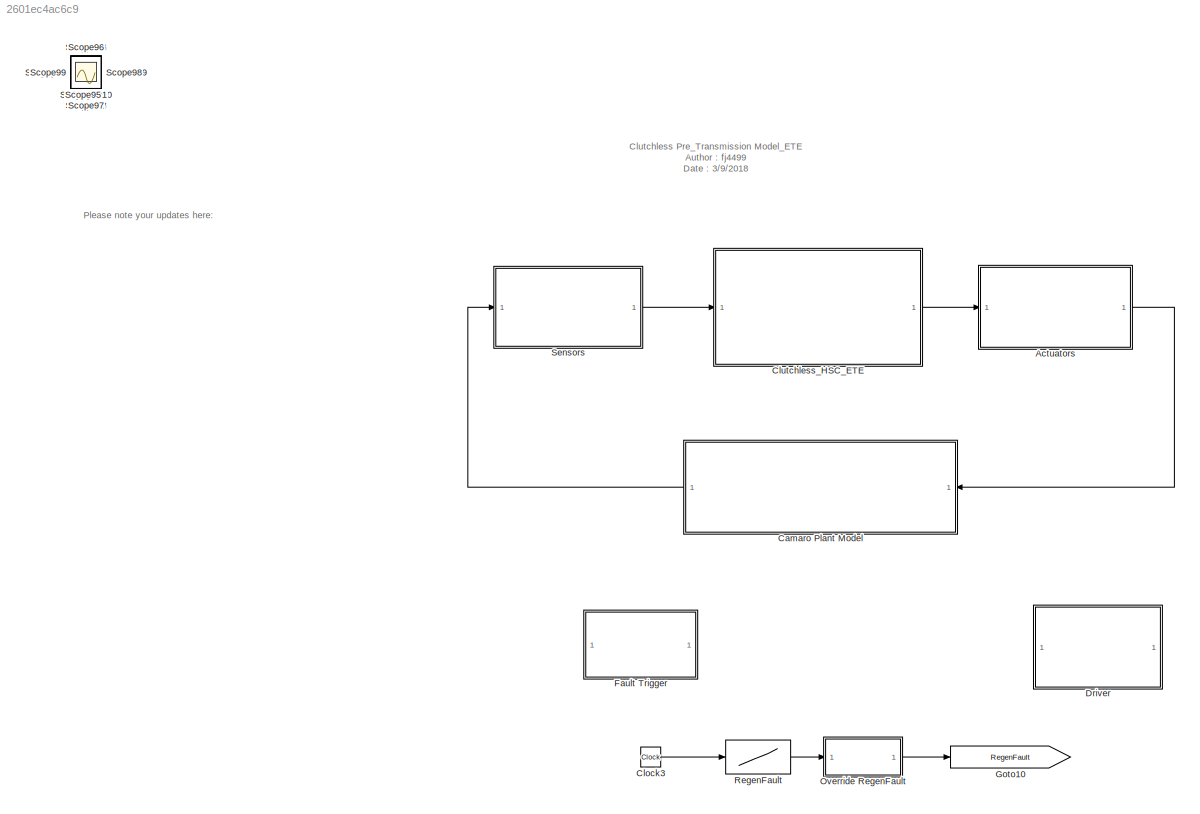
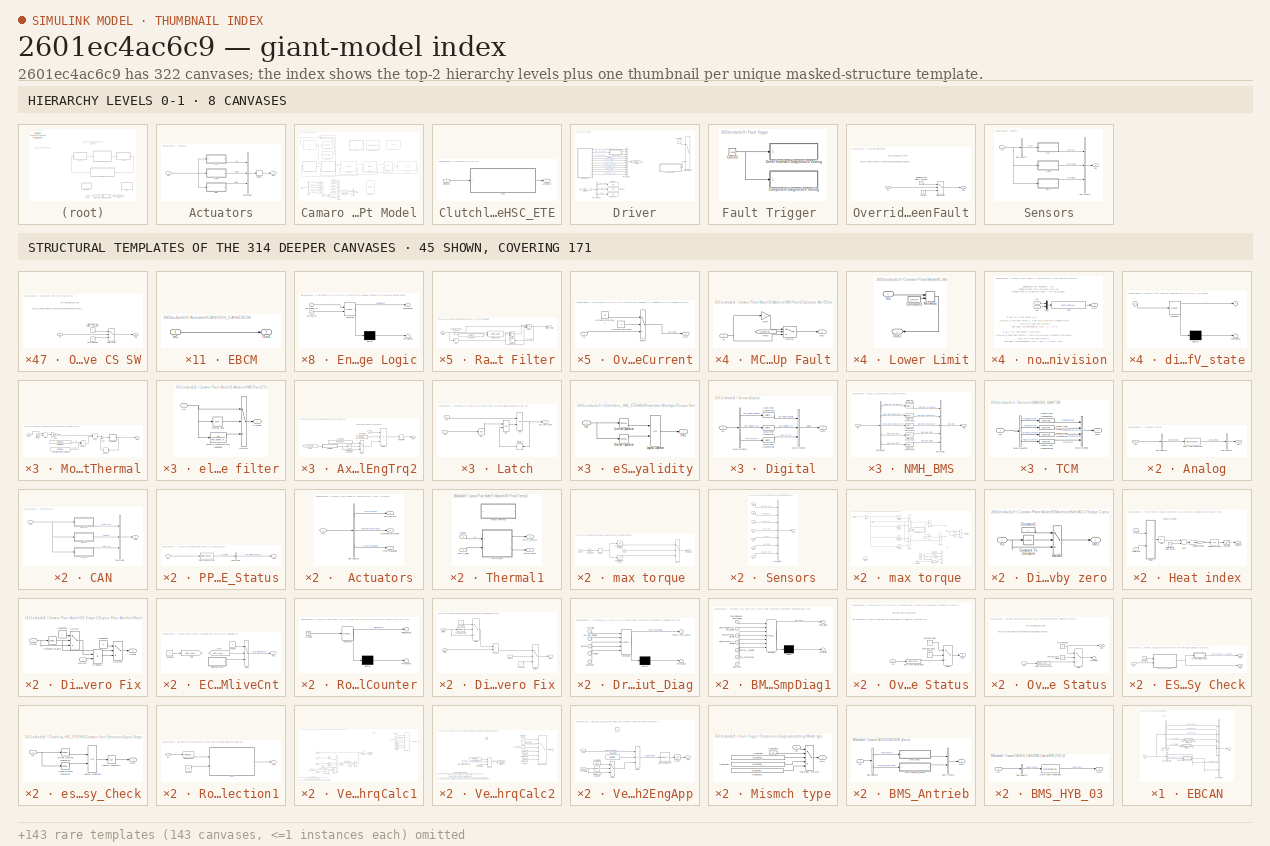
[diagram: thumbnail index - top-2 hierarchy levels (8 canvases) + 45 structural-template representatives of the remaining 314 canvases]
MODEL slx_2601ec4ac6c9
KIND model
CONFIG AbsTol = auto
CONFIG EnableMultiTasking = on
CONFIG FixedStep = 0.001
CONFIG MaxStep = auto
CONFIG MinStep = auto
CONFIG PostLoadFcn = , if any(exist('dsrtsu_mdlpostloadfcn', 'file') == [2, 3, 6]), try dsrtsu_mdlpostloadfcn('Execute', bdroot); catch fprintf('Error in PostLoadFcn (dsrtsu_mdlpostloadfcn) for model "%s":\n %s\n', bdroot, lasterr); end, end, \n
CONFIG RelTol = 1e-3
CONFIG SampleTimeConstraint = Unconstrained
CONFIG Solver = ode1
CONFIG SolverName = ode1
CONFIG StartTime = 0.0
CONFIG StopTime = Cycle_End
BLOCK [SubSystem] Actuators
  AncestorBlock = lib_Actuators/Actuators
  Ports = [1, 1]
  RequestExecContextInheritance = off
  Variant = off
BLOCK [SubSystem] Actuators/Analog
  Ports = [1, 1]
  RequestExecContextInheritance = off
  Variant = off
BLOCK [BusCreator] Actuators/Analog/Bus Creator
  DisplayOption = bar
  InheritFromInputs = on
  Inputs = 1
  Ports = [1, 1]
BLOCK [BusSelector] Actuators/Analog/Bus Selector
  OutputAsBus = off
  OutputSignals = Controls.EngAppReq
  Ports = [1, 1]
BLOCK [DataTypeConversion] Actuators/Analog/Data Type Conversion
  RndMeth = Floor
  SaturateOnIntegerOverflow = off
BLOCK [Inport] Actuators/Analog/In1
  IconDisplay = Port number
BLOCK [Outport] Actuators/Analog/Out1
  IconDisplay = Port number
BLOCK [BusCreator] Actuators/Bus Creator
  DisplayOption = bar
  InheritFromInputs = on
  Inputs = 3
  Ports = [3, 1]
BLOCK [SubSystem] Actuators/CAN
  Ports = [1, 1]
  RequestExecContextInheritance = off
  Variant = off
BLOCK [BusCreator] Actuators/CAN/Bus Creator
  DisplayOption = bar
  InheritFromInputs = on
  Inputs = 3
  Ports = [3, 1]
BLOCK [SubSystem] Actuators/CAN/EBCAN
  Ports = [1, 1]
  RequestExecContextInheritance = off
  Variant = off
BLOCK [BusCreator] Actuators/CAN/EBCAN/Bus Creator
  DisplayOption = bar
  InheritFromInputs = on
  Inputs = 7
  Ports = [7, 1]
BLOCK [BusSelector] Actuators/CAN/EBCAN/Bus Selector
  OutputAsBus = off
  OutputSignals = Controls.EngAppReq,Controls.EngOnReq,Controls.EngTrqCmd,Controls.ShftLvrPos,Controls.SysPwrMd
  Ports = [1, 5]
BLOCK [BusSelector] Actuators/CAN/EBCAN/Bus Selector1
  OutputAsBus = off
  OutputSignals = BMS_CAN.ISO_Funktionaler_Req_All,BMS_CAN.ISO_Hybrid_01_Req
  Ports = [1, 2]
BLOCK [SubSystem] Actuators/CAN/EBCAN/ISO_Hybrid_01_Req
  Ports = [1, 1]
  RequestExecContextInheritance = off
  Variant = off
BLOCK [BusCreator] Actuators/CAN/EBCAN/ISO_Hybrid_01_Req/Bus Creator
  DisplayOption = bar
  InheritFromInputs = on
  Inputs = 1
  Ports = [1, 1]
BLOCK [BusSelector] Actuators/CAN/EBCAN/ISO_Hybrid_01_Req/Bus Selector
  OutputAsBus = off
  OutputSignals = ISO_Hybrid_01_Req_Data_byte_3
  Ports = [1, 1]
BLOCK [DataTypeConversion] Actuators/CAN/EBCAN/ISO_Hybrid_01_Req/Data Type Conversion
  RndMeth = Floor
  SaturateOnIntegerOverflow = off
BLOCK [Inport] Actuators/CAN/EBCAN/ISO_Hybrid_01_Req/In1
  IconDisplay = Port number
BLOCK [Outport] Actuators/CAN/EBCAN/ISO_Hybrid_01_Req/Out1
  IconDisplay = Port number
BLOCK [Inport] Actuators/CAN/EBCAN/In1
  IconDisplay = Port number
BLOCK [Outport] Actuators/CAN/EBCAN/Out1
  IconDisplay = Port number
BLOCK [SubSystem] Actuators/CAN/EBCAN/PPEI_Platform_General_Status
  Ports = [1, 1]
  RequestExecContextInheritance = off
  Variant = off
BLOCK [BusCreator] Actuators/CAN/EBCAN/PPEI_Platform_General_Status/Bus Creator
  DisplayOption = bar
  InheritFromInputs = on
  Inputs = 1
  Ports = [1, 1]
BLOCK [DataTypeConversion] Actuators/CAN/EBCAN/PPEI_Platform_General_Status/Data Type Conversion
  RndMeth = Floor
  SaturateOnIntegerOverflow = off
BLOCK [Inport] Actuators/CAN/EBCAN/PPEI_Platform_General_Status/In1
  IconDisplay = Port number
BLOCK [Outport] Actuators/CAN/EBCAN/PPEI_Platform_General_Status/Out1
  IconDisplay = Port number
BLOCK [SubSystem] Actuators/CAN/EBCAN/PPEI_Trans_General_Status_2
  Ports = [1, 1]
  RequestExecContextInheritance = off
  Variant = off
BLOCK [BusCreator] Actuators/CAN/EBCAN/PPEI_Trans_General_Status_2/Bus Creator
  DisplayOption = bar
  InheritFromInputs = on
  Inputs = 1
  Ports = [1, 1]
BLOCK [DataTypeConversion] Actuators/CAN/EBCAN/PPEI_Trans_General_Status_2/Data Type Conversion
  RndMeth = Floor
  SaturateOnIntegerOverflow = off
BLOCK [Inport] Actuators/CAN/EBCAN/PPEI_Trans_General_Status_2/In1
  IconDisplay = Port number
BLOCK [Outport] Actuators/CAN/EBCAN/PPEI_Trans_General_Status_2/Out1
  IconDisplay = Port number
BLOCK [SubSystem] Actuators/CAN/HV_CAN
  Ports = [1, 1]
  RequestExecContextInheritance = off
  Variant = off
BLOCK [BusCreator] Actuators/CAN/HV_CAN/Bus Creator
  DisplayOption = bar
  InheritFromInputs = on
  Inputs = 4
  Ports = [4, 1]
BLOCK [BusCreator] Actuators/CAN/HV_CAN/Bus Creator1
  DisplayOption = bar
  InheritFromInputs = on
  Inputs = 1
  Ports = [1, 1]
BLOCK [BusCreator] Actuators/CAN/HV_CAN/Bus Creator2
  DisplayOption = bar
  InheritFromInputs = on
  Inputs = 2
  Ports = [2, 1]
BLOCK [BusCreator] Actuators/CAN/HV_CAN/Bus Creator3
  DisplayOption = bar
  InheritFromInputs = on
  Inputs = 5
  Ports = [5, 1]
BLOCK [BusCreator] Actuators/CAN/HV_CAN/Bus Creator5
  DisplayOption = bar
  InheritFromInputs = on
  Inputs = 1
  Ports = [1, 1]
BLOCK [BusSelector] Actuators/CAN/HV_CAN/Bus Selector
  OutputAsBus = off
  OutputSignals = BMS_CAN.MSG_HYB_01.MO_BMS_Sollmodus,Controls.Torque_Command,MCU_CAN.MCU_CAN.VCU_RequestedStateINV,OBC_CAN.NLG5_OC_COM,OBC_CAN.NLG5_OV_COM,OBC_CAN.NLG5_MC_MAX,OBC_CAN.NLG5_C_C_EL,OBC_CAN.NLG5_C_C_EN,MCU_CAN.DCDC_Out.DC_mode
  Ports = [1, 9]
BLOCK [DataTypeConversion] Actuators/CAN/HV_CAN/Data Type Conversion
  RndMeth = Floor
  SaturateOnIntegerOverflow = off
BLOCK [DataTypeConversion] Actuators/CAN/HV_CAN/Data Type Conversion1
  RndMeth = Floor
  SaturateOnIntegerOverflow = off
BLOCK [DataTypeConversion] Actuators/CAN/HV_CAN/Data Type Conversion2
  RndMeth = Floor
  SaturateOnIntegerOverflow = off
BLOCK [DataTypeConversion] Actuators/CAN/HV_CAN/Data Type Conversion3
  RndMeth = Floor
  SaturateOnIntegerOverflow = off
BLOCK [DataTypeConversion] Actuators/CAN/HV_CAN/Data Type Conversion4
  RndMeth = Floor
  SaturateOnIntegerOverflow = off
BLOCK [DataTypeConversion] Actuators/CAN/HV_CAN/Data Type Conversion5
  RndMeth = Floor
  SaturateOnIntegerOverflow = off
BLOCK [DataTypeConversion] Actuators/CAN/HV_CAN/Data Type Conversion6
  RndMeth = Floor
  SaturateOnIntegerOverflow = off
BLOCK [DataTypeConversion] Actuators/CAN/HV_CAN/Data Type Conversion7
  RndMeth = Floor
  SaturateOnIntegerOverflow = off
BLOCK [Inport] Actuators/CAN/HV_CAN/In1
  IconDisplay = Port number
BLOCK [Outport] Actuators/CAN/HV_CAN/Out1
  IconDisplay = Port number
BLOCK [Inport] Actuators/CAN/In1
  IconDisplay = Port number
BLOCK [Outport] Actuators/CAN/Out1
  IconDisplay = Port number
BLOCK [SubSystem] Actuators/CAN/VEH_CAN
  Ports = [1, 1]
  RequestExecContextInheritance = off
  Variant = off
BLOCK [SubSystem] Actuators/CAN/VEH_CAN/BCM
  Commented = on
  Ports = [1, 1]
  RequestExecContextInheritance = off
  Variant = off
BLOCK [BusCreator] Actuators/CAN/VEH_CAN/BCM/Bus Creator
  DisplayOption = bar
  InheritFromInputs = on
  Inputs = 1
  Ports = [1, 1]
BLOCK [BusSelector] Actuators/CAN/VEH_CAN/BCM/Bus Selector
  OutputAsBus = off
  OutputSignals = Controls.powerMode
  Ports = [1, 1]
BLOCK [Inport] Actuators/CAN/VEH_CAN/BCM/In1
  IconDisplay = Port number
BLOCK [Outport] Actuators/CAN/VEH_CAN/BCM/Out1
  IconDisplay = Port number
BLOCK [BusCreator] Actuators/CAN/VEH_CAN/Bus Creator
  DisplayOption = bar
  InheritFromInputs = on
  Inputs = 3
  Ports = [3, 1]
BLOCK [BusCreator] Actuators/CAN/VEH_CAN/Bus Creator1
  DisplayOption = bar
  InheritFromInputs = on
  Inputs = 1
  Ports = [1, 1]
BLOCK [BusCreator] Actuators/CAN/VEH_CAN/Bus Creator2
  DisplayOption = bar
  InheritFromInputs = on
  Inputs = 1
  Ports = [1, 1]
BLOCK [BusCreator] Actuators/CAN/VEH_CAN/Bus Creator3
  DisplayOption = bar
  InheritFromInputs = on
  Inputs = 1
  Ports = [1, 1]
BLOCK [BusSelector] Actuators/CAN/VEH_CAN/Bus Selector
  OutputAsBus = off
  OutputSignals = Controls.VehSpdAvgDrvn_kph,Controls.AccPos_Perc
  Ports = [1, 2]
BLOCK [DataTypeConversion] Actuators/CAN/VEH_CAN/Data Type Conversion
  RndMeth = Floor
  SaturateOnIntegerOverflow = off
BLOCK [DataTypeConversion] Actuators/CAN/VEH_CAN/Data Type Conversion1
  RndMeth = Floor
  SaturateOnIntegerOverflow = off
BLOCK [DataTypeConversion] Actuators/CAN/VEH_CAN/Data Type Conversion2
  RndMeth = Floor
  SaturateOnIntegerOverflow = off
BLOCK [SubSystem] Actuators/CAN/VEH_CAN/EBCM
  Commented = on
  Ports = [1, 1]
  RequestExecContextInheritance = off
  Variant = off
BLOCK [Inport] Actuators/CAN/VEH_CAN/EBCM/In1
  IconDisplay = Port number
BLOCK [Outport] Actuators/CAN/VEH_CAN/EBCM/Out1
  IconDisplay = Port number
BLOCK [Ground] Actuators/CAN/VEH_CAN/Ground1
  Commented = on
BLOCK [Ground] Actuators/CAN/VEH_CAN/Ground2
  Commented = on
BLOCK [Ground] Actuators/CAN/VEH_CAN/Ground3
BLOCK [Ground] Actuators/CAN/VEH_CAN/Ground4
  Commented = on
BLOCK [SubSystem] Actuators/CAN/VEH_CAN/ICCM
  Commented = on
  Ports = [1, 1]
  RequestExecContextInheritance = off
  Variant = off
BLOCK [Inport] Actuators/CAN/VEH_CAN/ICCM/In1
  IconDisplay = Port number
BLOCK [Outport] Actuators/CAN/VEH_CAN/ICCM/Out1
  IconDisplay = Port number
BLOCK [Inport] Actuators/CAN/VEH_CAN/In1
  IconDisplay = Port number
BLOCK [Outport] Actuators/CAN/VEH_CAN/Out1
  IconDisplay = Port number
BLOCK [Terminator] Actuators/CAN/VEH_CAN/Terminator
  Commented = on
BLOCK [Terminator] Actuators/CAN/VEH_CAN/Terminator1
  Commented = on
BLOCK [Terminator] Actuators/CAN/VEH_CAN/Terminator2
  Commented = on
BLOCK [SubSystem] Actuators/Digital
  Ports = [1, 1]
  RequestExecContextInheritance = off
  Variant = off
BLOCK [BusCreator] Actuators/Digital/Bus Creator
  DisplayOption = bar
  InheritFromInputs = on
  Inputs = 8
  Ports = [8, 1]
BLOCK [BusSelector] Actuators/Digital/Bus Selector
  OutputAsBus = off
  OutputSignals = BMS_Digital.T_15,BMS_Digital.T_30,BMS_Digital.T_30C,Fuel_Pump_Control.Pump_Commands.FuelPump_Disable,OBC_Digital.Brusa_Enable,Axiomatic_CAN.GFD_Light,Axiomatic_CAN.HV_Chg_Light,Axiomatic_CAN.Veh_Ready_Light
  Ports = [1, 8]
BLOCK [DataTypeConversion] Actuators/Digital/Data Type Conversion
  RndMeth = Floor
  SaturateOnIntegerOverflow = off
BLOCK [DataTypeConversion] Actuators/Digital/Data Type Conversion1
  RndMeth = Floor
  SaturateOnIntegerOverflow = off
BLOCK [Inport] Actuators/Digital/In1
  IconDisplay = Port number
BLOCK [Outport] Actuators/Digital/Out1
  IconDisplay = Port number
BLOCK [Inport] Actuators/In1
  IconDisplay = Port number
BLOCK [Memory] Actuators/Memory
  InheritSampleTime = on
BLOCK [Outport] Actuators/Out
  IconDisplay = Port number
BLOCK [SubSystem] Camaro Plant Model
  Ports = [1, 1]
  RequestExecContextInheritance = off
  Variant = off
BLOCK [Outport] Camaro Plant Model/Actuators
  IconDisplay = Port number
BLOCK [Sum] Camaro Plant Model/Add
  InputSameDT = off
  Inputs = +++
  OutDataTypeStr = Inherit: Inherit via internal rule
  Ports = [3, 1]
  SaturateOnIntegerOverflow = off
BLOCK [BusCreator] Camaro Plant Model/Bus Creator
  DisplayOption = bar
  InheritFromInputs = on
  Inputs = 3
  Ports = [3, 1]
BLOCK [BusCreator] Camaro Plant Model/Bus Creator1
  DisplayOption = bar
  InheritFromInputs = on
  Inputs = 7
  Ports = [7, 1]
BLOCK [BusCreator] Camaro Plant Model/Bus Creator2
  DisplayOption = bar
  InheritFromInputs = on
  Inputs = 1
  Ports = [1, 1]
BLOCK [BusSelector] Camaro Plant Model/Bus Selector
  OutputAsBus = off
  OutputSignals = Analog,CAN.to VEH_CAN,CAN.to EBCAN,CAN.to HV_CAN,Digital
  Ports = [1, 5]
BLOCK [Reference] Camaro Plant Model/Calculate MPGe  REF=CalculationGallon/Calculate MPGe
  Ports = []
  SourceBlock = CalculationGallon/Calculate MPGe
  SourceType = SubSystem
BLOCK [Reference] Camaro Plant Model/Chassis  REF=lib_Chassis/Chassis
  Ports = [1, 1]
  SourceBlock = lib_Chassis/Chassis
BLOCK [Reference] Camaro Plant Model/DC-DC Converter  REF=lib_DCDC/DC-DC Converter
  Ports = [1, 1]
  SourceBlock = lib_DCDC/DC-DC Converter
BLOCK [Reference] Camaro Plant Model/Differential  REF=lib_Differential/Differential
  Ports = [2, 2]
  SourceBlock = lib_Differential/Differential
  SourceProductName = The database <userpath>\AppData\Roaming\MathWorks\MATLAB\R2017b\slblocks_master.db is locked, or a table in the database is locked. (database is locked)
BLOCK [SubSystem] Camaro Plant Model/E-Machine
  AncestorBlock = lib_EMachine_2017a/E-Machine
  Ports = [3, 3]
  RequestExecContextInheritance = off
  Variant = off
BLOCK [SubSystem] Camaro Plant Model/E-Machine/Clutch Temporary 1
  Commented = on
  Ports = [1, 1]
  RequestExecContextInheritance = off
  Variant = off
BLOCK [Constant] Camaro Plant Model/E-Machine/Clutch Temporary 1/Constant
  Value = 0
BLOCK [From] Camaro Plant Model/E-Machine/Clutch Temporary 1/From
  GotoTag = cltch
  TagVisibility = global
BLOCK [Inport] Camaro Plant Model/E-Machine/Clutch Temporary 1/In1
  IconDisplay = Port number
BLOCK [Memory] Camaro Plant Model/E-Machine/Clutch Temporary 1/Memory
BLOCK [Outport] Camaro Plant Model/E-Machine/Clutch Temporary 1/Out1
  IconDisplay = Port number
BLOCK [Saturate] Camaro Plant Model/E-Machine/Clutch Temporary 1/Saturation
  InputPortMap = u0
  LowerLimit = 0
  Ports = [1, 1]
  UpperLimit = inf
BLOCK [Switch] Camaro Plant Model/E-Machine/Clutch Temporary 1/Switch
  Criteria = u2 > Threshold
  InputSameDT = off
  SaturateOnIntegerOverflow = off
BLOCK [From] Camaro Plant Model/E-Machine/From14
  GotoTag = HCU_to_HV_CAN
  TagVisibility = global
BLOCK [Goto] Camaro Plant Model/E-Machine/Goto5
  GotoTag = MCU_to_HCU
  TagVisibility = global
BLOCK [SubSystem] Camaro Plant Model/E-Machine/IMG Plant
  Ports = [4, 4]
  RequestExecContextInheritance = off
  Variant = off
BLOCK [SubSystem] Camaro Plant Model/E-Machine/IMG Plant/ Actuators
  Ports = [1, 3]
  RequestExecContextInheritance = off
  Variant = off
BLOCK [BusSelector] Camaro Plant Model/E-Machine/IMG Plant/ Actuators/Bus Selector
  OutputAsBus = off
  OutputSignals = MotTrqCmd,Direction_Command,InverterEnabled
  Ports = [1, 3]
BLOCK [Outport] Camaro Plant Model/E-Machine/IMG Plant/ Actuators/DirectionCommand
  IconDisplay = Port number
  Port = 2
BLOCK [Inport] Camaro Plant Model/E-Machine/IMG Plant/ Actuators/In1
  IconDisplay = Port number
BLOCK [Outport] Camaro Plant Model/E-Machine/IMG Plant/ Actuators/InverterEnabled
  IconDisplay = Port number
  Port = 3
BLOCK [Outport] Camaro Plant Model/E-Machine/IMG Plant/ Actuators/MotTrqCmd
  IconDisplay = Port number
BLOCK [SubSystem] Camaro Plant Model/E-Machine/IMG Plant/Electric Machine
  Ports = [4, 3]
  RequestExecContextInheritance = off
  Variant = off
BLOCK [BusCreator] Camaro Plant Model/E-Machine/IMG Plant/Electric Machine/Bus Creator1
  DisplayOption = bar
  InheritFromInputs = on
  Inputs = 2
  Ports = [2, 1]
BLOCK [BusSelector] Camaro Plant Model/E-Machine/IMG Plant/Electric Machine/Bus Selector1
  OutputAsBus = off
  OutputSignals = eng_trq_out_Nm,eng_inertia_out
  Ports = [1, 2]
BLOCK [SubSystem] Camaro Plant Model/E-Machine/IMG Plant/Electric Machine/Calculate Mot Efficiency, MotPwrMech, and, MotPwrElec1
  Ports = [2, 3]
  RequestExecContextInheritance = off
  Variant = off
BLOCK [Gain] Camaro Plant Model/E-Machine/IMG Plant/Electric Machine/Calculate Mot Efficiency, MotPwrMech, and, MotPwrElec1/-1
  Gain = 8
  OutDataTypeStr = Inherit: Inherit via internal rule
  ParamDataTypeStr = Inherit: Inherit via internal rule
  SaturateOnIntegerOverflow = off
BLOCK [Gain] Camaro Plant Model/E-Machine/IMG Plant/Electric Machine/Calculate Mot Efficiency, MotPwrMech, and, MotPwrElec1/-1 when + 1 when - 
  Gain = -1
  OutDataTypeStr = Inherit: Inherit via internal rule
  ParamDataTypeStr = Inherit: Inherit via internal rule
  SaturateOnIntegerOverflow = off
BLOCK [Gain] Camaro Plant Model/E-Machine/IMG Plant/Electric Machine/Calculate Mot Efficiency, MotPwrMech, and, MotPwrElec1/-2
  Gain = tloop
  OutDataTypeStr = Inherit: Inherit via internal rule
  ParamDataTypeStr = Inherit: Inherit via internal rule
  SaturateOnIntegerOverflow = off
BLOCK [Lookup_n-D] Camaro Plant Model/E-Machine/IMG Plant/Electric Machine/Calculate Mot Efficiency, MotPwrMech, and, MotPwrElec1/2-D Lookup Table
  BreakpointsForDimension1 = mot.plant.init.eff_trq.idx2_trq
  BreakpointsForDimension2 = mot.plant.init.eff_trq.idx1_spd
  InternalRulePriority = Speed
  Ports = [2, 1]
  RndMeth = Simplest
  Table = mot.plant.init.eff_trq.map
BLOCK [Abs] Camaro Plant Model/E-Machine/IMG Plant/Electric Machine/Calculate Mot Efficiency, MotPwrMech, and, MotPwrElec1/Abs
  SaturateOnIntegerOverflow = off
BLOCK [Abs] Camaro Plant Model/E-Machine/IMG Plant/Electric Machine/Calculate Mot Efficiency, MotPwrMech, and, MotPwrElec1/Abs1
  SaturateOnIntegerOverflow = off
BLOCK [Abs] Camaro Plant Model/E-Machine/IMG Plant/Electric Machine/Calculate Mot Efficiency, MotPwrMech, and, MotPwrElec1/Abs2
  SaturateOnIntegerOverflow = off
BLOCK [Abs] Camaro Plant Model/E-Machine/IMG Plant/Electric Machine/Calculate Mot Efficiency, MotPwrMech, and, MotPwrElec1/Abs3
  SaturateOnIntegerOverflow = off
BLOCK [Sum] Camaro Plant Model/E-Machine/IMG Plant/Electric Machine/Calculate Mot Efficiency, MotPwrMech, and, MotPwrElec1/Add
  InputSameDT = off
  Inputs = -+
  OutDataTypeStr = Inherit: Inherit via internal rule
  Ports = [2, 1]
  SaturateOnIntegerOverflow = off
BLOCK [Sum] Camaro Plant Model/E-Machine/IMG Plant/Electric Machine/Calculate Mot Efficiency, MotPwrMech, and, MotPwrElec1/Add1
  InputSameDT = off
  Inputs = +-
  OutDataTypeStr = Inherit: Inherit via internal rule
  Ports = [2, 1]
  SaturateOnIntegerOverflow = off
BLOCK [Constant] Camaro Plant Model/E-Machine/IMG Plant/Electric Machine/Calculate Mot Efficiency, MotPwrMech, and, MotPwrElec1/Constant
  Value = 1-0.8
BLOCK [Gain] Camaro Plant Model/E-Machine/IMG Plant/Electric Machine/Calculate Mot Efficiency, MotPwrMech, and, MotPwrElec1/Gain2
  Gain = 1/100
  OutDataTypeStr = Inherit: Inherit via internal rule
  ParamDataTypeStr = Inherit: Inherit via internal rule
  SaturateOnIntegerOverflow = off
BLOCK [Outport] Camaro Plant Model/E-Machine/IMG Plant/Electric Machine/Calculate Mot Efficiency, MotPwrMech, and, MotPwrElec1/Losses
  IconDisplay = Port number
BLOCK [Outport] Camaro Plant Model/E-Machine/IMG Plant/Electric Machine/Calculate Mot Efficiency, MotPwrMech, and, MotPwrElec1/MCU_Heat
  IconDisplay = Port number
  Port = 2
BLOCK [Constant] Camaro Plant Model/E-Machine/IMG Plant/Electric Machine/Calculate Mot Efficiency, MotPwrMech, and, MotPwrElec1/MCU_WEGPmp
  Value = 0
BLOCK [Math] Camaro Plant Model/E-Machine/IMG Plant/Electric Machine/Calculate Mot Efficiency, MotPwrMech, and, MotPwrElec1/Math Function1
  Operator = pow
  Ports = [2, 1]
BLOCK [Memory] Camaro Plant Model/E-Machine/IMG Plant/Electric Machine/Calculate Mot Efficiency, MotPwrMech, and, MotPwrElec1/Memory
BLOCK [Outport] Camaro Plant Model/E-Machine/IMG Plant/Electric Machine/Calculate Mot Efficiency, MotPwrMech, and, MotPwrElec1/MotPwrElec
  IconDisplay = Port number
  Port = 3
BLOCK [Inport] Camaro Plant Model/E-Machine/IMG Plant/Electric Machine/Calculate Mot Efficiency, MotPwrMech, and, MotPwrElec1/MotSpd
  IconDisplay = Port number
BLOCK [Inport] Camaro Plant Model/E-Machine/IMG Plant/Electric Machine/Calculate Mot Efficiency, MotPwrMech, and, MotPwrElec1/MotTrqAct
  IconDisplay = Port number
  Port = 2
BLOCK [Product] Camaro Plant Model/E-Machine/IMG Plant/Electric Machine/Calculate Mot Efficiency, MotPwrMech, and, MotPwrElec1/Product
  InputSameDT = off
  OutDataTypeStr = Inherit: Inherit via internal rule
  Ports = [2, 1]
  RndMeth = Floor
  SaturateOnIntegerOverflow = off
BLOCK [Product] Camaro Plant Model/E-Machine/IMG Plant/Electric Machine/Calculate Mot Efficiency, MotPwrMech, and, MotPwrElec1/Product1
  InputSameDT = off
  OutDataTypeStr = Inherit: Inherit via internal rule
  Ports = [2, 1]
  RndMeth = Floor
  SaturateOnIntegerOverflow = off
BLOCK [Product] Camaro Plant Model/E-Machine/IMG Plant/Electric Machine/Calculate Mot Efficiency, MotPwrMech, and, MotPwrElec1/Product2
  InputSameDT = off
  OutDataTypeStr = Inherit: Inherit via internal rule
  Ports = [2, 1]
  RndMeth = Floor
  SaturateOnIntegerOverflow = off
BLOCK [Signum] Camaro Plant Model/E-Machine/IMG Plant/Electric Machine/Calculate Mot Efficiency, MotPwrMech, and, MotPwrElec1/Sign
BLOCK [Gain] Camaro Plant Model/E-Machine/IMG Plant/Electric Machine/Calculate Mot Efficiency, MotPwrMech, and, MotPwrElec1/rad//s to rpm
  Gain = 30/pi
  OutDataTypeStr = Inherit: Inherit via internal rule
  ParamDataTypeStr = Inherit: Inherit via internal rule
  SaturateOnIntegerOverflow = off
BLOCK [Constant] Camaro Plant Model/E-Machine/IMG Plant/Electric Machine/Constant1
  Value = 0
BLOCK [Constant] Camaro Plant Model/E-Machine/IMG Plant/Electric Machine/Constant2
  Value = 0
BLOCK [Constant] Camaro Plant Model/E-Machine/IMG Plant/Electric Machine/Constant3
  Value = 200
BLOCK [From] Camaro Plant Model/E-Machine/IMG Plant/Electric Machine/From11
  GotoTag = MotTrqMismatch
BLOCK [From] Camaro Plant Model/E-Machine/IMG Plant/Electric Machine/From2
  GotoTag = RegenFault
BLOCK [From] Camaro Plant Model/E-Machine/IMG Plant/Electric Machine/From3
  GotoTag = InverterEnabled
  TagVisibility = global
BLOCK [From] Camaro Plant Model/E-Machine/IMG Plant/Electric Machine/From5
  GotoTag = DirectionCommand
  TagVisibility = global
BLOCK [Goto] Camaro Plant Model/E-Machine/IMG Plant/Electric Machine/Goto10
  GotoTag = mot_volt_in
  TagVisibility = global
BLOCK [Goto] Camaro Plant Model/E-Machine/IMG Plant/Electric Machine/Goto11
  GotoTag = mot_crr_out
  TagVisibility = global
BLOCK [Goto] Camaro Plant Model/E-Machine/IMG Plant/Electric Machine/Goto6
  GotoTag = mot_temp
  TagVisibility = global
BLOCK [Goto] Camaro Plant Model/E-Machine/IMG Plant/Electric Machine/Goto7
  GotoTag = mcu_temp
  TagVisibility = global
BLOCK [Goto] Camaro Plant Model/E-Machine/IMG Plant/Electric Machine/Goto8
  GotoTag = mot_trq_out
  TagVisibility = global
BLOCK [Goto] Camaro Plant Model/E-Machine/IMG Plant/Electric Machine/Goto9
  GotoTag = mot_spd_out
  TagVisibility = global
BLOCK [Constant] Camaro Plant Model/E-Machine/IMG Plant/Electric Machine/Inertia (kg-m^2)1
  Value = mot.plant.init.inertia
BLOCK [Outport] Camaro Plant Model/E-Machine/IMG Plant/Electric Machine/MotSpdIn1
  IconDisplay = Port number
  Port = 2
BLOCK [Inport] Camaro Plant Model/E-Machine/IMG Plant/Electric Machine/MotSpdOut
  IconDisplay = Port number
  Port = 4
BLOCK [Inport] Camaro Plant Model/E-Machine/IMG Plant/Electric Machine/MotTrqCmd
  IconDisplay = Port number
BLOCK [SubSystem] Camaro Plant Model/E-Machine/IMG Plant/Electric Machine/MotTrqExcessTrigger1
  Ports = [1, 1]
  RequestExecContextInheritance = off
  Variant = off
BLOCK [Bias] Camaro Plant Model/E-Machine/IMG Plant/Electric Machine/MotTrqExcessTrigger1/Bias
  Bias = 55
  SaturateOnIntegerOverflow = off
BLOCK [Bias] Camaro Plant Model/E-Machine/IMG Plant/Electric Machine/MotTrqExcessTrigger1/Bias1
  Bias = 25
  SaturateOnIntegerOverflow = off
BLOCK [Constant] Camaro Plant Model/E-Machine/IMG Plant/Electric Machine/MotTrqExcessTrigger1/Constant
  Value = 0
BLOCK [From] Camaro Plant Model/E-Machine/IMG Plant/Electric Machine/MotTrqExcessTrigger1/From
  GotoTag = MotTrqExcessTrig
  TagVisibility = global
BLOCK [Goto] Camaro Plant Model/E-Machine/IMG Plant/Electric Machine/MotTrqExcessTrigger1/Goto
  GotoTag = MotTrqExcessTrig
  TagVisibility = global
BLOCK [Inport] Camaro Plant Model/E-Machine/IMG Plant/Electric Machine/MotTrqExcessTrigger1/In1
  IconDisplay = Port number
BLOCK [MultiPortSwitch] Camaro Plant Model/E-Machine/IMG Plant/Electric Machine/MotTrqExcessTrigger1/Multiport Switch
  DataPortOrder = Zero-based contiguous
  InputSameDT = off
  Ports = [4, 1]
  SaturateOnIntegerOverflow = off
BLOCK [Outport] Camaro Plant Model/E-Machine/IMG Plant/Electric Machine/MotTrqExcessTrigger1/Out1
  IconDisplay = Port number
BLOCK [Terminator] Camaro Plant Model/E-Machine/IMG Plant/Electric Machine/MotTrqExcessTrigger1/Terminator
BLOCK [Sum] Camaro Plant Model/E-Machine/IMG Plant/Electric Machine/Sum2
  IconShape = round
  InputSameDT = off
  Inputs = |++
  OutDataTypeStr = Inherit: Inherit via internal rule
  Ports = [2, 1]
  SaturateOnIntegerOverflow = off
BLOCK [Sum] Camaro Plant Model/E-Machine/IMG Plant/Electric Machine/Sum3
  InputSameDT = off
  OutDataTypeStr = Inherit: Inherit via internal rule
  Ports = [2, 1]
  SaturateOnIntegerOverflow = off
BLOCK [Sum] Camaro Plant Model/E-Machine/IMG Plant/Electric Machine/Sum4
  InputSameDT = off
  OutDataTypeStr = Inherit: Inherit via internal rule
  Ports = [2, 1]
  SaturateOnIntegerOverflow = off
BLOCK [Sum] Camaro Plant Model/E-Machine/IMG Plant/Electric Machine/Sum5
  IconShape = round
  InputSameDT = off
  Inputs = ++|
  OutDataTypeStr = Inherit: Inherit via internal rule
  Ports = [2, 1]
  SaturateOnIntegerOverflow = off
BLOCK [Switch] Camaro Plant Model/E-Machine/IMG Plant/Electric Machine/Switch1
  Criteria = u2 > Threshold
  InputSameDT = off
  SaturateOnIntegerOverflow = off
BLOCK [Switch] Camaro Plant Model/E-Machine/IMG Plant/Electric Machine/Switch2
  Criteria = u2 > Threshold
  InputSameDT = off
  SaturateOnIntegerOverflow = off
BLOCK [Switch] Camaro Plant Model/E-Machine/IMG Plant/Electric Machine/Switch3
  Criteria = u2 > Threshold
  InputSameDT = off
  SaturateOnIntegerOverflow = off
BLOCK [Switch] Camaro Plant Model/E-Machine/IMG Plant/Electric Machine/Switch4
  Criteria = u2 > Threshold
  InputSameDT = off
  SaturateOnIntegerOverflow = off
BLOCK [SubSystem] Camaro Plant Model/E-Machine/IMG Plant/Electric Machine/Thermal1
  Ports = [2, 2]
  RequestExecContextInheritance = off
  Variant = off
BLOCK [Inport] Camaro Plant Model/E-Machine/IMG Plant/Electric Machine/Thermal1/Losses
  IconDisplay = Port number
BLOCK [Inport] Camaro Plant Model/E-Machine/IMG Plant/Electric Machine/Thermal1/MCU_heat
  IconDisplay = Port number
  Port = 2
BLOCK [Outport] Camaro Plant Model/E-Machine/IMG Plant/Electric Machine/Thermal1/MCU_temp_C
  IconDisplay = Port number
BLOCK [SubSystem] Camaro Plant Model/E-Machine/IMG Plant/Electric Machine/Thermal1/MotInv_loop
  Ports = [2, 2]
  RequestExecContextInheritance = off
  Variant = off
BLOCK [Gain] Camaro Plant Model/E-Machine/IMG Plant/Electric Machine/Thermal1/MotInv_loop/-2
  Gain = tloop
  OutDataTypeStr = Inherit: Inherit via internal rule
  ParamDataTypeStr = Inherit: Inherit via internal rule
  SaturateOnIntegerOverflow = off
BLOCK [Sum] Camaro Plant Model/E-Machine/IMG Plant/Electric Machine/Thermal1/MotInv_loop/Add
  InputSameDT = off
  Inputs = +-
  OutDataTypeStr = Inherit: Inherit via internal rule
  Ports = [2, 1]
  SaturateOnIntegerOverflow = off
BLOCK [Sum] Camaro Plant Model/E-Machine/IMG Plant/Electric Machine/Thermal1/MotInv_loop/Add1
  InputSameDT = off
  Inputs = +-
  OutDataTypeStr = Inherit: Inherit via internal rule
  Ports = [2, 1]
  SaturateOnIntegerOverflow = off
BLOCK [Sum] Camaro Plant Model/E-Machine/IMG Plant/Electric Machine/Thermal1/MotInv_loop/Add2
  IconShape = round
  InputSameDT = off
  Inputs = |++
  OutDataTypeStr = Inherit: Inherit via internal rule
  Ports = [2, 1]
  SaturateOnIntegerOverflow = off
BLOCK [Sum] Camaro Plant Model/E-Machine/IMG Plant/Electric Machine/Thermal1/MotInv_loop/Add3
  InputSameDT = off
  OutDataTypeStr = Inherit: Inherit via internal rule
  Ports = [2, 1]
  SaturateOnIntegerOverflow = off
BLOCK [Sum] Camaro Plant Model/E-Machine/IMG Plant/Electric Machine/Thermal1/MotInv_loop/Add4
  InputSameDT = off
  Inputs = +-
  OutDataTypeStr = Inherit: Inherit via internal rule
  Ports = [2, 1]
  SaturateOnIntegerOverflow = off
BLOCK [Sum] Camaro Plant Model/E-Machine/IMG Plant/Electric Machine/Thermal1/MotInv_loop/Add5
  InputSameDT = off
  Inputs = +-
  OutDataTypeStr = Inherit: Inherit via internal rule
  Ports = [2, 1]
  SaturateOnIntegerOverflow = off
BLOCK [Constant] Camaro Plant Model/E-Machine/IMG Plant/Electric Machine/Thermal1/MotInv_loop/Constant1
  Value = 30
BLOCK [Constant] Camaro Plant Model/E-Machine/IMG Plant/Electric Machine/Thermal1/MotInv_loop/Constant2
  Value = 200
BLOCK [Constant] Camaro Plant Model/E-Machine/IMG Plant/Electric Machine/Thermal1/MotInv_loop/CoolaSpecHeat
  Value = 4200
BLOCK [Product] Camaro Plant Model/E-Machine/IMG Plant/Electric Machine/Thermal1/MotInv_loop/Divide
  InputSameDT = off
  Inputs = **
  OutDataTypeStr = Inherit: Inherit via internal rule
  Ports = [2, 1]
  RndMeth = Floor
  SaturateOnIntegerOverflow = off
BLOCK [Product] Camaro Plant Model/E-Machine/IMG Plant/Electric Machine/Thermal1/MotInv_loop/Divide1
  InputSameDT = off
  Inputs = */
  OutDataTypeStr = Inherit: Inherit via internal rule
  Ports = [2, 1]
  RndMeth = Floor
  SaturateOnIntegerOverflow = off
BLOCK [Product] Camaro Plant Model/E-Machine/IMG Plant/Electric Machine/Thermal1/MotInv_loop/Divide2
  InputSameDT = off
  Inputs = **
  OutDataTypeStr = Inherit: Inherit via internal rule
  Ports = [2, 1]
  RndMeth = Floor
  SaturateOnIntegerOverflow = off
BLOCK [Product] Camaro Plant Model/E-Machine/IMG Plant/Electric Machine/Thermal1/MotInv_loop/Divide3
  InputSameDT = off
  Inputs = */
  OutDataTypeStr = Inherit: Inherit via internal rule
  Ports = [2, 1]
  RndMeth = Floor
  SaturateOnIntegerOverflow = off
BLOCK [Product] Camaro Plant Model/E-Machine/IMG Plant/Electric Machine/Thermal1/MotInv_loop/Divide4
  InputSameDT = off
  Inputs = **
  OutDataTypeStr = Inherit: Inherit via internal rule
  Ports = [2, 1]
  RndMeth = Floor
  SaturateOnIntegerOverflow = off
BLOCK [Product] Camaro Plant Model/E-Machine/IMG Plant/Electric Machine/Thermal1/MotInv_loop/Divide5
  InputSameDT = off
  Inputs = **
  OutDataTypeStr = Inherit: Inherit via internal rule
  Ports = [2, 1]
  RndMeth = Floor
  SaturateOnIntegerOverflow = off
BLOCK [Product] Camaro Plant Model/E-Machine/IMG Plant/Electric Machine/Thermal1/MotInv_loop/Divide6
  InputSameDT = off
  Inputs = **
  OutDataTypeStr = Inherit: Inherit via internal rule
  Ports = [2, 1]
  RndMeth = Floor
  SaturateOnIntegerOverflow = off
BLOCK [Product] Camaro Plant Model/E-Machine/IMG Plant/Electric Machine/Thermal1/MotInv_loop/Divide7
  InputSameDT = off
  Inputs = **
  OutDataTypeStr = Inherit: Inherit via internal rule
  Ports = [2, 1]
  RndMeth = Floor
  SaturateOnIntegerOverflow = off
BLOCK [Product] Camaro Plant Model/E-Machine/IMG Plant/Electric Machine/Thermal1/MotInv_loop/Divide8
  InputSameDT = off
  Inputs = **
  OutDataTypeStr = Inherit: Inherit via internal rule
  Ports = [2, 1]
  RndMeth = Floor
  SaturateOnIntegerOverflow = off
BLOCK [Product] Camaro Plant Model/E-Machine/IMG Plant/Electric Machine/Thermal1/MotInv_loop/Divide9
  InputSameDT = off
  Inputs = **
  OutDataTypeStr = Inherit: Inherit via internal rule
  Ports = [2, 1]
  RndMeth = Floor
  SaturateOnIntegerOverflow = off
BLOCK [From] Camaro Plant Model/E-Machine/IMG Plant/Electric Machine/Thermal1/MotInv_loop/From1
  GotoTag = MotInvpump_control
BLOCK [From] Camaro Plant Model/E-Machine/IMG Plant/Electric Machine/Thermal1/MotInv_loop/From2
  GotoTag = mot_temp
  TagVisibility = global
BLOCK [From] Camaro Plant Model/E-Machine/IMG Plant/Electric Machine/Thermal1/MotInv_loop/From3
  GotoTag = mot_temp
  TagVisibility = global
BLOCK [From] Camaro Plant Model/E-Machine/IMG Plant/Electric Machine/Thermal1/MotInv_loop/From4
  GotoTag = mcu_temp
  TagVisibility = global
BLOCK [Goto] Camaro Plant Model/E-Machine/IMG Plant/Electric Machine/Thermal1/MotInv_loop/Goto
  GotoTag = MotInvpump_control
BLOCK [Ground] Camaro Plant Model/E-Machine/IMG Plant/Electric Machine/Thermal1/MotInv_loop/Ground
BLOCK [Inport] Camaro Plant Model/E-Machine/IMG Plant/Electric Machine/Thermal1/MotInv_loop/In1
  IconDisplay = Port number
BLOCK [Inport] Camaro Plant Model/E-Machine/IMG Plant/Electric Machine/Thermal1/MotInv_loop/In2
  IconDisplay = Port number
  Port = 2
BLOCK [SubSystem] Camaro Plant Model/E-Machine/IMG Plant/Electric Machine/Thermal1/MotInv_loop/MCUOverTemp Fault
  Ports = [1, 1]
  RequestExecContextInheritance = off
  Variant = off
BLOCK [From] Camaro Plant Model/E-Machine/IMG Plant/Electric Machine/Thermal1/MotInv_loop/MCUOverTemp Fault/From
  GotoTag = MCUOverTemp
BLOCK [Gain] Camaro Plant Model/E-Machine/IMG Plant/Electric Machine/Thermal1/MotInv_loop/MCUOverTemp Fault/Gain
  Gain = 3
  OutDataTypeStr = Inherit: Inherit via internal rule
  ParamDataTypeStr = Inherit: Inherit via internal rule
  SaturateOnIntegerOverflow = off
BLOCK [Inport] Camaro Plant Model/E-Machine/IMG Plant/Electric Machine/Thermal1/MotInv_loop/MCUOverTemp Fault/In1
  IconDisplay = Port number
BLOCK [Outport] Camaro Plant Model/E-Machine/IMG Plant/Electric Machine/Thermal1/MotInv_loop/MCUOverTemp Fault/Out1
  IconDisplay = Port number
BLOCK [Switch] Camaro Plant Model/E-Machine/IMG Plant/Electric Machine/Thermal1/MotInv_loop/MCUOverTemp Fault/Switch
  InputSameDT = off
  SaturateOnIntegerOverflow = off
  Threshold = 1
BLOCK [Memory] Camaro Plant Model/E-Machine/IMG Plant/Electric Machine/Thermal1/MotInv_loop/Memory
BLOCK [Memory] Camaro Plant Model/E-Machine/IMG Plant/Electric Machine/Thermal1/MotInv_loop/Memory1
  InitialCondition = 25
BLOCK [Memory] Camaro Plant Model/E-Machine/IMG Plant/Electric Machine/Thermal1/MotInv_loop/Memory2
  InitialCondition = 25
BLOCK [Memory] Camaro Plant Model/E-Machine/IMG Plant/Electric Machine/Thermal1/MotInv_loop/Memory3
BLOCK [Constant] Camaro Plant Model/E-Machine/IMG Plant/Electric Machine/Thermal1/MotInv_loop/Motor Mass
  Value = 34.5
BLOCK [SubSystem] Camaro Plant Model/E-Machine/IMG Plant/Electric Machine/Thermal1/MotInv_loop/MotorOverTempFault
  Ports = [1, 1]
  RequestExecContextInheritance = off
  Variant = off
BLOCK [From] Camaro Plant Model/E-Machine/IMG Plant/Electric Machine/Thermal1/MotInv_loop/MotorOverTempFault/From
  GotoTag = MotOverTemp
BLOCK [Gain] Camaro Plant Model/E-Machine/IMG Plant/Electric Machine/Thermal1/MotInv_loop/MotorOverTempFault/Gain
  Gain = 2
  OutDataTypeStr = Inherit: Inherit via internal rule
  ParamDataTypeStr = Inherit: Inherit via internal rule
  SaturateOnIntegerOverflow = off
BLOCK [Inport] Camaro Plant Model/E-Machine/IMG Plant/Electric Machine/Thermal1/MotInv_loop/MotorOverTempFault/In1
  IconDisplay = Port number
BLOCK [Memory] Camaro Plant Model/E-Machine/IMG Plant/Electric Machine/Thermal1/MotInv_loop/MotorOverTempFault/Memory
BLOCK [Outport] Camaro Plant Model/E-Machine/IMG Plant/Electric Machine/Thermal1/MotInv_loop/MotorOverTempFault/Out1
  IconDisplay = Port number
BLOCK [Switch] Camaro Plant Model/E-Machine/IMG Plant/Electric Machine/Thermal1/MotInv_loop/MotorOverTempFault/Switch1
  InputSameDT = off
  SaturateOnIntegerOverflow = off
  Threshold = 1
BLOCK [Outport] Camaro Plant Model/E-Machine/IMG Plant/Electric Machine/Thermal1/MotInv_loop/Out1
  IconDisplay = Port number
BLOCK [Outport] Camaro Plant Model/E-Machine/IMG Plant/Electric Machine/Thermal1/MotInv_loop/Out2
  IconDisplay = Port number
  Port = 2
BLOCK [Constant] Camaro Plant Model/E-Machine/IMG Plant/Electric Machine/Thermal1/MotInv_loop/PumpFlowRate
  Value = 0.96
BLOCK [Scope] Camaro Plant Model/E-Machine/IMG Plant/Electric Machine/Thermal1/MotInv_loop/Scope
  NumInputPorts = 1
  Ports = [1]
  ScopeSpecificationString = Simulink.scopes.TimeScopeBlockCfg('CurrentConfiguration', extmgr.ConfigurationSet(extmgr.Configuration('Core','General UI',true),extmgr.Configuration('Core','Source UI',true),extmgr.Configuration('Sources','WiredSimulink',true,'DataLoggingLimitDataPoints',true,'DataLoggingSaveFormat','Array','DataLoggingDecimation','1','DataLoggingDecimateData',true),extmgr.Configuration('Visuals','Time Domain',tr...<+1660ch>
BLOCK [Scope] Camaro Plant Model/E-Machine/IMG Plant/Electric Machine/Thermal1/MotInv_loop/Scope1
  NumInputPorts = 1
  Ports = [1]
  ScopeSpecificationString = Simulink.scopes.TimeScopeBlockCfg('CurrentConfiguration', extmgr.ConfigurationSet(extmgr.Configuration('Core','General UI',true),extmgr.Configuration('Core','Source UI',true),extmgr.Configuration('Sources','WiredSimulink',true,'DataLoggingLimitDataPoints',true,'DataLoggingSaveFormat','Array','DataLoggingDecimation','1','DataLoggingDecimateData',true),extmgr.Configuration('Visuals','Time Domain',tr...<+1660ch>
BLOCK [Constant] Camaro Plant Model/E-Machine/IMG Plant/Electric Machine/Thermal1/MotInv_loop/Specific Heat Cap Aluminum
  Value = 200
BLOCK [Constant] Camaro Plant Model/E-Machine/IMG Plant/Electric Machine/Thermal1/MotInv_loop/coolant_temp
  Value = 25
BLOCK [Gain] Camaro Plant Model/E-Machine/IMG Plant/Electric Machine/Thermal1/MotInv_loop/h
  Gain = 1000/3600
  OutDataTypeStr = Inherit: Inherit via internal rule
  ParamDataTypeStr = Inherit: Inherit via internal rule
  SaturateOnIntegerOverflow = off
BLOCK [Gain] Camaro Plant Model/E-Machine/IMG Plant/Electric Machine/Thermal1/MotInv_loop/h2
  Gain = 1000/3600
  OutDataTypeStr = Inherit: Inherit via internal rule
  ParamDataTypeStr = Inherit: Inherit via internal rule
  SaturateOnIntegerOverflow = off
BLOCK [Gain] Camaro Plant Model/E-Machine/IMG Plant/Electric Machine/Thermal1/MotInv_loop/tloop
  Gain = 0.01
  OutDataTypeStr = Inherit: Inherit via internal rule
  ParamDataTypeStr = Inherit: Inherit via internal rule
  SaturateOnIntegerOverflow = off
BLOCK [Gain] Camaro Plant Model/E-Machine/IMG Plant/Electric Machine/Thermal1/MotInv_loop/tloop2
  Gain = 0.01
  OutDataTypeStr = Inherit: Inherit via internal rule
  ParamDataTypeStr = Inherit: Inherit via internal rule
  SaturateOnIntegerOverflow = off
BLOCK [SubSystem] Camaro Plant Model/E-Machine/IMG Plant/Electric Machine/Thermal1/Motor Thermal
  Commented = on
  Ports = [1, 1]
  RequestExecContextInheritance = off
  Variant = off
BLOCK [Sum] Camaro Plant Model/E-Machine/IMG Plant/Electric Machine/Thermal1/Motor Thermal/Add1
  InputSameDT = off
  Inputs = +-
  OutDataTypeStr = Inherit: Inherit via internal rule
  Ports = [2, 1]
  SaturateOnIntegerOverflow = off
BLOCK [Sum] Camaro Plant Model/E-Machine/IMG Plant/Electric Machine/Thermal1/Motor Thermal/Add2
  InputSameDT = off
  OutDataTypeStr = Inherit: Inherit via internal rule
  Ports = [2, 1]
  SaturateOnIntegerOverflow = off
BLOCK [Product] Camaro Plant Model/E-Machine/IMG Plant/Electric Machine/Thermal1/Motor Thermal/Divide
  InputSameDT = off
  Inputs = */
  OutDataTypeStr = Inherit: Inherit via internal rule
  Ports = [2, 1]
  RndMeth = Floor
  SaturateOnIntegerOverflow = off
BLOCK [Inport] Camaro Plant Model/E-Machine/IMG Plant/Electric Machine/Thermal1/Motor Thermal/In1
  IconDisplay = Port number
BLOCK [SubSystem] Camaro Plant Model/E-Machine/IMG Plant/Electric Machine/Thermal1/Motor Thermal/Lower Limit
  Ports = [1, 1]
  RequestExecContextInheritance = off
  Variant = off
BLOCK [Constant] Camaro Plant Model/E-Machine/IMG Plant/Electric Machine/Thermal1/Motor Thermal/Lower Limit/Constant3
  Value = Lolimit
BLOCK [Inport] Camaro Plant Model/E-Machine/IMG Plant/Electric Machine/Thermal1/Motor Thermal/Lower Limit/In1
  IconDisplay = Port number
BLOCK [MinMax] Camaro Plant Model/E-Machine/IMG Plant/Electric Machine/Thermal1/Motor Thermal/Lower Limit/MinMax
  Function = max
  InputSameDT = off
  Inputs = 2
  Ports = [2, 1]
  SaturateOnIntegerOverflow = off
BLOCK [Outport] Camaro Plant Model/E-Machine/IMG Plant/Electric Machine/Thermal1/Motor Thermal/Lower Limit/Out1
  IconDisplay = Port number
BLOCK [Memory] Camaro Plant Model/E-Machine/IMG Plant/Electric Machine/Thermal1/Motor Thermal/Memory1
BLOCK [Constant] Camaro Plant Model/E-Machine/IMG Plant/Electric Machine/Thermal1/Motor Thermal/Motor Mass
  Value = mot.plant.init.motor_mass
BLOCK [Outport] Camaro Plant Model/E-Machine/IMG Plant/Electric Machine/Thermal1/Motor Thermal/Out1
  IconDisplay = Port number
BLOCK [Product] Camaro Plant Model/E-Machine/IMG Plant/Electric Machine/Thermal1/Motor Thermal/Product
  InputSameDT = off
  OutDataTypeStr = Inherit: Inherit via internal rule
  Ports = [2, 1]
  SaturateOnIntegerOverflow = off
BLOCK [Constant] Camaro Plant Model/E-Machine/IMG Plant/Electric Machine/Thermal1/Motor Thermal/Pump 
  Value = 0
BLOCK [Constant] Camaro Plant Model/E-Machine/IMG Plant/Electric Machine/Thermal1/Motor Thermal/Specific Heat Cap Aluminum
  Value = mot.plant.init.specific_heat
BLOCK [Gain] Camaro Plant Model/E-Machine/IMG Plant/Electric Machine/Thermal1/Motor Thermal/tloop
  Gain = tloop
  OutDataTypeStr = Inherit: Inherit via internal rule
  ParamDataTypeStr = Inherit: Inherit via internal rule
  SaturateOnIntegerOverflow = off
BLOCK [Outport] Camaro Plant Model/E-Machine/IMG Plant/Electric Machine/Thermal1/motor_temp
  IconDisplay = Port number
  Port = 2
BLOCK [ToWorkspace] Camaro Plant Model/E-Machine/IMG Plant/Electric Machine/To Workspace3
  Decimation = WORKSPACE_DECIMATION
  MaxDataPoints = inf
  Ports = [1]
  SampleTime = -1
  VariableName = mot_spd_out_RPM1
BLOCK [ToWorkspace] Camaro Plant Model/E-Machine/IMG Plant/Electric Machine/To Workspace5
  Decimation = WORKSPACE_DECIMATION
  MaxDataPoints = inf
  Ports = [1]
  SampleTime = -1
  VariableName = mot_spd_out1
BLOCK [SubSystem] Camaro Plant Model/E-Machine/IMG Plant/Electric Machine/Torque Calculation1
  Ports = [2, 1]
  RequestExecContextInheritance = off
  Variant = off
BLOCK [Abs] Camaro Plant Model/E-Machine/IMG Plant/Electric Machine/Torque Calculation1/Abs
  SaturateOnIntegerOverflow = off
BLOCK [Abs] Camaro Plant Model/E-Machine/IMG Plant/Electric Machine/Torque Calculation1/Abs1
  SaturateOnIntegerOverflow = off
BLOCK [Memory] Camaro Plant Model/E-Machine/IMG Plant/Electric Machine/Torque Calculation1/Memory
BLOCK [MinMax] Camaro Plant Model/E-Machine/IMG Plant/Electric Machine/Torque Calculation1/MinMax
  InputSameDT = off
  Inputs = 2
  Ports = [2, 1]
  SaturateOnIntegerOverflow = off
BLOCK [Inport] Camaro Plant Model/E-Machine/IMG Plant/Electric Machine/Torque Calculation1/MotSpd
  IconDisplay = Port number
BLOCK [Inport] Camaro Plant Model/E-Machine/IMG Plant/Electric Machine/Torque Calculation1/MotTrqCmd
  IconDisplay = Port number
  Port = 2
BLOCK [Product] Camaro Plant Model/E-Machine/IMG Plant/Electric Machine/Torque Calculation1/Product
  InputSameDT = off
  OutDataTypeStr = Inherit: Inherit via internal rule
  Ports = [2, 1]
  RndMeth = Floor
  SaturateOnIntegerOverflow = off
BLOCK [Signum] Camaro Plant Model/E-Machine/IMG Plant/Electric Machine/Torque Calculation1/Sign
BLOCK [SubSystem] Camaro Plant Model/E-Machine/IMG Plant/Electric Machine/Torque Calculation1/electric machine filter
  Ports = [1, 1]
  RequestExecContextInheritance = off
  Variant = off
BLOCK [Reference] Camaro Plant Model/E-Machine/IMG Plant/Electric Machine/Torque Calculation1/electric machine filter/Interval Test  REF=simulink/Logic and Bit
Operations/Interval Test
  Ports = [1, 1]
  SourceBlock = simulink/Logic and Bit\nOperations/Interval Test
  SourceProductBaseCode = SL
  SourceProductName = Simulink
  SourceType = Interval Test
BLOCK [Switch] Camaro Plant Model/E-Machine/IMG Plant/Electric Machine/Torque Calculation1/electric machine filter/Switch
  InputSameDT = off
  SaturateOnIntegerOverflow = off
  Threshold = 0.5
BLOCK [TransferFcn] Camaro Plant Model/E-Machine/IMG Plant/Electric Machine/Torque Calculation1/electric machine filter/electric machine time response
  Denominator = [mot.plant.init.time_response 1]
BLOCK [Outport] Camaro Plant Model/E-Machine/IMG Plant/Electric Machine/Torque Calculation1/electric machine filter/filtered
  IconDisplay = Port number
BLOCK [Inport] Camaro Plant Model/E-Machine/IMG Plant/Electric Machine/Torque Calculation1/electric machine filter/trq
  IconDisplay = Port number
BLOCK [SubSystem] Camaro Plant Model/E-Machine/IMG Plant/Electric Machine/Torque Calculation1/max torque 
  Ports = [2, 1]
  RequestExecContextInheritance = off
  Variant = off
BLOCK [Memory] Camaro Plant Model/E-Machine/IMG Plant/Electric Machine/Torque Calculation1/max torque /Memory
BLOCK [Lookup] Camaro Plant Model/E-Machine/IMG Plant/Electric Machine/Torque Calculation1/max torque /Peak trq max - Motoring
  InputValues = mot.plant.init.regen.trq_max.idx1_spd
  LookUpMeth = Interpolation-Use End Values
  Table = mot.plant.init.motor.trq_max.map
BLOCK [Lookup] Camaro Plant Model/E-Machine/IMG Plant/Electric Machine/Torque Calculation1/max torque /Peak trq max - Regen
  InputValues = mot.plant.init.regen.trq_max.idx1_spd
  LookUpMeth = Interpolation-Use End Values
  Table = mot.plant.init.regen.trq_max.map
BLOCK [Switch] Camaro Plant Model/E-Machine/IMG Plant/Electric Machine/Torque Calculation1/max torque /Switch1
  InputSameDT = off
BLOCK [Inport] Camaro Plant Model/E-Machine/IMG Plant/Electric Machine/Torque Calculation1/max torque /cmd
  IconDisplay = Port number
BLOCK [Outport] Camaro Plant Model/E-Machine/IMG Plant/Electric Machine/Torque Calculation1/max torque /max torque
  IconDisplay = Port number
BLOCK [Gain] Camaro Plant Model/E-Machine/IMG Plant/Electric Machine/Torque Calculation1/max torque /rad//s  to RPM
  Gain = 30/pi
  OutDataTypeStr = Inherit: Inherit via internal rule
  ParamDataTypeStr = Inherit: Inherit via internal rule
  SaturateOnIntegerOverflow = off
BLOCK [Inport] Camaro Plant Model/E-Machine/IMG Plant/Electric Machine/Torque Calculation1/max torque /speed
  IconDisplay = Port number
  Port = 2
BLOCK [Outport] Camaro Plant Model/E-Machine/IMG Plant/Electric Machine/Torque Calculation1/mot_trq_out
  IconDisplay = Port number
BLOCK [Outport] Camaro Plant Model/E-Machine/IMG Plant/Electric Machine/current
  IconDisplay = Port number
BLOCK [Inport] Camaro Plant Model/E-Machine/IMG Plant/Electric Machine/mot_trq_in mot_inertia_in
  IconDisplay = Port number
  Port = 3
BLOCK [Outport] Camaro Plant Model/E-Machine/IMG Plant/Electric Machine/mot_trq_out mot_inertia_out2
  IconDisplay = Port number
  Port = 3
BLOCK [SubSystem] Camaro Plant Model/E-Machine/IMG Plant/Electric Machine/non-zero division1
  Ports = [2, 1]
  RequestExecContextInheritance = off
  Variant = off
BLOCK [Fcn] Camaro Plant Model/E-Machine/IMG Plant/Electric Machine/non-zero division1/Fcn
  Expr = u[1]/(u[2]+(u[2]==0))*(u[2]!=0)
BLOCK [Inport] Camaro Plant Model/E-Machine/IMG Plant/Electric Machine/non-zero division1/In1
  IconDisplay = Port number
BLOCK [Inport] Camaro Plant Model/E-Machine/IMG Plant/Electric Machine/non-zero division1/In2
  IconDisplay = Port number
  Port = 2
BLOCK [Mux] Camaro Plant Model/E-Machine/IMG Plant/Electric Machine/non-zero division1/Mux
  DisplayOption = bar
  Inputs = 2
  Ports = [2, 1]
BLOCK [Outport] Camaro Plant Model/E-Machine/IMG Plant/Electric Machine/non-zero division1/Out1
  IconDisplay = Port number
BLOCK [Gain] Camaro Plant Model/E-Machine/IMG Plant/Electric Machine/rad//s to RPM1
  Gain = 30/pi
  OutDataTypeStr = Inherit: Inherit via internal rule
  ParamDataTypeStr = Inherit: Inherit via internal rule
  SaturateOnIntegerOverflow = off
BLOCK [Gain] Camaro Plant Model/E-Machine/IMG Plant/Electric Machine/reverse
  Gain = -1
  OutDataTypeStr = Inherit: Inherit via internal rule
  ParamDataTypeStr = Inherit: Inherit via internal rule
  SaturateOnIntegerOverflow = off
BLOCK [Inport] Camaro Plant Model/E-Machine/IMG Plant/Electric Machine/voltage2
  IconDisplay = Port number
  Port = 2
BLOCK [InportShadow] Camaro Plant Model/E-Machine/IMG Plant/Electric Machine/voltage4
  IconDisplay = Port number
  Port = 2
BLOCK [From] Camaro Plant Model/E-Machine/IMG Plant/From
  GotoTag = MotTrqCmd
  TagVisibility = global
BLOCK [From] Camaro Plant Model/E-Machine/IMG Plant/From1
  GotoTag = clt_plant_spd_in
BLOCK [From] Camaro Plant Model/E-Machine/IMG Plant/From10
  GotoTag = mot_temp
  TagVisibility = global
BLOCK [From] Camaro Plant Model/E-Machine/IMG Plant/From3
  GotoTag = mcu_temp
  TagVisibility = global
BLOCK [From] Camaro Plant Model/E-Machine/IMG Plant/From5
  GotoTag = mot_trq_out
  TagVisibility = global
BLOCK [From] Camaro Plant Model/E-Machine/IMG Plant/From6
  GotoTag = mot_spd_out
  TagVisibility = global
BLOCK [From] Camaro Plant Model/E-Machine/IMG Plant/From8
  GotoTag = mot_crr_out
  TagVisibility = global
BLOCK [From] Camaro Plant Model/E-Machine/IMG Plant/From9
  GotoTag = mot_volt_in
  TagVisibility = global
BLOCK [Goto] Camaro Plant Model/E-Machine/IMG Plant/Goto1
  GotoTag = MotTrqCmd
  TagVisibility = global
BLOCK [Goto] Camaro Plant Model/E-Machine/IMG Plant/Goto2
  GotoTag = DirectionCommand
  TagVisibility = global
BLOCK [Goto] Camaro Plant Model/E-Machine/IMG Plant/Goto3
  GotoTag = LockupCmd
BLOCK [Goto] Camaro Plant Model/E-Machine/IMG Plant/Goto4
  GotoTag = InverterEnabled
  TagVisibility = global
BLOCK [Inport] Camaro Plant Model/E-Machine/IMG Plant/In1 
  IconDisplay = Port number
BLOCK [Inport] Camaro Plant Model/E-Machine/IMG Plant/MotShaftIn
  IconDisplay = Port number
  Port = 3
BLOCK [Outport] Camaro Plant Model/E-Machine/IMG Plant/MotShaftOut
  IconDisplay = Port number
  Port = 3
BLOCK [Outport] Camaro Plant Model/E-Machine/IMG Plant/Out1
  IconDisplay = Port number
BLOCK [RateTransition] Camaro Plant Model/E-Machine/IMG Plant/Rate Transition7
  OutPortSampleTime = 1
BLOCK [SubSystem] Camaro Plant Model/E-Machine/IMG Plant/Sensors
  Ports = [7, 1]
  RequestExecContextInheritance = off
  Variant = off
BLOCK [BusCreator] Camaro Plant Model/E-Machine/IMG Plant/Sensors/Bus Creator
  DisplayOption = bar
  InheritFromInputs = on
  Inputs = 7
  Ports = [7, 1]
BLOCK [Inport] Camaro Plant Model/E-Machine/IMG Plant/Sensors/In1
  IconDisplay = Port number
  Port = 6
BLOCK [Inport] Camaro Plant Model/E-Machine/IMG Plant/Sensors/In2
  IconDisplay = Port number
BLOCK [Inport] Camaro Plant Model/E-Machine/IMG Plant/Sensors/In3
  IconDisplay = Port number
  Port = 2
BLOCK [Inport] Camaro Plant Model/E-Machine/IMG Plant/Sensors/In4
  IconDisplay = Port number
  Port = 3
BLOCK [Inport] Camaro Plant Model/E-Machine/IMG Plant/Sensors/In5
  IconDisplay = Port number
  Port = 4
BLOCK [Inport] Camaro Plant Model/E-Machine/IMG Plant/Sensors/In6
  IconDisplay = Port number
  Port = 5
BLOCK [Inport] Camaro Plant Model/E-Machine/IMG Plant/Sensors/In7
  IconDisplay = Port number
  Port = 7
BLOCK [Outport] Camaro Plant Model/E-Machine/IMG Plant/Sensors/Out1
  IconDisplay = Port number
BLOCK [Outport] Camaro Plant Model/E-Machine/IMG Plant/SpdIn
  IconDisplay = Port number
  Port = 4
BLOCK [Inport] Camaro Plant Model/E-Machine/IMG Plant/SpdOut
  IconDisplay = Port number
  Port = 4
BLOCK [ToWorkspace] Camaro Plant Model/E-Machine/IMG Plant/To Workspace1
  FixptAsFi = on
  MaxDataPoints = inf
  Ports = [1]
  SampleTime = -1
  Save2DSignal = 3-D array (concatenate along third dimension)
  VariableName = INV_ElectricMachineTemperature
BLOCK [Outport] Camaro Plant Model/E-Machine/IMG Plant/current
  IconDisplay = Port number
  Port = 2
BLOCK [Inport] Camaro Plant Model/E-Machine/IMG Plant/voltage
  IconDisplay = Port number
  Port = 2
BLOCK [SubSystem] Camaro Plant Model/E-Machine/IMG Plant2
  Commented = on
  Ports = [4, 4]
  RequestExecContextInheritance = off
  Variant = off
BLOCK [SubSystem] Camaro Plant Model/E-Machine/IMG Plant2/ Actuators
  Ports = [1, 3]
  RequestExecContextInheritance = off
  Variant = off
BLOCK [BusSelector] Camaro Plant Model/E-Machine/IMG Plant2/ Actuators/Bus Selector
  OutputAsBus = off
  OutputSignals = MotTrqCmd,Direction_Command,InverterEnabled
  Ports = [1, 3]
BLOCK [Inport] Camaro Plant Model/E-Machine/IMG Plant2/ Actuators/In1
  IconDisplay = Port number
BLOCK [Outport] Camaro Plant Model/E-Machine/IMG Plant2/ Actuators/Out2
  IconDisplay = Port number
BLOCK [Outport] Camaro Plant Model/E-Machine/IMG Plant2/ Actuators/Out3
  IconDisplay = Port number
  Port = 2
BLOCK [Outport] Camaro Plant Model/E-Machine/IMG Plant2/ Actuators/Out4
  IconDisplay = Port number
  Port = 3
BLOCK [BusCreator] Camaro Plant Model/E-Machine/IMG Plant2/Bus Creator
  DisplayOption = bar
  InheritFromInputs = on
  Inputs = 3
  Ports = [3, 1]
BLOCK [BusCreator] Camaro Plant Model/E-Machine/IMG Plant2/Bus Creator1
  DisplayOption = bar
  InheritFromInputs = on
  Inputs = 2
  Ports = [2, 1]
BLOCK [BusSelector] Camaro Plant Model/E-Machine/IMG Plant2/Bus Selector
  OutputAsBus = off
  OutputSignals = eng_trq_out_Nm,eng_inertia_out
  Ports = [1, 2]
BLOCK [BusSelector] Camaro Plant Model/E-Machine/IMG Plant2/Bus Selector1
  OutputAsBus = off
  OutputSignals = MotTrqCmd
  Ports = [1, 1]
BLOCK [BusSelector] Camaro Plant Model/E-Machine/IMG Plant2/Bus Selector2
  OutputAsBus = off
  OutputSignals = InverterEnabled,Direction_Command
  Ports = [1, 2]
BLOCK [BusSelector] Camaro Plant Model/E-Machine/IMG Plant2/Bus Selector3
  Commented = on
  OutputAsBus = off
  OutputSignals = Mot_current_A
  Ports = [1, 1]
BLOCK [SubSystem] Camaro Plant Model/E-Machine/IMG Plant2/Calculate Mot Efficiency, MotPwrMech, and, MotPwrElec
  Ports = [2, 3]
  RequestExecContextInheritance = off
  Variant = off
BLOCK [Gain] Camaro Plant Model/E-Machine/IMG Plant2/Calculate Mot Efficiency, MotPwrMech, and, MotPwrElec/-1
  Gain = 8
  OutDataTypeStr = Inherit: Inherit via internal rule
  ParamDataTypeStr = Inherit: Inherit via internal rule
  SaturateOnIntegerOverflow = off
BLOCK [Gain] Camaro Plant Model/E-Machine/IMG Plant2/Calculate Mot Efficiency, MotPwrMech, and, MotPwrElec/-1 when + 1 when - 
  Gain = -1
  OutDataTypeStr = Inherit: Inherit via internal rule
  ParamDataTypeStr = Inherit: Inherit via internal rule
  SaturateOnIntegerOverflow = off
BLOCK [Gain] Camaro Plant Model/E-Machine/IMG Plant2/Calculate Mot Efficiency, MotPwrMech, and, MotPwrElec/-2
  Gain = tloop
  OutDataTypeStr = Inherit: Inherit via internal rule
  ParamDataTypeStr = Inherit: Inherit via internal rule
  SaturateOnIntegerOverflow = off
BLOCK [Lookup_n-D] Camaro Plant Model/E-Machine/IMG Plant2/Calculate Mot Efficiency, MotPwrMech, and, MotPwrElec/2-D Lookup Table
  BreakpointsForDimension1 = mot.plant.init.eff_trq.idx2_trq
  BreakpointsForDimension2 = mot.plant.init.eff_trq.idx1_spd
  InternalRulePriority = Speed
  Ports = [2, 1]
  RndMeth = Simplest
  Table = mot.plant.init.eff_trq.map
BLOCK [Abs] Camaro Plant Model/E-Machine/IMG Plant2/Calculate Mot Efficiency, MotPwrMech, and, MotPwrElec/Abs
  SaturateOnIntegerOverflow = off
BLOCK [Abs] Camaro Plant Model/E-Machine/IMG Plant2/Calculate Mot Efficiency, MotPwrMech, and, MotPwrElec/Abs1
  SaturateOnIntegerOverflow = off
BLOCK [Abs] Camaro Plant Model/E-Machine/IMG Plant2/Calculate Mot Efficiency, MotPwrMech, and, MotPwrElec/Abs2
  SaturateOnIntegerOverflow = off
BLOCK [Abs] Camaro Plant Model/E-Machine/IMG Plant2/Calculate Mot Efficiency, MotPwrMech, and, MotPwrElec/Abs3
  SaturateOnIntegerOverflow = off
BLOCK [Sum] Camaro Plant Model/E-Machine/IMG Plant2/Calculate Mot Efficiency, MotPwrMech, and, MotPwrElec/Add
  InputSameDT = off
  Inputs = -+
  OutDataTypeStr = Inherit: Inherit via internal rule
  Ports = [2, 1]
  SaturateOnIntegerOverflow = off
BLOCK [Sum] Camaro Plant Model/E-Machine/IMG Plant2/Calculate Mot Efficiency, MotPwrMech, and, MotPwrElec/Add1
  InputSameDT = off
  Inputs = +-
  OutDataTypeStr = Inherit: Inherit via internal rule
  Ports = [2, 1]
  SaturateOnIntegerOverflow = off
BLOCK [Sum] Camaro Plant Model/E-Machine/IMG Plant2/Calculate Mot Efficiency, MotPwrMech, and, MotPwrElec/Add2
  Commented = on
  InputSameDT = off
  OutDataTypeStr = Inherit: Inherit via internal rule
  Ports = [2, 1]
  SaturateOnIntegerOverflow = off
BLOCK [Constant] Camaro Plant Model/E-Machine/IMG Plant2/Calculate Mot Efficiency, MotPwrMech, and, MotPwrElec/Constant
  Value = 1-0.8
BLOCK [Constant] Camaro Plant Model/E-Machine/IMG Plant2/Calculate Mot Efficiency, MotPwrMech, and, MotPwrElec/Constant1
  Commented = on
  Value = mot.plant.init.mcu_mass
BLOCK [Constant] Camaro Plant Model/E-Machine/IMG Plant2/Calculate Mot Efficiency, MotPwrMech, and, MotPwrElec/Constant2
  Commented = on
  Value = mot.plant.init.specific_heat
BLOCK [Product] Camaro Plant Model/E-Machine/IMG Plant2/Calculate Mot Efficiency, MotPwrMech, and, MotPwrElec/Divide
  Commented = on
  InputSameDT = off
  Inputs = */
  OutDataTypeStr = Inherit: Inherit via internal rule
  Ports = [2, 1]
  RndMeth = Floor
  SaturateOnIntegerOverflow = off
BLOCK [Gain] Camaro Plant Model/E-Machine/IMG Plant2/Calculate Mot Efficiency, MotPwrMech, and, MotPwrElec/Gain2
  Gain = 1/100
  OutDataTypeStr = Inherit: Inherit via internal rule
  ParamDataTypeStr = Inherit: Inherit via internal rule
  SaturateOnIntegerOverflow = off
BLOCK [Outport] Camaro Plant Model/E-Machine/IMG Plant2/Calculate Mot Efficiency, MotPwrMech, and, MotPwrElec/Losses
  IconDisplay = Port number
BLOCK [SubSystem] Camaro Plant Model/E-Machine/IMG Plant2/Calculate Mot Efficiency, MotPwrMech, and, MotPwrElec/Lower Limit
  Commented = on
  Ports = [1, 1]
  RequestExecContextInheritance = off
  Variant = off
BLOCK [Constant] Camaro Plant Model/E-Machine/IMG Plant2/Calculate Mot Efficiency, MotPwrMech, and, MotPwrElec/Lower Limit/Constant3
  Value = Lolimit
BLOCK [Inport] Camaro Plant Model/E-Machine/IMG Plant2/Calculate Mot Efficiency, MotPwrMech, and, MotPwrElec/Lower Limit/In1
  IconDisplay = Port number
BLOCK [MinMax] Camaro Plant Model/E-Machine/IMG Plant2/Calculate Mot Efficiency, MotPwrMech, and, MotPwrElec/Lower Limit/MinMax
  Function = max
  InputSameDT = off
  Inputs = 2
  Ports = [2, 1]
  SaturateOnIntegerOverflow = off
BLOCK [Outport] Camaro Plant Model/E-Machine/IMG Plant2/Calculate Mot Efficiency, MotPwrMech, and, MotPwrElec/Lower Limit/Out1
  IconDisplay = Port number
BLOCK [SubSystem] Camaro Plant Model/E-Machine/IMG Plant2/Calculate Mot Efficiency, MotPwrMech, and, MotPwrElec/MCUOverTemp Fault
  Commented = on
  Ports = [1, 1]
  RequestExecContextInheritance = off
  Variant = off
BLOCK [From] Camaro Plant Model/E-Machine/IMG Plant2/Calculate Mot Efficiency, MotPwrMech, and, MotPwrElec/MCUOverTemp Fault/From
  GotoTag = MCUOverTemp
  TagVisibility = global
BLOCK [Gain] Camaro Plant Model/E-Machine/IMG Plant2/Calculate Mot Efficiency, MotPwrMech, and, MotPwrElec/MCUOverTemp Fault/Gain
  Gain = 3
  OutDataTypeStr = Inherit: Inherit via internal rule
  ParamDataTypeStr = Inherit: Inherit via internal rule
  SaturateOnIntegerOverflow = off
BLOCK [Inport] Camaro Plant Model/E-Machine/IMG Plant2/Calculate Mot Efficiency, MotPwrMech, and, MotPwrElec/MCUOverTemp Fault/In1
  IconDisplay = Port number
BLOCK [Outport] Camaro Plant Model/E-Machine/IMG Plant2/Calculate Mot Efficiency, MotPwrMech, and, MotPwrElec/MCUOverTemp Fault/Out1
  IconDisplay = Port number
BLOCK [Switch] Camaro Plant Model/E-Machine/IMG Plant2/Calculate Mot Efficiency, MotPwrMech, and, MotPwrElec/MCUOverTemp Fault/Switch
  InputSameDT = off
  SaturateOnIntegerOverflow = off
  Threshold = 1
BLOCK [Outport] Camaro Plant Model/E-Machine/IMG Plant2/Calculate Mot Efficiency, MotPwrMech, and, MotPwrElec/MCU_Heat
  IconDisplay = Port number
  Port = 3
BLOCK [Constant] Camaro Plant Model/E-Machine/IMG Plant2/Calculate Mot Efficiency, MotPwrMech, and, MotPwrElec/MCU_WEGPmp
  Value = 0
BLOCK [Math] Camaro Plant Model/E-Machine/IMG Plant2/Calculate Mot Efficiency, MotPwrMech, and, MotPwrElec/Math Function1
  Operator = pow
  Ports = [2, 1]
BLOCK [Memory] Camaro Plant Model/E-Machine/IMG Plant2/Calculate Mot Efficiency, MotPwrMech, and, MotPwrElec/Memory
BLOCK [Memory] Camaro Plant Model/E-Machine/IMG Plant2/Calculate Mot Efficiency, MotPwrMech, and, MotPwrElec/Memory1
  Commented = on
BLOCK [Outport] Camaro Plant Model/E-Machine/IMG Plant2/Calculate Mot Efficiency, MotPwrMech, and, MotPwrElec/MotPwrElec
  IconDisplay = Port number
  Port = 2
BLOCK [Inport] Camaro Plant Model/E-Machine/IMG Plant2/Calculate Mot Efficiency, MotPwrMech, and, MotPwrElec/MotSpd
  IconDisplay = Port number
BLOCK [Inport] Camaro Plant Model/E-Machine/IMG Plant2/Calculate Mot Efficiency, MotPwrMech, and, MotPwrElec/MotTrqAct
  IconDisplay = Port number
  Port = 2
BLOCK [Product] Camaro Plant Model/E-Machine/IMG Plant2/Calculate Mot Efficiency, MotPwrMech, and, MotPwrElec/Product
  InputSameDT = off
  OutDataTypeStr = Inherit: Inherit via internal rule
  Ports = [2, 1]
  RndMeth = Floor
  SaturateOnIntegerOverflow = off
BLOCK [Product] Camaro Plant Model/E-Machine/IMG Plant2/Calculate Mot Efficiency, MotPwrMech, and, MotPwrElec/Product1
  InputSameDT = off
  OutDataTypeStr = Inherit: Inherit via internal rule
  Ports = [2, 1]
  RndMeth = Floor
  SaturateOnIntegerOverflow = off
BLOCK [Product] Camaro Plant Model/E-Machine/IMG Plant2/Calculate Mot Efficiency, MotPwrMech, and, MotPwrElec/Product2
  InputSameDT = off
  OutDataTypeStr = Inherit: Inherit via internal rule
  Ports = [2, 1]
  RndMeth = Floor
  SaturateOnIntegerOverflow = off
BLOCK [Product] Camaro Plant Model/E-Machine/IMG Plant2/Calculate Mot Efficiency, MotPwrMech, and, MotPwrElec/Product3
  Commented = on
  InputSameDT = off
  OutDataTypeStr = Inherit: Inherit via internal rule
  Ports = [2, 1]
  RndMeth = Floor
  SaturateOnIntegerOverflow = off
BLOCK [Signum] Camaro Plant Model/E-Machine/IMG Plant2/Calculate Mot Efficiency, MotPwrMech, and, MotPwrElec/Sign
BLOCK [Gain] Camaro Plant Model/E-Machine/IMG Plant2/Calculate Mot Efficiency, MotPwrMech, and, MotPwrElec/rad//s to rpm
  Gain = 30/pi
  OutDataTypeStr = Inherit: Inherit via internal rule
  ParamDataTypeStr = Inherit: Inherit via internal rule
  SaturateOnIntegerOverflow = off
BLOCK [Constant] Camaro Plant Model/E-Machine/IMG Plant2/Constant
  Value = 0
BLOCK [Constant] Camaro Plant Model/E-Machine/IMG Plant2/Constant1
  Value = 0
BLOCK [Constant] Camaro Plant Model/E-Machine/IMG Plant2/Constant2
  Value = 200
BLOCK [Constant] Camaro Plant Model/E-Machine/IMG Plant2/Constant3
  Value = 0.02
BLOCK [Inport] Camaro Plant Model/E-Machine/IMG Plant2/EngTrqOut
  IconDisplay = Port number
  Port = 4
BLOCK [From] Camaro Plant Model/E-Machine/IMG Plant2/From
  GotoTag = clt_plant_spd_in
BLOCK [From] Camaro Plant Model/E-Machine/IMG Plant2/From1
  GotoTag = MotTrqCmd
BLOCK [From] Camaro Plant Model/E-Machine/IMG Plant2/From10
  GotoTag = mot_temp
  TagVisibility = global
BLOCK [From] Camaro Plant Model/E-Machine/IMG Plant2/From11
  GotoTag = MotTrqMismatch
  TagVisibility = global
BLOCK [From] Camaro Plant Model/E-Machine/IMG Plant2/From2
  GotoTag = RegenFault
  TagVisibility = global
BLOCK [From] Camaro Plant Model/E-Machine/IMG Plant2/From3
  GotoTag = mcu_temp
  TagVisibility = global
BLOCK [From] Camaro Plant Model/E-Machine/IMG Plant2/From4
  GotoTag = Direction_Command
BLOCK [From] Camaro Plant Model/E-Machine/IMG Plant2/From5
  GotoTag = mot_trq_out
  TagVisibility = global
BLOCK [From] Camaro Plant Model/E-Machine/IMG Plant2/From6
  GotoTag = mot_spd_out
  TagVisibility = global
BLOCK [From] Camaro Plant Model/E-Machine/IMG Plant2/From7
  GotoTag = InverterEnabled
BLOCK [From] Camaro Plant Model/E-Machine/IMG Plant2/From8
  GotoTag = mot_crr_out
  TagVisibility = global
BLOCK [From] Camaro Plant Model/E-Machine/IMG Plant2/From9
  GotoTag = mot_volt_in
  TagVisibility = global
BLOCK [Goto] Camaro Plant Model/E-Machine/IMG Plant2/Goto1
  GotoTag = MotTrqCmd
BLOCK [Goto] Camaro Plant Model/E-Machine/IMG Plant2/Goto10
  GotoTag = mot_volt_in
  TagVisibility = global
BLOCK [Goto] Camaro Plant Model/E-Machine/IMG Plant2/Goto2
  GotoTag = Direction_Command
BLOCK [Goto] Camaro Plant Model/E-Machine/IMG Plant2/Goto4
  GotoTag = InverterEnabled
BLOCK [Goto] Camaro Plant Model/E-Machine/IMG Plant2/Goto5
  GotoTag = mot_temp
  TagVisibility = global
BLOCK [Goto] Camaro Plant Model/E-Machine/IMG Plant2/Goto6
  GotoTag = mcu_temp
  TagVisibility = global
BLOCK [Goto] Camaro Plant Model/E-Machine/IMG Plant2/Goto7
  GotoTag = mot_trq_out
  TagVisibility = global
BLOCK [Goto] Camaro Plant Model/E-Machine/IMG Plant2/Goto8
  GotoTag = mot_spd_out
  TagVisibility = global
BLOCK [Goto] Camaro Plant Model/E-Machine/IMG Plant2/Goto9
  GotoTag = mot_crr_out
  TagVisibility = global
BLOCK [Inport] Camaro Plant Model/E-Machine/IMG Plant2/In1 
  IconDisplay = Port number
BLOCK [Outport] Camaro Plant Model/E-Machine/IMG Plant2/MotSpdIn
  IconDisplay = Port number
  Port = 4
BLOCK [SubSystem] Camaro Plant Model/E-Machine/IMG Plant2/MotTrqExcessTrigger
  Ports = [1, 1]
  RequestExecContextInheritance = off
  Variant = off
BLOCK [Bias] Camaro Plant Model/E-Machine/IMG Plant2/MotTrqExcessTrigger/Bias
  Bias = 55
  SaturateOnIntegerOverflow = off
BLOCK [Bias] Camaro Plant Model/E-Machine/IMG Plant2/MotTrqExcessTrigger/Bias1
  Bias = 25
  SaturateOnIntegerOverflow = off
BLOCK [Constant] Camaro Plant Model/E-Machine/IMG Plant2/MotTrqExcessTrigger/Constant
  Value = 0
BLOCK [Goto] Camaro Plant Model/E-Machine/IMG Plant2/MotTrqExcessTrigger/Goto
  GotoTag = MotTrqExcessTrig
  TagVisibility = global
BLOCK [Inport] Camaro Plant Model/E-Machine/IMG Plant2/MotTrqExcessTrigger/In1
  IconDisplay = Port number
BLOCK [MultiPortSwitch] Camaro Plant Model/E-Machine/IMG Plant2/MotTrqExcessTrigger/Multiport Switch
  DataPortOrder = Zero-based contiguous
  InputSameDT = off
  Ports = [4, 1]
  SaturateOnIntegerOverflow = off
BLOCK [Outport] Camaro Plant Model/E-Machine/IMG Plant2/MotTrqExcessTrigger/Out1
  IconDisplay = Port number
BLOCK [Outport] Camaro Plant Model/E-Machine/IMG Plant2/MotTrqOut
  IconDisplay = Port number
  Port = 3
BLOCK [SubSystem] Camaro Plant Model/E-Machine/IMG Plant2/Motor_Plant
  Commented = on
  Ports = [3, 1]
  RequestExecContextInheritance = off
  Variant = off
BLOCK [Sum] Camaro Plant Model/E-Machine/IMG Plant2/Motor_Plant/Add
  InputSameDT = off
  OutDataTypeStr = Inherit: Inherit via internal rule
  Ports = [2, 1]
  SaturateOnIntegerOverflow = off
BLOCK [Inport] Camaro Plant Model/E-Machine/IMG Plant2/Motor_Plant/Batt_volt
  IconDisplay = Port number
  Port = 2
BLOCK [BusCreator] Camaro Plant Model/E-Machine/IMG Plant2/Motor_Plant/Bus Creator
  DisplayOption = bar
  InheritFromInputs = on
  Inputs = 5
  Ports = [5, 1]
BLOCK [SubSystem] Camaro Plant Model/E-Machine/IMG Plant2/Motor_Plant/Efficiency Calcs
  Ports = [3, 3]
  RequestExecContextInheritance = off
  Variant = off
BLOCK [Abs] Camaro Plant Model/E-Machine/IMG Plant2/Motor_Plant/Efficiency Calcs/Abs1
  SaturateOnIntegerOverflow = off
BLOCK [Inport] Camaro Plant Model/E-Machine/IMG Plant2/Motor_Plant/Efficiency Calcs/Batt_volt
  IconDisplay = Port number
  Port = 3
BLOCK [Constant] Camaro Plant Model/E-Machine/IMG Plant2/Motor_Plant/Efficiency Calcs/Constant
BLOCK [Constant] Camaro Plant Model/E-Machine/IMG Plant2/Motor_Plant/Efficiency Calcs/Constant1
  Value = 0
BLOCK [Product] Camaro Plant Model/E-Machine/IMG Plant2/Motor_Plant/Efficiency Calcs/Current_consum
  InputSameDT = off
  Inputs = */
  OutDataTypeStr = Inherit: Inherit via internal rule
  Ports = [2, 1]
  RndMeth = Floor
  SaturateOnIntegerOverflow = off
BLOCK [Lookup_n-D] Camaro Plant Model/E-Machine/IMG Plant2/Motor_Plant/Efficiency Calcs/Efficiency Map
  BreakpointsForDimension1 = mot.map.trqindex
  BreakpointsForDimension2 = mot.map.spdindex
  InternalRulePriority = Speed
  Ports = [2, 1]
  RndMeth = Simplest
  Table = mot.map.eff
BLOCK [Outport] Camaro Plant Model/E-Machine/IMG Plant2/Motor_Plant/Efficiency Calcs/Elec_power_W
  IconDisplay = Port number
  Port = 3
BLOCK [Product] Camaro Plant Model/E-Machine/IMG Plant2/Motor_Plant/Efficiency Calcs/Electrical power motoring
  InputSameDT = off
  Inputs = *//
  OutDataTypeStr = Inherit: Inherit via internal rule
  Ports = [3, 1]
  RndMeth = Floor
  SaturateOnIntegerOverflow = off
BLOCK [Product] Camaro Plant Model/E-Machine/IMG Plant2/Motor_Plant/Efficiency Calcs/Electrical power regen
  InputSameDT = off
  Inputs = ***
  OutDataTypeStr = Inherit: Inherit via internal rule
  Ports = [3, 1]
  RndMeth = Floor
  SaturateOnIntegerOverflow = off
BLOCK [Gain] Camaro Plant Model/E-Machine/IMG Plant2/Motor_Plant/Efficiency Calcs/Gain
  Gain = 2*3.14/60
  OutDataTypeStr = Inherit: Inherit via internal rule
  ParamDataTypeStr = Inherit: Inherit via internal rule
  SaturateOnIntegerOverflow = off
BLOCK [Gain] Camaro Plant Model/E-Machine/IMG Plant2/Motor_Plant/Efficiency Calcs/Gain1
  Gain = -1
  OutDataTypeStr = Inherit: Inherit via internal rule
  ParamDataTypeStr = Inherit: Inherit via internal rule
  SaturateOnIntegerOverflow = off
BLOCK [Constant] Camaro Plant Model/E-Machine/IMG Plant2/Motor_Plant/Efficiency Calcs/MCU_eff
  Value = 0.97
BLOCK [Product] Camaro Plant Model/E-Machine/IMG Plant2/Motor_Plant/Efficiency Calcs/Mech_power
  InputSameDT = off
  Inputs = **
  OutDataTypeStr = Inherit: Inherit via internal rule
  Ports = [2, 1]
  RndMeth = Floor
  SaturateOnIntegerOverflow = off
BLOCK [Outport] Camaro Plant Model/E-Machine/IMG Plant2/Motor_Plant/Efficiency Calcs/Mech_power_W
  IconDisplay = Port number
  Port = 2
BLOCK [MinMax] Camaro Plant Model/E-Machine/IMG Plant2/Motor_Plant/Efficiency Calcs/MinMax
  Function = max
  InputSameDT = off
  Inputs = 2
  Ports = [2, 1]
  SaturateOnIntegerOverflow = off
BLOCK [MinMax] Camaro Plant Model/E-Machine/IMG Plant2/Motor_Plant/Efficiency Calcs/MinMax1
  Function = max
  InputSameDT = off
  Inputs = 2
  Ports = [2, 1]
  SaturateOnIntegerOverflow = off
BLOCK [Outport] Camaro Plant Model/E-Machine/IMG Plant2/Motor_Plant/Efficiency Calcs/Mot_current
  IconDisplay = Port number
BLOCK [Saturate] Camaro Plant Model/E-Machine/IMG Plant2/Motor_Plant/Efficiency Calcs/Saturation
  InputPortMap = u0
  LowerLimit = -400
  Ports = [1, 1]
  UpperLimit = 400
BLOCK [Inport] Camaro Plant Model/E-Machine/IMG Plant2/Motor_Plant/Efficiency Calcs/Speed_rpm
  IconDisplay = Port number
BLOCK [Switch] Camaro Plant Model/E-Machine/IMG Plant2/Motor_Plant/Efficiency Calcs/Switch
  Criteria = u2 > Threshold
  InputSameDT = off
  SaturateOnIntegerOverflow = off
BLOCK [Switch] Camaro Plant Model/E-Machine/IMG Plant2/Motor_Plant/Efficiency Calcs/Switch1
  Criteria = u2 > Threshold
  InputSameDT = off
  SaturateOnIntegerOverflow = off
  Threshold = 100
BLOCK [Inport] Camaro Plant Model/E-Machine/IMG Plant2/Motor_Plant/Efficiency Calcs/Torq_cmd_Nm
  IconDisplay = Port number
  Port = 2
BLOCK [Constant] Camaro Plant Model/E-Machine/IMG Plant2/Motor_Plant/Efficiency Calcs/min_eff
  Value = 0.1
BLOCK [Memory] Camaro Plant Model/E-Machine/IMG Plant2/Motor_Plant/Memory
BLOCK [Outport] Camaro Plant Model/E-Machine/IMG Plant2/Motor_Plant/Mot_out
  IconDisplay = Port number
BLOCK [RandomNumber] Camaro Plant Model/E-Machine/IMG Plant2/Motor_Plant/Random Number
  Mean = 0.1
  SampleTime = 0.01
  Variance = 0.1
BLOCK [Inport] Camaro Plant Model/E-Machine/IMG Plant2/Motor_Plant/Speed_rad//sec
  IconDisplay = Port number
  Port = 3
BLOCK [Inport] Camaro Plant Model/E-Machine/IMG Plant2/Motor_Plant/Trq_cmd
  IconDisplay = Port number
BLOCK [Gain] Camaro Plant Model/E-Machine/IMG Plant2/Motor_Plant/rad//sec to rpm
  Gain = 60/(2*3.14)
  OutDataTypeStr = Inherit: Inherit via internal rule
  ParamDataTypeStr = Inherit: Inherit via internal rule
  SaturateOnIntegerOverflow = off
BLOCK [Outport] Camaro Plant Model/E-Machine/IMG Plant2/Out1
  IconDisplay = Port number
BLOCK [Scope] Camaro Plant Model/E-Machine/IMG Plant2/Scope
  NumInputPorts = 1
  Ports = [1]
  ScopeSpecificationString = Simulink.scopes.TimeScopeBlockCfg('CurrentConfiguration', extmgr.ConfigurationSet(extmgr.Configuration('Core','General UI',true),extmgr.Configuration('Core','Source UI',true),extmgr.Configuration('Sources','WiredSimulink',true,'DataLoggingLimitDataPoints',true,'DataLoggingSaveFormat','Array','DataLoggingDecimation','1','DataLoggingDecimateData',true),extmgr.Configuration('Visuals','Time Domain',tr...<+860ch>  <repeated x3 — deduplicated; at blocks: Scope, Scope1>
BLOCK [SubSystem] Camaro Plant Model/E-Machine/IMG Plant2/Sensors
  Ports = [7, 1]
  RequestExecContextInheritance = off
  Variant = off
BLOCK [BusCreator] Camaro Plant Model/E-Machine/IMG Plant2/Sensors/Bus Creator
  DisplayOption = bar
  InheritFromInputs = on
  Inputs = 7
  Ports = [7, 1]
BLOCK [Inport] Camaro Plant Model/E-Machine/IMG Plant2/Sensors/In1
  IconDisplay = Port number
  Port = 6
BLOCK [Inport] Camaro Plant Model/E-Machine/IMG Plant2/Sensors/In2
  IconDisplay = Port number
BLOCK [Inport] Camaro Plant Model/E-Machine/IMG Plant2/Sensors/In3
  IconDisplay = Port number
  Port = 2
BLOCK [Inport] Camaro Plant Model/E-Machine/IMG Plant2/Sensors/In4
  IconDisplay = Port number
  Port = 3
BLOCK [Inport] Camaro Plant Model/E-Machine/IMG Plant2/Sensors/In5
  IconDisplay = Port number
  Port = 4
BLOCK [Inport] Camaro Plant Model/E-Machine/IMG Plant2/Sensors/In6
  IconDisplay = Port number
  Port = 5
BLOCK [Inport] Camaro Plant Model/E-Machine/IMG Plant2/Sensors/In7
  IconDisplay = Port number
  Port = 7
BLOCK [Outport] Camaro Plant Model/E-Machine/IMG Plant2/Sensors/Out1
  IconDisplay = Port number
BLOCK [Inport] Camaro Plant Model/E-Machine/IMG Plant2/SpdOut
  IconDisplay = Port number
  Port = 3
BLOCK [Sum] Camaro Plant Model/E-Machine/IMG Plant2/Sum1
  IconShape = round
  InputSameDT = off
  Inputs = |++
  OutDataTypeStr = Inherit: Inherit via internal rule
  Ports = [2, 1]
  SaturateOnIntegerOverflow = off
BLOCK [Sum] Camaro Plant Model/E-Machine/IMG Plant2/Sum2
  InputSameDT = off
  Inputs = |++
  OutDataTypeStr = Inherit: Inherit via internal rule
  Ports = [2, 1]
  SaturateOnIntegerOverflow = off
BLOCK [Sum] Camaro Plant Model/E-Machine/IMG Plant2/Sum3
  InputSameDT = off
  Inputs = |++
  OutDataTypeStr = Inherit: Inherit via internal rule
  Ports = [2, 1]
  SaturateOnIntegerOverflow = off
BLOCK [Sum] Camaro Plant Model/E-Machine/IMG Plant2/Sum4
  IconShape = round
  InputSameDT = off
  Inputs = |++
  OutDataTypeStr = Inherit: Inherit via internal rule
  Ports = [2, 1]
  SaturateOnIntegerOverflow = off
BLOCK [Switch] Camaro Plant Model/E-Machine/IMG Plant2/Switch
  Criteria = u2 > Threshold
  InputSameDT = off
  SaturateOnIntegerOverflow = off
BLOCK [Switch] Camaro Plant Model/E-Machine/IMG Plant2/Switch2
  Criteria = u2 > Threshold
  InputSameDT = off
  SaturateOnIntegerOverflow = off
BLOCK [Switch] Camaro Plant Model/E-Machine/IMG Plant2/Switch3
  Criteria = u2 > Threshold
  InputSameDT = off
  SaturateOnIntegerOverflow = off
BLOCK [Switch] Camaro Plant Model/E-Machine/IMG Plant2/Switch4
  Criteria = u2 > Threshold
  InputSameDT = off
  SaturateOnIntegerOverflow = off
BLOCK [SubSystem] Camaro Plant Model/E-Machine/IMG Plant2/Thermal
  Commented = on
  Ports = [1, 1]
  RequestExecContextInheritance = off
  Variant = off
BLOCK [Inport] Camaro Plant Model/E-Machine/IMG Plant2/Thermal/Losses
  IconDisplay = Port number
BLOCK [SubSystem] Camaro Plant Model/E-Machine/IMG Plant2/Thermal/Motor Thermal
  Ports = [1, 1]
  RequestExecContextInheritance = off
  Variant = off
BLOCK [Sum] Camaro Plant Model/E-Machine/IMG Plant2/Thermal/Motor Thermal/Add1
  InputSameDT = off
  Inputs = +-
  OutDataTypeStr = Inherit: Inherit via internal rule
  Ports = [2, 1]
  SaturateOnIntegerOverflow = off
BLOCK [Sum] Camaro Plant Model/E-Machine/IMG Plant2/Thermal/Motor Thermal/Add2
  InputSameDT = off
  OutDataTypeStr = Inherit: Inherit via internal rule
  Ports = [2, 1]
  SaturateOnIntegerOverflow = off
BLOCK [Product] Camaro Plant Model/E-Machine/IMG Plant2/Thermal/Motor Thermal/Divide
  InputSameDT = off
  Inputs = */
  OutDataTypeStr = Inherit: Inherit via internal rule
  Ports = [2, 1]
  RndMeth = Floor
  SaturateOnIntegerOverflow = off
BLOCK [Inport] Camaro Plant Model/E-Machine/IMG Plant2/Thermal/Motor Thermal/In1
  IconDisplay = Port number
BLOCK [SubSystem] Camaro Plant Model/E-Machine/IMG Plant2/Thermal/Motor Thermal/Lower Limit
  Ports = [1, 1]
  RequestExecContextInheritance = off
  Variant = off
BLOCK [Constant] Camaro Plant Model/E-Machine/IMG Plant2/Thermal/Motor Thermal/Lower Limit/Constant3
  Value = Lolimit
BLOCK [Inport] Camaro Plant Model/E-Machine/IMG Plant2/Thermal/Motor Thermal/Lower Limit/In1
  IconDisplay = Port number
BLOCK [MinMax] Camaro Plant Model/E-Machine/IMG Plant2/Thermal/Motor Thermal/Lower Limit/MinMax
  Function = max
  InputSameDT = off
  Inputs = 2
  Ports = [2, 1]
  SaturateOnIntegerOverflow = off
BLOCK [Outport] Camaro Plant Model/E-Machine/IMG Plant2/Thermal/Motor Thermal/Lower Limit/Out1
  IconDisplay = Port number
BLOCK [Memory] Camaro Plant Model/E-Machine/IMG Plant2/Thermal/Motor Thermal/Memory1
BLOCK [Constant] Camaro Plant Model/E-Machine/IMG Plant2/Thermal/Motor Thermal/Motor Mass
  Value = mot.plant.init.motor_mass
BLOCK [Outport] Camaro Plant Model/E-Machine/IMG Plant2/Thermal/Motor Thermal/Out1
  IconDisplay = Port number
BLOCK [Product] Camaro Plant Model/E-Machine/IMG Plant2/Thermal/Motor Thermal/Product
  InputSameDT = off
  OutDataTypeStr = Inherit: Inherit via internal rule
  Ports = [2, 1]
  SaturateOnIntegerOverflow = off
BLOCK [Constant] Camaro Plant Model/E-Machine/IMG Plant2/Thermal/Motor Thermal/Pump 
  Value = 0
BLOCK [Constant] Camaro Plant Model/E-Machine/IMG Plant2/Thermal/Motor Thermal/Specific Heat Cap Aluminum
  Value = mot.plant.init.specific_heat
BLOCK [Gain] Camaro Plant Model/E-Machine/IMG Plant2/Thermal/Motor Thermal/tloop
  Gain = tloop
  OutDataTypeStr = Inherit: Inherit via internal rule
  ParamDataTypeStr = Inherit: Inherit via internal rule
  SaturateOnIntegerOverflow = off
BLOCK [Outport] Camaro Plant Model/E-Machine/IMG Plant2/Thermal/mot_temp_C
  IconDisplay = Port number
BLOCK [SubSystem] Camaro Plant Model/E-Machine/IMG Plant2/Thermal1
  Ports = [2, 2]
  RequestExecContextInheritance = off
  Variant = off
BLOCK [Inport] Camaro Plant Model/E-Machine/IMG Plant2/Thermal1/Losses
  IconDisplay = Port number
BLOCK [Inport] Camaro Plant Model/E-Machine/IMG Plant2/Thermal1/MCU_heat
  IconDisplay = Port number
  Port = 2
BLOCK [Outport] Camaro Plant Model/E-Machine/IMG Plant2/Thermal1/MCU_temp_C
  IconDisplay = Port number
BLOCK [SubSystem] Camaro Plant Model/E-Machine/IMG Plant2/Thermal1/MotInv_loop
  Ports = [2, 2]
  RequestExecContextInheritance = off
  Variant = off
BLOCK [Gain] Camaro Plant Model/E-Machine/IMG Plant2/Thermal1/MotInv_loop/-2
  Gain = tloop
  OutDataTypeStr = Inherit: Inherit via internal rule
  ParamDataTypeStr = Inherit: Inherit via internal rule
  SaturateOnIntegerOverflow = off
BLOCK [Sum] Camaro Plant Model/E-Machine/IMG Plant2/Thermal1/MotInv_loop/Add
  InputSameDT = off
  Inputs = +-
  OutDataTypeStr = Inherit: Inherit via internal rule
  Ports = [2, 1]
  SaturateOnIntegerOverflow = off
BLOCK [Sum] Camaro Plant Model/E-Machine/IMG Plant2/Thermal1/MotInv_loop/Add1
  InputSameDT = off
  Inputs = +-
  OutDataTypeStr = Inherit: Inherit via internal rule
  Ports = [2, 1]
  SaturateOnIntegerOverflow = off
BLOCK [Sum] Camaro Plant Model/E-Machine/IMG Plant2/Thermal1/MotInv_loop/Add2
  InputSameDT = off
  OutDataTypeStr = Inherit: Inherit via internal rule
  Ports = [2, 1]
  SaturateOnIntegerOverflow = off
BLOCK [Sum] Camaro Plant Model/E-Machine/IMG Plant2/Thermal1/MotInv_loop/Add3
  InputSameDT = off
  OutDataTypeStr = Inherit: Inherit via internal rule
  Ports = [2, 1]
  SaturateOnIntegerOverflow = off
BLOCK [Sum] Camaro Plant Model/E-Machine/IMG Plant2/Thermal1/MotInv_loop/Add4
  InputSameDT = off
  Inputs = +-
  OutDataTypeStr = Inherit: Inherit via internal rule
  Ports = [2, 1]
  SaturateOnIntegerOverflow = off
BLOCK [Sum] Camaro Plant Model/E-Machine/IMG Plant2/Thermal1/MotInv_loop/Add5
  InputSameDT = off
  Inputs = +-
  OutDataTypeStr = Inherit: Inherit via internal rule
  Ports = [2, 1]
  SaturateOnIntegerOverflow = off
BLOCK [Constant] Camaro Plant Model/E-Machine/IMG Plant2/Thermal1/MotInv_loop/Constant1
  Value = 30
BLOCK [Constant] Camaro Plant Model/E-Machine/IMG Plant2/Thermal1/MotInv_loop/Constant2
  Value = 200
BLOCK [Constant] Camaro Plant Model/E-Machine/IMG Plant2/Thermal1/MotInv_loop/CoolaSpecHeat
  Value = 4200
BLOCK [Product] Camaro Plant Model/E-Machine/IMG Plant2/Thermal1/MotInv_loop/Divide
  InputSameDT = off
  Inputs = **
  OutDataTypeStr = Inherit: Inherit via internal rule
  Ports = [2, 1]
  RndMeth = Floor
  SaturateOnIntegerOverflow = off
BLOCK [Product] Camaro Plant Model/E-Machine/IMG Plant2/Thermal1/MotInv_loop/Divide1
  InputSameDT = off
  Inputs = */
  OutDataTypeStr = Inherit: Inherit via internal rule
  Ports = [2, 1]
  RndMeth = Floor
  SaturateOnIntegerOverflow = off
BLOCK [Product] Camaro Plant Model/E-Machine/IMG Plant2/Thermal1/MotInv_loop/Divide2
  InputSameDT = off
  Inputs = **
  OutDataTypeStr = Inherit: Inherit via internal rule
  Ports = [2, 1]
  RndMeth = Floor
  SaturateOnIntegerOverflow = off
BLOCK [Product] Camaro Plant Model/E-Machine/IMG Plant2/Thermal1/MotInv_loop/Divide3
  InputSameDT = off
  Inputs = */
  OutDataTypeStr = Inherit: Inherit via internal rule
  Ports = [2, 1]
  RndMeth = Floor
  SaturateOnIntegerOverflow = off
BLOCK [Product] Camaro Plant Model/E-Machine/IMG Plant2/Thermal1/MotInv_loop/Divide4
  InputSameDT = off
  Inputs = **
  OutDataTypeStr = Inherit: Inherit via internal rule
  Ports = [2, 1]
  RndMeth = Floor
  SaturateOnIntegerOverflow = off
BLOCK [Product] Camaro Plant Model/E-Machine/IMG Plant2/Thermal1/MotInv_loop/Divide5
  InputSameDT = off
  Inputs = **
  OutDataTypeStr = Inherit: Inherit via internal rule
  Ports = [2, 1]
  RndMeth = Floor
  SaturateOnIntegerOverflow = off
BLOCK [Product] Camaro Plant Model/E-Machine/IMG Plant2/Thermal1/MotInv_loop/Divide6
  InputSameDT = off
  Inputs = **
  OutDataTypeStr = Inherit: Inherit via internal rule
  Ports = [2, 1]
  RndMeth = Floor
  SaturateOnIntegerOverflow = off
BLOCK [Product] Camaro Plant Model/E-Machine/IMG Plant2/Thermal1/MotInv_loop/Divide7
  InputSameDT = off
  Inputs = **
  OutDataTypeStr = Inherit: Inherit via internal rule
  Ports = [2, 1]
  RndMeth = Floor
  SaturateOnIntegerOverflow = off
BLOCK [Product] Camaro Plant Model/E-Machine/IMG Plant2/Thermal1/MotInv_loop/Divide8
  InputSameDT = off
  Inputs = **
  OutDataTypeStr = Inherit: Inherit via internal rule
  Ports = [2, 1]
  RndMeth = Floor
  SaturateOnIntegerOverflow = off
BLOCK [Product] Camaro Plant Model/E-Machine/IMG Plant2/Thermal1/MotInv_loop/Divide9
  InputSameDT = off
  Inputs = **
  OutDataTypeStr = Inherit: Inherit via internal rule
  Ports = [2, 1]
  RndMeth = Floor
  SaturateOnIntegerOverflow = off
BLOCK [From] Camaro Plant Model/E-Machine/IMG Plant2/Thermal1/MotInv_loop/From1
  GotoTag = MotInvpump_control
BLOCK [From] Camaro Plant Model/E-Machine/IMG Plant2/Thermal1/MotInv_loop/From2
  GotoTag = mot_temp
  TagVisibility = global
BLOCK [From] Camaro Plant Model/E-Machine/IMG Plant2/Thermal1/MotInv_loop/From3
  GotoTag = mot_temp
  TagVisibility = global
BLOCK [From] Camaro Plant Model/E-Machine/IMG Plant2/Thermal1/MotInv_loop/From4
  GotoTag = mcu_temp
  TagVisibility = global
BLOCK [Inport] Camaro Plant Model/E-Machine/IMG Plant2/Thermal1/MotInv_loop/In1
  IconDisplay = Port number
BLOCK [Inport] Camaro Plant Model/E-Machine/IMG Plant2/Thermal1/MotInv_loop/In2
  IconDisplay = Port number
  Port = 2
BLOCK [SubSystem] Camaro Plant Model/E-Machine/IMG Plant2/Thermal1/MotInv_loop/MCUOverTemp Fault
  Ports = [1, 1]
  RequestExecContextInheritance = off
  Variant = off
BLOCK [From] Camaro Plant Model/E-Machine/IMG Plant2/Thermal1/MotInv_loop/MCUOverTemp Fault/From
  GotoTag = MCUOverTemp
  TagVisibility = global
BLOCK [Gain] Camaro Plant Model/E-Machine/IMG Plant2/Thermal1/MotInv_loop/MCUOverTemp Fault/Gain
  Gain = 3
  OutDataTypeStr = Inherit: Inherit via internal rule
  ParamDataTypeStr = Inherit: Inherit via internal rule
  SaturateOnIntegerOverflow = off
BLOCK [Inport] Camaro Plant Model/E-Machine/IMG Plant2/Thermal1/MotInv_loop/MCUOverTemp Fault/In1
  IconDisplay = Port number
BLOCK [Outport] Camaro Plant Model/E-Machine/IMG Plant2/Thermal1/MotInv_loop/MCUOverTemp Fault/Out1
  IconDisplay = Port number
BLOCK [Switch] Camaro Plant Model/E-Machine/IMG Plant2/Thermal1/MotInv_loop/MCUOverTemp Fault/Switch
  InputSameDT = off
  SaturateOnIntegerOverflow = off
  Threshold = 1
BLOCK [Memory] Camaro Plant Model/E-Machine/IMG Plant2/Thermal1/MotInv_loop/Memory1
  InitialCondition = 25
BLOCK [Memory] Camaro Plant Model/E-Machine/IMG Plant2/Thermal1/MotInv_loop/Memory2
  InitialCondition = 25
BLOCK [Memory] Camaro Plant Model/E-Machine/IMG Plant2/Thermal1/MotInv_loop/Memory3
BLOCK [Constant] Camaro Plant Model/E-Machine/IMG Plant2/Thermal1/MotInv_loop/Motor Mass
  Value = 30
BLOCK [SubSystem] Camaro Plant Model/E-Machine/IMG Plant2/Thermal1/MotInv_loop/MotorOverTempFault
  Ports = [1, 1]
  RequestExecContextInheritance = off
  Variant = off
BLOCK [From] Camaro Plant Model/E-Machine/IMG Plant2/Thermal1/MotInv_loop/MotorOverTempFault/From
  GotoTag = MotOverTemp
  TagVisibility = global
BLOCK [Gain] Camaro Plant Model/E-Machine/IMG Plant2/Thermal1/MotInv_loop/MotorOverTempFault/Gain
  Gain = 2
  OutDataTypeStr = Inherit: Inherit via internal rule
  ParamDataTypeStr = Inherit: Inherit via internal rule
  SaturateOnIntegerOverflow = off
BLOCK [Inport] Camaro Plant Model/E-Machine/IMG Plant2/Thermal1/MotInv_loop/MotorOverTempFault/In1
  IconDisplay = Port number
BLOCK [Outport] Camaro Plant Model/E-Machine/IMG Plant2/Thermal1/MotInv_loop/MotorOverTempFault/Out1
  IconDisplay = Port number
BLOCK [Switch] Camaro Plant Model/E-Machine/IMG Plant2/Thermal1/MotInv_loop/MotorOverTempFault/Switch1
  InputSameDT = off
  SaturateOnIntegerOverflow = off
  Threshold = 1
BLOCK [Outport] Camaro Plant Model/E-Machine/IMG Plant2/Thermal1/MotInv_loop/Out1
  IconDisplay = Port number
BLOCK [Outport] Camaro Plant Model/E-Machine/IMG Plant2/Thermal1/MotInv_loop/Out2
  IconDisplay = Port number
  Port = 2
BLOCK [Constant] Camaro Plant Model/E-Machine/IMG Plant2/Thermal1/MotInv_loop/PumpFlowRate
  Value = 1.8
BLOCK [Scope] Camaro Plant Model/E-Machine/IMG Plant2/Thermal1/MotInv_loop/Scope
  NumInputPorts = 1
  Ports = [1]
BLOCK [Scope] Camaro Plant Model/E-Machine/IMG Plant2/Thermal1/MotInv_loop/Scope1
  NumInputPorts = 1
  Ports = [1]
BLOCK [Constant] Camaro Plant Model/E-Machine/IMG Plant2/Thermal1/MotInv_loop/Specific Heat Cap Aluminum
  Value = 200
BLOCK [Constant] Camaro Plant Model/E-Machine/IMG Plant2/Thermal1/MotInv_loop/coolant_temp
  Value = 25
BLOCK [Gain] Camaro Plant Model/E-Machine/IMG Plant2/Thermal1/MotInv_loop/h
  Gain = 1000/3600
  OutDataTypeStr = Inherit: Inherit via internal rule
  ParamDataTypeStr = Inherit: Inherit via internal rule
  SaturateOnIntegerOverflow = off
BLOCK [Gain] Camaro Plant Model/E-Machine/IMG Plant2/Thermal1/MotInv_loop/h2
  Gain = 1000/3600
  OutDataTypeStr = Inherit: Inherit via internal rule
  ParamDataTypeStr = Inherit: Inherit via internal rule
  SaturateOnIntegerOverflow = off
BLOCK [Gain] Camaro Plant Model/E-Machine/IMG Plant2/Thermal1/MotInv_loop/tloop
  Gain = 0.01
  OutDataTypeStr = Inherit: Inherit via internal rule
  ParamDataTypeStr = Inherit: Inherit via internal rule
  SaturateOnIntegerOverflow = off
BLOCK [Gain] Camaro Plant Model/E-Machine/IMG Plant2/Thermal1/MotInv_loop/tloop2
  Gain = 0.01
  OutDataTypeStr = Inherit: Inherit via internal rule
  ParamDataTypeStr = Inherit: Inherit via internal rule
  SaturateOnIntegerOverflow = off
BLOCK [SubSystem] Camaro Plant Model/E-Machine/IMG Plant2/Thermal1/Motor Thermal
  Commented = on
  Ports = [1, 1]
  RequestExecContextInheritance = off
  Variant = off
BLOCK [Sum] Camaro Plant Model/E-Machine/IMG Plant2/Thermal1/Motor Thermal/Add1
  InputSameDT = off
  Inputs = +-
  OutDataTypeStr = Inherit: Inherit via internal rule
  Ports = [2, 1]
  SaturateOnIntegerOverflow = off
BLOCK [Sum] Camaro Plant Model/E-Machine/IMG Plant2/Thermal1/Motor Thermal/Add2
  InputSameDT = off
  OutDataTypeStr = Inherit: Inherit via internal rule
  Ports = [2, 1]
  SaturateOnIntegerOverflow = off
BLOCK [Product] Camaro Plant Model/E-Machine/IMG Plant2/Thermal1/Motor Thermal/Divide
  InputSameDT = off
  Inputs = */
  OutDataTypeStr = Inherit: Inherit via internal rule
  Ports = [2, 1]
  RndMeth = Floor
  SaturateOnIntegerOverflow = off
BLOCK [Inport] Camaro Plant Model/E-Machine/IMG Plant2/Thermal1/Motor Thermal/In1
  IconDisplay = Port number
BLOCK [SubSystem] Camaro Plant Model/E-Machine/IMG Plant2/Thermal1/Motor Thermal/Lower Limit
  Ports = [1, 1]
  RequestExecContextInheritance = off
  Variant = off
BLOCK [Constant] Camaro Plant Model/E-Machine/IMG Plant2/Thermal1/Motor Thermal/Lower Limit/Constant3
  Value = Lolimit
BLOCK [Inport] Camaro Plant Model/E-Machine/IMG Plant2/Thermal1/Motor Thermal/Lower Limit/In1
  IconDisplay = Port number
BLOCK [MinMax] Camaro Plant Model/E-Machine/IMG Plant2/Thermal1/Motor Thermal/Lower Limit/MinMax
  Function = max
  InputSameDT = off
  Inputs = 2
  Ports = [2, 1]
  SaturateOnIntegerOverflow = off
BLOCK [Outport] Camaro Plant Model/E-Machine/IMG Plant2/Thermal1/Motor Thermal/Lower Limit/Out1
  IconDisplay = Port number
BLOCK [Memory] Camaro Plant Model/E-Machine/IMG Plant2/Thermal1/Motor Thermal/Memory1
BLOCK [Constant] Camaro Plant Model/E-Machine/IMG Plant2/Thermal1/Motor Thermal/Motor Mass
  Value = mot.plant.init.motor_mass
BLOCK [Outport] Camaro Plant Model/E-Machine/IMG Plant2/Thermal1/Motor Thermal/Out1
  IconDisplay = Port number
BLOCK [Product] Camaro Plant Model/E-Machine/IMG Plant2/Thermal1/Motor Thermal/Product
  InputSameDT = off
  OutDataTypeStr = Inherit: Inherit via internal rule
  Ports = [2, 1]
  SaturateOnIntegerOverflow = off
BLOCK [Constant] Camaro Plant Model/E-Machine/IMG Plant2/Thermal1/Motor Thermal/Pump 
  Value = 0
BLOCK [Constant] Camaro Plant Model/E-Machine/IMG Plant2/Thermal1/Motor Thermal/Specific Heat Cap Aluminum
  Value = mot.plant.init.specific_heat
BLOCK [Gain] Camaro Plant Model/E-Machine/IMG Plant2/Thermal1/Motor Thermal/tloop
  Gain = tloop
  OutDataTypeStr = Inherit: Inherit via internal rule
  ParamDataTypeStr = Inherit: Inherit via internal rule
  SaturateOnIntegerOverflow = off
BLOCK [Outport] Camaro Plant Model/E-Machine/IMG Plant2/Thermal1/motor_temp
  IconDisplay = Port number
  Port = 2
BLOCK [SubSystem] Camaro Plant Model/E-Machine/IMG Plant2/Torque Calculation
  Ports = [2, 1]
  RequestExecContextInheritance = off
  Variant = off
BLOCK [Abs] Camaro Plant Model/E-Machine/IMG Plant2/Torque Calculation/Abs
  SaturateOnIntegerOverflow = off
BLOCK [Abs] Camaro Plant Model/E-Machine/IMG Plant2/Torque Calculation/Abs1
  SaturateOnIntegerOverflow = off
BLOCK [MinMax] Camaro Plant Model/E-Machine/IMG Plant2/Torque Calculation/MinMax
  InputSameDT = off
  Inputs = 2
  Ports = [2, 1]
  SaturateOnIntegerOverflow = off
BLOCK [Inport] Camaro Plant Model/E-Machine/IMG Plant2/Torque Calculation/MotSpd
  IconDisplay = Port number
BLOCK [Inport] Camaro Plant Model/E-Machine/IMG Plant2/Torque Calculation/MotTrqCmd
  IconDisplay = Port number
  Port = 2
BLOCK [Product] Camaro Plant Model/E-Machine/IMG Plant2/Torque Calculation/Product
  InputSameDT = off
  OutDataTypeStr = Inherit: Inherit via internal rule
  Ports = [2, 1]
  RndMeth = Floor
  SaturateOnIntegerOverflow = off
BLOCK [Signum] Camaro Plant Model/E-Machine/IMG Plant2/Torque Calculation/Sign
BLOCK [SubSystem] Camaro Plant Model/E-Machine/IMG Plant2/Torque Calculation/electric machine filter
  Ports = [1, 1]
  RequestExecContextInheritance = off
  Variant = off
BLOCK [Reference] Camaro Plant Model/E-Machine/IMG Plant2/Torque Calculation/electric machine filter/Interval Test  REF=simulink/Logic and Bit
Operations/Interval Test
  Ports = [1, 1]
  SourceBlock = simulink/Logic and Bit\nOperations/Interval Test
  SourceProductBaseCode = SL
  SourceProductName = Simulink
  SourceType = Interval Test
BLOCK [Switch] Camaro Plant Model/E-Machine/IMG Plant2/Torque Calculation/electric machine filter/Switch
  InputSameDT = off
  SaturateOnIntegerOverflow = off
  Threshold = 0.5
BLOCK [TransferFcn] Camaro Plant Model/E-Machine/IMG Plant2/Torque Calculation/electric machine filter/electric machine time response
  Denominator = [mot.plant.init.time_response 1]
BLOCK [Outport] Camaro Plant Model/E-Machine/IMG Plant2/Torque Calculation/electric machine filter/filtered
  IconDisplay = Port number
BLOCK [Inport] Camaro Plant Model/E-Machine/IMG Plant2/Torque Calculation/electric machine filter/trq
  IconDisplay = Port number
BLOCK [SubSystem] Camaro Plant Model/E-Machine/IMG Plant2/Torque Calculation/max torque 
  Ports = [2, 1]
  RequestExecContextInheritance = off
  Variant = off
BLOCK [Memory] Camaro Plant Model/E-Machine/IMG Plant2/Torque Calculation/max torque /Memory
BLOCK [Lookup] Camaro Plant Model/E-Machine/IMG Plant2/Torque Calculation/max torque /Peak trq max - Motoring
  InputValues = mot.plant.init.regen.trq_max.idx1_spd
  LookUpMeth = Interpolation-Use End Values
  Table = mot.plant.init.motor.trq_max.map
BLOCK [Lookup] Camaro Plant Model/E-Machine/IMG Plant2/Torque Calculation/max torque /Peak trq max - Regen
  InputValues = mot.plant.init.regen.trq_max.idx1_spd
  LookUpMeth = Interpolation-Use End Values
  Table = mot.plant.init.regen.trq_max.map
BLOCK [Switch] Camaro Plant Model/E-Machine/IMG Plant2/Torque Calculation/max torque /Switch1
  InputSameDT = off
BLOCK [Inport] Camaro Plant Model/E-Machine/IMG Plant2/Torque Calculation/max torque /cmd
  IconDisplay = Port number
BLOCK [Outport] Camaro Plant Model/E-Machine/IMG Plant2/Torque Calculation/max torque /max torque
  IconDisplay = Port number
BLOCK [Gain] Camaro Plant Model/E-Machine/IMG Plant2/Torque Calculation/max torque /rad//s  to RPM
  Gain = 30/pi
  OutDataTypeStr = Inherit: Inherit via internal rule
  ParamDataTypeStr = Inherit: Inherit via internal rule
  SaturateOnIntegerOverflow = off
BLOCK [Inport] Camaro Plant Model/E-Machine/IMG Plant2/Torque Calculation/max torque /speed
  IconDisplay = Port number
  Port = 2
BLOCK [Outport] Camaro Plant Model/E-Machine/IMG Plant2/Torque Calculation/mot_trq_out
  IconDisplay = Port number
BLOCK [Outport] Camaro Plant Model/E-Machine/IMG Plant2/current
  IconDisplay = Port number
  Port = 2
BLOCK [SubSystem] Camaro Plant Model/E-Machine/IMG Plant2/non-zero division
  Ports = [2, 1]
  RequestExecContextInheritance = off
  Variant = off
BLOCK [Fcn] Camaro Plant Model/E-Machine/IMG Plant2/non-zero division/Fcn
  Expr = u[1]/(u[2]+(u[2]==0))*(u[2]!=0)
BLOCK [Inport] Camaro Plant Model/E-Machine/IMG Plant2/non-zero division/In1
  IconDisplay = Port number
BLOCK [Inport] Camaro Plant Model/E-Machine/IMG Plant2/non-zero division/In2
  IconDisplay = Port number
  Port = 2
BLOCK [Mux] Camaro Plant Model/E-Machine/IMG Plant2/non-zero division/Mux
  DisplayOption = bar
  Inputs = 2
  Ports = [2, 1]
BLOCK [Outport] Camaro Plant Model/E-Machine/IMG Plant2/non-zero division/Out1
  IconDisplay = Port number
BLOCK [Gain] Camaro Plant Model/E-Machine/IMG Plant2/rad//s  to RPM
  Gain = 30/pi
  OutDataTypeStr = Inherit: Inherit via internal rule
  ParamDataTypeStr = Inherit: Inherit via internal rule
  SaturateOnIntegerOverflow = off
BLOCK [Gain] Camaro Plant Model/E-Machine/IMG Plant2/reverse
  Gain = -1
  OutDataTypeStr = Inherit: Inherit via internal rule
  ParamDataTypeStr = Inherit: Inherit via internal rule
  SaturateOnIntegerOverflow = off
BLOCK [Inport] Camaro Plant Model/E-Machine/IMG Plant2/voltage
  IconDisplay = Port number
  Port = 2
BLOCK [Inport] Camaro Plant Model/E-Machine/Mot_ShaftIn
  IconDisplay = Port number
  Port = 2
BLOCK [Inport] Camaro Plant Model/E-Machine/Mot_SpdOut
  IconDisplay = Port number
  Port = 3
BLOCK [Outport] Camaro Plant Model/E-Machine/Motor_ShaftOut
  IconDisplay = Port number
  Port = 2
BLOCK [Outport] Camaro Plant Model/E-Machine/Motor_SpdIn
  IconDisplay = Port number
  Port = 3
BLOCK [SubSystem] Camaro Plant Model/E-Machine/Soft MCU
  Ports = [2, 2]
  RequestExecContextInheritance = off
  Variant = off
BLOCK [BusCreator] Camaro Plant Model/E-Machine/Soft MCU/Bus Creator
  DisplayOption = bar
  InheritFromInputs = on
  Inputs = 5
  Ports = [5, 1]
BLOCK [BusCreator] Camaro Plant Model/E-Machine/Soft MCU/Bus Creator1
  DisplayOption = bar
  InheritFromInputs = on
  Inputs = 2
  Ports = [2, 1]
BLOCK [BusSelector] Camaro Plant Model/E-Machine/Soft MCU/Bus Selector
  OutputAsBus = off
  OutputSignals = mot_spd_out,mot_trq_out
  Ports = [1, 2]
BLOCK [BusSelector] Camaro Plant Model/E-Machine/Soft MCU/Bus Selector1
  OutputAsBus = off
  OutputSignals = M192_Command_Message.Inverter_Enable,M192_Command_Message.Torque_Command
  Ports = [1, 2]
BLOCK [Constant] Camaro Plant Model/E-Machine/Soft MCU/Constant
  Value = 0
BLOCK [DataTypeConversion] Camaro Plant Model/E-Machine/Soft MCU/Data Type Conversion1
  RndMeth = Floor
  SaturateOnIntegerOverflow = off
BLOCK [DataTypeConversion] Camaro Plant Model/E-Machine/Soft MCU/Data Type Conversion2
  RndMeth = Floor
  SaturateOnIntegerOverflow = off
BLOCK [DataTypeConversion] Camaro Plant Model/E-Machine/Soft MCU/Data Type Conversion3
  RndMeth = Floor
  SaturateOnIntegerOverflow = off
BLOCK [Constant] Camaro Plant Model/E-Machine/Soft MCU/ForwardDirection
  Value = 0
BLOCK [Inport] Camaro Plant Model/E-Machine/Soft MCU/In
  IconDisplay = Port number
BLOCK [Inport] Camaro Plant Model/E-Machine/Soft MCU/In1
  IconDisplay = Port number
  Port = 2
BLOCK [Memory] Camaro Plant Model/E-Machine/Soft MCU/Memory
BLOCK [Outport] Camaro Plant Model/E-Machine/Soft MCU/Out
  IconDisplay = Port number
BLOCK [Outport] Camaro Plant Model/E-Machine/Soft MCU/Out1
  IconDisplay = Port number
  Port = 2
BLOCK [SubSystem] Camaro Plant Model/E-Machine/Soft MCU/Subsystem
  Ports = [0, 1]
  RequestExecContextInheritance = off
  Variant = off
BLOCK [Outport] Camaro Plant Model/E-Machine/Soft MCU/Subsystem/D3_Power_On_Timer
  IconDisplay = Port number
BLOCK [SubSystem] Camaro Plant Model/E-Machine/Soft MCU/Subsystem/MCU_RollingAliveCnt
  Ports = [0, 1]
  RequestExecContextInheritance = off
  Variant = off
BLOCK [Reference] Camaro Plant Model/E-Machine/Soft MCU/Subsystem/MCU_RollingAliveCnt/Counter Free-Running  REF=simulink/Sources/Counter
Free-Running
  Ports = [0, 1]
  SourceBlock = simulink/Sources/Counter\nFree-Running
  SourceProductBaseCode = SL
  SourceProductName = Simulink
  SourceType = Counter Free-Running
BLOCK [Outport] Camaro Plant Model/E-Machine/Soft MCU/Subsystem/MCU_RollingAliveCnt/Out1
  IconDisplay = Port number
BLOCK [Switch] Camaro Plant Model/E-Machine/Soft MCU/Switch
  Criteria = u2 ~= 0
  InputSameDT = off
  SaturateOnIntegerOverflow = off
  Threshold = 1
BLOCK [SubSystem] Camaro Plant Model/E-Machine/Soft MCU/Torque Calculation1
  Ports = [3, 1]
  RequestExecContextInheritance = off
  Variant = off
BLOCK [Abs] Camaro Plant Model/E-Machine/Soft MCU/Torque Calculation1/Abs
  SaturateOnIntegerOverflow = off
BLOCK [Abs] Camaro Plant Model/E-Machine/Soft MCU/Torque Calculation1/Abs1
  SaturateOnIntegerOverflow = off
BLOCK [MinMax] Camaro Plant Model/E-Machine/Soft MCU/Torque Calculation1/MinMax
  InputSameDT = off
  Inputs = 2
  Ports = [2, 1]
  SaturateOnIntegerOverflow = off
BLOCK [Inport] Camaro Plant Model/E-Machine/Soft MCU/Torque Calculation1/MotSpd
  IconDisplay = Port number
  Port = 2
BLOCK [Inport] Camaro Plant Model/E-Machine/Soft MCU/Torque Calculation1/MotTrqFdbck
  IconDisplay = Port number
  Port = 3
BLOCK [Inport] Camaro Plant Model/E-Machine/Soft MCU/Torque Calculation1/MotTrqReq
  IconDisplay = Port number
BLOCK [Product] Camaro Plant Model/E-Machine/Soft MCU/Torque Calculation1/Product
  InputSameDT = off
  OutDataTypeStr = Inherit: Inherit via internal rule
  Ports = [2, 1]
  RndMeth = Floor
  SaturateOnIntegerOverflow = off
BLOCK [Signum] Camaro Plant Model/E-Machine/Soft MCU/Torque Calculation1/Sign
BLOCK [SubSystem] Camaro Plant Model/E-Machine/Soft MCU/Torque Calculation1/max torque 
  Ports = [3, 1]
  RequestExecContextInheritance = off
  Variant = off
BLOCK [Lookup_n-D] Camaro Plant Model/E-Machine/Soft MCU/Torque Calculation1/max torque /2-D Lookup Table
  BreakpointsForDimension1 = mot.plant.init.eff_trq.idx2_trq
  BreakpointsForDimension2 = mot.plant.init.eff_trq.idx1_spd
  Commented = on
  InternalRulePriority = Speed
  Ports = [2, 1]
  RndMeth = Simplest
  Table = mot.plant.init.eff_trq.map
BLOCK [Abs] Camaro Plant Model/E-Machine/Soft MCU/Torque Calculation1/max torque /Abs
BLOCK [Abs] Camaro Plant Model/E-Machine/Soft MCU/Torque Calculation1/max torque /Abs1
  Commented = on
  SaturateOnIntegerOverflow = off
BLOCK [Abs] Camaro Plant Model/E-Machine/Soft MCU/Torque Calculation1/max torque /Abs2
  Commented = on
  SaturateOnIntegerOverflow = off
BLOCK [Constant] Camaro Plant Model/E-Machine/Soft MCU/Torque Calculation1/max torque /Constant
  Commented = on
  Value = 84500
BLOCK [Lookup] Camaro Plant Model/E-Machine/Soft MCU/Torque Calculation1/max torque /Cont trq max - Motoring
  InputValues = mot.plant.init.motor.trq_cont.idx1_spd
  LookUpMeth = Interpolation-Use End Values
  Table = mot.plant.init.motor.trq_cont.map
BLOCK [Lookup] Camaro Plant Model/E-Machine/Soft MCU/Torque Calculation1/max torque /Cont trq max - Regen
  InputValues = mot.plant.init.regen.trq_cont.idx1_spd
  LookUpMeth = Interpolation-Use End Values
  Table = mot.plant.init.regen.trq_cont.map
BLOCK [Product] Camaro Plant Model/E-Machine/Soft MCU/Torque Calculation1/max torque /Divide
  Commented = on
  InputSameDT = off
  Inputs = **/
  OutDataTypeStr = Inherit: Inherit via internal rule
  Ports = [3, 1]
  RndMeth = Floor
  SaturateOnIntegerOverflow = off
BLOCK [SubSystem] Camaro Plant Model/E-Machine/Soft MCU/Torque Calculation1/max torque /Divide by zero
  Commented = on
  Ports = [1, 1]
  RequestExecContextInheritance = off
  Variant = off
BLOCK [Reference] Camaro Plant Model/E-Machine/Soft MCU/Torque Calculation1/max torque /Divide by zero/Compare To Constant  REF=simulink/Logic and Bit
Operations/Compare
To Constant
  Ports = [1, 1]
  SourceBlock = simulink/Logic and Bit\nOperations/Compare\nTo Constant
  SourceProductBaseCode = SL
  SourceProductName = Simulink
  SourceType = Compare To Constant
BLOCK [Constant] Camaro Plant Model/E-Machine/Soft MCU/Torque Calculation1/max torque /Divide by zero/Constant1
BLOCK [Inport] Camaro Plant Model/E-Machine/Soft MCU/Torque Calculation1/max torque /Divide by zero/In1
  IconDisplay = Port number
BLOCK [Outport] Camaro Plant Model/E-Machine/Soft MCU/Torque Calculation1/max torque /Divide by zero/Out1
  IconDisplay = Port number
BLOCK [Switch] Camaro Plant Model/E-Machine/Soft MCU/Torque Calculation1/max torque /Divide by zero/Switch2
  Criteria = u2 > Threshold
  InputSameDT = off
  SaturateOnIntegerOverflow = off
BLOCK [Gain] Camaro Plant Model/E-Machine/Soft MCU/Torque Calculation1/max torque /Gain2
  Commented = on
  Gain = 1/100
  OutDataTypeStr = Inherit: Inherit via internal rule
  ParamDataTypeStr = Inherit: Inherit via internal rule
  SaturateOnIntegerOverflow = off
BLOCK [SubSystem] Camaro Plant Model/E-Machine/Soft MCU/Torque Calculation1/max torque /Heat index
  Ports = [2, 1]
  RequestExecContextInheritance = off
  Variant = off
BLOCK [Abs] Camaro Plant Model/E-Machine/Soft MCU/Torque Calculation1/max torque /Heat index/Abs
BLOCK [SubSystem] Camaro Plant Model/E-Machine/Soft MCU/Torque Calculation1/max torque /Heat index/Divide
  Ports = [2, 1]
  RequestExecContextInheritance = off
  ShowPortLabels = none
  Variant = off
BLOCK [Fcn] Camaro Plant Model/E-Machine/Soft MCU/Torque Calculation1/max torque /Heat index/Divide/Fcn
  Expr = u[1] / ( u[2] + eps*(u[2]==0) )
BLOCK [Mux] Camaro Plant Model/E-Machine/Soft MCU/Torque Calculation1/max torque /Heat index/Divide/Mux
  DisplayOption = bar
  Inputs = 2
  Ports = [2, 1]
BLOCK [Inport] Camaro Plant Model/E-Machine/Soft MCU/Torque Calculation1/max torque /Heat index/Divide/denominator
  IconDisplay = Port number
  Port = 2
BLOCK [Inport] Camaro Plant Model/E-Machine/Soft MCU/Torque Calculation1/max torque /Heat index/Divide/numerator
  IconDisplay = Port number
BLOCK [Outport] Camaro Plant Model/E-Machine/Soft MCU/Torque Calculation1/max torque /Heat index/Divide/quotient
  IconDisplay = Port number
BLOCK [Integrator] Camaro Plant Model/E-Machine/Soft MCU/Torque Calculation1/max torque /Heat index/Heat Energy Factor
  InitialCondition = -0.3
  LimitOutput = on
  LowerSaturationLimit = -0.3
  Ports = [1, 1]
  UpperSaturationLimit = 1
BLOCK [Outport] Camaro Plant Model/E-Machine/Soft MCU/Torque Calculation1/max torque /Heat index/Heat index
  IconDisplay = Port number
BLOCK [Gain] Camaro Plant Model/E-Machine/Soft MCU/Torque Calculation1/max torque /Heat index/Heating Constant
  Gain = 0.3/mot.plant.init.t_max_trq
BLOCK [Saturate] Camaro Plant Model/E-Machine/Soft MCU/Torque Calculation1/max torque /Heat index/Saturation
  InputPortMap = u0
  LowerLimit = 0
  Ports = [1, 1]
  UpperLimit = 1
BLOCK [Sum] Camaro Plant Model/E-Machine/Soft MCU/Torque Calculation1/max torque /Heat index/Sum
  Inputs = +-
  Ports = [2, 1]
BLOCK [Inport] Camaro Plant Model/E-Machine/Soft MCU/Torque Calculation1/max torque /Heat index/cont torque
  IconDisplay = Port number
BLOCK [Constant] Camaro Plant Model/E-Machine/Soft MCU/Torque Calculation1/max torque /Heat index/motor inertia (Nms^2\rad)5
BLOCK [Inport] Camaro Plant Model/E-Machine/Soft MCU/Torque Calculation1/max torque /Heat index/torque
  IconDisplay = Port number
  Port = 2
BLOCK [Memory] Camaro Plant Model/E-Machine/Soft MCU/Torque Calculation1/max torque /Memory
BLOCK [Lookup] Camaro Plant Model/E-Machine/Soft MCU/Torque Calculation1/max torque /Peak trq max - Motoring
  Commented = on
  InputValues = mot.plant.init.regen.trq_max.idx1_spd
  LookUpMeth = Interpolation-Use End Values
  Table = mot.plant.init.motor.trq_max.map
BLOCK [Lookup] Camaro Plant Model/E-Machine/Soft MCU/Torque Calculation1/max torque /Peak trq max - Motoring1
  InputValues = mot.plant.init.regen.trq_max.idx1_spd
  LookUpMeth = Interpolation-Use End Values
  Table = mot.plant.init.motor.trq_max.map
BLOCK [Lookup] Camaro Plant Model/E-Machine/Soft MCU/Torque Calculation1/max torque /Peak trq max - Regen
  InputValues = mot.plant.init.regen.trq_max.idx1_spd
  LookUpMeth = Interpolation-Use End Values
  Table = mot.plant.init.regen.trq_max.map
BLOCK [Product] Camaro Plant Model/E-Machine/Soft MCU/Torque Calculation1/max torque /Product2
  Ports = [2, 1]
  RndMeth = Floor
BLOCK [Product] Camaro Plant Model/E-Machine/Soft MCU/Torque Calculation1/max torque /Product3
  Ports = [2, 1]
  RndMeth = Floor
BLOCK [Product] Camaro Plant Model/E-Machine/Soft MCU/Torque Calculation1/max torque /Product5
  Ports = [2, 1]
  RndMeth = Floor
BLOCK [Gain] Camaro Plant Model/E-Machine/Soft MCU/Torque Calculation1/max torque /RPM to rad//s
  Commented = on
  Gain = pi/30
  OutDataTypeStr = Inherit: Inherit via internal rule
  ParamDataTypeStr = Inherit: Inherit via internal rule
  SaturateOnIntegerOverflow = off
BLOCK [Inport] Camaro Plant Model/E-Machine/Soft MCU/Torque Calculation1/max torque /Req
  IconDisplay = Port number
BLOCK [Signum] Camaro Plant Model/E-Machine/Soft MCU/Torque Calculation1/max torque /Sign
BLOCK [Sum] Camaro Plant Model/E-Machine/Soft MCU/Torque Calculation1/max torque /Sum
  Ports = [2, 1]
BLOCK [Sum] Camaro Plant Model/E-Machine/Soft MCU/Torque Calculation1/max torque /Sum1
  Inputs = -+
  Ports = [2, 1]
BLOCK [Switch] Camaro Plant Model/E-Machine/Soft MCU/Torque Calculation1/max torque /Switch
  InputSameDT = off
BLOCK [Switch] Camaro Plant Model/E-Machine/Soft MCU/Torque Calculation1/max torque /Switch1
  InputSameDT = off
BLOCK [Constant] Camaro Plant Model/E-Machine/Soft MCU/Torque Calculation1/max torque /cst
BLOCK [Outport] Camaro Plant Model/E-Machine/Soft MCU/Torque Calculation1/max torque /max torque
  IconDisplay = Port number
BLOCK [Inport] Camaro Plant Model/E-Machine/Soft MCU/Torque Calculation1/max torque /speed
  IconDisplay = Port number
  Port = 2
BLOCK [Inport] Camaro Plant Model/E-Machine/Soft MCU/Torque Calculation1/max torque /torque
  IconDisplay = Port number
  Port = 3
BLOCK [Outport] Camaro Plant Model/E-Machine/Soft MCU/Torque Calculation1/mot_trq_out
  IconDisplay = Port number
BLOCK [SubSystem] Camaro Plant Model/E-Machine/Soft MCU/Torque Calculation2
  Commented = on
  Ports = [6, 1]
  RequestExecContextInheritance = off
  Variant = off
BLOCK [Lookup_n-D] Camaro Plant Model/E-Machine/Soft MCU/Torque Calculation2/1-D Lookup Table
  BreakpointsForDimension1 = [0,12600,12700,12800,12900,13000]
  InternalRulePriority = Speed
  NumberOfTableDimensions = 1
  Ports = [1, 1]
  RndMeth = Simplest
  Table = [1,1,0.75,0.5,0.25,0]
BLOCK [Lookup_n-D] Camaro Plant Model/E-Machine/Soft MCU/Torque Calculation2/1-D Lookup Table1
  BreakpointsForDimension1 = [0,410,415,420,425,430]
  InternalRulePriority = Speed
  NumberOfTableDimensions = 1
  Ports = [1, 1]
  RndMeth = Simplest
  Table = [1,1,0.75,0.5,0.25,0]
BLOCK [Lookup_n-D] Camaro Plant Model/E-Machine/Soft MCU/Torque Calculation2/1-D Lookup Table2
  BreakpointsForDimension1 = [0,90,100]
  Commented = on
  InternalRulePriority = Speed
  NumberOfTableDimensions = 1
  Ports = [1, 1]
  RndMeth = Simplest
  Table = [1,1,0]
BLOCK [Lookup_n-D] Camaro Plant Model/E-Machine/Soft MCU/Torque Calculation2/1-D Lookup Table3
  BreakpointsForDimension1 = [0,150,170]
  InternalRulePriority = Speed
  NumberOfTableDimensions = 1
  Ports = [1, 1]
  RndMeth = Simplest
  Table = [1,1,0]
BLOCK [Abs] Camaro Plant Model/E-Machine/Soft MCU/Torque Calculation2/Abs
  SaturateOnIntegerOverflow = off
BLOCK [Abs] Camaro Plant Model/E-Machine/Soft MCU/Torque Calculation2/Abs1
  SaturateOnIntegerOverflow = off
BLOCK [Constant] Camaro Plant Model/E-Machine/Soft MCU/Torque Calculation2/Constant
BLOCK [MinMax] Camaro Plant Model/E-Machine/Soft MCU/Torque Calculation2/MinMax
  InputSameDT = off
  Inputs = 2
  Ports = [2, 1]
  SaturateOnIntegerOverflow = off
BLOCK [Inport] Camaro Plant Model/E-Machine/Soft MCU/Torque Calculation2/MotSpd
  IconDisplay = Port number
  Port = 2
BLOCK [Inport] Camaro Plant Model/E-Machine/Soft MCU/Torque Calculation2/MotTrqFdbck
  IconDisplay = Port number
  Port = 3
BLOCK [Inport] Camaro Plant Model/E-Machine/Soft MCU/Torque Calculation2/MotTrqReq
  IconDisplay = Port number
BLOCK [Product] Camaro Plant Model/E-Machine/Soft MCU/Torque Calculation2/Product
  InputSameDT = off
  OutDataTypeStr = Inherit: Inherit via internal rule
  Ports = [2, 1]
  RndMeth = Floor
  SaturateOnIntegerOverflow = off
BLOCK [Product] Camaro Plant Model/E-Machine/Soft MCU/Torque Calculation2/Product1
  InputSameDT = off
  Inputs = 5
  OutDataTypeStr = Inherit: Inherit via internal rule
  Ports = [5, 1]
  RndMeth = Floor
  SaturateOnIntegerOverflow = off
BLOCK [Signum] Camaro Plant Model/E-Machine/Soft MCU/Torque Calculation2/Sign
BLOCK [Terminator] Camaro Plant Model/E-Machine/Soft MCU/Torque Calculation2/Terminator1
BLOCK [SubSystem] Camaro Plant Model/E-Machine/Soft MCU/Torque Calculation2/max torque 
  Ports = [3, 1]
  RequestExecContextInheritance = off
  Variant = off
BLOCK [Lookup_n-D] Camaro Plant Model/E-Machine/Soft MCU/Torque Calculation2/max torque /2-D Lookup Table
  BreakpointsForDimension1 = mot.plant.init.eff_trq.idx2_trq
  BreakpointsForDimension2 = mot.plant.init.eff_trq.idx1_spd
  Commented = on
  InternalRulePriority = Speed
  Ports = [2, 1]
  RndMeth = Simplest
  Table = mot.plant.init.eff_trq.map
BLOCK [Abs] Camaro Plant Model/E-Machine/Soft MCU/Torque Calculation2/max torque /Abs
BLOCK [Abs] Camaro Plant Model/E-Machine/Soft MCU/Torque Calculation2/max torque /Abs1
  Commented = on
  SaturateOnIntegerOverflow = off
BLOCK [Abs] Camaro Plant Model/E-Machine/Soft MCU/Torque Calculation2/max torque /Abs2
  Commented = on
  SaturateOnIntegerOverflow = off
BLOCK [Constant] Camaro Plant Model/E-Machine/Soft MCU/Torque Calculation2/max torque /Constant
  Commented = on
  Value = 84500
BLOCK [Lookup] Camaro Plant Model/E-Machine/Soft MCU/Torque Calculation2/max torque /Cont trq max - Motoring
  InputValues = mot.plant.init.motor.trq_cont.idx1_spd
  LookUpMeth = Interpolation-Use End Values
  Table = mot.plant.init.motor.trq_cont.map
BLOCK [Lookup] Camaro Plant Model/E-Machine/Soft MCU/Torque Calculation2/max torque /Cont trq max - Regen
  InputValues = mot.plant.init.regen.trq_cont.idx1_spd
  LookUpMeth = Interpolation-Use End Values
  Table = mot.plant.init.regen.trq_cont.map
BLOCK [Product] Camaro Plant Model/E-Machine/Soft MCU/Torque Calculation2/max torque /Divide
  Commented = on
  InputSameDT = off
  Inputs = **/
  OutDataTypeStr = Inherit: Inherit via internal rule
  Ports = [3, 1]
  RndMeth = Floor
  SaturateOnIntegerOverflow = off
BLOCK [SubSystem] Camaro Plant Model/E-Machine/Soft MCU/Torque Calculation2/max torque /Divide by zero
  Commented = on
  Ports = [1, 1]
  RequestExecContextInheritance = off
  Variant = off
BLOCK [Reference] Camaro Plant Model/E-Machine/Soft MCU/Torque Calculation2/max torque /Divide by zero/Compare To Constant  REF=simulink/Logic and Bit
Operations/Compare
To Constant
  Ports = [1, 1]
  SourceBlock = simulink/Logic and Bit\nOperations/Compare\nTo Constant
  SourceProductBaseCode = SL
  SourceProductName = Simulink
  SourceType = Compare To Constant
BLOCK [Constant] Camaro Plant Model/E-Machine/Soft MCU/Torque Calculation2/max torque /Divide by zero/Constant1
BLOCK [Inport] Camaro Plant Model/E-Machine/Soft MCU/Torque Calculation2/max torque /Divide by zero/In1
  IconDisplay = Port number
BLOCK [Outport] Camaro Plant Model/E-Machine/Soft MCU/Torque Calculation2/max torque /Divide by zero/Out1
  IconDisplay = Port number
BLOCK [Switch] Camaro Plant Model/E-Machine/Soft MCU/Torque Calculation2/max torque /Divide by zero/Switch2
  Criteria = u2 > Threshold
  InputSameDT = off
  SaturateOnIntegerOverflow = off
BLOCK [Gain] Camaro Plant Model/E-Machine/Soft MCU/Torque Calculation2/max torque /Gain2
  Commented = on
  Gain = 1/100
  OutDataTypeStr = Inherit: Inherit via internal rule
  ParamDataTypeStr = Inherit: Inherit via internal rule
  SaturateOnIntegerOverflow = off
BLOCK [SubSystem] Camaro Plant Model/E-Machine/Soft MCU/Torque Calculation2/max torque /Heat index
  Ports = [2, 1]
  RequestExecContextInheritance = off
  Variant = off
BLOCK [Abs] Camaro Plant Model/E-Machine/Soft MCU/Torque Calculation2/max torque /Heat index/Abs
BLOCK [SubSystem] Camaro Plant Model/E-Machine/Soft MCU/Torque Calculation2/max torque /Heat index/Divide
  Ports = [2, 1]
  RequestExecContextInheritance = off
  ShowPortLabels = none
  Variant = off
BLOCK [Fcn] Camaro Plant Model/E-Machine/Soft MCU/Torque Calculation2/max torque /Heat index/Divide/Fcn
  Expr = u[1] / ( u[2] + eps*(u[2]==0) )
BLOCK [Mux] Camaro Plant Model/E-Machine/Soft MCU/Torque Calculation2/max torque /Heat index/Divide/Mux
  DisplayOption = bar
  Inputs = 2
  Ports = [2, 1]
BLOCK [Inport] Camaro Plant Model/E-Machine/Soft MCU/Torque Calculation2/max torque /Heat index/Divide/denominator
  IconDisplay = Port number
  Port = 2
BLOCK [Inport] Camaro Plant Model/E-Machine/Soft MCU/Torque Calculation2/max torque /Heat index/Divide/numerator
  IconDisplay = Port number
BLOCK [Outport] Camaro Plant Model/E-Machine/Soft MCU/Torque Calculation2/max torque /Heat index/Divide/quotient
  IconDisplay = Port number
BLOCK [Integrator] Camaro Plant Model/E-Machine/Soft MCU/Torque Calculation2/max torque /Heat index/Heat Energy Factor
  InitialCondition = -0.3
  LimitOutput = on
  LowerSaturationLimit = -0.3
  Ports = [1, 1]
  UpperSaturationLimit = 1
BLOCK [Outport] Camaro Plant Model/E-Machine/Soft MCU/Torque Calculation2/max torque /Heat index/Heat index
  IconDisplay = Port number
BLOCK [Gain] Camaro Plant Model/E-Machine/Soft MCU/Torque Calculation2/max torque /Heat index/Heating Constant
  Gain = 0.3/mot.plant.init.t_max_trq
BLOCK [Saturate] Camaro Plant Model/E-Machine/Soft MCU/Torque Calculation2/max torque /Heat index/Saturation
  InputPortMap = u0
  LowerLimit = 0
  Ports = [1, 1]
  UpperLimit = 1
BLOCK [Sum] Camaro Plant Model/E-Machine/Soft MCU/Torque Calculation2/max torque /Heat index/Sum
  Inputs = +-
  Ports = [2, 1]
BLOCK [Inport] Camaro Plant Model/E-Machine/Soft MCU/Torque Calculation2/max torque /Heat index/cont torque
  IconDisplay = Port number
BLOCK [Constant] Camaro Plant Model/E-Machine/Soft MCU/Torque Calculation2/max torque /Heat index/motor inertia (Nms^2\rad)5
BLOCK [Inport] Camaro Plant Model/E-Machine/Soft MCU/Torque Calculation2/max torque /Heat index/torque
  IconDisplay = Port number
  Port = 2
BLOCK [Memory] Camaro Plant Model/E-Machine/Soft MCU/Torque Calculation2/max torque /Memory
BLOCK [Lookup] Camaro Plant Model/E-Machine/Soft MCU/Torque Calculation2/max torque /Peak trq max - Motoring
  Commented = on
  InputValues = mot.plant.init.regen.trq_max.idx1_spd
  LookUpMeth = Interpolation-Use End Values
  Table = mot.plant.init.motor.trq_max.map
BLOCK [Lookup] Camaro Plant Model/E-Machine/Soft MCU/Torque Calculation2/max torque /Peak trq max - Motoring1
  InputValues = mot.plant.init.regen.trq_max.idx1_spd
  LookUpMeth = Interpolation-Use End Values
  Table = mot.plant.init.motor.trq_max.map
BLOCK [Lookup] Camaro Plant Model/E-Machine/Soft MCU/Torque Calculation2/max torque /Peak trq max - Regen
  InputValues = mot.plant.init.regen.trq_max.idx1_spd
  LookUpMeth = Interpolation-Use End Values
  Table = mot.plant.init.regen.trq_max.map
BLOCK [Product] Camaro Plant Model/E-Machine/Soft MCU/Torque Calculation2/max torque /Product2
  Ports = [2, 1]
  RndMeth = Floor
BLOCK [Product] Camaro Plant Model/E-Machine/Soft MCU/Torque Calculation2/max torque /Product3
  Ports = [2, 1]
  RndMeth = Floor
BLOCK [Product] Camaro Plant Model/E-Machine/Soft MCU/Torque Calculation2/max torque /Product5
  Ports = [2, 1]
  RndMeth = Floor
BLOCK [Gain] Camaro Plant Model/E-Machine/Soft MCU/Torque Calculation2/max torque /RPM to rad//s
  Commented = on
  Gain = pi/30
  OutDataTypeStr = Inherit: Inherit via internal rule
  ParamDataTypeStr = Inherit: Inherit via internal rule
  SaturateOnIntegerOverflow = off
BLOCK [Inport] Camaro Plant Model/E-Machine/Soft MCU/Torque Calculation2/max torque /Req
  IconDisplay = Port number
BLOCK [Signum] Camaro Plant Model/E-Machine/Soft MCU/Torque Calculation2/max torque /Sign
BLOCK [Sum] Camaro Plant Model/E-Machine/Soft MCU/Torque Calculation2/max torque /Sum
  Ports = [2, 1]
BLOCK [Sum] Camaro Plant Model/E-Machine/Soft MCU/Torque Calculation2/max torque /Sum1
  Inputs = -+
  Ports = [2, 1]
BLOCK [Switch] Camaro Plant Model/E-Machine/Soft MCU/Torque Calculation2/max torque /Switch
  InputSameDT = off
BLOCK [Switch] Camaro Plant Model/E-Machine/Soft MCU/Torque Calculation2/max torque /Switch1
  InputSameDT = off
BLOCK [Constant] Camaro Plant Model/E-Machine/Soft MCU/Torque Calculation2/max torque /cst
BLOCK [Outport] Camaro Plant Model/E-Machine/Soft MCU/Torque Calculation2/max torque /max torque
  IconDisplay = Port number
BLOCK [Inport] Camaro Plant Model/E-Machine/Soft MCU/Torque Calculation2/max torque /speed
  IconDisplay = Port number
  Port = 2
BLOCK [Inport] Camaro Plant Model/E-Machine/Soft MCU/Torque Calculation2/max torque /torque
  IconDisplay = Port number
  Port = 3
BLOCK [Inport] Camaro Plant Model/E-Machine/Soft MCU/Torque Calculation2/mcu_temp
  IconDisplay = Port number
  Port = 5
BLOCK [Inport] Camaro Plant Model/E-Machine/Soft MCU/Torque Calculation2/mot_temp
  IconDisplay = Port number
  Port = 4
BLOCK [Outport] Camaro Plant Model/E-Machine/Soft MCU/Torque Calculation2/mot_trq_out
  IconDisplay = Port number
BLOCK [Inport] Camaro Plant Model/E-Machine/Soft MCU/Torque Calculation2/mot_volt_in
  IconDisplay = Port number
  Port = 6
BLOCK [Gain] Camaro Plant Model/E-Machine/Soft MCU/Torque Calculation2/rad//s to RPM1
  Gain = 30/pi
  OutDataTypeStr = Inherit: Inherit via internal rule
  ParamDataTypeStr = Inherit: Inherit via internal rule
  SaturateOnIntegerOverflow = off
BLOCK [SubSystem] Camaro Plant Model/E-Machine/Soft MCU/diff_INV_state
  ErrorFcn = Stateflow.Translate.translate
  PermitHierarchicalResolution = ExplicitOnly
  Ports = [1, 1]
  RequestExecContextInheritance = off
  SFBlockType = MATLAB Function
  TreatAsAtomicUnit = on
  Variant = off
BLOCK [Demux] Camaro Plant Model/E-Machine/Soft MCU/diff_INV_state/ Demux 
  Outputs = 1
  Ports = [1, 1]
BLOCK [S-Function] Camaro Plant Model/E-Machine/Soft MCU/diff_INV_state/ SFunction 
  EnableBusSupport = on
  FunctionName = sf_sfun
  PortCounts = [1 2]
  Ports = [1, 2]
  SFcnIsStateOwnerBlock = off
  SFunctionDeploymentMode = off
  Tag = Stateflow S-Function Clutchless_P2_Parallel_ETE 1
BLOCK [Terminator] Camaro Plant Model/E-Machine/Soft MCU/diff_INV_state/ Terminator 
BLOCK [Inport] Camaro Plant Model/E-Machine/Soft MCU/diff_INV_state/u
  IconDisplay = Port number
BLOCK [Outport] Camaro Plant Model/E-Machine/Soft MCU/diff_INV_state/y
  IconDisplay = Port number
BLOCK [SubSystem] Camaro Plant Model/E-Machine/Soft MCU/diff_INV_state1
  ErrorFcn = Stateflow.Translate.translate
  PermitHierarchicalResolution = ExplicitOnly
  Ports = [1, 1]
  RequestExecContextInheritance = off
  SFBlockType = MATLAB Function
  TreatAsAtomicUnit = on
  Variant = off
BLOCK [Demux] Camaro Plant Model/E-Machine/Soft MCU/diff_INV_state1/ Demux 
  Outputs = 1
  Ports = [1, 1]
BLOCK [S-Function] Camaro Plant Model/E-Machine/Soft MCU/diff_INV_state1/ SFunction 
  EnableBusSupport = on
  FunctionName = sf_sfun
  PortCounts = [1 2]
  Ports = [1, 2]
  SFcnIsStateOwnerBlock = off
  SFunctionDeploymentMode = off
  Tag = Stateflow S-Function Clutchless_P2_Parallel_ETE 18
BLOCK [Terminator] Camaro Plant Model/E-Machine/Soft MCU/diff_INV_state1/ Terminator 
BLOCK [Inport] Camaro Plant Model/E-Machine/Soft MCU/diff_INV_state1/u
  IconDisplay = Port number
BLOCK [Outport] Camaro Plant Model/E-Machine/Soft MCU/diff_INV_state1/y
  IconDisplay = Port number
BLOCK [Outport] Camaro Plant Model/E-Machine/current
  IconDisplay = Port number
BLOCK [Inport] Camaro Plant Model/E-Machine/voltage
  IconDisplay = Port number
BLOCK [Reference] Camaro Plant Model/ESS  REF=lib_HVESS/ESS
  Ports = [1, 1]
  SourceBlock = lib_HVESS/ESS
BLOCK [From] Camaro Plant Model/From1
  GotoTag = ECM_to_HCU
  TagVisibility = global
BLOCK [From] Camaro Plant Model/From2
  GotoTag = BMS_to_HCU
  TagVisibility = global
BLOCK [From] Camaro Plant Model/From3
  GotoTag = MCU_to_HCU
  TagVisibility = global
BLOCK [From] Camaro Plant Model/From4
  GotoTag = TCM_to_HCU
  TagVisibility = global
BLOCK [From] Camaro Plant Model/From5
  GotoTag = BCM_to_HCU
  TagVisibility = global
BLOCK [From] Camaro Plant Model/From6
  GotoTag = Driver_Request
  TagVisibility = global
BLOCK [From] Camaro Plant Model/From8
  GotoTag = OBC_to_HCU
  TagVisibility = global
BLOCK [From] Camaro Plant Model/From9
  GotoTag = DCDC_to_HCU
  TagVisibility = global
BLOCK [Goto] Camaro Plant Model/Goto1
  GotoTag = Digital
  TagVisibility = global
BLOCK [Goto] Camaro Plant Model/Goto5
  GotoTag = HCU_to_VEH_CAN
  TagVisibility = global
BLOCK [Goto] Camaro Plant Model/Goto6
  GotoTag = HCU_to_EBCAN
  TagVisibility = global
BLOCK [Goto] Camaro Plant Model/Goto7
  GotoTag = HCU_to_HV_CAN
  TagVisibility = global
BLOCK [Goto] Camaro Plant Model/Goto9
  GotoTag = Analog
  TagVisibility = global
BLOCK [Ground] Camaro Plant Model/Ground
BLOCK [SubSystem] Camaro Plant Model/ICE Simple1
  AncestorBlock = lib_Engine/ICE Simple1
  Ports = [1, 1]
  RequestExecContextInheritance = off
  Variant = off
BLOCK [SubSystem] Camaro Plant Model/ICE Simple1/Engine Plant Modified
  Ports = [2, 2]
  RequestExecContextInheritance = off
  Variant = off
BLOCK [SubSystem] Camaro Plant Model/ICE Simple1/Engine Plant Modified/Core Engine
  Ports = [2, 2]
  RequestExecContextInheritance = off
  Variant = off
BLOCK [Reference] Camaro Plant Model/ICE Simple1/Engine Plant Modified/Core Engine/Ambient Air Properties and States1  REF=Pneumatic_lib/Pneumatic Utilities/Gas Properties
  Ports = [0, 0, 0, 0, 0, 0, 1]
  SourceBlock = Pneumatic_lib/Pneumatic Utilities/Gas Properties
  SourceType = Gas Properties
BLOCK [Inport] Camaro Plant Model/ICE Simple1/Engine Plant Modified/Core Engine/Available Fuel
  IconDisplay = Port number
BLOCK [BusCreator] Camaro Plant Model/ICE Simple1/Engine Plant Modified/Core Engine/Bus Creator
  DisplayOption = bar
  InheritFromInputs = on
  Inputs = 2
  Ports = [2, 1]
BLOCK [Constant] Camaro Plant Model/ICE Simple1/Engine Plant Modified/Core Engine/Constant3
  Value = 0
BLOCK [SubSystem] Camaro Plant Model/ICE Simple1/Engine Plant Modified/Core Engine/Core Engine1
  Ports = [1, 8, 0, 0, 0, 1, 1]
  RequestExecContextInheritance = off
  Variant = off
BLOCK [PMIOPort] Camaro Plant Model/ICE Simple1/Engine Plant Modified/Core Engine/Core Engine1/A
  Port = 1
  Side = Left
BLOCK [PMIOPort] Camaro Plant Model/ICE Simple1/Engine Plant Modified/Core Engine/Core Engine1/B
  Port = 2
  Side = Right
BLOCK [Outport] Camaro Plant Model/ICE Simple1/Engine Plant Modified/Core Engine/Core Engine1/Brake Torque (Nm)
  IconDisplay = Port number
BLOCK [Lookup2D] Camaro Plant Model/ICE Simple1/Engine Plant Modified/Core Engine/Core Engine1/CO
  ColumnIndex = Engine.Engine.Emissions.TQ
  InputSameDT = off
  LookUpMeth = Interpolation-Use End Values
  RowIndex = Engine.Engine.Emissions.SPEED
  SaturateOnIntegerOverflow = off
  Table = Engine.Engine.Emissions.CO/1000
BLOCK [Outport] Camaro Plant Model/ICE Simple1/Engine Plant Modified/Core Engine/Core Engine1/CO (g//s)
  IconDisplay = Port number
  Port = 5
BLOCK [Lookup2D] Camaro Plant Model/ICE Simple1/Engine Plant Modified/Core Engine/Core Engine1/CO2
  ColumnIndex = Engine.Engine.Emissions.TQ
  InputSameDT = off
  LookUpMeth = Interpolation-Use End Values
  RowIndex = Engine.Engine.Emissions.SPEED
  SaturateOnIntegerOverflow = off
  Table = Engine.Engine.Emissions.CO2/1000
BLOCK [Outport] Camaro Plant Model/ICE Simple1/Engine Plant Modified/Core Engine/Core Engine1/CO2 (g//s)
  IconDisplay = Port number
  Port = 7
BLOCK [Reference] Camaro Plant Model/ICE Simple1/Engine Plant Modified/Core Engine/Core Engine1/Controlled Pneumatic Flow Rate Source  REF=Pneumatic_lib/Pneumatic Sources/Controlled Pneumatic
Flow Rate Source
  Ports = [0, 0, 0, 0, 0, 1, 2]
  SourceBlock = Pneumatic_lib/Pneumatic Sources/Controlled Pneumatic\nFlow Rate Source
  SourceType = Controlled Pneumatic\nFlow Rate Source
BLOCK [Inport] Camaro Plant Model/ICE Simple1/Engine Plant Modified/Core Engine/Core Engine1/Engine Speed (RPM)
  IconDisplay = Port number
BLOCK [From] Camaro Plant Model/ICE Simple1/Engine Plant Modified/Core Engine/Core Engine1/From
  GotoTag = INTAKEPORTFLOW
BLOCK [From] Camaro Plant Model/ICE Simple1/Engine Plant Modified/Core Engine/Core Engine1/From1
  GotoTag = INTAKEPORTFLOW
BLOCK [Lookup2D] Camaro Plant Model/ICE Simple1/Engine Plant Modified/Core Engine/Core Engine1/Fuel Flow
  ColumnIndex = Engine.Engine.FuelFlow.TQ
  InputSameDT = off
  LookUpMeth = Interpolation-Use End Values
  RowIndex = Engine.Engine.FuelFlow.SPEED
  SaturateOnIntegerOverflow = off
  Table = Engine.Engine.FuelFlow.FuelFlow
BLOCK [Outport] Camaro Plant Model/ICE Simple1/Engine Plant Modified/Core Engine/Core Engine1/Fuel Flow (g//s)
  IconDisplay = Port number
  Port = 2
BLOCK [Goto] Camaro Plant Model/ICE Simple1/Engine Plant Modified/Core Engine/Core Engine1/Goto
  GotoTag = INTAKEPORTFLOW
BLOCK [Lookup2D] Camaro Plant Model/ICE Simple1/Engine Plant Modified/Core Engine/Core Engine1/HC
  ColumnIndex = Engine.Engine.Emissions.TQ
  InputSameDT = off
  LookUpMeth = Interpolation-Use End Values
  RowIndex = Engine.Engine.Emissions.SPEED
  SaturateOnIntegerOverflow = off
  Table = Engine.Engine.Emissions.HC/1000
BLOCK [Outport] Camaro Plant Model/ICE Simple1/Engine Plant Modified/Core Engine/Core Engine1/HC (g//s)
  IconDisplay = Port number
  Port = 4
BLOCK [Gain] Camaro Plant Model/ICE Simple1/Engine Plant Modified/Core Engine/Core Engine1/Half of Displacement
  Gain = Engine.DisplacedVolume/(2*1000)
  OutDataTypeStr = Inherit: Inherit via internal rule
  ParamDataTypeStr = Inherit: Inherit via internal rule
  SaturateOnIntegerOverflow = off
BLOCK [Gain] Camaro Plant Model/ICE Simple1/Engine Plant Modified/Core Engine/Core Engine1/Ideal Gas Constant R
  Gain = 287
  OutDataTypeStr = Inherit: Inherit via internal rule
  ParamDataTypeStr = Inherit: Inherit via internal rule
  SaturateOnIntegerOverflow = off
BLOCK [Outport] Camaro Plant Model/ICE Simple1/Engine Plant Modified/Core Engine/Core Engine1/Intake Port Airflow (g//s)
  IconDisplay = Port number
  Port = 8
BLOCK [Gain] Camaro Plant Model/ICE Simple1/Engine Plant Modified/Core Engine/Core Engine1/Kg//s to g//s
  Gain = 1000
  OutDataTypeStr = Inherit: Inherit via internal rule
  ParamDataTypeStr = Inherit: Inherit via internal rule
  SaturateOnIntegerOverflow = off
BLOCK [TransferFcn] Camaro Plant Model/ICE Simple1/Engine Plant Modified/Core Engine/Core Engine1/LP Filter1
  Denominator = [0.001 1]
BLOCK [Memory] Camaro Plant Model/ICE Simple1/Engine Plant Modified/Core Engine/Core Engine1/Memory
BLOCK [Lookup2D] Camaro Plant Model/ICE Simple1/Engine Plant Modified/Core Engine/Core Engine1/NOx
  ColumnIndex = Engine.Engine.Emissions.TQ
  InputSameDT = off
  LookUpMeth = Interpolation-Use End Values
  RowIndex = Engine.Engine.Emissions.SPEED
  SaturateOnIntegerOverflow = off
  Table = Engine.Engine.Emissions.NOx/1000
BLOCK [Outport] Camaro Plant Model/ICE Simple1/Engine Plant Modified/Core Engine/Core Engine1/NOx (g//s)
  IconDisplay = Port number
  Port = 6
BLOCK [Outport] Camaro Plant Model/ICE Simple1/Engine Plant Modified/Core Engine/Core Engine1/PE Status
  IconDisplay = Port number
  Port = 3
BLOCK [Lookup_n-D] Camaro Plant Model/ICE Simple1/Engine Plant Modified/Core Engine/Core Engine1/Power Enrichment Torque Boundary vs Speed
  BreakpointsForDimension1 = Engine.Engine.PEBound.SPEED
  ExtrapMethod = Clip
  InternalRulePriority = Speed
  NumberOfTableDimensions = 1
  Ports = [1, 1]
  RndMeth = Simplest
  Table = Engine.Engine.PEBound.PEBound
BLOCK [Product] Camaro Plant Model/ICE Simple1/Engine Plant Modified/Core Engine/Core Engine1/Product
  InputSameDT = off
  Inputs = ***
  OutDataTypeStr = Inherit: Inherit via internal rule
  Ports = [3, 1]
  RndMeth = Floor
  SaturateOnIntegerOverflow = off
BLOCK [Gain] Camaro Plant Model/ICE Simple1/Engine Plant Modified/Core Engine/Core Engine1/RPM to RPS
  Gain = 1/60
  OutDataTypeStr = Inherit: Inherit via internal rule
  ParamDataTypeStr = Inherit: Inherit via internal rule
  SaturateOnIntegerOverflow = off
BLOCK [RelationalOperator] Camaro Plant Model/ICE Simple1/Engine Plant Modified/Core Engine/Core Engine1/Relational Operator
  InputSameDT = off
  Operator = >
  OutDataTypeStr = boolean
  Ports = [2, 1]
BLOCK [Reference] Camaro Plant Model/ICE Simple1/Engine Plant Modified/Core Engine/Core Engine1/Simulink-PS Converter2  REF=nesl_utility/Simulink-PS
Converter
  AttributesFormatString = %<Unit>
  Ports = [1, 0, 0, 0, 0, 0, 1]
  SourceBlock = nesl_utility/Simulink-PS\nConverter
  SourceProductBaseCode = SS
  SourceProductName = Simscape
  SourceType = Simulink-PS\nConverter
BLOCK [Product] Camaro Plant Model/ICE Simple1/Engine Plant Modified/Core Engine/Core Engine1/Speed-Density Mass Flow
  InputSameDT = off
  Inputs = */
  OutDataTypeStr = Inherit: Inherit via internal rule
  Ports = [2, 1]
  RndMeth = Floor
  SaturateOnIntegerOverflow = off
BLOCK [Lookup2D] Camaro Plant Model/ICE Simple1/Engine Plant Modified/Core Engine/Core Engine1/Torque
  ColumnIndex = Engine.Engine.TQ.MAF
  InputSameDT = off
  LookUpMeth = Interpolation-Use End Values
  RowIndex = Engine.Engine.TQ.SPEED
  SaturateOnIntegerOverflow = off
  Table = Engine.Engine.TQ.TQ
BLOCK [SubSystem] Camaro Plant Model/ICE Simple1/Engine Plant Modified/Core Engine/Core Engine1/Upstream States
  Ports = [0, 2, 0, 0, 0, 1]
  RequestExecContextInheritance = off
  Variant = off
BLOCK [PMIOPort] Camaro Plant Model/ICE Simple1/Engine Plant Modified/Core Engine/Core Engine1/Upstream States/A
  Port = 1
  Side = Left
BLOCK [Reference] Camaro Plant Model/ICE Simple1/Engine Plant Modified/Core Engine/Core Engine1/Upstream States/K Converter  REF=nesl_utility/PS-Simulink
Converter
  Ports = [0, 1, 0, 0, 0, 1]
  SourceBlock = nesl_utility/PS-Simulink\nConverter
  SourceProductBaseCode = SS
  SourceProductName = Simscape
  SourceType = PS-Simulink\nConverter
BLOCK [Outport] Camaro Plant Model/ICE Simple1/Engine Plant Modified/Core Engine/Core Engine1/Upstream States/P (Pa)
  IconDisplay = Port number
BLOCK [Reference] Camaro Plant Model/ICE Simple1/Engine Plant Modified/Core Engine/Core Engine1/Upstream States/Pa Converter  REF=nesl_utility/PS-Simulink
Converter
  Ports = [0, 1, 0, 0, 0, 1]
  SourceBlock = nesl_utility/PS-Simulink\nConverter
  SourceProductBaseCode = SS
  SourceProductName = Simscape
  SourceType = PS-Simulink\nConverter
BLOCK [Reference] Camaro Plant Model/ICE Simple1/Engine Plant Modified/Core Engine/Core Engine1/Upstream States/Pneumatic Absolute Reference  REF=Pneumatic_lib/Pneumatic Elements/Pneumatic Absolute
Reference
  Ports = [0, 0, 0, 0, 0, 1]
  SourceBlock = Pneumatic_lib/Pneumatic Elements/Pneumatic Absolute\nReference
  SourceType = Pneumatic Absolute\nReference
BLOCK [Reference] Camaro Plant Model/ICE Simple1/Engine Plant Modified/Core Engine/Core Engine1/Upstream States/Pneumatic Pressure & Temperature Sensor  REF=Pneumatic_lib/Pneumatic Sensors/Pneumatic Pressure &
Temperature Sensor
  Ports = [0, 0, 0, 0, 0, 1, 3]
  SourceBlock = Pneumatic_lib/Pneumatic Sensors/Pneumatic Pressure &\nTemperature Sensor
  SourceType = Pneumatic Pressure &\nTemperature Sensor
BLOCK [Outport] Camaro Plant Model/ICE Simple1/Engine Plant Modified/Core Engine/Core Engine1/Upstream States/T (K)
  IconDisplay = Port number
  Port = 2
BLOCK [Lookup2D] Camaro Plant Model/ICE Simple1/Engine Plant Modified/Core Engine/Core Engine1/Volumetric Efficiency
  ColumnIndex = Engine.Engine.VE.SPEED
  InputSameDT = off
  LookUpMeth = Interpolation-Use End Values
  RowIndex = Engine.Engine.VE.MAP
  SaturateOnIntegerOverflow = off
  Table = Engine.Engine.VE.VE
BLOCK [SubSystem] Camaro Plant Model/ICE Simple1/Engine Plant Modified/Core Engine/Crank Process
  ErrorFcn = Stateflow.Translate.translate
  PermitHierarchicalResolution = ExplicitOnly
  Ports = [6, 1]
  RequestExecContextInheritance = off
  SFBlockType = Chart
  TreatAsAtomicUnit = on
  Variant = off
BLOCK [Demux] Camaro Plant Model/ICE Simple1/Engine Plant Modified/Core Engine/Crank Process/ Demux 
  Outputs = 1
  Ports = [1, 1]
BLOCK [S-Function] Camaro Plant Model/ICE Simple1/Engine Plant Modified/Core Engine/Crank Process/ SFunction 
  EnableBusSupport = on
  FunctionName = sf_sfun
  PortCounts = [7 3]
  Ports = [7, 3]
  SFcnIsStateOwnerBlock = off
  SFunctionDeploymentMode = off
  Tag = Stateflow S-Function Clutchless_P2_Parallel_ETE 14
BLOCK [Inport] Camaro Plant Model/ICE Simple1/Engine Plant Modified/Core Engine/Crank Process/AvlblFuel
  IconDisplay = Port number
  Port = 2
BLOCK [Outport] Camaro Plant Model/ICE Simple1/Engine Plant Modified/Core Engine/Crank Process/EngActTrq
  IconDisplay = Port number
BLOCK [Inport] Camaro Plant Model/ICE Simple1/Engine Plant Modified/Core Engine/Crank Process/EngBrkTrq
  IconDisplay = Port number
  Port = 4
BLOCK [Inport] Camaro Plant Model/ICE Simple1/Engine Plant Modified/Core Engine/Crank Process/EngCrankCmd
  IconDisplay = Port number
  Port = 3
BLOCK [Inport] Camaro Plant Model/ICE Simple1/Engine Plant Modified/Core Engine/Crank Process/EngRunAtv
  IconDisplay = Port number
BLOCK [Inport] Camaro Plant Model/ICE Simple1/Engine Plant Modified/Core Engine/Crank Process/EngShutdown
  IconDisplay = Port number
  Port = 6
BLOCK [Inport] Camaro Plant Model/ICE Simple1/Engine Plant Modified/Core Engine/Crank Process/EngSpd_RPM
  IconDisplay = Port number
  Port = 5
BLOCK [SubSystem] Camaro Plant Model/ICE Simple1/Engine Plant Modified/Core Engine/Crank Process/function
  Ports = [1, 1, 0, 1]
  PreDeleteFcn = Stateflow.SLINSF.SimulinkMan.removePreDeleteFcn
  RequestExecContextInheritance = off
  UndoDeleteFcn = Stateflow.SLINSF.SimulinkMan.restorePreDeleteFcn
  Variant = off
BLOCK [Lookup_n-D] Camaro Plant Model/ICE Simple1/Engine Plant Modified/Core Engine/Crank Process/function/1-D Lookup Table
  BreakpointsForDimension1 = [0 50 120 210 300 320 340 350 400]
  InternalRulePriority = Speed
  NumberOfTableDimensions = 1
  Ports = [1, 1]
  RndMeth = Simplest
  Table = [90 90 90 10 5 5  5 5 5]
BLOCK [Outport] Camaro Plant Model/ICE Simple1/Engine Plant Modified/Core Engine/Crank Process/function/CrankTrq
  IconDisplay = Port number
BLOCK [Inport] Camaro Plant Model/ICE Simple1/Engine Plant Modified/Core Engine/Crank Process/function/EngSpd
  IconDisplay = Port number
BLOCK [TriggerPort] Camaro Plant Model/ICE Simple1/Engine Plant Modified/Core Engine/Crank Process/function/f
  CopyFcn = Stateflow.SLINSF.SimulinkMan.removeBlockPreDeleteFcn
  Ports = []
  PreDeleteFcn = Stateflow.SLINSF.SimulinkMan.unsafePredeleteFcn
  StatesWhenEnabling = held
  TriggerType = function-call
  VariantControl = Variant
BLOCK [SubSystem] Camaro Plant Model/ICE Simple1/Engine Plant Modified/Core Engine/EngEfficiency1
  Ports = [3, 1]
  RequestExecContextInheritance = off
  Variant = off
BLOCK [SubSystem] Camaro Plant Model/ICE Simple1/Engine Plant Modified/Core Engine/EngEfficiency1/Divide by Zero Fix
  Ports = [2, 1]
  RequestExecContextInheritance = off
  Variant = off
BLOCK [Reference] Camaro Plant Model/ICE Simple1/Engine Plant Modified/Core Engine/EngEfficiency1/Divide by Zero Fix/Compare To Zero  REF=simulink/Logic and Bit
Operations/Compare
To Zero
  Ports = [1, 1]
  SourceBlock = simulink/Logic and Bit\nOperations/Compare\nTo Zero
  SourceProductBaseCode = SL
  SourceProductName = Simulink
  SourceType = Compare To Zero
BLOCK [Constant] Camaro Plant Model/ICE Simple1/Engine Plant Modified/Core Engine/EngEfficiency1/Divide by Zero Fix/Constant1
  Value = 0
BLOCK [Constant] Camaro Plant Model/ICE Simple1/Engine Plant Modified/Core Engine/EngEfficiency1/Divide by Zero Fix/Constant2
BLOCK [Inport] Camaro Plant Model/ICE Simple1/Engine Plant Modified/Core Engine/EngEfficiency1/Divide by Zero Fix/Divide
  IconDisplay = Port number
  Port = 2
BLOCK [Inport] Camaro Plant Model/ICE Simple1/Engine Plant Modified/Core Engine/EngEfficiency1/Divide by Zero Fix/Multiply
  IconDisplay = Port number
BLOCK [Outport] Camaro Plant Model/ICE Simple1/Engine Plant Modified/Core Engine/EngEfficiency1/Divide by Zero Fix/Output
  IconDisplay = Port number
BLOCK [Product] Camaro Plant Model/ICE Simple1/Engine Plant Modified/Core Engine/EngEfficiency1/Divide by Zero Fix/Product2
  Inputs = /*
  Ports = [2, 1]
  RndMeth = Floor
BLOCK [Switch] Camaro Plant Model/ICE Simple1/Engine Plant Modified/Core Engine/EngEfficiency1/Divide by Zero Fix/Switch
  InputSameDT = off
  SaturateOnIntegerOverflow = off
  Threshold = 1
BLOCK [Switch] Camaro Plant Model/ICE Simple1/Engine Plant Modified/Core Engine/EngEfficiency1/Divide by Zero Fix/Switch1
  InputSameDT = off
  SaturateOnIntegerOverflow = off
  Threshold = 1
BLOCK [Reference] Camaro Plant Model/ICE Simple1/Engine Plant Modified/Core Engine/EngEfficiency1/Divide_by_Zero_Fix1  REF=EC2_libraries/Divide_by_Zero_Fix
  Commented = on
  Ports = [2, 1]
  SourceBlock = EC2_libraries/Divide_by_Zero_Fix
  SourceType = SubSystem
BLOCK [From] Camaro Plant Model/ICE Simple1/Engine Plant Modified/Core Engine/EngEfficiency1/From1
  Commented = on
  GotoTag = Wh_out
BLOCK [From] Camaro Plant Model/ICE Simple1/Engine Plant Modified/Core Engine/EngEfficiency1/From2
  Commented = on
  GotoTag = Wh_in
BLOCK [Inport] Camaro Plant Model/ICE Simple1/Engine Plant Modified/Core Engine/EngEfficiency1/Fuel Consumption
  IconDisplay = Port number
  Port = 3
BLOCK [Goto] Camaro Plant Model/ICE Simple1/Engine Plant Modified/Core Engine/EngEfficiency1/Goto1
  Commented = on
  GotoTag = Wh_out
BLOCK [Goto] Camaro Plant Model/ICE Simple1/Engine Plant Modified/Core Engine/EngEfficiency1/Goto2
  Commented = on
  GotoTag = Wh_in
BLOCK [Integrator] Camaro Plant Model/ICE Simple1/Engine Plant Modified/Core Engine/EngEfficiency1/Integrator1
  Commented = on
  LimitOutput = on
  LowerSaturationLimit = 0
  Ports = [1, 1]
BLOCK [Integrator] Camaro Plant Model/ICE Simple1/Engine Plant Modified/Core Engine/EngEfficiency1/Integrator2
  Commented = on
  LimitOutput = on
  LowerSaturationLimit = 0
  Ports = [1, 1]
BLOCK [Saturate] Camaro Plant Model/ICE Simple1/Engine Plant Modified/Core Engine/EngEfficiency1/OnlyPositiveEnergy
  Commented = on
  InputPortMap = u0
  LowerLimit = 0
  Ports = [1, 1]
  UpperLimit = inf
BLOCK [Gain] Camaro Plant Model/ICE Simple1/Engine Plant Modified/Core Engine/EngEfficiency1/Percentage Efficiency
  Gain = 100
  OutDataTypeStr = Inherit: Inherit via internal rule
  ParamDataTypeStr = Inherit: Inherit via internal rule
  SaturateOnIntegerOverflow = off
BLOCK [Outport] Camaro Plant Model/ICE Simple1/Engine Plant Modified/Core Engine/EngEfficiency1/PowerLoss
  IconDisplay = Port number
BLOCK [Product] Camaro Plant Model/ICE Simple1/Engine Plant Modified/Core Engine/EngEfficiency1/Product
  InputSameDT = off
  OutDataTypeStr = Inherit: Inherit via internal rule
  Ports = [2, 1]
  SaturateOnIntegerOverflow = off
BLOCK [Gain] Camaro Plant Model/ICE Simple1/Engine Plant Modified/Core Engine/EngEfficiency1/RPM to rad//s 
  Gain = pi/30
  OutDataTypeStr = Inherit: Inherit via internal rule
  ParamDataTypeStr = Inherit: Inherit via internal rule
  SaturateOnIntegerOverflow = off
BLOCK [Scope] Camaro Plant Model/ICE Simple1/Engine Plant Modified/Core Engine/EngEfficiency1/Scope
  NumInputPorts = 2
  Ports = [2]
  ScopeSpecificationString = Simulink.scopes.TimeScopeBlockCfg('CurrentConfiguration', extmgr.ConfigurationSet(extmgr.Configuration('Core','General UI',true),extmgr.Configuration('Core','Source UI',true),extmgr.Configuration('Sources','WiredSimulink',true,'DataLoggingVariableName','ScopeData1'),extmgr.Configuration('Visuals','Time Domain',true,'SerializedDisplays',{struct('MinYLimReal','-26916.34716','MaxYLimReal','176452.438...<+1462ch>
BLOCK [Gain] Camaro Plant Model/ICE Simple1/Engine Plant Modified/Core Engine/EngEfficiency1/Specific Energy LHV in J//kg
  Gain = Engine.Fuel.Lower_Heating_Value/1000
  OutDataTypeStr = Inherit: Inherit via internal rule
  ParamDataTypeStr = Inherit: Inherit via internal rule
  SaturateOnIntegerOverflow = off
BLOCK [Inport] Camaro Plant Model/ICE Simple1/Engine Plant Modified/Core Engine/EngEfficiency1/Speed
  IconDisplay = Port number
  Port = 2
BLOCK [Sum] Camaro Plant Model/ICE Simple1/Engine Plant Modified/Core Engine/EngEfficiency1/Sum
  InputSameDT = off
  Inputs = -+
  OutDataTypeStr = Inherit: Inherit via internal rule
  Ports = [2, 1]
  SaturateOnIntegerOverflow = off
BLOCK [ToWorkspace] Camaro Plant Model/ICE Simple1/Engine Plant Modified/Core Engine/EngEfficiency1/To Workspace7
  Commented = on
  Decimation = WORKSPACE_DECIMATION
  MaxDataPoints = inf
  Ports = [1]
  SampleTime = -1
  VariableName = eng_Wh_pos_eff_hist
BLOCK [Inport] Camaro Plant Model/ICE Simple1/Engine Plant Modified/Core Engine/EngEfficiency1/Torque
  IconDisplay = Port number
BLOCK [Scope] Camaro Plant Model/ICE Simple1/Engine Plant Modified/Core Engine/EngEfficiency1/engine_efficiency
  NumInputPorts = 1
  Ports = [1]
  ScopeSpecificationString = Simulink.scopes.TimeScopeBlockCfg('CurrentConfiguration', extmgr.ConfigurationSet(extmgr.Configuration('Core','General UI',true),extmgr.Configuration('Core','Source UI',true),extmgr.Configuration('Sources','WiredSimulink',true,'DataLoggingVariableName','ScopeData2'),extmgr.Configuration('Visuals','Time Domain',true,'SerializedDisplays',{struct('MinYLimReal','-4.85526','MaxYLimReal','43.69735','YLa...<+1442ch>
BLOCK [Saturate] Camaro Plant Model/ICE Simple1/Engine Plant Modified/Core Engine/EngEfficiency1/limit_efficiency[0-100%]
  InputPortMap = u0
  LowerLimit = 0
  Ports = [1, 1]
  UpperLimit = 100
BLOCK [Constant] Camaro Plant Model/ICE Simple1/Engine Plant Modified/Core Engine/Engine Inertia
  Value = Engine.Inertia
BLOCK [Constant] Camaro Plant Model/ICE Simple1/Engine Plant Modified/Core Engine/Engine Off  1
  Value = 0
BLOCK [Inport] Camaro Plant Model/ICE Simple1/Engine Plant Modified/Core Engine/Engine Speed (rad//s)
  IconDisplay = Port number
  Port = 2
BLOCK [SubSystem] Camaro Plant Model/ICE Simple1/Engine Plant Modified/Core Engine/EngineThermal1
  Ports = [1, 1]
  RequestExecContextInheritance = off
  Variant = off
BLOCK [Product] Camaro Plant Model/ICE Simple1/Engine Plant Modified/Core Engine/EngineThermal1/Divide
  InputSameDT = off
  Inputs = */
  OutDataTypeStr = Inherit: Inherit via internal rule
  Ports = [2, 1]
  RndMeth = Floor
  SaturateOnIntegerOverflow = off
BLOCK [Product] Camaro Plant Model/ICE Simple1/Engine Plant Modified/Core Engine/EngineThermal1/Divide1
  InputSameDT = off
  Inputs = **
  OutDataTypeStr = Inherit: Inherit via internal rule
  Ports = [2, 1]
  RndMeth = Floor
  SaturateOnIntegerOverflow = off
BLOCK [Constant] Camaro Plant Model/ICE Simple1/Engine Plant Modified/Core Engine/EngineThermal1/Engine Mass
  Value = Engine.Mass
BLOCK [From] Camaro Plant Model/ICE Simple1/Engine Plant Modified/Core Engine/EngineThermal1/From
  GotoTag = Heat_Transfer_Eng
  TagVisibility = global
BLOCK [From] Camaro Plant Model/ICE Simple1/Engine Plant Modified/Core Engine/EngineThermal1/From1
  GotoTag = Heat_Reject_Eng
  TagVisibility = global
BLOCK [Goto] Camaro Plant Model/ICE Simple1/Engine Plant Modified/Core Engine/EngineThermal1/Goto2
  GotoTag = Heat_Transfer_Eng
  TagVisibility = global
BLOCK [Memory] Camaro Plant Model/ICE Simple1/Engine Plant Modified/Core Engine/EngineThermal1/Memory
  InitialCondition = Engine.Init_T_amb
BLOCK [Memory] Camaro Plant Model/ICE Simple1/Engine Plant Modified/Core Engine/EngineThermal1/Memory1
BLOCK [Inport] Camaro Plant Model/ICE Simple1/Engine Plant Modified/Core Engine/EngineThermal1/PowerLoss
  IconDisplay = Port number
BLOCK [Product] Camaro Plant Model/ICE Simple1/Engine Plant Modified/Core Engine/EngineThermal1/Product
  InputSameDT = off
  OutDataTypeStr = Inherit: Inherit via internal rule
  Ports = [2, 1]
  SaturateOnIntegerOverflow = off
BLOCK [Constant] Camaro Plant Model/ICE Simple1/Engine Plant Modified/Core Engine/EngineThermal1/Specific Heat Cap Aluminum
  Value = Engine.Specific_Heat
BLOCK [Sum] Camaro Plant Model/ICE Simple1/Engine Plant Modified/Core Engine/EngineThermal1/Sum
  IconShape = round
  InputSameDT = off
  Inputs = |++
  OutDataTypeStr = Inherit: Inherit via internal rule
  Ports = [2, 1]
  SaturateOnIntegerOverflow = off
BLOCK [Sum] Camaro Plant Model/ICE Simple1/Engine Plant Modified/Core Engine/EngineThermal1/Sum1
  IconShape = round
  InputSameDT = off
  Inputs = |+-
  OutDataTypeStr = Inherit: Inherit via internal rule
  Ports = [2, 1]
  SaturateOnIntegerOverflow = off
BLOCK [Outport] Camaro Plant Model/ICE Simple1/Engine Plant Modified/Core Engine/EngineThermal1/Temp[degC]
  IconDisplay = Port number
BLOCK [Terminator] Camaro Plant Model/ICE Simple1/Engine Plant Modified/Core Engine/EngineThermal1/Terminator
BLOCK [Constant] Camaro Plant Model/ICE Simple1/Engine Plant Modified/Core Engine/EngineThermal1/tloop
  Value = 0.01
BLOCK [Reference] Camaro Plant Model/ICE Simple1/Engine Plant Modified/Core Engine/Environment1  REF=Pneumatic_lib/Pneumatic Elements/Pneumatic
Atmospheric
Reference
  Ports = [0, 0, 0, 0, 0, 1]
  SourceBlock = Pneumatic_lib/Pneumatic Elements/Pneumatic\nAtmospheric\nReference
  SourceType = Pneumatic\nAtmospheric\nReference
BLOCK [Reference] Camaro Plant Model/ICE Simple1/Engine Plant Modified/Core Engine/Exhaust System  REF=Pneumatic_lib/Pneumatic Elements/Constant Area
Pneumatic Orifice
  Ports = [0, 0, 0, 0, 0, 1, 1]
  SourceBlock = Pneumatic_lib/Pneumatic Elements/Constant Area\nPneumatic Orifice
  SourceType = Constant Area\nPneumatic Orifice
BLOCK [From] Camaro Plant Model/ICE Simple1/Engine Plant Modified/Core Engine/From1
  GotoTag = EngCrankCmd
  TagVisibility = global
BLOCK [From] Camaro Plant Model/ICE Simple1/Engine Plant Modified/Core Engine/From10
  GotoTag = EngRunAtv
  TagVisibility = global
BLOCK [From] Camaro Plant Model/ICE Simple1/Engine Plant Modified/Core Engine/From11
  GotoTag = ThrPstCmd_pct
  TagVisibility = global
BLOCK [From] Camaro Plant Model/ICE Simple1/Engine Plant Modified/Core Engine/From13
  GotoTag = MAT
  TagVisibility = global
BLOCK [From] Camaro Plant Model/ICE Simple1/Engine Plant Modified/Core Engine/From14
  GotoTag = MAP
  TagVisibility = global
BLOCK [From] Camaro Plant Model/ICE Simple1/Engine Plant Modified/Core Engine/From2
  GotoTag = EngBrkTrq
  TagVisibility = global
BLOCK [From] Camaro Plant Model/ICE Simple1/Engine Plant Modified/Core Engine/From4
  GotoTag = EngRunAtv
  TagVisibility = global
BLOCK [From] Camaro Plant Model/ICE Simple1/Engine Plant Modified/Core Engine/From5
  GotoTag = EngSpd_RPM
  TagVisibility = global
BLOCK [From] Camaro Plant Model/ICE Simple1/Engine Plant Modified/Core Engine/From6
  GotoTag = EngSpd_RPM
  TagVisibility = global
BLOCK [From] Camaro Plant Model/ICE Simple1/Engine Plant Modified/Core Engine/From7
  GotoTag = EngShutdown
  TagVisibility = global
BLOCK [From] Camaro Plant Model/ICE Simple1/Engine Plant Modified/Core Engine/From8
  GotoTag = EngRunAtv
  TagVisibility = global
BLOCK [From] Camaro Plant Model/ICE Simple1/Engine Plant Modified/Core Engine/From9
  GotoTag = ThrottleFlow
  TagVisibility = global
BLOCK [Goto] Camaro Plant Model/ICE Simple1/Engine Plant Modified/Core Engine/Goto1
  GotoTag = EngSpd_RPM
  TagVisibility = global
BLOCK [Goto] Camaro Plant Model/ICE Simple1/Engine Plant Modified/Core Engine/Goto10
  GotoTag = EmsHC
  TagVisibility = global
BLOCK [Goto] Camaro Plant Model/ICE Simple1/Engine Plant Modified/Core Engine/Goto11
  GotoTag = EmsCO
  TagVisibility = global
BLOCK [Goto] Camaro Plant Model/ICE Simple1/Engine Plant Modified/Core Engine/Goto12
  GotoTag = ThrottleFlow
  TagVisibility = global
BLOCK [Goto] Camaro Plant Model/ICE Simple1/Engine Plant Modified/Core Engine/Goto13
  GotoTag = ThrottlePosPercent
  TagVisibility = global
BLOCK [Goto] Camaro Plant Model/ICE Simple1/Engine Plant Modified/Core Engine/Goto14
  GotoTag = EmsNOx
  TagVisibility = global
BLOCK [Goto] Camaro Plant Model/ICE Simple1/Engine Plant Modified/Core Engine/Goto15
  GotoTag = MAT
  TagVisibility = global
BLOCK [Goto] Camaro Plant Model/ICE Simple1/Engine Plant Modified/Core Engine/Goto16
  GotoTag = MAP
  TagVisibility = global
BLOCK [Goto] Camaro Plant Model/ICE Simple1/Engine Plant Modified/Core Engine/Goto18
  GotoTag = EmsCO2
  TagVisibility = global
BLOCK [Goto] Camaro Plant Model/ICE Simple1/Engine Plant Modified/Core Engine/Goto19
  GotoTag = EngPe
  TagVisibility = global
BLOCK [Goto] Camaro Plant Model/ICE Simple1/Engine Plant Modified/Core Engine/Goto2
  GotoTag = EngTemp
  TagVisibility = global
BLOCK [Goto] Camaro Plant Model/ICE Simple1/Engine Plant Modified/Core Engine/Goto20
  GotoTag = AdvFuelFlowEst
  TagVisibility = global
BLOCK [Goto] Camaro Plant Model/ICE Simple1/Engine Plant Modified/Core Engine/Goto9
  GotoTag = EngBrkTrq
  TagVisibility = global
BLOCK [SubSystem] Camaro Plant Model/ICE Simple1/Engine Plant Modified/Core Engine/Intake Manifold1
  Ports = [0, 2, 0, 0, 0, 1]
  RequestExecContextInheritance = off
  Variant = off
BLOCK [PMIOPort] Camaro Plant Model/ICE Simple1/Engine Plant Modified/Core Engine/Intake Manifold1/A
  Port = 1
  Side = Left
BLOCK [Reference] Camaro Plant Model/ICE Simple1/Engine Plant Modified/Core Engine/Intake Manifold1/Heat-Transfer Neglected  REF=fl_lib/Thermal/Thermal Elements/Perfect Insulator
  Ports = [0, 0, 0, 0, 0, 1]
  SourceBlock = fl_lib/Thermal/Thermal Elements/Perfect Insulator
  SourceProductBaseCode = SS
  SourceProductName = Simscape
  SourceType = Perfect Insulator
BLOCK [Reference] Camaro Plant Model/ICE Simple1/Engine Plant Modified/Core Engine/Intake Manifold1/Intake Manifold Volume1  REF=Pneumatic_lib/Pneumatic Elements/Constant Volume
Pneumatic Chamber
  Ports = [0, 0, 0, 0, 0, 2]
  SourceBlock = Pneumatic_lib/Pneumatic Elements/Constant Volume\nPneumatic Chamber
  SourceType = Constant Volume\nPneumatic Chamber
BLOCK [Outport] Camaro Plant Model/ICE Simple1/Engine Plant Modified/Core Engine/Intake Manifold1/MAP
  IconDisplay = Port number
BLOCK [Outport] Camaro Plant Model/ICE Simple1/Engine Plant Modified/Core Engine/Intake Manifold1/MAT
  IconDisplay = Port number
  Port = 2
BLOCK [SubSystem] Camaro Plant Model/ICE Simple1/Engine Plant Modified/Core Engine/Intake Manifold1/Node Potential Sensor
  Ports = [0, 2, 0, 0, 0, 1]
  RequestExecContextInheritance = off
  Variant = off
BLOCK [PMIOPort] Camaro Plant Model/ICE Simple1/Engine Plant Modified/Core Engine/Intake Manifold1/Node Potential Sensor/A
  Port = 1
  Side = Left
BLOCK [Reference] Camaro Plant Model/ICE Simple1/Engine Plant Modified/Core Engine/Intake Manifold1/Node Potential Sensor/K Converter  REF=nesl_utility/PS-Simulink
Converter
  Ports = [0, 1, 0, 0, 0, 1]
  SourceBlock = nesl_utility/PS-Simulink\nConverter
  SourceProductBaseCode = SS
  SourceProductName = Simscape
  SourceType = PS-Simulink\nConverter
BLOCK [Fcn] Camaro Plant Model/ICE Simple1/Engine Plant Modified/Core Engine/Intake Manifold1/Node Potential Sensor/K to C
  Expr = u(1)-273.15
BLOCK [Outport] Camaro Plant Model/ICE Simple1/Engine Plant Modified/Core Engine/Intake Manifold1/Node Potential Sensor/P (KPa)
  IconDisplay = Port number
BLOCK [Reference] Camaro Plant Model/ICE Simple1/Engine Plant Modified/Core Engine/Intake Manifold1/Node Potential Sensor/Pa Converter  REF=nesl_utility/PS-Simulink
Converter
  Ports = [0, 1, 0, 0, 0, 1]
  SourceBlock = nesl_utility/PS-Simulink\nConverter
  SourceProductBaseCode = SS
  SourceProductName = Simscape
  SourceType = PS-Simulink\nConverter
BLOCK [Gain] Camaro Plant Model/ICE Simple1/Engine Plant Modified/Core Engine/Intake Manifold1/Node Potential Sensor/Pa to KPa
  Gain = 0.001
  OutDataTypeStr = Inherit: Inherit via internal rule
  ParamDataTypeStr = Inherit: Inherit via internal rule
  SaturateOnIntegerOverflow = off
BLOCK [Reference] Camaro Plant Model/ICE Simple1/Engine Plant Modified/Core Engine/Intake Manifold1/Node Potential Sensor/Pneumatic Absolute Reference  REF=Pneumatic_lib/Pneumatic Elements/Pneumatic Absolute
Reference
  Ports = [0, 0, 0, 0, 0, 1]
  SourceBlock = Pneumatic_lib/Pneumatic Elements/Pneumatic Absolute\nReference
  SourceType = Pneumatic Absolute\nReference
BLOCK [Reference] Camaro Plant Model/ICE Simple1/Engine Plant Modified/Core Engine/Intake Manifold1/Node Potential Sensor/Pneumatic Pressure & Temperature Sensor  REF=Pneumatic_lib/Pneumatic Sensors/Pneumatic Pressure &
Temperature Sensor
  Ports = [0, 0, 0, 0, 0, 1, 3]
  SourceBlock = Pneumatic_lib/Pneumatic Sensors/Pneumatic Pressure &\nTemperature Sensor
  SourceType = Pneumatic Pressure &\nTemperature Sensor
BLOCK [Outport] Camaro Plant Model/ICE Simple1/Engine Plant Modified/Core Engine/Intake Manifold1/Node Potential Sensor/T (C)
  IconDisplay = Port number
  Port = 2
BLOCK [Scope] Camaro Plant Model/ICE Simple1/Engine Plant Modified/Core Engine/Scope
  NumInputPorts = 1
  Ports = [1]
  ScopeSpecificationString = Simulink.scopes.TimeScopeBlockCfg('CurrentConfiguration', extmgr.ConfigurationSet(extmgr.Configuration('Core','General UI',true),extmgr.Configuration('Core','Source UI',true),extmgr.Configuration('Sources','WiredSimulink',true,'DataLoggingVariableName','ScopeData5'),extmgr.Configuration('Visuals','Time Domain',true,'SerializedDisplays',{struct('MinYLimReal','-18.48345','MaxYLimReal','166.35101','Y...<+1456ch>
BLOCK [Scope] Camaro Plant Model/ICE Simple1/Engine Plant Modified/Core Engine/Scope1
  NumInputPorts = 1
  Ports = [1]
  ScopeSpecificationString = Simulink.scopes.TimeScopeBlockCfg('CurrentConfiguration', extmgr.ConfigurationSet(extmgr.Configuration('Core','General UI',true),extmgr.Configuration('Core','Source UI',true),extmgr.Configuration('Sources','WiredSimulink',true,'DataLoggingVariableName','ScopeData1'),extmgr.Configuration('Visuals','Time Domain',true,'SerializedDisplays',{struct('MinYLimReal','-296.79872','MaxYLimReal','139.68849','...<+1443ch>
BLOCK [Scope] Camaro Plant Model/ICE Simple1/Engine Plant Modified/Core Engine/Scope2
  NumInputPorts = 1
  Ports = [1]
  ScopeSpecificationString = Simulink.scopes.TimeScopeBlockCfg('CurrentConfiguration', extmgr.ConfigurationSet(extmgr.Configuration('Core','General UI',true),extmgr.Configuration('Core','Source UI',true),extmgr.Configuration('Sources','WiredSimulink',true,'DataLoggingVariableName','ScopeData2'),extmgr.Configuration('Visuals','Time Domain',true,'SerializedDisplays',{struct('MinYLimReal','-11.87493','MaxYLimReal','112.43055','Y...<+1439ch>
BLOCK [Reference] Camaro Plant Model/ICE Simple1/Engine Plant Modified/Core Engine/Solver Configuration1  REF=nesl_utility/Solver
Configuration
  Ports = [0, 0, 0, 0, 0, 0, 1]
  SourceBlock = nesl_utility/Solver\nConfiguration
  SourceProductBaseCode = SS
  SourceProductName = Simscape
  SourceType = Solver\nConfiguration
BLOCK [Switch] Camaro Plant Model/ICE Simple1/Engine Plant Modified/Core Engine/Switch1
  InputSameDT = off
  SaturateOnIntegerOverflow = off
  Threshold = 1
BLOCK [Switch] Camaro Plant Model/ICE Simple1/Engine Plant Modified/Core Engine/Switch11
  InputSameDT = off
  SaturateOnIntegerOverflow = off
  Threshold = 1
BLOCK [Switch] Camaro Plant Model/ICE Simple1/Engine Plant Modified/Core Engine/Switch12
  InputSameDT = off
  SaturateOnIntegerOverflow = off
  Threshold = 1
BLOCK [Switch] Camaro Plant Model/ICE Simple1/Engine Plant Modified/Core Engine/Switch13
  InputSameDT = off
  SaturateOnIntegerOverflow = off
  Threshold = 1
BLOCK [Switch] Camaro Plant Model/ICE Simple1/Engine Plant Modified/Core Engine/Switch14
  InputSameDT = off
  SaturateOnIntegerOverflow = off
  Threshold = 1
BLOCK [Switch] Camaro Plant Model/ICE Simple1/Engine Plant Modified/Core Engine/Switch15
  InputSameDT = off
  SaturateOnIntegerOverflow = off
  Threshold = 1
BLOCK [Switch] Camaro Plant Model/ICE Simple1/Engine Plant Modified/Core Engine/Switch16
  Commented = on
  InputSameDT = off
  SaturateOnIntegerOverflow = off
  Threshold = 1
BLOCK [Switch] Camaro Plant Model/ICE Simple1/Engine Plant Modified/Core Engine/Switch9
  InputSameDT = off
  SaturateOnIntegerOverflow = off
  Threshold = 1
BLOCK [Terminator] Camaro Plant Model/ICE Simple1/Engine Plant Modified/Core Engine/Terminator1
BLOCK [Outport] Camaro Plant Model/ICE Simple1/Engine Plant Modified/Core Engine/Throttle Air Flow (g//s)1
  IconDisplay = Port number
  Port = 2
BLOCK [SubSystem] Camaro Plant Model/ICE Simple1/Engine Plant Modified/Core Engine/Throttle Body1
  Ports = [1, 2, 0, 0, 0, 1, 1]
  RequestExecContextInheritance = off
  Variant = off
BLOCK [PMIOPort] Camaro Plant Model/ICE Simple1/Engine Plant Modified/Core Engine/Throttle Body1/A
  Port = 2
  Side = Left
BLOCK [PMIOPort] Camaro Plant Model/ICE Simple1/Engine Plant Modified/Core Engine/Throttle Body1/B
  Port = 1
  Side = Right
BLOCK [Lookup] Camaro Plant Model/ICE Simple1/Engine Plant Modified/Core Engine/Throttle Body1/CA vs TP
  InputValues = Engine.Throttle.CA.TPP
  LookUpMeth = Interpolation-Use End Values
  SaturateOnIntegerOverflow = off
  Table = Engine.Throttle.CA.CA
BLOCK [TransferFcn] Camaro Plant Model/ICE Simple1/Engine Plant Modified/Core Engine/Throttle Body1/ETC Actuator Dynamics
  Denominator = [0.04 1]
BLOCK [Reference] Camaro Plant Model/ICE Simple1/Engine Plant Modified/Core Engine/Throttle Body1/PS-Simulink Converter  REF=nesl_utility/PS-Simulink
Converter
  Ports = [0, 1, 0, 0, 0, 1]
  SourceBlock = nesl_utility/PS-Simulink\nConverter
  SourceProductBaseCode = SS
  SourceProductName = Simscape
  SourceType = PS-Simulink\nConverter
BLOCK [Reference] Camaro Plant Model/ICE Simple1/Engine Plant Modified/Core Engine/Throttle Body1/PS-Simulink Converter1  REF=nesl_utility/PS-Simulink
Converter
  Ports = [0, 1, 0, 0, 0, 1]
  SourceBlock = nesl_utility/PS-Simulink\nConverter
  SourceProductBaseCode = SS
  SourceProductName = Simscape
  SourceType = PS-Simulink\nConverter
BLOCK [Reference] Camaro Plant Model/ICE Simple1/Engine Plant Modified/Core Engine/Throttle Body1/Pneumatic Mass & Heat Flow Sensor  REF=Pneumatic_lib/Pneumatic Sensors/Pneumatic Mass &
Heat Flow Sensor
  Ports = [0, 0, 0, 0, 0, 1, 3]
  SourceBlock = Pneumatic_lib/Pneumatic Sensors/Pneumatic Mass &\nHeat Flow Sensor
  SourceType = Pneumatic Mass &\nHeat Flow Sensor
BLOCK [Reference] Camaro Plant Model/ICE Simple1/Engine Plant Modified/Core Engine/Throttle Body1/Simulink-PS Converter  REF=nesl_utility/Simulink-PS
Converter
  Ports = [1, 0, 0, 0, 0, 0, 1]
  SourceBlock = nesl_utility/Simulink-PS\nConverter
  SourceProductBaseCode = SS
  SourceProductName = Simscape
  SourceType = Simulink-PS\nConverter
BLOCK [Terminator] Camaro Plant Model/ICE Simple1/Engine Plant Modified/Core Engine/Throttle Body1/Terminator
BLOCK [Outport] Camaro Plant Model/ICE Simple1/Engine Plant Modified/Core Engine/Throttle Body1/Throttle Flow kg//s
  IconDisplay = Port number
BLOCK [Outport] Camaro Plant Model/ICE Simple1/Engine Plant Modified/Core Engine/Throttle Body1/Throttle Position %
  IconDisplay = Port number
  Port = 2
BLOCK [Inport] Camaro Plant Model/ICE Simple1/Engine Plant Modified/Core Engine/Throttle Body1/Throttle Position % CMD
  IconDisplay = Port number
BLOCK [Reference] Camaro Plant Model/ICE Simple1/Engine Plant Modified/Core Engine/Throttle Body1/Throttle Throat  REF=Pneumatic_lib/Pneumatic Elements/Variable Area
Pneumatic Orifice
  Ports = [0, 0, 0, 0, 0, 2, 1]
  SourceBlock = Pneumatic_lib/Pneumatic Elements/Variable Area\nPneumatic Orifice
  SourceType = Variable Area\nPneumatic Orifice
BLOCK [Outport] Camaro Plant Model/ICE Simple1/Engine Plant Modified/Core Engine/eng_shaft_out
  IconDisplay = Port number
BLOCK [Saturate] Camaro Plant Model/ICE Simple1/Engine Plant Modified/Core Engine/max_speed
  InputPortMap = u0
  LowerLimit = 0
  Ports = [1, 1]
  UpperLimit = max(Engine.Engine.TQ.SPEED)
BLOCK [Gain] Camaro Plant Model/ICE Simple1/Engine Plant Modified/Core Engine/rad//s to RPM
  Gain = 30/pi
  OutDataTypeStr = Inherit: Inherit via internal rule
  ParamDataTypeStr = Inherit: Inherit via internal rule
  SaturateOnIntegerOverflow = off
BLOCK [SubSystem] Camaro Plant Model/ICE Simple1/Engine Plant Modified/ECU Actuators
  Ports = [1, 8]
  RequestExecContextInheritance = off
  Variant = off
BLOCK [BusSelector] Camaro Plant Model/ICE Simple1/Engine Plant Modified/ECU Actuators/Bus Selector
  OutputAsBus = off
  OutputSignals = ThrPosCmd_%,Eng12vStrtrMtrCmmdOn,EngRunAtv,FuelPumpEnable,EngShutdown,Eng_Temp,fan_cmd,VehSpdAvgDrvn
  Ports = [1, 8]
BLOCK [Inport] Camaro Plant Model/ICE Simple1/Engine Plant Modified/ECU Actuators/In1
  IconDisplay = Port number
BLOCK [Outport] Camaro Plant Model/ICE Simple1/Engine Plant Modified/ECU Actuators/Out1
  IconDisplay = Port number
BLOCK [Outport] Camaro Plant Model/ICE Simple1/Engine Plant Modified/ECU Actuators/Out2
  IconDisplay = Port number
  Port = 2
BLOCK [Outport] Camaro Plant Model/ICE Simple1/Engine Plant Modified/ECU Actuators/Out3
  IconDisplay = Port number
  Port = 3
BLOCK [Outport] Camaro Plant Model/ICE Simple1/Engine Plant Modified/ECU Actuators/Out4
  IconDisplay = Port number
  Port = 4
BLOCK [Outport] Camaro Plant Model/ICE Simple1/Engine Plant Modified/ECU Actuators/Out5
  IconDisplay = Port number
  Port = 5
BLOCK [Outport] Camaro Plant Model/ICE Simple1/Engine Plant Modified/ECU Actuators/Out6
  IconDisplay = Port number
  Port = 6
BLOCK [Outport] Camaro Plant Model/ICE Simple1/Engine Plant Modified/ECU Actuators/Out7
  IconDisplay = Port number
  Port = 7
BLOCK [Outport] Camaro Plant Model/ICE Simple1/Engine Plant Modified/ECU Actuators/Out8
  IconDisplay = Port number
  Port = 8
BLOCK [SubSystem] Camaro Plant Model/ICE Simple1/Engine Plant Modified/ECU Sensors
  Ports = [10, 1]
  RequestExecContextInheritance = off
  Variant = off
BLOCK [BusCreator] Camaro Plant Model/ICE Simple1/Engine Plant Modified/ECU Sensors/Bus Creator
  DisplayOption = bar
  InheritFromInputs = on
  Inputs = 10
  Ports = [10, 1]
BLOCK [Inport] Camaro Plant Model/ICE Simple1/Engine Plant Modified/ECU Sensors/In1
  IconDisplay = Port number
BLOCK [Inport] Camaro Plant Model/ICE Simple1/Engine Plant Modified/ECU Sensors/In10
  IconDisplay = Port number
  Port = 10
BLOCK [Inport] Camaro Plant Model/ICE Simple1/Engine Plant Modified/ECU Sensors/In2
  IconDisplay = Port number
  Port = 2
BLOCK [Inport] Camaro Plant Model/ICE Simple1/Engine Plant Modified/ECU Sensors/In3
  IconDisplay = Port number
  Port = 3
BLOCK [Inport] Camaro Plant Model/ICE Simple1/Engine Plant Modified/ECU Sensors/In4
  IconDisplay = Port number
  Port = 4
BLOCK [Inport] Camaro Plant Model/ICE Simple1/Engine Plant Modified/ECU Sensors/In5
  IconDisplay = Port number
  Port = 5
BLOCK [Inport] Camaro Plant Model/ICE Simple1/Engine Plant Modified/ECU Sensors/In6
  IconDisplay = Port number
  Port = 6
BLOCK [Inport] Camaro Plant Model/ICE Simple1/Engine Plant Modified/ECU Sensors/In7
  IconDisplay = Port number
  Port = 7
BLOCK [Inport] Camaro Plant Model/ICE Simple1/Engine Plant Modified/ECU Sensors/In8
  IconDisplay = Port number
  Port = 8
BLOCK [Inport] Camaro Plant Model/ICE Simple1/Engine Plant Modified/ECU Sensors/In9
  IconDisplay = Port number
  Port = 9
BLOCK [Memory] Camaro Plant Model/ICE Simple1/Engine Plant Modified/ECU Sensors/Memory
BLOCK [Outport] Camaro Plant Model/ICE Simple1/Engine Plant Modified/ECU Sensors/Out1
  IconDisplay = Port number
BLOCK [From] Camaro Plant Model/ICE Simple1/Engine Plant Modified/From
  GotoTag = VehSpdAvgDrvn_Eng
  TagVisibility = global
BLOCK [From] Camaro Plant Model/ICE Simple1/Engine Plant Modified/From1
  GotoTag = EngSpd_RPM
  TagVisibility = global
BLOCK [From] Camaro Plant Model/ICE Simple1/Engine Plant Modified/From10
  GotoTag = EmsHC
  TagVisibility = global
BLOCK [From] Camaro Plant Model/ICE Simple1/Engine Plant Modified/From11
  GotoTag = EmsCO
  TagVisibility = global
BLOCK [From] Camaro Plant Model/ICE Simple1/Engine Plant Modified/From12
  GotoTag = EmsCO2
  TagVisibility = global
BLOCK [From] Camaro Plant Model/ICE Simple1/Engine Plant Modified/From13
  GotoTag = EmsNOx
  TagVisibility = global
BLOCK [From] Camaro Plant Model/ICE Simple1/Engine Plant Modified/From14
  GotoTag = FuelLevelPct
  TagVisibility = global
BLOCK [From] Camaro Plant Model/ICE Simple1/Engine Plant Modified/From15
  GotoTag = EngTemp
  TagVisibility = global
BLOCK [From] Camaro Plant Model/ICE Simple1/Engine Plant Modified/From16
  GotoTag = Eng_Fan
  TagVisibility = global
BLOCK [From] Camaro Plant Model/ICE Simple1/Engine Plant Modified/From17
  GotoTag = Eng_Temp
  TagVisibility = global
BLOCK [From] Camaro Plant Model/ICE Simple1/Engine Plant Modified/From7
  GotoTag = EngBrkTrq
  TagVisibility = global
BLOCK [From] Camaro Plant Model/ICE Simple1/Engine Plant Modified/From8
  GotoTag = AdvFuelFlowEst
  TagVisibility = global
BLOCK [From] Camaro Plant Model/ICE Simple1/Engine Plant Modified/From9
  GotoTag = EngPe
  TagVisibility = global
BLOCK [SubSystem] Camaro Plant Model/ICE Simple1/Engine Plant Modified/Fuel Supply
  Ports = [0, 1]
  RequestExecContextInheritance = off
  Variant = off
BLOCK [Saturate] Camaro Plant Model/ICE Simple1/Engine Plant Modified/Fuel Supply/0 to 100
  InputPortMap = u0
  Ports = [1, 1]
BLOCK [Outport] Camaro Plant Model/ICE Simple1/Engine Plant Modified/Fuel Supply/Available Fuel
  IconDisplay = Port number
BLOCK [From] Camaro Plant Model/ICE Simple1/Engine Plant Modified/Fuel Supply/From
  GotoTag = AdvFuelFlowEst
  TagVisibility = global
BLOCK [From] Camaro Plant Model/ICE Simple1/Engine Plant Modified/Fuel Supply/From1
  GotoTag = FuelPumpEnable
  TagVisibility = global
BLOCK [Constant] Camaro Plant Model/ICE Simple1/Engine Plant Modified/Fuel Supply/Fuel Pump Disable
  Value = 0
BLOCK [Constant] Camaro Plant Model/ICE Simple1/Engine Plant Modified/Fuel Supply/Fuel Volumn
  Value = Engine.Fuel.Initial_Volumn
BLOCK [Goto] Camaro Plant Model/ICE Simple1/Engine Plant Modified/Fuel Supply/Goto3
  GotoTag = FuelLevelPct
  TagVisibility = global
BLOCK [Integrator] Camaro Plant Model/ICE Simple1/Engine Plant Modified/Fuel Supply/Integrator
  LimitOutput = on
  LowerSaturationLimit = 0
  Ports = [1, 1]
  UpperSaturationLimit = Engine.FuelTank.Volume
BLOCK [Gain] Camaro Plant Model/ICE Simple1/Engine Plant Modified/Fuel Supply/L to %
  Gain = 100/Engine.FuelTank.Volume
  OutDataTypeStr = Inherit: Inherit via internal rule
  ParamDataTypeStr = Inherit: Inherit via internal rule
  SaturateOnIntegerOverflow = off
BLOCK [Sum] Camaro Plant Model/ICE Simple1/Engine Plant Modified/Fuel Supply/Sum
  InputSameDT = off
  Inputs = +-
  OutDataTypeStr = Inherit: Inherit via internal rule
  Ports = [2, 1]
  SaturateOnIntegerOverflow = off
BLOCK [Switch] Camaro Plant Model/ICE Simple1/Engine Plant Modified/Fuel Supply/Switch
  InputSameDT = off
  SaturateOnIntegerOverflow = off
  Threshold = 1
BLOCK [Gain] Camaro Plant Model/ICE Simple1/Engine Plant Modified/Fuel Supply/g to L
  Gain = 1/Engine.Fuel.Density/1000
  OutDataTypeStr = Inherit: Inherit via internal rule
  ParamDataTypeStr = Inherit: Inherit via internal rule
  SaturateOnIntegerOverflow = off
BLOCK [Goto] Camaro Plant Model/ICE Simple1/Engine Plant Modified/Goto
  GotoTag = Eng_Temp
  TagVisibility = global
BLOCK [Goto] Camaro Plant Model/ICE Simple1/Engine Plant Modified/Goto1
  GotoTag = ThrPstCmd_pct
  TagVisibility = global
BLOCK [Goto] Camaro Plant Model/ICE Simple1/Engine Plant Modified/Goto2
  GotoTag = EngCrankCmd
  TagVisibility = global
BLOCK [Goto] Camaro Plant Model/ICE Simple1/Engine Plant Modified/Goto3
  GotoTag = EngRunAtv
  TagVisibility = global
BLOCK [Goto] Camaro Plant Model/ICE Simple1/Engine Plant Modified/Goto5
  GotoTag = FuelPumpEnable
  TagVisibility = global
BLOCK [Goto] Camaro Plant Model/ICE Simple1/Engine Plant Modified/Goto6
  GotoTag = EngShutdown
  TagVisibility = global
BLOCK [Goto] Camaro Plant Model/ICE Simple1/Engine Plant Modified/Goto7
  GotoTag = Eng_Fan
  TagVisibility = global
BLOCK [Goto] Camaro Plant Model/ICE Simple1/Engine Plant Modified/Goto8
  GotoTag = VehSpdAvgDrvn_Eng
  TagVisibility = global
BLOCK [Inport] Camaro Plant Model/ICE Simple1/Engine Plant Modified/In 
  IconDisplay = Port number
BLOCK [Outport] Camaro Plant Model/ICE Simple1/Engine Plant Modified/Out
  IconDisplay = Port number
  Port = 2
BLOCK [SubSystem] Camaro Plant Model/ICE Simple1/Engine Plant Modified/Radiator
  Ports = [2]
  RequestExecContextInheritance = off
  Variant = off
BLOCK [Gain] Camaro Plant Model/ICE Simple1/Engine Plant Modified/Radiator/ 
  Gain = 0.05
  OutDataTypeStr = Inherit: Inherit via internal rule
  ParamDataTypeStr = Inherit: Inherit via internal rule
  SaturateOnIntegerOverflow = off
BLOCK [Constant] Camaro Plant Model/ICE Simple1/Engine Plant Modified/Radiator/Ambient Temp
  Value = env.init.T_ambiant
BLOCK [Reference] Camaro Plant Model/ICE Simple1/Engine Plant Modified/Radiator/Compare To Zero  REF=simulink/Logic and Bit
Operations/Compare
To Zero
  Ports = [1, 1]
  SourceBlock = simulink/Logic and Bit\nOperations/Compare\nTo Zero
  SourceProductBaseCode = SL
  SourceProductName = Simulink
  SourceType = Compare To Zero
BLOCK [Constant] Camaro Plant Model/ICE Simple1/Engine Plant Modified/Radiator/Constant
BLOCK [Constant] Camaro Plant Model/ICE Simple1/Engine Plant Modified/Radiator/Cp of Air
  Value = air.init.specific_heat
BLOCK [Constant] Camaro Plant Model/ICE Simple1/Engine Plant Modified/Radiator/Cp of Air1
  Value = air.init.specific_heat
BLOCK [DataTypeConversion] Camaro Plant Model/ICE Simple1/Engine Plant Modified/Radiator/Data Type Conversion1
  RndMeth = Floor
  SaturateOnIntegerOverflow = off
BLOCK [SubSystem] Camaro Plant Model/ICE Simple1/Engine Plant Modified/Radiator/Divide by Zero Fix
  Ports = [2, 1]
  RequestExecContextInheritance = off
  Variant = off
BLOCK [Reference] Camaro Plant Model/ICE Simple1/Engine Plant Modified/Radiator/Divide by Zero Fix/Compare To Zero  REF=simulink/Logic and Bit
Operations/Compare
To Zero
  Ports = [1, 1]
  SourceBlock = simulink/Logic and Bit\nOperations/Compare\nTo Zero
  SourceProductBaseCode = SL
  SourceProductName = Simulink
  SourceType = Compare To Zero
BLOCK [Constant] Camaro Plant Model/ICE Simple1/Engine Plant Modified/Radiator/Divide by Zero Fix/Constant1
  Value = 0
BLOCK [Constant] Camaro Plant Model/ICE Simple1/Engine Plant Modified/Radiator/Divide by Zero Fix/Constant2
BLOCK [Inport] Camaro Plant Model/ICE Simple1/Engine Plant Modified/Radiator/Divide by Zero Fix/Divide
  IconDisplay = Port number
  Port = 2
BLOCK [Inport] Camaro Plant Model/ICE Simple1/Engine Plant Modified/Radiator/Divide by Zero Fix/Multiply
  IconDisplay = Port number
BLOCK [Outport] Camaro Plant Model/ICE Simple1/Engine Plant Modified/Radiator/Divide by Zero Fix/Output
  IconDisplay = Port number
BLOCK [Product] Camaro Plant Model/ICE Simple1/Engine Plant Modified/Radiator/Divide by Zero Fix/Product2
  Inputs = /*
  Ports = [2, 1]
  RndMeth = Floor
BLOCK [Switch] Camaro Plant Model/ICE Simple1/Engine Plant Modified/Radiator/Divide by Zero Fix/Switch
  InputSameDT = off
  SaturateOnIntegerOverflow = off
  Threshold = 1
BLOCK [Switch] Camaro Plant Model/ICE Simple1/Engine Plant Modified/Radiator/Divide by Zero Fix/Switch1
  InputSameDT = off
  SaturateOnIntegerOverflow = off
  Threshold = 1
BLOCK [Product] Camaro Plant Model/ICE Simple1/Engine Plant Modified/Radiator/Eng Mc=Q//(Cp*delta T) 
  InputSameDT = off
  Inputs = */
  OutDataTypeStr = Inherit: Inherit via internal rule
  Ports = [2, 1]
  RndMeth = Floor
  SaturateOnIntegerOverflow = off
BLOCK [Inport] Camaro Plant Model/ICE Simple1/Engine Plant Modified/Radiator/EngCltTmp
  IconDisplay = Port number
BLOCK [Inport] Camaro Plant Model/ICE Simple1/Engine Plant Modified/Radiator/Fans
  IconDisplay = Port number
  Port = 2
BLOCK [From] Camaro Plant Model/ICE Simple1/Engine Plant Modified/Radiator/From
  GotoTag = VehSpdAvgDrvn_Eng
  TagVisibility = global
BLOCK [From] Camaro Plant Model/ICE Simple1/Engine Plant Modified/Radiator/From1
  GotoTag = AirFlowRequest
  TagVisibility = global
BLOCK [From] Camaro Plant Model/ICE Simple1/Engine Plant Modified/Radiator/From3
  GotoTag = Heat_Transfer_Eng
  TagVisibility = global
BLOCK [Goto] Camaro Plant Model/ICE Simple1/Engine Plant Modified/Radiator/Goto
  GotoTag = Heat_Reject_Eng
  TagVisibility = global
BLOCK [Goto] Camaro Plant Model/ICE Simple1/Engine Plant Modified/Radiator/Goto2
  GotoTag = AirFlowRequest
  TagVisibility = global
BLOCK [Product] Camaro Plant Model/ICE Simple1/Engine Plant Modified/Radiator/Q=Mc_air*Cp_air*delta T
  InputSameDT = off
  Inputs = ***
  OutDataTypeStr = Inherit: Inherit via internal rule
  Ports = [3, 1]
  RndMeth = Floor
  SaturateOnIntegerOverflow = off
BLOCK [Saturate] Camaro Plant Model/ICE Simple1/Engine Plant Modified/Radiator/Saturation
  InputPortMap = u0
  LowerLimit = -1
  Ports = [1, 1]
  UpperLimit = max_vehicle_rad_air_flow
BLOCK [Sum] Camaro Plant Model/ICE Simple1/Engine Plant Modified/Radiator/Sum3
  IconShape = round
  InputSameDT = off
  Inputs = |-+
  OutDataTypeStr = Inherit: Inherit via internal rule
  Ports = [2, 1]
  SaturateOnIntegerOverflow = off
BLOCK [Sum] Camaro Plant Model/ICE Simple1/Engine Plant Modified/Radiator/Sum4
  InputSameDT = off
  OutDataTypeStr = Inherit: Inherit via internal rule
  Ports = [2, 1]
  SaturateOnIntegerOverflow = off
BLOCK [Sum] Camaro Plant Model/ICE Simple1/Engine Plant Modified/Radiator/Sum5
  IconShape = round
  InputSameDT = off
  Inputs = |+-
  OutDataTypeStr = Inherit: Inherit via internal rule
  Ports = [2, 1]
  SaturateOnIntegerOverflow = off
BLOCK [Switch] Camaro Plant Model/ICE Simple1/Engine Plant Modified/Radiator/Switch
  InputSameDT = off
  SaturateOnIntegerOverflow = off
  Threshold = 1
BLOCK [Terminator] Camaro Plant Model/ICE Simple1/Engine Plant Modified/Radiator/Terminator
BLOCK [Gain] Camaro Plant Model/ICE Simple1/Engine Plant Modified/Radiator/vehspdflow
  Gain = 0.01
  OutDataTypeStr = Inherit: Inherit via internal rule
  ParamDataTypeStr = Inherit: Inherit via internal rule
  SaturateOnIntegerOverflow = off
BLOCK [SubSystem] Camaro Plant Model/ICE Simple1/Engine Plant Modified/Subsystem
  Ports = [2]
  RequestExecContextInheritance = off
  Variant = off
BLOCK [Inport] Camaro Plant Model/ICE Simple1/Engine Plant Modified/Subsystem/EngFuelFlow_g//s
  IconDisplay = Port number
BLOCK [Inport] Camaro Plant Model/ICE Simple1/Engine Plant Modified/Subsystem/Eng_Temp
  IconDisplay = Port number
  Port = 2
BLOCK [RateTransition] Camaro Plant Model/ICE Simple1/Engine Plant Modified/Subsystem/Rate Transition1
  OutPortSampleTime = 1
BLOCK [RateTransition] Camaro Plant Model/ICE Simple1/Engine Plant Modified/Subsystem/Rate Transition7
  OutPortSampleTime = 1
BLOCK [ToWorkspace] Camaro Plant Model/ICE Simple1/Engine Plant Modified/Subsystem/To Workspace2
  FixptAsFi = on
  MaxDataPoints = inf
  Ports = [1]
  SampleTime = -1
  Save2DSignal = 3-D array (concatenate along third dimension)
  VariableName = EngCltTmp
BLOCK [ToWorkspace] Camaro Plant Model/ICE Simple1/Engine Plant Modified/Subsystem/To Workspace3
  FixptAsFi = on
  MaxDataPoints = inf
  Ports = [1]
  SampleTime = -1
  Save2DSignal = 3-D array (concatenate along third dimension)
  VariableName = InstFuelConsmpRate
BLOCK [Gain] Camaro Plant Model/ICE Simple1/Engine Plant Modified/Subsystem/g//s 2 l//hr
  Gain = 0.001/0.7871*3600
  OutDataTypeStr = Inherit: Inherit via internal rule
  ParamDataTypeStr = Inherit: Inherit via internal rule
  SaturateOnIntegerOverflow = off
BLOCK [Terminator] Camaro Plant Model/ICE Simple1/Engine Plant Modified/Terminator
BLOCK [Terminator] Camaro Plant Model/ICE Simple1/Engine Plant Modified/Terminator1
BLOCK [Outport] Camaro Plant Model/ICE Simple1/Engine Plant Modified/eng_shaft_out
  IconDisplay = Port number
BLOCK [Inport] Camaro Plant Model/ICE Simple1/Engine Plant Modified/eng_spd_out
  IconDisplay = Port number
  Port = 2
BLOCK [Goto] Camaro Plant Model/ICE Simple1/Goto1
  GotoTag = ECM_to_HCU
  TagVisibility = global
BLOCK [SubSystem] Camaro Plant Model/ICE Simple1/Inputs
  Ports = [0, 1]
  RequestExecContextInheritance = off
  Variant = off
BLOCK [SubSystem] Camaro Plant Model/ICE Simple1/Inputs/Analog
  Ports = [0, 1]
  RequestExecContextInheritance = off
  Variant = off
BLOCK [From] Camaro Plant Model/ICE Simple1/Inputs/Analog/From
  GotoTag = Analog
  TagVisibility = global
BLOCK [Outport] Camaro Plant Model/ICE Simple1/Inputs/Analog/Out1
  IconDisplay = Port number
BLOCK [BusCreator] Camaro Plant Model/ICE Simple1/Inputs/Bus Creator
  DisplayOption = bar
  InheritFromInputs = on
  Inputs = 2
  Ports = [2, 1]
BLOCK [SubSystem] Camaro Plant Model/ICE Simple1/Inputs/CAN_from_HCU
  Ports = [0, 1]
  RequestExecContextInheritance = off
  Variant = off
BLOCK [BusCreator] Camaro Plant Model/ICE Simple1/Inputs/CAN_from_HCU/Bus Creator
  DisplayOption = bar
  InheritFromInputs = on
  Inputs = 2
  Ports = [2, 1]
BLOCK [From] Camaro Plant Model/ICE Simple1/Inputs/CAN_from_HCU/From1
  GotoTag = HCU_to_VEH_CAN
  TagVisibility = global
BLOCK [From] Camaro Plant Model/ICE Simple1/Inputs/CAN_from_HCU/From5
  GotoTag = HCU_to_EBCAN
  TagVisibility = global
BLOCK [Outport] Camaro Plant Model/ICE Simple1/Inputs/CAN_from_HCU/Out1
  IconDisplay = Port number
BLOCK [Outport] Camaro Plant Model/ICE Simple1/Inputs/Inputs
  IconDisplay = Port number
BLOCK [SubSystem] Camaro Plant Model/ICE Simple1/Soft ECM
  Ports = [2, 2]
  RequestExecContextInheritance = off
  Variant = off
BLOCK [BusCreator] Camaro Plant Model/ICE Simple1/Soft ECM/Bus Creator1
  DisplayOption = bar
  InheritFromInputs = on
  Inputs = 3
  Ports = [3, 1]
BLOCK [BusCreator] Camaro Plant Model/ICE Simple1/Soft ECM/Bus Creator2
  DisplayOption = bar
  InheritFromInputs = on
  Inputs = 9
  Ports = [9, 1]
BLOCK [BusSelector] Camaro Plant Model/ICE Simple1/Soft ECM/Bus Selector
  OutputAsBus = off
  OutputSignals = EngSpd_RPM
  Ports = [1, 1]
BLOCK [BusSelector] Camaro Plant Model/ICE Simple1/Soft ECM/Bus Selector1
  OutputAsBus = off
  OutputSignals = Analog.EngAppReq,CAN.to EBCAN.PPEI_Platform_General_Status.SysPwrMd,CAN.to EBCAN.PPEI_Trans_General_Status_2.TrnsShftLvrPos
  Ports = [1, 3]
BLOCK [BusSelector] Camaro Plant Model/ICE Simple1/Soft ECM/Bus Selector2
  OutputAsBus = off
  OutputSignals = Eng_Temp
  Ports = [1, 1]
BLOCK [BusSelector] Camaro Plant Model/ICE Simple1/Soft ECM/Bus Selector3
  OutputAsBus = off
  OutputSignals = EngFuelFlow_g/s
  Ports = [1, 1]
BLOCK [DataTypeConversion] Camaro Plant Model/ICE Simple1/Soft ECM/Data Type Conversion
  OutDataTypeStr = int8
  RndMeth = Floor
  SaturateOnIntegerOverflow = off
BLOCK [DataTypeConversion] Camaro Plant Model/ICE Simple1/Soft ECM/Data Type Conversion1
  OutDataTypeStr = int8
  RndMeth = Floor
  SaturateOnIntegerOverflow = off
BLOCK [SubSystem] Camaro Plant Model/ICE Simple1/Soft ECM/ECM_RollingAliveCnt
  Ports = [0, 1]
  RequestExecContextInheritance = off
  Variant = off
BLOCK [Constant] Camaro Plant Model/ICE Simple1/Soft ECM/ECM_RollingAliveCnt/Constant
BLOCK [Constant] Camaro Plant Model/ICE Simple1/Soft ECM/ECM_RollingAliveCnt/Constant1
  Value = 0
BLOCK [From] Camaro Plant Model/ICE Simple1/Soft ECM/ECM_RollingAliveCnt/From
  GotoTag = ECM_CAN_fault
  TagVisibility = global
BLOCK [Goto] Camaro Plant Model/ICE Simple1/Soft ECM/ECM_RollingAliveCnt/Goto
  GotoTag = ECM_CAN_fault
  TagVisibility = global
BLOCK [Outport] Camaro Plant Model/ICE Simple1/Soft ECM/ECM_RollingAliveCnt/Out1
  IconDisplay = Port number
BLOCK [SubSystem] Camaro Plant Model/ICE Simple1/Soft ECM/ECM_RollingAliveCnt/Rolling Alive Counter
  ErrorFcn = Stateflow.Translate.translate
  PermitHierarchicalResolution = ExplicitOnly
  Ports = [0, 1]
  RequestExecContextInheritance = off
  SFBlockType = Chart
  TreatAsAtomicUnit = on
  Variant = off
BLOCK [Demux] Camaro Plant Model/ICE Simple1/Soft ECM/ECM_RollingAliveCnt/Rolling Alive Counter/ Demux 
  Outputs = 1
  Ports = [1, 1]
BLOCK [Ground] Camaro Plant Model/ICE Simple1/Soft ECM/ECM_RollingAliveCnt/Rolling Alive Counter/ Ground 
BLOCK [S-Function] Camaro Plant Model/ICE Simple1/Soft ECM/ECM_RollingAliveCnt/Rolling Alive Counter/ SFunction 
  EnableBusSupport = on
  FunctionName = sf_sfun
  PortCounts = [1 2]
  Ports = [1, 2]
  SFcnIsStateOwnerBlock = off
  SFunctionDeploymentMode = off
  Tag = Stateflow S-Function Clutchless_P2_Parallel_ETE 15
BLOCK [Terminator] Camaro Plant Model/ICE Simple1/Soft ECM/ECM_RollingAliveCnt/Rolling Alive Counter/ Terminator 
BLOCK [Outport] Camaro Plant Model/ICE Simple1/Soft ECM/ECM_RollingAliveCnt/Rolling Alive Counter/RollingAliveCnt
  IconDisplay = Port number
BLOCK [Switch] Camaro Plant Model/ICE Simple1/Soft ECM/ECM_RollingAliveCnt/Switch
  Criteria = u2 > Threshold
  InputSameDT = off
  SaturateOnIntegerOverflow = off
BLOCK [From] Camaro Plant Model/ICE Simple1/Soft ECM/From3
  GotoTag = VehSpdAvgDrvn
  TagVisibility = global
BLOCK [SubSystem] Camaro Plant Model/ICE Simple1/Soft ECM/Fuel Consumption
  Ports = [1, 1]
  RequestExecContextInheritance = off
  Variant = off
BLOCK [Constant] Camaro Plant Model/ICE Simple1/Soft ECM/Fuel Consumption/ 
  Value = 3600
BLOCK [Constant] Camaro Plant Model/ICE Simple1/Soft ECM/Fuel Consumption/ tloop
  Value = 0.01
BLOCK [Gain] Camaro Plant Model/ICE Simple1/Soft ECM/Fuel Consumption/1//fuel density
  Gain = 1/Engine.Fuel.Density
  OutDataTypeStr = Inherit: Inherit via internal rule
  ParamDataTypeStr = Inherit: Inherit via internal rule
  SaturateOnIntegerOverflow = off
BLOCK [Sum] Camaro Plant Model/ICE Simple1/Soft ECM/Fuel Consumption/Add
  IconShape = round
  InputSameDT = off
  Inputs = |++
  OutDataTypeStr = Inherit: Inherit via internal rule
  Ports = [2, 1]
  SaturateOnIntegerOverflow = off
BLOCK [Sum] Camaro Plant Model/ICE Simple1/Soft ECM/Fuel Consumption/Add1
  IconShape = round
  InputSameDT = off
  Inputs = |++
  OutDataTypeStr = Inherit: Inherit via internal rule
  Ports = [2, 1]
  SaturateOnIntegerOverflow = off
BLOCK [Constant] Camaro Plant Model/ICE Simple1/Soft ECM/Fuel Consumption/Constant3
  Value = Engine.Fuel.Lower_Heating_Value/1000
BLOCK [Product] Camaro Plant Model/ICE Simple1/Soft ECM/Fuel Consumption/Divide
  InputSameDT = off
  Inputs = */
  OutDataTypeStr = Inherit: Inherit via internal rule
  Ports = [2, 1]
  RndMeth = Floor
  SaturateOnIntegerOverflow = off
BLOCK [SubSystem] Camaro Plant Model/ICE Simple1/Soft ECM/Fuel Consumption/Divide by Zero Fix
  Ports = [2, 1]
  RequestExecContextInheritance = off
  Variant = off
BLOCK [Reference] Camaro Plant Model/ICE Simple1/Soft ECM/Fuel Consumption/Divide by Zero Fix/Compare To Zero  REF=simulink/Logic and Bit
Operations/Compare
To Zero
  Ports = [1, 1]
  SourceBlock = simulink/Logic and Bit\nOperations/Compare\nTo Zero
  SourceProductBaseCode = SL
  SourceProductName = Simulink
  SourceType = Compare To Zero
BLOCK [Constant] Camaro Plant Model/ICE Simple1/Soft ECM/Fuel Consumption/Divide by Zero Fix/Constant1
  Value = 0
BLOCK [Constant] Camaro Plant Model/ICE Simple1/Soft ECM/Fuel Consumption/Divide by Zero Fix/Constant2
BLOCK [Inport] Camaro Plant Model/ICE Simple1/Soft ECM/Fuel Consumption/Divide by Zero Fix/Divide
  IconDisplay = Port number
BLOCK [InportShadow] Camaro Plant Model/ICE Simple1/Soft ECM/Fuel Consumption/Divide by Zero Fix/Divide1
  IconDisplay = Port number
BLOCK [Inport] Camaro Plant Model/ICE Simple1/Soft ECM/Fuel Consumption/Divide by Zero Fix/Multiply
  IconDisplay = Port number
  Port = 2
BLOCK [Outport] Camaro Plant Model/ICE Simple1/Soft ECM/Fuel Consumption/Divide by Zero Fix/Output
  IconDisplay = Port number
BLOCK [Product] Camaro Plant Model/ICE Simple1/Soft ECM/Fuel Consumption/Divide by Zero Fix/Product2
  Inputs = /*
  Ports = [2, 1]
  RndMeth = Floor
BLOCK [Switch] Camaro Plant Model/ICE Simple1/Soft ECM/Fuel Consumption/Divide by Zero Fix/Switch
  Criteria = u2 > Threshold
  InputSameDT = off
  SaturateOnIntegerOverflow = off
BLOCK [Switch] Camaro Plant Model/ICE Simple1/Soft ECM/Fuel Consumption/Divide by Zero Fix/Switch1
  Criteria = u2 ~= 0
  InputSameDT = off
  SaturateOnIntegerOverflow = off
BLOCK [SubSystem] Camaro Plant Model/ICE Simple1/Soft ECM/Fuel Consumption/Divide by Zero Fix1
  Ports = [2, 1]
  RequestExecContextInheritance = off
  Variant = off
BLOCK [Reference] Camaro Plant Model/ICE Simple1/Soft ECM/Fuel Consumption/Divide by Zero Fix1/Compare To Zero  REF=simulink/Logic and Bit
Operations/Compare
To Zero
  Ports = [1, 1]
  SourceBlock = simulink/Logic and Bit\nOperations/Compare\nTo Zero
  SourceProductBaseCode = SL
  SourceProductName = Simulink
  SourceType = Compare To Zero
BLOCK [Constant] Camaro Plant Model/ICE Simple1/Soft ECM/Fuel Consumption/Divide by Zero Fix1/Constant1
  Value = 0
BLOCK [Constant] Camaro Plant Model/ICE Simple1/Soft ECM/Fuel Consumption/Divide by Zero Fix1/Constant2
BLOCK [Inport] Camaro Plant Model/ICE Simple1/Soft ECM/Fuel Consumption/Divide by Zero Fix1/Divide
  IconDisplay = Port number
BLOCK [InportShadow] Camaro Plant Model/ICE Simple1/Soft ECM/Fuel Consumption/Divide by Zero Fix1/Divide1
  IconDisplay = Port number
BLOCK [Inport] Camaro Plant Model/ICE Simple1/Soft ECM/Fuel Consumption/Divide by Zero Fix1/Multiply
  IconDisplay = Port number
  Port = 2
BLOCK [Outport] Camaro Plant Model/ICE Simple1/Soft ECM/Fuel Consumption/Divide by Zero Fix1/Output
  IconDisplay = Port number
BLOCK [Product] Camaro Plant Model/ICE Simple1/Soft ECM/Fuel Consumption/Divide by Zero Fix1/Product2
  Inputs = /*
  Ports = [2, 1]
  RndMeth = Floor
BLOCK [Switch] Camaro Plant Model/ICE Simple1/Soft ECM/Fuel Consumption/Divide by Zero Fix1/Switch
  Criteria = u2 > Threshold
  InputSameDT = off
  SaturateOnIntegerOverflow = off
BLOCK [Switch] Camaro Plant Model/ICE Simple1/Soft ECM/Fuel Consumption/Divide by Zero Fix1/Switch1
  Criteria = u2 ~= 0
  InputSameDT = off
  SaturateOnIntegerOverflow = off
BLOCK [From] Camaro Plant Model/ICE Simple1/Soft ECM/Fuel Consumption/From
  GotoTag = veh_dist_miles
  TagVisibility = global
BLOCK [Inport] Camaro Plant Model/ICE Simple1/Soft ECM/Fuel Consumption/Fuel Consumption
  IconDisplay = Port number
BLOCK [Gain] Camaro Plant Model/ICE Simple1/Soft ECM/Fuel Consumption/Gain1
  Gain = 0.001
  OutDataTypeStr = Inherit: Inherit via internal rule
  ParamDataTypeStr = Inherit: Inherit via internal rule
  SaturateOnIntegerOverflow = off
BLOCK [Memory] Camaro Plant Model/ICE Simple1/Soft ECM/Fuel Consumption/Memory
BLOCK [Memory] Camaro Plant Model/ICE Simple1/Soft ECM/Fuel Consumption/Memory1
BLOCK [Product] Camaro Plant Model/ICE Simple1/Soft ECM/Fuel Consumption/Product
  InputSameDT = off
  OutDataTypeStr = Inherit: Inherit via internal rule
  Ports = [2, 1]
  SaturateOnIntegerOverflow = off
BLOCK [Product] Camaro Plant Model/ICE Simple1/Soft ECM/Fuel Consumption/Product1
  InputSameDT = off
  OutDataTypeStr = Inherit: Inherit via internal rule
  Ports = [2, 1]
  SaturateOnIntegerOverflow = off
BLOCK [Product] Camaro Plant Model/ICE Simple1/Soft ECM/Fuel Consumption/Product3
  InputSameDT = off
  OutDataTypeStr = Inherit: Inherit via internal rule
  Ports = [2, 1]
  SaturateOnIntegerOverflow = off
BLOCK [Scope] Camaro Plant Model/ICE Simple1/Soft ECM/Fuel Consumption/Scope
  NumInputPorts = 1
  Ports = [1]
  ScopeSpecificationString = Simulink.scopes.TimeScopeBlockCfg('CurrentConfiguration', extmgr.ConfigurationSet(extmgr.Configuration('Core','General UI',true),extmgr.Configuration('Core','Source UI',true),extmgr.Configuration('Sources','WiredSimulink',true,'DataLoggingVariableName','ScopeData2'),extmgr.Configuration('Visuals','Time Domain',true,'SerializedDisplays',{struct('MinYLimReal','-553526.15543','MaxYLimReal','4981735.3...<+1490ch>
BLOCK [ToWorkspace] Camaro Plant Model/ICE Simple1/Soft ECM/Fuel Consumption/To Workspace1
  Decimation = WORKSPACE_DECIMATION
  MaxDataPoints = inf
  Ports = [1]
  SampleTime = -1
  VariableName = eng_fuel_consump_mpl
BLOCK [ToWorkspace] Camaro Plant Model/ICE Simple1/Soft ECM/Fuel Consumption/To Workspace5
  Decimation = WORKSPACE_DECIMATION
  MaxDataPoints = inf
  Ports = [1]
  SampleTime = -1
  VariableName = eng_wh_per_mile_hist
BLOCK [Outport] Camaro Plant Model/ICE Simple1/Soft ECM/Fuel Consumption/fuel consumption
  IconDisplay = Port number
BLOCK [Goto] Camaro Plant Model/ICE Simple1/Soft ECM/Goto
  GotoTag = APP_Eng
  TagVisibility = global
BLOCK [Goto] Camaro Plant Model/ICE Simple1/Soft ECM/Goto1
  GotoTag = ShiftLvrPos
  TagVisibility = global
BLOCK [Inport] Camaro Plant Model/ICE Simple1/Soft ECM/In
  IconDisplay = Port number
BLOCK [Inport] Camaro Plant Model/ICE Simple1/Soft ECM/In1
  IconDisplay = Port number
  Port = 2
BLOCK [SubSystem] Camaro Plant Model/ICE Simple1/Soft ECM/Logic
  ErrorFcn = Stateflow.Translate.translate
  PermitHierarchicalResolution = ExplicitOnly
  Ports = [5, 5]
  RequestExecContextInheritance = off
  SFBlockType = Chart
  TreatAsAtomicUnit = on
  Variant = off
BLOCK [Demux] Camaro Plant Model/ICE Simple1/Soft ECM/Logic/ Demux 
  Outputs = 1
  Ports = [1, 1]
BLOCK [S-Function] Camaro Plant Model/ICE Simple1/Soft ECM/Logic/ SFunction 
  EnableBusSupport = on
  FunctionName = sf_sfun
  PortCounts = [6 8]
  Ports = [6, 8]
  SFcnIsStateOwnerBlock = off
  SFunctionDeploymentMode = off
  Tag = Stateflow S-Function Clutchless_P2_Parallel_ETE 16
BLOCK [SubSystem] Camaro Plant Model/ICE Simple1/Soft ECM/Logic/APP2TP
  Ports = [2, 1, 0, 1]
  PreDeleteFcn = Stateflow.SLINSF.SimulinkMan.removePreDeleteFcn
  RequestExecContextInheritance = off
  UndoDeleteFcn = Stateflow.SLINSF.SimulinkMan.restorePreDeleteFcn
  Variant = off
BLOCK [Inport] Camaro Plant Model/ICE Simple1/Soft ECM/Logic/APP2TP/APP
  IconDisplay = Port number
BLOCK [Lookup_n-D] Camaro Plant Model/ICE Simple1/Soft ECM/Logic/APP2TP/Based on APP to TP test data from 2013 Malibu1
  BreakpointsForDimension1 = [0,1,2,3,4,5,6,7,8,9,10,11,12,13,14,15,16,17,18,19,20,21,22,23,24,25,26,27,28,29,30,31,32,33,34,35,36,37,38,39,40,41,42,43,44,45,46,48,51,55,60,66,100]
  ExtrapMethod = Clip
  InternalRulePriority = Speed
  NumberOfTableDimensions = 1
  Ports = [1, 1]
  RndMeth = Simplest
  Table = [0,6.3,12.7686537241448,12.6326703204763,12.8888951657611,13.4307541011932,14.1739282202018,15.0532596030224,16.0198646102832,17.0384547356068,18.0848650172271,19.1437900086214,20.206727308158,21.2701286477589,22.3337585405773,23.3992604876916,24.4689307438132,25.5446996420107,26.6273204774486,27.7157659501418,28.8068321667249,29.8949502012373,30.9722052149229,32.0285631350456,33.0523048927199,34....<+404ch>
  UseLastTableValue = on
BLOCK [Lookup_n-D] Camaro Plant Model/ICE Simple1/Soft ECM/Logic/APP2TP/Based on APP to TP test data from 2013 Malibu2
  BreakpointsForDimension1 = [0,1,2,3,4,5,6,7,8,9,10,11,12,13,14,15,16,17,18,19,20,21,22,23,24,25,26,27,28,29,30,31,32,33,34,35,36,37,38,39,40,41,42,43,44,45,46,48,51,55,60,66,100]
  Commented = on
  ExtrapMethod = Clip
  InternalRulePriority = Speed
  NumberOfTableDimensions = 1
  Ports = [1, 1]
  RndMeth = Simplest
  Table = [0,7,12.5,16,16.5,17,18,19,21,23,25,28,29,30,32,35,37,39,41,44,47,48,48.6,49,50,51.5,52,53,53.25,53.5,55,56.75,57,58,60,64,68,72,73,74,75,76,77,77.5,78,80,82,85,87,89.5,91.5,93,100]
  UseLastTableValue = on
BLOCK [Display] Camaro Plant Model/ICE Simple1/Soft ECM/Logic/APP2TP/Display
  Decimation = 1
  Ports = [1]
BLOCK [Inport] Camaro Plant Model/ICE Simple1/Soft ECM/Logic/APP2TP/EngSpd
  IconDisplay = Port number
  Port = 2
BLOCK [Product] Camaro Plant Model/ICE Simple1/Soft ECM/Logic/APP2TP/Product
  InputSameDT = off
  OutDataTypeStr = Inherit: Inherit via internal rule
  Ports = [2, 1]
  RndMeth = Floor
  SaturateOnIntegerOverflow = off
BLOCK [Lookup_n-D] Camaro Plant Model/ICE Simple1/Soft ECM/Logic/APP2TP/RPM Derating
  BreakpointsForDimension1 = [0 1000 2000 3000 4000 5000 6000 7000]
  ExtrapMethod = Clip
  InternalRulePriority = Speed
  NumberOfTableDimensions = 1
  Ports = [1, 1]
  RndMeth = Simplest
  Table = [1 1 1 1 1 1 1 0]
  UseLastTableValue = on
BLOCK [Saturate] Camaro Plant Model/ICE Simple1/Soft ECM/Logic/APP2TP/Saturation
  InputPortMap = u0
  LowerLimit = 0
  Ports = [1, 1]
  UpperLimit = 100
BLOCK [Outport] Camaro Plant Model/ICE Simple1/Soft ECM/Logic/APP2TP/TP
  IconDisplay = Port number
BLOCK [TriggerPort] Camaro Plant Model/ICE Simple1/Soft ECM/Logic/APP2TP/f
  CopyFcn = Stateflow.SLINSF.SimulinkMan.removeBlockPreDeleteFcn
  Ports = []
  PreDeleteFcn = Stateflow.SLINSF.SimulinkMan.unsafePredeleteFcn
  StatesWhenEnabling = held
  TriggerType = function-call
  VariantControl = Variant
BLOCK [Outport] Camaro Plant Model/ICE Simple1/Soft ECM/Logic/EngCrankCmd
  IconDisplay = Port number
  Port = 2
BLOCK [Outport] Camaro Plant Model/ICE Simple1/Soft ECM/Logic/EngRunAtv
  IconDisplay = Port number
  Port = 3
BLOCK [Outport] Camaro Plant Model/ICE Simple1/Soft ECM/Logic/EngShutdown
  IconDisplay = Port number
  Port = 5
BLOCK [Inport] Camaro Plant Model/ICE Simple1/Soft ECM/Logic/EngSpd_RPM
  IconDisplay = Port number
  Port = 4
BLOCK [Outport] Camaro Plant Model/ICE Simple1/Soft ECM/Logic/FuelPumpEnable
  IconDisplay = Port number
  Port = 4
BLOCK [Inport] Camaro Plant Model/ICE Simple1/Soft ECM/Logic/ShftLvrPos
  IconDisplay = Port number
  Port = 3
BLOCK [Inport] Camaro Plant Model/ICE Simple1/Soft ECM/Logic/SysPwrMd
  IconDisplay = Port number
  Port = 2
BLOCK [Outport] Camaro Plant Model/ICE Simple1/Soft ECM/Logic/ThrottleCmd
  IconDisplay = Port number
BLOCK [Inport] Camaro Plant Model/ICE Simple1/Soft ECM/Logic/VehSpdAvgDrvn
  IconDisplay = Port number
  Port = 5
BLOCK [Inport] Camaro Plant Model/ICE Simple1/Soft ECM/Logic/drvAPP
  IconDisplay = Port number
BLOCK [Memory] Camaro Plant Model/ICE Simple1/Soft ECM/Memory1
  InitialCondition = Engine.Init_T_amb
BLOCK [Memory] Camaro Plant Model/ICE Simple1/Soft ECM/Memory2
BLOCK [Outport] Camaro Plant Model/ICE Simple1/Soft ECM/Out
  IconDisplay = Port number
BLOCK [Outport] Camaro Plant Model/ICE Simple1/Soft ECM/Out1
  IconDisplay = Port number
  Port = 2
BLOCK [Lookup_n-D] Camaro Plant Model/ICE Simple1/Soft ECM/temp vs fan
  BreakpointsForDimension1 = [0:1:100]
  InternalRulePriority = Speed
  NumberOfTableDimensions = 1
  Ports = [1, 1]
  RndMeth = Simplest
  Table = [0:0.01:1]
BLOCK [Outport] Camaro Plant Model/ICE Simple1/eng_shaft_out
  IconDisplay = Port number
BLOCK [Inport] Camaro Plant Model/ICE Simple1/eng_spd_out
  IconDisplay = Port number
BLOCK [Reference] Camaro Plant Model/On-Board Charger  REF=lib_OBC/On-Board Charger
  Ports = [1, 1]
  SourceBlock = lib_OBC/On-Board Charger
  SourceProductName = The database <userpath>\AppData\Roaming\MathWorks\MATLAB\R2017b\slblocks_master.db is locked, or a table in the database is locked. (database is locked)
BLOCK [SubSystem] Camaro Plant Model/Scopes
  Commented = on
  Ports = []
  RequestExecContextInheritance = off
  Variant = off
BLOCK [SubSystem] Camaro Plant Model/Scopes/AxlTrq_to_EngTrq2
  Ports = [1, 1]
  RequestExecContextInheritance = off
  Variant = off
BLOCK [Reference] Camaro Plant Model/Scopes/AxlTrq_to_EngTrq2/Compare To Constant  REF=simulink/Logic and Bit
Operations/Compare
To Constant
  Ports = [1, 1]
  SourceBlock = simulink/Logic and Bit\nOperations/Compare\nTo Constant
  SourceProductBaseCode = SL
  SourceProductName = Simulink
  SourceType = Compare To Constant
BLOCK [Constant] Camaro Plant Model/Scopes/AxlTrq_to_EngTrq2/Constant1
  Value = max(gb.plant.init.ratio.map)
BLOCK [Constant] Camaro Plant Model/Scopes/AxlTrq_to_EngTrq2/Constant5
  Value = fd.plant.init.ratio
BLOCK [Product] Camaro Plant Model/Scopes/AxlTrq_to_EngTrq2/Divide1
  InputSameDT = off
  Inputs = *//
  OutDataTypeStr = Inherit: Inherit via internal rule
  Ports = [3, 1]
  RndMeth = Floor
  SaturateOnIntegerOverflow = off
BLOCK [From] Camaro Plant Model/Scopes/AxlTrq_to_EngTrq2/From8
  GotoTag = TransRatio
  TagVisibility = global
BLOCK [Inport] Camaro Plant Model/Scopes/AxlTrq_to_EngTrq2/In1
  IconDisplay = Port number
BLOCK [Outport] Camaro Plant Model/Scopes/AxlTrq_to_EngTrq2/Out1
  IconDisplay = Port number
BLOCK [RateLimiter] Camaro Plant Model/Scopes/AxlTrq_to_EngTrq2/Rate Limiter
  FallingSlewLimit = Engine.trq_derate
  RisingSlewLimit = Engine.trq_uprate
BLOCK [SubSystem] Camaro Plant Model/Scopes/AxlTrq_to_EngTrq2/Ratio Filter
  Ports = [1, 1]
  RequestExecContextInheritance = off
  Variant = off
BLOCK [Abs] Camaro Plant Model/Scopes/AxlTrq_to_EngTrq2/Ratio Filter/Abs
  SaturateOnIntegerOverflow = off
BLOCK [Reference] Camaro Plant Model/Scopes/AxlTrq_to_EngTrq2/Ratio Filter/Compare To Zero  REF=simulink/Logic and Bit
Operations/Compare
To Zero
  Ports = [1, 1]
  SourceBlock = simulink/Logic and Bit\nOperations/Compare\nTo Zero
  SourceProductBaseCode = SL
  SourceProductName = Simulink
  SourceType = Compare To Zero
BLOCK [Constant] Camaro Plant Model/Scopes/AxlTrq_to_EngTrq2/Ratio Filter/Constant
  Value = cal.Time.TrnsOvrllEstTrqRatioSwitch
BLOCK [Outport] Camaro Plant Model/Scopes/AxlTrq_to_EngTrq2/Ratio Filter/Filtered_Ratio
  IconDisplay = Port number
BLOCK [Reference] Camaro Plant Model/Scopes/AxlTrq_to_EngTrq2/Ratio Filter/Mature_Delay  REF=EC2_libraries/Mature_Delay
  Ports = [2, 1]
  SourceBlock = EC2_libraries/Mature_Delay
  SourceProductName = The database <userpath>\AppData\Roaming\MathWorks\MATLAB\R2017b\slblocks_master.db is locked, or a table in the database is locked. (database is locked)
  SourceType = SubSystem
BLOCK [Memory] Camaro Plant Model/Scopes/AxlTrq_to_EngTrq2/Ratio Filter/Memory1
  InitialCondition = 1
BLOCK [Inport] Camaro Plant Model/Scopes/AxlTrq_to_EngTrq2/Ratio Filter/Ratio
  IconDisplay = Port number
BLOCK [Switch] Camaro Plant Model/Scopes/AxlTrq_to_EngTrq2/Ratio Filter/Switch1
  InputSameDT = off
  SaturateOnIntegerOverflow = off
  Threshold = 1
BLOCK [Switch] Camaro Plant Model/Scopes/AxlTrq_to_EngTrq2/Ratio Filter/Switch2
  InputSameDT = off
  SaturateOnIntegerOverflow = off
  Threshold = 1
BLOCK [Switch] Camaro Plant Model/Scopes/AxlTrq_to_EngTrq2/Switch
  Criteria = u2 > Threshold
  InputSameDT = off
  SaturateOnIntegerOverflow = off
BLOCK [SubSystem] Camaro Plant Model/Scopes/AxlTrq_to_MtrTrq2
  Ports = [1, 1]
  RequestExecContextInheritance = off
  Variant = off
BLOCK [Reference] Camaro Plant Model/Scopes/AxlTrq_to_MtrTrq2/Compare To Constant  REF=simulink/Logic and Bit
Operations/Compare
To Constant
  Ports = [1, 1]
  SourceBlock = simulink/Logic and Bit\nOperations/Compare\nTo Constant
  SourceProductBaseCode = SL
  SourceProductName = Simulink
  SourceType = Compare To Constant
BLOCK [Constant] Camaro Plant Model/Scopes/AxlTrq_to_MtrTrq2/Constant1
  Value = max(gb.plant.init.ratio.map)
BLOCK [Constant] Camaro Plant Model/Scopes/AxlTrq_to_MtrTrq2/Constant5
  Value = fd.plant.init.ratio
BLOCK [Product] Camaro Plant Model/Scopes/AxlTrq_to_MtrTrq2/Divide
  InputSameDT = off
  Inputs = *//
  OutDataTypeStr = Inherit: Inherit via internal rule
  Ports = [3, 1]
  RndMeth = Floor
  SaturateOnIntegerOverflow = off
BLOCK [From] Camaro Plant Model/Scopes/AxlTrq_to_MtrTrq2/From8
  GotoTag = TransRatio
  TagVisibility = global
BLOCK [Inport] Camaro Plant Model/Scopes/AxlTrq_to_MtrTrq2/In1
  IconDisplay = Port number
BLOCK [Outport] Camaro Plant Model/Scopes/AxlTrq_to_MtrTrq2/Out1
  IconDisplay = Port number
BLOCK [RateLimiter] Camaro Plant Model/Scopes/AxlTrq_to_MtrTrq2/Rate Limiter
  FallingSlewLimit = mcu.plant.init.trq_derate
  RisingSlewLimit = mcu.plant.init.trq_uprate
BLOCK [SubSystem] Camaro Plant Model/Scopes/AxlTrq_to_MtrTrq2/Ratio Filter
  Ports = [1, 1]
  RequestExecContextInheritance = off
  Variant = off
BLOCK [Abs] Camaro Plant Model/Scopes/AxlTrq_to_MtrTrq2/Ratio Filter/Abs
  SaturateOnIntegerOverflow = off
BLOCK [Reference] Camaro Plant Model/Scopes/AxlTrq_to_MtrTrq2/Ratio Filter/Compare To Zero  REF=simulink/Logic and Bit
Operations/Compare
To Zero
  Ports = [1, 1]
  SourceBlock = simulink/Logic and Bit\nOperations/Compare\nTo Zero
  SourceProductBaseCode = SL
  SourceProductName = Simulink
  SourceType = Compare To Zero
BLOCK [Constant] Camaro Plant Model/Scopes/AxlTrq_to_MtrTrq2/Ratio Filter/Constant
  Value = cal.Time.TrnsOvrllEstTrqRatioSwitch
BLOCK [Outport] Camaro Plant Model/Scopes/AxlTrq_to_MtrTrq2/Ratio Filter/Filtered_Ratio
  IconDisplay = Port number
BLOCK [Reference] Camaro Plant Model/Scopes/AxlTrq_to_MtrTrq2/Ratio Filter/Mature_Delay  REF=EC2_libraries/Mature_Delay
  Ports = [2, 1]
  SourceBlock = EC2_libraries/Mature_Delay
  SourceProductName = The database <userpath>\AppData\Roaming\MathWorks\MATLAB\R2017b\slblocks_master.db is locked, or a table in the database is locked. (database is locked)
  SourceType = SubSystem
BLOCK [Memory] Camaro Plant Model/Scopes/AxlTrq_to_MtrTrq2/Ratio Filter/Memory1
  InitialCondition = 1
BLOCK [Inport] Camaro Plant Model/Scopes/AxlTrq_to_MtrTrq2/Ratio Filter/Ratio
  IconDisplay = Port number
BLOCK [Switch] Camaro Plant Model/Scopes/AxlTrq_to_MtrTrq2/Ratio Filter/Switch1
  InputSameDT = off
  SaturateOnIntegerOverflow = off
  Threshold = 1
BLOCK [Switch] Camaro Plant Model/Scopes/AxlTrq_to_MtrTrq2/Ratio Filter/Switch2
  InputSameDT = off
  SaturateOnIntegerOverflow = off
  Threshold = 1
BLOCK [Switch] Camaro Plant Model/Scopes/AxlTrq_to_MtrTrq2/Switch
  Criteria = u2 > Threshold
  InputSameDT = off
  SaturateOnIntegerOverflow = off
BLOCK [Clock] Camaro Plant Model/Scopes/Clock
  Decimation = WORKSPACE_DECIMATION
BLOCK [From] Camaro Plant Model/Scopes/From
  GotoTag = chas_plant_lin_spd_out
  TagVisibility = global
BLOCK [From] Camaro Plant Model/Scopes/From10
  GotoTag = EngBrkTrq
  TagVisibility = global
BLOCK [From] Camaro Plant Model/Scopes/From11
  GotoTag = mot_trq_out
  TagVisibility = global
BLOCK [From] Camaro Plant Model/Scopes/From12
  GotoTag = mot_spd_out
  TagVisibility = global
BLOCK [From] Camaro Plant Model/Scopes/From13
  GotoTag = bcm_ibat
  TagVisibility = global
BLOCK [From] Camaro Plant Model/Scopes/From14
  GotoTag = BMS_Temperatur
  TagVisibility = global
BLOCK [From] Camaro Plant Model/Scopes/From15
  GotoTag = bcm_vbat
  TagVisibility = global
BLOCK [From] Camaro Plant Model/Scopes/From16
  GotoTag = SOC
  TagVisibility = global
BLOCK [From] Camaro Plant Model/Scopes/From17
  GotoTag = chas_plant_lin_spd_out
  TagVisibility = global
BLOCK [From] Camaro Plant Model/Scopes/From18
  GotoTag = veh_speed
  TagVisibility = global
BLOCK [From] Camaro Plant Model/Scopes/From19
  GotoTag = mode
  TagVisibility = global
BLOCK [From] Camaro Plant Model/Scopes/From20
  GotoTag = drv_BPP_percent
  TagVisibility = global
BLOCK [From] Camaro Plant Model/Scopes/From21
  GotoTag = EngBrkTrq
  TagVisibility = global
BLOCK [From] Camaro Plant Model/Scopes/From22
  GotoTag = mot_trq_out
  TagVisibility = global
BLOCK [From] Camaro Plant Model/Scopes/From23
  GotoTag = clt_plant_spd_in
BLOCK [From] Camaro Plant Model/Scopes/From24
  GotoTag = BMS_SOC
  TagVisibility = global
BLOCK [From] Camaro Plant Model/Scopes/From25
  GotoTag = drv_BPP_percent
  TagVisibility = global
BLOCK [From] Camaro Plant Model/Scopes/From26
  GotoTag = mode
  TagVisibility = global
BLOCK [From] Camaro Plant Model/Scopes/From28
  GotoTag = veh_speed
  TagVisibility = global
BLOCK [From] Camaro Plant Model/Scopes/From29
  GotoTag = drv_APP_percent
  TagVisibility = global
BLOCK [From] Camaro Plant Model/Scopes/From3
  GotoTag = chas_plant_lin_accel
  TagVisibility = global
BLOCK [From] Camaro Plant Model/Scopes/From30
  GotoTag = chas_plant_lin_spd_out
  TagVisibility = global
BLOCK [From] Camaro Plant Model/Scopes/From31
  GotoTag = AxlMtrTrqCmd
  TagVisibility = global
BLOCK [From] Camaro Plant Model/Scopes/From32
  GotoTag = AxlEngTrqCmd
  TagVisibility = global
BLOCK [From] Camaro Plant Model/Scopes/From33
  GotoTag = DrvIntdAxleTrq
  TagVisibility = global
BLOCK [From] Camaro Plant Model/Scopes/From34
  GotoTag = chas_plant_lin_spd_out
  TagVisibility = global
BLOCK [From] Camaro Plant Model/Scopes/From35
  GotoTag = TransEstGear
  TagVisibility = global
BLOCK [From] Camaro Plant Model/Scopes/From36
  GotoTag = EngSpd_RPM
  TagVisibility = global
BLOCK [From] Camaro Plant Model/Scopes/From37
  GotoTag = mot_spd_out
  TagVisibility = global
BLOCK [From] Camaro Plant Model/Scopes/From38
  GotoTag = APP_Eng
  TagVisibility = global
BLOCK [From] Camaro Plant Model/Scopes/From39
  GotoTag = veh_speed
  TagVisibility = global
BLOCK [From] Camaro Plant Model/Scopes/From4
  GotoTag = mot_trq_out
  TagVisibility = global
BLOCK [From] Camaro Plant Model/Scopes/From40
  GotoTag = FuelLevelPct
  TagVisibility = global
BLOCK [From] Camaro Plant Model/Scopes/From41
  GotoTag = SOC
  TagVisibility = global
BLOCK [From] Camaro Plant Model/Scopes/From42
  GotoTag = AxlMtrTrqCmd
  TagVisibility = global
BLOCK [From] Camaro Plant Model/Scopes/From43
  GotoTag = mot_trq_out
  TagVisibility = global
BLOCK [From] Camaro Plant Model/Scopes/From45
  GotoTag = AxlEngTrqCmd
  TagVisibility = global
BLOCK [From] Camaro Plant Model/Scopes/From46
  GotoTag = EngBrkTrq
  TagVisibility = global
BLOCK [From] Camaro Plant Model/Scopes/From47
  GotoTag = TransEstGear
  TagVisibility = global
BLOCK [From] Camaro Plant Model/Scopes/From5
  GotoTag = drv_BPP_percent
  TagVisibility = global
BLOCK [From] Camaro Plant Model/Scopes/From55
  GotoTag = ShftLvrPos
  TagVisibility = global
BLOCK [From] Camaro Plant Model/Scopes/From56
  GotoTag = BrkMode
  TagVisibility = global
BLOCK [From] Camaro Plant Model/Scopes/From6
  GotoTag = Mismatch_APP_ON
BLOCK [From] Camaro Plant Model/Scopes/From7
  GotoTag = Mismatch_APP_ON
BLOCK [From] Camaro Plant Model/Scopes/From8
  GotoTag = AccPos_Perc
  TagVisibility = global
BLOCK [From] Camaro Plant Model/Scopes/From9
  GotoTag = EngSpd_RPM
  TagVisibility = global
BLOCK [Mux] Camaro Plant Model/Scopes/Mux
  DisplayOption = bar
  Inputs = 2
  Ports = [2, 1]
BLOCK [Scope] Camaro Plant Model/Scopes/Scope
  NumInputPorts = 13
  Ports = [13]
  ScopeSpecificationString = Simulink.scopes.TimeScopeBlockCfg('CurrentConfiguration', extmgr.ConfigurationSet(extmgr.Configuration('Core','General UI',true),extmgr.Configuration('Core','Source UI',true),extmgr.Configuration('Sources','WiredSimulink',true,'DataLoggingVariableName','ScopeData20'),extmgr.Configuration('Visuals','Time Domain',true,'SerializedDisplays',{struct('MinYLimReal','-15.02864','MaxYLimReal','135.25775','...<+9031ch>
BLOCK [Scope] Camaro Plant Model/Scopes/Scope1
  NumInputPorts = 2
  Ports = [2]
  ScopeSpecificationString = Simulink.scopes.TimeScopeBlockCfg('CurrentConfiguration', extmgr.ConfigurationSet(extmgr.Configuration('Core','General UI',true,'FigureColor',[0 0 0],'DisplayFullSourceName',true),extmgr.Configuration('Core','Source UI',true),extmgr.Configuration('Sources','WiredSimulink',true,'DataLoggingVariableName','ScopeData22'),extmgr.Configuration('Visuals','Time Domain',true,'SerializedDisplays',{struct('M...<+1747ch>
BLOCK [Scope] Camaro Plant Model/Scopes/Scope10
  NumInputPorts = 3
  Ports = [3]
  ScopeSpecificationString = Simulink.scopes.TimeScopeBlockCfg('CurrentConfiguration', extmgr.ConfigurationSet(extmgr.Configuration('Core','General UI',true,'DisplayFullSourceName',true),extmgr.Configuration('Core','Source UI',true),extmgr.Configuration('Sources','WiredSimulink',true,'DataLoggingVariableName','ScopeData1'),extmgr.Configuration('Visuals','Time Domain',true,'SerializedDisplays',{struct('MinYLimReal','-188.04473...<+1585ch>
BLOCK [Scope] Camaro Plant Model/Scopes/Scope11
  NumInputPorts = 2
  Ports = [2]
  ScopeSpecificationString = Simulink.scopes.TimeScopeBlockCfg('CurrentConfiguration', extmgr.ConfigurationSet(extmgr.Configuration('Core','General UI',true),extmgr.Configuration('Core','Source UI',true),extmgr.Configuration('Sources','WiredSimulink',true,'DataLoggingVariableName','ScopeData25'),extmgr.Configuration('Visuals','Time Domain',true,'SerializedDisplays',{struct('MinYLimReal','-86.11156','MaxYLimReal','266.44873','...<+1824ch>
BLOCK [Scope] Camaro Plant Model/Scopes/Scope12
  NumInputPorts = 2
  Ports = [2]
  ScopeSpecificationString = Simulink.scopes.TimeScopeBlockCfg('CurrentConfiguration', extmgr.ConfigurationSet(extmgr.Configuration('Core','General UI',true),extmgr.Configuration('Core','Source UI',true),extmgr.Configuration('Sources','WiredSimulink',true,'DataLoggingVariableName','ScopeData1'),extmgr.Configuration('Visuals','Time Domain',true,'SerializedDisplays',{struct('MinYLimReal','-11.9375','MaxYLimReal','112.4375','YLa...<+1451ch>
BLOCK [Scope] Camaro Plant Model/Scopes/Scope2
  NumInputPorts = 8
  Ports = [8]
  ScopeSpecificationString = Simulink.scopes.TimeScopeBlockCfg('CurrentConfiguration', extmgr.ConfigurationSet(extmgr.Configuration('Core','General UI',true),extmgr.Configuration('Core','Source UI',true),extmgr.Configuration('Sources','WiredSimulink',true,'DataLoggingVariableName','ScopeData23'),extmgr.Configuration('Visuals','Time Domain',true,'SerializedDisplays',{struct('MinYLimReal','-2.5','MaxYLimReal','22.5','YLabelReal...<+6242ch>
BLOCK [Scope] Camaro Plant Model/Scopes/Scope3
  NumInputPorts = 4
  Ports = [4]
  ScopeSpecificationString = Simulink.scopes.TimeScopeBlockCfg('CurrentConfiguration', extmgr.ConfigurationSet(extmgr.Configuration('Core','General UI',true),extmgr.Configuration('Core','Source UI',true),extmgr.Configuration('Sources','WiredSimulink',true,'DataLoggingVariableName','ScopeData21'),extmgr.Configuration('Visuals','Time Domain',true,'SerializedDisplays',{struct('MinYLimReal','-15.91033','MaxYLimReal','143.19295','...<+3506ch>
BLOCK [Scope] Camaro Plant Model/Scopes/Scope4
  NumInputPorts = 4
  Ports = [4]
  ScopeSpecificationString = Simulink.scopes.TimeScopeBlockCfg('CurrentConfiguration', extmgr.ConfigurationSet(extmgr.Configuration('Core','General UI',true,'DisplayFullSourceName',true),extmgr.Configuration('Core','Source UI',true),extmgr.Configuration('Sources','WiredSimulink',true,'DataLoggingVariableName','ScopeData26'),extmgr.Configuration('Visuals','Time Domain',true,'SerializedDisplays',{struct('MinYLimReal','-11.3169'...<+1549ch>
BLOCK [Scope] Camaro Plant Model/Scopes/Scope5
  NumInputPorts = 4
  Ports = [4]
  ScopeSpecificationString = Simulink.scopes.TimeScopeBlockCfg('CurrentConfiguration', extmgr.ConfigurationSet(extmgr.Configuration('Core','General UI',true,'DisplayFullSourceName',true),extmgr.Configuration('Core','Source UI',true),extmgr.Configuration('Sources','WiredSimulink',true,'DataLoggingVariableName','ScopeData27'),extmgr.Configuration('Visuals','Time Domain',true,'SerializedDisplays',{struct('MinYLimReal','-4375.269...<+3227ch>
BLOCK [Scope] Camaro Plant Model/Scopes/Scope7
  NumInputPorts = 2
  Ports = [2]
  ScopeSpecificationString = Simulink.scopes.TimeScopeBlockCfg('CurrentConfiguration', extmgr.ConfigurationSet(extmgr.Configuration('Core','General UI',true),extmgr.Configuration('Core','Source UI',true),extmgr.Configuration('Sources','WiredSimulink',true,'DataLoggingVariableName','ScopeData24'),extmgr.Configuration('Visuals','Time Domain',true,'SerializedDisplays',{struct('MinYLimReal','-640.60607','MaxYLimReal','5860.94764'...<+2224ch>
BLOCK [Scope] Camaro Plant Model/Scopes/Scope9
  NumInputPorts = 2
  Ports = [2]
  ScopeSpecificationString = Simulink.scopes.TimeScopeBlockCfg('CurrentConfiguration', extmgr.ConfigurationSet(extmgr.Configuration('Core','General UI',true),extmgr.Configuration('Core','Source UI',true),extmgr.Configuration('Sources','WiredSimulink',true,'DataLoggingVariableName','ScopeData29'),extmgr.Configuration('Visuals','Time Domain',true,'SerializedDisplays',{struct('MinYLimReal','-603.35564','MaxYLimReal','348.86592',...<+1496ch>
BLOCK [Sum] Camaro Plant Model/Scopes/Sum
  InputSameDT = off
  OutDataTypeStr = Inherit: Inherit via internal rule
  Ports = [2, 1]
  SaturateOnIntegerOverflow = off
BLOCK [ToWorkspace] Camaro Plant Model/Scopes/To Workspace
  FixptAsFi = on
  MaxDataPoints = inf
  Ports = [1]
  SampleTime = -1
  Save2DSignal = 3-D array (concatenate along third dimension)
  VariableName = chas_plant_lin_spd_out
BLOCK [ToWorkspace] Camaro Plant Model/Scopes/To Workspace1
  FixptAsFi = on
  MaxDataPoints = inf
  Ports = [1]
  SampleTime = -1
  Save2DSignal = 3-D array (concatenate along third dimension)
  VariableName = veh_speed
BLOCK [ToWorkspace] Camaro Plant Model/Scopes/To Workspace2
  FixptAsFi = on
  MaxDataPoints = inf
  Ports = [1]
  SampleTime = -1
  Save2DSignal = 3-D array (concatenate along third dimension)
  VariableName = mot_trq_out
BLOCK [ToWorkspace] Camaro Plant Model/Scopes/To Workspace3
  FixptAsFi = on
  MaxDataPoints = inf
  Ports = [1]
  SampleTime = -1
  Save2DSignal = 3-D array (concatenate along third dimension)
  VariableName = motorSpd
BLOCK [ToWorkspace] Camaro Plant Model/Scopes/To Workspace4
  FixptAsFi = on
  MaxDataPoints = inf
  Ports = [1]
  SampleTime = -1
  Save2DSignal = 3-D array (concatenate along third dimension)
  VariableName = Eng_trq_out
BLOCK [ToWorkspace] Camaro Plant Model/Scopes/To Workspace5
  Decimation = WORKSPACE_DECIMATION
  FixptAsFi = on
  MaxDataPoints = inf
  Ports = [1]
  SampleTime = -1
  Save2DSignal = 3-D array (concatenate along third dimension)
  VariableName = Time
BLOCK [Gain] Camaro Plant Model/Scopes/To%
  Gain = 100
  OutDataTypeStr = Inherit: Inherit via internal rule
  ParamDataTypeStr = Inherit: Inherit via internal rule
  SaturateOnIntegerOverflow = off
BLOCK [Gain] Camaro Plant Model/Scopes/Valto%
  Gain = 100
  OutDataTypeStr = Inherit: Inherit via internal rule
  ParamDataTypeStr = Inherit: Inherit via internal rule
  SaturateOnIntegerOverflow = off
BLOCK [Gain] Camaro Plant Model/Scopes/rad//s to RPM
  Gain = 30/pi
  OutDataTypeStr = Inherit: Inherit via internal rule
  ParamDataTypeStr = Inherit: Inherit via internal rule
  SaturateOnIntegerOverflow = off
BLOCK [Gain] Camaro Plant Model/Scopes/rad//s to RPM1
  Gain = 30/pi
  OutDataTypeStr = Inherit: Inherit via internal rule
  ParamDataTypeStr = Inherit: Inherit via internal rule
  SaturateOnIntegerOverflow = off
BLOCK [Reference] Camaro Plant Model/Scopes1  REF=Scope_new/Scopes1
  Ports = []
  SourceBlock = Scope_new/Scopes1
BLOCK [Inport] Camaro Plant Model/Sensors
  IconDisplay = Port number
BLOCK [Reference] Camaro Plant Model/Transmission  REF=lib_Transmission/Transmission
  Ports = [2, 2]
  SourceBlock = lib_Transmission/Transmission
BLOCK [Reference] Camaro Plant Model/Transmission Validation Results  REF=Transmission_Validation/Transmission Validation Results
  Commented = on
  Ports = []
  SourceBlock = Transmission_Validation/Transmission Validation Results
BLOCK [Reference] Camaro Plant Model/Wheels  REF=lib_Wheels/Wheels
  Ports = [2, 2]
  SourceBlock = lib_Wheels/Wheels
  SourceProductName = The database <userpath>\AppData\Roaming\MathWorks\MATLAB\R2017b\slblocks_master.db is locked, or a table in the database is locked. (database is locked)
BLOCK [Clock] Clock3
  Commented = on
BLOCK [SubSystem] Clutchless_HSC_ETE
  AncestorBlock = lib_Clutchless_HSC_ETE/Clutchless_HSC_ETE
  Ports = [1, 1]
  RequestExecContextInheritance = off
  Variant = off
BLOCK [Outport] Clutchless_HSC_ETE/Actuators
  IconDisplay = Port number
BLOCK [SubSystem] Clutchless_HSC_ETE/HSC
  Ports = [1, 1]
  RequestExecContextInheritance = off
  Variant = off
BLOCK [Outport] Clutchless_HSC_ETE/HSC/Actuators
  IconDisplay = Port number
BLOCK [SubSystem] Clutchless_HSC_ETE/HSC/Camaro Fault Detection
  Ports = [1, 1]
  RequestExecContextInheritance = off
  Variant = off
BLOCK [SubSystem] Clutchless_HSC_ETE/HSC/Camaro Fault Detection/Component Diagnostic
  Ports = [1, 1]
  RequestExecContextInheritance = off
  Variant = off
BLOCK [BusCreator] Clutchless_HSC_ETE/HSC/Camaro Fault Detection/Component Diagnostic/Bus Creator
  DisplayOption = bar
  InheritFromInputs = on
  Inputs = 6
  Ports = [6, 1]
BLOCK [Outport] Clutchless_HSC_ETE/HSC/Camaro Fault Detection/Component Diagnostic/CompDiag
  IconDisplay = Port number
BLOCK [SubSystem] Clutchless_HSC_ETE/HSC/Camaro Fault Detection/Component Diagnostic/Driver Input Diagnostic
  Ports = [1, 1]
  RequestExecContextInheritance = off
  Variant = off
BLOCK [BusSelector] Clutchless_HSC_ETE/HSC/Camaro Fault Detection/Component Diagnostic/Driver Input Diagnostic/Bus Selector
  OutputAsBus = off
  OutputSignals = Driver_SigDiag.Drv_APP1_[%]_SigValid,Driver_SigDiag.Drv_APP2_[%]_SigValid,Driver_SigDiag.Drv_APP_Agree,Driver_SigDiag.Drv_BPP_[%]_SigValid,Driver_SigDiag.Drv_KeyPos_[0 3]_SigValid,Driver_SigDiag.Drv_PRNDL_SigValid,Driver_SigDiag.Brake_Failed
  Ports = [1, 7]
BLOCK [SubSystem] Clutchless_HSC_ETE/HSC/Camaro Fault Detection/Component Diagnostic/Driver Input Diagnostic/Driver_Input_Diag
  ErrorFcn = Stateflow.Translate.translate
  PermitHierarchicalResolution = ExplicitOnly
  Ports = [5, 1]
  RequestExecContextInheritance = off
  SFBlockType = Chart
  TreatAsAtomicUnit = on
  Variant = off
BLOCK [Demux] Clutchless_HSC_ETE/HSC/Camaro Fault Detection/Component Diagnostic/Driver Input Diagnostic/Driver_Input_Diag/ Demux 
  Outputs = 1
  Ports = [1, 1]
BLOCK [S-Function] Clutchless_HSC_ETE/HSC/Camaro Fault Detection/Component Diagnostic/Driver Input Diagnostic/Driver_Input_Diag/ SFunction 
  EnableBusSupport = on
  FunctionName = sf_sfun
  PortCounts = [5 2]
  Ports = [5, 2]
  SFcnIsStateOwnerBlock = off
  SFunctionDeploymentMode = off
  Tag = Stateflow S-Function Clutchless_P2_Parallel_ETE 3
BLOCK [Terminator] Clutchless_HSC_ETE/HSC/Camaro Fault Detection/Component Diagnostic/Driver Input Diagnostic/Driver_Input_Diag/ Terminator 
BLOCK [Inport] Clutchless_HSC_ETE/HSC/Camaro Fault Detection/Component Diagnostic/Driver Input Diagnostic/Driver_Input_Diag/APP_Valid
  IconDisplay = Port number
BLOCK [Inport] Clutchless_HSC_ETE/HSC/Camaro Fault Detection/Component Diagnostic/Driver Input Diagnostic/Driver_Input_Diag/BrakeFail
  IconDisplay = Port number
  Port = 5
BLOCK [Outport] Clutchless_HSC_ETE/HSC/Camaro Fault Detection/Component Diagnostic/Driver Input Diagnostic/Driver_Input_Diag/Driver_Input_Status
  IconDisplay = Port number
BLOCK [Inport] Clutchless_HSC_ETE/HSC/Camaro Fault Detection/Component Diagnostic/Driver Input Diagnostic/Driver_Input_Diag/Drv_BPP_SigValid
  IconDisplay = Port number
  Port = 2
BLOCK [Inport] Clutchless_HSC_ETE/HSC/Camaro Fault Detection/Component Diagnostic/Driver Input Diagnostic/Driver_Input_Diag/KeyPos
  IconDisplay = Port number
  Port = 3
BLOCK [Inport] Clutchless_HSC_ETE/HSC/Camaro Fault Detection/Component Diagnostic/Driver Input Diagnostic/Driver_Input_Diag/PRNDL
  IconDisplay = Port number
  Port = 4
BLOCK [Inport] Clutchless_HSC_ETE/HSC/Camaro Fault Detection/Component Diagnostic/Driver Input Diagnostic/In1
  IconDisplay = Port number
BLOCK [Logic] Clutchless_HSC_ETE/HSC/Camaro Fault Detection/Component Diagnostic/Driver Input Diagnostic/Logical Operator
  AllPortsSameDT = off
  Inputs = 3
  OutDataTypeStr = boolean
  Ports = [3, 1]
BLOCK [Outport] Clutchless_HSC_ETE/HSC/Camaro Fault Detection/Component Diagnostic/Driver Input Diagnostic/Out1
  IconDisplay = Port number
BLOCK [SubSystem] Clutchless_HSC_ETE/HSC/Camaro Fault Detection/Component Diagnostic/ESS Component Diagnostic
  Ports = [1, 1]
  RequestExecContextInheritance = off
  Variant = off
BLOCK [SubSystem] Clutchless_HSC_ETE/HSC/Camaro Fault Detection/Component Diagnostic/ESS Component Diagnostic/BMS_CompDiag1
  ErrorFcn = Stateflow.Translate.translate
  PermitHierarchicalResolution = ExplicitOnly
  Ports = [7, 1]
  RequestExecContextInheritance = off
  SFBlockType = Chart
  TreatAsAtomicUnit = on
  Variant = off
BLOCK [Demux] Clutchless_HSC_ETE/HSC/Camaro Fault Detection/Component Diagnostic/ESS Component Diagnostic/BMS_CompDiag1/ Demux 
  Outputs = 1
  Ports = [1, 1]
BLOCK [S-Function] Clutchless_HSC_ETE/HSC/Camaro Fault Detection/Component Diagnostic/ESS Component Diagnostic/BMS_CompDiag1/ SFunction 
  EnableBusSupport = on
  FunctionName = sf_sfun
  PortCounts = [7 2]
  Ports = [7, 2]
  SFcnIsStateOwnerBlock = off
  SFunctionDeploymentMode = off
  Tag = Stateflow S-Function Clutchless_P2_Parallel_ETE 5
BLOCK [Terminator] Clutchless_HSC_ETE/HSC/Camaro Fault Detection/Component Diagnostic/ESS Component Diagnostic/BMS_CompDiag1/ Terminator 
BLOCK [Inport] Clutchless_HSC_ETE/HSC/Camaro Fault Detection/Component Diagnostic/ESS Component Diagnostic/BMS_CompDiag1/BMS_RollingAliveActive_SigValid
  IconDisplay = Port number
BLOCK [Outport] Clutchless_HSC_ETE/HSC/Camaro Fault Detection/Component Diagnostic/ESS Component Diagnostic/BMS_CompDiag1/BMS_Status
  IconDisplay = Port number
BLOCK [Inport] Clutchless_HSC_ETE/HSC/Camaro Fault Detection/Component Diagnostic/ESS Component Diagnostic/BMS_CompDiag1/BMS_contactorsFailed_SigValid
  IconDisplay = Port number
  Port = 2
BLOCK [Inport] Clutchless_HSC_ETE/HSC/Camaro Fault Detection/Component Diagnostic/ESS Component Diagnostic/BMS_CompDiag1/BMS_essSOC_0_1_SigValid
  IconDisplay = Port number
  Port = 4
BLOCK [Inport] Clutchless_HSC_ETE/HSC/Camaro Fault Detection/Component Diagnostic/ESS Component Diagnostic/BMS_CompDiag1/BMS_essTemp_SigValid
  IconDisplay = Port number
  Port = 3
BLOCK [Inport] Clutchless_HSC_ETE/HSC/Camaro Fault Detection/Component Diagnostic/ESS Component Diagnostic/BMS_CompDiag1/ClearFault
  IconDisplay = Port number
  Port = 7
BLOCK [Inport] Clutchless_HSC_ETE/HSC/Camaro Fault Detection/Component Diagnostic/ESS Component Diagnostic/BMS_CompDiag1/essCur_A_SigValid
  IconDisplay = Port number
  Port = 5
BLOCK [Inport] Clutchless_HSC_ETE/HSC/Camaro Fault Detection/Component Diagnostic/ESS Component Diagnostic/BMS_CompDiag1/ess_GroundFault
  IconDisplay = Port number
  Port = 6
BLOCK [BusSelector] Clutchless_HSC_ETE/HSC/Camaro Fault Detection/Component Diagnostic/ESS Component Diagnostic/Bus Selector
  OutputAsBus = off
  OutputSignals = ESS_SigDiag.BMS_RollingAliveActive_SigValid,ESS_SigDiag.BMS_contactorsFailed_Detected,ESS_SigDiag.BMS_essTemp_[degC]_SigValid,ESS_SigDiag.essTempRange[0_4],ESS_SigDiag.BMS_essSOC_0_1_SigValid,ESS_SigDiag.essTempRange[0_4],ESS_SigDiag.essCur_A_SigValid,ESS_SigDiag.BMSgdf_SigValid,Driver_SigDiag.Drv_KeyPos_[0 3]_SigValid
  Ports = [1, 9]
BLOCK [Reference] Clutchless_HSC_ETE/HSC/Camaro Fault Detection/Component Diagnostic/ESS Component Diagnostic/Compare To Zero  REF=simulink/Logic and Bit
Operations/Compare
To Zero
  Ports = [1, 1]
  SourceBlock = simulink/Logic and Bit\nOperations/Compare\nTo Zero
  SourceProductBaseCode = SL
  SourceProductName = Simulink
  SourceType = Compare To Zero
BLOCK [DataTypeConversion] Clutchless_HSC_ETE/HSC/Camaro Fault Detection/Component Diagnostic/ESS Component Diagnostic/Data Type Conversion
  RndMeth = Floor
  SaturateOnIntegerOverflow = off
BLOCK [From] Clutchless_HSC_ETE/HSC/Camaro Fault Detection/Component Diagnostic/ESS Component Diagnostic/From
  GotoTag = contactorsFailed_Detected
BLOCK [Goto] Clutchless_HSC_ETE/HSC/Camaro Fault Detection/Component Diagnostic/ESS Component Diagnostic/Goto
  GotoTag = contactorsFailed_Detected
BLOCK [Constant] Clutchless_HSC_ETE/HSC/Camaro Fault Detection/Component Diagnostic/ESS Component Diagnostic/HVessFltReset
BLOCK [Inport] Clutchless_HSC_ETE/HSC/Camaro Fault Detection/Component Diagnostic/ESS Component Diagnostic/In1
  IconDisplay = Port number
BLOCK [Logic] Clutchless_HSC_ETE/HSC/Camaro Fault Detection/Component Diagnostic/ESS Component Diagnostic/Logical Operator
  AllPortsSameDT = off
  Operator = OR
  OutDataTypeStr = boolean
  Ports = [2, 1]
BLOCK [Logic] Clutchless_HSC_ETE/HSC/Camaro Fault Detection/Component Diagnostic/ESS Component Diagnostic/Logical Operator1
  AllPortsSameDT = off
  OutDataTypeStr = boolean
  Ports = [2, 1]
BLOCK [Outport] Clutchless_HSC_ETE/HSC/Camaro Fault Detection/Component Diagnostic/ESS Component Diagnostic/Out1
  IconDisplay = Port number
BLOCK [Terminator] Clutchless_HSC_ETE/HSC/Camaro Fault Detection/Component Diagnostic/ESS Component Diagnostic/Terminator
BLOCK [Terminator] Clutchless_HSC_ETE/HSC/Camaro Fault Detection/Component Diagnostic/ESS Component Diagnostic/Terminator1
BLOCK [SubSystem] Clutchless_HSC_ETE/HSC/Camaro Fault Detection/Component Diagnostic/Engine Component Diagnostic
  Ports = [1, 2]
  RequestExecContextInheritance = off
  Variant = off
BLOCK [BusSelector] Clutchless_HSC_ETE/HSC/Camaro Fault Detection/Component Diagnostic/Engine Component Diagnostic/Bus Selector
  OutputAsBus = off
  OutputSignals = Engine_SigDiag.ECMRollingAliveActive,Engine_SigDiag.engTrqCmdRecvd_SigValid,Engine_SigDiag.ECMTrqCmd_Nm,Engine_SigDiag.EngActStdyStTorq_Nm,Engine_SigDiag.EngRunAtValid,Engine_SigDiag.Engine_Speed_rpm_SigValid,Engine_SigDiag.Eng_TempValid,Engine_SigDiag.Eng_TempRange[123],Driver_SigDiag.Drv_KeyPos_[0 3]_SigValid
  Ports = [1, 9]
BLOCK [BusSelector] Clutchless_HSC_ETE/HSC/Camaro Fault Detection/Component Diagnostic/Engine Component Diagnostic/Bus Selector1
  OutputAsBus = off
  OutputSignals = Eng_Torque_Mismch_Critical
  Ports = [1, 1]
BLOCK [Reference] Clutchless_HSC_ETE/HSC/Camaro Fault Detection/Component Diagnostic/Engine Component Diagnostic/Compare To Zero  REF=simulink/Logic and Bit
Operations/Compare
To Zero
  Ports = [1, 1]
  SourceBlock = simulink/Logic and Bit\nOperations/Compare\nTo Zero
  SourceProductBaseCode = SL
  SourceProductName = Simulink
  SourceType = Compare To Zero
BLOCK [SubSystem] Clutchless_HSC_ETE/HSC/Camaro Fault Detection/Component Diagnostic/Engine Component Diagnostic/ECM_CompDiag
  ErrorFcn = Stateflow.Translate.translate
  PermitHierarchicalResolution = ExplicitOnly
  Ports = [6, 1]
  RequestExecContextInheritance = off
  SFBlockType = Chart
  TreatAsAtomicUnit = on
  Variant = off
BLOCK [Demux] Clutchless_HSC_ETE/HSC/Camaro Fault Detection/Component Diagnostic/Engine Component Diagnostic/ECM_CompDiag/ Demux 
  Outputs = 1
  Ports = [1, 1]
BLOCK [S-Function] Clutchless_HSC_ETE/HSC/Camaro Fault Detection/Component Diagnostic/Engine Component Diagnostic/ECM_CompDiag/ SFunction 
  EnableBusSupport = on
  FunctionName = sf_sfun
  PortCounts = [6 2]
  Ports = [6, 2]
  SFcnIsStateOwnerBlock = off
  SFunctionDeploymentMode = off
  Tag = Stateflow S-Function Clutchless_P2_Parallel_ETE 6
BLOCK [Terminator] Clutchless_HSC_ETE/HSC/Camaro Fault Detection/Component Diagnostic/Engine Component Diagnostic/ECM_CompDiag/ Terminator 
BLOCK [Inport] Clutchless_HSC_ETE/HSC/Camaro Fault Detection/Component Diagnostic/Engine Component Diagnostic/ECM_CompDiag/ClearFault
  IconDisplay = Port number
  Port = 6
BLOCK [Inport] Clutchless_HSC_ETE/HSC/Camaro Fault Detection/Component Diagnostic/Engine Component Diagnostic/ECM_CompDiag/ECM_RollingAliveActive
  IconDisplay = Port number
BLOCK [Outport] Clutchless_HSC_ETE/HSC/Camaro Fault Detection/Component Diagnostic/Engine Component Diagnostic/ECM_CompDiag/ECM_Status
  IconDisplay = Port number
BLOCK [Inport] Clutchless_HSC_ETE/HSC/Camaro Fault Detection/Component Diagnostic/Engine Component Diagnostic/ECM_CompDiag/Eng_TempRange_123
  IconDisplay = Port number
  Port = 5
BLOCK [Inport] Clutchless_HSC_ETE/HSC/Camaro Fault Detection/Component Diagnostic/Engine Component Diagnostic/ECM_CompDiag/Eng_Torq_Msmch
  IconDisplay = Port number
  Port = 3
BLOCK [Inport] Clutchless_HSC_ETE/HSC/Camaro Fault Detection/Component Diagnostic/Engine Component Diagnostic/ECM_CompDiag/Engine_Speed_rpm_SigValid
  IconDisplay = Port number
  Port = 4
BLOCK [Inport] Clutchless_HSC_ETE/HSC/Camaro Fault Detection/Component Diagnostic/Engine Component Diagnostic/ECM_CompDiag/engTrqCmdRecvd_SigValid
  IconDisplay = Port number
  Port = 2
BLOCK [Constant] Clutchless_HSC_ETE/HSC/Camaro Fault Detection/Component Diagnostic/Engine Component Diagnostic/Eng_FltReset
BLOCK [SubSystem] Clutchless_HSC_ETE/HSC/Camaro Fault Detection/Component Diagnostic/Engine Component Diagnostic/Eng_Torq_MsmchLevel
  Commented = on
  ErrorFcn = Stateflow.Translate.translate
  PermitHierarchicalResolution = ExplicitOnly
  Ports = [1, 1]
  RequestExecContextInheritance = off
  SFBlockType = Chart
  TreatAsAtomicUnit = on
  Variant = off
BLOCK [Demux] Clutchless_HSC_ETE/HSC/Camaro Fault Detection/Component Diagnostic/Engine Component Diagnostic/Eng_Torq_MsmchLevel/ Demux 
  Outputs = 1
  Ports = [1, 1]
BLOCK [S-Function] Clutchless_HSC_ETE/HSC/Camaro Fault Detection/Component Diagnostic/Engine Component Diagnostic/Eng_Torq_MsmchLevel/ SFunction 
  EnableBusSupport = on
  FunctionName = sf_sfun
  Parameters = ENGTRQ_MSMCH_Degraded_CP,ENGTRQ_MSMCH_ErrCritical_CP,ENGTRQ_MSMCH_LimpHome_CP
  PortCounts = [1 2]
  Ports = [1, 2]
  SFcnIsStateOwnerBlock = off
  SFunctionDeploymentMode = off
  Tag = Stateflow S-Function Clutchless_P2_Parallel_ETE 7
BLOCK [Terminator] Clutchless_HSC_ETE/HSC/Camaro Fault Detection/Component Diagnostic/Engine Component Diagnostic/Eng_Torq_MsmchLevel/ Terminator 
BLOCK [Outport] Clutchless_HSC_ETE/HSC/Camaro Fault Detection/Component Diagnostic/Engine Component Diagnostic/Eng_Torq_MsmchLevel/Eng_Torq_MsmchLevel
  IconDisplay = Port number
BLOCK [Inport] Clutchless_HSC_ETE/HSC/Camaro Fault Detection/Component Diagnostic/Engine Component Diagnostic/Eng_Torq_MsmchLevel/SignalValue
  IconDisplay = Port number
BLOCK [Inport] Clutchless_HSC_ETE/HSC/Camaro Fault Detection/Component Diagnostic/Engine Component Diagnostic/In1
  IconDisplay = Port number
BLOCK [Logic] Clutchless_HSC_ETE/HSC/Camaro Fault Detection/Component Diagnostic/Engine Component Diagnostic/Logical Operator
  AllPortsSameDT = off
  Operator = OR
  OutDataTypeStr = boolean
  Ports = [2, 1]
BLOCK [Outport] Clutchless_HSC_ETE/HSC/Camaro Fault Detection/Component Diagnostic/Engine Component Diagnostic/Out1
  IconDisplay = Port number
BLOCK [Outport] Clutchless_HSC_ETE/HSC/Camaro Fault Detection/Component Diagnostic/Engine Component Diagnostic/Out2
  IconDisplay = Port number
  Port = 2
BLOCK [SubSystem] Clutchless_HSC_ETE/HSC/Camaro Fault Detection/Component Diagnostic/Engine Component Diagnostic/Override  engTrqCmd
  Ports = [1, 1]
  RequestExecContextInheritance = off
  Variant = off
BLOCK [Constant] Clutchless_HSC_ETE/HSC/Camaro Fault Detection/Component Diagnostic/Engine Component Diagnostic/Override  engTrqCmd/Constant
  Value = 50
BLOCK [Inport] Clutchless_HSC_ETE/HSC/Camaro Fault Detection/Component Diagnostic/Engine Component Diagnostic/Override  engTrqCmd/In1
  IconDisplay = Port number
BLOCK [MultiPortSwitch] Clutchless_HSC_ETE/HSC/Camaro Fault Detection/Component Diagnostic/Engine Component Diagnostic/Override  engTrqCmd/Multiport Switch
  DataPortOrder = Zero-based contiguous
  InputSameDT = off
  Inputs = 2
  Ports = [3, 1]
  SaturateOnIntegerOverflow = off
  zeroidx = on
BLOCK [Outport] Clutchless_HSC_ETE/HSC/Camaro Fault Detection/Component Diagnostic/Engine Component Diagnostic/Override  engTrqCmd/Out1
  IconDisplay = Port number
BLOCK [Constant] Clutchless_HSC_ETE/HSC/Camaro Fault Detection/Component Diagnostic/Engine Component Diagnostic/Override  engTrqCmd/Signal Override Switch 0 = Use Model 1 = Use Constant
BLOCK [Terminator] Clutchless_HSC_ETE/HSC/Camaro Fault Detection/Component Diagnostic/Engine Component Diagnostic/Terminator1
BLOCK [SubSystem] Clutchless_HSC_ETE/HSC/Camaro Fault Detection/Component Diagnostic/Engine Component Diagnostic/TorqMismatch Detection
  Ports = [3, 1]
  RequestExecContextInheritance = off
  Variant = off
BLOCK [Abs] Clutchless_HSC_ETE/HSC/Camaro Fault Detection/Component Diagnostic/Engine Component Diagnostic/TorqMismatch Detection/Abs
  SaturateOnIntegerOverflow = off
BLOCK [Sum] Clutchless_HSC_ETE/HSC/Camaro Fault Detection/Component Diagnostic/Engine Component Diagnostic/TorqMismatch Detection/Add
  InputSameDT = off
  Inputs = +-
  OutDataTypeStr = Inherit: Inherit via internal rule
  Ports = [2, 1]
  SaturateOnIntegerOverflow = off
BLOCK [BusCreator] Clutchless_HSC_ETE/HSC/Camaro Fault Detection/Component Diagnostic/Engine Component Diagnostic/TorqMismatch Detection/Bus Creator
  DisplayOption = bar
  InheritFromInputs = on
  Inputs = 3
  Ports = [3, 1]
BLOCK [Constant] Clutchless_HSC_ETE/HSC/Camaro Fault Detection/Component Diagnostic/Engine Component Diagnostic/TorqMismatch Detection/Constant
  Value = cal.ENGTRQ_MSMCH.ErrCritical_CP
BLOCK [Constant] Clutchless_HSC_ETE/HSC/Camaro Fault Detection/Component Diagnostic/Engine Component Diagnostic/TorqMismatch Detection/Constant1
  Value = 50
BLOCK [Constant] Clutchless_HSC_ETE/HSC/Camaro Fault Detection/Component Diagnostic/Engine Component Diagnostic/TorqMismatch Detection/Constant2
  Value = cal.ENGTRQ_MSMCH.Degraded_CP
BLOCK [Constant] Clutchless_HSC_ETE/HSC/Camaro Fault Detection/Component Diagnostic/Engine Component Diagnostic/TorqMismatch Detection/Constant3
  Value = cal.ENGTRQ_MSMCH.LimpHome_CP
BLOCK [Constant] Clutchless_HSC_ETE/HSC/Camaro Fault Detection/Component Diagnostic/Engine Component Diagnostic/TorqMismatch Detection/Constant4
  Value = 0
BLOCK [Constant] Clutchless_HSC_ETE/HSC/Camaro Fault Detection/Component Diagnostic/Engine Component Diagnostic/TorqMismatch Detection/Constant5
  Value = 0
BLOCK [Constant] Clutchless_HSC_ETE/HSC/Camaro Fault Detection/Component Diagnostic/Engine Component Diagnostic/TorqMismatch Detection/Constant6
  Value = 0
BLOCK [DataTypeConversion] Clutchless_HSC_ETE/HSC/Camaro Fault Detection/Component Diagnostic/Engine Component Diagnostic/TorqMismatch Detection/Data Type Conversion
  OutDataTypeStr = boolean
  RndMeth = Floor
  SaturateOnIntegerOverflow = off
BLOCK [DataTypeConversion] Clutchless_HSC_ETE/HSC/Camaro Fault Detection/Component Diagnostic/Engine Component Diagnostic/TorqMismatch Detection/Data Type Conversion1
  OutDataTypeStr = boolean
  RndMeth = Floor
  SaturateOnIntegerOverflow = off
BLOCK [DataTypeConversion] Clutchless_HSC_ETE/HSC/Camaro Fault Detection/Component Diagnostic/Engine Component Diagnostic/TorqMismatch Detection/Data Type Conversion2
  OutDataTypeStr = boolean
  RndMeth = Floor
  SaturateOnIntegerOverflow = off
BLOCK [Outport] Clutchless_HSC_ETE/HSC/Camaro Fault Detection/Component Diagnostic/Engine Component Diagnostic/TorqMismatch Detection/Eng_Torque_Mismch
  IconDisplay = Port number
BLOCK [Inport] Clutchless_HSC_ETE/HSC/Camaro Fault Detection/Component Diagnostic/Engine Component Diagnostic/TorqMismatch Detection/In1
  IconDisplay = Port number
BLOCK [Inport] Clutchless_HSC_ETE/HSC/Camaro Fault Detection/Component Diagnostic/Engine Component Diagnostic/TorqMismatch Detection/In2
  IconDisplay = Port number
  Port = 2
BLOCK [Inport] Clutchless_HSC_ETE/HSC/Camaro Fault Detection/Component Diagnostic/Engine Component Diagnostic/TorqMismatch Detection/In3
  IconDisplay = Port number
  Port = 3
BLOCK [RelationalOperator] Clutchless_HSC_ETE/HSC/Camaro Fault Detection/Component Diagnostic/Engine Component Diagnostic/TorqMismatch Detection/Relational Operator
  InputSameDT = off
  OutDataTypeStr = boolean
  Ports = [2, 1]
BLOCK [RelationalOperator] Clutchless_HSC_ETE/HSC/Camaro Fault Detection/Component Diagnostic/Engine Component Diagnostic/TorqMismatch Detection/Relational Operator1
  InputSameDT = off
  Operator = >
  OutDataTypeStr = boolean
  Ports = [2, 1]
BLOCK [RelationalOperator] Clutchless_HSC_ETE/HSC/Camaro Fault Detection/Component Diagnostic/Engine Component Diagnostic/TorqMismatch Detection/Relational Operator2
  InputSameDT = off
  Operator = >
  OutDataTypeStr = boolean
  Ports = [2, 1]
BLOCK [Switch] Clutchless_HSC_ETE/HSC/Camaro Fault Detection/Component Diagnostic/Engine Component Diagnostic/TorqMismatch Detection/Switch
  InputSameDT = off
  SaturateOnIntegerOverflow = off
  Threshold = 1
BLOCK [Terminator] Clutchless_HSC_ETE/HSC/Camaro Fault Detection/Component Diagnostic/Engine Component Diagnostic/TorqMismatch Detection/Terminator
BLOCK [Terminator] Clutchless_HSC_ETE/HSC/Camaro Fault Detection/Component Diagnostic/Engine Component Diagnostic/TorqMismatch Detection/Terminator1
BLOCK [Terminator] Clutchless_HSC_ETE/HSC/Camaro Fault Detection/Component Diagnostic/Engine Component Diagnostic/TorqMismatch Detection/Terminator2
BLOCK [Terminator] Clutchless_HSC_ETE/HSC/Camaro Fault Detection/Component Diagnostic/Engine Component Diagnostic/TorqMismatch Detection/Terminator3
BLOCK [UnitDelay] Clutchless_HSC_ETE/HSC/Camaro Fault Detection/Component Diagnostic/Engine Component Diagnostic/TorqMismatch Detection/Unit Delay
  Commented = through
  InputProcessing = Elements as channels (sample based)
  SampleTime = -1
BLOCK [UnitDelay] Clutchless_HSC_ETE/HSC/Camaro Fault Detection/Component Diagnostic/Engine Component Diagnostic/TorqMismatch Detection/Unit Delay1
  Commented = through
  InputProcessing = Elements as channels (sample based)
  SampleTime = -1
BLOCK [Constant] Clutchless_HSC_ETE/HSC/Camaro Fault Detection/Component Diagnostic/Engine Component Diagnostic/TorqMismatch Detection/Zero 
  Value = 0
BLOCK [SubSystem] Clutchless_HSC_ETE/HSC/Camaro Fault Detection/Component Diagnostic/Override Driver Status
  Ports = [1, 1]
  RequestExecContextInheritance = off
  Variant = off
BLOCK [DataTypeConversion] Clutchless_HSC_ETE/HSC/Camaro Fault Detection/Component Diagnostic/Override Driver Status/Data Type Conversion3
  RndMeth = Floor
  SaturateOnIntegerOverflow = off
BLOCK [Inport] Clutchless_HSC_ETE/HSC/Camaro Fault Detection/Component Diagnostic/Override Driver Status/In1
  IconDisplay = Port number
BLOCK [Outport] Clutchless_HSC_ETE/HSC/Camaro Fault Detection/Component Diagnostic/Override Driver Status/Out1
  IconDisplay = Port number
BLOCK [Constant] Clutchless_HSC_ETE/HSC/Camaro Fault Detection/Component Diagnostic/Override Driver Status/Override Value
  OutDataTypeStr = double
BLOCK [Constant] Clutchless_HSC_ETE/HSC/Camaro Fault Detection/Component Diagnostic/Override Driver Status/Override_Driver_Status
  Value = 0
BLOCK [Switch] Clutchless_HSC_ETE/HSC/Camaro Fault Detection/Component Diagnostic/Override Driver Status/Switch
  Criteria = u2 > Threshold
  InputSameDT = off
  SaturateOnIntegerOverflow = off
BLOCK [SubSystem] Clutchless_HSC_ETE/HSC/Camaro Fault Detection/Component Diagnostic/Override ESS Status
  Ports = [1, 1]
  RequestExecContextInheritance = off
  Variant = off
BLOCK [DataTypeConversion] Clutchless_HSC_ETE/HSC/Camaro Fault Detection/Component Diagnostic/Override ESS Status/Data Type Conversion3
  RndMeth = Floor
  SaturateOnIntegerOverflow = off
BLOCK [Inport] Clutchless_HSC_ETE/HSC/Camaro Fault Detection/Component Diagnostic/Override ESS Status/In1
  IconDisplay = Port number
BLOCK [Outport] Clutchless_HSC_ETE/HSC/Camaro Fault Detection/Component Diagnostic/Override ESS Status/Out1
  IconDisplay = Port number
BLOCK [Constant] Clutchless_HSC_ETE/HSC/Camaro Fault Detection/Component Diagnostic/Override ESS Status/Override Value
  OutDataTypeStr = double
  Value = 2
BLOCK [Constant] Clutchless_HSC_ETE/HSC/Camaro Fault Detection/Component Diagnostic/Override ESS Status/Override_ESS_Status
  Value = 0
BLOCK [Switch] Clutchless_HSC_ETE/HSC/Camaro Fault Detection/Component Diagnostic/Override ESS Status/Switch
  Criteria = u2 > Threshold
  InputSameDT = off
  SaturateOnIntegerOverflow = off
BLOCK [Terminator] Clutchless_HSC_ETE/HSC/Camaro Fault Detection/Component Diagnostic/Override ESS Status/Terminator
BLOCK [SubSystem] Clutchless_HSC_ETE/HSC/Camaro Fault Detection/Component Diagnostic/Override Engine Status
  Ports = [1, 1]
  RequestExecContextInheritance = off
  Variant = off
BLOCK [DataTypeConversion] Clutchless_HSC_ETE/HSC/Camaro Fault Detection/Component Diagnostic/Override Engine Status/Data Type Conversion3
  RndMeth = Floor
  SaturateOnIntegerOverflow = off
BLOCK [Inport] Clutchless_HSC_ETE/HSC/Camaro Fault Detection/Component Diagnostic/Override Engine Status/In1
  IconDisplay = Port number
BLOCK [Outport] Clutchless_HSC_ETE/HSC/Camaro Fault Detection/Component Diagnostic/Override Engine Status/Out1
  IconDisplay = Port number
BLOCK [Constant] Clutchless_HSC_ETE/HSC/Camaro Fault Detection/Component Diagnostic/Override Engine Status/Override Value1
  OutDataTypeStr = double
  Value = 2
BLOCK [Constant] Clutchless_HSC_ETE/HSC/Camaro Fault Detection/Component Diagnostic/Override Engine Status/Override_Engine_Status
  Value = 0
BLOCK [Switch] Clutchless_HSC_ETE/HSC/Camaro Fault Detection/Component Diagnostic/Override Engine Status/Switch
  Criteria = u2 > Threshold
  InputSameDT = off
  SaturateOnIntegerOverflow = off
BLOCK [Terminator] Clutchless_HSC_ETE/HSC/Camaro Fault Detection/Component Diagnostic/Override Engine Status/Terminator
BLOCK [SubSystem] Clutchless_HSC_ETE/HSC/Camaro Fault Detection/Component Diagnostic/Override TCM Status
  Ports = [1, 1]
  RequestExecContextInheritance = off
  Variant = off
BLOCK [DataTypeConversion] Clutchless_HSC_ETE/HSC/Camaro Fault Detection/Component Diagnostic/Override TCM Status/Data Type Conversion3
  RndMeth = Floor
  SaturateOnIntegerOverflow = off
BLOCK [Inport] Clutchless_HSC_ETE/HSC/Camaro Fault Detection/Component Diagnostic/Override TCM Status/In1
  IconDisplay = Port number
BLOCK [Outport] Clutchless_HSC_ETE/HSC/Camaro Fault Detection/Component Diagnostic/Override TCM Status/Out1
  IconDisplay = Port number
BLOCK [Constant] Clutchless_HSC_ETE/HSC/Camaro Fault Detection/Component Diagnostic/Override TCM Status/Override Value1
  OutDataTypeStr = double
  Value = 2
BLOCK [Constant] Clutchless_HSC_ETE/HSC/Camaro Fault Detection/Component Diagnostic/Override TCM Status/Override_TCM_Status
  Value = 0
BLOCK [Switch] Clutchless_HSC_ETE/HSC/Camaro Fault Detection/Component Diagnostic/Override TCM Status/Switch
  Criteria = u2 > Threshold
  InputSameDT = off
  SaturateOnIntegerOverflow = off
BLOCK [Inport] Clutchless_HSC_ETE/HSC/Camaro Fault Detection/Component Diagnostic/SignalDiag
  IconDisplay = Port number
BLOCK [SubSystem] Clutchless_HSC_ETE/HSC/Camaro Fault Detection/Component Diagnostic/Transmission Component Diagnostic
  Ports = [1, 1]
  RequestExecContextInheritance = off
  Variant = off
BLOCK [BusSelector] Clutchless_HSC_ETE/HSC/Camaro Fault Detection/Component Diagnostic/Transmission Component Diagnostic/Bus Selector
  OutputAsBus = off
  OutputSignals = Transmission_SigDiag.TCMRollingAliveActive_SigValid,Transmission_SigDiag.LvrPosTrnsShft_SigValid,Transmission_SigDiag.TransEstGear_SigValid,Transmission_SigDiag.LockupCmd_SigValid,Transmission_SigDiag.VehDirFault
  Ports = [1, 5]
BLOCK [Inport] Clutchless_HSC_ETE/HSC/Camaro Fault Detection/Component Diagnostic/Transmission Component Diagnostic/In1
  IconDisplay = Port number
BLOCK [Outport] Clutchless_HSC_ETE/HSC/Camaro Fault Detection/Component Diagnostic/Transmission Component Diagnostic/Out1
  IconDisplay = Port number
BLOCK [SubSystem] Clutchless_HSC_ETE/HSC/Camaro Fault Detection/Component Diagnostic/Transmission Component Diagnostic/TCM_CompDia
  ErrorFcn = Stateflow.Translate.translate
  PermitHierarchicalResolution = ExplicitOnly
  Ports = [5, 1]
  RequestExecContextInheritance = off
  SFBlockType = Chart
  TreatAsAtomicUnit = on
  Variant = off
BLOCK [Demux] Clutchless_HSC_ETE/HSC/Camaro Fault Detection/Component Diagnostic/Transmission Component Diagnostic/TCM_CompDia/ Demux 
  Outputs = 1
  Ports = [1, 1]
BLOCK [S-Function] Clutchless_HSC_ETE/HSC/Camaro Fault Detection/Component Diagnostic/Transmission Component Diagnostic/TCM_CompDia/ SFunction 
  EnableBusSupport = on
  FunctionName = sf_sfun
  PortCounts = [5 2]
  Ports = [5, 2]
  SFcnIsStateOwnerBlock = off
  SFunctionDeploymentMode = off
  Tag = Stateflow S-Function Clutchless_P2_Parallel_ETE 67
BLOCK [Terminator] Clutchless_HSC_ETE/HSC/Camaro Fault Detection/Component Diagnostic/Transmission Component Diagnostic/TCM_CompDia/ Terminator 
BLOCK [Inport] Clutchless_HSC_ETE/HSC/Camaro Fault Detection/Component Diagnostic/Transmission Component Diagnostic/TCM_CompDia/LockupCmd_SigValid
  IconDisplay = Port number
  Port = 4
BLOCK [Inport] Clutchless_HSC_ETE/HSC/Camaro Fault Detection/Component Diagnostic/Transmission Component Diagnostic/TCM_CompDia/LvrPosTrnsShft_SigValid
  IconDisplay = Port number
  Port = 2
BLOCK [Inport] Clutchless_HSC_ETE/HSC/Camaro Fault Detection/Component Diagnostic/Transmission Component Diagnostic/TCM_CompDia/TCMRollingAliveActive_SigValid
  IconDisplay = Port number
BLOCK [Outport] Clutchless_HSC_ETE/HSC/Camaro Fault Detection/Component Diagnostic/Transmission Component Diagnostic/TCM_CompDia/TCM_Status
  IconDisplay = Port number
BLOCK [Inport] Clutchless_HSC_ETE/HSC/Camaro Fault Detection/Component Diagnostic/Transmission Component Diagnostic/TCM_CompDia/TransEstGear_SigValid
  IconDisplay = Port number
  Port = 3
BLOCK [Inport] Clutchless_HSC_ETE/HSC/Camaro Fault Detection/Component Diagnostic/Transmission Component Diagnostic/TCM_CompDia/VehDirFault
  IconDisplay = Port number
  Port = 5
BLOCK [Outport] Clutchless_HSC_ETE/HSC/Camaro Fault Detection/Diagnostic
  IconDisplay = Port number
BLOCK [SubSystem] Clutchless_HSC_ETE/HSC/Camaro Fault Detection/Input Conversions
  Ports = [1, 1]
  RequestExecContextInheritance = off
  Variant = off
BLOCK [SubSystem] Clutchless_HSC_ETE/HSC/Camaro Fault Detection/Input Conversions/BMS_Conversions
  Ports = [1, 1]
  RequestExecContextInheritance = off
  Variant = off
BLOCK [BusCreator] Clutchless_HSC_ETE/HSC/Camaro Fault Detection/Input Conversions/BMS_Conversions/Bus Creator
  DisplayOption = bar
  InheritFromInputs = on
  Inputs = 11
  Ports = [11, 1]
BLOCK [BusSelector] Clutchless_HSC_ETE/HSC/Camaro Fault Detection/Input Conversions/BMS_Conversions/Bus Selector
  OutputAsBus = off
  OutputSignals = from_CAN.fromHV_CAN.from_BMSHybrid.BMS_HYB_02.BMS_HYB_02_BZ,from_CAN.fromHV_CAN.from_BMSHybrid.BMS_HYB_02.BMS_IstModus,from_CAN.fromHV_CAN.from_BMSHybrid.BMS_HYB_02.BMS_IstStrom,from_CAN.fromHV_CAN.from_BMSHybrid.BMS_SOC,from_CAN.fromHV_CAN.from_BMSHybrid.BMS_HYB_02.BMS_IstSpannung,from_CAN.fromHV_CAN.from_BMSHybrid.BMS_Spannung_ZwKr,from_CAN.fromHV_CAN.from_BMSHybrid.BMS_Temperatur,from_CAN.fromH...<+169ch>
  Ports = [1, 10]
BLOCK [DataTypeConversion] Clutchless_HSC_ETE/HSC/Camaro Fault Detection/Input Conversions/BMS_Conversions/Conversion  BMS_gdf
  OutDataTypeStr = boolean
  RndMeth = Floor
  SaturateOnIntegerOverflow = off
BLOCK [DataTypeConversion] Clutchless_HSC_ETE/HSC/Camaro Fault Detection/Input Conversions/BMS_Conversions/Conversion  Fehler_HS_offen
  OutDataTypeStr = boolean
  RndMeth = Floor
  SaturateOnIntegerOverflow = off
BLOCK [DataTypeConversion] Clutchless_HSC_ETE/HSC/Camaro Fault Detection/Input Conversions/BMS_Conversions/Conversion  Fehler_HS_verschweisst
  OutDataTypeStr = boolean
  RndMeth = Floor
  SaturateOnIntegerOverflow = off
BLOCK [DataTypeConversion] Clutchless_HSC_ETE/HSC/Camaro Fault Detection/Input Conversions/BMS_Conversions/Conversion  closeContactorsCmd
  OutDataTypeStr = boolean
  RndMeth = Floor
  SaturateOnIntegerOverflow = off
BLOCK [DataTypeConversion] Clutchless_HSC_ETE/HSC/Camaro Fault Detection/Input Conversions/BMS_Conversions/Conversion  contactorsClsd
  OutDataTypeStr = boolean
  RndMeth = Floor
  SaturateOnIntegerOverflow = off
BLOCK [DataTypeConversion] Clutchless_HSC_ETE/HSC/Camaro Fault Detection/Input Conversions/BMS_Conversions/Conversion  essTemp_K
  OutDataTypeStr = double
  RndMeth = Floor
  SaturateOnIntegerOverflow = off
BLOCK [DataTypeConversion] Clutchless_HSC_ETE/HSC/Camaro Fault Detection/Input Conversions/BMS_Conversions/Conversion  hvBattVolt_V
  OutDataTypeStr = double
  RndMeth = Floor
  SaturateOnIntegerOverflow = off
BLOCK [DataTypeConversion] Clutchless_HSC_ETE/HSC/Camaro Fault Detection/Input Conversions/BMS_Conversions/Conversion  hvBusVolt_V
  OutDataTypeStr = double
  RndMeth = Floor
  SaturateOnIntegerOverflow = off
BLOCK [DataTypeConversion] Clutchless_HSC_ETE/HSC/Camaro Fault Detection/Input Conversions/BMS_Conversions/Conversion  rollingAliveCnt
  OutDataTypeStr = int8
  RndMeth = Floor
  SaturateOnIntegerOverflow = off
BLOCK [DataTypeConversion] Clutchless_HSC_ETE/HSC/Camaro Fault Detection/Input Conversions/BMS_Conversions/Conversion essCur_A
  OutDataTypeStr = double
  RndMeth = Floor
  SaturateOnIntegerOverflow = off
BLOCK [DataTypeConversion] Clutchless_HSC_ETE/HSC/Camaro Fault Detection/Input Conversions/BMS_Conversions/Conversion essSOC_0_1
  OutDataTypeStr = double
  RndMeth = Floor
  SaturateOnIntegerOverflow = off
BLOCK [From] Clutchless_HSC_ETE/HSC/Camaro Fault Detection/Input Conversions/BMS_Conversions/From
  GotoTag = MO_BMS_Sollmodus
  TagVisibility = global
BLOCK [Inport] Clutchless_HSC_ETE/HSC/Camaro Fault Detection/Input Conversions/BMS_Conversions/In1
  IconDisplay = Port number
BLOCK [Bias] Clutchless_HSC_ETE/HSC/Camaro Fault Detection/Input Conversions/BMS_Conversions/K to C
  Bias = -273.15
  SaturateOnIntegerOverflow = off
BLOCK [Outport] Clutchless_HSC_ETE/HSC/Camaro Fault Detection/Input Conversions/BMS_Conversions/Out1
  IconDisplay = Port number
BLOCK [SubSystem] Clutchless_HSC_ETE/HSC/Camaro Fault Detection/Input Conversions/BMS_Conversions/Override  BMS_gdf 0_1
  Ports = [1, 1]
  RequestExecContextInheritance = off
  Variant = off
BLOCK [Inport] Clutchless_HSC_ETE/HSC/Camaro Fault Detection/Input Conversions/BMS_Conversions/Override  BMS_gdf 0_1/In1
  IconDisplay = Port number
BLOCK [MultiPortSwitch] Clutchless_HSC_ETE/HSC/Camaro Fault Detection/Input Conversions/BMS_Conversions/Override  BMS_gdf 0_1/Multiport Switch
  DataPortOrder = Zero-based contiguous
  InputSameDT = off
  Inputs = 2
  Ports = [3, 1]
  SaturateOnIntegerOverflow = off
  zeroidx = on
BLOCK [Outport] Clutchless_HSC_ETE/HSC/Camaro Fault Detection/Input Conversions/BMS_Conversions/Override  BMS_gdf 0_1/Out1
  IconDisplay = Port number
BLOCK [Constant] Clutchless_HSC_ETE/HSC/Camaro Fault Detection/Input Conversions/BMS_Conversions/Override  BMS_gdf 0_1/Override Value
  OutDataTypeStr = double
  Value = 0
BLOCK [Constant] Clutchless_HSC_ETE/HSC/Camaro Fault Detection/Input Conversions/BMS_Conversions/Override  BMS_gdf 0_1/Signal Override Switch 0 = Use Model 1 = Use Constant
BLOCK [SubSystem] Clutchless_HSC_ETE/HSC/Camaro Fault Detection/Input Conversions/BMS_Conversions/Override  closeContactorsCmd
  Ports = [1, 1]
  RequestExecContextInheritance = off
  Variant = off
BLOCK [Inport] Clutchless_HSC_ETE/HSC/Camaro Fault Detection/Input Conversions/BMS_Conversions/Override  closeContactorsCmd/In1
  IconDisplay = Port number
BLOCK [MultiPortSwitch] Clutchless_HSC_ETE/HSC/Camaro Fault Detection/Input Conversions/BMS_Conversions/Override  closeContactorsCmd/Multiport Switch
  DataPortOrder = Zero-based contiguous
  InputSameDT = off
  Inputs = 2
  Ports = [3, 1]
  SaturateOnIntegerOverflow = off
  zeroidx = on
BLOCK [Outport] Clutchless_HSC_ETE/HSC/Camaro Fault Detection/Input Conversions/BMS_Conversions/Override  closeContactorsCmd/Out1
  IconDisplay = Port number
BLOCK [Constant] Clutchless_HSC_ETE/HSC/Camaro Fault Detection/Input Conversions/BMS_Conversions/Override  closeContactorsCmd/Override Value
  OutDataTypeStr = double
  Value = 0
BLOCK [Constant] Clutchless_HSC_ETE/HSC/Camaro Fault Detection/Input Conversions/BMS_Conversions/Override  closeContactorsCmd/Signal Override Switch 0 = Use Model 1 = Use Constant
  Value = 0
BLOCK [SubSystem] Clutchless_HSC_ETE/HSC/Camaro Fault Detection/Input Conversions/BMS_Conversions/Override  contactorsClsd
  Ports = [1, 1]
  RequestExecContextInheritance = off
  Variant = off
BLOCK [Inport] Clutchless_HSC_ETE/HSC/Camaro Fault Detection/Input Conversions/BMS_Conversions/Override  contactorsClsd/In1
  IconDisplay = Port number
BLOCK [MultiPortSwitch] Clutchless_HSC_ETE/HSC/Camaro Fault Detection/Input Conversions/BMS_Conversions/Override  contactorsClsd/Multiport Switch
  DataPortOrder = Zero-based contiguous
  InputSameDT = off
  Inputs = 2
  Ports = [3, 1]
  SaturateOnIntegerOverflow = off
  zeroidx = on
BLOCK [Outport] Clutchless_HSC_ETE/HSC/Camaro Fault Detection/Input Conversions/BMS_Conversions/Override  contactorsClsd/Out1
  IconDisplay = Port number
BLOCK [Constant] Clutchless_HSC_ETE/HSC/Camaro Fault Detection/Input Conversions/BMS_Conversions/Override  contactorsClsd/Override Value
  OutDataTypeStr = double
  Value = 0
BLOCK [Constant] Clutchless_HSC_ETE/HSC/Camaro Fault Detection/Input Conversions/BMS_Conversions/Override  contactorsClsd/Signal Override Switch 0 = Use Model 1 = Use Constant
  Value = 0
BLOCK [SubSystem] Clutchless_HSC_ETE/HSC/Camaro Fault Detection/Input Conversions/BMS_Conversions/Override  essCur_A
  Ports = [1, 1]
  RequestExecContextInheritance = off
  Variant = off
BLOCK [Inport] Clutchless_HSC_ETE/HSC/Camaro Fault Detection/Input Conversions/BMS_Conversions/Override  essCur_A/In1
  IconDisplay = Port number
BLOCK [MultiPortSwitch] Clutchless_HSC_ETE/HSC/Camaro Fault Detection/Input Conversions/BMS_Conversions/Override  essCur_A/Multiport Switch
  DataPortOrder = Zero-based contiguous
  InputSameDT = off
  Inputs = 2
  Ports = [3, 1]
  SaturateOnIntegerOverflow = off
  zeroidx = on
BLOCK [Outport] Clutchless_HSC_ETE/HSC/Camaro Fault Detection/Input Conversions/BMS_Conversions/Override  essCur_A/Out1
  IconDisplay = Port number
BLOCK [Constant] Clutchless_HSC_ETE/HSC/Camaro Fault Detection/Input Conversions/BMS_Conversions/Override  essCur_A/Override Value
  OutDataTypeStr = double
  Value = 0
BLOCK [Constant] Clutchless_HSC_ETE/HSC/Camaro Fault Detection/Input Conversions/BMS_Conversions/Override  essCur_A/Signal Override Switch 0 = Use Model 1 = Use Constant
  Value = 0
BLOCK [SubSystem] Clutchless_HSC_ETE/HSC/Camaro Fault Detection/Input Conversions/BMS_Conversions/Override  essSOC_0_1
  Ports = [1, 1]
  RequestExecContextInheritance = off
  Variant = off
BLOCK [Inport] Clutchless_HSC_ETE/HSC/Camaro Fault Detection/Input Conversions/BMS_Conversions/Override  essSOC_0_1/In1
  IconDisplay = Port number
BLOCK [MultiPortSwitch] Clutchless_HSC_ETE/HSC/Camaro Fault Detection/Input Conversions/BMS_Conversions/Override  essSOC_0_1/Multiport Switch
  DataPortOrder = Zero-based contiguous
  InputSameDT = off
  Inputs = 2
  Ports = [3, 1]
  SaturateOnIntegerOverflow = off
  zeroidx = on
BLOCK [Outport] Clutchless_HSC_ETE/HSC/Camaro Fault Detection/Input Conversions/BMS_Conversions/Override  essSOC_0_1/Out1
  IconDisplay = Port number
BLOCK [Constant] Clutchless_HSC_ETE/HSC/Camaro Fault Detection/Input Conversions/BMS_Conversions/Override  essSOC_0_1/Override Value
  OutDataTypeStr = double
  Value = 0
BLOCK [Constant] Clutchless_HSC_ETE/HSC/Camaro Fault Detection/Input Conversions/BMS_Conversions/Override  essSOC_0_1/Signal Override Switch 0 = Use Model 1 = Use Constant
  Value = 0
BLOCK [SubSystem] Clutchless_HSC_ETE/HSC/Camaro Fault Detection/Input Conversions/BMS_Conversions/Override  essTemp_C
  Ports = [1, 1]
  RequestExecContextInheritance = off
  Variant = off
BLOCK [Inport] Clutchless_HSC_ETE/HSC/Camaro Fault Detection/Input Conversions/BMS_Conversions/Override  essTemp_C/In1
  IconDisplay = Port number
BLOCK [MultiPortSwitch] Clutchless_HSC_ETE/HSC/Camaro Fault Detection/Input Conversions/BMS_Conversions/Override  essTemp_C/Multiport Switch
  DataPortOrder = Zero-based contiguous
  InputSameDT = off
  Inputs = 2
  Ports = [3, 1]
  SaturateOnIntegerOverflow = off
  zeroidx = on
BLOCK [Outport] Clutchless_HSC_ETE/HSC/Camaro Fault Detection/Input Conversions/BMS_Conversions/Override  essTemp_C/Out1
  IconDisplay = Port number
BLOCK [Constant] Clutchless_HSC_ETE/HSC/Camaro Fault Detection/Input Conversions/BMS_Conversions/Override  essTemp_C/Override Value
  OutDataTypeStr = double
  Value = 0
BLOCK [Constant] Clutchless_HSC_ETE/HSC/Camaro Fault Detection/Input Conversions/BMS_Conversions/Override  essTemp_C/Signal Override Switch 0 = Use Model 1 = Use Constant
BLOCK [SubSystem] Clutchless_HSC_ETE/HSC/Camaro Fault Detection/Input Conversions/BMS_Conversions/Override  hvBattVolt_V
  Ports = [1, 1]
  RequestExecContextInheritance = off
  Variant = off
BLOCK [Inport] Clutchless_HSC_ETE/HSC/Camaro Fault Detection/Input Conversions/BMS_Conversions/Override  hvBattVolt_V/In1
  IconDisplay = Port number
BLOCK [MultiPortSwitch] Clutchless_HSC_ETE/HSC/Camaro Fault Detection/Input Conversions/BMS_Conversions/Override  hvBattVolt_V/Multiport Switch
  DataPortOrder = Zero-based contiguous
  InputSameDT = off
  Inputs = 2
  Ports = [3, 1]
  SaturateOnIntegerOverflow = off
  zeroidx = on
BLOCK [Outport] Clutchless_HSC_ETE/HSC/Camaro Fault Detection/Input Conversions/BMS_Conversions/Override  hvBattVolt_V/Out1
  IconDisplay = Port number
BLOCK [Constant] Clutchless_HSC_ETE/HSC/Camaro Fault Detection/Input Conversions/BMS_Conversions/Override  hvBattVolt_V/Override Value
  OutDataTypeStr = double
  Value = 0
BLOCK [Constant] Clutchless_HSC_ETE/HSC/Camaro Fault Detection/Input Conversions/BMS_Conversions/Override  hvBattVolt_V/Signal Override Switch 0 = Use Model 1 = Use Constant
  Value = 0
BLOCK [SubSystem] Clutchless_HSC_ETE/HSC/Camaro Fault Detection/Input Conversions/BMS_Conversions/Override  hvBusVolt_V
  Ports = [1, 1]
  RequestExecContextInheritance = off
  Variant = off
BLOCK [Inport] Clutchless_HSC_ETE/HSC/Camaro Fault Detection/Input Conversions/BMS_Conversions/Override  hvBusVolt_V/In1
  IconDisplay = Port number
BLOCK [MultiPortSwitch] Clutchless_HSC_ETE/HSC/Camaro Fault Detection/Input Conversions/BMS_Conversions/Override  hvBusVolt_V/Multiport Switch
  DataPortOrder = Zero-based contiguous
  InputSameDT = off
  Inputs = 2
  Ports = [3, 1]
  SaturateOnIntegerOverflow = off
  zeroidx = on
BLOCK [Outport] Clutchless_HSC_ETE/HSC/Camaro Fault Detection/Input Conversions/BMS_Conversions/Override  hvBusVolt_V/Out1
  IconDisplay = Port number
BLOCK [Constant] Clutchless_HSC_ETE/HSC/Camaro Fault Detection/Input Conversions/BMS_Conversions/Override  hvBusVolt_V/Override Value
  OutDataTypeStr = double
  Value = 0
BLOCK [Constant] Clutchless_HSC_ETE/HSC/Camaro Fault Detection/Input Conversions/BMS_Conversions/Override  hvBusVolt_V/Signal Override Switch 0 = Use Model 1 = Use Constant
  Value = 0
BLOCK [SubSystem] Clutchless_HSC_ETE/HSC/Camaro Fault Detection/Input Conversions/BMS_Conversions/Override  rollingAliveCnt [1_3]
  Ports = [1, 1]
  RequestExecContextInheritance = off
  Variant = off
BLOCK [Inport] Clutchless_HSC_ETE/HSC/Camaro Fault Detection/Input Conversions/BMS_Conversions/Override  rollingAliveCnt [1_3]/In1
  IconDisplay = Port number
BLOCK [MultiPortSwitch] Clutchless_HSC_ETE/HSC/Camaro Fault Detection/Input Conversions/BMS_Conversions/Override  rollingAliveCnt [1_3]/Multiport Switch
  DataPortOrder = Zero-based contiguous
  InputSameDT = off
  Inputs = 2
  Ports = [3, 1]
  SaturateOnIntegerOverflow = off
  zeroidx = on
BLOCK [Outport] Clutchless_HSC_ETE/HSC/Camaro Fault Detection/Input Conversions/BMS_Conversions/Override  rollingAliveCnt [1_3]/Out1
  IconDisplay = Port number
BLOCK [Constant] Clutchless_HSC_ETE/HSC/Camaro Fault Detection/Input Conversions/BMS_Conversions/Override  rollingAliveCnt [1_3]/Override Value
  OutDataTypeStr = double
  Value = 0
BLOCK [Constant] Clutchless_HSC_ETE/HSC/Camaro Fault Detection/Input Conversions/BMS_Conversions/Override  rollingAliveCnt [1_3]/Signal Override Switch 0 = Use Model 1 = Use Constant
  Value = 0
BLOCK [SubSystem] Clutchless_HSC_ETE/HSC/Camaro Fault Detection/Input Conversions/BMS_Conversions/Override Fehler_HS_offen
  Ports = [1, 1]
  RequestExecContextInheritance = off
  Variant = off
BLOCK [Inport] Clutchless_HSC_ETE/HSC/Camaro Fault Detection/Input Conversions/BMS_Conversions/Override Fehler_HS_offen/In1
  IconDisplay = Port number
BLOCK [MultiPortSwitch] Clutchless_HSC_ETE/HSC/Camaro Fault Detection/Input Conversions/BMS_Conversions/Override Fehler_HS_offen/Multiport Switch
  DataPortOrder = Zero-based contiguous
  InputSameDT = off
  Inputs = 2
  Ports = [3, 1]
  SaturateOnIntegerOverflow = off
  zeroidx = on
BLOCK [Outport] Clutchless_HSC_ETE/HSC/Camaro Fault Detection/Input Conversions/BMS_Conversions/Override Fehler_HS_offen/Out1
  IconDisplay = Port number
BLOCK [Constant] Clutchless_HSC_ETE/HSC/Camaro Fault Detection/Input Conversions/BMS_Conversions/Override Fehler_HS_offen/Override Value
  OutDataTypeStr = double
  Value = 0
BLOCK [Constant] Clutchless_HSC_ETE/HSC/Camaro Fault Detection/Input Conversions/BMS_Conversions/Override Fehler_HS_offen/Signal Override Switch 0 = Use Model 1 = Use Constant
BLOCK [SubSystem] Clutchless_HSC_ETE/HSC/Camaro Fault Detection/Input Conversions/BMS_Conversions/Override Fehler_HS_verschweisst
  Ports = [1, 1]
  RequestExecContextInheritance = off
  Variant = off
BLOCK [Inport] Clutchless_HSC_ETE/HSC/Camaro Fault Detection/Input Conversions/BMS_Conversions/Override Fehler_HS_verschweisst/In1
  IconDisplay = Port number
BLOCK [MultiPortSwitch] Clutchless_HSC_ETE/HSC/Camaro Fault Detection/Input Conversions/BMS_Conversions/Override Fehler_HS_verschweisst/Multiport Switch
  DataPortOrder = Zero-based contiguous
  InputSameDT = off
  Inputs = 2
  Ports = [3, 1]
  SaturateOnIntegerOverflow = off
  zeroidx = on
BLOCK [Outport] Clutchless_HSC_ETE/HSC/Camaro Fault Detection/Input Conversions/BMS_Conversions/Override Fehler_HS_verschweisst/Out1
  IconDisplay = Port number
BLOCK [Constant] Clutchless_HSC_ETE/HSC/Camaro Fault Detection/Input Conversions/BMS_Conversions/Override Fehler_HS_verschweisst/Override Value
  OutDataTypeStr = double
  Value = 0
BLOCK [Constant] Clutchless_HSC_ETE/HSC/Camaro Fault Detection/Input Conversions/BMS_Conversions/Override Fehler_HS_verschweisst/Signal Override Switch 0 = Use Model 1 = Use Constant
BLOCK [BusCreator] Clutchless_HSC_ETE/HSC/Camaro Fault Detection/Input Conversions/Bus Creator
  DisplayOption = bar
  InheritFromInputs = on
  Inputs = 5
  Ports = [5, 1]
BLOCK [SubSystem] Clutchless_HSC_ETE/HSC/Camaro Fault Detection/Input Conversions/DriverInput_Conversions
  Ports = [1, 1]
  RequestExecContextInheritance = off
  Variant = off
BLOCK [BusCreator] Clutchless_HSC_ETE/HSC/Camaro Fault Detection/Input Conversions/DriverInput_Conversions/Bus Creator
  DisplayOption = bar
  InheritFromInputs = on
  Inputs = 7
  Ports = [7, 1]
BLOCK [BusSelector] Clutchless_HSC_ETE/HSC/Camaro Fault Detection/Input Conversions/DriverInput_Conversions/Bus Selector
  OutputAsBus = off
  OutputSignals = from_Analog.Driver_APP1,from_Analog.Driver_APP2,from_CAN.fromVEH_CAN.from_BCM.BrkPdlPos,from_CAN.fromVEH_CAN.from_BCM.SysPwrMd,from_CAN.fromVEH_CAN.from_TCM.TrnsShftLvrPos,from_CAN.fromEBCAN.from_ECM.VehSpdAvgDrvn,from_Digital.SW_Regen_Disable
  Ports = [1, 7]
BLOCK [DataTypeConversion] Clutchless_HSC_ETE/HSC/Camaro Fault Detection/Input Conversions/DriverInput_Conversions/Conversion  APP1 (%)
  OutDataTypeStr = double
  RndMeth = Floor
  SaturateOnIntegerOverflow = off
BLOCK [DataTypeConversion] Clutchless_HSC_ETE/HSC/Camaro Fault Detection/Input Conversions/DriverInput_Conversions/Conversion  APP2 (%)
  OutDataTypeStr = double
  RndMeth = Floor
  SaturateOnIntegerOverflow = off
BLOCK [DataTypeConversion] Clutchless_HSC_ETE/HSC/Camaro Fault Detection/Input Conversions/DriverInput_Conversions/Conversion  BPP (%)
  OutDataTypeStr = double
  RndMeth = Floor
  SaturateOnIntegerOverflow = off
BLOCK [DataTypeConversion] Clutchless_HSC_ETE/HSC/Camaro Fault Detection/Input Conversions/DriverInput_Conversions/Conversion  KeyPos [0_3]
  OutDataTypeStr = int8
  RndMeth = Floor
  SaturateOnIntegerOverflow = off
BLOCK [DataTypeConversion] Clutchless_HSC_ETE/HSC/Camaro Fault Detection/Input Conversions/DriverInput_Conversions/Conversion  V [mph]
  OutDataTypeStr = double
  RndMeth = Floor
  SaturateOnIntegerOverflow = off
BLOCK [DataTypeConversion] Clutchless_HSC_ETE/HSC/Camaro Fault Detection/Input Conversions/DriverInput_Conversions/Conversion PRNDL
  OutDataTypeStr = uint8
  RndMeth = Floor
  SaturateOnIntegerOverflow = off
BLOCK [DataTypeConversion] Clutchless_HSC_ETE/HSC/Camaro Fault Detection/Input Conversions/DriverInput_Conversions/Conversion Regen
  OutDataTypeStr = uint8
  RndMeth = Floor
  SaturateOnIntegerOverflow = off
BLOCK [Inport] Clutchless_HSC_ETE/HSC/Camaro Fault Detection/Input Conversions/DriverInput_Conversions/In1
  IconDisplay = Port number
BLOCK [Outport] Clutchless_HSC_ETE/HSC/Camaro Fault Detection/Input Conversions/DriverInput_Conversions/Out1
  IconDisplay = Port number
BLOCK [SubSystem] Clutchless_HSC_ETE/HSC/Camaro Fault Detection/Input Conversions/DriverInput_Conversions/Override  KeyPos [0_3]
  Ports = [1, 1]
  RequestExecContextInheritance = off
  Variant = off
BLOCK [Inport] Clutchless_HSC_ETE/HSC/Camaro Fault Detection/Input Conversions/DriverInput_Conversions/Override  KeyPos [0_3]/In1
  IconDisplay = Port number
BLOCK [MultiPortSwitch] Clutchless_HSC_ETE/HSC/Camaro Fault Detection/Input Conversions/DriverInput_Conversions/Override  KeyPos [0_3]/Multiport Switch
  DataPortOrder = Zero-based contiguous
  InputSameDT = off
  Inputs = 2
  Ports = [3, 1]
  SaturateOnIntegerOverflow = off
  zeroidx = on
BLOCK [Outport] Clutchless_HSC_ETE/HSC/Camaro Fault Detection/Input Conversions/DriverInput_Conversions/Override  KeyPos [0_3]/Out1
  IconDisplay = Port number
BLOCK [Constant] Clutchless_HSC_ETE/HSC/Camaro Fault Detection/Input Conversions/DriverInput_Conversions/Override  KeyPos [0_3]/Override Value
  OutDataTypeStr = double
  Value = 0
BLOCK [Constant] Clutchless_HSC_ETE/HSC/Camaro Fault Detection/Input Conversions/DriverInput_Conversions/Override  KeyPos [0_3]/Signal Override Switch 0 = Use Model 1 = Use Constant
  Value = 0
BLOCK [SubSystem] Clutchless_HSC_ETE/HSC/Camaro Fault Detection/Input Conversions/DriverInput_Conversions/Override APP (%)
  Ports = [1, 1]
  RequestExecContextInheritance = off
  Variant = off
BLOCK [Inport] Clutchless_HSC_ETE/HSC/Camaro Fault Detection/Input Conversions/DriverInput_Conversions/Override APP (%)/In1
  IconDisplay = Port number
BLOCK [MultiPortSwitch] Clutchless_HSC_ETE/HSC/Camaro Fault Detection/Input Conversions/DriverInput_Conversions/Override APP (%)/Multiport Switch
  DataPortOrder = Zero-based contiguous
  InputSameDT = off
  Inputs = 2
  Ports = [3, 1]
  SaturateOnIntegerOverflow = off
  zeroidx = on
BLOCK [Outport] Clutchless_HSC_ETE/HSC/Camaro Fault Detection/Input Conversions/DriverInput_Conversions/Override APP (%)/Out1
  IconDisplay = Port number
BLOCK [Constant] Clutchless_HSC_ETE/HSC/Camaro Fault Detection/Input Conversions/DriverInput_Conversions/Override APP (%)/Override Value
  OutDataTypeStr = double
  Value = 0
BLOCK [Constant] Clutchless_HSC_ETE/HSC/Camaro Fault Detection/Input Conversions/DriverInput_Conversions/Override APP (%)/Signal Override Switch 0 = Use Model 1 = Use Constant
  Value = 0
BLOCK [SubSystem] Clutchless_HSC_ETE/HSC/Camaro Fault Detection/Input Conversions/DriverInput_Conversions/Override APP (%)1
  Ports = [1, 1]
  RequestExecContextInheritance = off
  Variant = off
BLOCK [Inport] Clutchless_HSC_ETE/HSC/Camaro Fault Detection/Input Conversions/DriverInput_Conversions/Override APP (%)1/In1
  IconDisplay = Port number
BLOCK [MultiPortSwitch] Clutchless_HSC_ETE/HSC/Camaro Fault Detection/Input Conversions/DriverInput_Conversions/Override APP (%)1/Multiport Switch
  DataPortOrder = Zero-based contiguous
  InputSameDT = off
  Inputs = 2
  Ports = [3, 1]
  SaturateOnIntegerOverflow = off
  zeroidx = on
BLOCK [Outport] Clutchless_HSC_ETE/HSC/Camaro Fault Detection/Input Conversions/DriverInput_Conversions/Override APP (%)1/Out1
  IconDisplay = Port number
BLOCK [Constant] Clutchless_HSC_ETE/HSC/Camaro Fault Detection/Input Conversions/DriverInput_Conversions/Override APP (%)1/Override Value
  OutDataTypeStr = double
  Value = 0
BLOCK [Constant] Clutchless_HSC_ETE/HSC/Camaro Fault Detection/Input Conversions/DriverInput_Conversions/Override APP (%)1/Signal Override Switch 0 = Use Model 1 = Use Constant
  Value = 0
BLOCK [SubSystem] Clutchless_HSC_ETE/HSC/Camaro Fault Detection/Input Conversions/DriverInput_Conversions/Override BPP (%)
  Ports = [1, 1]
  RequestExecContextInheritance = off
  Variant = off
BLOCK [Inport] Clutchless_HSC_ETE/HSC/Camaro Fault Detection/Input Conversions/DriverInput_Conversions/Override BPP (%)/In1
  IconDisplay = Port number
BLOCK [MultiPortSwitch] Clutchless_HSC_ETE/HSC/Camaro Fault Detection/Input Conversions/DriverInput_Conversions/Override BPP (%)/Multiport Switch
  DataPortOrder = Zero-based contiguous
  InputSameDT = off
  Inputs = 2
  Ports = [3, 1]
  SaturateOnIntegerOverflow = off
  zeroidx = on
BLOCK [Outport] Clutchless_HSC_ETE/HSC/Camaro Fault Detection/Input Conversions/DriverInput_Conversions/Override BPP (%)/Out1
  IconDisplay = Port number
BLOCK [Constant] Clutchless_HSC_ETE/HSC/Camaro Fault Detection/Input Conversions/DriverInput_Conversions/Override BPP (%)/Override Value
  OutDataTypeStr = double
  Value = 0
BLOCK [Constant] Clutchless_HSC_ETE/HSC/Camaro Fault Detection/Input Conversions/DriverInput_Conversions/Override BPP (%)/Signal Override Switch 0 = Use Model 1 = Use Constant
  Value = 0
BLOCK [SubSystem] Clutchless_HSC_ETE/HSC/Camaro Fault Detection/Input Conversions/DriverInput_Conversions/Override PRNDL
  Ports = [1, 1]
  RequestExecContextInheritance = off
  Variant = off
BLOCK [Inport] Clutchless_HSC_ETE/HSC/Camaro Fault Detection/Input Conversions/DriverInput_Conversions/Override PRNDL/In1
  IconDisplay = Port number
BLOCK [MultiPortSwitch] Clutchless_HSC_ETE/HSC/Camaro Fault Detection/Input Conversions/DriverInput_Conversions/Override PRNDL/Multiport Switch
  DataPortOrder = Zero-based contiguous
  InputSameDT = off
  Inputs = 2
  Ports = [3, 1]
  SaturateOnIntegerOverflow = off
  zeroidx = on
BLOCK [Outport] Clutchless_HSC_ETE/HSC/Camaro Fault Detection/Input Conversions/DriverInput_Conversions/Override PRNDL/Out1
  IconDisplay = Port number
BLOCK [Constant] Clutchless_HSC_ETE/HSC/Camaro Fault Detection/Input Conversions/DriverInput_Conversions/Override PRNDL/Override Value
  OutDataTypeStr = double
  Value = 0
BLOCK [Constant] Clutchless_HSC_ETE/HSC/Camaro Fault Detection/Input Conversions/DriverInput_Conversions/Override PRNDL/Signal Override Switch 0 = Use Model 1 = Use Constant
  Value = 0
BLOCK [SubSystem] Clutchless_HSC_ETE/HSC/Camaro Fault Detection/Input Conversions/DriverInput_Conversions/Override Regen
  Ports = [1, 1]
  RequestExecContextInheritance = off
  Variant = off
BLOCK [Inport] Clutchless_HSC_ETE/HSC/Camaro Fault Detection/Input Conversions/DriverInput_Conversions/Override Regen/In1
  IconDisplay = Port number
BLOCK [MultiPortSwitch] Clutchless_HSC_ETE/HSC/Camaro Fault Detection/Input Conversions/DriverInput_Conversions/Override Regen/Multiport Switch
  DataPortOrder = Zero-based contiguous
  InputSameDT = off
  Inputs = 2
  Ports = [3, 1]
  SaturateOnIntegerOverflow = off
  zeroidx = on
BLOCK [Outport] Clutchless_HSC_ETE/HSC/Camaro Fault Detection/Input Conversions/DriverInput_Conversions/Override Regen/Out1
  IconDisplay = Port number
BLOCK [Constant] Clutchless_HSC_ETE/HSC/Camaro Fault Detection/Input Conversions/DriverInput_Conversions/Override Regen/Override Value
  OutDataTypeStr = double
  Value = 0
BLOCK [Constant] Clutchless_HSC_ETE/HSC/Camaro Fault Detection/Input Conversions/DriverInput_Conversions/Override Regen/Signal Override Switch 0 = Use Model 1 = Use Constant
  Value = 0
BLOCK [SubSystem] Clutchless_HSC_ETE/HSC/Camaro Fault Detection/Input Conversions/DriverInput_Conversions/Override V [mph]
  Ports = [1, 1]
  RequestExecContextInheritance = off
  Variant = off
BLOCK [Inport] Clutchless_HSC_ETE/HSC/Camaro Fault Detection/Input Conversions/DriverInput_Conversions/Override V [mph]/In1
  IconDisplay = Port number
BLOCK [MultiPortSwitch] Clutchless_HSC_ETE/HSC/Camaro Fault Detection/Input Conversions/DriverInput_Conversions/Override V [mph]/Multiport Switch
  DataPortOrder = Zero-based contiguous
  InputSameDT = off
  Inputs = 2
  Ports = [3, 1]
  SaturateOnIntegerOverflow = off
  zeroidx = on
BLOCK [Outport] Clutchless_HSC_ETE/HSC/Camaro Fault Detection/Input Conversions/DriverInput_Conversions/Override V [mph]/Out1
  IconDisplay = Port number
BLOCK [Constant] Clutchless_HSC_ETE/HSC/Camaro Fault Detection/Input Conversions/DriverInput_Conversions/Override V [mph]/Override Value
  OutDataTypeStr = double
  Value = 0
BLOCK [Constant] Clutchless_HSC_ETE/HSC/Camaro Fault Detection/Input Conversions/DriverInput_Conversions/Override V [mph]/Signal Override Switch 0 = Use Model 1 = Use Constant
  Value = 0
BLOCK [SubSystem] Clutchless_HSC_ETE/HSC/Camaro Fault Detection/Input Conversions/ECM_Conversions
  Ports = [1, 1]
  RequestExecContextInheritance = off
  Variant = off
BLOCK [BusCreator] Clutchless_HSC_ETE/HSC/Camaro Fault Detection/Input Conversions/ECM_Conversions/Bus Creator
  DisplayOption = bar
  InheritFromInputs = on
  Inputs = 6
  Ports = [6, 1]
BLOCK [BusSelector] Clutchless_HSC_ETE/HSC/Camaro Fault Detection/Input Conversions/ECM_Conversions/Bus Selector
  OutputAsBus = off
  OutputSignals = from_CAN.fromEBCAN.from_ECM.PlatEngSpdCmdStARC,from_CAN.fromEBCAN.from_ECM.EngSpd,from_CAN.fromEBCAN.from_ECM.EngCltTmp,from_CAN.fromEBCAN.from_ECM.EngRunAtv,from_CAN.fromEBCAN.from_ECM.EngActStdyStTorq
  Ports = [1, 5]
BLOCK [DataTypeConversion] Clutchless_HSC_ETE/HSC/Camaro Fault Detection/Input Conversions/ECM_Conversions/Conversion  ECMTrqCmd_Nm
  OutDataTypeStr = double
  RndMeth = Floor
  SaturateOnIntegerOverflow = off
BLOCK [DataTypeConversion] Clutchless_HSC_ETE/HSC/Camaro Fault Detection/Input Conversions/ECM_Conversions/Conversion  EngActStdyStTorq_Nm
  OutDataTypeStr = double
  RndMeth = Floor
  SaturateOnIntegerOverflow = off
BLOCK [DataTypeConversion] Clutchless_HSC_ETE/HSC/Camaro Fault Detection/Input Conversions/ECM_Conversions/Conversion  EngRunAtv
  OutDataTypeStr = boolean
  RndMeth = Floor
  SaturateOnIntegerOverflow = off
BLOCK [DataTypeConversion] Clutchless_HSC_ETE/HSC/Camaro Fault Detection/Input Conversions/ECM_Conversions/Conversion  Engine_Speed_rpm
  OutDataTypeStr = double
  RndMeth = Floor
  SaturateOnIntegerOverflow = off
BLOCK [DataTypeConversion] Clutchless_HSC_ETE/HSC/Camaro Fault Detection/Input Conversions/ECM_Conversions/Conversion  Engine_Temp[DegC]
  OutDataTypeStr = double
  RndMeth = Floor
  SaturateOnIntegerOverflow = off
BLOCK [DataTypeConversion] Clutchless_HSC_ETE/HSC/Camaro Fault Detection/Input Conversions/ECM_Conversions/Conversion  rollingAliveCnt
  OutDataTypeStr = int8
  RndMeth = Floor
  SaturateOnIntegerOverflow = off
BLOCK [From] Clutchless_HSC_ETE/HSC/Camaro Fault Detection/Input Conversions/ECM_Conversions/From43
  GotoTag = AxlEngTrqCmd
  TagVisibility = global
BLOCK [Inport] Clutchless_HSC_ETE/HSC/Camaro Fault Detection/Input Conversions/ECM_Conversions/In1
  IconDisplay = Port number
BLOCK [Memory] Clutchless_HSC_ETE/HSC/Camaro Fault Detection/Input Conversions/ECM_Conversions/Memory
BLOCK [Outport] Clutchless_HSC_ETE/HSC/Camaro Fault Detection/Input Conversions/ECM_Conversions/Out1
  IconDisplay = Port number
BLOCK [SubSystem] Clutchless_HSC_ETE/HSC/Camaro Fault Detection/Input Conversions/ECM_Conversions/Override  ECMTrqCmd_Nm
  Ports = [1, 1]
  RequestExecContextInheritance = off
  Variant = off
BLOCK [Inport] Clutchless_HSC_ETE/HSC/Camaro Fault Detection/Input Conversions/ECM_Conversions/Override  ECMTrqCmd_Nm/In1
  IconDisplay = Port number
BLOCK [MultiPortSwitch] Clutchless_HSC_ETE/HSC/Camaro Fault Detection/Input Conversions/ECM_Conversions/Override  ECMTrqCmd_Nm/Multiport Switch
  DataPortOrder = Zero-based contiguous
  InputSameDT = off
  Inputs = 2
  Ports = [3, 1]
  SaturateOnIntegerOverflow = off
  zeroidx = on
BLOCK [Outport] Clutchless_HSC_ETE/HSC/Camaro Fault Detection/Input Conversions/ECM_Conversions/Override  ECMTrqCmd_Nm/Out1
  IconDisplay = Port number
BLOCK [Constant] Clutchless_HSC_ETE/HSC/Camaro Fault Detection/Input Conversions/ECM_Conversions/Override  ECMTrqCmd_Nm/Override Value
  OutDataTypeStr = double
  Value = 0
BLOCK [Constant] Clutchless_HSC_ETE/HSC/Camaro Fault Detection/Input Conversions/ECM_Conversions/Override  ECMTrqCmd_Nm/Signal Override Switch 0 = Use Model 1 = Use Constant
  Value = 0
BLOCK [SubSystem] Clutchless_HSC_ETE/HSC/Camaro Fault Detection/Input Conversions/ECM_Conversions/Override  ECMrollingAliveCnt
  Ports = [1, 1]
  RequestExecContextInheritance = off
  Variant = off
BLOCK [Inport] Clutchless_HSC_ETE/HSC/Camaro Fault Detection/Input Conversions/ECM_Conversions/Override  ECMrollingAliveCnt/In1
  IconDisplay = Port number
BLOCK [MultiPortSwitch] Clutchless_HSC_ETE/HSC/Camaro Fault Detection/Input Conversions/ECM_Conversions/Override  ECMrollingAliveCnt/Multiport Switch
  DataPortOrder = Zero-based contiguous
  InputSameDT = off
  Inputs = 2
  Ports = [3, 1]
  SaturateOnIntegerOverflow = off
  zeroidx = on
BLOCK [Outport] Clutchless_HSC_ETE/HSC/Camaro Fault Detection/Input Conversions/ECM_Conversions/Override  ECMrollingAliveCnt/Out1
  IconDisplay = Port number
BLOCK [Constant] Clutchless_HSC_ETE/HSC/Camaro Fault Detection/Input Conversions/ECM_Conversions/Override  ECMrollingAliveCnt/Override Value
  OutDataTypeStr = double
  Value = 0
BLOCK [Constant] Clutchless_HSC_ETE/HSC/Camaro Fault Detection/Input Conversions/ECM_Conversions/Override  ECMrollingAliveCnt/Signal Override Switch 0 = Use Model 1 = Use Constant
  Value = 0
BLOCK [SubSystem] Clutchless_HSC_ETE/HSC/Camaro Fault Detection/Input Conversions/ECM_Conversions/Override  EngActStdyStTorq_Nm
  Ports = [1, 1]
  RequestExecContextInheritance = off
  Variant = off
BLOCK [Inport] Clutchless_HSC_ETE/HSC/Camaro Fault Detection/Input Conversions/ECM_Conversions/Override  EngActStdyStTorq_Nm/In1
  IconDisplay = Port number
BLOCK [MultiPortSwitch] Clutchless_HSC_ETE/HSC/Camaro Fault Detection/Input Conversions/ECM_Conversions/Override  EngActStdyStTorq_Nm/Multiport Switch
  DataPortOrder = Zero-based contiguous
  InputSameDT = off
  Inputs = 2
  Ports = [3, 1]
  SaturateOnIntegerOverflow = off
  zeroidx = on
BLOCK [Outport] Clutchless_HSC_ETE/HSC/Camaro Fault Detection/Input Conversions/ECM_Conversions/Override  EngActStdyStTorq_Nm/Out1
  IconDisplay = Port number
BLOCK [Constant] Clutchless_HSC_ETE/HSC/Camaro Fault Detection/Input Conversions/ECM_Conversions/Override  EngActStdyStTorq_Nm/Override Value
  OutDataTypeStr = double
  Value = 0
BLOCK [Constant] Clutchless_HSC_ETE/HSC/Camaro Fault Detection/Input Conversions/ECM_Conversions/Override  EngActStdyStTorq_Nm/Signal Override Switch 0 = Use Model 1 = Use Constant
  Value = 0
BLOCK [SubSystem] Clutchless_HSC_ETE/HSC/Camaro Fault Detection/Input Conversions/ECM_Conversions/Override  EngRunAtv
  Ports = [1, 1]
  RequestExecContextInheritance = off
  Variant = off
BLOCK [Inport] Clutchless_HSC_ETE/HSC/Camaro Fault Detection/Input Conversions/ECM_Conversions/Override  EngRunAtv/In1
  IconDisplay = Port number
BLOCK [MultiPortSwitch] Clutchless_HSC_ETE/HSC/Camaro Fault Detection/Input Conversions/ECM_Conversions/Override  EngRunAtv/Multiport Switch
  DataPortOrder = Zero-based contiguous
  InputSameDT = off
  Inputs = 2
  Ports = [3, 1]
  SaturateOnIntegerOverflow = off
  zeroidx = on
BLOCK [Outport] Clutchless_HSC_ETE/HSC/Camaro Fault Detection/Input Conversions/ECM_Conversions/Override  EngRunAtv/Out1
  IconDisplay = Port number
BLOCK [Constant] Clutchless_HSC_ETE/HSC/Camaro Fault Detection/Input Conversions/ECM_Conversions/Override  EngRunAtv/Override Value
  OutDataTypeStr = double
  Value = 0
BLOCK [Constant] Clutchless_HSC_ETE/HSC/Camaro Fault Detection/Input Conversions/ECM_Conversions/Override  EngRunAtv/Signal Override Switch 0 = Use Model 1 = Use Constant
  Value = 0
BLOCK [SubSystem] Clutchless_HSC_ETE/HSC/Camaro Fault Detection/Input Conversions/ECM_Conversions/Override  EngineSpeed_rpm
  Ports = [1, 1]
  RequestExecContextInheritance = off
  Variant = off
BLOCK [Inport] Clutchless_HSC_ETE/HSC/Camaro Fault Detection/Input Conversions/ECM_Conversions/Override  EngineSpeed_rpm/In1
  IconDisplay = Port number
BLOCK [MultiPortSwitch] Clutchless_HSC_ETE/HSC/Camaro Fault Detection/Input Conversions/ECM_Conversions/Override  EngineSpeed_rpm/Multiport Switch
  DataPortOrder = Zero-based contiguous
  InputSameDT = off
  Inputs = 2
  Ports = [3, 1]
  SaturateOnIntegerOverflow = off
  zeroidx = on
BLOCK [Outport] Clutchless_HSC_ETE/HSC/Camaro Fault Detection/Input Conversions/ECM_Conversions/Override  EngineSpeed_rpm/Out1
  IconDisplay = Port number
BLOCK [Constant] Clutchless_HSC_ETE/HSC/Camaro Fault Detection/Input Conversions/ECM_Conversions/Override  EngineSpeed_rpm/Override Value
  OutDataTypeStr = double
  Value = 0
BLOCK [Constant] Clutchless_HSC_ETE/HSC/Camaro Fault Detection/Input Conversions/ECM_Conversions/Override  EngineSpeed_rpm/Signal Override Switch 0 = Use Model 1 = Use Constant
  Value = 0
BLOCK [SubSystem] Clutchless_HSC_ETE/HSC/Camaro Fault Detection/Input Conversions/ECM_Conversions/Override  Engine_Temp[DegC]
  Ports = [1, 1]
  RequestExecContextInheritance = off
  Variant = off
BLOCK [Inport] Clutchless_HSC_ETE/HSC/Camaro Fault Detection/Input Conversions/ECM_Conversions/Override  Engine_Temp[DegC]/In1
  IconDisplay = Port number
BLOCK [MultiPortSwitch] Clutchless_HSC_ETE/HSC/Camaro Fault Detection/Input Conversions/ECM_Conversions/Override  Engine_Temp[DegC]/Multiport Switch
  DataPortOrder = Zero-based contiguous
  InputSameDT = off
  Inputs = 2
  Ports = [3, 1]
  SaturateOnIntegerOverflow = off
  zeroidx = on
BLOCK [Outport] Clutchless_HSC_ETE/HSC/Camaro Fault Detection/Input Conversions/ECM_Conversions/Override  Engine_Temp[DegC]/Out1
  IconDisplay = Port number
BLOCK [Constant] Clutchless_HSC_ETE/HSC/Camaro Fault Detection/Input Conversions/ECM_Conversions/Override  Engine_Temp[DegC]/Override Value
  OutDataTypeStr = double
  Value = 0
BLOCK [Constant] Clutchless_HSC_ETE/HSC/Camaro Fault Detection/Input Conversions/ECM_Conversions/Override  Engine_Temp[DegC]/Signal Override Switch 0 = Use Model 1 = Use Constant
  Value = 0
BLOCK [Inport] Clutchless_HSC_ETE/HSC/Camaro Fault Detection/Input Conversions/RawSig
  IconDisplay = Port number
BLOCK [SubSystem] Clutchless_HSC_ETE/HSC/Camaro Fault Detection/Input Conversions/TCM_Conversions
  Ports = [1, 1]
  RequestExecContextInheritance = off
  Variant = off
BLOCK [BusCreator] Clutchless_HSC_ETE/HSC/Camaro Fault Detection/Input Conversions/TCM_Conversions/Bus Creator
  DisplayOption = bar
  InheritFromInputs = on
  Inputs = 4
  Ports = [4, 1]
BLOCK [BusSelector] Clutchless_HSC_ETE/HSC/Camaro Fault Detection/Input Conversions/TCM_Conversions/Bus Selector
  OutputAsBus = off
  OutputSignals = from_CAN.fromVEH_CAN.from_TCM.TrnsShftLvrPos,from_CAN.fromVEH_CAN.from_TCM.TransEstGear,from_CAN.fromVEH_CAN.from_TCM.TrnsTrqCnvCltCmndMd
  Ports = [1, 3]
BLOCK [DataTypeConversion] Clutchless_HSC_ETE/HSC/Camaro Fault Detection/Input Conversions/TCM_Conversions/Conversion  LockupCmd
  OutDataTypeStr = boolean
  RndMeth = Floor
  SaturateOnIntegerOverflow = off
BLOCK [DataTypeConversion] Clutchless_HSC_ETE/HSC/Camaro Fault Detection/Input Conversions/TCM_Conversions/Conversion  LvrPosTrnsShft
  OutDataTypeStr = int8
  RndMeth = Floor
  SaturateOnIntegerOverflow = off
BLOCK [DataTypeConversion] Clutchless_HSC_ETE/HSC/Camaro Fault Detection/Input Conversions/TCM_Conversions/Conversion  TransEstGear
  OutDataTypeStr = int8
  RndMeth = Floor
  SaturateOnIntegerOverflow = off
BLOCK [DataTypeConversion] Clutchless_HSC_ETE/HSC/Camaro Fault Detection/Input Conversions/TCM_Conversions/Conversion  rollingAliveCnt
  OutDataTypeStr = int8
  RndMeth = Floor
  SaturateOnIntegerOverflow = off
BLOCK [Inport] Clutchless_HSC_ETE/HSC/Camaro Fault Detection/Input Conversions/TCM_Conversions/In1
  IconDisplay = Port number
BLOCK [Outport] Clutchless_HSC_ETE/HSC/Camaro Fault Detection/Input Conversions/TCM_Conversions/Out1
  IconDisplay = Port number
BLOCK [SubSystem] Clutchless_HSC_ETE/HSC/Camaro Fault Detection/Input Conversions/TCM_Conversions/Override  LockupCmd
  Ports = [1, 1]
  RequestExecContextInheritance = off
  Variant = off
BLOCK [Inport] Clutchless_HSC_ETE/HSC/Camaro Fault Detection/Input Conversions/TCM_Conversions/Override  LockupCmd/In1
  IconDisplay = Port number
BLOCK [MultiPortSwitch] Clutchless_HSC_ETE/HSC/Camaro Fault Detection/Input Conversions/TCM_Conversions/Override  LockupCmd/Multiport Switch
  DataPortOrder = Zero-based contiguous
  InputSameDT = off
  Inputs = 2
  Ports = [3, 1]
  SaturateOnIntegerOverflow = off
  zeroidx = on
BLOCK [Outport] Clutchless_HSC_ETE/HSC/Camaro Fault Detection/Input Conversions/TCM_Conversions/Override  LockupCmd/Out1
  IconDisplay = Port number
BLOCK [Constant] Clutchless_HSC_ETE/HSC/Camaro Fault Detection/Input Conversions/TCM_Conversions/Override  LockupCmd/Override Value
  OutDataTypeStr = double
  Value = 0
BLOCK [Constant] Clutchless_HSC_ETE/HSC/Camaro Fault Detection/Input Conversions/TCM_Conversions/Override  LockupCmd/Signal Override Switch 0 = Use Model 1 = Use Constant
  Value = 0
BLOCK [SubSystem] Clutchless_HSC_ETE/HSC/Camaro Fault Detection/Input Conversions/TCM_Conversions/Override  LvrPosTrnsShft 
  Ports = [1, 1]
  RequestExecContextInheritance = off
  Variant = off
BLOCK [Inport] Clutchless_HSC_ETE/HSC/Camaro Fault Detection/Input Conversions/TCM_Conversions/Override  LvrPosTrnsShft /In1
  IconDisplay = Port number
BLOCK [MultiPortSwitch] Clutchless_HSC_ETE/HSC/Camaro Fault Detection/Input Conversions/TCM_Conversions/Override  LvrPosTrnsShft /Multiport Switch
  DataPortOrder = Zero-based contiguous
  InputSameDT = off
  Inputs = 2
  Ports = [3, 1]
  SaturateOnIntegerOverflow = off
  zeroidx = on
BLOCK [Outport] Clutchless_HSC_ETE/HSC/Camaro Fault Detection/Input Conversions/TCM_Conversions/Override  LvrPosTrnsShft /Out1
  IconDisplay = Port number
BLOCK [Constant] Clutchless_HSC_ETE/HSC/Camaro Fault Detection/Input Conversions/TCM_Conversions/Override  LvrPosTrnsShft /Override Value
  OutDataTypeStr = double
  Value = 0
BLOCK [Constant] Clutchless_HSC_ETE/HSC/Camaro Fault Detection/Input Conversions/TCM_Conversions/Override  LvrPosTrnsShft /Signal Override Switch 0 = Use Model 1 = Use Constant
  Value = 0
BLOCK [SubSystem] Clutchless_HSC_ETE/HSC/Camaro Fault Detection/Input Conversions/TCM_Conversions/Override  TransEstGear
  Ports = [1, 1]
  RequestExecContextInheritance = off
  Variant = off
BLOCK [Inport] Clutchless_HSC_ETE/HSC/Camaro Fault Detection/Input Conversions/TCM_Conversions/Override  TransEstGear/In1
  IconDisplay = Port number
BLOCK [MultiPortSwitch] Clutchless_HSC_ETE/HSC/Camaro Fault Detection/Input Conversions/TCM_Conversions/Override  TransEstGear/Multiport Switch
  DataPortOrder = Zero-based contiguous
  InputSameDT = off
  Inputs = 2
  Ports = [3, 1]
  SaturateOnIntegerOverflow = off
  zeroidx = on
BLOCK [Outport] Clutchless_HSC_ETE/HSC/Camaro Fault Detection/Input Conversions/TCM_Conversions/Override  TransEstGear/Out1
  IconDisplay = Port number
BLOCK [Constant] Clutchless_HSC_ETE/HSC/Camaro Fault Detection/Input Conversions/TCM_Conversions/Override  TransEstGear/Override Value
  OutDataTypeStr = double
  Value = 0
BLOCK [Constant] Clutchless_HSC_ETE/HSC/Camaro Fault Detection/Input Conversions/TCM_Conversions/Override  TransEstGear/Signal Override Switch 0 = Use Model 1 = Use Constant
  Value = 0
BLOCK [SubSystem] Clutchless_HSC_ETE/HSC/Camaro Fault Detection/Input Conversions/TCM_Conversions/Override  rollingAliveCnt [123]
  Ports = [1, 1]
  RequestExecContextInheritance = off
  Variant = off
BLOCK [Inport] Clutchless_HSC_ETE/HSC/Camaro Fault Detection/Input Conversions/TCM_Conversions/Override  rollingAliveCnt [123]/In1
  IconDisplay = Port number
BLOCK [MultiPortSwitch] Clutchless_HSC_ETE/HSC/Camaro Fault Detection/Input Conversions/TCM_Conversions/Override  rollingAliveCnt [123]/Multiport Switch
  DataPortOrder = Zero-based contiguous
  InputSameDT = off
  Inputs = 2
  Ports = [3, 1]
  SaturateOnIntegerOverflow = off
  zeroidx = on
BLOCK [Outport] Clutchless_HSC_ETE/HSC/Camaro Fault Detection/Input Conversions/TCM_Conversions/Override  rollingAliveCnt [123]/Out1
  IconDisplay = Port number
BLOCK [Constant] Clutchless_HSC_ETE/HSC/Camaro Fault Detection/Input Conversions/TCM_Conversions/Override  rollingAliveCnt [123]/Override Value
  OutDataTypeStr = double
  Value = 0
BLOCK [Constant] Clutchless_HSC_ETE/HSC/Camaro Fault Detection/Input Conversions/TCM_Conversions/Override  rollingAliveCnt [123]/Signal Override Switch 0 = Use Model 1 = Use Constant
  Value = 0
BLOCK [SubSystem] Clutchless_HSC_ETE/HSC/Camaro Fault Detection/Input Conversions/TCM_Conversions/TCM_RollinAliveCounter
  Ports = [0, 1]
  RequestExecContextInheritance = off
  Variant = off
BLOCK [Constant] Clutchless_HSC_ETE/HSC/Camaro Fault Detection/Input Conversions/TCM_Conversions/TCM_RollinAliveCounter/Constant
  Value = 0
BLOCK [Constant] Clutchless_HSC_ETE/HSC/Camaro Fault Detection/Input Conversions/TCM_Conversions/TCM_RollinAliveCounter/Constant8
BLOCK [From] Clutchless_HSC_ETE/HSC/Camaro Fault Detection/Input Conversions/TCM_Conversions/TCM_RollinAliveCounter/From3
  GotoTag = TCM_CAN_fault
BLOCK [Goto] Clutchless_HSC_ETE/HSC/Camaro Fault Detection/Input Conversions/TCM_Conversions/TCM_RollinAliveCounter/Goto
  GotoTag = TCM_CAN_fault
BLOCK [Outport] Clutchless_HSC_ETE/HSC/Camaro Fault Detection/Input Conversions/TCM_Conversions/TCM_RollinAliveCounter/Out1
  IconDisplay = Port number
BLOCK [SubSystem] Clutchless_HSC_ETE/HSC/Camaro Fault Detection/Input Conversions/TCM_Conversions/TCM_RollinAliveCounter/Rolling Alive Counter1
  ErrorFcn = Stateflow.Translate.translate
  PermitHierarchicalResolution = ExplicitOnly
  Ports = [0, 1]
  RequestExecContextInheritance = off
  SFBlockType = Chart
  TreatAsAtomicUnit = on
  Variant = off
BLOCK [Demux] Clutchless_HSC_ETE/HSC/Camaro Fault Detection/Input Conversions/TCM_Conversions/TCM_RollinAliveCounter/Rolling Alive Counter1/ Demux 
  Outputs = 1
  Ports = [1, 1]
BLOCK [Ground] Clutchless_HSC_ETE/HSC/Camaro Fault Detection/Input Conversions/TCM_Conversions/TCM_RollinAliveCounter/Rolling Alive Counter1/ Ground 
BLOCK [S-Function] Clutchless_HSC_ETE/HSC/Camaro Fault Detection/Input Conversions/TCM_Conversions/TCM_RollinAliveCounter/Rolling Alive Counter1/ SFunction 
  EnableBusSupport = on
  FunctionName = sf_sfun
  PortCounts = [1 2]
  Ports = [1, 2]
  SFcnIsStateOwnerBlock = off
  SFunctionDeploymentMode = off
  Tag = Stateflow S-Function Clutchless_P2_Parallel_ETE 70
BLOCK [Terminator] Clutchless_HSC_ETE/HSC/Camaro Fault Detection/Input Conversions/TCM_Conversions/TCM_RollinAliveCounter/Rolling Alive Counter1/ Terminator 
BLOCK [Outport] Clutchless_HSC_ETE/HSC/Camaro Fault Detection/Input Conversions/TCM_Conversions/TCM_RollinAliveCounter/Rolling Alive Counter1/RollingAliveCnt
  IconDisplay = Port number
BLOCK [Switch] Clutchless_HSC_ETE/HSC/Camaro Fault Detection/Input Conversions/TCM_Conversions/TCM_RollinAliveCounter/Switch1
  Criteria = u2 > Threshold
  InputSameDT = off
  SaturateOnIntegerOverflow = off
BLOCK [Outport] Clutchless_HSC_ETE/HSC/Camaro Fault Detection/Input Conversions/VehSig
  IconDisplay = Port number
BLOCK [Inport] Clutchless_HSC_ETE/HSC/Camaro Fault Detection/Sensors
  IconDisplay = Port number
BLOCK [SubSystem] Clutchless_HSC_ETE/HSC/Camaro Fault Detection/Signal Diagnostic
  Ports = [1, 1]
  RequestExecContextInheritance = off
  Variant = off
BLOCK [BusCreator] Clutchless_HSC_ETE/HSC/Camaro Fault Detection/Signal Diagnostic/Bus Creator
  DisplayOption = bar
  InheritFromInputs = on
  Inputs = 5
  Ports = [5, 1]
BLOCK [SubSystem] Clutchless_HSC_ETE/HSC/Camaro Fault Detection/Signal Diagnostic/Driver Signal Diagnostic
  Ports = [1, 1]
  RequestExecContextInheritance = off
  Variant = off
BLOCK [SubSystem] Clutchless_HSC_ETE/HSC/Camaro Fault Detection/Signal Diagnostic/Driver Signal Diagnostic/APP_Crosscheck
  Ports = [2, 1]
  RequestExecContextInheritance = off
  Variant = off
BLOCK [Abs] Clutchless_HSC_ETE/HSC/Camaro Fault Detection/Signal Diagnostic/Driver Signal Diagnostic/APP_Crosscheck/Abs
  SaturateOnIntegerOverflow = off
BLOCK [Reference] Clutchless_HSC_ETE/HSC/Camaro Fault Detection/Signal Diagnostic/Driver Signal Diagnostic/APP_Crosscheck/Compare To Constant  REF=simulink/Logic and Bit
Operations/Compare
To Constant
  Ports = [1, 1]
  SourceBlock = simulink/Logic and Bit\nOperations/Compare\nTo Constant
  SourceProductBaseCode = SL
  SourceProductName = Simulink
  SourceType = Compare To Constant
BLOCK [Inport] Clutchless_HSC_ETE/HSC/Camaro Fault Detection/Signal Diagnostic/Driver Signal Diagnostic/APP_Crosscheck/In1
  IconDisplay = Port number
BLOCK [Inport] Clutchless_HSC_ETE/HSC/Camaro Fault Detection/Signal Diagnostic/Driver Signal Diagnostic/APP_Crosscheck/In2
  IconDisplay = Port number
  Port = 2
BLOCK [Outport] Clutchless_HSC_ETE/HSC/Camaro Fault Detection/Signal Diagnostic/Driver Signal Diagnostic/APP_Crosscheck/Out1
  IconDisplay = Port number
BLOCK [Sum] Clutchless_HSC_ETE/HSC/Camaro Fault Detection/Signal Diagnostic/Driver Signal Diagnostic/APP_Crosscheck/Sum
  InputSameDT = off
  Inputs = +-
  OutDataTypeStr = Inherit: Inherit via internal rule
  Ports = [2, 1]
  SaturateOnIntegerOverflow = off
BLOCK [SubSystem] Clutchless_HSC_ETE/HSC/Camaro Fault Detection/Signal Diagnostic/Driver Signal Diagnostic/AccPedalValidity
  ErrorFcn = Stateflow.Translate.translate
  PermitHierarchicalResolution = ExplicitOnly
  Ports = [2, 1]
  RequestExecContextInheritance = off
  SFBlockType = Chart
  TreatAsAtomicUnit = on
  Variant = off
BLOCK [Demux] Clutchless_HSC_ETE/HSC/Camaro Fault Detection/Signal Diagnostic/Driver Signal Diagnostic/AccPedalValidity/ Demux 
  Outputs = 1
  Ports = [1, 1]
BLOCK [S-Function] Clutchless_HSC_ETE/HSC/Camaro Fault Detection/Signal Diagnostic/Driver Signal Diagnostic/AccPedalValidity/ SFunction 
  EnableBusSupport = on
  FunctionName = sf_sfun
  PortCounts = [2 2]
  Ports = [2, 2]
  SFcnIsStateOwnerBlock = off
  SFunctionDeploymentMode = off
  Tag = Stateflow S-Function Clutchless_P2_Parallel_ETE 8
BLOCK [Terminator] Clutchless_HSC_ETE/HSC/Camaro Fault Detection/Signal Diagnostic/Driver Signal Diagnostic/AccPedalValidity/ Terminator 
BLOCK [Inport] Clutchless_HSC_ETE/HSC/Camaro Fault Detection/Signal Diagnostic/Driver Signal Diagnostic/AccPedalValidity/clearFaults
  IconDisplay = Port number
BLOCK [Outport] Clutchless_HSC_ETE/HSC/Camaro Fault Detection/Signal Diagnostic/Driver Signal Diagnostic/AccPedalValidity/signalValid
  IconDisplay = Port number
BLOCK [Inport] Clutchless_HSC_ETE/HSC/Camaro Fault Detection/Signal Diagnostic/Driver Signal Diagnostic/AccPedalValidity/signalValue
  IconDisplay = Port number
  Port = 2
BLOCK [SubSystem] Clutchless_HSC_ETE/HSC/Camaro Fault Detection/Signal Diagnostic/Driver Signal Diagnostic/AccPedalValidity1
  ErrorFcn = Stateflow.Translate.translate
  PermitHierarchicalResolution = ExplicitOnly
  Ports = [2, 1]
  RequestExecContextInheritance = off
  SFBlockType = Chart
  TreatAsAtomicUnit = on
  Variant = off
BLOCK [Demux] Clutchless_HSC_ETE/HSC/Camaro Fault Detection/Signal Diagnostic/Driver Signal Diagnostic/AccPedalValidity1/ Demux 
  Outputs = 1
  Ports = [1, 1]
BLOCK [S-Function] Clutchless_HSC_ETE/HSC/Camaro Fault Detection/Signal Diagnostic/Driver Signal Diagnostic/AccPedalValidity1/ SFunction 
  EnableBusSupport = on
  FunctionName = sf_sfun
  PortCounts = [2 2]
  Ports = [2, 2]
  SFcnIsStateOwnerBlock = off
  SFunctionDeploymentMode = off
  Tag = Stateflow S-Function Clutchless_P2_Parallel_ETE 10
BLOCK [Terminator] Clutchless_HSC_ETE/HSC/Camaro Fault Detection/Signal Diagnostic/Driver Signal Diagnostic/AccPedalValidity1/ Terminator 
BLOCK [Inport] Clutchless_HSC_ETE/HSC/Camaro Fault Detection/Signal Diagnostic/Driver Signal Diagnostic/AccPedalValidity1/clearFaults
  IconDisplay = Port number
BLOCK [Outport] Clutchless_HSC_ETE/HSC/Camaro Fault Detection/Signal Diagnostic/Driver Signal Diagnostic/AccPedalValidity1/signalValid
  IconDisplay = Port number
BLOCK [Inport] Clutchless_HSC_ETE/HSC/Camaro Fault Detection/Signal Diagnostic/Driver Signal Diagnostic/AccPedalValidity1/signalValue
  IconDisplay = Port number
  Port = 2
BLOCK [Constant] Clutchless_HSC_ETE/HSC/Camaro Fault Detection/Signal Diagnostic/Driver Signal Diagnostic/BPP_faild_ovrd
  OutDataTypeStr = boolean
  Value = 0
BLOCK [SubSystem] Clutchless_HSC_ETE/HSC/Camaro Fault Detection/Signal Diagnostic/Driver Signal Diagnostic/BrakeFailureDetection
  Ports = [2, 1, 0, 1]
  RequestExecContextInheritance = off
  Variant = off
BLOCK [Inport] Clutchless_HSC_ETE/HSC/Camaro Fault Detection/Signal Diagnostic/Driver Signal Diagnostic/BrakeFailureDetection/BPP
  IconDisplay = Port number
BLOCK [SubSystem] Clutchless_HSC_ETE/HSC/Camaro Fault Detection/Signal Diagnostic/Driver Signal Diagnostic/BrakeFailureDetection/Chart
  Commented = on
  ErrorFcn = Stateflow.Translate.translate
  PermitHierarchicalResolution = ExplicitOnly
  Ports = [4, 1]
  RequestExecContextInheritance = off
  SFBlockType = Chart
  TreatAsAtomicUnit = on
  Variant = off
BLOCK [Demux] Clutchless_HSC_ETE/HSC/Camaro Fault Detection/Signal Diagnostic/Driver Signal Diagnostic/BrakeFailureDetection/Chart/ Demux 
  Outputs = 1
  Ports = [1, 1]
BLOCK [S-Function] Clutchless_HSC_ETE/HSC/Camaro Fault Detection/Signal Diagnostic/Driver Signal Diagnostic/BrakeFailureDetection/Chart/ SFunction 
  EnableBusSupport = on
  FunctionName = sf_sfun
  PortCounts = [4 2]
  Ports = [4, 2]
  SFcnIsStateOwnerBlock = off
  SFunctionDeploymentMode = off
  Tag = Stateflow S-Function Clutchless_P2_Parallel_ETE 11
BLOCK [Terminator] Clutchless_HSC_ETE/HSC/Camaro Fault Detection/Signal Diagnostic/Driver Signal Diagnostic/BrakeFailureDetection/Chart/ Terminator 
BLOCK [Inport] Clutchless_HSC_ETE/HSC/Camaro Fault Detection/Signal Diagnostic/Driver Signal Diagnostic/BrakeFailureDetection/Chart/BPP
  IconDisplay = Port number
BLOCK [Outport] Clutchless_HSC_ETE/HSC/Camaro Fault Detection/Signal Diagnostic/Driver Signal Diagnostic/BrakeFailureDetection/Chart/DecelFail
  IconDisplay = Port number
BLOCK [Inport] Clutchless_HSC_ETE/HSC/Camaro Fault Detection/Signal Diagnostic/Driver Signal Diagnostic/BrakeFailureDetection/Chart/Incre
  IconDisplay = Port number
  Port = 3
BLOCK [Inport] Clutchless_HSC_ETE/HSC/Camaro Fault Detection/Signal Diagnostic/Driver Signal Diagnostic/BrakeFailureDetection/Chart/Unchange
  IconDisplay = Port number
  Port = 4
BLOCK [Inport] Clutchless_HSC_ETE/HSC/Camaro Fault Detection/Signal Diagnostic/Driver Signal Diagnostic/BrakeFailureDetection/Chart/VehSpeed
  IconDisplay = Port number
  Port = 2
BLOCK [Reference] Clutchless_HSC_ETE/HSC/Camaro Fault Detection/Signal Diagnostic/Driver Signal Diagnostic/BrakeFailureDetection/Compare To Constant  REF=simulink/Logic and Bit
Operations/Compare
To Constant
  Ports = [1, 1]
  SourceBlock = simulink/Logic and Bit\nOperations/Compare\nTo Constant
  SourceProductBaseCode = SL
  SourceProductName = Simulink
  SourceType = Compare To Constant
BLOCK [Reference] Clutchless_HSC_ETE/HSC/Camaro Fault Detection/Signal Diagnostic/Driver Signal Diagnostic/BrakeFailureDetection/Compare To Constant1  REF=simulink/Logic and Bit
Operations/Compare
To Constant
  Ports = [1, 1]
  SourceBlock = simulink/Logic and Bit\nOperations/Compare\nTo Constant
  SourceProductBaseCode = SL
  SourceProductName = Simulink
  SourceType = Compare To Constant
BLOCK [Outport] Clutchless_HSC_ETE/HSC/Camaro Fault Detection/Signal Diagnostic/Driver Signal Diagnostic/BrakeFailureDetection/DecelFail
  IconDisplay = Port number
BLOCK [Reference] Clutchless_HSC_ETE/HSC/Camaro Fault Detection/Signal Diagnostic/Driver Signal Diagnostic/BrakeFailureDetection/Detect Change  REF=simulink/Logic and Bit
Operations/Detect
Change
  Ports = [1, 1]
  SourceBlock = simulink/Logic and Bit\nOperations/Detect\nChange
  SourceProductBaseCode = SL
  SourceProductName = Simulink
  SourceType = Detect Change
BLOCK [Reference] Clutchless_HSC_ETE/HSC/Camaro Fault Detection/Signal Diagnostic/Driver Signal Diagnostic/BrakeFailureDetection/Detect Increase  REF=simulink/Logic and Bit
Operations/Detect
Increase
  Ports = [1, 1]
  SourceBlock = simulink/Logic and Bit\nOperations/Detect\nIncrease
  SourceProductBaseCode = SL
  SourceProductName = Simulink
  SourceType = Detect Increase
BLOCK [Logic] Clutchless_HSC_ETE/HSC/Camaro Fault Detection/Signal Diagnostic/Driver Signal Diagnostic/BrakeFailureDetection/Logical Operator
  AllPortsSameDT = off
  Operator = NOT
  OutDataTypeStr = boolean
  Ports = [1, 1]
BLOCK [Logic] Clutchless_HSC_ETE/HSC/Camaro Fault Detection/Signal Diagnostic/Driver Signal Diagnostic/BrakeFailureDetection/Logical Operator1
  AllPortsSameDT = off
  OutDataTypeStr = boolean
  Ports = [2, 1]
BLOCK [Logic] Clutchless_HSC_ETE/HSC/Camaro Fault Detection/Signal Diagnostic/Driver Signal Diagnostic/BrakeFailureDetection/Logical Operator2
  AllPortsSameDT = off
  Operator = OR
  OutDataTypeStr = boolean
  Ports = [2, 1]
BLOCK [Logic] Clutchless_HSC_ETE/HSC/Camaro Fault Detection/Signal Diagnostic/Driver Signal Diagnostic/BrakeFailureDetection/Logical Operator3
  AllPortsSameDT = off
  OutDataTypeStr = boolean
  Ports = [2, 1]
BLOCK [TriggerPort] Clutchless_HSC_ETE/HSC/Camaro Fault Detection/Signal Diagnostic/Driver Signal Diagnostic/BrakeFailureDetection/Trigger
  PortDimensions = 1
  Ports = []
  StatesWhenEnabling = held
  VariantControl = Variant
BLOCK [UnitDelay] Clutchless_HSC_ETE/HSC/Camaro Fault Detection/Signal Diagnostic/Driver Signal Diagnostic/BrakeFailureDetection/Unit Delay
  InputProcessing = Elements as channels (sample based)
  SampleTime = -1
BLOCK [UnitDelay] Clutchless_HSC_ETE/HSC/Camaro Fault Detection/Signal Diagnostic/Driver Signal Diagnostic/BrakeFailureDetection/Unit Delay1
  InputProcessing = Elements as channels (sample based)
  SampleTime = -1
BLOCK [Inport] Clutchless_HSC_ETE/HSC/Camaro Fault Detection/Signal Diagnostic/Driver Signal Diagnostic/BrakeFailureDetection/VehSpeed
  IconDisplay = Port number
  Port = 2
BLOCK [BusCreator] Clutchless_HSC_ETE/HSC/Camaro Fault Detection/Signal Diagnostic/Driver Signal Diagnostic/Bus Creator
  DisplayOption = bar
  InheritFromInputs = on
  Inputs = 7
  Ports = [7, 1]
BLOCK [BusSelector] Clutchless_HSC_ETE/HSC/Camaro Fault Detection/Signal Diagnostic/Driver Signal Diagnostic/Bus Selector
  OutputAsBus = off
  OutputSignals = DriverControls_Conv.APP1 [%],DriverControls_Conv.APP2[%],DriverControls_Conv.BPP [%],DriverControls_Conv.V [mph],DriverControls_Conv.keyPos [0_3],DriverControls_Conv.PRNDL
  Ports = [1, 6]
BLOCK [Constant] Clutchless_HSC_ETE/HSC/Camaro Fault Detection/Signal Diagnostic/Driver Signal Diagnostic/ClearAPP1fault
  Value = 0
BLOCK [Constant] Clutchless_HSC_ETE/HSC/Camaro Fault Detection/Signal Diagnostic/Driver Signal Diagnostic/ClearAPP2fault
  Value = 0
BLOCK [Constant] Clutchless_HSC_ETE/HSC/Camaro Fault Detection/Signal Diagnostic/Driver Signal Diagnostic/Constant2
  Value = 0
BLOCK [Constant] Clutchless_HSC_ETE/HSC/Camaro Fault Detection/Signal Diagnostic/Driver Signal Diagnostic/Constant3
  OutDataTypeStr = boolean
BLOCK [DataTypeConversion] Clutchless_HSC_ETE/HSC/Camaro Fault Detection/Signal Diagnostic/Driver Signal Diagnostic/Conversion  APP1 (%)1
  OutDataTypeStr = boolean
  RndMeth = Floor
  SaturateOnIntegerOverflow = off
BLOCK [DataTypeConversion] Clutchless_HSC_ETE/HSC/Camaro Fault Detection/Signal Diagnostic/Driver Signal Diagnostic/Conversion  APP1 (%)2
  RndMeth = Floor
  SaturateOnIntegerOverflow = off
BLOCK [DataTypeConversion] Clutchless_HSC_ETE/HSC/Camaro Fault Detection/Signal Diagnostic/Driver Signal Diagnostic/Conversion  APP1 (%)3
  RndMeth = Floor
  SaturateOnIntegerOverflow = off
BLOCK [Outport] Clutchless_HSC_ETE/HSC/Camaro Fault Detection/Signal Diagnostic/Driver Signal Diagnostic/Driver_SigDiag
  IconDisplay = Port number
BLOCK [Constant] Clutchless_HSC_ETE/HSC/Camaro Fault Detection/Signal Diagnostic/Driver Signal Diagnostic/Drv_APP1_valid_ovrd
  OutDataTypeStr = boolean
  Value = 0
BLOCK [Constant] Clutchless_HSC_ETE/HSC/Camaro Fault Detection/Signal Diagnostic/Driver Signal Diagnostic/Drv_APP2_valid_ovrd
  OutDataTypeStr = boolean
  Value = 0
BLOCK [Reference] Clutchless_HSC_ETE/HSC/Camaro Fault Detection/Signal Diagnostic/Driver Signal Diagnostic/Interval Test  REF=simulink/Logic and Bit
Operations/Interval Test
  Ports = [1, 1]
  SourceBlock = simulink/Logic and Bit\nOperations/Interval Test
  SourceProductBaseCode = SL
  SourceProductName = Simulink
  SourceType = Interval Test
BLOCK [Reference] Clutchless_HSC_ETE/HSC/Camaro Fault Detection/Signal Diagnostic/Driver Signal Diagnostic/Interval Test1  REF=simulink/Logic and Bit
Operations/Interval Test
  Ports = [1, 1]
  SourceBlock = simulink/Logic and Bit\nOperations/Interval Test
  SourceProductBaseCode = SL
  SourceProductName = Simulink
  SourceType = Interval Test
BLOCK [Reference] Clutchless_HSC_ETE/HSC/Camaro Fault Detection/Signal Diagnostic/Driver Signal Diagnostic/Interval Test2  REF=simulink/Logic and Bit
Operations/Interval Test
  Ports = [1, 1]
  SourceBlock = simulink/Logic and Bit\nOperations/Interval Test
  SourceProductBaseCode = SL
  SourceProductName = Simulink
  SourceType = Interval Test
BLOCK [SubSystem] Clutchless_HSC_ETE/HSC/Camaro Fault Detection/Signal Diagnostic/Driver Signal Diagnostic/Latch
  Ports = [2, 1]
  RequestExecContextInheritance = off
  Variant = off
BLOCK [Outport] Clutchless_HSC_ETE/HSC/Camaro Fault Detection/Signal Diagnostic/Driver Signal Diagnostic/Latch/Drv_APP_Agree
  IconDisplay = Port number
BLOCK [Inport] Clutchless_HSC_ETE/HSC/Camaro Fault Detection/Signal Diagnostic/Driver Signal Diagnostic/Latch/In1
  IconDisplay = Port number
BLOCK [Inport] Clutchless_HSC_ETE/HSC/Camaro Fault Detection/Signal Diagnostic/Driver Signal Diagnostic/Latch/In2
  IconDisplay = Port number
  Port = 2
BLOCK [Memory] Clutchless_HSC_ETE/HSC/Camaro Fault Detection/Signal Diagnostic/Driver Signal Diagnostic/Latch/Memory
BLOCK [Logic] Clutchless_HSC_ETE/HSC/Camaro Fault Detection/Signal Diagnostic/Driver Signal Diagnostic/Latch/NOT
  Operator = NOT
  OutDataTypeStr = boolean
  Ports = [1, 1]
BLOCK [Logic] Clutchless_HSC_ETE/HSC/Camaro Fault Detection/Signal Diagnostic/Driver Signal Diagnostic/Latch/OR
  OutDataTypeStr = boolean
  Ports = [2, 1]
BLOCK [Logic] Clutchless_HSC_ETE/HSC/Camaro Fault Detection/Signal Diagnostic/Driver Signal Diagnostic/Latch/OR1
  Operator = OR
  OutDataTypeStr = boolean
  Ports = [2, 1]
BLOCK [SubSystem] Clutchless_HSC_ETE/HSC/Camaro Fault Detection/Signal Diagnostic/Driver Signal Diagnostic/Latch1
  Ports = [2, 1]
  RequestExecContextInheritance = off
  Variant = off
BLOCK [Inport] Clutchless_HSC_ETE/HSC/Camaro Fault Detection/Signal Diagnostic/Driver Signal Diagnostic/Latch1/In1
  IconDisplay = Port number
BLOCK [Inport] Clutchless_HSC_ETE/HSC/Camaro Fault Detection/Signal Diagnostic/Driver Signal Diagnostic/Latch1/In2
  IconDisplay = Port number
  Port = 2
BLOCK [Memory] Clutchless_HSC_ETE/HSC/Camaro Fault Detection/Signal Diagnostic/Driver Signal Diagnostic/Latch1/Memory
BLOCK [Logic] Clutchless_HSC_ETE/HSC/Camaro Fault Detection/Signal Diagnostic/Driver Signal Diagnostic/Latch1/NOT
  Operator = NOT
  OutDataTypeStr = boolean
  Ports = [1, 1]
BLOCK [Logic] Clutchless_HSC_ETE/HSC/Camaro Fault Detection/Signal Diagnostic/Driver Signal Diagnostic/Latch1/OR
  OutDataTypeStr = boolean
  Ports = [2, 1]
BLOCK [Logic] Clutchless_HSC_ETE/HSC/Camaro Fault Detection/Signal Diagnostic/Driver Signal Diagnostic/Latch1/OR1
  Operator = OR
  OutDataTypeStr = boolean
  Ports = [2, 1]
BLOCK [Outport] Clutchless_HSC_ETE/HSC/Camaro Fault Detection/Signal Diagnostic/Driver Signal Diagnostic/Latch1/Out1
  IconDisplay = Port number
BLOCK [Logic] Clutchless_HSC_ETE/HSC/Camaro Fault Detection/Signal Diagnostic/Driver Signal Diagnostic/Logical Operator1
  AllPortsSameDT = off
  OutDataTypeStr = boolean
  Ports = [2, 1]
BLOCK [Logic] Clutchless_HSC_ETE/HSC/Camaro Fault Detection/Signal Diagnostic/Driver Signal Diagnostic/Logical Operator5
  AllPortsSameDT = off
  Operator = OR
  OutDataTypeStr = boolean
  Ports = [2, 1]
BLOCK [Logic] Clutchless_HSC_ETE/HSC/Camaro Fault Detection/Signal Diagnostic/Driver Signal Diagnostic/Logical Operator6
  AllPortsSameDT = off
  Operator = OR
  OutDataTypeStr = boolean
  Ports = [2, 1]
BLOCK [DiscretePulseGenerator] Clutchless_HSC_ETE/HSC/Camaro Fault Detection/Signal Diagnostic/Driver Signal Diagnostic/Pulse Generator
  Period = 0.1
  Ports = [0, 1]
  PulseType = Time based
  PulseWidth = 10
BLOCK [Scope] Clutchless_HSC_ETE/HSC/Camaro Fault Detection/Signal Diagnostic/Driver Signal Diagnostic/Scope
  NumInputPorts = 1
  Ports = [1]
  ScopeSpecificationString = Simulink.scopes.TimeScopeBlockCfg('CurrentConfiguration', extmgr.ConfigurationSet(extmgr.Configuration('Core','General UI',true),extmgr.Configuration('Core','Source UI',true),extmgr.Configuration('Sources','WiredSimulink',true,'DataLoggingVariableName','ScopeData1'),extmgr.Configuration('Visuals','Time Domain',true,'SerializedDisplays',{struct('MinYLimReal','-0.125','MaxYLimReal','1.125','YLabelRe...<+1362ch>
BLOCK [Inport] Clutchless_HSC_ETE/HSC/Camaro Fault Detection/Signal Diagnostic/Driver Signal Diagnostic/Sensors1
  IconDisplay = Port number
BLOCK [SubSystem] Clutchless_HSC_ETE/HSC/Camaro Fault Detection/Signal Diagnostic/ESS Signal Diagnostic
  Ports = [1, 1]
  RequestExecContextInheritance = off
  Variant = off
BLOCK [BusCreator] Clutchless_HSC_ETE/HSC/Camaro Fault Detection/Signal Diagnostic/ESS Signal Diagnostic/Bus Creator
  DisplayOption = bar
  InheritFromInputs = on
  Inputs = 14
  Ports = [14, 1]
BLOCK [BusSelector] Clutchless_HSC_ETE/HSC/Camaro Fault Detection/Signal Diagnostic/ESS Signal Diagnostic/Bus Selector
  OutputAsBus = off
  OutputSignals = BMS_Conv.BMSrollingAliveCnt [123],BMS_Conv.hvBattVolt_V,BMS_Conv.hvBusVolt_V,BMS_Conv.Fehler_HS_offen,BMS_Conv.MO_BMS_Sollmodus [0-5],BMS_Conv.Fehler_HS_verschweisst,BMS_Conv.essTemp_C,BMS_Conv.essSOC_0_1,BMS_Conv.essCur_A,BMS_Conv.BMS_gdf
  Ports = [1, 10]
BLOCK [SubSystem] Clutchless_HSC_ETE/HSC/Camaro Fault Detection/Signal Diagnostic/ESS Signal Diagnostic/Contactors status check
  Ports = [3, 1]
  RequestExecContextInheritance = off
  Variant = off
BLOCK [Reference] Clutchless_HSC_ETE/HSC/Camaro Fault Detection/Signal Diagnostic/ESS Signal Diagnostic/Contactors status check/   REF=simulink/Logic and Bit
Operations/Compare
To Constant
  Ports = [1, 1]
  SourceBlock = simulink/Logic and Bit\nOperations/Compare\nTo Constant
  SourceProductBaseCode = SL
  SourceProductName = Simulink
  SourceType = Compare To Constant
BLOCK [Abs] Clutchless_HSC_ETE/HSC/Camaro Fault Detection/Signal Diagnostic/ESS Signal Diagnostic/Contactors status check/Abs
  SaturateOnIntegerOverflow = off
BLOCK [Inport] Clutchless_HSC_ETE/HSC/Camaro Fault Detection/Signal Diagnostic/ESS Signal Diagnostic/Contactors status check/In1
  IconDisplay = Port number
BLOCK [Inport] Clutchless_HSC_ETE/HSC/Camaro Fault Detection/Signal Diagnostic/ESS Signal Diagnostic/Contactors status check/In2
  IconDisplay = Port number
  Port = 2
BLOCK [Inport] Clutchless_HSC_ETE/HSC/Camaro Fault Detection/Signal Diagnostic/ESS Signal Diagnostic/Contactors status check/In3
  IconDisplay = Port number
  Port = 3
BLOCK [Logic] Clutchless_HSC_ETE/HSC/Camaro Fault Detection/Signal Diagnostic/ESS Signal Diagnostic/Contactors status check/Logical Operator
  AllPortsSameDT = off
  Operator = OR
  OutDataTypeStr = boolean
  Ports = [2, 1]
BLOCK [Outport] Clutchless_HSC_ETE/HSC/Camaro Fault Detection/Signal Diagnostic/ESS Signal Diagnostic/Contactors status check/Out1
  IconDisplay = Port number
BLOCK [Sum] Clutchless_HSC_ETE/HSC/Camaro Fault Detection/Signal Diagnostic/ESS Signal Diagnostic/Contactors status check/Sum
  InputSameDT = off
  Inputs = +-
  OutDataTypeStr = Inherit: Inherit via internal rule
  Ports = [2, 1]
  SaturateOnIntegerOverflow = off
BLOCK [SubSystem] Clutchless_HSC_ETE/HSC/Camaro Fault Detection/Signal Diagnostic/ESS Signal Diagnostic/ESS SOC Validity Check
  Ports = [1, 2]
  RequestExecContextInheritance = off
  Variant = off
BLOCK [Constant] Clutchless_HSC_ETE/HSC/Camaro Fault Detection/Signal Diagnostic/ESS Signal Diagnostic/ESS SOC Validity Check/Constant1
BLOCK [Inport] Clutchless_HSC_ETE/HSC/Camaro Fault Detection/Signal Diagnostic/ESS Signal Diagnostic/ESS SOC Validity Check/In1
  IconDisplay = Port number
BLOCK [Outport] Clutchless_HSC_ETE/HSC/Camaro Fault Detection/Signal Diagnostic/ESS Signal Diagnostic/ESS SOC Validity Check/Out1
  IconDisplay = Port number
BLOCK [Outport] Clutchless_HSC_ETE/HSC/Camaro Fault Detection/Signal Diagnostic/ESS Signal Diagnostic/ESS SOC Validity Check/Out2
  IconDisplay = Port number
  Port = 2
BLOCK [SubSystem] Clutchless_HSC_ETE/HSC/Camaro Fault Detection/Signal Diagnostic/ESS Signal Diagnostic/ESS SOC Validity Check/essSOCValidity_Check
  Ports = [1, 1]
  RequestExecContextInheritance = off
  Variant = off
BLOCK [Reference] Clutchless_HSC_ETE/HSC/Camaro Fault Detection/Signal Diagnostic/ESS Signal Diagnostic/ESS SOC Validity Check/essSOCValidity_Check/Above Normal Operation  REF=simulink/Logic and Bit
Operations/Compare
To Constant
  Ports = [1, 1]
  SourceBlock = simulink/Logic and Bit\nOperations/Compare\nTo Constant
  SourceProductBaseCode = SL
  SourceProductName = Simulink
  SourceType = Compare To Constant
BLOCK [Reference] Clutchless_HSC_ETE/HSC/Camaro Fault Detection/Signal Diagnostic/ESS Signal Diagnostic/ESS SOC Validity Check/essSOCValidity_Check/Below Normal Operation  REF=simulink/Logic and Bit
Operations/Compare
To Constant
  Ports = [1, 1]
  SourceBlock = simulink/Logic and Bit\nOperations/Compare\nTo Constant
  SourceProductBaseCode = SL
  SourceProductName = Simulink
  SourceType = Compare To Constant
BLOCK [Inport] Clutchless_HSC_ETE/HSC/Camaro Fault Detection/Signal Diagnostic/ESS Signal Diagnostic/ESS SOC Validity Check/essSOCValidity_Check/In1
  IconDisplay = Port number
BLOCK [Logic] Clutchless_HSC_ETE/HSC/Camaro Fault Detection/Signal Diagnostic/ESS Signal Diagnostic/ESS SOC Validity Check/essSOCValidity_Check/Logical Operator
  AllPortsSameDT = off
  Operator = OR
  OutDataTypeStr = boolean
  Ports = [2, 1]
BLOCK [Logic] Clutchless_HSC_ETE/HSC/Camaro Fault Detection/Signal Diagnostic/ESS Signal Diagnostic/ESS SOC Validity Check/essSOCValidity_Check/Logical Operator1
  AllPortsSameDT = off
  Operator = NOT
  OutDataTypeStr = boolean
  Ports = [1, 1]
BLOCK [Outport] Clutchless_HSC_ETE/HSC/Camaro Fault Detection/Signal Diagnostic/ESS Signal Diagnostic/ESS SOC Validity Check/essSOCValidity_Check/Out1
  IconDisplay = Port number
BLOCK [SubSystem] Clutchless_HSC_ETE/HSC/Camaro Fault Detection/Signal Diagnostic/ESS Signal Diagnostic/ESS SOC Validity Check/essSOC_0_1Range
  ErrorFcn = Stateflow.Translate.translate
  PermitHierarchicalResolution = ExplicitOnly
  Ports = [2, 1]
  RequestExecContextInheritance = off
  SFBlockType = Chart
  TreatAsAtomicUnit = on
  Variant = off
BLOCK [Demux] Clutchless_HSC_ETE/HSC/Camaro Fault Detection/Signal Diagnostic/ESS Signal Diagnostic/ESS SOC Validity Check/essSOC_0_1Range/ Demux 
  Outputs = 1
  Ports = [1, 1]
BLOCK [S-Function] Clutchless_HSC_ETE/HSC/Camaro Fault Detection/Signal Diagnostic/ESS Signal Diagnostic/ESS SOC Validity Check/essSOC_0_1Range/ SFunction 
  EnableBusSupport = on
  FunctionName = sf_sfun
  PortCounts = [2 2]
  Ports = [2, 2]
  SFcnIsStateOwnerBlock = off
  SFunctionDeploymentMode = off
  Tag = Stateflow S-Function Clutchless_P2_Parallel_ETE 28
BLOCK [Terminator] Clutchless_HSC_ETE/HSC/Camaro Fault Detection/Signal Diagnostic/ESS Signal Diagnostic/ESS SOC Validity Check/essSOC_0_1Range/ Terminator 
BLOCK [Inport] Clutchless_HSC_ETE/HSC/Camaro Fault Detection/Signal Diagnostic/ESS Signal Diagnostic/ESS SOC Validity Check/essSOC_0_1Range/clearFaults
  IconDisplay = Port number
BLOCK [Outport] Clutchless_HSC_ETE/HSC/Camaro Fault Detection/Signal Diagnostic/ESS Signal Diagnostic/ESS SOC Validity Check/essSOC_0_1Range/essSOCRange
  IconDisplay = Port number
BLOCK [Inport] Clutchless_HSC_ETE/HSC/Camaro Fault Detection/Signal Diagnostic/ESS Signal Diagnostic/ESS SOC Validity Check/essSOC_0_1Range/signalValue
  IconDisplay = Port number
  Port = 2
BLOCK [SubSystem] Clutchless_HSC_ETE/HSC/Camaro Fault Detection/Signal Diagnostic/ESS Signal Diagnostic/ESS Temp Validity Check
  Ports = [1, 2]
  RequestExecContextInheritance = off
  Variant = off
BLOCK [Constant] Clutchless_HSC_ETE/HSC/Camaro Fault Detection/Signal Diagnostic/ESS Signal Diagnostic/ESS Temp Validity Check/Constant
BLOCK [Inport] Clutchless_HSC_ETE/HSC/Camaro Fault Detection/Signal Diagnostic/ESS Signal Diagnostic/ESS Temp Validity Check/In1
  IconDisplay = Port number
BLOCK [Outport] Clutchless_HSC_ETE/HSC/Camaro Fault Detection/Signal Diagnostic/ESS Signal Diagnostic/ESS Temp Validity Check/Out1
  IconDisplay = Port number
BLOCK [Outport] Clutchless_HSC_ETE/HSC/Camaro Fault Detection/Signal Diagnostic/ESS Signal Diagnostic/ESS Temp Validity Check/Out2
  IconDisplay = Port number
  Port = 2
BLOCK [SubSystem] Clutchless_HSC_ETE/HSC/Camaro Fault Detection/Signal Diagnostic/ESS Signal Diagnostic/ESS Temp Validity Check/essTsignalRange
  ErrorFcn = Stateflow.Translate.translate
  PermitHierarchicalResolution = ExplicitOnly
  Ports = [2, 1]
  RequestExecContextInheritance = off
  SFBlockType = Chart
  TreatAsAtomicUnit = on
  Variant = off
BLOCK [Demux] Clutchless_HSC_ETE/HSC/Camaro Fault Detection/Signal Diagnostic/ESS Signal Diagnostic/ESS Temp Validity Check/essTsignalRange/ Demux 
  Outputs = 1
  Ports = [1, 1]
BLOCK [S-Function] Clutchless_HSC_ETE/HSC/Camaro Fault Detection/Signal Diagnostic/ESS Signal Diagnostic/ESS Temp Validity Check/essTsignalRange/ SFunction 
  EnableBusSupport = on
  FunctionName = sf_sfun
  PortCounts = [2 2]
  Ports = [2, 2]
  SFcnIsStateOwnerBlock = off
  SFunctionDeploymentMode = off
  Tag = Stateflow S-Function Clutchless_P2_Parallel_ETE 29
BLOCK [Terminator] Clutchless_HSC_ETE/HSC/Camaro Fault Detection/Signal Diagnostic/ESS Signal Diagnostic/ESS Temp Validity Check/essTsignalRange/ Terminator 
BLOCK [Inport] Clutchless_HSC_ETE/HSC/Camaro Fault Detection/Signal Diagnostic/ESS Signal Diagnostic/ESS Temp Validity Check/essTsignalRange/clearFaults
  IconDisplay = Port number
BLOCK [Outport] Clutchless_HSC_ETE/HSC/Camaro Fault Detection/Signal Diagnostic/ESS Signal Diagnostic/ESS Temp Validity Check/essTsignalRange/essTempRange
  IconDisplay = Port number
BLOCK [Inport] Clutchless_HSC_ETE/HSC/Camaro Fault Detection/Signal Diagnostic/ESS Signal Diagnostic/ESS Temp Validity Check/essTsignalRange/signalValue
  IconDisplay = Port number
  Port = 2
BLOCK [SubSystem] Clutchless_HSC_ETE/HSC/Camaro Fault Detection/Signal Diagnostic/ESS Signal Diagnostic/ESS Temp Validity Check/essTsignalValidity_Check
  Ports = [1, 1]
  RequestExecContextInheritance = off
  Variant = off
BLOCK [Reference] Clutchless_HSC_ETE/HSC/Camaro Fault Detection/Signal Diagnostic/ESS Signal Diagnostic/ESS Temp Validity Check/essTsignalValidity_Check/Above Normal Operation  REF=simulink/Logic and Bit
Operations/Compare
To Constant
  Ports = [1, 1]
  SourceBlock = simulink/Logic and Bit\nOperations/Compare\nTo Constant
  SourceProductBaseCode = SL
  SourceProductName = Simulink
  SourceType = Compare To Constant
BLOCK [Reference] Clutchless_HSC_ETE/HSC/Camaro Fault Detection/Signal Diagnostic/ESS Signal Diagnostic/ESS Temp Validity Check/essTsignalValidity_Check/Below Normal Operation  REF=simulink/Logic and Bit
Operations/Compare
To Constant
  Ports = [1, 1]
  SourceBlock = simulink/Logic and Bit\nOperations/Compare\nTo Constant
  SourceProductBaseCode = SL
  SourceProductName = Simulink
  SourceType = Compare To Constant
BLOCK [Inport] Clutchless_HSC_ETE/HSC/Camaro Fault Detection/Signal Diagnostic/ESS Signal Diagnostic/ESS Temp Validity Check/essTsignalValidity_Check/In1
  IconDisplay = Port number
BLOCK [Logic] Clutchless_HSC_ETE/HSC/Camaro Fault Detection/Signal Diagnostic/ESS Signal Diagnostic/ESS Temp Validity Check/essTsignalValidity_Check/Logical Operator
  AllPortsSameDT = off
  Operator = OR
  OutDataTypeStr = boolean
  Ports = [2, 1]
BLOCK [Logic] Clutchless_HSC_ETE/HSC/Camaro Fault Detection/Signal Diagnostic/ESS Signal Diagnostic/ESS Temp Validity Check/essTsignalValidity_Check/Logical Operator1
  AllPortsSameDT = off
  Operator = NOT
  OutDataTypeStr = boolean
  Ports = [1, 1]
BLOCK [Outport] Clutchless_HSC_ETE/HSC/Camaro Fault Detection/Signal Diagnostic/ESS Signal Diagnostic/ESS Temp Validity Check/essTsignalValidity_Check/Out1
  IconDisplay = Port number
BLOCK [Outport] Clutchless_HSC_ETE/HSC/Camaro Fault Detection/Signal Diagnostic/ESS Signal Diagnostic/ESS_SigDiag
  IconDisplay = Port number
BLOCK [From] Clutchless_HSC_ETE/HSC/Camaro Fault Detection/Signal Diagnostic/ESS Signal Diagnostic/From
  GotoTag = BusVolt
BLOCK [From] Clutchless_HSC_ETE/HSC/Camaro Fault Detection/Signal Diagnostic/ESS Signal Diagnostic/From1
  GotoTag = BattVolt
BLOCK [From] Clutchless_HSC_ETE/HSC/Camaro Fault Detection/Signal Diagnostic/ESS Signal Diagnostic/From2
  GotoTag = BusVolt
BLOCK [Goto] Clutchless_HSC_ETE/HSC/Camaro Fault Detection/Signal Diagnostic/ESS Signal Diagnostic/Goto
  GotoTag = BusVolt
BLOCK [Goto] Clutchless_HSC_ETE/HSC/Camaro Fault Detection/Signal Diagnostic/ESS Signal Diagnostic/Goto1
  GotoTag = BattVolt
BLOCK [Reference] Clutchless_HSC_ETE/HSC/Camaro Fault Detection/Signal Diagnostic/ESS Signal Diagnostic/Interval Test  REF=simulink/Logic and Bit
Operations/Interval Test
  Ports = [1, 1]
  SourceBlock = simulink/Logic and Bit\nOperations/Interval Test
  SourceProductBaseCode = SL
  SourceProductName = Simulink
  SourceType = Interval Test
BLOCK [Reference] Clutchless_HSC_ETE/HSC/Camaro Fault Detection/Signal Diagnostic/ESS Signal Diagnostic/Interval Test1  REF=simulink/Logic and Bit
Operations/Interval Test
  Ports = [1, 1]
  SourceBlock = simulink/Logic and Bit\nOperations/Interval Test
  SourceProductBaseCode = SL
  SourceProductName = Simulink
  SourceType = Interval Test
BLOCK [Reference] Clutchless_HSC_ETE/HSC/Camaro Fault Detection/Signal Diagnostic/ESS Signal Diagnostic/Interval Test2  REF=simulink/Logic and Bit
Operations/Interval Test
  Ports = [1, 1]
  SourceBlock = simulink/Logic and Bit\nOperations/Interval Test
  SourceProductBaseCode = SL
  SourceProductName = Simulink
  SourceType = Interval Test
BLOCK [Logic] Clutchless_HSC_ETE/HSC/Camaro Fault Detection/Signal Diagnostic/ESS Signal Diagnostic/Logical Operator
  AllPortsSameDT = off
  Operator = OR
  OutDataTypeStr = boolean
  Ports = [2, 1]
BLOCK [SubSystem] Clutchless_HSC_ETE/HSC/Camaro Fault Detection/Signal Diagnostic/ESS Signal Diagnostic/Max charging voltage fault detect
  Ports = [1, 1]
  RequestExecContextInheritance = off
  Variant = off
BLOCK [Reference] Clutchless_HSC_ETE/HSC/Camaro Fault Detection/Signal Diagnostic/ESS Signal Diagnostic/Max charging voltage fault detect/   REF=simulink/Logic and Bit
Operations/Compare
To Constant
  Ports = [1, 1]
  SourceBlock = simulink/Logic and Bit\nOperations/Compare\nTo Constant
  SourceProductBaseCode = SL
  SourceProductName = Simulink
  SourceType = Compare To Constant
BLOCK [Abs] Clutchless_HSC_ETE/HSC/Camaro Fault Detection/Signal Diagnostic/ESS Signal Diagnostic/Max charging voltage fault detect/Abs
  SaturateOnIntegerOverflow = off
BLOCK [Reference] Clutchless_HSC_ETE/HSC/Camaro Fault Detection/Signal Diagnostic/ESS Signal Diagnostic/Max charging voltage fault detect/Compare To Zero  REF=simulink/Logic and Bit
Operations/Compare
To Zero
  Ports = [1, 1]
  SourceBlock = simulink/Logic and Bit\nOperations/Compare\nTo Zero
  SourceProductBaseCode = SL
  SourceProductName = Simulink
  SourceType = Compare To Zero
BLOCK [Inport] Clutchless_HSC_ETE/HSC/Camaro Fault Detection/Signal Diagnostic/ESS Signal Diagnostic/Max charging voltage fault detect/In1
  IconDisplay = Port number
BLOCK [Logic] Clutchless_HSC_ETE/HSC/Camaro Fault Detection/Signal Diagnostic/ESS Signal Diagnostic/Max charging voltage fault detect/Logical Operator
  AllPortsSameDT = off
  OutDataTypeStr = boolean
  Ports = [2, 1]
BLOCK [Outport] Clutchless_HSC_ETE/HSC/Camaro Fault Detection/Signal Diagnostic/ESS Signal Diagnostic/Max charging voltage fault detect/Out1
  IconDisplay = Port number
BLOCK [Constant] Clutchless_HSC_ETE/HSC/Camaro Fault Detection/Signal Diagnostic/ESS Signal Diagnostic/Override_ BMS_RACvalid1
  Value = 0
BLOCK [SubSystem] Clutchless_HSC_ETE/HSC/Camaro Fault Detection/Signal Diagnostic/ESS Signal Diagnostic/Rolling Alive Counter Detection
  Ports = [1, 1]
  RequestExecContextInheritance = off
  Variant = off
BLOCK [SubSystem] Clutchless_HSC_ETE/HSC/Camaro Fault Detection/Signal Diagnostic/ESS Signal Diagnostic/Rolling Alive Counter Detection/Chart
  ErrorFcn = Stateflow.Translate.translate
  PermitHierarchicalResolution = ExplicitOnly
  Ports = [3, 1]
  RequestExecContextInheritance = off
  SFBlockType = Chart
  TreatAsAtomicUnit = on
  Variant = off
BLOCK [Demux] Clutchless_HSC_ETE/HSC/Camaro Fault Detection/Signal Diagnostic/ESS Signal Diagnostic/Rolling Alive Counter Detection/Chart/ Demux 
  Outputs = 1
  Ports = [1, 1]
BLOCK [S-Function] Clutchless_HSC_ETE/HSC/Camaro Fault Detection/Signal Diagnostic/ESS Signal Diagnostic/Rolling Alive Counter Detection/Chart/ SFunction 
  EnableBusSupport = on
  FunctionName = sf_sfun
  PortCounts = [3 2]
  Ports = [3, 2]
  SFcnIsStateOwnerBlock = off
  SFunctionDeploymentMode = off
  Tag = Stateflow S-Function Clutchless_P2_Parallel_ETE 30
BLOCK [Terminator] Clutchless_HSC_ETE/HSC/Camaro Fault Detection/Signal Diagnostic/ESS Signal Diagnostic/Rolling Alive Counter Detection/Chart/ Terminator 
BLOCK [Inport] Clutchless_HSC_ETE/HSC/Camaro Fault Detection/Signal Diagnostic/ESS Signal Diagnostic/Rolling Alive Counter Detection/Chart/CycleTime
  IconDisplay = Port number
  Port = 2
BLOCK [Inport] Clutchless_HSC_ETE/HSC/Camaro Fault Detection/Signal Diagnostic/ESS Signal Diagnostic/Rolling Alive Counter Detection/Chart/PulseDetect
  IconDisplay = Port number
BLOCK [Outport] Clutchless_HSC_ETE/HSC/Camaro Fault Detection/Signal Diagnostic/ESS Signal Diagnostic/Rolling Alive Counter Detection/Chart/flag
  IconDisplay = Port number
BLOCK [Inport] Clutchless_HSC_ETE/HSC/Camaro Fault Detection/Signal Diagnostic/ESS Signal Diagnostic/Rolling Alive Counter Detection/Chart/tloop
  IconDisplay = Port number
  Port = 3
BLOCK [Constant] Clutchless_HSC_ETE/HSC/Camaro Fault Detection/Signal Diagnostic/ESS Signal Diagnostic/Rolling Alive Counter Detection/Constant
  Value = 0.01
BLOCK [Constant] Clutchless_HSC_ETE/HSC/Camaro Fault Detection/Signal Diagnostic/ESS Signal Diagnostic/Rolling Alive Counter Detection/Constant1
  Value = 0.01
BLOCK [Reference] Clutchless_HSC_ETE/HSC/Camaro Fault Detection/Signal Diagnostic/ESS Signal Diagnostic/Rolling Alive Counter Detection/Detect Change  REF=simulink/Logic and Bit
Operations/Detect
Change
  Ports = [1, 1]
  SourceBlock = simulink/Logic and Bit\nOperations/Detect\nChange
  SourceProductBaseCode = SL
  SourceProductName = Simulink
  SourceType = Detect Change
BLOCK [Inport] Clutchless_HSC_ETE/HSC/Camaro Fault Detection/Signal Diagnostic/ESS Signal Diagnostic/Rolling Alive Counter Detection/In1
  IconDisplay = Port number
BLOCK [Outport] Clutchless_HSC_ETE/HSC/Camaro Fault Detection/Signal Diagnostic/ESS Signal Diagnostic/Rolling Alive Counter Detection/Out1
  IconDisplay = Port number
BLOCK [Inport] Clutchless_HSC_ETE/HSC/Camaro Fault Detection/Signal Diagnostic/ESS Signal Diagnostic/Sensors1
  IconDisplay = Port number
BLOCK [SubSystem] Clutchless_HSC_ETE/HSC/Camaro Fault Detection/Signal Diagnostic/ESS Signal Diagnostic/Validity Check
  Ports = [1, 1]
  RequestExecContextInheritance = off
  Variant = off
BLOCK [Reference] Clutchless_HSC_ETE/HSC/Camaro Fault Detection/Signal Diagnostic/ESS Signal Diagnostic/Validity Check/ Normal Operation  REF=simulink/Logic and Bit
Operations/Compare
To Constant
  Ports = [1, 1]
  SourceBlock = simulink/Logic and Bit\nOperations/Compare\nTo Constant
  SourceProductBaseCode = SL
  SourceProductName = Simulink
  SourceType = Compare To Constant
BLOCK [Reference] Clutchless_HSC_ETE/HSC/Camaro Fault Detection/Signal Diagnostic/ESS Signal Diagnostic/Validity Check/Below Normal Operation  REF=simulink/Logic and Bit
Operations/Compare
To Constant
  Ports = [1, 1]
  SourceBlock = simulink/Logic and Bit\nOperations/Compare\nTo Constant
  SourceProductBaseCode = SL
  SourceProductName = Simulink
  SourceType = Compare To Constant
BLOCK [Inport] Clutchless_HSC_ETE/HSC/Camaro Fault Detection/Signal Diagnostic/ESS Signal Diagnostic/Validity Check/In1
  IconDisplay = Port number
BLOCK [Logic] Clutchless_HSC_ETE/HSC/Camaro Fault Detection/Signal Diagnostic/ESS Signal Diagnostic/Validity Check/Logical Operator
  AllPortsSameDT = off
  Operator = OR
  OutDataTypeStr = boolean
  Ports = [2, 1]
BLOCK [Outport] Clutchless_HSC_ETE/HSC/Camaro Fault Detection/Signal Diagnostic/ESS Signal Diagnostic/Validity Check/Out1
  IconDisplay = Port number
BLOCK [SubSystem] Clutchless_HSC_ETE/HSC/Camaro Fault Detection/Signal Diagnostic/Engine Signal Diagnostic
  Ports = [1, 1]
  RequestExecContextInheritance = off
  Variant = off
BLOCK [BusCreator] Clutchless_HSC_ETE/HSC/Camaro Fault Detection/Signal Diagnostic/Engine Signal Diagnostic/Bus Creator
  DisplayOption = bar
  InheritFromInputs = on
  Inputs = 9
  Ports = [9, 1]
BLOCK [BusSelector] Clutchless_HSC_ETE/HSC/Camaro Fault Detection/Signal Diagnostic/Engine Signal Diagnostic/Bus Selector
  OutputAsBus = off
  OutputSignals = ECM_Conv.ECMrollingAliveCnt [123],ECM_Conv.ECMTrqCmd_Nm,ECM_Conv.EngActStdyStTorq_Nm,ECM_Conv.EngineSpeed_rpm,ECM_Conv.Engine_Temp[DegC],ECM_Conv.EngRunAtv
  Ports = [1, 6]
BLOCK [Constant] Clutchless_HSC_ETE/HSC/Camaro Fault Detection/Signal Diagnostic/Engine Signal Diagnostic/Constant1
BLOCK [SubSystem] Clutchless_HSC_ETE/HSC/Camaro Fault Detection/Signal Diagnostic/Engine Signal Diagnostic/EngTempValidity_Check
  Ports = [1, 1]
  RequestExecContextInheritance = off
  Variant = off
BLOCK [Reference] Clutchless_HSC_ETE/HSC/Camaro Fault Detection/Signal Diagnostic/Engine Signal Diagnostic/EngTempValidity_Check/Above Normal Operation  REF=simulink/Logic and Bit
Operations/Compare
To Constant
  Ports = [1, 1]
  SourceBlock = simulink/Logic and Bit\nOperations/Compare\nTo Constant
  SourceProductBaseCode = SL
  SourceProductName = Simulink
  SourceType = Compare To Constant
BLOCK [Inport] Clutchless_HSC_ETE/HSC/Camaro Fault Detection/Signal Diagnostic/Engine Signal Diagnostic/EngTempValidity_Check/In1
  IconDisplay = Port number
BLOCK [Logic] Clutchless_HSC_ETE/HSC/Camaro Fault Detection/Signal Diagnostic/Engine Signal Diagnostic/EngTempValidity_Check/Logical Operator1
  AllPortsSameDT = off
  Operator = NOT
  OutDataTypeStr = boolean
  Ports = [1, 1]
BLOCK [Outport] Clutchless_HSC_ETE/HSC/Camaro Fault Detection/Signal Diagnostic/Engine Signal Diagnostic/EngTempValidity_Check/Out1
  IconDisplay = Port number
BLOCK [Outport] Clutchless_HSC_ETE/HSC/Camaro Fault Detection/Signal Diagnostic/Engine Signal Diagnostic/Engine_SigDiag
  IconDisplay = Port number
BLOCK [SubSystem] Clutchless_HSC_ETE/HSC/Camaro Fault Detection/Signal Diagnostic/Engine Signal Diagnostic/Engine_Temp[DegC]
  ErrorFcn = Stateflow.Translate.translate
  PermitHierarchicalResolution = ExplicitOnly
  Ports = [2, 1]
  RequestExecContextInheritance = off
  SFBlockType = Chart
  TreatAsAtomicUnit = on
  Variant = off
BLOCK [Demux] Clutchless_HSC_ETE/HSC/Camaro Fault Detection/Signal Diagnostic/Engine Signal Diagnostic/Engine_Temp[DegC]/ Demux 
  Outputs = 1
  Ports = [1, 1]
BLOCK [S-Function] Clutchless_HSC_ETE/HSC/Camaro Fault Detection/Signal Diagnostic/Engine Signal Diagnostic/Engine_Temp[DegC]/ SFunction 
  EnableBusSupport = on
  FunctionName = sf_sfun
  PortCounts = [2 2]
  Ports = [2, 2]
  SFcnIsStateOwnerBlock = off
  SFunctionDeploymentMode = off
  Tag = Stateflow S-Function Clutchless_P2_Parallel_ETE 81
BLOCK [Terminator] Clutchless_HSC_ETE/HSC/Camaro Fault Detection/Signal Diagnostic/Engine Signal Diagnostic/Engine_Temp[DegC]/ Terminator 
BLOCK [Outport] Clutchless_HSC_ETE/HSC/Camaro Fault Detection/Signal Diagnostic/Engine Signal Diagnostic/Engine_Temp[DegC]/EngTempRange
  IconDisplay = Port number
BLOCK [Inport] Clutchless_HSC_ETE/HSC/Camaro Fault Detection/Signal Diagnostic/Engine Signal Diagnostic/Engine_Temp[DegC]/Engine_Temp_DegC
  IconDisplay = Port number
  Port = 2
BLOCK [Inport] Clutchless_HSC_ETE/HSC/Camaro Fault Detection/Signal Diagnostic/Engine Signal Diagnostic/Engine_Temp[DegC]/clearFaults
  IconDisplay = Port number
BLOCK [Reference] Clutchless_HSC_ETE/HSC/Camaro Fault Detection/Signal Diagnostic/Engine Signal Diagnostic/Interval Test  REF=simulink/Logic and Bit
Operations/Interval Test
  Ports = [1, 1]
  SourceBlock = simulink/Logic and Bit\nOperations/Interval Test
  SourceProductBaseCode = SL
  SourceProductName = Simulink
  SourceType = Interval Test
BLOCK [Reference] Clutchless_HSC_ETE/HSC/Camaro Fault Detection/Signal Diagnostic/Engine Signal Diagnostic/Interval Test1  REF=simulink/Logic and Bit
Operations/Interval Test
  Ports = [1, 1]
  SourceBlock = simulink/Logic and Bit\nOperations/Interval Test
  SourceProductBaseCode = SL
  SourceProductName = Simulink
  SourceType = Interval Test
BLOCK [Reference] Clutchless_HSC_ETE/HSC/Camaro Fault Detection/Signal Diagnostic/Engine Signal Diagnostic/Interval Test2  REF=simulink/Logic and Bit
Operations/Interval Test
  Ports = [1, 1]
  SourceBlock = simulink/Logic and Bit\nOperations/Interval Test
  SourceProductBaseCode = SL
  SourceProductName = Simulink
  SourceType = Interval Test
BLOCK [Reference] Clutchless_HSC_ETE/HSC/Camaro Fault Detection/Signal Diagnostic/Engine Signal Diagnostic/Interval Test3  REF=simulink/Logic and Bit
Operations/Interval Test
  Ports = [1, 1]
  SourceBlock = simulink/Logic and Bit\nOperations/Interval Test
  SourceProductBaseCode = SL
  SourceProductName = Simulink
  SourceType = Interval Test
BLOCK [SubSystem] Clutchless_HSC_ETE/HSC/Camaro Fault Detection/Signal Diagnostic/Engine Signal Diagnostic/Rolling Alive Counter Detection1
  Ports = [1, 1]
  RequestExecContextInheritance = off
  Variant = off
BLOCK [SubSystem] Clutchless_HSC_ETE/HSC/Camaro Fault Detection/Signal Diagnostic/Engine Signal Diagnostic/Rolling Alive Counter Detection1/Chart
  ErrorFcn = Stateflow.Translate.translate
  PermitHierarchicalResolution = ExplicitOnly
  Ports = [2, 1]
  RequestExecContextInheritance = off
  SFBlockType = Chart
  TreatAsAtomicUnit = on
  Variant = off
BLOCK [Demux] Clutchless_HSC_ETE/HSC/Camaro Fault Detection/Signal Diagnostic/Engine Signal Diagnostic/Rolling Alive Counter Detection1/Chart/ Demux 
  Outputs = 1
  Ports = [1, 1]
BLOCK [S-Function] Clutchless_HSC_ETE/HSC/Camaro Fault Detection/Signal Diagnostic/Engine Signal Diagnostic/Rolling Alive Counter Detection1/Chart/ SFunction 
  EnableBusSupport = on
  FunctionName = sf_sfun
  Parameters = tloop
  PortCounts = [2 2]
  Ports = [2, 2]
  SFcnIsStateOwnerBlock = off
  SFunctionDeploymentMode = off
  Tag = Stateflow S-Function Clutchless_P2_Parallel_ETE 31
BLOCK [Terminator] Clutchless_HSC_ETE/HSC/Camaro Fault Detection/Signal Diagnostic/Engine Signal Diagnostic/Rolling Alive Counter Detection1/Chart/ Terminator 
BLOCK [Inport] Clutchless_HSC_ETE/HSC/Camaro Fault Detection/Signal Diagnostic/Engine Signal Diagnostic/Rolling Alive Counter Detection1/Chart/CycleTime
  IconDisplay = Port number
  Port = 2
BLOCK [Inport] Clutchless_HSC_ETE/HSC/Camaro Fault Detection/Signal Diagnostic/Engine Signal Diagnostic/Rolling Alive Counter Detection1/Chart/PulseDetect
  IconDisplay = Port number
BLOCK [Outport] Clutchless_HSC_ETE/HSC/Camaro Fault Detection/Signal Diagnostic/Engine Signal Diagnostic/Rolling Alive Counter Detection1/Chart/flag
  IconDisplay = Port number
BLOCK [Constant] Clutchless_HSC_ETE/HSC/Camaro Fault Detection/Signal Diagnostic/Engine Signal Diagnostic/Rolling Alive Counter Detection1/Constant
  Value = 0.01
BLOCK [Reference] Clutchless_HSC_ETE/HSC/Camaro Fault Detection/Signal Diagnostic/Engine Signal Diagnostic/Rolling Alive Counter Detection1/Detect Change  REF=simulink/Logic and Bit
Operations/Detect
Change
  Ports = [1, 1]
  SourceBlock = simulink/Logic and Bit\nOperations/Detect\nChange
  SourceProductBaseCode = SL
  SourceProductName = Simulink
  SourceType = Detect Change
BLOCK [Inport] Clutchless_HSC_ETE/HSC/Camaro Fault Detection/Signal Diagnostic/Engine Signal Diagnostic/Rolling Alive Counter Detection1/In1
  IconDisplay = Port number
BLOCK [Outport] Clutchless_HSC_ETE/HSC/Camaro Fault Detection/Signal Diagnostic/Engine Signal Diagnostic/Rolling Alive Counter Detection1/Out1
  IconDisplay = Port number
BLOCK [Inport] Clutchless_HSC_ETE/HSC/Camaro Fault Detection/Signal Diagnostic/Engine Signal Diagnostic/Sensors1
  IconDisplay = Port number
BLOCK [Outport] Clutchless_HSC_ETE/HSC/Camaro Fault Detection/Signal Diagnostic/SignalDiag
  IconDisplay = Port number
BLOCK [SubSystem] Clutchless_HSC_ETE/HSC/Camaro Fault Detection/Signal Diagnostic/Subsystem1
  Ports = []
  RequestExecContextInheritance = off
  Variant = off
BLOCK [SubSystem] Clutchless_HSC_ETE/HSC/Camaro Fault Detection/Signal Diagnostic/Transmission Signal Diagnostic
  Ports = [1, 1]
  RequestExecContextInheritance = off
  Variant = off
BLOCK [BusCreator] Clutchless_HSC_ETE/HSC/Camaro Fault Detection/Signal Diagnostic/Transmission Signal Diagnostic/Bus Creator
  DisplayOption = bar
  InheritFromInputs = on
  Inputs = 5
  Ports = [5, 1]
BLOCK [BusSelector] Clutchless_HSC_ETE/HSC/Camaro Fault Detection/Signal Diagnostic/Transmission Signal Diagnostic/Bus Selector
  OutputAsBus = off
  OutputSignals = TCM_Conv.TCMrollingAliveCnt [123],TCM_Conv.LvrPosTrnsShft,TCM_Conv.TransEstGear,DriverControls_Conv.V [mph],TCM_Conv.LockupCmd_0_1
  Ports = [1, 5]
BLOCK [Reference] Clutchless_HSC_ETE/HSC/Camaro Fault Detection/Signal Diagnostic/Transmission Signal Diagnostic/Interval Test  REF=simulink/Logic and Bit
Operations/Interval Test
  Ports = [1, 1]
  SourceBlock = simulink/Logic and Bit\nOperations/Interval Test
  SourceProductBaseCode = SL
  SourceProductName = Simulink
  SourceType = Interval Test
BLOCK [Reference] Clutchless_HSC_ETE/HSC/Camaro Fault Detection/Signal Diagnostic/Transmission Signal Diagnostic/Interval Test1  REF=simulink/Logic and Bit
Operations/Interval Test
  Ports = [1, 1]
  SourceBlock = simulink/Logic and Bit\nOperations/Interval Test
  SourceProductBaseCode = SL
  SourceProductName = Simulink
  SourceType = Interval Test
BLOCK [Reference] Clutchless_HSC_ETE/HSC/Camaro Fault Detection/Signal Diagnostic/Transmission Signal Diagnostic/Interval Test2  REF=simulink/Logic and Bit
Operations/Interval Test
  Ports = [1, 1]
  SourceBlock = simulink/Logic and Bit\nOperations/Interval Test
  SourceProductBaseCode = SL
  SourceProductName = Simulink
  SourceType = Interval Test
BLOCK [Outport] Clutchless_HSC_ETE/HSC/Camaro Fault Detection/Signal Diagnostic/Transmission Signal Diagnostic/Out2
  IconDisplay = Port number
BLOCK [SubSystem] Clutchless_HSC_ETE/HSC/Camaro Fault Detection/Signal Diagnostic/Transmission Signal Diagnostic/Rolling Alive Counter Detection
  Ports = [1, 1]
  RequestExecContextInheritance = off
  Variant = off
BLOCK [SubSystem] Clutchless_HSC_ETE/HSC/Camaro Fault Detection/Signal Diagnostic/Transmission Signal Diagnostic/Rolling Alive Counter Detection/Chart
  ErrorFcn = Stateflow.Translate.translate
  PermitHierarchicalResolution = ExplicitOnly
  Ports = [2, 1]
  RequestExecContextInheritance = off
  SFBlockType = Chart
  TreatAsAtomicUnit = on
  Variant = off
BLOCK [Demux] Clutchless_HSC_ETE/HSC/Camaro Fault Detection/Signal Diagnostic/Transmission Signal Diagnostic/Rolling Alive Counter Detection/Chart/ Demux 
  Outputs = 1
  Ports = [1, 1]
BLOCK [S-Function] Clutchless_HSC_ETE/HSC/Camaro Fault Detection/Signal Diagnostic/Transmission Signal Diagnostic/Rolling Alive Counter Detection/Chart/ SFunction 
  EnableBusSupport = on
  FunctionName = sf_sfun
  Parameters = tloop
  PortCounts = [2 2]
  Ports = [2, 2]
  SFcnIsStateOwnerBlock = off
  SFunctionDeploymentMode = off
  Tag = Stateflow S-Function Clutchless_P2_Parallel_ETE 32
BLOCK [Terminator] Clutchless_HSC_ETE/HSC/Camaro Fault Detection/Signal Diagnostic/Transmission Signal Diagnostic/Rolling Alive Counter Detection/Chart/ Terminator 
BLOCK [Inport] Clutchless_HSC_ETE/HSC/Camaro Fault Detection/Signal Diagnostic/Transmission Signal Diagnostic/Rolling Alive Counter Detection/Chart/CycleTime
  IconDisplay = Port number
  Port = 2
BLOCK [Inport] Clutchless_HSC_ETE/HSC/Camaro Fault Detection/Signal Diagnostic/Transmission Signal Diagnostic/Rolling Alive Counter Detection/Chart/PulseDetect
  IconDisplay = Port number
BLOCK [Outport] Clutchless_HSC_ETE/HSC/Camaro Fault Detection/Signal Diagnostic/Transmission Signal Diagnostic/Rolling Alive Counter Detection/Chart/flag
  IconDisplay = Port number
BLOCK [Constant] Clutchless_HSC_ETE/HSC/Camaro Fault Detection/Signal Diagnostic/Transmission Signal Diagnostic/Rolling Alive Counter Detection/Constant
  Value = 0.01
BLOCK [Reference] Clutchless_HSC_ETE/HSC/Camaro Fault Detection/Signal Diagnostic/Transmission Signal Diagnostic/Rolling Alive Counter Detection/Detect Change  REF=simulink/Logic and Bit
Operations/Detect
Change
  Ports = [1, 1]
  SourceBlock = simulink/Logic and Bit\nOperations/Detect\nChange
  SourceProductBaseCode = SL
  SourceProductName = Simulink
  SourceType = Detect Change
BLOCK [Inport] Clutchless_HSC_ETE/HSC/Camaro Fault Detection/Signal Diagnostic/Transmission Signal Diagnostic/Rolling Alive Counter Detection/In1
  IconDisplay = Port number
BLOCK [Outport] Clutchless_HSC_ETE/HSC/Camaro Fault Detection/Signal Diagnostic/Transmission Signal Diagnostic/Rolling Alive Counter Detection/Out1
  IconDisplay = Port number
BLOCK [Inport] Clutchless_HSC_ETE/HSC/Camaro Fault Detection/Signal Diagnostic/Transmission Signal Diagnostic/Sensors1
  IconDisplay = Port number
BLOCK [SubSystem] Clutchless_HSC_ETE/HSC/Camaro Fault Detection/Signal Diagnostic/Transmission Signal Diagnostic/Vehicle Direction Fault Detection
  Ports = [2, 1]
  RequestExecContextInheritance = off
  Variant = off
BLOCK [Reference] Clutchless_HSC_ETE/HSC/Camaro Fault Detection/Signal Diagnostic/Transmission Signal Diagnostic/Vehicle Direction Fault Detection/Compare To Constant  REF=simulink/Logic and Bit
Operations/Compare
To Constant
  Ports = [1, 1]
  SourceBlock = simulink/Logic and Bit\nOperations/Compare\nTo Constant
  SourceProductBaseCode = SL
  SourceProductName = Simulink
  SourceType = Compare To Constant
BLOCK [Reference] Clutchless_HSC_ETE/HSC/Camaro Fault Detection/Signal Diagnostic/Transmission Signal Diagnostic/Vehicle Direction Fault Detection/Compare To Constant1  REF=simulink/Logic and Bit
Operations/Compare
To Constant
  Ports = [1, 1]
  SourceBlock = simulink/Logic and Bit\nOperations/Compare\nTo Constant
  SourceProductBaseCode = SL
  SourceProductName = Simulink
  SourceType = Compare To Constant
BLOCK [Reference] Clutchless_HSC_ETE/HSC/Camaro Fault Detection/Signal Diagnostic/Transmission Signal Diagnostic/Vehicle Direction Fault Detection/Compare To Constant2  REF=simulink/Logic and Bit
Operations/Compare
To Constant
  Ports = [1, 1]
  SourceBlock = simulink/Logic and Bit\nOperations/Compare\nTo Constant
  SourceProductBaseCode = SL
  SourceProductName = Simulink
  SourceType = Compare To Constant
BLOCK [Reference] Clutchless_HSC_ETE/HSC/Camaro Fault Detection/Signal Diagnostic/Transmission Signal Diagnostic/Vehicle Direction Fault Detection/Compare To Constant3  REF=simulink/Logic and Bit
Operations/Compare
To Constant
  Ports = [1, 1]
  SourceBlock = simulink/Logic and Bit\nOperations/Compare\nTo Constant
  SourceProductBaseCode = SL
  SourceProductName = Simulink
  SourceType = Compare To Constant
BLOCK [Logic] Clutchless_HSC_ETE/HSC/Camaro Fault Detection/Signal Diagnostic/Transmission Signal Diagnostic/Vehicle Direction Fault Detection/Logical Operator
  AllPortsSameDT = off
  OutDataTypeStr = boolean
  Ports = [2, 1]
BLOCK [Logic] Clutchless_HSC_ETE/HSC/Camaro Fault Detection/Signal Diagnostic/Transmission Signal Diagnostic/Vehicle Direction Fault Detection/Logical Operator1
  AllPortsSameDT = off
  OutDataTypeStr = boolean
  Ports = [2, 1]
BLOCK [Logic] Clutchless_HSC_ETE/HSC/Camaro Fault Detection/Signal Diagnostic/Transmission Signal Diagnostic/Vehicle Direction Fault Detection/Logical Operator2
  AllPortsSameDT = off
  Operator = OR
  OutDataTypeStr = boolean
  Ports = [2, 1]
BLOCK [Inport] Clutchless_HSC_ETE/HSC/Camaro Fault Detection/Signal Diagnostic/Transmission Signal Diagnostic/Vehicle Direction Fault Detection/LvrPosTrnsShft
  IconDisplay = Port number
BLOCK [Outport] Clutchless_HSC_ETE/HSC/Camaro Fault Detection/Signal Diagnostic/Transmission Signal Diagnostic/Vehicle Direction Fault Detection/Out1
  IconDisplay = Port number
BLOCK [Inport] Clutchless_HSC_ETE/HSC/Camaro Fault Detection/Signal Diagnostic/Transmission Signal Diagnostic/Vehicle Direction Fault Detection/Speed
  IconDisplay = Port number
  Port = 2
BLOCK [Inport] Clutchless_HSC_ETE/HSC/Camaro Fault Detection/Signal Diagnostic/VehSig
  IconDisplay = Port number
BLOCK [Reference] Clutchless_HSC_ETE/HSC/Camaro Fault Detection/SystemDiag  REF=lib_SystemDiag/SystemDiag
  Ports = [1, 1]
  SourceBlock = lib_SystemDiag/SystemDiag
  SourceType = SubSystem
BLOCK [SubSystem] Clutchless_HSC_ETE/HSC/Driver_Requests
  Ports = [3, 1]
  RequestExecContextInheritance = off
  Variant = off
BLOCK [SubSystem] Clutchless_HSC_ETE/HSC/Driver_Requests/APP_BPP to DrvIntndAxlTrq2
  Ports = [3, 1]
  RequestExecContextInheritance = off
  Variant = off
BLOCK [BusSelector] Clutchless_HSC_ETE/HSC/Driver_Requests/APP_BPP to DrvIntndAxlTrq2/Bus Selector
  OutputAsBus = off
  OutputSignals = from_Analog.Driver_APP1,from_CAN.fromVEH_CAN.from_BCM.BrkPdlPos,from_CAN.fromEBCAN.from_ECM.VehSpdAvgDrvn,from_CAN.fromVEH_CAN.from_TCM.TrnGrRat,from_CAN.fromHV_CAN.from_MCU.INV_VCU_01.INV_Speed
  Ports = [1, 5]
BLOCK [BusSelector] Clutchless_HSC_ETE/HSC/Driver_Requests/APP_BPP to DrvIntndAxlTrq2/Bus Selector1
  OutputAsBus = off
  OutputSignals = CompSig.RawSig.Driver_SigDiag.Drv_APP_Agree
  Ports = [1, 1]
BLOCK [BusSelector] Clutchless_HSC_ETE/HSC/Driver_Requests/APP_BPP to DrvIntndAxlTrq2/Bus Selector2
  OutputAsBus = off
  OutputSignals = mode
  Ports = [1, 1]
BLOCK [Inport] Clutchless_HSC_ETE/HSC/Driver_Requests/APP_BPP to DrvIntndAxlTrq2/Controls
  IconDisplay = Port number
  Port = 3
BLOCK [Inport] Clutchless_HSC_ETE/HSC/Driver_Requests/APP_BPP to DrvIntndAxlTrq2/Diag
  IconDisplay = Port number
  Port = 2
BLOCK [Outport] Clutchless_HSC_ETE/HSC/Driver_Requests/APP_BPP to DrvIntndAxlTrq2/IntndAxlTrq
  IconDisplay = Port number
BLOCK [SubSystem] Clutchless_HSC_ETE/HSC/Driver_Requests/APP_BPP to DrvIntndAxlTrq2/Post Driver Intnded Axle Torque
  Ports = [6, 2]
  RequestExecContextInheritance = off
  Variant = off
BLOCK [Inport] Clutchless_HSC_ETE/HSC/Driver_Requests/APP_BPP to DrvIntndAxlTrq2/Post Driver Intnded Axle Torque/APP
  IconDisplay = Port number
BLOCK [InportShadow] Clutchless_HSC_ETE/HSC/Driver_Requests/APP_BPP to DrvIntndAxlTrq2/Post Driver Intnded Axle Torque/APP1
  IconDisplay = Port number
BLOCK [Abs] Clutchless_HSC_ETE/HSC/Driver_Requests/APP_BPP to DrvIntndAxlTrq2/Post Driver Intnded Axle Torque/Abs
  SaturateOnIntegerOverflow = off
BLOCK [Sum] Clutchless_HSC_ETE/HSC/Driver_Requests/APP_BPP to DrvIntndAxlTrq2/Post Driver Intnded Axle Torque/Add
  InputSameDT = off
  OutDataTypeStr = Inherit: Inherit via internal rule
  Ports = [2, 1]
  SaturateOnIntegerOverflow = off
BLOCK [Inport] Clutchless_HSC_ETE/HSC/Driver_Requests/APP_BPP to DrvIntndAxlTrq2/Post Driver Intnded Axle Torque/BPP
  IconDisplay = Port number
  Port = 2
BLOCK [SubSystem] Clutchless_HSC_ETE/HSC/Driver_Requests/APP_BPP to DrvIntndAxlTrq2/Post Driver Intnded Axle Torque/Brake Command
  Ports = [3, 1]
  RequestExecContextInheritance = off
  Variant = off
BLOCK [Lookup_n-D] Clutchless_HSC_ETE/HSC/Driver_Requests/APP_BPP to DrvIntndAxlTrq2/Post Driver Intnded Axle Torque/Brake Command/1-D Lookup Table
  BreakpointsForDimension1 = cal.Regen.BrakeAxleTrq.idx1_BrkPdlPos
  InternalRulePriority = Speed
  NumberOfTableDimensions = 1
  Ports = [1, 1]
  RndMeth = Simplest
  Table = cal.Regen.BrakeAxleTrq.map
BLOCK [Inport] Clutchless_HSC_ETE/HSC/Driver_Requests/APP_BPP to DrvIntndAxlTrq2/Post Driver Intnded Axle Torque/Brake Command/APP
  IconDisplay = Port number
BLOCK [Inport] Clutchless_HSC_ETE/HSC/Driver_Requests/APP_BPP to DrvIntndAxlTrq2/Post Driver Intnded Axle Torque/Brake Command/BPP
  IconDisplay = Port number
  Port = 2
BLOCK [Outport] Clutchless_HSC_ETE/HSC/Driver_Requests/APP_BPP to DrvIntndAxlTrq2/Post Driver Intnded Axle Torque/Brake Command/BrkAxlTrq
  IconDisplay = Port number
BLOCK [Reference] Clutchless_HSC_ETE/HSC/Driver_Requests/APP_BPP to DrvIntndAxlTrq2/Post Driver Intnded Axle Torque/Brake Command/Compare To Constant  REF=simulink/Logic and Bit
Operations/Compare
To Constant
  Ports = [1, 1]
  SourceBlock = simulink/Logic and Bit\nOperations/Compare\nTo Constant
  SourceProductBaseCode = SL
  SourceProductName = Simulink
  SourceType = Compare To Constant
BLOCK [Reference] Clutchless_HSC_ETE/HSC/Driver_Requests/APP_BPP to DrvIntndAxlTrq2/Post Driver Intnded Axle Torque/Brake Command/Compare To Constant4  REF=simulink/Logic and Bit
Operations/Compare
To Constant
  Ports = [1, 1]
  SourceBlock = simulink/Logic and Bit\nOperations/Compare\nTo Constant
  SourceProductBaseCode = SL
  SourceProductName = Simulink
  SourceType = Compare To Constant
BLOCK [Reference] Clutchless_HSC_ETE/HSC/Driver_Requests/APP_BPP to DrvIntndAxlTrq2/Post Driver Intnded Axle Torque/Brake Command/Compare To Constant5  REF=simulink/Logic and Bit
Operations/Compare
To Constant
  Ports = [1, 1]
  SourceBlock = simulink/Logic and Bit\nOperations/Compare\nTo Constant
  SourceProductBaseCode = SL
  SourceProductName = Simulink
  SourceType = Compare To Constant
BLOCK [Constant] Clutchless_HSC_ETE/HSC/Driver_Requests/APP_BPP to DrvIntndAxlTrq2/Post Driver Intnded Axle Torque/Brake Command/Constant5
  Value = 0
BLOCK [SubSystem] Clutchless_HSC_ETE/HSC/Driver_Requests/APP_BPP to DrvIntndAxlTrq2/Post Driver Intnded Axle Torque/Brake Command/Latch
  Ports = [2, 1]
  RequestExecContextInheritance = off
  Variant = off
BLOCK [Inport] Clutchless_HSC_ETE/HSC/Driver_Requests/APP_BPP to DrvIntndAxlTrq2/Post Driver Intnded Axle Torque/Brake Command/Latch/Input
  IconDisplay = Port number
BLOCK [Logic] Clutchless_HSC_ETE/HSC/Driver_Requests/APP_BPP to DrvIntndAxlTrq2/Post Driver Intnded Axle Torque/Brake Command/Latch/Logical Operator1
  AllPortsSameDT = off
  Operator = NOT
  OutDataTypeStr = boolean
  Ports = [1, 1]
BLOCK [Logic] Clutchless_HSC_ETE/HSC/Driver_Requests/APP_BPP to DrvIntndAxlTrq2/Post Driver Intnded Axle Torque/Brake Command/Latch/Logical Operator2
  AllPortsSameDT = off
  OutDataTypeStr = boolean
  Ports = [2, 1]
BLOCK [Logic] Clutchless_HSC_ETE/HSC/Driver_Requests/APP_BPP to DrvIntndAxlTrq2/Post Driver Intnded Axle Torque/Brake Command/Latch/Logical Operator3
  AllPortsSameDT = off
  Operator = OR
  OutDataTypeStr = boolean
  Ports = [2, 1]
BLOCK [Memory] Clutchless_HSC_ETE/HSC/Driver_Requests/APP_BPP to DrvIntndAxlTrq2/Post Driver Intnded Axle Torque/Brake Command/Latch/Memory1
BLOCK [Outport] Clutchless_HSC_ETE/HSC/Driver_Requests/APP_BPP to DrvIntndAxlTrq2/Post Driver Intnded Axle Torque/Brake Command/Latch/Out1
  IconDisplay = Port number
BLOCK [Inport] Clutchless_HSC_ETE/HSC/Driver_Requests/APP_BPP to DrvIntndAxlTrq2/Post Driver Intnded Axle Torque/Brake Command/Latch/Reset
  IconDisplay = Port number
  Port = 2
BLOCK [Gain] Clutchless_HSC_ETE/HSC/Driver_Requests/APP_BPP to DrvIntndAxlTrq2/Post Driver Intnded Axle Torque/Brake Command/RegenCal
  Gain = 1.3
  OutDataTypeStr = Inherit: Inherit via internal rule
  ParamDataTypeStr = Inherit: Inherit via internal rule
  SaturateOnIntegerOverflow = off
BLOCK [Switch] Clutchless_HSC_ETE/HSC/Driver_Requests/APP_BPP to DrvIntndAxlTrq2/Post Driver Intnded Axle Torque/Brake Command/Switch
  Criteria = u2 > Threshold
  InputSameDT = off
  SaturateOnIntegerOverflow = off
  Threshold = 1
BLOCK [Terminator] Clutchless_HSC_ETE/HSC/Driver_Requests/APP_BPP to DrvIntndAxlTrq2/Post Driver Intnded Axle Torque/Brake Command/Terminator
BLOCK [Inport] Clutchless_HSC_ETE/HSC/Driver_Requests/APP_BPP to DrvIntndAxlTrq2/Post Driver Intnded Axle Torque/Brake Command/VehicleSpeed
  IconDisplay = Port number
  Port = 3
BLOCK [Outport] Clutchless_HSC_ETE/HSC/Driver_Requests/APP_BPP to DrvIntndAxlTrq2/Post Driver Intnded Axle Torque/BrkIntndAxlTrq
  IconDisplay = Port number
  Port = 2
BLOCK [BusCreator] Clutchless_HSC_ETE/HSC/Driver_Requests/APP_BPP to DrvIntndAxlTrq2/Post Driver Intnded Axle Torque/Bus Creator1
  DisplayOption = bar
  InheritFromInputs = on
  Inputs = 1
  Ports = [1, 1]
BLOCK [BusCreator] Clutchless_HSC_ETE/HSC/Driver_Requests/APP_BPP to DrvIntndAxlTrq2/Post Driver Intnded Axle Torque/Bus Creator3
  DisplayOption = bar
  InheritFromInputs = on
  Inputs = 3
  Ports = [3, 1]
BLOCK [SubSystem] Clutchless_HSC_ETE/HSC/Driver_Requests/APP_BPP to DrvIntndAxlTrq2/Post Driver Intnded Axle Torque/Driver Intended Axle Torque
  Ports = [3, 1]
  RequestExecContextInheritance = off
  Variant = off
BLOCK [Inport] Clutchless_HSC_ETE/HSC/Driver_Requests/APP_BPP to DrvIntndAxlTrq2/Post Driver Intnded Axle Torque/Driver Intended Axle Torque/APP
  IconDisplay = Port number
BLOCK [Reference] Clutchless_HSC_ETE/HSC/Driver_Requests/APP_BPP to DrvIntndAxlTrq2/Post Driver Intnded Axle Torque/Driver Intended Axle Torque/Compare To Constant1  REF=simulink/Logic and Bit
Operations/Compare
To Constant
  Ports = [1, 1]
  SourceBlock = simulink/Logic and Bit\nOperations/Compare\nTo Constant
  SourceProductBaseCode = SL
  SourceProductName = Simulink
  SourceType = Compare To Constant
BLOCK [Reference] Clutchless_HSC_ETE/HSC/Driver_Requests/APP_BPP to DrvIntndAxlTrq2/Post Driver Intnded Axle Torque/Driver Intended Axle Torque/Compare To Constant2  REF=simulink/Logic and Bit
Operations/Compare
To Constant
  Ports = [1, 1]
  SourceBlock = simulink/Logic and Bit\nOperations/Compare\nTo Constant
  SourceProductBaseCode = SL
  SourceProductName = Simulink
  SourceType = Compare To Constant
BLOCK [Reference] Clutchless_HSC_ETE/HSC/Driver_Requests/APP_BPP to DrvIntndAxlTrq2/Post Driver Intnded Axle Torque/Driver Intended Axle Torque/Compare To Constant3  REF=simulink/Logic and Bit
Operations/Compare
To Constant
  Ports = [1, 1]
  SourceBlock = simulink/Logic and Bit\nOperations/Compare\nTo Constant
  SourceProductBaseCode = SL
  SourceProductName = Simulink
  SourceType = Compare To Constant
BLOCK [Reference] Clutchless_HSC_ETE/HSC/Driver_Requests/APP_BPP to DrvIntndAxlTrq2/Post Driver Intnded Axle Torque/Driver Intended Axle Torque/Compare To Constant4  REF=simulink/Logic and Bit
Operations/Compare
To Constant
  Ports = [1, 1]
  SourceBlock = simulink/Logic and Bit\nOperations/Compare\nTo Constant
  SourceProductBaseCode = SL
  SourceProductName = Simulink
  SourceType = Compare To Constant
BLOCK [Reference] Clutchless_HSC_ETE/HSC/Driver_Requests/APP_BPP to DrvIntndAxlTrq2/Post Driver Intnded Axle Torque/Driver Intended Axle Torque/Compare To Constant5  REF=simulink/Logic and Bit
Operations/Compare
To Constant
  Ports = [1, 1]
  SourceBlock = simulink/Logic and Bit\nOperations/Compare\nTo Constant
  SourceProductBaseCode = SL
  SourceProductName = Simulink
  SourceType = Compare To Constant
BLOCK [Reference] Clutchless_HSC_ETE/HSC/Driver_Requests/APP_BPP to DrvIntndAxlTrq2/Post Driver Intnded Axle Torque/Driver Intended Axle Torque/Compare To Constant6  REF=simulink/Logic and Bit
Operations/Compare
To Constant
  Ports = [1, 1]
  SourceBlock = simulink/Logic and Bit\nOperations/Compare\nTo Constant
  SourceProductBaseCode = SL
  SourceProductName = Simulink
  SourceType = Compare To Constant
BLOCK [Constant] Clutchless_HSC_ETE/HSC/Driver_Requests/APP_BPP to DrvIntndAxlTrq2/Post Driver Intnded Axle Torque/Driver Intended Axle Torque/Constant
  Value = eng.plant.trq_max_hot_point
  VectorParams1D = off
BLOCK [Constant] Clutchless_HSC_ETE/HSC/Driver_Requests/APP_BPP to DrvIntndAxlTrq2/Post Driver Intnded Axle Torque/Driver Intended Axle Torque/Constant1
  Value = fd.plant.init.ratio
BLOCK [Constant] Clutchless_HSC_ETE/HSC/Driver_Requests/APP_BPP to DrvIntndAxlTrq2/Post Driver Intnded Axle Torque/Driver Intended Axle Torque/Constant2
  Value = mot.plant.init.motor.trq_max.points.trq
  VectorParams1D = off
BLOCK [Constant] Clutchless_HSC_ETE/HSC/Driver_Requests/APP_BPP to DrvIntndAxlTrq2/Post Driver Intnded Axle Torque/Driver Intended Axle Torque/Constant3
  Value = mot.plant.init.motor.trq_max.points.trq
  VectorParams1D = off
BLOCK [Constant] Clutchless_HSC_ETE/HSC/Driver_Requests/APP_BPP to DrvIntndAxlTrq2/Post Driver Intnded Axle Torque/Driver Intended Axle Torque/Constant4
  Value = eng.plant.trq_max_hot_point
  VectorParams1D = off
BLOCK [Gain] Clutchless_HSC_ETE/HSC/Driver_Requests/APP_BPP to DrvIntndAxlTrq2/Post Driver Intnded Axle Torque/Driver Intended Axle Torque/Gain1
  Gain = 1/100
  OutDataTypeStr = Inherit: Inherit via internal rule
  ParamDataTypeStr = Inherit: Inherit via internal rule
  SaturateOnIntegerOverflow = off
BLOCK [Gain] Clutchless_HSC_ETE/HSC/Driver_Requests/APP_BPP to DrvIntndAxlTrq2/Post Driver Intnded Axle Torque/Driver Intended Axle Torque/Gain2
  Gain = 1/100
  OutDataTypeStr = Inherit: Inherit via internal rule
  ParamDataTypeStr = Inherit: Inherit via internal rule
  SaturateOnIntegerOverflow = off
BLOCK [Gain] Clutchless_HSC_ETE/HSC/Driver_Requests/APP_BPP to DrvIntndAxlTrq2/Post Driver Intnded Axle Torque/Driver Intended Axle Torque/Gain3
  Gain = 1/100
  OutDataTypeStr = Inherit: Inherit via internal rule
  ParamDataTypeStr = Inherit: Inherit via internal rule
  SaturateOnIntegerOverflow = off
BLOCK [Goto] Clutchless_HSC_ETE/HSC/Driver_Requests/APP_BPP to DrvIntndAxlTrq2/Post Driver Intnded Axle Torque/Driver Intended Axle Torque/Goto1
  GotoTag = IntdAxleTrq_eng
BLOCK [Logic] Clutchless_HSC_ETE/HSC/Driver_Requests/APP_BPP to DrvIntndAxlTrq2/Post Driver Intnded Axle Torque/Driver Intended Axle Torque/Logical Operator
  AllPortsSameDT = off
  Inputs = 4
  Operator = OR
  OutDataTypeStr = boolean
  Ports = [4, 1]
BLOCK [Logic] Clutchless_HSC_ETE/HSC/Driver_Requests/APP_BPP to DrvIntndAxlTrq2/Post Driver Intnded Axle Torque/Driver Intended Axle Torque/Logical Operator1
  AllPortsSameDT = off
  Operator = OR
  OutDataTypeStr = boolean
  Ports = [2, 1]
BLOCK [Memory] Clutchless_HSC_ETE/HSC/Driver_Requests/APP_BPP to DrvIntndAxlTrq2/Post Driver Intnded Axle Torque/Driver Intended Axle Torque/Memory
BLOCK [Inport] Clutchless_HSC_ETE/HSC/Driver_Requests/APP_BPP to DrvIntndAxlTrq2/Post Driver Intnded Axle Torque/Driver Intended Axle Torque/Mode
  IconDisplay = Port number
  Port = 2
BLOCK [Outport] Clutchless_HSC_ETE/HSC/Driver_Requests/APP_BPP to DrvIntndAxlTrq2/Post Driver Intnded Axle Torque/Driver Intended Axle Torque/Out1
  IconDisplay = Port number
BLOCK [Product] Clutchless_HSC_ETE/HSC/Driver_Requests/APP_BPP to DrvIntndAxlTrq2/Post Driver Intnded Axle Torque/Driver Intended Axle Torque/Product
  InputSameDT = off
  OutDataTypeStr = Inherit: Inherit via internal rule
  Ports = [2, 1]
  SaturateOnIntegerOverflow = off
BLOCK [Product] Clutchless_HSC_ETE/HSC/Driver_Requests/APP_BPP to DrvIntndAxlTrq2/Post Driver Intnded Axle Torque/Driver Intended Axle Torque/Product1
  InputSameDT = off
  OutDataTypeStr = Inherit: Inherit via internal rule
  Ports = [2, 1]
  SaturateOnIntegerOverflow = off
BLOCK [Product] Clutchless_HSC_ETE/HSC/Driver_Requests/APP_BPP to DrvIntndAxlTrq2/Post Driver Intnded Axle Torque/Driver Intended Axle Torque/Product2
  InputSameDT = off
  Inputs = 3
  OutDataTypeStr = Inherit: Inherit via internal rule
  Ports = [3, 1]
  SaturateOnIntegerOverflow = off
BLOCK [Product] Clutchless_HSC_ETE/HSC/Driver_Requests/APP_BPP to DrvIntndAxlTrq2/Post Driver Intnded Axle Torque/Driver Intended Axle Torque/Product3
  InputSameDT = off
  OutDataTypeStr = Inherit: Inherit via internal rule
  Ports = [2, 1]
  SaturateOnIntegerOverflow = off
BLOCK [SubSystem] Clutchless_HSC_ETE/HSC/Driver_Requests/APP_BPP to DrvIntndAxlTrq2/Post Driver Intnded Axle Torque/Driver Intended Axle Torque/Ratio Filter
  Ports = [1, 1]
  RequestExecContextInheritance = off
  Variant = off
BLOCK [Abs] Clutchless_HSC_ETE/HSC/Driver_Requests/APP_BPP to DrvIntndAxlTrq2/Post Driver Intnded Axle Torque/Driver Intended Axle Torque/Ratio Filter/Abs
  SaturateOnIntegerOverflow = off
BLOCK [Reference] Clutchless_HSC_ETE/HSC/Driver_Requests/APP_BPP to DrvIntndAxlTrq2/Post Driver Intnded Axle Torque/Driver Intended Axle Torque/Ratio Filter/Compare To Zero  REF=simulink/Logic and Bit
Operations/Compare
To Zero
  Ports = [1, 1]
  SourceBlock = simulink/Logic and Bit\nOperations/Compare\nTo Zero
  SourceProductBaseCode = SL
  SourceProductName = Simulink
  SourceType = Compare To Zero
BLOCK [Constant] Clutchless_HSC_ETE/HSC/Driver_Requests/APP_BPP to DrvIntndAxlTrq2/Post Driver Intnded Axle Torque/Driver Intended Axle Torque/Ratio Filter/Constant
  Value = cal.Time.TrnsOvrllEstTrqRatioSwitch
BLOCK [Outport] Clutchless_HSC_ETE/HSC/Driver_Requests/APP_BPP to DrvIntndAxlTrq2/Post Driver Intnded Axle Torque/Driver Intended Axle Torque/Ratio Filter/Filtered_Ratio
  IconDisplay = Port number
BLOCK [Reference] Clutchless_HSC_ETE/HSC/Driver_Requests/APP_BPP to DrvIntndAxlTrq2/Post Driver Intnded Axle Torque/Driver Intended Axle Torque/Ratio Filter/Mature_Delay  REF=EC2_libraries/Mature_Delay
  Ports = [2, 1]
  SourceBlock = EC2_libraries/Mature_Delay
  SourceType = SubSystem
BLOCK [Memory] Clutchless_HSC_ETE/HSC/Driver_Requests/APP_BPP to DrvIntndAxlTrq2/Post Driver Intnded Axle Torque/Driver Intended Axle Torque/Ratio Filter/Memory1
  InitialCondition = 1
BLOCK [Inport] Clutchless_HSC_ETE/HSC/Driver_Requests/APP_BPP to DrvIntndAxlTrq2/Post Driver Intnded Axle Torque/Driver Intended Axle Torque/Ratio Filter/Ratio
  IconDisplay = Port number
BLOCK [Switch] Clutchless_HSC_ETE/HSC/Driver_Requests/APP_BPP to DrvIntndAxlTrq2/Post Driver Intnded Axle Torque/Driver Intended Axle Torque/Ratio Filter/Switch1
  InputSameDT = off
  SaturateOnIntegerOverflow = off
  Threshold = 1
BLOCK [Switch] Clutchless_HSC_ETE/HSC/Driver_Requests/APP_BPP to DrvIntndAxlTrq2/Post Driver Intnded Axle Torque/Driver Intended Axle Torque/Ratio Filter/Switch2
  InputSameDT = off
  SaturateOnIntegerOverflow = off
  Threshold = 1
BLOCK [Sum] Clutchless_HSC_ETE/HSC/Driver_Requests/APP_BPP to DrvIntndAxlTrq2/Post Driver Intnded Axle Torque/Driver Intended Axle Torque/Sum1
  InputSameDT = off
  OutDataTypeStr = Inherit: Inherit via internal rule
  Ports = [2, 1]
  SaturateOnIntegerOverflow = off
BLOCK [Switch] Clutchless_HSC_ETE/HSC/Driver_Requests/APP_BPP to DrvIntndAxlTrq2/Post Driver Intnded Axle Torque/Driver Intended Axle Torque/Switch1
  InputSameDT = off
  SaturateOnIntegerOverflow = off
  Threshold = 1
BLOCK [Switch] Clutchless_HSC_ETE/HSC/Driver_Requests/APP_BPP to DrvIntndAxlTrq2/Post Driver Intnded Axle Torque/Driver Intended Axle Torque/Switch3
  InputSameDT = off
  SaturateOnIntegerOverflow = off
  Threshold = 1
BLOCK [Inport] Clutchless_HSC_ETE/HSC/Driver_Requests/APP_BPP to DrvIntndAxlTrq2/Post Driver Intnded Axle Torque/Driver Intended Axle Torque/TransGearRatio
  IconDisplay = Port number
  Port = 3
BLOCK [From] Clutchless_HSC_ETE/HSC/Driver_Requests/APP_BPP to DrvIntndAxlTrq2/Post Driver Intnded Axle Torque/From
  GotoTag = DrvIntdAxleTrq
  TagVisibility = global
BLOCK [From] Clutchless_HSC_ETE/HSC/Driver_Requests/APP_BPP to DrvIntndAxlTrq2/Post Driver Intnded Axle Torque/From1
  GotoTag = DrvIntdAxleTrq
  TagVisibility = global
BLOCK [Goto] Clutchless_HSC_ETE/HSC/Driver_Requests/APP_BPP to DrvIntndAxlTrq2/Post Driver Intnded Axle Torque/Goto
  GotoTag = DrvIntdAxleTrq
  TagVisibility = global
BLOCK [Outport] Clutchless_HSC_ETE/HSC/Driver_Requests/APP_BPP to DrvIntndAxlTrq2/Post Driver Intnded Axle Torque/IntndAxlTrq
  IconDisplay = Port number
BLOCK [Inport] Clutchless_HSC_ETE/HSC/Driver_Requests/APP_BPP to DrvIntndAxlTrq2/Post Driver Intnded Axle Torque/Mode
  IconDisplay = Port number
  Port = 5
BLOCK [Inport] Clutchless_HSC_ETE/HSC/Driver_Requests/APP_BPP to DrvIntndAxlTrq2/Post Driver Intnded Axle Torque/Motor_Speed
  IconDisplay = Port number
  Port = 6
BLOCK [Switch] Clutchless_HSC_ETE/HSC/Driver_Requests/APP_BPP to DrvIntndAxlTrq2/Post Driver Intnded Axle Torque/Switch
  InputSameDT = off
  SaturateOnIntegerOverflow = off
  Threshold = cal.Regen.MinMotSpd
BLOCK [Inport] Clutchless_HSC_ETE/HSC/Driver_Requests/APP_BPP to DrvIntndAxlTrq2/Post Driver Intnded Axle Torque/TransGearRatio
  IconDisplay = Port number
  Port = 4
BLOCK [Inport] Clutchless_HSC_ETE/HSC/Driver_Requests/APP_BPP to DrvIntndAxlTrq2/Post Driver Intnded Axle Torque/VehicleSpeed
  IconDisplay = Port number
  Port = 3
BLOCK [Gain] Clutchless_HSC_ETE/HSC/Driver_Requests/APP_BPP to DrvIntndAxlTrq2/Post Driver Intnded Axle Torque/rad//s to RPM2
  Gain = 30/pi
  OutDataTypeStr = Inherit: Inherit via internal rule
  ParamDataTypeStr = Inherit: Inherit via internal rule
  SaturateOnIntegerOverflow = off
BLOCK [Inport] Clutchless_HSC_ETE/HSC/Driver_Requests/APP_BPP to DrvIntndAxlTrq2/Sensors
  IconDisplay = Port number
BLOCK [Terminator] Clutchless_HSC_ETE/HSC/Driver_Requests/APP_BPP to DrvIntndAxlTrq2/Terminator
BLOCK [Terminator] Clutchless_HSC_ETE/HSC/Driver_Requests/APP_BPP to DrvIntndAxlTrq2/Terminator1
BLOCK [Inport] Clutchless_HSC_ETE/HSC/Driver_Requests/Controls 
  IconDisplay = Port number
  Port = 3
BLOCK [Inport] Clutchless_HSC_ETE/HSC/Driver_Requests/Diagnostic 
  IconDisplay = Port number
  Port = 2
BLOCK [Outport] Clutchless_HSC_ETE/HSC/Driver_Requests/DriverRequests
  IconDisplay = Port number
BLOCK [Inport] Clutchless_HSC_ETE/HSC/Driver_Requests/Sensors
  IconDisplay = Port number
BLOCK [SubSystem] Clutchless_HSC_ETE/HSC/Powertrain Manager
  Ports = [3, 2]
  RequestExecContextInheritance = off
  Variant = off
BLOCK [Outport] Clutchless_HSC_ETE/HSC/Powertrain Manager/Controls
  IconDisplay = Port number
  Port = 2
BLOCK [Inport] Clutchless_HSC_ETE/HSC/Powertrain Manager/Driver Request
  IconDisplay = Port number
  Port = 2
BLOCK [Inport] Clutchless_HSC_ETE/HSC/Powertrain Manager/Fault Detection
  IconDisplay = Port number
  Port = 3
BLOCK [From] Clutchless_HSC_ETE/HSC/Powertrain Manager/From1
  GotoTag = BMS_CAN
BLOCK [From] Clutchless_HSC_ETE/HSC/Powertrain Manager/From10
  GotoTag = Axiomatic_CAN
BLOCK [From] Clutchless_HSC_ETE/HSC/Powertrain Manager/From2
  GotoTag = OBC_CAN
BLOCK [From] Clutchless_HSC_ETE/HSC/Powertrain Manager/From3
  GotoTag = MCU_CAN
  TagVisibility = global
BLOCK [From] Clutchless_HSC_ETE/HSC/Powertrain Manager/From4
  GotoTag = Controls
BLOCK [From] Clutchless_HSC_ETE/HSC/Powertrain Manager/From5
  GotoTag = BMS_Digital
BLOCK [From] Clutchless_HSC_ETE/HSC/Powertrain Manager/From8
  GotoTag = Fuel_Pump_Control
BLOCK [From] Clutchless_HSC_ETE/HSC/Powertrain Manager/From9
  GotoTag = OBC_Digital
BLOCK [Goto] Clutchless_HSC_ETE/HSC/Powertrain Manager/Goto
  GotoTag = BMS_CAN
BLOCK [Goto] Clutchless_HSC_ETE/HSC/Powertrain Manager/Goto1
  GotoTag = HV_BUS_Status
  TagVisibility = global
BLOCK [Goto] Clutchless_HSC_ETE/HSC/Powertrain Manager/Goto11
  GotoTag = Fuel_Pump_Control
BLOCK [Goto] Clutchless_HSC_ETE/HSC/Powertrain Manager/Goto12
  GotoTag = Axiomatic_CAN
BLOCK [Goto] Clutchless_HSC_ETE/HSC/Powertrain Manager/Goto2
  GotoTag = OBC_CAN
BLOCK [Goto] Clutchless_HSC_ETE/HSC/Powertrain Manager/Goto3
  GotoTag = OBC_Digital
BLOCK [Goto] Clutchless_HSC_ETE/HSC/Powertrain Manager/Goto6
  GotoTag = Controls
BLOCK [Goto] Clutchless_HSC_ETE/HSC/Powertrain Manager/Goto7
  GotoTag = BMS_Digital
BLOCK [Ground] Clutchless_HSC_ETE/HSC/Powertrain Manager/Ground
BLOCK [SubSystem] Clutchless_HSC_ETE/HSC/Powertrain Manager/HV Manager1
  AncestorBlock = lib_HVManager_PostIMG_2017a/HV Manager
  Ports = [2, 6]
  RequestExecContextInheritance = off
  Variant = off
BLOCK [Outport] Clutchless_HSC_ETE/HSC/Powertrain Manager/HV Manager1/Axiomatic_CAN
  IconDisplay = Port number
  Port = 6
BLOCK [SubSystem] Clutchless_HSC_ETE/HSC/Powertrain Manager/HV Manager1/Axiomatic_Output_Manager
  Ports = [2, 1]
  RequestExecContextInheritance = off
  Variant = off
BLOCK [Outport] Clutchless_HSC_ETE/HSC/Powertrain Manager/HV Manager1/Axiomatic_Output_Manager/Axiomatic_CAN
  IconDisplay = Port number
BLOCK [Constant] Clutchless_HSC_ETE/HSC/Powertrain Manager/HV Manager1/Axiomatic_Output_Manager/BrkPumpOffVal
  Value = 0
BLOCK [Constant] Clutchless_HSC_ETE/HSC/Powertrain Manager/HV Manager1/Axiomatic_Output_Manager/BrkPumpOnVal
BLOCK [BusCreator] Clutchless_HSC_ETE/HSC/Powertrain Manager/HV Manager1/Axiomatic_Output_Manager/Bus Creator
  DisplayOption = bar
  InheritFromInputs = on
  Inputs = 4
  Ports = [4, 1]
BLOCK [BusSelector] Clutchless_HSC_ETE/HSC/Powertrain Manager/HV Manager1/Axiomatic_Output_Manager/Bus Selector
  OutputAsBus = off
  OutputSignals = GFD_Light
  Ports = [1, 1]
BLOCK [BusSelector] Clutchless_HSC_ETE/HSC/Powertrain Manager/HV Manager1/Axiomatic_Output_Manager/Bus Selector1
  OutputAsBus = off
  OutputSignals = from_CAN.fromEBCAN.from_ECM.EngRunAtv
  Ports = [1, 1]
BLOCK [BusSelector] Clutchless_HSC_ETE/HSC/Powertrain Manager/HV Manager1/Axiomatic_Output_Manager/Bus Selector2
  OutputAsBus = off
  OutputSignals = from_CAN.fromVEH_CAN.from_BCM.SysPwrMd
  Ports = [1, 1]
BLOCK [BusSelector] Clutchless_HSC_ETE/HSC/Powertrain Manager/HV Manager1/Axiomatic_Output_Manager/Bus Selector5
  OutputAsBus = off
  OutputSignals = from_CAN.fromHV_CAN.from_OBC.NLG5_ST.NLG5_S_CP_DT
  Ports = [1, 1]
BLOCK [Reference] Clutchless_HSC_ETE/HSC/Powertrain Manager/HV Manager1/Axiomatic_Output_Manager/Compare To Constant  REF=simulink/Logic and Bit
Operations/Compare
To Constant
  Ports = [1, 1]
  SourceBlock = simulink/Logic and Bit\nOperations/Compare\nTo Constant
  SourceProductBaseCode = SL
  SourceProductName = Simulink
  SourceType = Compare To Constant
BLOCK [Reference] Clutchless_HSC_ETE/HSC/Powertrain Manager/HV Manager1/Axiomatic_Output_Manager/Compare To Constant1  REF=simulink/Logic and Bit
Operations/Compare
To Constant
  Ports = [1, 1]
  SourceBlock = simulink/Logic and Bit\nOperations/Compare\nTo Constant
  SourceProductBaseCode = SL
  SourceProductName = Simulink
  SourceType = Compare To Constant
BLOCK [DataTypeConversion] Clutchless_HSC_ETE/HSC/Powertrain Manager/HV Manager1/Axiomatic_Output_Manager/Data Type Conversion
  RndMeth = Floor
  SaturateOnIntegerOverflow = off
BLOCK [DataTypeConversion] Clutchless_HSC_ETE/HSC/Powertrain Manager/HV Manager1/Axiomatic_Output_Manager/Data Type Conversion1
  RndMeth = Floor
  SaturateOnIntegerOverflow = off
BLOCK [From] Clutchless_HSC_ETE/HSC/Powertrain Manager/HV Manager1/Axiomatic_Output_Manager/From5
  GotoTag = HV_Charge_Indicator
  TagVisibility = global
BLOCK [Inport] Clutchless_HSC_ETE/HSC/Powertrain Manager/HV Manager1/Axiomatic_Output_Manager/HV_Bus_Status
  IconDisplay = Port number
  Port = 2
BLOCK [Logic] Clutchless_HSC_ETE/HSC/Powertrain Manager/HV Manager1/Axiomatic_Output_Manager/Logical Operator
  AllPortsSameDT = off
  OutDataTypeStr = boolean
  Ports = [2, 1]
BLOCK [Logic] Clutchless_HSC_ETE/HSC/Powertrain Manager/HV Manager1/Axiomatic_Output_Manager/Logical Operator1
  AllPortsSameDT = off
  Operator = NOT
  OutDataTypeStr = boolean
  Ports = [1, 1]
BLOCK [Inport] Clutchless_HSC_ETE/HSC/Powertrain Manager/HV Manager1/Axiomatic_Output_Manager/Sensors
  IconDisplay = Port number
BLOCK [InportShadow] Clutchless_HSC_ETE/HSC/Powertrain Manager/HV Manager1/Axiomatic_Output_Manager/Sensors1
  IconDisplay = Port number
BLOCK [InportShadow] Clutchless_HSC_ETE/HSC/Powertrain Manager/HV Manager1/Axiomatic_Output_Manager/Sensors2
  IconDisplay = Port number
BLOCK [Switch] Clutchless_HSC_ETE/HSC/Powertrain Manager/HV Manager1/Axiomatic_Output_Manager/Switch
  Criteria = u2 ~= 0
  InputSameDT = off
  SaturateOnIntegerOverflow = off
BLOCK [Outport] Clutchless_HSC_ETE/HSC/Powertrain Manager/HV Manager1/BMS_CAN
  IconDisplay = Port number
BLOCK [Outport] Clutchless_HSC_ETE/HSC/Powertrain Manager/HV Manager1/BMS_Digital
  IconDisplay = Port number
  Port = 5
BLOCK [SubSystem] Clutchless_HSC_ETE/HSC/Powertrain Manager/HV Manager1/BMS_Manager
  Ports = [3, 3]
  RequestExecContextInheritance = off
  Variant = off
BLOCK [Outport] Clutchless_HSC_ETE/HSC/Powertrain Manager/HV Manager1/BMS_Manager/BMS CAN
  IconDisplay = Port number
BLOCK [Outport] Clutchless_HSC_ETE/HSC/Powertrain Manager/HV Manager1/BMS_Manager/BMS Digital
  IconDisplay = Port number
  Port = 3
BLOCK [BusCreator] Clutchless_HSC_ETE/HSC/Powertrain Manager/HV Manager1/BMS_Manager/Bus Creator
  DisplayOption = bar
  InheritFromInputs = on
  Inputs = 3
  Ports = [3, 1]
BLOCK [BusCreator] Clutchless_HSC_ETE/HSC/Powertrain Manager/HV Manager1/BMS_Manager/Bus Creator1
  DisplayOption = bar
  InheritFromInputs = on
  Inputs = 8
  Ports = [8, 1]
BLOCK [BusCreator] Clutchless_HSC_ETE/HSC/Powertrain Manager/HV Manager1/BMS_Manager/Bus Creator2
  DisplayOption = bar
  InheritFromInputs = on
  Inputs = 2
  Ports = [2, 1]
BLOCK [BusCreator] Clutchless_HSC_ETE/HSC/Powertrain Manager/HV Manager1/BMS_Manager/Bus Creator3
  DisplayOption = bar
  InheritFromInputs = on
  Inputs = 6
  Ports = [6, 1]
BLOCK [BusCreator] Clutchless_HSC_ETE/HSC/Powertrain Manager/HV Manager1/BMS_Manager/Bus Creator4
  DisplayOption = bar
  InheritFromInputs = on
  Inputs = 5
  Ports = [5, 1]
BLOCK [BusSelector] Clutchless_HSC_ETE/HSC/Powertrain Manager/HV Manager1/BMS_Manager/Bus Selector
  OutputAsBus = off
  OutputSignals = closeMaincReq
  Ports = [1, 1]
BLOCK [BusSelector] Clutchless_HSC_ETE/HSC/Powertrain Manager/HV Manager1/BMS_Manager/Bus Selector1
  OutputAsBus = off
  OutputSignals = from_CAN.fromHV_CAN.from_BMSHybrid.BMS_HYB_02.BMS_Fehler_HS_offen,from_CAN.fromHV_CAN.from_BMSHybrid.BMS_HYB_02.BMS_Fehler_Pilot,from_CAN.fromHV_CAN.from_BMSHybrid.BMS_HYB_02.BMS_Init_abgeschlossen,from_CAN.fromHV_CAN.from_BMSHybrid.BMS_HYB_02.BMS_IstModus,from_CAN.fromHV_CAN.from_BMSHybrid.BMS_HYB_02.BMS_IstSpannung,from_CAN.fromHV_CAN.from_BMSHybrid.BMS_HYB_02.BMS_IstStrom,from_CAN.fromHV_CAN.fr...<+36ch>
  Ports = [1, 7]
BLOCK [BusSelector] Clutchless_HSC_ETE/HSC/Powertrain Manager/HV Manager1/BMS_Manager/Bus Selector2
  OutputAsBus = off
  OutputSignals = from_CAN.fromEBCAN.from_BMSAntrieb.NMH_BMS.NMH_BMS_Car_WakeUp,from_CAN.fromEBCAN.from_BMSAntrieb.NMH_BMS.NMH_BMS_Normal_Mode_1,from_CAN.fromEBCAN.from_BMSAntrieb.NMH_BMS.NMH_BMS_Normal_Mode_2,from_CAN.fromEBCAN.from_BMSAntrieb.NMH_BMS.NMH_BMS_Start_1,from_CAN.fromEBCAN.from_BMSAntrieb.NMH_BMS.NMH_BMS_Start_2,from_CAN.fromVEH_CAN.from_BCM.SysPwrMd,from_CAN.fromEBCAN.from_ECM.EngRunAtv
  Ports = [1, 7]
BLOCK [BusSelector] Clutchless_HSC_ETE/HSC/Powertrain Manager/HV Manager1/BMS_Manager/Bus Selector3
  OutputAsBus = off
  OutputSignals = from_CAN.fromHV_CAN.from_BMSHybrid.BMS_Spannung_ZwKr
  Ports = [1, 1]
BLOCK [BusSelector] Clutchless_HSC_ETE/HSC/Powertrain Manager/HV Manager1/BMS_Manager/Bus Selector4
  OutputAsBus = off
  OutputSignals = HV_req
  Ports = [1, 1]
BLOCK [BusSelector] Clutchless_HSC_ETE/HSC/Powertrain Manager/HV Manager1/BMS_Manager/Bus Selector5
  OutputAsBus = off
  OutputSignals = from_CAN.fromHV_CAN.from_OBC.NLG5_ST.NLG5_S_CP_DT
  Ports = [1, 1]
BLOCK [BusSelector] Clutchless_HSC_ETE/HSC/Powertrain Manager/HV Manager1/BMS_Manager/Bus Selector6
  OutputAsBus = off
  OutputSignals = from_CAN.fromHV_CAN.from_MCU.INV_VCU_01.INV_State
  Ports = [1, 1]
BLOCK [BusSelector] Clutchless_HSC_ETE/HSC/Powertrain Manager/HV Manager1/BMS_Manager/Bus Selector7
  OutputAsBus = off
  OutputSignals = MCU_State
  Ports = [1, 1]
BLOCK [BusSelector] Clutchless_HSC_ETE/HSC/Powertrain Manager/HV Manager1/BMS_Manager/Bus Selector8
  OutputAsBus = off
  OutputSignals = from_CAN.fromHV_CAN.from_BMSHybrid.BMS_SOC
  Ports = [1, 1]
BLOCK [Inport] Clutchless_HSC_ETE/HSC/Powertrain Manager/HV Manager1/BMS_Manager/Controls
  IconDisplay = Port number
  Port = 2
BLOCK [InportShadow] Clutchless_HSC_ETE/HSC/Powertrain Manager/HV Manager1/BMS_Manager/Controls1
  IconDisplay = Port number
  Port = 2
BLOCK [DataTypeConversion] Clutchless_HSC_ETE/HSC/Powertrain Manager/HV Manager1/BMS_Manager/Data Type Conversion
  OutDataTypeStr = boolean
  RndMeth = Floor
  SaturateOnIntegerOverflow = off
BLOCK [DataTypeConversion] Clutchless_HSC_ETE/HSC/Powertrain Manager/HV Manager1/BMS_Manager/Data Type Conversion1
  OutDataTypeStr = boolean
  RndMeth = Floor
  SaturateOnIntegerOverflow = off
BLOCK [DataTypeConversion] Clutchless_HSC_ETE/HSC/Powertrain Manager/HV Manager1/BMS_Manager/Data Type Conversion6
  OutDataTypeStr = boolean
  RndMeth = Floor
  SaturateOnIntegerOverflow = off
BLOCK [DataTypeConversion] Clutchless_HSC_ETE/HSC/Powertrain Manager/HV Manager1/BMS_Manager/Data Type Conversion7
  OutDataTypeStr = boolean
  RndMeth = Floor
  SaturateOnIntegerOverflow = off
BLOCK [DataTypeConversion] Clutchless_HSC_ETE/HSC/Powertrain Manager/HV Manager1/BMS_Manager/Data Type Conversion8
  OutDataTypeStr = boolean
  RndMeth = Floor
  SaturateOnIntegerOverflow = off
BLOCK [SubSystem] Clutchless_HSC_ETE/HSC/Powertrain Manager/HV Manager1/BMS_Manager/ESS_Manager
  ErrorFcn = Stateflow.Translate.translate
  PermitHierarchicalResolution = ExplicitOnly
  Ports = [22, 22]
  RequestExecContextInheritance = off
  SFBlockType = Chart
  ShowPortLabels = SignalName
  TreatAsAtomicUnit = on
  Variant = off
BLOCK [Demux] Clutchless_HSC_ETE/HSC/Powertrain Manager/HV Manager1/BMS_Manager/ESS_Manager/ Demux 
  Outputs = 1
  Ports = [1, 1]
BLOCK [S-Function] Clutchless_HSC_ETE/HSC/Powertrain Manager/HV Manager1/BMS_Manager/ESS_Manager/ SFunction 
  EnableBusSupport = on
  FunctionName = sf_sfun
  PortCounts = [22 23]
  Ports = [22, 23]
  SFcnIsStateOwnerBlock = off
  SFunctionDeploymentMode = off
  Tag = Stateflow S-Function Clutchless_P2_Parallel_ETE 9
BLOCK [Terminator] Clutchless_HSC_ETE/HSC/Powertrain Manager/HV Manager1/BMS_Manager/ESS_Manager/ Terminator 
BLOCK [Inport] Clutchless_HSC_ETE/HSC/Powertrain Manager/HV Manager1/BMS_Manager/ESS_Manager/BMS_Fehler_HS_offen
  IconDisplay = Port number
  Port = 3
BLOCK [Inport] Clutchless_HSC_ETE/HSC/Powertrain Manager/HV Manager1/BMS_Manager/ESS_Manager/BMS_Fehler_Pilot
  IconDisplay = Port number
  Port = 4
BLOCK [Inport] Clutchless_HSC_ETE/HSC/Powertrain Manager/HV Manager1/BMS_Manager/ESS_Manager/BMS_Init_abgeschlossen
  IconDisplay = Port number
  Port = 5
BLOCK [Inport] Clutchless_HSC_ETE/HSC/Powertrain Manager/HV Manager1/BMS_Manager/ESS_Manager/BMS_IstModus
  IconDisplay = Port number
  Port = 6
BLOCK [Inport] Clutchless_HSC_ETE/HSC/Powertrain Manager/HV Manager1/BMS_Manager/ESS_Manager/BMS_IstSpannung
  IconDisplay = Port number
  Port = 7
BLOCK [Inport] Clutchless_HSC_ETE/HSC/Powertrain Manager/HV Manager1/BMS_Manager/ESS_Manager/BMS_IstStrom
  IconDisplay = Port number
  Port = 8
BLOCK [Inport] Clutchless_HSC_ETE/HSC/Powertrain Manager/HV Manager1/BMS_Manager/ESS_Manager/BMS_SleepInd
  IconDisplay = Port number
  Port = 9
BLOCK [Inport] Clutchless_HSC_ETE/HSC/Powertrain Manager/HV Manager1/BMS_Manager/ESS_Manager/BMS_Spannung_ZwKr
  IconDisplay = Port number
  Port = 11
BLOCK [Outport] Clutchless_HSC_ETE/HSC/Powertrain Manager/HV Manager1/BMS_Manager/ESS_Manager/Diag_Rq_Fktnl_Data_OBD_byte_0
  IconDisplay = Port number
BLOCK [Outport] Clutchless_HSC_ETE/HSC/Powertrain Manager/HV Manager1/BMS_Manager/ESS_Manager/Diag_Rq_Fktnl_Data_OBD_byte_1
  IconDisplay = Port number
  Port = 2
BLOCK [Outport] Clutchless_HSC_ETE/HSC/Powertrain Manager/HV Manager1/BMS_Manager/ESS_Manager/Diag_Rq_Fktnl_Data_OBD_byte_2
  IconDisplay = Port number
  Port = 3
BLOCK [Outport] Clutchless_HSC_ETE/HSC/Powertrain Manager/HV Manager1/BMS_Manager/ESS_Manager/Diag_Rq_Fktnl_Data_OBD_byte_3
  IconDisplay = Port number
  Port = 4
BLOCK [Outport] Clutchless_HSC_ETE/HSC/Powertrain Manager/HV Manager1/BMS_Manager/ESS_Manager/Diag_Rq_Fktnl_Data_OBD_byte_4
  IconDisplay = Port number
  Port = 5
BLOCK [Outport] Clutchless_HSC_ETE/HSC/Powertrain Manager/HV Manager1/BMS_Manager/ESS_Manager/Diag_Rq_Fktnl_Data_OBD_byte_5
  IconDisplay = Port number
  Port = 6
BLOCK [Outport] Clutchless_HSC_ETE/HSC/Powertrain Manager/HV Manager1/BMS_Manager/ESS_Manager/Diag_Rq_Fktnl_Data_OBD_byte_6
  IconDisplay = Port number
  Port = 7
BLOCK [Outport] Clutchless_HSC_ETE/HSC/Powertrain Manager/HV Manager1/BMS_Manager/ESS_Manager/Diag_Rq_Fktnl_Data_OBD_byte_7
  IconDisplay = Port number
  Port = 8
BLOCK [Inport] Clutchless_HSC_ETE/HSC/Powertrain Manager/HV Manager1/BMS_Manager/ESS_Manager/EngRunAtv
  IconDisplay = Port number
  Port = 18
BLOCK [Outport] Clutchless_HSC_ETE/HSC/Powertrain Manager/HV Manager1/BMS_Manager/ESS_Manager/GFD_Light
  IconDisplay = Port number
  Port = 22
BLOCK [Outport] Clutchless_HSC_ETE/HSC/Powertrain Manager/HV Manager1/BMS_Manager/ESS_Manager/HVDischarge
  IconDisplay = Port number
  Port = 17
BLOCK [Outport] Clutchless_HSC_ETE/HSC/Powertrain Manager/HV Manager1/BMS_Manager/ESS_Manager/HV_State
  IconDisplay = Port number
  Port = 18
BLOCK [Inport] Clutchless_HSC_ETE/HSC/Powertrain Manager/HV Manager1/BMS_Manager/ESS_Manager/HV_req
  IconDisplay = Port number
  Port = 10
BLOCK [Inport] Clutchless_HSC_ETE/HSC/Powertrain Manager/HV Manager1/BMS_Manager/ESS_Manager/INV_State
  IconDisplay = Port number
  Port = 20
BLOCK [Outport] Clutchless_HSC_ETE/HSC/Powertrain Manager/HV Manager1/BMS_Manager/ESS_Manager/ISO_Hybrid_01_Req
  IconDisplay = Port number
  Port = 9
BLOCK [Inport] Clutchless_HSC_ETE/HSC/Powertrain Manager/HV Manager1/BMS_Manager/ESS_Manager/ISOfault
  IconDisplay = Port number
BLOCK [Inport] Clutchless_HSC_ETE/HSC/Powertrain Manager/HV Manager1/BMS_Manager/ESS_Manager/KeyPos
  IconDisplay = Port number
  Port = 17
BLOCK [Inport] Clutchless_HSC_ETE/HSC/Powertrain Manager/HV Manager1/BMS_Manager/ESS_Manager/MCU_State
  IconDisplay = Port number
  Port = 22
BLOCK [Outport] Clutchless_HSC_ETE/HSC/Powertrain Manager/HV Manager1/BMS_Manager/ESS_Manager/MO_BMS_Sollmodus
  IconDisplay = Port number
  Port = 11
BLOCK [Outport] Clutchless_HSC_ETE/HSC/Powertrain Manager/HV Manager1/BMS_Manager/ESS_Manager/MO_SleepAckn
  IconDisplay = Port number
  Port = 10
BLOCK [Inport] Clutchless_HSC_ETE/HSC/Powertrain Manager/HV Manager1/BMS_Manager/ESS_Manager/NMH_BMS_Car_WakeUp
  IconDisplay = Port number
  Port = 12
BLOCK [Inport] Clutchless_HSC_ETE/HSC/Powertrain Manager/HV Manager1/BMS_Manager/ESS_Manager/NMH_BMS_Normal_Mode_2
  IconDisplay = Port number
  Port = 14
BLOCK [Inport] Clutchless_HSC_ETE/HSC/Powertrain Manager/HV Manager1/BMS_Manager/ESS_Manager/NMH_BMS_Start_1
  IconDisplay = Port number
  Port = 15
BLOCK [Inport] Clutchless_HSC_ETE/HSC/Powertrain Manager/HV Manager1/BMS_Manager/ESS_Manager/NMH_BMS_Start_2
  IconDisplay = Port number
  Port = 16
BLOCK [Inport] Clutchless_HSC_ETE/HSC/Powertrain Manager/HV Manager1/BMS_Manager/ESS_Manager/NMH_Normal_Mode_1
  IconDisplay = Port number
  Port = 13
BLOCK [Outport] Clutchless_HSC_ETE/HSC/Powertrain Manager/HV Manager1/BMS_Manager/ESS_Manager/ReadyToCharge
  IconDisplay = Port number
  Port = 20
BLOCK [Outport] Clutchless_HSC_ETE/HSC/Powertrain Manager/HV Manager1/BMS_Manager/ESS_Manager/ReadyToDrive
  IconDisplay = Port number
  Port = 19
BLOCK [Outport] Clutchless_HSC_ETE/HSC/Powertrain Manager/HV Manager1/BMS_Manager/ESS_Manager/Shutdown_Complete
  IconDisplay = Port number
  Port = 21
BLOCK [Inport] Clutchless_HSC_ETE/HSC/Powertrain Manager/HV Manager1/BMS_Manager/ESS_Manager/SoC
  IconDisplay = Port number
  Port = 21
BLOCK [Outport] Clutchless_HSC_ETE/HSC/Powertrain Manager/HV Manager1/BMS_Manager/ESS_Manager/T_15
  IconDisplay = Port number
  Port = 12
BLOCK [Outport] Clutchless_HSC_ETE/HSC/Powertrain Manager/HV Manager1/BMS_Manager/ESS_Manager/T_30
  IconDisplay = Port number
  Port = 13
BLOCK [Outport] Clutchless_HSC_ETE/HSC/Powertrain Manager/HV Manager1/BMS_Manager/ESS_Manager/T_30C
  IconDisplay = Port number
  Port = 14
BLOCK [Outport] Clutchless_HSC_ETE/HSC/Powertrain Manager/HV Manager1/BMS_Manager/ESS_Manager/chga_wake
  IconDisplay = Port number
  Port = 16
BLOCK [Inport] Clutchless_HSC_ETE/HSC/Powertrain Manager/HV Manager1/BMS_Manager/ESS_Manager/closeMaincReq
  IconDisplay = Port number
  Port = 19
BLOCK [Inport] Clutchless_HSC_ETE/HSC/Powertrain Manager/HV Manager1/BMS_Manager/ESS_Manager/plugged
  IconDisplay = Port number
  Port = 2
BLOCK [Outport] Clutchless_HSC_ETE/HSC/Powertrain Manager/HV Manager1/BMS_Manager/ESS_Manager/veh_wake
  IconDisplay = Port number
  Port = 15
BLOCK [Reference] Clutchless_HSC_ETE/HSC/Powertrain Manager/HV Manager1/BMS_Manager/Edge Detector  REF=powerlib_meascontrol/Logic/Edge Detector
  Ports = [1, 1]
  SourceBlock = powerlib_meascontrol/Logic/Edge Detector
  SourceProductBaseCode = PS
  SourceProductName = Simscape Power Systems
  SourceType = Edge Detector
BLOCK [SubSystem] Clutchless_HSC_ETE/HSC/Powertrain Manager/HV Manager1/BMS_Manager/Fault Latch
  Ports = [1, 1]
  RequestExecContextInheritance = off
  Variant = off
BLOCK [Inport] Clutchless_HSC_ETE/HSC/Powertrain Manager/HV Manager1/BMS_Manager/Fault Latch/IsoFault
  IconDisplay = Port number
BLOCK [Outport] Clutchless_HSC_ETE/HSC/Powertrain Manager/HV Manager1/BMS_Manager/Fault Latch/IsoFaultLatched
  IconDisplay = Port number
BLOCK [Reference] Clutchless_HSC_ETE/HSC/Powertrain Manager/HV Manager1/BMS_Manager/Fault Latch/Off Delay  REF=powerlib_meascontrol/Logic/On Delay
  Ports = [1, 1]
  SourceBlock = powerlib_meascontrol/Logic/On Delay
  SourceProductBaseCode = PS
  SourceProductName = Simscape Power Systems
  SourceType = On/Off Delay
BLOCK [Outport] Clutchless_HSC_ETE/HSC/Powertrain Manager/HV Manager1/BMS_Manager/HV_BUS_Status
  IconDisplay = Port number
  Port = 2
BLOCK [SubSystem] Clutchless_HSC_ETE/HSC/Powertrain Manager/HV Manager1/BMS_Manager/ISO_Hybrid_01_Req
  Ports = [1, 1]
  RequestExecContextInheritance = off
  Variant = off
BLOCK [BusCreator] Clutchless_HSC_ETE/HSC/Powertrain Manager/HV Manager1/BMS_Manager/ISO_Hybrid_01_Req/Bus Creator
  DisplayOption = bar
  InheritFromInputs = on
  Inputs = 9
  Ports = [9, 1]
BLOCK [Constant] Clutchless_HSC_ETE/HSC/Powertrain Manager/HV Manager1/BMS_Manager/ISO_Hybrid_01_Req/ISO_Hybrid_01_Req_Data_byte_0
  Value = 3
BLOCK [Constant] Clutchless_HSC_ETE/HSC/Powertrain Manager/HV Manager1/BMS_Manager/ISO_Hybrid_01_Req/ISO_Hybrid_01_Req_Data_byte_1
  Value = 34
BLOCK [Constant] Clutchless_HSC_ETE/HSC/Powertrain Manager/HV Manager1/BMS_Manager/ISO_Hybrid_01_Req/ISO_Hybrid_01_Req_Data_byte_2
  Value = 30
BLOCK [Constant] Clutchless_HSC_ETE/HSC/Powertrain Manager/HV Manager1/BMS_Manager/ISO_Hybrid_01_Req/ISO_Hybrid_01_Req_Data_byte_3
  Value = 25
BLOCK [Constant] Clutchless_HSC_ETE/HSC/Powertrain Manager/HV Manager1/BMS_Manager/ISO_Hybrid_01_Req/ISO_Hybrid_01_Req_Data_byte_4
  Value = 0
BLOCK [Constant] Clutchless_HSC_ETE/HSC/Powertrain Manager/HV Manager1/BMS_Manager/ISO_Hybrid_01_Req/ISO_Hybrid_01_Req_Data_byte_5
  Value = 0
BLOCK [Constant] Clutchless_HSC_ETE/HSC/Powertrain Manager/HV Manager1/BMS_Manager/ISO_Hybrid_01_Req/ISO_Hybrid_01_Req_Data_byte_6
  Value = 0
BLOCK [Constant] Clutchless_HSC_ETE/HSC/Powertrain Manager/HV Manager1/BMS_Manager/ISO_Hybrid_01_Req/ISO_Hybrid_01_Req_Data_byte_7
  Value = 0
BLOCK [Constant] Clutchless_HSC_ETE/HSC/Powertrain Manager/HV Manager1/BMS_Manager/ISO_Hybrid_01_Req/ISO_Hybrid_01_Req_Data_byte_8
  Value = 23
BLOCK [DiscretePulseGenerator] Clutchless_HSC_ETE/HSC/Powertrain Manager/HV Manager1/BMS_Manager/ISO_Hybrid_01_Req/ISO_Request
  Period = 0.5
  Ports = [0, 1]
  PulseType = Time based
  PulseWidth = 50
  SampleTime = -1
BLOCK [Inport] Clutchless_HSC_ETE/HSC/Powertrain Manager/HV Manager1/BMS_Manager/ISO_Hybrid_01_Req/In1
  IconDisplay = Port number
BLOCK [Outport] Clutchless_HSC_ETE/HSC/Powertrain Manager/HV Manager1/BMS_Manager/ISO_Hybrid_01_Req/Out1
  IconDisplay = Port number
BLOCK [Switch] Clutchless_HSC_ETE/HSC/Powertrain Manager/HV Manager1/BMS_Manager/ISO_Hybrid_01_Req/Switch
  Criteria = u2 > Threshold
  InputSameDT = off
  SaturateOnIntegerOverflow = off
BLOCK [Switch] Clutchless_HSC_ETE/HSC/Powertrain Manager/HV Manager1/BMS_Manager/ISO_Hybrid_01_Req/Switch1
  Criteria = u2 > Threshold
  InputSameDT = off
  SaturateOnIntegerOverflow = off
BLOCK [Switch] Clutchless_HSC_ETE/HSC/Powertrain Manager/HV Manager1/BMS_Manager/ISO_Hybrid_01_Req/Switch2
  Criteria = u2 > Threshold
  InputSameDT = off
  SaturateOnIntegerOverflow = off
BLOCK [Switch] Clutchless_HSC_ETE/HSC/Powertrain Manager/HV Manager1/BMS_Manager/ISO_Hybrid_01_Req/Switch3
  Criteria = u2 > Threshold
  InputSameDT = off
  SaturateOnIntegerOverflow = off
BLOCK [Switch] Clutchless_HSC_ETE/HSC/Powertrain Manager/HV Manager1/BMS_Manager/ISO_Hybrid_01_Req/Switch4
  Criteria = u2 > Threshold
  InputSameDT = off
  SaturateOnIntegerOverflow = off
BLOCK [Switch] Clutchless_HSC_ETE/HSC/Powertrain Manager/HV Manager1/BMS_Manager/ISO_Hybrid_01_Req/Switch5
  Criteria = u2 > Threshold
  InputSameDT = off
  SaturateOnIntegerOverflow = off
BLOCK [Switch] Clutchless_HSC_ETE/HSC/Powertrain Manager/HV Manager1/BMS_Manager/ISO_Hybrid_01_Req/Switch6
  Criteria = u2 > Threshold
  InputSameDT = off
  SaturateOnIntegerOverflow = off
BLOCK [Switch] Clutchless_HSC_ETE/HSC/Powertrain Manager/HV Manager1/BMS_Manager/ISO_Hybrid_01_Req/Switch7
  Criteria = u2 > Threshold
  InputSameDT = off
  SaturateOnIntegerOverflow = off
BLOCK [Switch] Clutchless_HSC_ETE/HSC/Powertrain Manager/HV Manager1/BMS_Manager/ISO_Hybrid_01_Req/Switch8
  Criteria = u2 > Threshold
  InputSameDT = off
  SaturateOnIntegerOverflow = off
BLOCK [Inport] Clutchless_HSC_ETE/HSC/Powertrain Manager/HV Manager1/BMS_Manager/In1
  IconDisplay = Port number
  Port = 3
BLOCK [SubSystem] Clutchless_HSC_ETE/HSC/Powertrain Manager/HV Manager1/BMS_Manager/Isolation Fault Calculation
  Ports = [1, 1]
  RequestExecContextInheritance = off
  Variant = off
BLOCK [BusSelector] Clutchless_HSC_ETE/HSC/Powertrain Manager/HV Manager1/BMS_Manager/Isolation Fault Calculation/Bus Selector5
  OutputAsBus = off
  OutputSignals = from_CAN.fromEBCAN.from_BMSAntrieb.ISO_Hybrid_01_Resp_Data.ISO_Hybrid_01_Resp_Data_byte_3,from_CAN.fromEBCAN.from_BMSAntrieb.ISO_Hybrid_01_Resp_Data.ISO_Hybrid_01_Resp_Data_byte_4,from_CAN.fromEBCAN.from_BMSAntrieb.ISO_Hybrid_01_Resp_Data.ISO_Hybrid_01_Resp_Data_byte_5
  Ports = [1, 3]
BLOCK [Reference] Clutchless_HSC_ETE/HSC/Powertrain Manager/HV Manager1/BMS_Manager/Isolation Fault Calculation/Compare To Constant  REF=simulink/Logic and Bit
Operations/Compare
To Constant
  Ports = [1, 1]
  SourceBlock = simulink/Logic and Bit\nOperations/Compare\nTo Constant
  SourceProductBaseCode = SL
  SourceProductName = Simulink
  SourceType = Compare To Constant
BLOCK [Reference] Clutchless_HSC_ETE/HSC/Powertrain Manager/HV Manager1/BMS_Manager/Isolation Fault Calculation/Compare To Constant1  REF=simulink/Logic and Bit
Operations/Compare
To Constant
  Ports = [1, 1]
  SourceBlock = simulink/Logic and Bit\nOperations/Compare\nTo Constant
  SourceProductBaseCode = SL
  SourceProductName = Simulink
  SourceType = Compare To Constant
BLOCK [Constant] Clutchless_HSC_ETE/HSC/Powertrain Manager/HV Manager1/BMS_Manager/Isolation Fault Calculation/HVnegativeISO
  Value = 0
BLOCK [Constant] Clutchless_HSC_ETE/HSC/Powertrain Manager/HV Manager1/BMS_Manager/Isolation Fault Calculation/HVpositiveISO
BLOCK [Outport] Clutchless_HSC_ETE/HSC/Powertrain Manager/HV Manager1/BMS_Manager/Isolation Fault Calculation/IsoFault
  IconDisplay = Port number
BLOCK [Logic] Clutchless_HSC_ETE/HSC/Powertrain Manager/HV Manager1/BMS_Manager/Isolation Fault Calculation/Logical Operator
  AllPortsSameDT = off
  Operator = OR
  OutDataTypeStr = boolean
  Ports = [2, 1]
BLOCK [Switch] Clutchless_HSC_ETE/HSC/Powertrain Manager/HV Manager1/BMS_Manager/Isolation Fault Calculation/POS or NEG HV MAIN
  Criteria = u2 > Threshold
  InputSameDT = off
  SaturateOnIntegerOverflow = off
  Threshold = 24
BLOCK [SubSystem] Clutchless_HSC_ETE/HSC/Powertrain Manager/HV Manager1/BMS_Manager/Isolation Fault Calculation/Resistance_Measurement
  Ports = [2, 1, 1]
  RequestExecContextInheritance = off
  Variant = off
BLOCK [Sum] Clutchless_HSC_ETE/HSC/Powertrain Manager/HV Manager1/BMS_Manager/Isolation Fault Calculation/Resistance_Measurement/Add
  InputSameDT = off
  OutDataTypeStr = Inherit: Inherit via internal rule
  Ports = [2, 1]
  SaturateOnIntegerOverflow = off
BLOCK [EnablePort] Clutchless_HSC_ETE/HSC/Powertrain Manager/HV Manager1/BMS_Manager/Isolation Fault Calculation/Resistance_Measurement/Enable
  Ports = []
BLOCK [Constant] Clutchless_HSC_ETE/HSC/Powertrain Manager/HV Manager1/BMS_Manager/Isolation Fault Calculation/Resistance_Measurement/ISOfault
BLOCK [Constant] Clutchless_HSC_ETE/HSC/Powertrain Manager/HV Manager1/BMS_Manager/Isolation Fault Calculation/Resistance_Measurement/ISOmultiplier
  Value = 256
BLOCK [Constant] Clutchless_HSC_ETE/HSC/Powertrain Manager/HV Manager1/BMS_Manager/Isolation Fault Calculation/Resistance_Measurement/ISOnofault
  Value = 0
BLOCK [Inport] Clutchless_HSC_ETE/HSC/Powertrain Manager/HV Manager1/BMS_Manager/Isolation Fault Calculation/Resistance_Measurement/In1
  IconDisplay = Port number
BLOCK [Inport] Clutchless_HSC_ETE/HSC/Powertrain Manager/HV Manager1/BMS_Manager/Isolation Fault Calculation/Resistance_Measurement/In2
  IconDisplay = Port number
  Port = 2
BLOCK [Outport] Clutchless_HSC_ETE/HSC/Powertrain Manager/HV Manager1/BMS_Manager/Isolation Fault Calculation/Resistance_Measurement/IsoFault
  IconDisplay = Port number
BLOCK [Switch] Clutchless_HSC_ETE/HSC/Powertrain Manager/HV Manager1/BMS_Manager/Isolation Fault Calculation/Resistance_Measurement/Minimum Allowed Isolation Resistance
  Criteria = u2 > Threshold
  InputSameDT = off
  SaturateOnIntegerOverflow = off
  Threshold = 500000
BLOCK [Product] Clutchless_HSC_ETE/HSC/Powertrain Manager/HV Manager1/BMS_Manager/Isolation Fault Calculation/Resistance_Measurement/Product
  InputSameDT = off
  OutDataTypeStr = Inherit: Inherit via internal rule
  Ports = [2, 1]
  RndMeth = Floor
  SaturateOnIntegerOverflow = off
BLOCK [Product] Clutchless_HSC_ETE/HSC/Powertrain Manager/HV Manager1/BMS_Manager/Isolation Fault Calculation/Resistance_Measurement/Product1
  InputSameDT = off
  OutDataTypeStr = Inherit: Inherit via internal rule
  Ports = [2, 1]
  RndMeth = Floor
  SaturateOnIntegerOverflow = off
BLOCK [Constant] Clutchless_HSC_ETE/HSC/Powertrain Manager/HV Manager1/BMS_Manager/Isolation Fault Calculation/Resistance_Measurement/Resistance Adjustment
  Value = 1000
BLOCK [Inport] Clutchless_HSC_ETE/HSC/Powertrain Manager/HV Manager1/BMS_Manager/Isolation Fault Calculation/Sensors1
  IconDisplay = Port number
BLOCK [Terminator] Clutchless_HSC_ETE/HSC/Powertrain Manager/HV Manager1/BMS_Manager/Isolation Fault Calculation/Terminator8
BLOCK [Memory] Clutchless_HSC_ETE/HSC/Powertrain Manager/HV Manager1/BMS_Manager/Memory
BLOCK [Memory] Clutchless_HSC_ETE/HSC/Powertrain Manager/HV Manager1/BMS_Manager/Memory1
BLOCK [Inport] Clutchless_HSC_ETE/HSC/Powertrain Manager/HV Manager1/BMS_Manager/Sensors
  IconDisplay = Port number
BLOCK [BusCreator] Clutchless_HSC_ETE/HSC/Powertrain Manager/HV Manager1/Bus Creator1
  DisplayOption = bar
  InheritFromInputs = on
  Inputs = 4
  Ports = [4, 1]
BLOCK [Inport] Clutchless_HSC_ETE/HSC/Powertrain Manager/HV Manager1/Controls
  IconDisplay = Port number
  Port = 2
BLOCK [SubSystem] Clutchless_HSC_ETE/HSC/Powertrain Manager/HV Manager1/DCDC Manager
  Ports = [3, 1]
  RequestExecContextInheritance = off
  Variant = off
BLOCK [Inport] Clutchless_HSC_ETE/HSC/Powertrain Manager/HV Manager1/DCDC Manager/BMSInput
  IconDisplay = Port number
BLOCK [BusCreator] Clutchless_HSC_ETE/HSC/Powertrain Manager/HV Manager1/DCDC Manager/Bus Creator
  DisplayOption = bar
  InheritFromInputs = on
  Inputs = 6
  Ports = [6, 1]
BLOCK [BusSelector] Clutchless_HSC_ETE/HSC/Powertrain Manager/HV Manager1/DCDC Manager/Bus Selector
  OutputAsBus = off
  OutputSignals = from_CAN.fromHV_CAN.from_MCU.INV_VCU_01.INV_State
  Ports = [1, 1]
BLOCK [BusSelector] Clutchless_HSC_ETE/HSC/Powertrain Manager/HV Manager1/DCDC Manager/Bus Selector1
  OutputAsBus = off
  OutputSignals = from_CAN.fromHV_CAN.from_BMSHybrid.BMS_HYB_02.BMS_IstModus
  Ports = [1, 1]
BLOCK [BusSelector] Clutchless_HSC_ETE/HSC/Powertrain Manager/HV Manager1/DCDC Manager/Bus Selector2
  OutputAsBus = off
  OutputSignals = EngOnReq,powerMode,mode
  Ports = [1, 3]
BLOCK [BusSelector] Clutchless_HSC_ETE/HSC/Powertrain Manager/HV Manager1/DCDC Manager/Bus Selector3
  OutputAsBus = off
  OutputSignals = HV_req
  Ports = [1, 1]
BLOCK [BusSelector] Clutchless_HSC_ETE/HSC/Powertrain Manager/HV Manager1/DCDC Manager/Bus Selector4
  OutputAsBus = off
  OutputSignals = from_CAN.fromVEH_CAN.from_BCM.SysPwrMd
  Ports = [1, 1]
BLOCK [SubSystem] Clutchless_HSC_ETE/HSC/Powertrain Manager/HV Manager1/DCDC Manager/Chart
  ErrorFcn = Stateflow.Translate.translate
  PermitHierarchicalResolution = ExplicitOnly
  Ports = [8, 6]
  RequestExecContextInheritance = off
  SFBlockType = Chart
  TreatAsAtomicUnit = on
  Variant = off
BLOCK [Demux] Clutchless_HSC_ETE/HSC/Powertrain Manager/HV Manager1/DCDC Manager/Chart/ Demux 
  Outputs = 1
  Ports = [1, 1]
BLOCK [S-Function] Clutchless_HSC_ETE/HSC/Powertrain Manager/HV Manager1/DCDC Manager/Chart/ SFunction 
  EnableBusSupport = on
  FunctionName = sf_sfun
  PortCounts = [8 7]
  Ports = [8, 7]
  SFcnIsStateOwnerBlock = off
  SFunctionDeploymentMode = off
  Tag = Stateflow S-Function Clutchless_P2_Parallel_ETE 2
BLOCK [Terminator] Clutchless_HSC_ETE/HSC/Powertrain Manager/HV Manager1/DCDC Manager/Chart/ Terminator 
BLOCK [Inport] Clutchless_HSC_ETE/HSC/Powertrain Manager/HV Manager1/DCDC Manager/Chart/BMS_IstModus
  IconDisplay = Port number
BLOCK [Inport] Clutchless_HSC_ETE/HSC/Powertrain Manager/HV Manager1/DCDC Manager/Chart/CloseMainC
  IconDisplay = Port number
  Port = 2
BLOCK [Inport] Clutchless_HSC_ETE/HSC/Powertrain Manager/HV Manager1/DCDC Manager/Chart/ContactorsFailed
  IconDisplay = Port number
  Port = 8
BLOCK [Outport] Clutchless_HSC_ETE/HSC/Powertrain Manager/HV Manager1/DCDC Manager/Chart/CurrentHV
  IconDisplay = Port number
  Port = 3
BLOCK [Outport] Clutchless_HSC_ETE/HSC/Powertrain Manager/HV Manager1/DCDC Manager/Chart/CurrentLV
  IconDisplay = Port number
  Port = 5
BLOCK [Outport] Clutchless_HSC_ETE/HSC/Powertrain Manager/HV Manager1/DCDC Manager/Chart/DCDC_State
  IconDisplay = Port number
  Port = 6
BLOCK [Outport] Clutchless_HSC_ETE/HSC/Powertrain Manager/HV Manager1/DCDC Manager/Chart/DCmode
  IconDisplay = Port number
BLOCK [Inport] Clutchless_HSC_ETE/HSC/Powertrain Manager/HV Manager1/DCDC Manager/Chart/EngOnReq
  IconDisplay = Port number
  Port = 4
BLOCK [Inport] Clutchless_HSC_ETE/HSC/Powertrain Manager/HV Manager1/DCDC Manager/Chart/INV_state
  IconDisplay = Port number
  Port = 3
BLOCK [Outport] Clutchless_HSC_ETE/HSC/Powertrain Manager/HV Manager1/DCDC Manager/Chart/VoltageHV
  IconDisplay = Port number
  Port = 2
BLOCK [Outport] Clutchless_HSC_ETE/HSC/Powertrain Manager/HV Manager1/DCDC Manager/Chart/VoltageLV
  IconDisplay = Port number
  Port = 4
BLOCK [Inport] Clutchless_HSC_ETE/HSC/Powertrain Manager/HV Manager1/DCDC Manager/Chart/keypos
  IconDisplay = Port number
  Port = 7
BLOCK [Inport] Clutchless_HSC_ETE/HSC/Powertrain Manager/HV Manager1/DCDC Manager/Chart/mode
  IconDisplay = Port number
  Port = 6
BLOCK [Inport] Clutchless_HSC_ETE/HSC/Powertrain Manager/HV Manager1/DCDC Manager/Chart/powerMode
  IconDisplay = Port number
  Port = 5
BLOCK [SubSystem] Clutchless_HSC_ETE/HSC/Powertrain Manager/HV Manager1/DCDC Manager/Contactors status check
  Ports = [1, 1]
  RequestExecContextInheritance = off
  Variant = off
BLOCK [Reference] Clutchless_HSC_ETE/HSC/Powertrain Manager/HV Manager1/DCDC Manager/Contactors status check/   REF=simulink/Logic and Bit
Operations/Compare
To Constant
  Ports = [1, 1]
  SourceBlock = simulink/Logic and Bit\nOperations/Compare\nTo Constant
  SourceProductBaseCode = SL
  SourceProductName = Simulink
  SourceType = Compare To Constant
BLOCK [Abs] Clutchless_HSC_ETE/HSC/Powertrain Manager/HV Manager1/DCDC Manager/Contactors status check/Abs
  SaturateOnIntegerOverflow = off
BLOCK [BusSelector] Clutchless_HSC_ETE/HSC/Powertrain Manager/HV Manager1/DCDC Manager/Contactors status check/Bus Selector1
  OutputAsBus = off
  OutputSignals = from_CAN.fromHV_CAN.from_BMSHybrid.BMS_HYB_02.BMS_IstSpannung,from_CAN.fromHV_CAN.from_BMSHybrid.BMS_Spannung_ZwKr,from_CAN.fromHV_CAN.from_BMSHybrid.BMS_HYB_02.BMS_Fehler_Pilot
  Ports = [1, 3]
BLOCK [Inport] Clutchless_HSC_ETE/HSC/Powertrain Manager/HV Manager1/DCDC Manager/Contactors status check/In1
  IconDisplay = Port number
BLOCK [Logic] Clutchless_HSC_ETE/HSC/Powertrain Manager/HV Manager1/DCDC Manager/Contactors status check/Logical Operator
  AllPortsSameDT = off
  Operator = OR
  OutDataTypeStr = boolean
  Ports = [2, 1]
BLOCK [Outport] Clutchless_HSC_ETE/HSC/Powertrain Manager/HV Manager1/DCDC Manager/Contactors status check/Out1
  IconDisplay = Port number
BLOCK [Sum] Clutchless_HSC_ETE/HSC/Powertrain Manager/HV Manager1/DCDC Manager/Contactors status check/Sum
  InputSameDT = off
  Inputs = +-
  OutDataTypeStr = Inherit: Inherit via internal rule
  Ports = [2, 1]
  SaturateOnIntegerOverflow = off
BLOCK [Inport] Clutchless_HSC_ETE/HSC/Powertrain Manager/HV Manager1/DCDC Manager/In1
  IconDisplay = Port number
  Port = 2
BLOCK [Inport] Clutchless_HSC_ETE/HSC/Powertrain Manager/HV Manager1/DCDC Manager/In2
  IconDisplay = Port number
  Port = 3
BLOCK [Outport] Clutchless_HSC_ETE/HSC/Powertrain Manager/HV Manager1/DCDC Manager/Out1
  IconDisplay = Port number
BLOCK [SubSystem] Clutchless_HSC_ETE/HSC/Powertrain Manager/HV Manager1/DCDC Manager/Override_Current
  Ports = [1, 1]
  RequestExecContextInheritance = off
  Variant = off
BLOCK [Constant] Clutchless_HSC_ETE/HSC/Powertrain Manager/HV Manager1/DCDC Manager/Override_Current/CurrentHVOvrrdSW
  Value = 0
BLOCK [Constant] Clutchless_HSC_ETE/HSC/Powertrain Manager/HV Manager1/DCDC Manager/Override_Current/CurrentHVOvrrdVAL
  Value = 20
BLOCK [Inport] Clutchless_HSC_ETE/HSC/Powertrain Manager/HV Manager1/DCDC Manager/Override_Current/In1
  IconDisplay = Port number
BLOCK [Outport] Clutchless_HSC_ETE/HSC/Powertrain Manager/HV Manager1/DCDC Manager/Override_Current/Out1
  IconDisplay = Port number
BLOCK [Switch] Clutchless_HSC_ETE/HSC/Powertrain Manager/HV Manager1/DCDC Manager/Override_Current/Switch
  Criteria = u2 > Threshold
  InputSameDT = off
  SaturateOnIntegerOverflow = off
BLOCK [SubSystem] Clutchless_HSC_ETE/HSC/Powertrain Manager/HV Manager1/DCDC Manager/Override_CurrentLV
  Ports = [1, 1]
  RequestExecContextInheritance = off
  Variant = off
BLOCK [Constant] Clutchless_HSC_ETE/HSC/Powertrain Manager/HV Manager1/DCDC Manager/Override_CurrentLV/CurrentLVOvrrdSW
  Value = 0
BLOCK [Constant] Clutchless_HSC_ETE/HSC/Powertrain Manager/HV Manager1/DCDC Manager/Override_CurrentLV/CurrentLVOvrrdVAL
  Value = 173
BLOCK [Inport] Clutchless_HSC_ETE/HSC/Powertrain Manager/HV Manager1/DCDC Manager/Override_CurrentLV/In1
  IconDisplay = Port number
BLOCK [Outport] Clutchless_HSC_ETE/HSC/Powertrain Manager/HV Manager1/DCDC Manager/Override_CurrentLV/Out1
  IconDisplay = Port number
BLOCK [Switch] Clutchless_HSC_ETE/HSC/Powertrain Manager/HV Manager1/DCDC Manager/Override_CurrentLV/Switch
  Criteria = u2 > Threshold
  InputSameDT = off
  SaturateOnIntegerOverflow = off
BLOCK [SubSystem] Clutchless_HSC_ETE/HSC/Powertrain Manager/HV Manager1/DCDC Manager/Override_Voltage
  Ports = [1, 1]
  RequestExecContextInheritance = off
  Variant = off
BLOCK [Inport] Clutchless_HSC_ETE/HSC/Powertrain Manager/HV Manager1/DCDC Manager/Override_Voltage/In1
  IconDisplay = Port number
BLOCK [Outport] Clutchless_HSC_ETE/HSC/Powertrain Manager/HV Manager1/DCDC Manager/Override_Voltage/Out1
  IconDisplay = Port number
BLOCK [Switch] Clutchless_HSC_ETE/HSC/Powertrain Manager/HV Manager1/DCDC Manager/Override_Voltage/Switch
  Criteria = u2 > Threshold
  InputSameDT = off
  SaturateOnIntegerOverflow = off
BLOCK [Constant] Clutchless_HSC_ETE/HSC/Powertrain Manager/HV Manager1/DCDC Manager/Override_Voltage/VoltageHVOvrrdSW
  Value = 0
BLOCK [Constant] Clutchless_HSC_ETE/HSC/Powertrain Manager/HV Manager1/DCDC Manager/Override_Voltage/voltageHVOvrrdVal
  Value = 0
BLOCK [SubSystem] Clutchless_HSC_ETE/HSC/Powertrain Manager/HV Manager1/DCDC Manager/Override_VoltageLV
  Ports = [1, 1]
  RequestExecContextInheritance = off
  Variant = off
BLOCK [Inport] Clutchless_HSC_ETE/HSC/Powertrain Manager/HV Manager1/DCDC Manager/Override_VoltageLV/In1
  IconDisplay = Port number
BLOCK [Outport] Clutchless_HSC_ETE/HSC/Powertrain Manager/HV Manager1/DCDC Manager/Override_VoltageLV/Out1
  IconDisplay = Port number
BLOCK [Switch] Clutchless_HSC_ETE/HSC/Powertrain Manager/HV Manager1/DCDC Manager/Override_VoltageLV/Switch
  Criteria = u2 > Threshold
  InputSameDT = off
  SaturateOnIntegerOverflow = off
BLOCK [Constant] Clutchless_HSC_ETE/HSC/Powertrain Manager/HV Manager1/DCDC Manager/Override_VoltageLV/VoltageLVOvrrdSW
  Value = 0
BLOCK [Constant] Clutchless_HSC_ETE/HSC/Powertrain Manager/HV Manager1/DCDC Manager/Override_VoltageLV/VoltageLVOvrrdVAL
  Value = 14
BLOCK [SubSystem] Clutchless_HSC_ETE/HSC/Powertrain Manager/HV Manager1/DCDC Manager/Override_mode
  Ports = [1, 1]
  RequestExecContextInheritance = off
  Variant = off
BLOCK [Constant] Clutchless_HSC_ETE/HSC/Powertrain Manager/HV Manager1/DCDC Manager/Override_mode/DCDCOVrrdSwitch
  Value = 0
BLOCK [Constant] Clutchless_HSC_ETE/HSC/Powertrain Manager/HV Manager1/DCDC Manager/Override_mode/DCDCOVrrdVal
  Value = 0
BLOCK [Inport] Clutchless_HSC_ETE/HSC/Powertrain Manager/HV Manager1/DCDC Manager/Override_mode/In1
  IconDisplay = Port number
BLOCK [Outport] Clutchless_HSC_ETE/HSC/Powertrain Manager/HV Manager1/DCDC Manager/Override_mode/Out1
  IconDisplay = Port number
BLOCK [Switch] Clutchless_HSC_ETE/HSC/Powertrain Manager/HV Manager1/DCDC Manager/Override_mode/Switch
  Criteria = u2 > Threshold
  InputSameDT = off
  SaturateOnIntegerOverflow = off
BLOCK [From] Clutchless_HSC_ETE/HSC/Powertrain Manager/HV Manager1/From
  GotoTag = HV_BUS_Status
BLOCK [From] Clutchless_HSC_ETE/HSC/Powertrain Manager/HV Manager1/From1
  GotoTag = HV_BUS_Status
BLOCK [From] Clutchless_HSC_ETE/HSC/Powertrain Manager/HV Manager1/From2
  GotoTag = HV_BUS_Status
BLOCK [From] Clutchless_HSC_ETE/HSC/Powertrain Manager/HV Manager1/From3
  GotoTag = MCU_Status
BLOCK [Goto] Clutchless_HSC_ETE/HSC/Powertrain Manager/HV Manager1/Goto
  GotoTag = MCU_Status
BLOCK [Goto] Clutchless_HSC_ETE/HSC/Powertrain Manager/HV Manager1/Goto1
  GotoTag = HV_BUS_Status
BLOCK [Goto] Clutchless_HSC_ETE/HSC/Powertrain Manager/HV Manager1/Goto2
  GotoTag = MCU_CAN
  TagVisibility = global
BLOCK [Outport] Clutchless_HSC_ETE/HSC/Powertrain Manager/HV Manager1/HV_BUS_Status
  IconDisplay = Port number
  Port = 2
BLOCK [SubSystem] Clutchless_HSC_ETE/HSC/Powertrain Manager/HV Manager1/Inverter Manager
  Ports = [3, 3]
  RequestExecContextInheritance = off
  Variant = off
BLOCK [BusCreator] Clutchless_HSC_ETE/HSC/Powertrain Manager/HV Manager1/Inverter Manager/Bus Creator2
  DisplayOption = bar
  InheritFromInputs = on
  Inputs = 1
  Ports = [1, 1]
BLOCK [BusCreator] Clutchless_HSC_ETE/HSC/Powertrain Manager/HV Manager1/Inverter Manager/Bus Creator3
  DisplayOption = bar
  InheritFromInputs = on
  Inputs = 2
  Ports = [2, 1]
BLOCK [BusCreator] Clutchless_HSC_ETE/HSC/Powertrain Manager/HV Manager1/Inverter Manager/Bus Creator4
  DisplayOption = bar
  InheritFromInputs = on
  Inputs = 1
  Ports = [1, 1]
BLOCK [BusSelector] Clutchless_HSC_ETE/HSC/Powertrain Manager/HV Manager1/Inverter Manager/Bus Selector
  OutputAsBus = off
  OutputSignals = ReadyToDrive,ReadyToCharge,HV_State
  Ports = [1, 3]
BLOCK [BusSelector] Clutchless_HSC_ETE/HSC/Powertrain Manager/HV Manager1/Inverter Manager/Bus Selector1
  OutputAsBus = off
  OutputSignals = EnableInverter
  Ports = [1, 1]
BLOCK [BusSelector] Clutchless_HSC_ETE/HSC/Powertrain Manager/HV Manager1/Inverter Manager/Bus Selector3
  OutputAsBus = off
  OutputSignals = from_CAN.fromHV_CAN.from_MCU.INV_VCU_01.MessageCounter_200,from_CAN.fromVEH_CAN.from_BCM.SysPwrMd,from_CAN.fromHV_CAN.from_BMSHybrid.BMS_Spannung_ZwKr,from_CAN.fromHV_CAN.from_MCU.INV_VCU_01.INV_State,from_CAN.fromHV_CAN.from_MCU.INV_VCU_01.INV_CurrentHV
  Ports = [1, 5]
BLOCK [Inport] Clutchless_HSC_ETE/HSC/Powertrain Manager/HV Manager1/Inverter Manager/Control
  IconDisplay = Port number
  Port = 3
BLOCK [DataTypeConversion] Clutchless_HSC_ETE/HSC/Powertrain Manager/HV Manager1/Inverter Manager/Data Type Conversion
  OutDataTypeStr = boolean
  RndMeth = Floor
  SaturateOnIntegerOverflow = off
BLOCK [DataTypeConversion] Clutchless_HSC_ETE/HSC/Powertrain Manager/HV Manager1/Inverter Manager/Data Type Conversion1
  OutDataTypeStr = boolean
  RndMeth = Floor
  SaturateOnIntegerOverflow = off
BLOCK [DataTypeConversion] Clutchless_HSC_ETE/HSC/Powertrain Manager/HV Manager1/Inverter Manager/Data Type Conversion2
  RndMeth = Floor
  SaturateOnIntegerOverflow = off
BLOCK [DataTypeConversion] Clutchless_HSC_ETE/HSC/Powertrain Manager/HV Manager1/Inverter Manager/Data Type Conversion3
  OutDataTypeStr = boolean
  RndMeth = Floor
  SaturateOnIntegerOverflow = off
BLOCK [DataTypeConversion] Clutchless_HSC_ETE/HSC/Powertrain Manager/HV Manager1/Inverter Manager/Data Type Conversion4
  OutDataTypeStr = int8
  RndMeth = Floor
  SaturateOnIntegerOverflow = off
BLOCK [DataTypeConversion] Clutchless_HSC_ETE/HSC/Powertrain Manager/HV Manager1/Inverter Manager/Data Type Conversion5
  RndMeth = Floor
  SaturateOnIntegerOverflow = off
BLOCK [Reference] Clutchless_HSC_ETE/HSC/Powertrain Manager/HV Manager1/Inverter Manager/Detect Change  REF=simulink/Logic and Bit
Operations/Detect
Change
  Ports = [1, 1]
  SourceBlock = simulink/Logic and Bit\nOperations/Detect\nChange
  SourceProductBaseCode = SL
  SourceProductName = Simulink
  SourceType = Detect Change
BLOCK [Constant] Clutchless_HSC_ETE/HSC/Powertrain Manager/HV Manager1/Inverter Manager/EnableInverterOvrrideSW
  Value = 0
BLOCK [Constant] Clutchless_HSC_ETE/HSC/Powertrain Manager/HV Manager1/Inverter Manager/EnableInverterOvrrideVal
  Value = 0
BLOCK [Constant] Clutchless_HSC_ETE/HSC/Powertrain Manager/HV Manager1/Inverter Manager/HVCAN_State
BLOCK [Inport] Clutchless_HSC_ETE/HSC/Powertrain Manager/HV Manager1/Inverter Manager/HV_Bus_Status
  IconDisplay = Port number
BLOCK [Constant] Clutchless_HSC_ETE/HSC/Powertrain Manager/HV Manager1/Inverter Manager/INVpower_OvrrdSwtch
  Value = 0
BLOCK [Constant] Clutchless_HSC_ETE/HSC/Powertrain Manager/HV Manager1/Inverter Manager/INVpower_OvrrdValue
BLOCK [Outport] Clutchless_HSC_ETE/HSC/Powertrain Manager/HV Manager1/Inverter Manager/MCU_CAN
  IconDisplay = Port number
  Port = 2
BLOCK [SubSystem] Clutchless_HSC_ETE/HSC/Powertrain Manager/HV Manager1/Inverter Manager/MCU_Manager 
  ErrorFcn = Stateflow.Translate.translate
  PermitHierarchicalResolution = ExplicitOnly
  Ports = [11, 4]
  RequestExecContextInheritance = off
  SFBlockType = Chart
  TreatAsAtomicUnit = on
  Variant = off
BLOCK [Demux] Clutchless_HSC_ETE/HSC/Powertrain Manager/HV Manager1/Inverter Manager/MCU_Manager / Demux 
  Outputs = 1
  Ports = [1, 1]
BLOCK [S-Function] Clutchless_HSC_ETE/HSC/Powertrain Manager/HV Manager1/Inverter Manager/MCU_Manager / SFunction 
  EnableBusSupport = on
  FunctionName = sf_sfun
  PortCounts = [11 5]
  Ports = [11, 5]
  SFcnIsStateOwnerBlock = off
  SFunctionDeploymentMode = off
  Tag = Stateflow S-Function Clutchless_P2_Parallel_ETE 17
BLOCK [Terminator] Clutchless_HSC_ETE/HSC/Powertrain Manager/HV Manager1/Inverter Manager/MCU_Manager / Terminator 
BLOCK [Outport] Clutchless_HSC_ETE/HSC/Powertrain Manager/HV Manager1/Inverter Manager/MCU_Manager /CAN_Activation
  IconDisplay = Port number
  Port = 4
BLOCK [Inport] Clutchless_HSC_ETE/HSC/Powertrain Manager/HV Manager1/Inverter Manager/MCU_Manager /EnableInverter
  IconDisplay = Port number
  Port = 10
BLOCK [Inport] Clutchless_HSC_ETE/HSC/Powertrain Manager/HV Manager1/Inverter Manager/MCU_Manager /HVCAN_State
  IconDisplay = Port number
  Port = 4
BLOCK [Inport] Clutchless_HSC_ETE/HSC/Powertrain Manager/HV Manager1/Inverter Manager/MCU_Manager /HV_State
  IconDisplay = Port number
  Port = 3
BLOCK [Outport] Clutchless_HSC_ETE/HSC/Powertrain Manager/HV Manager1/Inverter Manager/MCU_Manager /INVCON_Power
  IconDisplay = Port number
  Port = 2
BLOCK [Inport] Clutchless_HSC_ETE/HSC/Powertrain Manager/HV Manager1/Inverter Manager/MCU_Manager /INVCON_Power_Feedback
  IconDisplay = Port number
  Port = 5
BLOCK [Inport] Clutchless_HSC_ETE/HSC/Powertrain Manager/HV Manager1/Inverter Manager/MCU_Manager /INV_CurrentHV
  IconDisplay = Port number
  Port = 9
BLOCK [Inport] Clutchless_HSC_ETE/HSC/Powertrain Manager/HV Manager1/Inverter Manager/MCU_Manager /INV_State
  IconDisplay = Port number
  Port = 8
BLOCK [Inport] Clutchless_HSC_ETE/HSC/Powertrain Manager/HV Manager1/Inverter Manager/MCU_Manager /KeyPos
  IconDisplay = Port number
  Port = 6
BLOCK [Inport] Clutchless_HSC_ETE/HSC/Powertrain Manager/HV Manager1/Inverter Manager/MCU_Manager /LinkVoltage
  IconDisplay = Port number
  Port = 7
BLOCK [Outport] Clutchless_HSC_ETE/HSC/Powertrain Manager/HV Manager1/Inverter Manager/MCU_Manager /MCU_State
  IconDisplay = Port number
BLOCK [Inport] Clutchless_HSC_ETE/HSC/Powertrain Manager/HV Manager1/Inverter Manager/MCU_Manager /ReadyToCharge
  IconDisplay = Port number
  Port = 2
BLOCK [Inport] Clutchless_HSC_ETE/HSC/Powertrain Manager/HV Manager1/Inverter Manager/MCU_Manager /ReadyToDrive
  IconDisplay = Port number
BLOCK [Outport] Clutchless_HSC_ETE/HSC/Powertrain Manager/HV Manager1/Inverter Manager/MCU_Manager /RequestedStateINV
  IconDisplay = Port number
  Port = 3
BLOCK [Inport] Clutchless_HSC_ETE/HSC/Powertrain Manager/HV Manager1/Inverter Manager/MCU_Manager /ShutdownCurrent
  IconDisplay = Port number
  Port = 11
BLOCK [Outport] Clutchless_HSC_ETE/HSC/Powertrain Manager/HV Manager1/Inverter Manager/MCU_Relay
  IconDisplay = Port number
  Port = 3
BLOCK [Outport] Clutchless_HSC_ETE/HSC/Powertrain Manager/HV Manager1/Inverter Manager/MCU_Status
  IconDisplay = Port number
BLOCK [Memory] Clutchless_HSC_ETE/HSC/Powertrain Manager/HV Manager1/Inverter Manager/Memory
BLOCK [Memory] Clutchless_HSC_ETE/HSC/Powertrain Manager/HV Manager1/Inverter Manager/Memory1
BLOCK [Constant] Clutchless_HSC_ETE/HSC/Powertrain Manager/HV Manager1/Inverter Manager/ReqStateOVrRDSwitch
  Value = 0
BLOCK [Constant] Clutchless_HSC_ETE/HSC/Powertrain Manager/HV Manager1/Inverter Manager/RequestedStateOvrRdValue
BLOCK [Inport] Clutchless_HSC_ETE/HSC/Powertrain Manager/HV Manager1/Inverter Manager/Sensors
  IconDisplay = Port number
  Port = 2
BLOCK [Constant] Clutchless_HSC_ETE/HSC/Powertrain Manager/HV Manager1/Inverter Manager/ShutdownCurrent
  Value = 0.5
BLOCK [Switch] Clutchless_HSC_ETE/HSC/Powertrain Manager/HV Manager1/Inverter Manager/Switch
  Criteria = u2 > Threshold
  InputSameDT = off
  SaturateOnIntegerOverflow = off
BLOCK [Switch] Clutchless_HSC_ETE/HSC/Powertrain Manager/HV Manager1/Inverter Manager/Switch1
  Criteria = u2 > Threshold
  InputSameDT = off
  SaturateOnIntegerOverflow = off
BLOCK [Switch] Clutchless_HSC_ETE/HSC/Powertrain Manager/HV Manager1/Inverter Manager/Switch5
  Criteria = u2 > Threshold
  InputSameDT = off
  SaturateOnIntegerOverflow = off
BLOCK [Outport] Clutchless_HSC_ETE/HSC/Powertrain Manager/HV Manager1/OBC_CAN
  IconDisplay = Port number
  Port = 3
BLOCK [Outport] Clutchless_HSC_ETE/HSC/Powertrain Manager/HV Manager1/OBC_Digital
  IconDisplay = Port number
  Port = 4
BLOCK [SubSystem] Clutchless_HSC_ETE/HSC/Powertrain Manager/HV Manager1/OBC_Manager
  Ports = [2, 2]
  RequestExecContextInheritance = off
  Variant = off
BLOCK [Constant] Clutchless_HSC_ETE/HSC/Powertrain Manager/HV Manager1/OBC_Manager/ 
BLOCK [Constant] Clutchless_HSC_ETE/HSC/Powertrain Manager/HV Manager1/OBC_Manager/   1
  Value = 0
BLOCK [Reference] Clutchless_HSC_ETE/HSC/Powertrain Manager/HV Manager1/OBC_Manager/Are Contactors Open?  REF=simulink/Logic and Bit
Operations/Compare
To Constant
  Ports = [1, 1]
  SourceBlock = simulink/Logic and Bit\nOperations/Compare\nTo Constant
  SourceProductBaseCode = SL
  SourceProductName = Simulink
  SourceType = Compare To Constant
BLOCK [BusCreator] Clutchless_HSC_ETE/HSC/Powertrain Manager/HV Manager1/OBC_Manager/Bus Creator
  DisplayOption = bar
  InheritFromInputs = on
  Inputs = 6
  Ports = [6, 1]
BLOCK [BusCreator] Clutchless_HSC_ETE/HSC/Powertrain Manager/HV Manager1/OBC_Manager/Bus Creator1
  DisplayOption = bar
  InheritFromInputs = on
  Inputs = 1
  Ports = [1, 1]
BLOCK [BusSelector] Clutchless_HSC_ETE/HSC/Powertrain Manager/HV Manager1/OBC_Manager/Bus Selector
  OutputAsBus = off
  OutputSignals = ReadyToCharge
  Ports = [1, 1]
BLOCK [BusSelector] Clutchless_HSC_ETE/HSC/Powertrain Manager/HV Manager1/OBC_Manager/Bus Selector1
  OutputAsBus = off
  OutputSignals = from_CAN.fromHV_CAN.from_BMSHybrid.BMS_HYB_02.BMS_IstModus
  Ports = [1, 1]
BLOCK [BusSelector] Clutchless_HSC_ETE/HSC/Powertrain Manager/HV Manager1/OBC_Manager/Bus Selector3
  OutputAsBus = off
  OutputSignals = from_CAN.fromHV_CAN.from_BMSHybrid.BMS_HYB_02.BMS_Fehler_Pilot
  Ports = [1, 1]
BLOCK [BusSelector] Clutchless_HSC_ETE/HSC/Powertrain Manager/HV Manager1/OBC_Manager/Bus Selector5
  OutputAsBus = off
  OutputSignals = from_CAN.fromHV_CAN.from_OBC.NLG5_ST.NLG5_S_CP_DT
  Ports = [1, 1]
BLOCK [Reference] Clutchless_HSC_ETE/HSC/Powertrain Manager/HV Manager1/OBC_Manager/Compare To Zero  REF=simulink/Logic and Bit
Operations/Compare
To Zero
  Ports = [1, 1]
  SourceBlock = simulink/Logic and Bit\nOperations/Compare\nTo Zero
  SourceProductBaseCode = SL
  SourceProductName = Simulink
  SourceType = Compare To Zero
BLOCK [Reference] Clutchless_HSC_ETE/HSC/Powertrain Manager/HV Manager1/OBC_Manager/Compare To Zero1  REF=simulink/Logic and Bit
Operations/Compare
To Zero
  Ports = [1, 1]
  SourceBlock = simulink/Logic and Bit\nOperations/Compare\nTo Zero
  SourceProductBaseCode = SL
  SourceProductName = Simulink
  SourceType = Compare To Zero
BLOCK [Constant] Clutchless_HSC_ETE/HSC/Powertrain Manager/HV Manager1/OBC_Manager/Constant
  Value = 0
BLOCK [DataTypeConversion] Clutchless_HSC_ETE/HSC/Powertrain Manager/HV Manager1/OBC_Manager/Data Type Conversion
  OutDataTypeStr = double
  RndMeth = Floor
  SaturateOnIntegerOverflow = off
BLOCK [DataTypeConversion] Clutchless_HSC_ETE/HSC/Powertrain Manager/HV Manager1/OBC_Manager/Data Type Conversion1
  RndMeth = Floor
  SaturateOnIntegerOverflow = off
BLOCK [DataTypeConversion] Clutchless_HSC_ETE/HSC/Powertrain Manager/HV Manager1/OBC_Manager/Data Type Conversion2
  RndMeth = Floor
  SaturateOnIntegerOverflow = off
BLOCK [DataTypeConversion] Clutchless_HSC_ETE/HSC/Powertrain Manager/HV Manager1/OBC_Manager/Data Type Conversion3
  RndMeth = Floor
  SaturateOnIntegerOverflow = off
BLOCK [DataTypeConversion] Clutchless_HSC_ETE/HSC/Powertrain Manager/HV Manager1/OBC_Manager/Data Type Conversion4
  RndMeth = Floor
  SaturateOnIntegerOverflow = off
BLOCK [DataTypeConversion] Clutchless_HSC_ETE/HSC/Powertrain Manager/HV Manager1/OBC_Manager/Data Type Conversion5
  RndMeth = Floor
  SaturateOnIntegerOverflow = off
BLOCK [DataTypeConversion] Clutchless_HSC_ETE/HSC/Powertrain Manager/HV Manager1/OBC_Manager/Data Type Conversion6
  RndMeth = Floor
  SaturateOnIntegerOverflow = off
BLOCK [DataTypeConversion] Clutchless_HSC_ETE/HSC/Powertrain Manager/HV Manager1/OBC_Manager/Data Type Conversion7
  OutDataTypeStr = boolean
  RndMeth = Floor
  SaturateOnIntegerOverflow = off
BLOCK [From] Clutchless_HSC_ETE/HSC/Powertrain Manager/HV Manager1/OBC_Manager/From
  GotoTag = NLG5_OC_COM
BLOCK [From] Clutchless_HSC_ETE/HSC/Powertrain Manager/HV Manager1/OBC_Manager/From1
  GotoTag = NLG5_C_C_EN
BLOCK [From] Clutchless_HSC_ETE/HSC/Powertrain Manager/HV Manager1/OBC_Manager/From2
  GotoTag = NLG5_OC_COM
BLOCK [Goto] Clutchless_HSC_ETE/HSC/Powertrain Manager/HV Manager1/OBC_Manager/Goto
  GotoTag = NLG5_OC_COM
BLOCK [Goto] Clutchless_HSC_ETE/HSC/Powertrain Manager/HV Manager1/OBC_Manager/Goto1
  GotoTag = NLG5_C_C_EN
BLOCK [Goto] Clutchless_HSC_ETE/HSC/Powertrain Manager/HV Manager1/OBC_Manager/Goto2
  GotoTag = HV_Charge_Indicator
  TagVisibility = global
BLOCK [Goto] Clutchless_HSC_ETE/HSC/Powertrain Manager/HV Manager1/OBC_Manager/Goto3
  GotoTag = HV_Chg_Ready
  TagVisibility = global
BLOCK [Reference] Clutchless_HSC_ETE/HSC/Powertrain Manager/HV Manager1/OBC_Manager/HVIL  REF=simulink/Logic and Bit
Operations/Compare
To Constant
  Ports = [1, 1]
  SourceBlock = simulink/Logic and Bit\nOperations/Compare\nTo Constant
  SourceProductBaseCode = SL
  SourceProductName = Simulink
  SourceType = Compare To Constant
BLOCK [Inport] Clutchless_HSC_ETE/HSC/Powertrain Manager/HV Manager1/OBC_Manager/HV_Status
  IconDisplay = Port number
BLOCK [Switch] Clutchless_HSC_ETE/HSC/Powertrain Manager/HV Manager1/OBC_Manager/If HVIL faults
  Criteria = u2 > Threshold
  InputSameDT = off
  SaturateOnIntegerOverflow = off
BLOCK [Reference] Clutchless_HSC_ETE/HSC/Powertrain Manager/HV Manager1/OBC_Manager/Is ESS Charging?  REF=simulink/Logic and Bit
Operations/Compare
To Constant
  Ports = [1, 1]
  SourceBlock = simulink/Logic and Bit\nOperations/Compare\nTo Constant
  SourceProductBaseCode = SL
  SourceProductName = Simulink
  SourceType = Compare To Constant
BLOCK [Logic] Clutchless_HSC_ETE/HSC/Powertrain Manager/HV Manager1/OBC_Manager/Logical Operator
  AllPortsSameDT = off
  Inputs = 3
  OutDataTypeStr = boolean
  Ports = [3, 1]
BLOCK [Logic] Clutchless_HSC_ETE/HSC/Powertrain Manager/HV Manager1/OBC_Manager/Logical Operator1
  AllPortsSameDT = off
  OutDataTypeStr = boolean
  Ports = [2, 1]
BLOCK [Logic] Clutchless_HSC_ETE/HSC/Powertrain Manager/HV Manager1/OBC_Manager/Logical Operator2
  AllPortsSameDT = off
  OutDataTypeStr = boolean
  Ports = [2, 1]
BLOCK [Logic] Clutchless_HSC_ETE/HSC/Powertrain Manager/HV Manager1/OBC_Manager/Logical Operator3
  AllPortsSameDT = off
  OutDataTypeStr = boolean
  Ports = [2, 1]
BLOCK [Logic] Clutchless_HSC_ETE/HSC/Powertrain Manager/HV Manager1/OBC_Manager/Logical Operator4
  AllPortsSameDT = off
  Operator = OR
  OutDataTypeStr = boolean
  Ports = [2, 1]
BLOCK [Logic] Clutchless_HSC_ETE/HSC/Powertrain Manager/HV Manager1/OBC_Manager/Logical Operator5
  AllPortsSameDT = off
  OutDataTypeStr = boolean
  Ports = [2, 1]
BLOCK [Logic] Clutchless_HSC_ETE/HSC/Powertrain Manager/HV Manager1/OBC_Manager/Logical Operator6
  AllPortsSameDT = off
  Inputs = 3
  Operator = NOT
  OutDataTypeStr = boolean
  Ports = [1, 1]
BLOCK [Outport] Clutchless_HSC_ETE/HSC/Powertrain Manager/HV Manager1/OBC_Manager/OBC CAN
  IconDisplay = Port number
BLOCK [Constant] Clutchless_HSC_ETE/HSC/Powertrain Manager/HV Manager1/OBC_Manager/OBC_Current1
  Value = 15
BLOCK [Outport] Clutchless_HSC_ETE/HSC/Powertrain Manager/HV Manager1/OBC_Manager/OBC_Digital
  IconDisplay = Port number
  Port = 2
BLOCK [Constant] Clutchless_HSC_ETE/HSC/Powertrain Manager/HV Manager1/OBC_Manager/OBC_Fault_Clear
  Value = 0
BLOCK [Constant] Clutchless_HSC_ETE/HSC/Powertrain Manager/HV Manager1/OBC_Manager/OBC_Max_Current
  Value = 18
BLOCK [Constant] Clutchless_HSC_ETE/HSC/Powertrain Manager/HV Manager1/OBC_Manager/OBC_Shutdown_Current
  Value = 0
BLOCK [Constant] Clutchless_HSC_ETE/HSC/Powertrain Manager/HV Manager1/OBC_Manager/OBC_Vent_Req
  Value = 0
BLOCK [Constant] Clutchless_HSC_ETE/HSC/Powertrain Manager/HV Manager1/OBC_Manager/OBC_Voltage
  Value = 440
BLOCK [Constant] Clutchless_HSC_ETE/HSC/Powertrain Manager/HV Manager1/OBC_Manager/On
BLOCK [Constant] Clutchless_HSC_ETE/HSC/Powertrain Manager/HV Manager1/OBC_Manager/On1
  Value = 0
BLOCK [DiscretePulseGenerator] Clutchless_HSC_ETE/HSC/Powertrain Manager/HV Manager1/OBC_Manager/Pulse Generator
  Period = 1
  Ports = [0, 1]
  PulseType = Time based
  PulseWidth = 50
BLOCK [Inport] Clutchless_HSC_ETE/HSC/Powertrain Manager/HV Manager1/OBC_Manager/Sensors
  IconDisplay = Port number
  Port = 2
BLOCK [InportShadow] Clutchless_HSC_ETE/HSC/Powertrain Manager/HV Manager1/OBC_Manager/Sensors1
  IconDisplay = Port number
  Port = 2
BLOCK [InportShadow] Clutchless_HSC_ETE/HSC/Powertrain Manager/HV Manager1/OBC_Manager/Sensors2
  IconDisplay = Port number
  Port = 2
BLOCK [Switch] Clutchless_HSC_ETE/HSC/Powertrain Manager/HV Manager1/OBC_Manager/Switch
  Criteria = u2 > Threshold
  InputSameDT = off
  SaturateOnIntegerOverflow = off
BLOCK [Switch] Clutchless_HSC_ETE/HSC/Powertrain Manager/HV Manager1/OBC_Manager/Switch1
  Criteria = u2 > Threshold
  InputSameDT = off
  SaturateOnIntegerOverflow = off
BLOCK [Switch] Clutchless_HSC_ETE/HSC/Powertrain Manager/HV Manager1/OBC_Manager/Switch2
  Criteria = u2 ~= 0
  InputSameDT = off
  SaturateOnIntegerOverflow = off
BLOCK [Switch] Clutchless_HSC_ETE/HSC/Powertrain Manager/HV Manager1/OBC_Manager/Switch5
  Criteria = u2 > Threshold
  InputSameDT = off
  SaturateOnIntegerOverflow = off
BLOCK [Switch] Clutchless_HSC_ETE/HSC/Powertrain Manager/HV Manager1/OBC_Manager/Switch6
  Criteria = u2 > Threshold
  InputSameDT = off
  SaturateOnIntegerOverflow = off
BLOCK [Constant] Clutchless_HSC_ETE/HSC/Powertrain Manager/HV Manager1/OBC_Manager/off
  Value = 0
BLOCK [Inport] Clutchless_HSC_ETE/HSC/Powertrain Manager/HV Manager1/Sensors
  IconDisplay = Port number
BLOCK [Outport] Clutchless_HSC_ETE/HSC/Powertrain Manager/Out1
  IconDisplay = Port number
BLOCK [SubSystem] Clutchless_HSC_ETE/HSC/Powertrain Manager/Output Conversion
  Ports = [9, 1]
  RequestExecContextInheritance = off
  Variant = off
BLOCK [BusCreator] Clutchless_HSC_ETE/HSC/Powertrain Manager/Output Conversion/Bus Creator
  DisplayOption = bar
  InheritFromInputs = on
  Inputs = 14
  Ports = [14, 1]
BLOCK [BusCreator] Clutchless_HSC_ETE/HSC/Powertrain Manager/Output Conversion/Bus Creator1
  DisplayOption = bar
  InheritFromInputs = on
  Inputs = 9
  Ports = [9, 1]
BLOCK [BusSelector] Clutchless_HSC_ETE/HSC/Powertrain Manager/Output Conversion/Bus Selector2
  OutputAsBus = off
  OutputSignals = powerMode,EnablePrplsn,ClutchEngage,EngAppReq,EngOnReq,MtrTrqCmd,EnableInverter,EngTrqCmd,HV_req,SysPwrMd_0_3,TransShftLvrPos,VehSpdAvgDrvn_kph,AccPos_Perc,SportsModeEnable
  Ports = [1, 14]
BLOCK [DataTypeConversion] Clutchless_HSC_ETE/HSC/Powertrain Manager/Output Conversion/Data Type Conversion
  RndMeth = Floor
  SaturateOnIntegerOverflow = off
BLOCK [DataTypeConversion] Clutchless_HSC_ETE/HSC/Powertrain Manager/Output Conversion/Data Type Conversion10
  RndMeth = Floor
  SaturateOnIntegerOverflow = off
BLOCK [DataTypeConversion] Clutchless_HSC_ETE/HSC/Powertrain Manager/Output Conversion/Data Type Conversion11
  RndMeth = Floor
  SaturateOnIntegerOverflow = off
BLOCK [DataTypeConversion] Clutchless_HSC_ETE/HSC/Powertrain Manager/Output Conversion/Data Type Conversion12
  RndMeth = Floor
  SaturateOnIntegerOverflow = off
BLOCK [DataTypeConversion] Clutchless_HSC_ETE/HSC/Powertrain Manager/Output Conversion/Data Type Conversion13
  RndMeth = Floor
  SaturateOnIntegerOverflow = off
BLOCK [DataTypeConversion] Clutchless_HSC_ETE/HSC/Powertrain Manager/Output Conversion/Data Type Conversion2
  RndMeth = Floor
  SaturateOnIntegerOverflow = off
BLOCK [DataTypeConversion] Clutchless_HSC_ETE/HSC/Powertrain Manager/Output Conversion/Data Type Conversion3
  RndMeth = Floor
  SaturateOnIntegerOverflow = off
BLOCK [DataTypeConversion] Clutchless_HSC_ETE/HSC/Powertrain Manager/Output Conversion/Data Type Conversion5
  RndMeth = Floor
  SaturateOnIntegerOverflow = off
BLOCK [DataTypeConversion] Clutchless_HSC_ETE/HSC/Powertrain Manager/Output Conversion/Data Type Conversion6
  RndMeth = Floor
  SaturateOnIntegerOverflow = off
BLOCK [DataTypeConversion] Clutchless_HSC_ETE/HSC/Powertrain Manager/Output Conversion/Data Type Conversion7
  RndMeth = Floor
  SaturateOnIntegerOverflow = off
BLOCK [DataTypeConversion] Clutchless_HSC_ETE/HSC/Powertrain Manager/Output Conversion/Data Type Conversion8
  RndMeth = Floor
  SaturateOnIntegerOverflow = off
BLOCK [DataTypeConversion] Clutchless_HSC_ETE/HSC/Powertrain Manager/Output Conversion/Data Type Conversion9
  RndMeth = Floor
  SaturateOnIntegerOverflow = off
BLOCK [Inport] Clutchless_HSC_ETE/HSC/Powertrain Manager/Output Conversion/In1
  IconDisplay = Port number
BLOCK [Inport] Clutchless_HSC_ETE/HSC/Powertrain Manager/Output Conversion/In10
  IconDisplay = Port number
  Port = 8
BLOCK [Inport] Clutchless_HSC_ETE/HSC/Powertrain Manager/Output Conversion/In11
  IconDisplay = Port number
  Port = 9
BLOCK [Inport] Clutchless_HSC_ETE/HSC/Powertrain Manager/Output Conversion/In2
  IconDisplay = Port number
  Port = 2
BLOCK [Inport] Clutchless_HSC_ETE/HSC/Powertrain Manager/Output Conversion/In3
  IconDisplay = Port number
  Port = 3
BLOCK [Inport] Clutchless_HSC_ETE/HSC/Powertrain Manager/Output Conversion/In4
  IconDisplay = Port number
  Port = 4
BLOCK [Inport] Clutchless_HSC_ETE/HSC/Powertrain Manager/Output Conversion/In5
  IconDisplay = Port number
  Port = 5
BLOCK [Inport] Clutchless_HSC_ETE/HSC/Powertrain Manager/Output Conversion/In8
  IconDisplay = Port number
  Port = 6
BLOCK [Inport] Clutchless_HSC_ETE/HSC/Powertrain Manager/Output Conversion/In9
  IconDisplay = Port number
  Port = 7
BLOCK [Memory] Clutchless_HSC_ETE/HSC/Powertrain Manager/Output Conversion/Memory
BLOCK [Outport] Clutchless_HSC_ETE/HSC/Powertrain Manager/Output Conversion/Out1
  IconDisplay = Port number
BLOCK [Inport] Clutchless_HSC_ETE/HSC/Powertrain Manager/Sensors
  IconDisplay = Port number
BLOCK [SubSystem] Clutchless_HSC_ETE/HSC/Powertrain Manager/Thermal Manager
  AncestorBlock = lib_ThermalManager/Thermal Manager
  Ports = [1, 1]
  RequestExecContextInheritance = off
  Variant = off
BLOCK [BusCreator] Clutchless_HSC_ETE/HSC/Powertrain Manager/Thermal Manager/Bus Creator
  DisplayOption = bar
  InheritFromInputs = on
  Inputs = 3
  Ports = [3, 1]
BLOCK [BusCreator] Clutchless_HSC_ETE/HSC/Powertrain Manager/Thermal Manager/Bus Creator1
  DisplayOption = bar
  InheritFromInputs = on
  Inputs = 4
  Ports = [4, 1]
BLOCK [BusCreator] Clutchless_HSC_ETE/HSC/Powertrain Manager/Thermal Manager/Bus Creator2
  DisplayOption = bar
  InheritFromInputs = on
  Inputs = 4
  Ports = [4, 1]
BLOCK [BusCreator] Clutchless_HSC_ETE/HSC/Powertrain Manager/Thermal Manager/Bus Creator3
  DisplayOption = bar
  InheritFromInputs = on
  Inputs = 3
  Ports = [3, 1]
BLOCK [BusCreator] Clutchless_HSC_ETE/HSC/Powertrain Manager/Thermal Manager/Bus Creator4
  DisplayOption = bar
  InheritFromInputs = on
  Inputs = 1
  Ports = [1, 1]
BLOCK [BusSelector] Clutchless_HSC_ETE/HSC/Powertrain Manager/Thermal Manager/Bus Selector
  OutputAsBus = off
  OutputSignals = from_CAN.fromEBCAN.from_ECM.EngCltTmp,from_CAN.fromHV_CAN.from_BMSHybrid.BMS_Temperatur,from_CAN.fromHV_CAN.from_MCU.INV_VCU_04.INV_InverterTemperature,from_CAN.fromHV_CAN.from_MCU.INV_VCU_04.INV_ElectricMachineTemperature,from_CAN.fromEBCAN.from_ECM.EngRunAtv,from_CAN.fromHV_CAN.from_BMSHybrid.BMS_HYB_02.BMS_IstModus,from_CAN.fromVEH_CAN.from_BCM.SysPwrMd,from_CAN.fromEBCAN.from_ECM.VehSpdAvgDrvn
  Ports = [1, 8]
BLOCK [BusSelector] Clutchless_HSC_ETE/HSC/Powertrain Manager/Thermal Manager/Bus Selector3
  OutputAsBus = off
  OutputSignals = from_CAN.fromHV_CAN.from_BMSHybrid.BMS_HYB_02.BMS_Fehler_Pilot
  Ports = [1, 1]
BLOCK [Reference] Clutchless_HSC_ETE/HSC/Powertrain Manager/Thermal Manager/Compare To Constant1  REF=simulink/Logic and Bit
Operations/Compare
To Constant
  Ports = [1, 1]
  SourceBlock = simulink/Logic and Bit\nOperations/Compare\nTo Constant
  SourceProductBaseCode = SL
  SourceProductName = Simulink
  SourceType = Compare To Constant
BLOCK [SubSystem] Clutchless_HSC_ETE/HSC/Powertrain Manager/Thermal Manager/Cooling Fan Manger
  Ports = [1, 1]
  RequestExecContextInheritance = off
  Variant = off
BLOCK [BusSelector] Clutchless_HSC_ETE/HSC/Powertrain Manager/Thermal Manager/Cooling Fan Manger/Bus Selector
  OutputAsBus = off
  OutputSignals = Temp_Signals.EngCltTmp,Temp_Signals.BMS_Temperatur,Temp_Signals.INV_ElectricMachineTemperature,Temp_Signals.INV_InverterTemperature,VehSpdAvgDrvn,Component_State.SysPwrMd
  Ports = [1, 6]
BLOCK [Constant] Clutchless_HSC_ETE/HSC/Powertrain Manager/Thermal Manager/Cooling Fan Manger/Constant
  Value = 0
BLOCK [RelationalOperator] Clutchless_HSC_ETE/HSC/Powertrain Manager/Thermal Manager/Cooling Fan Manger/ESSTargTemp
  InputSameDT = off
  OutDataTypeStr = boolean
  Ports = [2, 1]
BLOCK [RelationalOperator] Clutchless_HSC_ETE/HSC/Powertrain Manager/Thermal Manager/Cooling Fan Manger/EnTargTemp
  InputSameDT = off
  OutDataTypeStr = boolean
  Ports = [2, 1]
BLOCK [RelationalOperator] Clutchless_HSC_ETE/HSC/Powertrain Manager/Thermal Manager/Cooling Fan Manger/EnTargTemp1
  InputSameDT = off
  Operator = >
  OutDataTypeStr = boolean
  Ports = [2, 1]
BLOCK [Constant] Clutchless_HSC_ETE/HSC/Powertrain Manager/Thermal Manager/Cooling Fan Manger/Fan_Disable
  Value = 0
BLOCK [Constant] Clutchless_HSC_ETE/HSC/Powertrain Manager/Thermal Manager/Cooling Fan Manger/Fan_Enable
BLOCK [Constant] Clutchless_HSC_ETE/HSC/Powertrain Manager/Thermal Manager/Cooling Fan Manger/Fan_EngTempThrshld
  Value = 100
BLOCK [Constant] Clutchless_HSC_ETE/HSC/Powertrain Manager/Thermal Manager/Cooling Fan Manger/Fan_EssTempThrshld
  Value = 25
BLOCK [Constant] Clutchless_HSC_ETE/HSC/Powertrain Manager/Thermal Manager/Cooling Fan Manger/Fan_MCUTempThrshld
  Value = 35
BLOCK [Constant] Clutchless_HSC_ETE/HSC/Powertrain Manager/Thermal Manager/Cooling Fan Manger/Fan_MotTempThrshld
  Value = 35
BLOCK [Constant] Clutchless_HSC_ETE/HSC/Powertrain Manager/Thermal Manager/Cooling Fan Manger/Fan_VehSpdThrshld
  Value = 10
BLOCK [Outport] Clutchless_HSC_ETE/HSC/Powertrain Manager/Thermal Manager/Cooling Fan Manger/Fan_control
  IconDisplay = Port number
BLOCK [RelationalOperator] Clutchless_HSC_ETE/HSC/Powertrain Manager/Thermal Manager/Cooling Fan Manger/InvTargTemp
  InputSameDT = off
  OutDataTypeStr = boolean
  Ports = [2, 1]
BLOCK [RelationalOperator] Clutchless_HSC_ETE/HSC/Powertrain Manager/Thermal Manager/Cooling Fan Manger/InvTargTemp1
  InputSameDT = off
  Operator = <=
  OutDataTypeStr = boolean
  Ports = [2, 1]
BLOCK [Logic] Clutchless_HSC_ETE/HSC/Powertrain Manager/Thermal Manager/Cooling Fan Manger/Logical Operator
  AllPortsSameDT = off
  Inputs = 4
  Operator = OR
  OutDataTypeStr = boolean
  Ports = [4, 1]
BLOCK [Logic] Clutchless_HSC_ETE/HSC/Powertrain Manager/Thermal Manager/Cooling Fan Manger/Logical Operator1
  AllPortsSameDT = off
  OutDataTypeStr = boolean
  Ports = [2, 1]
BLOCK [Logic] Clutchless_HSC_ETE/HSC/Powertrain Manager/Thermal Manager/Cooling Fan Manger/Logical Operator2
  AllPortsSameDT = off
  OutDataTypeStr = boolean
  Ports = [2, 1]
BLOCK [RelationalOperator] Clutchless_HSC_ETE/HSC/Powertrain Manager/Thermal Manager/Cooling Fan Manger/MorTargTemp
  InputSameDT = off
  OutDataTypeStr = boolean
  Ports = [2, 1]
BLOCK [Switch] Clutchless_HSC_ETE/HSC/Powertrain Manager/Thermal Manager/Cooling Fan Manger/Switch
  Criteria = u2 ~= 0
  InputSameDT = off
  SaturateOnIntegerOverflow = off
BLOCK [Inport] Clutchless_HSC_ETE/HSC/Powertrain Manager/Thermal Manager/Cooling Fan Manger/Temp
  IconDisplay = Port number
BLOCK [DataTypeConversion] Clutchless_HSC_ETE/HSC/Powertrain Manager/Thermal Manager/Data Type Conversion
  OutDataTypeStr = double
  RndMeth = Floor
  SaturateOnIntegerOverflow = off
BLOCK [SubSystem] Clutchless_HSC_ETE/HSC/Powertrain Manager/Thermal Manager/ESS Pump Manger
  Ports = [1, 1]
  RequestExecContextInheritance = off
  Variant = off
BLOCK [BusCreator] Clutchless_HSC_ETE/HSC/Powertrain Manager/Thermal Manager/ESS Pump Manger/Bus Creator
  DisplayOption = bar
  InheritFromInputs = on
  Inputs = 4
  Ports = [4, 1]
BLOCK [BusSelector] Clutchless_HSC_ETE/HSC/Powertrain Manager/Thermal Manager/ESS Pump Manger/Bus Selector
  OutputAsBus = off
  OutputSignals = Temp_Signals.BMS_Temperatur,Component_State.SysPwrMd
  Ports = [1, 2]
BLOCK [SubSystem] Clutchless_HSC_ETE/HSC/Powertrain Manager/Thermal Manager/ESS Pump Manger/Chart1
  ErrorFcn = Stateflow.Translate.translate
  PermitHierarchicalResolution = ExplicitOnly
  Ports = [7, 4]
  RequestExecContextInheritance = off
  SFBlockType = Chart
  TreatAsAtomicUnit = on
  Variant = off
BLOCK [Demux] Clutchless_HSC_ETE/HSC/Powertrain Manager/Thermal Manager/ESS Pump Manger/Chart1/ Demux 
  Outputs = 1
  Ports = [1, 1]
BLOCK [S-Function] Clutchless_HSC_ETE/HSC/Powertrain Manager/Thermal Manager/ESS Pump Manger/Chart1/ SFunction 
  EnableBusSupport = on
  FunctionName = sf_sfun
  PortCounts = [7 5]
  Ports = [7, 5]
  SFcnIsStateOwnerBlock = off
  SFunctionDeploymentMode = off
  Tag = Stateflow S-Function Clutchless_P2_Parallel_ETE 159
BLOCK [Terminator] Clutchless_HSC_ETE/HSC/Powertrain Manager/Thermal Manager/ESS Pump Manger/Chart1/ Terminator 
BLOCK [Inport] Clutchless_HSC_ETE/HSC/Powertrain Manager/Thermal Manager/ESS Pump Manger/Chart1/ESS_CltTemp
  IconDisplay = Port number
  Port = 6
BLOCK [Inport] Clutchless_HSC_ETE/HSC/Powertrain Manager/Thermal Manager/ESS Pump Manger/Chart1/ESS_Comp_TempThrs
  IconDisplay = Port number
  Port = 5
BLOCK [Inport] Clutchless_HSC_ETE/HSC/Powertrain Manager/Thermal Manager/ESS Pump Manger/Chart1/ESS_Temp_State_1_Thrs
  IconDisplay = Port number
  Port = 2
BLOCK [Inport] Clutchless_HSC_ETE/HSC/Powertrain Manager/Thermal Manager/ESS Pump Manger/Chart1/ESS_Temp_State_2_Thrs
  IconDisplay = Port number
  Port = 3
BLOCK [Inport] Clutchless_HSC_ETE/HSC/Powertrain Manager/Thermal Manager/ESS Pump Manger/Chart1/ESS_Temp_State_3_Thrs
  IconDisplay = Port number
  Port = 4
BLOCK [Outport] Clutchless_HSC_ETE/HSC/Powertrain Manager/Thermal Manager/ESS Pump Manger/Chart1/ESS_comp
  IconDisplay = Port number
BLOCK [Outport] Clutchless_HSC_ETE/HSC/Powertrain Manager/Thermal Manager/ESS Pump Manger/Chart1/ESS_comp_Enable
  IconDisplay = Port number
  Port = 4
BLOCK [Outport] Clutchless_HSC_ETE/HSC/Powertrain Manager/Thermal Manager/ESS Pump Manger/Chart1/ESS_pump_control
  IconDisplay = Port number
  Port = 2
BLOCK [Inport] Clutchless_HSC_ETE/HSC/Powertrain Manager/Thermal Manager/ESS Pump Manger/Chart1/ESS_temp
  IconDisplay = Port number
BLOCK [Outport] Clutchless_HSC_ETE/HSC/Powertrain Manager/Thermal Manager/ESS Pump Manger/Chart1/ESS_val
  IconDisplay = Port number
  Port = 3
BLOCK [Inport] Clutchless_HSC_ETE/HSC/Powertrain Manager/Thermal Manager/ESS Pump Manger/Chart1/SysPowMod
  IconDisplay = Port number
  Port = 7
BLOCK [Constant] Clutchless_HSC_ETE/HSC/Powertrain Manager/Thermal Manager/ESS Pump Manger/ESS_Comp_TempThrs
  Value = 35
BLOCK [Constant] Clutchless_HSC_ETE/HSC/Powertrain Manager/Thermal Manager/ESS Pump Manger/ESS_Temp_State_1_Thrs
  Value = 15
BLOCK [Constant] Clutchless_HSC_ETE/HSC/Powertrain Manager/Thermal Manager/ESS Pump Manger/ESS_Temp_State_2_Thrs
  Value = 25
BLOCK [Constant] Clutchless_HSC_ETE/HSC/Powertrain Manager/Thermal Manager/ESS Pump Manger/ESS_Temp_State_3_Thrs
  Value = 35
BLOCK [Outport] Clutchless_HSC_ETE/HSC/Powertrain Manager/Thermal Manager/ESS Pump Manger/ESS_Thermal_Control
  IconDisplay = Port number
BLOCK [Inport] Clutchless_HSC_ETE/HSC/Powertrain Manager/Thermal Manager/ESS Pump Manger/ESS_temp
  IconDisplay = Port number
BLOCK [Inport] Clutchless_HSC_ETE/HSC/Powertrain Manager/Thermal Manager/In2
  IconDisplay = Port number
BLOCK [SubSystem] Clutchless_HSC_ETE/HSC/Powertrain Manager/Thermal Manager/MotInv Pump Manger
  Ports = [1, 1]
  RequestExecContextInheritance = off
  Variant = off
BLOCK [BusSelector] Clutchless_HSC_ETE/HSC/Powertrain Manager/Thermal Manager/MotInv Pump Manger/Bus Selector
  OutputAsBus = off
  OutputSignals = Temp_Signals.INV_ElectricMachineTemperature,Temp_Signals.INV_InverterTemperature,Component_State.SysPwrMd
  Ports = [1, 3]
BLOCK [SubSystem] Clutchless_HSC_ETE/HSC/Powertrain Manager/Thermal Manager/MotInv Pump Manger/MCUPump_Manager
  ErrorFcn = Stateflow.Translate.translate
  PermitHierarchicalResolution = ExplicitOnly
  Ports = [7, 1]
  RequestExecContextInheritance = off
  SFBlockType = Chart
  TreatAsAtomicUnit = on
  Variant = off
BLOCK [Demux] Clutchless_HSC_ETE/HSC/Powertrain Manager/Thermal Manager/MotInv Pump Manger/MCUPump_Manager/ Demux 
  Outputs = 1
  Ports = [1, 1]
BLOCK [S-Function] Clutchless_HSC_ETE/HSC/Powertrain Manager/Thermal Manager/MotInv Pump Manger/MCUPump_Manager/ SFunction 
  EnableBusSupport = on
  FunctionName = sf_sfun
  PortCounts = [7 2]
  Ports = [7, 2]
  SFcnIsStateOwnerBlock = off
  SFunctionDeploymentMode = off
  Tag = Stateflow S-Function Clutchless_P2_Parallel_ETE 160
BLOCK [Terminator] Clutchless_HSC_ETE/HSC/Powertrain Manager/Thermal Manager/MotInv Pump Manger/MCUPump_Manager/ Terminator 
BLOCK [Inport] Clutchless_HSC_ETE/HSC/Powertrain Manager/Thermal Manager/MotInv Pump Manger/MCUPump_Manager/MCU_Temp_State_1_Thrs
  IconDisplay = Port number
  Port = 3
BLOCK [Inport] Clutchless_HSC_ETE/HSC/Powertrain Manager/Thermal Manager/MotInv Pump Manger/MCUPump_Manager/MCU_Temp_State_2_Thrs
  IconDisplay = Port number
  Port = 5
BLOCK [Inport] Clutchless_HSC_ETE/HSC/Powertrain Manager/Thermal Manager/MotInv Pump Manger/MCUPump_Manager/MCU_temp
  IconDisplay = Port number
  Port = 2
BLOCK [Outport] Clutchless_HSC_ETE/HSC/Powertrain Manager/Thermal Manager/MotInv Pump Manger/MCUPump_Manager/MotInvpump_control
  IconDisplay = Port number
BLOCK [Inport] Clutchless_HSC_ETE/HSC/Powertrain Manager/Thermal Manager/MotInv Pump Manger/MCUPump_Manager/Mot_Temp_State_1_Thrs
  IconDisplay = Port number
  Port = 4
BLOCK [Inport] Clutchless_HSC_ETE/HSC/Powertrain Manager/Thermal Manager/MotInv Pump Manger/MCUPump_Manager/Mot_Temp_State_2_Thrs
  IconDisplay = Port number
  Port = 6
BLOCK [Inport] Clutchless_HSC_ETE/HSC/Powertrain Manager/Thermal Manager/MotInv Pump Manger/MCUPump_Manager/Motor_temp
  IconDisplay = Port number
BLOCK [Inport] Clutchless_HSC_ETE/HSC/Powertrain Manager/Thermal Manager/MotInv Pump Manger/MCUPump_Manager/SysPowMod
  IconDisplay = Port number
  Port = 7
BLOCK [Constant] Clutchless_HSC_ETE/HSC/Powertrain Manager/Thermal Manager/MotInv Pump Manger/MCU_Temp_State_1_Thrs
  Value = 30
BLOCK [Constant] Clutchless_HSC_ETE/HSC/Powertrain Manager/Thermal Manager/MotInv Pump Manger/MCU_Temp_State_2_Thrs
  Value = 50
BLOCK [Inport] Clutchless_HSC_ETE/HSC/Powertrain Manager/Thermal Manager/MotInv Pump Manger/MotInv_temp
  IconDisplay = Port number
BLOCK [Outport] Clutchless_HSC_ETE/HSC/Powertrain Manager/Thermal Manager/MotInv Pump Manger/MotInvpump_control
  IconDisplay = Port number
BLOCK [Constant] Clutchless_HSC_ETE/HSC/Powertrain Manager/Thermal Manager/MotInv Pump Manger/Mot_Temp_State_1_Thrs
  Value = 30
BLOCK [Constant] Clutchless_HSC_ETE/HSC/Powertrain Manager/Thermal Manager/MotInv Pump Manger/Mot_Temp_State_2_Thrs1
  Value = 45
BLOCK [Outport] Clutchless_HSC_ETE/HSC/Powertrain Manager/Thermal Manager/Out1
  IconDisplay = Port number
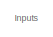
[diagram: Clutchless_HSC_ETE/HSC/Powertrain Manager/Torque Distribution - part 1/4, top left region]
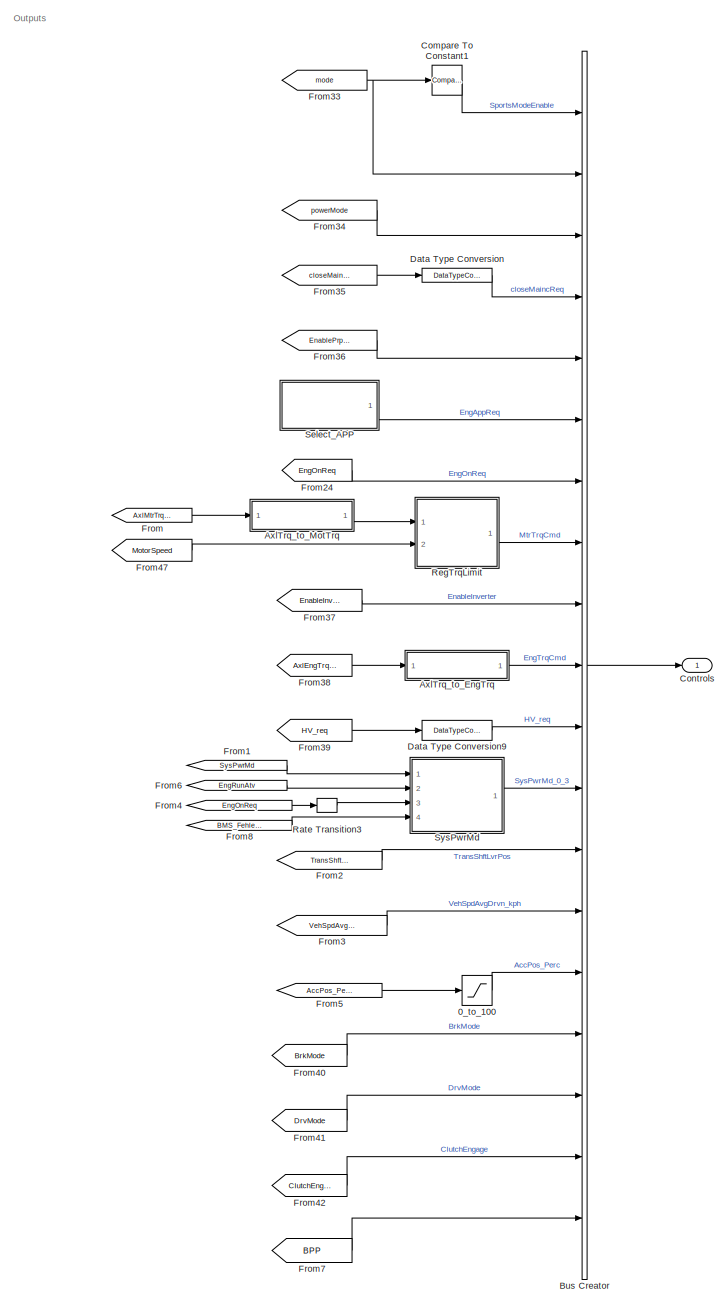
[diagram: Clutchless_HSC_ETE/HSC/Powertrain Manager/Torque Distribution - part 2/4, right side, full height]
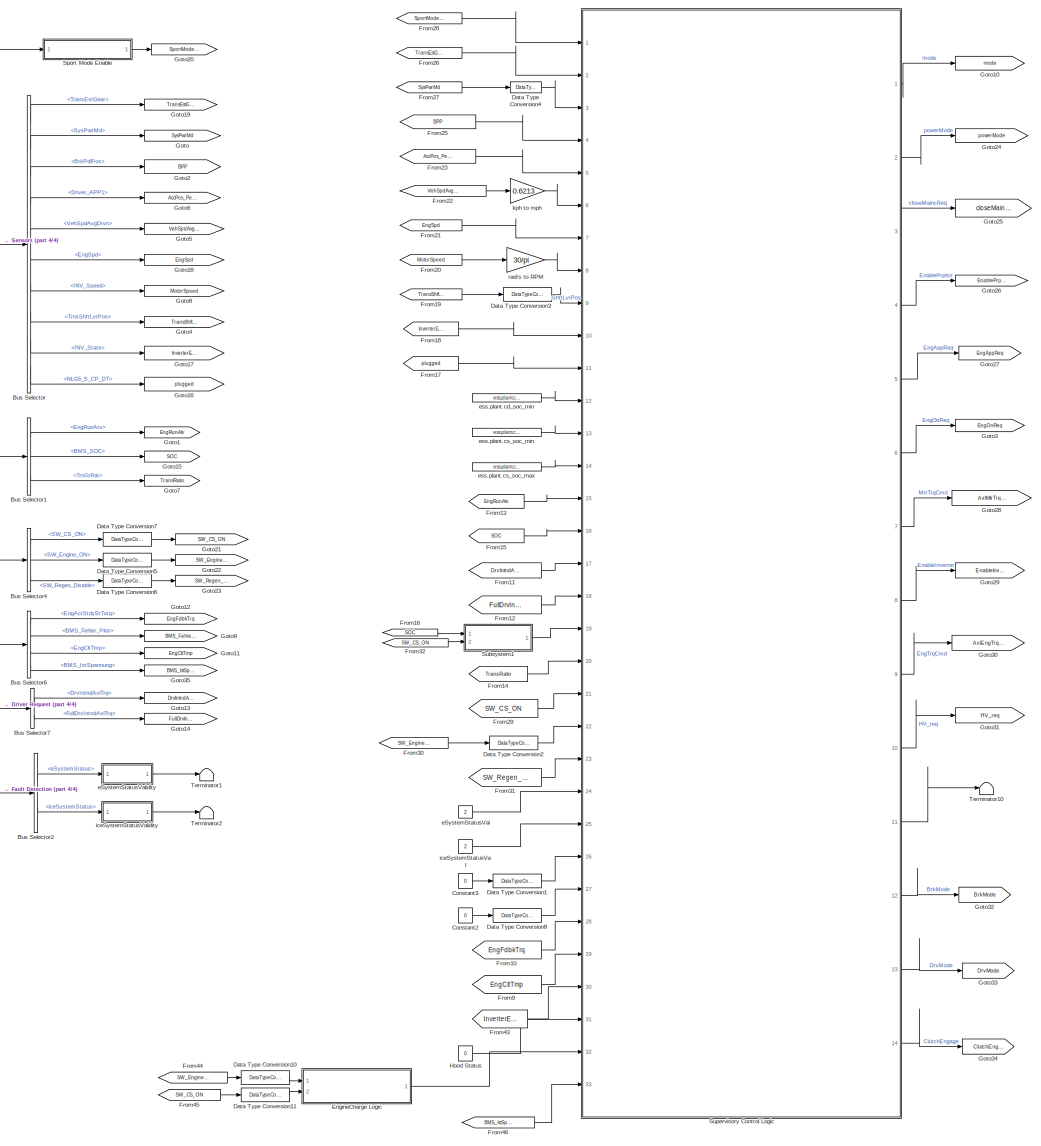
[diagram: Clutchless_HSC_ETE/HSC/Powertrain Manager/Torque Distribution - part 3/4, center side, full height]
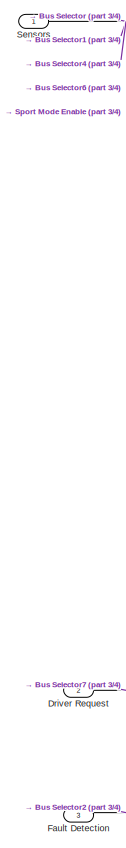
[diagram: Clutchless_HSC_ETE/HSC/Powertrain Manager/Torque Distribution - part 4/4, middle left region]
BLOCK [SubSystem] Clutchless_HSC_ETE/HSC/Powertrain Manager/Torque Distribution
  AncestorBlock = lib_TorqueDistribution_2017a/Torque Distribution
  Ports = [3, 1]
  RequestExecContextInheritance = off
  Variant = off
BLOCK [Saturate] Clutchless_HSC_ETE/HSC/Powertrain Manager/Torque Distribution/0_to_100
  InputPortMap = u0
  LowerLimit = 0
  Ports = [1, 1]
  UpperLimit = 100
BLOCK [SubSystem] Clutchless_HSC_ETE/HSC/Powertrain Manager/Torque Distribution/AxlTrq_to_EngTrq
  Ports = [1, 1]
  RequestExecContextInheritance = off
  Variant = off
BLOCK [Reference] Clutchless_HSC_ETE/HSC/Powertrain Manager/Torque Distribution/AxlTrq_to_EngTrq/Compare To Constant  REF=simulink/Logic and Bit
Operations/Compare
To Constant
  Ports = [1, 1]
  SourceBlock = simulink/Logic and Bit\nOperations/Compare\nTo Constant
  SourceProductBaseCode = SL
  SourceProductName = Simulink
  SourceType = Compare To Constant
BLOCK [Constant] Clutchless_HSC_ETE/HSC/Powertrain Manager/Torque Distribution/AxlTrq_to_EngTrq/Constant1
  Value = max(gb.plant.init.ratio.map)
BLOCK [Constant] Clutchless_HSC_ETE/HSC/Powertrain Manager/Torque Distribution/AxlTrq_to_EngTrq/Constant5
  Value = fd.plant.init.ratio
BLOCK [Product] Clutchless_HSC_ETE/HSC/Powertrain Manager/Torque Distribution/AxlTrq_to_EngTrq/Divide1
  InputSameDT = off
  Inputs = *//
  OutDataTypeStr = Inherit: Inherit via internal rule
  Ports = [3, 1]
  RndMeth = Floor
  SaturateOnIntegerOverflow = off
BLOCK [From] Clutchless_HSC_ETE/HSC/Powertrain Manager/Torque Distribution/AxlTrq_to_EngTrq/From8
  GotoTag = TransRatio
  TagVisibility = global
BLOCK [Ground] Clutchless_HSC_ETE/HSC/Powertrain Manager/Torque Distribution/AxlTrq_to_EngTrq/Ground
  Commented = on
BLOCK [Inport] Clutchless_HSC_ETE/HSC/Powertrain Manager/Torque Distribution/AxlTrq_to_EngTrq/In1
  IconDisplay = Port number
BLOCK [Outport] Clutchless_HSC_ETE/HSC/Powertrain Manager/Torque Distribution/AxlTrq_to_EngTrq/Out1
  IconDisplay = Port number
BLOCK [RateLimiter] Clutchless_HSC_ETE/HSC/Powertrain Manager/Torque Distribution/AxlTrq_to_EngTrq/Rate Limiter
  FallingSlewLimit = -2000
  RisingSlewLimit = 1000
BLOCK [RateLimiter] Clutchless_HSC_ETE/HSC/Powertrain Manager/Torque Distribution/AxlTrq_to_EngTrq/Rate Limiter1
  Commented = on
  FallingSlewLimit = Engine.trq_derate
  RisingSlewLimit = Engine.trq_uprate
BLOCK [SubSystem] Clutchless_HSC_ETE/HSC/Powertrain Manager/Torque Distribution/AxlTrq_to_EngTrq/Ratio Filter
  Ports = [1, 1]
  RequestExecContextInheritance = off
  Variant = off
BLOCK [Abs] Clutchless_HSC_ETE/HSC/Powertrain Manager/Torque Distribution/AxlTrq_to_EngTrq/Ratio Filter/Abs
  SaturateOnIntegerOverflow = off
BLOCK [Reference] Clutchless_HSC_ETE/HSC/Powertrain Manager/Torque Distribution/AxlTrq_to_EngTrq/Ratio Filter/Compare To Zero  REF=simulink/Logic and Bit
Operations/Compare
To Zero
  Ports = [1, 1]
  SourceBlock = simulink/Logic and Bit\nOperations/Compare\nTo Zero
  SourceProductBaseCode = SL
  SourceProductName = Simulink
  SourceType = Compare To Zero
BLOCK [Constant] Clutchless_HSC_ETE/HSC/Powertrain Manager/Torque Distribution/AxlTrq_to_EngTrq/Ratio Filter/Constant
  Value = cal.Time.TrnsOvrllEstTrqRatioSwitch
BLOCK [Outport] Clutchless_HSC_ETE/HSC/Powertrain Manager/Torque Distribution/AxlTrq_to_EngTrq/Ratio Filter/Filtered_Ratio
  IconDisplay = Port number
BLOCK [Reference] Clutchless_HSC_ETE/HSC/Powertrain Manager/Torque Distribution/AxlTrq_to_EngTrq/Ratio Filter/Mature_Delay  REF=EC2_libraries/Mature_Delay
  Ports = [2, 1]
  SourceBlock = EC2_libraries/Mature_Delay
  SourceType = SubSystem
BLOCK [Memory] Clutchless_HSC_ETE/HSC/Powertrain Manager/Torque Distribution/AxlTrq_to_EngTrq/Ratio Filter/Memory1
  InitialCondition = 1
BLOCK [Inport] Clutchless_HSC_ETE/HSC/Powertrain Manager/Torque Distribution/AxlTrq_to_EngTrq/Ratio Filter/Ratio
  IconDisplay = Port number
BLOCK [Switch] Clutchless_HSC_ETE/HSC/Powertrain Manager/Torque Distribution/AxlTrq_to_EngTrq/Ratio Filter/Switch1
  InputSameDT = off
  SaturateOnIntegerOverflow = off
  Threshold = 1
BLOCK [Switch] Clutchless_HSC_ETE/HSC/Powertrain Manager/Torque Distribution/AxlTrq_to_EngTrq/Ratio Filter/Switch2
  InputSameDT = off
  SaturateOnIntegerOverflow = off
  Threshold = 1
BLOCK [Switch] Clutchless_HSC_ETE/HSC/Powertrain Manager/Torque Distribution/AxlTrq_to_EngTrq/Switch
  Criteria = u2 > Threshold
  InputSameDT = off
  SaturateOnIntegerOverflow = off
BLOCK [Terminator] Clutchless_HSC_ETE/HSC/Powertrain Manager/Torque Distribution/AxlTrq_to_EngTrq/Terminator
  Commented = on
BLOCK [SubSystem] Clutchless_HSC_ETE/HSC/Powertrain Manager/Torque Distribution/AxlTrq_to_MotTrq
  Ports = [1, 1]
  RequestExecContextInheritance = off
  Variant = off
BLOCK [SubSystem] Clutchless_HSC_ETE/HSC/Powertrain Manager/Torque Distribution/AxlTrq_to_MotTrq/AxlTrq_to_MtrTrq2
  Ports = [1, 1]
  RequestExecContextInheritance = off
  Variant = off
BLOCK [Reference] Clutchless_HSC_ETE/HSC/Powertrain Manager/Torque Distribution/AxlTrq_to_MotTrq/AxlTrq_to_MtrTrq2/Compare To Constant  REF=simulink/Logic and Bit
Operations/Compare
To Constant
  Ports = [1, 1]
  SourceBlock = simulink/Logic and Bit\nOperations/Compare\nTo Constant
  SourceProductBaseCode = SL
  SourceProductName = Simulink
  SourceType = Compare To Constant
BLOCK [Constant] Clutchless_HSC_ETE/HSC/Powertrain Manager/Torque Distribution/AxlTrq_to_MotTrq/AxlTrq_to_MtrTrq2/Constant1
  Value = max(gb.plant.init.ratio.map)
BLOCK [Constant] Clutchless_HSC_ETE/HSC/Powertrain Manager/Torque Distribution/AxlTrq_to_MotTrq/AxlTrq_to_MtrTrq2/Constant5
  Value = fd.plant.init.ratio
BLOCK [Product] Clutchless_HSC_ETE/HSC/Powertrain Manager/Torque Distribution/AxlTrq_to_MotTrq/AxlTrq_to_MtrTrq2/Divide
  InputSameDT = off
  Inputs = *//
  OutDataTypeStr = Inherit: Inherit via internal rule
  Ports = [3, 1]
  RndMeth = Floor
  SaturateOnIntegerOverflow = off
BLOCK [From] Clutchless_HSC_ETE/HSC/Powertrain Manager/Torque Distribution/AxlTrq_to_MotTrq/AxlTrq_to_MtrTrq2/From8
  GotoTag = TransRatio
  TagVisibility = global
BLOCK [Inport] Clutchless_HSC_ETE/HSC/Powertrain Manager/Torque Distribution/AxlTrq_to_MotTrq/AxlTrq_to_MtrTrq2/In1
  IconDisplay = Port number
BLOCK [Outport] Clutchless_HSC_ETE/HSC/Powertrain Manager/Torque Distribution/AxlTrq_to_MotTrq/AxlTrq_to_MtrTrq2/MtrTrqCmd
  IconDisplay = Port number
BLOCK [RateLimiter] Clutchless_HSC_ETE/HSC/Powertrain Manager/Torque Distribution/AxlTrq_to_MotTrq/AxlTrq_to_MtrTrq2/Rate Limiter
  FallingSlewLimit = mcu.plant.init.trq_derate
  RisingSlewLimit = mcu.plant.init.trq_uprate
BLOCK [SubSystem] Clutchless_HSC_ETE/HSC/Powertrain Manager/Torque Distribution/AxlTrq_to_MotTrq/AxlTrq_to_MtrTrq2/Ratio Filter
  Ports = [1, 1]
  RequestExecContextInheritance = off
  Variant = off
BLOCK [Abs] Clutchless_HSC_ETE/HSC/Powertrain Manager/Torque Distribution/AxlTrq_to_MotTrq/AxlTrq_to_MtrTrq2/Ratio Filter/Abs
  SaturateOnIntegerOverflow = off
BLOCK [Reference] Clutchless_HSC_ETE/HSC/Powertrain Manager/Torque Distribution/AxlTrq_to_MotTrq/AxlTrq_to_MtrTrq2/Ratio Filter/Compare To Zero  REF=simulink/Logic and Bit
Operations/Compare
To Zero
  Ports = [1, 1]
  SourceBlock = simulink/Logic and Bit\nOperations/Compare\nTo Zero
  SourceProductBaseCode = SL
  SourceProductName = Simulink
  SourceType = Compare To Zero
BLOCK [Constant] Clutchless_HSC_ETE/HSC/Powertrain Manager/Torque Distribution/AxlTrq_to_MotTrq/AxlTrq_to_MtrTrq2/Ratio Filter/Constant
  Value = cal.Time.TrnsOvrllEstTrqRatioSwitch
BLOCK [Outport] Clutchless_HSC_ETE/HSC/Powertrain Manager/Torque Distribution/AxlTrq_to_MotTrq/AxlTrq_to_MtrTrq2/Ratio Filter/Filtered_Ratio
  IconDisplay = Port number
BLOCK [Reference] Clutchless_HSC_ETE/HSC/Powertrain Manager/Torque Distribution/AxlTrq_to_MotTrq/AxlTrq_to_MtrTrq2/Ratio Filter/Mature_Delay  REF=EC2_libraries/Mature_Delay
  Ports = [2, 1]
  SourceBlock = EC2_libraries/Mature_Delay
  SourceType = SubSystem
BLOCK [Memory] Clutchless_HSC_ETE/HSC/Powertrain Manager/Torque Distribution/AxlTrq_to_MotTrq/AxlTrq_to_MtrTrq2/Ratio Filter/Memory1
  InitialCondition = 1
BLOCK [Inport] Clutchless_HSC_ETE/HSC/Powertrain Manager/Torque Distribution/AxlTrq_to_MotTrq/AxlTrq_to_MtrTrq2/Ratio Filter/Ratio
  IconDisplay = Port number
BLOCK [Switch] Clutchless_HSC_ETE/HSC/Powertrain Manager/Torque Distribution/AxlTrq_to_MotTrq/AxlTrq_to_MtrTrq2/Ratio Filter/Switch1
  InputSameDT = off
  SaturateOnIntegerOverflow = off
  Threshold = 1
BLOCK [Switch] Clutchless_HSC_ETE/HSC/Powertrain Manager/Torque Distribution/AxlTrq_to_MotTrq/AxlTrq_to_MtrTrq2/Ratio Filter/Switch2
  InputSameDT = off
  SaturateOnIntegerOverflow = off
  Threshold = 1
BLOCK [Switch] Clutchless_HSC_ETE/HSC/Powertrain Manager/Torque Distribution/AxlTrq_to_MotTrq/AxlTrq_to_MtrTrq2/Switch
  Criteria = u2 > Threshold
  InputSameDT = off
  SaturateOnIntegerOverflow = off
BLOCK [Inport] Clutchless_HSC_ETE/HSC/Powertrain Manager/Torque Distribution/AxlTrq_to_MotTrq/In1
  IconDisplay = Port number
BLOCK [Saturate] Clutchless_HSC_ETE/HSC/Powertrain Manager/Torque Distribution/AxlTrq_to_MotTrq/MotTrqLimit
  InputPortMap = u0
  LowerLimit = -200
  Ports = [1, 1]
  UpperLimit = 250
BLOCK [Outport] Clutchless_HSC_ETE/HSC/Powertrain Manager/Torque Distribution/AxlTrq_to_MotTrq/Out1
  IconDisplay = Port number
BLOCK [Scope] Clutchless_HSC_ETE/HSC/Powertrain Manager/Torque Distribution/AxlTrq_to_MotTrq/Scope
  NumInputPorts = 4
  Ports = [4]
  ScopeSpecificationString = Simulink.scopes.TimeScopeBlockCfg('CurrentConfiguration', extmgr.ConfigurationSet(extmgr.Configuration('Core','General UI',true),extmgr.Configuration('Core','Source UI',true),extmgr.Configuration('Sources','WiredSimulink',true,'DataLoggingVariableName','ScopeData10'),extmgr.Configuration('Visuals','Time Domain',true,'SerializedDisplays',{struct('MinYLimReal','-94.26375','MaxYLimReal','10.47375','Y...<+3481ch>
BLOCK [SubSystem] Clutchless_HSC_ETE/HSC/Powertrain Manager/Torque Distribution/AxlTrq_to_MotTrq/electric machine filter
  Ports = [1, 1]
  RequestExecContextInheritance = off
  Variant = off
BLOCK [Reference] Clutchless_HSC_ETE/HSC/Powertrain Manager/Torque Distribution/AxlTrq_to_MotTrq/electric machine filter/Interval Test  REF=simulink/Logic and Bit
Operations/Interval Test
  Ports = [1, 1]
  SourceBlock = simulink/Logic and Bit\nOperations/Interval Test
  SourceProductBaseCode = SL
  SourceProductName = Simulink
  SourceType = Interval Test
BLOCK [Switch] Clutchless_HSC_ETE/HSC/Powertrain Manager/Torque Distribution/AxlTrq_to_MotTrq/electric machine filter/Switch
  InputSameDT = off
  SaturateOnIntegerOverflow = off
  Threshold = 0.5
BLOCK [TransferFcn] Clutchless_HSC_ETE/HSC/Powertrain Manager/Torque Distribution/AxlTrq_to_MotTrq/electric machine filter/electric machine time response
  Denominator = [mot.plant.init.time_response 1]
BLOCK [Outport] Clutchless_HSC_ETE/HSC/Powertrain Manager/Torque Distribution/AxlTrq_to_MotTrq/electric machine filter/filtered
  IconDisplay = Port number
BLOCK [Inport] Clutchless_HSC_ETE/HSC/Powertrain Manager/Torque Distribution/AxlTrq_to_MotTrq/electric machine filter/trq
  IconDisplay = Port number
BLOCK [BusCreator] Clutchless_HSC_ETE/HSC/Powertrain Manager/Torque Distribution/Bus Creator
  DisplayOption = bar
  InheritFromInputs = on
  Inputs = 19
  Ports = [19, 1]
BLOCK [BusSelector] Clutchless_HSC_ETE/HSC/Powertrain Manager/Torque Distribution/Bus Selector
  OutputAsBus = off
  OutputSignals = from_CAN.fromVEH_CAN.from_TCM.TransEstGear,from_CAN.fromVEH_CAN.from_BCM.SysPwrMd,from_CAN.fromVEH_CAN.from_BCM.BrkPdlPos,from_Analog.Driver_APP1,from_CAN.fromEBCAN.from_ECM.VehSpdAvgDrvn,from_CAN.fromEBCAN.from_ECM.EngSpd,from_CAN.fromHV_CAN.from_MCU.INV_VCU_01.INV_Speed,from_CAN.fromVEH_CAN.from_TCM.TrnsShftLvrPos,from_CAN.fromHV_CAN.from_MCU.INV_VCU_01.INV_State,from_CAN.fromHV_CAN.from_OBC.NLG...<+17ch>
  Ports = [1, 10]
BLOCK [BusSelector] Clutchless_HSC_ETE/HSC/Powertrain Manager/Torque Distribution/Bus Selector1
  OutputAsBus = off
  OutputSignals = from_CAN.fromEBCAN.from_ECM.EngRunAtv,from_CAN.fromHV_CAN.from_BMSHybrid.BMS_SOC,from_CAN.fromVEH_CAN.from_TCM.TrnGrRat
  Ports = [1, 3]
BLOCK [BusSelector] Clutchless_HSC_ETE/HSC/Powertrain Manager/Torque Distribution/Bus Selector2
  OutputAsBus = off
  OutputSignals = eSystemDiagOut.eSystemStatus,iceSystemDiagOut.iceSystemStatus
  Ports = [1, 2]
BLOCK [BusSelector] Clutchless_HSC_ETE/HSC/Powertrain Manager/Torque Distribution/Bus Selector4
  OutputAsBus = off
  OutputSignals = from_Digital.SW_CS_ON,from_Digital.SW_Engine_ON,from_Digital.SW_Regen_Disable
  Ports = [1, 3]
BLOCK [BusSelector] Clutchless_HSC_ETE/HSC/Powertrain Manager/Torque Distribution/Bus Selector6
  OutputAsBus = off
  OutputSignals = from_CAN.fromEBCAN.from_ECM.EngActStdyStTorq,from_CAN.fromHV_CAN.from_BMSHybrid.BMS_HYB_02.BMS_Fehler_Pilot,from_CAN.fromEBCAN.from_ECM.EngCltTmp,from_CAN.fromHV_CAN.from_BMSHybrid.BMS_HYB_02.BMS_IstSpannung
  Ports = [1, 4]
BLOCK [BusSelector] Clutchless_HSC_ETE/HSC/Powertrain Manager/Torque Distribution/Bus Selector7
  OutputAsBus = off
  OutputSignals = DrvIntndAxlTrq,FullDrvIntndAxlTrq
  Ports = [1, 2]
BLOCK [Reference] Clutchless_HSC_ETE/HSC/Powertrain Manager/Torque Distribution/Compare To Constant1  REF=simulink/Logic and Bit
Operations/Compare
To Constant
  Ports = [1, 1]
  SourceBlock = simulink/Logic and Bit\nOperations/Compare\nTo Constant
  SourceProductBaseCode = SL
  SourceProductName = Simulink
  SourceType = Compare To Constant
BLOCK [Constant] Clutchless_HSC_ETE/HSC/Powertrain Manager/Torque Distribution/Constant2
  Value = 0
BLOCK [Constant] Clutchless_HSC_ETE/HSC/Powertrain Manager/Torque Distribution/Constant3
  Value = 0
BLOCK [Outport] Clutchless_HSC_ETE/HSC/Powertrain Manager/Torque Distribution/Controls
  IconDisplay = Port number
BLOCK [DataTypeConversion] Clutchless_HSC_ETE/HSC/Powertrain Manager/Torque Distribution/Data Type Conversion
  RndMeth = Floor
  SaturateOnIntegerOverflow = off
BLOCK [DataTypeConversion] Clutchless_HSC_ETE/HSC/Powertrain Manager/Torque Distribution/Data Type Conversion1
  OutDataTypeStr = boolean
  RndMeth = Floor
  SaturateOnIntegerOverflow = off
BLOCK [DataTypeConversion] Clutchless_HSC_ETE/HSC/Powertrain Manager/Torque Distribution/Data Type Conversion10
  OutDataTypeStr = boolean
  RndMeth = Floor
  SaturateOnIntegerOverflow = off
BLOCK [DataTypeConversion] Clutchless_HSC_ETE/HSC/Powertrain Manager/Torque Distribution/Data Type Conversion11
  OutDataTypeStr = boolean
  RndMeth = Floor
  SaturateOnIntegerOverflow = off
BLOCK [DataTypeConversion] Clutchless_HSC_ETE/HSC/Powertrain Manager/Torque Distribution/Data Type Conversion2
  OutDataTypeStr = boolean
  RndMeth = Floor
  SaturateOnIntegerOverflow = off
BLOCK [DataTypeConversion] Clutchless_HSC_ETE/HSC/Powertrain Manager/Torque Distribution/Data Type Conversion3
  RndMeth = Floor
  SaturateOnIntegerOverflow = off
BLOCK [DataTypeConversion] Clutchless_HSC_ETE/HSC/Powertrain Manager/Torque Distribution/Data Type Conversion4
  OutDataTypeStr = int8
  RndMeth = Floor
  SaturateOnIntegerOverflow = off
BLOCK [DataTypeConversion] Clutchless_HSC_ETE/HSC/Powertrain Manager/Torque Distribution/Data Type Conversion5
  OutDataTypeStr = boolean
  RndMeth = Floor
  SaturateOnIntegerOverflow = off
BLOCK [DataTypeConversion] Clutchless_HSC_ETE/HSC/Powertrain Manager/Torque Distribution/Data Type Conversion6
  OutDataTypeStr = boolean
  RndMeth = Floor
  SaturateOnIntegerOverflow = off
BLOCK [DataTypeConversion] Clutchless_HSC_ETE/HSC/Powertrain Manager/Torque Distribution/Data Type Conversion7
  OutDataTypeStr = boolean
  RndMeth = Floor
  SaturateOnIntegerOverflow = off
BLOCK [DataTypeConversion] Clutchless_HSC_ETE/HSC/Powertrain Manager/Torque Distribution/Data Type Conversion8
  OutDataTypeStr = boolean
  RndMeth = Floor
  SaturateOnIntegerOverflow = off
BLOCK [DataTypeConversion] Clutchless_HSC_ETE/HSC/Powertrain Manager/Torque Distribution/Data Type Conversion9
  RndMeth = Floor
  SaturateOnIntegerOverflow = off
BLOCK [Inport] Clutchless_HSC_ETE/HSC/Powertrain Manager/Torque Distribution/Driver Request
  IconDisplay = Port number
  Port = 2
BLOCK [SubSystem] Clutchless_HSC_ETE/HSC/Powertrain Manager/Torque Distribution/EngineCharge Logic
  ErrorFcn = Stateflow.Translate.translate
  PermitHierarchicalResolution = ExplicitOnly
  Ports = [2, 1]
  RequestExecContextInheritance = off
  SFBlockType = Chart
  TreatAsAtomicUnit = on
  Variant = off
BLOCK [Demux] Clutchless_HSC_ETE/HSC/Powertrain Manager/Torque Distribution/EngineCharge Logic/ Demux 
  Outputs = 1
  Ports = [1, 1]
BLOCK [S-Function] Clutchless_HSC_ETE/HSC/Powertrain Manager/Torque Distribution/EngineCharge Logic/ SFunction 
  EnableBusSupport = on
  FunctionName = sf_sfun
  PortCounts = [2 2]
  Ports = [2, 2]
  SFcnIsStateOwnerBlock = off
  SFunctionDeploymentMode = off
  Tag = Stateflow S-Function Clutchless_P2_Parallel_ETE 4
BLOCK [Terminator] Clutchless_HSC_ETE/HSC/Powertrain Manager/Torque Distribution/EngineCharge Logic/ Terminator 
BLOCK [Outport] Clutchless_HSC_ETE/HSC/Powertrain Manager/Torque Distribution/EngineCharge Logic/CDmodeSW
  IconDisplay = Port number
BLOCK [Inport] Clutchless_HSC_ETE/HSC/Powertrain Manager/Torque Distribution/EngineCharge Logic/SW_CS_On
  IconDisplay = Port number
  Port = 2
BLOCK [Inport] Clutchless_HSC_ETE/HSC/Powertrain Manager/Torque Distribution/EngineCharge Logic/SW_Engine_On
  IconDisplay = Port number
BLOCK [Inport] Clutchless_HSC_ETE/HSC/Powertrain Manager/Torque Distribution/Fault Detection
  IconDisplay = Port number
  Port = 3
BLOCK [From] Clutchless_HSC_ETE/HSC/Powertrain Manager/Torque Distribution/From
  GotoTag = AxlMtrTrqCmd
  TagVisibility = global
BLOCK [From] Clutchless_HSC_ETE/HSC/Powertrain Manager/Torque Distribution/From1
  GotoTag = SysPwrMd
  TagVisibility = global
BLOCK [From] Clutchless_HSC_ETE/HSC/Powertrain Manager/Torque Distribution/From10
  GotoTag = EngFdbkTrq
BLOCK [From] Clutchless_HSC_ETE/HSC/Powertrain Manager/Torque Distribution/From11
  GotoTag = DrvIntndAxlTrq
BLOCK [From] Clutchless_HSC_ETE/HSC/Powertrain Manager/Torque Distribution/From12
  GotoTag = FullDrvIntndAxlTrq
BLOCK [From] Clutchless_HSC_ETE/HSC/Powertrain Manager/Torque Distribution/From13
  GotoTag = EngRunAtv
BLOCK [From] Clutchless_HSC_ETE/HSC/Powertrain Manager/Torque Distribution/From14
  GotoTag = TransRatio
  TagVisibility = global
BLOCK [From] Clutchless_HSC_ETE/HSC/Powertrain Manager/Torque Distribution/From15
  GotoTag = SOC
BLOCK [From] Clutchless_HSC_ETE/HSC/Powertrain Manager/Torque Distribution/From16
  GotoTag = SOC
BLOCK [From] Clutchless_HSC_ETE/HSC/Powertrain Manager/Torque Distribution/From17
  GotoTag = plugged
BLOCK [From] Clutchless_HSC_ETE/HSC/Powertrain Manager/Torque Distribution/From18
  GotoTag = InverterEnabled
BLOCK [From] Clutchless_HSC_ETE/HSC/Powertrain Manager/Torque Distribution/From19
  GotoTag = TransShftLvrPos
BLOCK [From] Clutchless_HSC_ETE/HSC/Powertrain Manager/Torque Distribution/From2
  GotoTag = TransShftLvrPos
BLOCK [From] Clutchless_HSC_ETE/HSC/Powertrain Manager/Torque Distribution/From20
  GotoTag = MotorSpeed
  TagVisibility = global
BLOCK [From] Clutchless_HSC_ETE/HSC/Powertrain Manager/Torque Distribution/From21
  GotoTag = EngSpd
BLOCK [From] Clutchless_HSC_ETE/HSC/Powertrain Manager/Torque Distribution/From22
  GotoTag = VehSpdAvgDrvn
BLOCK [From] Clutchless_HSC_ETE/HSC/Powertrain Manager/Torque Distribution/From23
  GotoTag = AccPos_Perc
  TagVisibility = global
BLOCK [From] Clutchless_HSC_ETE/HSC/Powertrain Manager/Torque Distribution/From24
  GotoTag = EngOnReq
BLOCK [From] Clutchless_HSC_ETE/HSC/Powertrain Manager/Torque Distribution/From25
  GotoTag = BPP
BLOCK [From] Clutchless_HSC_ETE/HSC/Powertrain Manager/Torque Distribution/From26
  GotoTag = TransEstGear
BLOCK [From] Clutchless_HSC_ETE/HSC/Powertrain Manager/Torque Distribution/From27
  GotoTag = SysPwrMd
  TagVisibility = global
BLOCK [From] Clutchless_HSC_ETE/HSC/Powertrain Manager/Torque Distribution/From28
  GotoTag = SportModeEnabled
  TagVisibility = global
BLOCK [From] Clutchless_HSC_ETE/HSC/Powertrain Manager/Torque Distribution/From29
  GotoTag = SW_CS_ON
BLOCK [From] Clutchless_HSC_ETE/HSC/Powertrain Manager/Torque Distribution/From3
  GotoTag = VehSpdAvgDrvn
BLOCK [From] Clutchless_HSC_ETE/HSC/Powertrain Manager/Torque Distribution/From30
  GotoTag = SW_Engine_ON
BLOCK [From] Clutchless_HSC_ETE/HSC/Powertrain Manager/Torque Distribution/From31
  GotoTag = SW_Regen_Disable
BLOCK [From] Clutchless_HSC_ETE/HSC/Powertrain Manager/Torque Distribution/From32
  GotoTag = SW_CS_ON
BLOCK [From] Clutchless_HSC_ETE/HSC/Powertrain Manager/Torque Distribution/From33
  GotoTag = mode
  TagVisibility = global
BLOCK [From] Clutchless_HSC_ETE/HSC/Powertrain Manager/Torque Distribution/From34
  GotoTag = powerMode
  TagVisibility = global
BLOCK [From] Clutchless_HSC_ETE/HSC/Powertrain Manager/Torque Distribution/From35
  GotoTag = closeMaincReq
  TagVisibility = global
BLOCK [From] Clutchless_HSC_ETE/HSC/Powertrain Manager/Torque Distribution/From36
  GotoTag = EnablePrplsn
  TagVisibility = global
BLOCK [From] Clutchless_HSC_ETE/HSC/Powertrain Manager/Torque Distribution/From37
  GotoTag = EnableInverter
BLOCK [From] Clutchless_HSC_ETE/HSC/Powertrain Manager/Torque Distribution/From38
  GotoTag = AxlEngTrqCmd
  TagVisibility = global
BLOCK [From] Clutchless_HSC_ETE/HSC/Powertrain Manager/Torque Distribution/From39
  GotoTag = HV_req
BLOCK [From] Clutchless_HSC_ETE/HSC/Powertrain Manager/Torque Distribution/From4
  GotoTag = EngOnReq
BLOCK [From] Clutchless_HSC_ETE/HSC/Powertrain Manager/Torque Distribution/From40
  GotoTag = BrkMode
  TagVisibility = global
BLOCK [From] Clutchless_HSC_ETE/HSC/Powertrain Manager/Torque Distribution/From41
  GotoTag = DrvMode
BLOCK [From] Clutchless_HSC_ETE/HSC/Powertrain Manager/Torque Distribution/From42
  GotoTag = ClutchEngage
BLOCK [From] Clutchless_HSC_ETE/HSC/Powertrain Manager/Torque Distribution/From43
  GotoTag = InverterEnabled
BLOCK [From] Clutchless_HSC_ETE/HSC/Powertrain Manager/Torque Distribution/From44
  GotoTag = SW_Engine_ON
BLOCK [From] Clutchless_HSC_ETE/HSC/Powertrain Manager/Torque Distribution/From45
  GotoTag = SW_CS_ON
BLOCK [From] Clutchless_HSC_ETE/HSC/Powertrain Manager/Torque Distribution/From46
  GotoTag = BMS_IstSpannung
BLOCK [From] Clutchless_HSC_ETE/HSC/Powertrain Manager/Torque Distribution/From47
  GotoTag = MotorSpeed
  TagVisibility = global
BLOCK [From] Clutchless_HSC_ETE/HSC/Powertrain Manager/Torque Distribution/From5
  GotoTag = AccPos_Perc
  TagVisibility = global
BLOCK [From] Clutchless_HSC_ETE/HSC/Powertrain Manager/Torque Distribution/From6
  GotoTag = EngRunAtv
BLOCK [From] Clutchless_HSC_ETE/HSC/Powertrain Manager/Torque Distribution/From7
  GotoTag = BPP
BLOCK [From] Clutchless_HSC_ETE/HSC/Powertrain Manager/Torque Distribution/From8
  GotoTag = BMS_Fehler_Pilot
BLOCK [From] Clutchless_HSC_ETE/HSC/Powertrain Manager/Torque Distribution/From9
  GotoTag = EngCltTmp
BLOCK [Goto] Clutchless_HSC_ETE/HSC/Powertrain Manager/Torque Distribution/Goto
  GotoTag = SysPwrMd
  TagVisibility = global
BLOCK [Goto] Clutchless_HSC_ETE/HSC/Powertrain Manager/Torque Distribution/Goto1
  GotoTag = EngRunAtv
BLOCK [Goto] Clutchless_HSC_ETE/HSC/Powertrain Manager/Torque Distribution/Goto10
  GotoTag = mode
  TagVisibility = global
BLOCK [Goto] Clutchless_HSC_ETE/HSC/Powertrain Manager/Torque Distribution/Goto11
  GotoTag = EngCltTmp
BLOCK [Goto] Clutchless_HSC_ETE/HSC/Powertrain Manager/Torque Distribution/Goto12
  GotoTag = EngFdbkTrq
BLOCK [Goto] Clutchless_HSC_ETE/HSC/Powertrain Manager/Torque Distribution/Goto13
  GotoTag = DrvIntndAxlTrq
BLOCK [Goto] Clutchless_HSC_ETE/HSC/Powertrain Manager/Torque Distribution/Goto14
  GotoTag = FullDrvIntndAxlTrq
BLOCK [Goto] Clutchless_HSC_ETE/HSC/Powertrain Manager/Torque Distribution/Goto15
  GotoTag = SOC
BLOCK [Goto] Clutchless_HSC_ETE/HSC/Powertrain Manager/Torque Distribution/Goto16
  GotoTag = plugged
BLOCK [Goto] Clutchless_HSC_ETE/HSC/Powertrain Manager/Torque Distribution/Goto17
  GotoTag = InverterEnabled
BLOCK [Goto] Clutchless_HSC_ETE/HSC/Powertrain Manager/Torque Distribution/Goto18
  GotoTag = EngSpd
BLOCK [Goto] Clutchless_HSC_ETE/HSC/Powertrain Manager/Torque Distribution/Goto19
  GotoTag = TransEstGear
BLOCK [Goto] Clutchless_HSC_ETE/HSC/Powertrain Manager/Torque Distribution/Goto2
  GotoTag = BPP
BLOCK [Goto] Clutchless_HSC_ETE/HSC/Powertrain Manager/Torque Distribution/Goto20
  GotoTag = SportModeEnabled
  TagVisibility = global
BLOCK [Goto] Clutchless_HSC_ETE/HSC/Powertrain Manager/Torque Distribution/Goto21
  GotoTag = SW_CS_ON
BLOCK [Goto] Clutchless_HSC_ETE/HSC/Powertrain Manager/Torque Distribution/Goto22
  GotoTag = SW_Engine_ON
BLOCK [Goto] Clutchless_HSC_ETE/HSC/Powertrain Manager/Torque Distribution/Goto23
  GotoTag = SW_Regen_Disable
BLOCK [Goto] Clutchless_HSC_ETE/HSC/Powertrain Manager/Torque Distribution/Goto24
  GotoTag = powerMode
  TagVisibility = global
BLOCK [Goto] Clutchless_HSC_ETE/HSC/Powertrain Manager/Torque Distribution/Goto25
  GotoTag = closeMaincReq
  TagVisibility = global
BLOCK [Goto] Clutchless_HSC_ETE/HSC/Powertrain Manager/Torque Distribution/Goto26
  GotoTag = EnablePrplsn
  TagVisibility = global
BLOCK [Goto] Clutchless_HSC_ETE/HSC/Powertrain Manager/Torque Distribution/Goto27
  GotoTag = EngAppReq
  TagVisibility = global
BLOCK [Goto] Clutchless_HSC_ETE/HSC/Powertrain Manager/Torque Distribution/Goto28
  GotoTag = AxlMtrTrqCmd
  TagVisibility = global
BLOCK [Goto] Clutchless_HSC_ETE/HSC/Powertrain Manager/Torque Distribution/Goto29
  GotoTag = EnableInverter
BLOCK [Goto] Clutchless_HSC_ETE/HSC/Powertrain Manager/Torque Distribution/Goto3
  GotoTag = EngOnReq
BLOCK [Goto] Clutchless_HSC_ETE/HSC/Powertrain Manager/Torque Distribution/Goto30
  GotoTag = AxlEngTrqCmd
  TagVisibility = global
BLOCK [Goto] Clutchless_HSC_ETE/HSC/Powertrain Manager/Torque Distribution/Goto31
  GotoTag = HV_req
BLOCK [Goto] Clutchless_HSC_ETE/HSC/Powertrain Manager/Torque Distribution/Goto32
  GotoTag = BrkMode
  TagVisibility = global
BLOCK [Goto] Clutchless_HSC_ETE/HSC/Powertrain Manager/Torque Distribution/Goto33
  GotoTag = DrvMode
BLOCK [Goto] Clutchless_HSC_ETE/HSC/Powertrain Manager/Torque Distribution/Goto34
  GotoTag = ClutchEngage
BLOCK [Goto] Clutchless_HSC_ETE/HSC/Powertrain Manager/Torque Distribution/Goto35
  GotoTag = BMS_IstSpannung
BLOCK [Goto] Clutchless_HSC_ETE/HSC/Powertrain Manager/Torque Distribution/Goto4
  GotoTag = TransShftLvrPos
BLOCK [Goto] Clutchless_HSC_ETE/HSC/Powertrain Manager/Torque Distribution/Goto5
  GotoTag = VehSpdAvgDrvn
BLOCK [Goto] Clutchless_HSC_ETE/HSC/Powertrain Manager/Torque Distribution/Goto6
  GotoTag = AccPos_Perc
  TagVisibility = global
BLOCK [Goto] Clutchless_HSC_ETE/HSC/Powertrain Manager/Torque Distribution/Goto7
  GotoTag = TransRatio
  TagVisibility = global
BLOCK [Goto] Clutchless_HSC_ETE/HSC/Powertrain Manager/Torque Distribution/Goto8
  GotoTag = MotorSpeed
  TagVisibility = global
BLOCK [Goto] Clutchless_HSC_ETE/HSC/Powertrain Manager/Torque Distribution/Goto9
  GotoTag = BMS_Fehler_Pilot
BLOCK [Constant] Clutchless_HSC_ETE/HSC/Powertrain Manager/Torque Distribution/Hood Status
  Value = 0
BLOCK [RateTransition] Clutchless_HSC_ETE/HSC/Powertrain Manager/Torque Distribution/Rate Transition3
BLOCK [SubSystem] Clutchless_HSC_ETE/HSC/Powertrain Manager/Torque Distribution/RegTrqLimit
  Ports = [2, 1]
  RequestExecContextInheritance = off
  Variant = off
BLOCK [Reference] Clutchless_HSC_ETE/HSC/Powertrain Manager/Torque Distribution/RegTrqLimit/Compare To Constant  REF=simulink/Logic and Bit
Operations/Compare
To Constant
  Ports = [1, 1]
  SourceBlock = simulink/Logic and Bit\nOperations/Compare\nTo Constant
  SourceProductBaseCode = SL
  SourceProductName = Simulink
  SourceType = Compare To Constant
BLOCK [Product] Clutchless_HSC_ETE/HSC/Powertrain Manager/Torque Distribution/RegTrqLimit/Divide
  InputSameDT = off
  Inputs = **
  OutDataTypeStr = Inherit: Inherit via internal rule
  Ports = [2, 1]
  RndMeth = Floor
  SaturateOnIntegerOverflow = off
BLOCK [Inport] Clutchless_HSC_ETE/HSC/Powertrain Manager/Torque Distribution/RegTrqLimit/MotTrqCmd
  IconDisplay = Port number
BLOCK [Outport] Clutchless_HSC_ETE/HSC/Powertrain Manager/Torque Distribution/RegTrqLimit/Out1
  IconDisplay = Port number
BLOCK [Inport] Clutchless_HSC_ETE/HSC/Powertrain Manager/Torque Distribution/RegTrqLimit/RPM
  IconDisplay = Port number
  Port = 2
BLOCK [Lookup_n-D] Clutchless_HSC_ETE/HSC/Powertrain Manager/Torque Distribution/RegTrqLimit/Regen Trq Derating2
  BreakpointsForDimension1 = [0 200 600 800 1000 1200 12000]
  ExtrapMethod = Clip
  InternalRulePriority = Speed
  NumberOfTableDimensions = 1
  Ports = [1, 1]
  RndMeth = Simplest
  Table = [0 0.05 0.5 0.8 0.95 1 1]
  UseLastTableValue = on
BLOCK [Lookup_n-D] Clutchless_HSC_ETE/HSC/Powertrain Manager/Torque Distribution/RegTrqLimit/Regen Trq Derating3
  BreakpointsForDimension1 = [0 400 800 1200 1600 2000 2400 2800]
  Commented = on
  ExtrapMethod = Clip
  InternalRulePriority = Speed
  NumberOfTableDimensions = 1
  Ports = [1, 1]
  RndMeth = Simplest
  Table = [0 0 0.2 0.5 0.8 1 1 1]
  UseLastTableValue = on
BLOCK [Lookup_n-D] Clutchless_HSC_ETE/HSC/Powertrain Manager/Torque Distribution/RegTrqLimit/Regen Trq Derating4
  BreakpointsForDimension1 = [0 200 600 800 1000 1200 12000]
  Commented = on
  ExtrapMethod = Clip
  InternalRulePriority = Speed
  NumberOfTableDimensions = 1
  Ports = [1, 1]
  RndMeth = Simplest
  Table = [0 0.05 0.2 0.5 0.8 1 1]
  UseLastTableValue = on
BLOCK [Saturate] Clutchless_HSC_ETE/HSC/Powertrain Manager/Torque Distribution/RegTrqLimit/Saturation
  InputPortMap = u0
  LowerLimit = -45
  Ports = [1, 1]
  UpperLimit = 250
BLOCK [Switch] Clutchless_HSC_ETE/HSC/Powertrain Manager/Torque Distribution/RegTrqLimit/Switch2
  Criteria = u2 > Threshold
  InputSameDT = off
  SaturateOnIntegerOverflow = off
BLOCK [Gain] Clutchless_HSC_ETE/HSC/Powertrain Manager/Torque Distribution/RegTrqLimit/rpm2rads
  Gain = 9.549
  OutDataTypeStr = Inherit: Inherit via internal rule
  ParamDataTypeStr = Inherit: Inherit via internal rule
  SaturateOnIntegerOverflow = off
BLOCK [SubSystem] Clutchless_HSC_ETE/HSC/Powertrain Manager/Torque Distribution/Select_APP
  Ports = [0, 1]
  RequestExecContextInheritance = off
  Variant = off
BLOCK [Constant] Clutchless_HSC_ETE/HSC/Powertrain Manager/Torque Distribution/Select_APP/APP_Select
  Value = 0
BLOCK [DataTypeConversion] Clutchless_HSC_ETE/HSC/Powertrain Manager/Torque Distribution/Select_APP/Data Type Conversion10
  OutDataTypeStr = boolean
  RndMeth = Floor
  SaturateOnIntegerOverflow = off
BLOCK [Outport] Clutchless_HSC_ETE/HSC/Powertrain Manager/Torque Distribution/Select_APP/EngAppReq
  IconDisplay = Port number
BLOCK [From] Clutchless_HSC_ETE/HSC/Powertrain Manager/Torque Distribution/Select_APP/From24
  GotoTag = AccPos_Perc
  TagVisibility = global
BLOCK [From] Clutchless_HSC_ETE/HSC/Powertrain Manager/Torque Distribution/Select_APP/From37
  GotoTag = EngAppReq
  TagVisibility = global
BLOCK [Switch] Clutchless_HSC_ETE/HSC/Powertrain Manager/Torque Distribution/Select_APP/Switch1
  Criteria = u2 > Threshold
  InputSameDT = off
  SaturateOnIntegerOverflow = off
BLOCK [Inport] Clutchless_HSC_ETE/HSC/Powertrain Manager/Torque Distribution/Sensors
  IconDisplay = Port number
BLOCK [SubSystem] Clutchless_HSC_ETE/HSC/Powertrain Manager/Torque Distribution/Sport Mode Enable
  Ports = [1, 1]
  RequestExecContextInheritance = off
  Variant = off
BLOCK [BusSelector] Clutchless_HSC_ETE/HSC/Powertrain Manager/Torque Distribution/Sport Mode Enable/Bus Selector5
  OutputAsBus = off
  OutputSignals = from_Analog.Sport_Mode_SW
  Ports = [1, 1]
BLOCK [Reference] Clutchless_HSC_ETE/HSC/Powertrain Manager/Torque Distribution/Sport Mode Enable/Compare To Constant  REF=simulink/Logic and Bit
Operations/Compare
To Constant
  Ports = [1, 1]
  SourceBlock = simulink/Logic and Bit\nOperations/Compare\nTo Constant
  SourceProductBaseCode = SL
  SourceProductName = Simulink
  SourceType = Compare To Constant
BLOCK [Inport] Clutchless_HSC_ETE/HSC/Powertrain Manager/Torque Distribution/Sport Mode Enable/In1
  IconDisplay = Port number
BLOCK [Outport] Clutchless_HSC_ETE/HSC/Powertrain Manager/Torque Distribution/Sport Mode Enable/Out1
  IconDisplay = Port number
BLOCK [SubSystem] Clutchless_HSC_ETE/HSC/Powertrain Manager/Torque Distribution/Sport Mode Enable/Sports Mode Logic
  ErrorFcn = Stateflow.Translate.translate
  PermitHierarchicalResolution = ExplicitOnly
  Ports = [1, 1]
  RequestExecContextInheritance = off
  SFBlockType = Chart
  TreatAsAtomicUnit = on
  Variant = off
BLOCK [Demux] Clutchless_HSC_ETE/HSC/Powertrain Manager/Torque Distribution/Sport Mode Enable/Sports Mode Logic/ Demux 
  Outputs = 1
  Ports = [1, 1]
BLOCK [S-Function] Clutchless_HSC_ETE/HSC/Powertrain Manager/Torque Distribution/Sport Mode Enable/Sports Mode Logic/ SFunction 
  EnableBusSupport = on
  FunctionName = sf_sfun
  PortCounts = [1 2]
  Ports = [1, 2]
  SFcnIsStateOwnerBlock = off
  SFunctionDeploymentMode = off
  Tag = Stateflow S-Function Clutchless_P2_Parallel_ETE 44
BLOCK [Terminator] Clutchless_HSC_ETE/HSC/Powertrain Manager/Torque Distribution/Sport Mode Enable/Sports Mode Logic/ Terminator 
BLOCK [Outport] Clutchless_HSC_ETE/HSC/Powertrain Manager/Torque Distribution/Sport Mode Enable/Sports Mode Logic/Driver_Mode
  IconDisplay = Port number
BLOCK [Inport] Clutchless_HSC_ETE/HSC/Powertrain Manager/Torque Distribution/Sport Mode Enable/Sports Mode Logic/Voltage_Input
  IconDisplay = Port number
BLOCK [SubSystem] Clutchless_HSC_ETE/HSC/Powertrain Manager/Torque Distribution/Subsystem1
  Ports = [2, 1]
  RequestExecContextInheritance = off
  Variant = off
BLOCK [Inport] Clutchless_HSC_ETE/HSC/Powertrain Manager/Torque Distribution/Subsystem1/CS_On
  IconDisplay = Port number
  Port = 2
BLOCK [Constant] Clutchless_HSC_ETE/HSC/Powertrain Manager/Torque Distribution/Subsystem1/Constant
BLOCK [Outport] Clutchless_HSC_ETE/HSC/Powertrain Manager/Torque Distribution/Subsystem1/Faked_SoC
  IconDisplay = Port number
BLOCK [Reference] Clutchless_HSC_ETE/HSC/Powertrain Manager/Torque Distribution/Subsystem1/Sample and Hold1  REF=dspsigops/Sample
and Hold
  Ports = [1, 1, 0, 1]
  SourceBlock = dspsigops/Sample\nand Hold
  SourceProductBaseCode = DS
  SourceProductName = DSP System Toolbox
  SourceType = Sample and Hold
BLOCK [Inport] Clutchless_HSC_ETE/HSC/Powertrain Manager/Torque Distribution/Subsystem1/SoC
  IconDisplay = Port number
BLOCK [Switch] Clutchless_HSC_ETE/HSC/Powertrain Manager/Torque Distribution/Subsystem1/Switch
  Criteria = u2 > Threshold
  InputSameDT = off
  SaturateOnIntegerOverflow = off
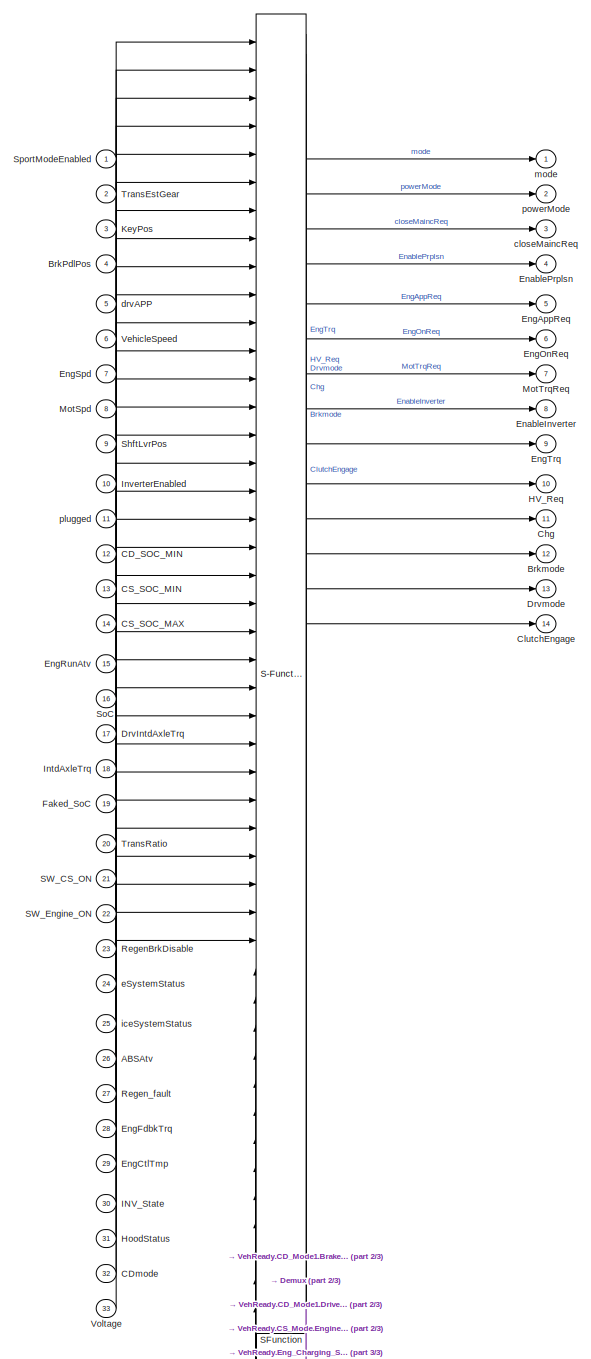
[diagram: Clutchless_HSC_ETE/HSC/Powertrain Manager/Torque Distribution/Supervisory  Control  Logic - part 1/3, full width, top band]
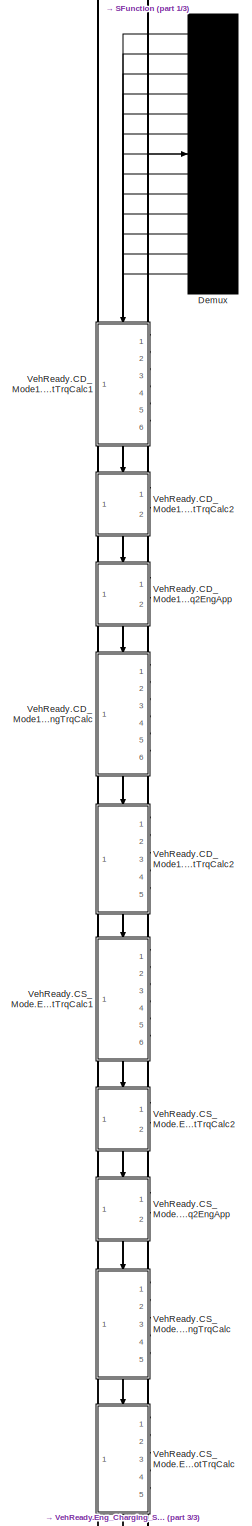
[diagram: Clutchless_HSC_ETE/HSC/Powertrain Manager/Torque Distribution/Supervisory  Control  Logic - part 2/3, bottom center region]
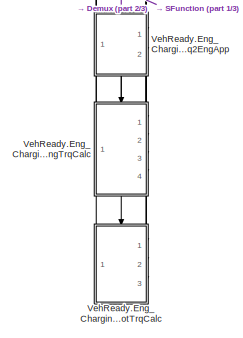
[diagram: Clutchless_HSC_ETE/HSC/Powertrain Manager/Torque Distribution/Supervisory  Control  Logic - part 3/3, bottom center region]
BLOCK [SubSystem] Clutchless_HSC_ETE/HSC/Powertrain Manager/Torque Distribution/Supervisory  Control  Logic
  ErrorFcn = Stateflow.Translate.translate
  PermitHierarchicalResolution = ExplicitOnly
  Ports = [33, 14]
  RequestExecContextInheritance = off
  SFBlockType = Chart
  TreatAsAtomicUnit = on
  Variant = off
BLOCK [Demux] Clutchless_HSC_ETE/HSC/Powertrain Manager/Torque Distribution/Supervisory  Control  Logic/ Demux 
  Outputs = 13
  Ports = [1, 13]
BLOCK [S-Function] Clutchless_HSC_ETE/HSC/Powertrain Manager/Torque Distribution/Supervisory  Control  Logic/ SFunction 
  EnableBusSupport = on
  FunctionName = sf_sfun
  PortCounts = [46 65]
  Ports = [46, 65]
  SFcnIsStateOwnerBlock = off
  SFunctionDeploymentMode = off
  Tag = Stateflow S-Function Clutchless_P2_Parallel_ETE 45
BLOCK [Inport] Clutchless_HSC_ETE/HSC/Powertrain Manager/Torque Distribution/Supervisory  Control  Logic/ABSAtv
  IconDisplay = Port number
  Port = 26
BLOCK [Inport] Clutchless_HSC_ETE/HSC/Powertrain Manager/Torque Distribution/Supervisory  Control  Logic/BrkPdlPos
  IconDisplay = Port number
  Port = 4
BLOCK [Outport] Clutchless_HSC_ETE/HSC/Powertrain Manager/Torque Distribution/Supervisory  Control  Logic/Brkmode
  IconDisplay = Port number
  Port = 12
BLOCK [Inport] Clutchless_HSC_ETE/HSC/Powertrain Manager/Torque Distribution/Supervisory  Control  Logic/CD_SOC_MIN
  IconDisplay = Port number
  Port = 12
BLOCK [Inport] Clutchless_HSC_ETE/HSC/Powertrain Manager/Torque Distribution/Supervisory  Control  Logic/CDmode
  IconDisplay = Port number
  Port = 32
BLOCK [Inport] Clutchless_HSC_ETE/HSC/Powertrain Manager/Torque Distribution/Supervisory  Control  Logic/CS_SOC_MAX
  IconDisplay = Port number
  Port = 14
BLOCK [Inport] Clutchless_HSC_ETE/HSC/Powertrain Manager/Torque Distribution/Supervisory  Control  Logic/CS_SOC_MIN
  IconDisplay = Port number
  Port = 13
BLOCK [Outport] Clutchless_HSC_ETE/HSC/Powertrain Manager/Torque Distribution/Supervisory  Control  Logic/Chg
  IconDisplay = Port number
  Port = 11
BLOCK [Outport] Clutchless_HSC_ETE/HSC/Powertrain Manager/Torque Distribution/Supervisory  Control  Logic/ClutchEngage
  IconDisplay = Port number
  Port = 14
BLOCK [Inport] Clutchless_HSC_ETE/HSC/Powertrain Manager/Torque Distribution/Supervisory  Control  Logic/DrvIntdAxleTrq
  IconDisplay = Port number
  Port = 17
BLOCK [Outport] Clutchless_HSC_ETE/HSC/Powertrain Manager/Torque Distribution/Supervisory  Control  Logic/Drvmode
  IconDisplay = Port number
  Port = 13
BLOCK [Outport] Clutchless_HSC_ETE/HSC/Powertrain Manager/Torque Distribution/Supervisory  Control  Logic/EnableInverter
  IconDisplay = Port number
  Port = 8
BLOCK [Outport] Clutchless_HSC_ETE/HSC/Powertrain Manager/Torque Distribution/Supervisory  Control  Logic/EnablePrplsn
  IconDisplay = Port number
  Port = 4
BLOCK [Outport] Clutchless_HSC_ETE/HSC/Powertrain Manager/Torque Distribution/Supervisory  Control  Logic/EngAppReq
  IconDisplay = Port number
  Port = 5
BLOCK [Inport] Clutchless_HSC_ETE/HSC/Powertrain Manager/Torque Distribution/Supervisory  Control  Logic/EngCtlTmp
  IconDisplay = Port number
  Port = 29
BLOCK [Inport] Clutchless_HSC_ETE/HSC/Powertrain Manager/Torque Distribution/Supervisory  Control  Logic/EngFdbkTrq
  IconDisplay = Port number
  Port = 28
BLOCK [Outport] Clutchless_HSC_ETE/HSC/Powertrain Manager/Torque Distribution/Supervisory  Control  Logic/EngOnReq
  IconDisplay = Port number
  Port = 6
BLOCK [Inport] Clutchless_HSC_ETE/HSC/Powertrain Manager/Torque Distribution/Supervisory  Control  Logic/EngRunAtv
  IconDisplay = Port number
  Port = 15
BLOCK [Inport] Clutchless_HSC_ETE/HSC/Powertrain Manager/Torque Distribution/Supervisory  Control  Logic/EngSpd
  IconDisplay = Port number
  Port = 7
BLOCK [Outport] Clutchless_HSC_ETE/HSC/Powertrain Manager/Torque Distribution/Supervisory  Control  Logic/EngTrq
  IconDisplay = Port number
  Port = 9
BLOCK [Inport] Clutchless_HSC_ETE/HSC/Powertrain Manager/Torque Distribution/Supervisory  Control  Logic/Faked_SoC
  IconDisplay = Port number
  Port = 19
BLOCK [Outport] Clutchless_HSC_ETE/HSC/Powertrain Manager/Torque Distribution/Supervisory  Control  Logic/HV_Req
  IconDisplay = Port number
  Port = 10
BLOCK [Inport] Clutchless_HSC_ETE/HSC/Powertrain Manager/Torque Distribution/Supervisory  Control  Logic/HoodStatus
  IconDisplay = Port number
  Port = 31
BLOCK [Inport] Clutchless_HSC_ETE/HSC/Powertrain Manager/Torque Distribution/Supervisory  Control  Logic/INV_State
  IconDisplay = Port number
  Port = 30
BLOCK [Inport] Clutchless_HSC_ETE/HSC/Powertrain Manager/Torque Distribution/Supervisory  Control  Logic/IntdAxleTrq
  IconDisplay = Port number
  Port = 18
BLOCK [Inport] Clutchless_HSC_ETE/HSC/Powertrain Manager/Torque Distribution/Supervisory  Control  Logic/InverterEnabled
  IconDisplay = Port number
  Port = 10
BLOCK [Inport] Clutchless_HSC_ETE/HSC/Powertrain Manager/Torque Distribution/Supervisory  Control  Logic/KeyPos
  IconDisplay = Port number
  Port = 3
BLOCK [Inport] Clutchless_HSC_ETE/HSC/Powertrain Manager/Torque Distribution/Supervisory  Control  Logic/MotSpd
  IconDisplay = Port number
  Port = 8
BLOCK [Outport] Clutchless_HSC_ETE/HSC/Powertrain Manager/Torque Distribution/Supervisory  Control  Logic/MotTrqReq
  IconDisplay = Port number
  Port = 7
BLOCK [Inport] Clutchless_HSC_ETE/HSC/Powertrain Manager/Torque Distribution/Supervisory  Control  Logic/RegenBrkDisable
  IconDisplay = Port number
  Port = 23
BLOCK [Inport] Clutchless_HSC_ETE/HSC/Powertrain Manager/Torque Distribution/Supervisory  Control  Logic/Regen_fault
  IconDisplay = Port number
  Port = 27
BLOCK [Inport] Clutchless_HSC_ETE/HSC/Powertrain Manager/Torque Distribution/Supervisory  Control  Logic/SW_CS_ON
  IconDisplay = Port number
  Port = 21
BLOCK [Inport] Clutchless_HSC_ETE/HSC/Powertrain Manager/Torque Distribution/Supervisory  Control  Logic/SW_Engine_ON
  IconDisplay = Port number
  Port = 22
BLOCK [Inport] Clutchless_HSC_ETE/HSC/Powertrain Manager/Torque Distribution/Supervisory  Control  Logic/ShftLvrPos
  IconDisplay = Port number
  Port = 9
BLOCK [Inport] Clutchless_HSC_ETE/HSC/Powertrain Manager/Torque Distribution/Supervisory  Control  Logic/SoC
  IconDisplay = Port number
  Port = 16
BLOCK [Inport] Clutchless_HSC_ETE/HSC/Powertrain Manager/Torque Distribution/Supervisory  Control  Logic/SportModeEnabled
  IconDisplay = Port number
BLOCK [Inport] Clutchless_HSC_ETE/HSC/Powertrain Manager/Torque Distribution/Supervisory  Control  Logic/TransEstGear
  IconDisplay = Port number
  Port = 2
BLOCK [Inport] Clutchless_HSC_ETE/HSC/Powertrain Manager/Torque Distribution/Supervisory  Control  Logic/TransRatio
  IconDisplay = Port number
  Port = 20
BLOCK [SubSystem] Clutchless_HSC_ETE/HSC/Powertrain Manager/Torque Distribution/Supervisory  Control  Logic/VehReady.CD_Mode1.Brake_mode.MotTrqCalc1
  Ports = [6, 1, 0, 1]
  PreDeleteFcn = Stateflow.SLINSF.SimulinkMan.removePreDeleteFcn
  RequestExecContextInheritance = off
  UndoDeleteFcn = Stateflow.SLINSF.SimulinkMan.restorePreDeleteFcn
  Variant = off
BLOCK [Gain] Clutchless_HSC_ETE/HSC/Powertrain Manager/Torque Distribution/Supervisory  Control  Logic/VehReady.CD_Mode1.Brake_mode.MotTrqCalc1/% to 1 
  Gain = 1/100
  OutDataTypeStr = Inherit: Inherit via internal rule
  ParamDataTypeStr = Inherit: Inherit via internal rule
  SaturateOnIntegerOverflow = off
BLOCK [Inport] Clutchless_HSC_ETE/HSC/Powertrain Manager/Torque Distribution/Supervisory  Control  Logic/VehReady.CD_Mode1.Brake_mode.MotTrqCalc1/BPP
  IconDisplay = Port number
BLOCK [Constant] Clutchless_HSC_ETE/HSC/Powertrain Manager/Torque Distribution/Supervisory  Control  Logic/VehReady.CD_Mode1.Brake_mode.MotTrqCalc1/Constant
  Value = 0
BLOCK [Constant] Clutchless_HSC_ETE/HSC/Powertrain Manager/Torque Distribution/Supervisory  Control  Logic/VehReady.CD_Mode1.Brake_mode.MotTrqCalc1/Constant1
  Value = 0
BLOCK [Constant] Clutchless_HSC_ETE/HSC/Powertrain Manager/Torque Distribution/Supervisory  Control  Logic/VehReady.CD_Mode1.Brake_mode.MotTrqCalc1/Constant2
  Value = fd.plant.init.ratio
BLOCK [Product] Clutchless_HSC_ETE/HSC/Powertrain Manager/Torque Distribution/Supervisory  Control  Logic/VehReady.CD_Mode1.Brake_mode.MotTrqCalc1/Divide
  InputSameDT = off
  Inputs = ***
  OutDataTypeStr = Inherit: Inherit via internal rule
  Ports = [3, 1]
  RndMeth = Floor
  SaturateOnIntegerOverflow = off
BLOCK [Product] Clutchless_HSC_ETE/HSC/Powertrain Manager/Torque Distribution/Supervisory  Control  Logic/VehReady.CD_Mode1.Brake_mode.MotTrqCalc1/Divide2
  InputSameDT = off
  Inputs = ***
  OutDataTypeStr = Inherit: Inherit via internal rule
  Ports = [3, 1]
  RndMeth = Floor
  SaturateOnIntegerOverflow = off
BLOCK [From] Clutchless_HSC_ETE/HSC/Powertrain Manager/Torque Distribution/Supervisory  Control  Logic/VehReady.CD_Mode1.Brake_mode.MotTrqCalc1/From
  GotoTag = TrqCalc
BLOCK [From] Clutchless_HSC_ETE/HSC/Powertrain Manager/Torque Distribution/Supervisory  Control  Logic/VehReady.CD_Mode1.Brake_mode.MotTrqCalc1/From1
  GotoTag = TrqCalc
BLOCK [From] Clutchless_HSC_ETE/HSC/Powertrain Manager/Torque Distribution/Supervisory  Control  Logic/VehReady.CD_Mode1.Brake_mode.MotTrqCalc1/From2
  GotoTag = TrqCalc
BLOCK [Goto] Clutchless_HSC_ETE/HSC/Powertrain Manager/Torque Distribution/Supervisory  Control  Logic/VehReady.CD_Mode1.Brake_mode.MotTrqCalc1/Goto2
  GotoTag = TrqCalc
BLOCK [MultiPortSwitch] Clutchless_HSC_ETE/HSC/Powertrain Manager/Torque Distribution/Supervisory  Control  Logic/VehReady.CD_Mode1.Brake_mode.MotTrqCalc1/Index Vector
  DataPortOrder = Zero-based contiguous
  InputSameDT = off
  Inputs = 5
  Ports = [6, 1]
  SaturateOnIntegerOverflow = off
  zeroidx = on
BLOCK [Inport] Clutchless_HSC_ETE/HSC/Powertrain Manager/Torque Distribution/Supervisory  Control  Logic/VehReady.CD_Mode1.Brake_mode.MotTrqCalc1/IntdAxleTrq
  IconDisplay = Port number
  Port = 6
BLOCK [MinMax] Clutchless_HSC_ETE/HSC/Powertrain Manager/Torque Distribution/Supervisory  Control  Logic/VehReady.CD_Mode1.Brake_mode.MotTrqCalc1/MinMax
  Function = max
  InputSameDT = off
  Inputs = 2
  Ports = [2, 1]
  SaturateOnIntegerOverflow = off
BLOCK [Inport] Clutchless_HSC_ETE/HSC/Powertrain Manager/Torque Distribution/Supervisory  Control  Logic/VehReady.CD_Mode1.Brake_mode.MotTrqCalc1/MotSpeed
  IconDisplay = Port number
  Port = 4
BLOCK [Lookup] Clutchless_HSC_ETE/HSC/Powertrain Manager/Torque Distribution/Supervisory  Control  Logic/VehReady.CD_Mode1.Brake_mode.MotTrqCalc1/Peak trq max - Regen
  InputValues = mot.plant.init.regen.trq_max.idx1_spd
  LookUpMeth = Interpolation-Use End Values
  Table = mot.plant.init.regen.trq_max.map
BLOCK [Lookup_n-D] Clutchless_HSC_ETE/HSC/Powertrain Manager/Torque Distribution/Supervisory  Control  Logic/VehReady.CD_Mode1.Brake_mode.MotTrqCalc1/Regen Trq Derating2
  BreakpointsForDimension1 = [0 10 11 200]
  ExtrapMethod = Clip
  InternalRulePriority = Speed
  NumberOfTableDimensions = 1
  Ports = [1, 1]
  RndMeth = Simplest
  Table = [0 0.5 1 1]
  UseLastTableValue = on
BLOCK [Constant] Clutchless_HSC_ETE/HSC/Powertrain Manager/Torque Distribution/Supervisory  Control  Logic/VehReady.CD_Mode1.Brake_mode.MotTrqCalc1/Regen_derat_overri
  Value = 0
BLOCK [Constant] Clutchless_HSC_ETE/HSC/Powertrain Manager/Torque Distribution/Supervisory  Control  Logic/VehReady.CD_Mode1.Brake_mode.MotTrqCalc1/Regen_derat_value
  Value = 0.5
BLOCK [Inport] Clutchless_HSC_ETE/HSC/Powertrain Manager/Torque Distribution/Supervisory  Control  Logic/VehReady.CD_Mode1.Brake_mode.MotTrqCalc1/ShftLvrPos
  IconDisplay = Port number
  Port = 3
BLOCK [Switch] Clutchless_HSC_ETE/HSC/Powertrain Manager/Torque Distribution/Supervisory  Control  Logic/VehReady.CD_Mode1.Brake_mode.MotTrqCalc1/Switch
  Criteria = u2 > Threshold
  InputSameDT = off
  SaturateOnIntegerOverflow = off
BLOCK [Outport] Clutchless_HSC_ETE/HSC/Powertrain Manager/Torque Distribution/Supervisory  Control  Logic/VehReady.CD_Mode1.Brake_mode.MotTrqCalc1/T
  IconDisplay = Port number
BLOCK [Inport] Clutchless_HSC_ETE/HSC/Powertrain Manager/Torque Distribution/Supervisory  Control  Logic/VehReady.CD_Mode1.Brake_mode.MotTrqCalc1/TransRatio
  IconDisplay = Port number
  Port = 5
BLOCK [Inport] Clutchless_HSC_ETE/HSC/Powertrain Manager/Torque Distribution/Supervisory  Control  Logic/VehReady.CD_Mode1.Brake_mode.MotTrqCalc1/VehSpd
  IconDisplay = Port number
  Port = 2
BLOCK [TriggerPort] Clutchless_HSC_ETE/HSC/Powertrain Manager/Torque Distribution/Supervisory  Control  Logic/VehReady.CD_Mode1.Brake_mode.MotTrqCalc1/f
  CopyFcn = Stateflow.SLINSF.SimulinkMan.removeBlockPreDeleteFcn
  Ports = []
  PreDeleteFcn = Stateflow.SLINSF.SimulinkMan.unsafePredeleteFcn
  StatesWhenEnabling = held
  TriggerType = function-call
  VariantControl = Variant
BLOCK [Saturate] Clutchless_HSC_ETE/HSC/Powertrain Manager/Torque Distribution/Supervisory  Control  Logic/VehReady.CD_Mode1.Brake_mode.MotTrqCalc1/limit to -200Nm
  InputPortMap = u0
  LowerLimit = -200
  Ports = [1, 1]
  UpperLimit = 0
BLOCK [SubSystem] Clutchless_HSC_ETE/HSC/Powertrain Manager/Torque Distribution/Supervisory  Control  Logic/VehReady.CD_Mode1.Brake_mode.MotTrqCalc2
  Ports = [2, 1, 0, 1]
  PreDeleteFcn = Stateflow.SLINSF.SimulinkMan.removePreDeleteFcn
  RequestExecContextInheritance = off
  UndoDeleteFcn = Stateflow.SLINSF.SimulinkMan.restorePreDeleteFcn
  Variant = off
BLOCK [Constant] Clutchless_HSC_ETE/HSC/Powertrain Manager/Torque Distribution/Supervisory  Control  Logic/VehReady.CD_Mode1.Brake_mode.MotTrqCalc2/Constant
  Value = 0
BLOCK [Constant] Clutchless_HSC_ETE/HSC/Powertrain Manager/Torque Distribution/Supervisory  Control  Logic/VehReady.CD_Mode1.Brake_mode.MotTrqCalc2/Constant1
  Value = 0
BLOCK [Constant] Clutchless_HSC_ETE/HSC/Powertrain Manager/Torque Distribution/Supervisory  Control  Logic/VehReady.CD_Mode1.Brake_mode.MotTrqCalc2/Constant2
  Value = fd.plant.init.ratio
BLOCK [Product] Clutchless_HSC_ETE/HSC/Powertrain Manager/Torque Distribution/Supervisory  Control  Logic/VehReady.CD_Mode1.Brake_mode.MotTrqCalc2/Divide2
  InputSameDT = off
  Inputs = ***
  OutDataTypeStr = Inherit: Inherit via internal rule
  Ports = [3, 1]
  RndMeth = Floor
  SaturateOnIntegerOverflow = off
BLOCK [From] Clutchless_HSC_ETE/HSC/Powertrain Manager/Torque Distribution/Supervisory  Control  Logic/VehReady.CD_Mode1.Brake_mode.MotTrqCalc2/From
  GotoTag = TrqCalc
BLOCK [From] Clutchless_HSC_ETE/HSC/Powertrain Manager/Torque Distribution/Supervisory  Control  Logic/VehReady.CD_Mode1.Brake_mode.MotTrqCalc2/From1
  GotoTag = TrqCalc
BLOCK [From] Clutchless_HSC_ETE/HSC/Powertrain Manager/Torque Distribution/Supervisory  Control  Logic/VehReady.CD_Mode1.Brake_mode.MotTrqCalc2/From2
  GotoTag = TrqCalc
BLOCK [Goto] Clutchless_HSC_ETE/HSC/Powertrain Manager/Torque Distribution/Supervisory  Control  Logic/VehReady.CD_Mode1.Brake_mode.MotTrqCalc2/Goto2
  GotoTag = TrqCalc
BLOCK [Constant] Clutchless_HSC_ETE/HSC/Powertrain Manager/Torque Distribution/Supervisory  Control  Logic/VehReady.CD_Mode1.Brake_mode.MotTrqCalc2/Idle_torque_Regen
  Value = 0
BLOCK [MultiPortSwitch] Clutchless_HSC_ETE/HSC/Powertrain Manager/Torque Distribution/Supervisory  Control  Logic/VehReady.CD_Mode1.Brake_mode.MotTrqCalc2/Index Vector
  DataPortOrder = Zero-based contiguous
  InputSameDT = off
  Inputs = 5
  Ports = [6, 1]
  SaturateOnIntegerOverflow = off
  zeroidx = on
BLOCK [Inport] Clutchless_HSC_ETE/HSC/Powertrain Manager/Torque Distribution/Supervisory  Control  Logic/VehReady.CD_Mode1.Brake_mode.MotTrqCalc2/ShftLvrPos
  IconDisplay = Port number
BLOCK [Outport] Clutchless_HSC_ETE/HSC/Powertrain Manager/Torque Distribution/Supervisory  Control  Logic/VehReady.CD_Mode1.Brake_mode.MotTrqCalc2/T
  IconDisplay = Port number
BLOCK [Inport] Clutchless_HSC_ETE/HSC/Powertrain Manager/Torque Distribution/Supervisory  Control  Logic/VehReady.CD_Mode1.Brake_mode.MotTrqCalc2/TransRatio
  IconDisplay = Port number
  Port = 2
BLOCK [TriggerPort] Clutchless_HSC_ETE/HSC/Powertrain Manager/Torque Distribution/Supervisory  Control  Logic/VehReady.CD_Mode1.Brake_mode.MotTrqCalc2/f
  CopyFcn = Stateflow.SLINSF.SimulinkMan.removeBlockPreDeleteFcn
  Ports = []
  PreDeleteFcn = Stateflow.SLINSF.SimulinkMan.unsafePredeleteFcn
  StatesWhenEnabling = held
  TriggerType = function-call
  VariantControl = Variant
BLOCK [SubSystem] Clutchless_HSC_ETE/HSC/Powertrain Manager/Torque Distribution/Supervisory  Control  Logic/VehReady.CD_Mode1.Drive_mode.EngTrq2EngApp
  Ports = [2, 1, 0, 1]
  PreDeleteFcn = Stateflow.SLINSF.SimulinkMan.removePreDeleteFcn
  RequestExecContextInheritance = off
  UndoDeleteFcn = Stateflow.SLINSF.SimulinkMan.restorePreDeleteFcn
  Variant = off
BLOCK [Saturate] Clutchless_HSC_ETE/HSC/Powertrain Manager/Torque Distribution/Supervisory  Control  Logic/VehReady.CD_Mode1.Drive_mode.EngTrq2EngApp/0-100%
  InputPortMap = u0
  LowerLimit = 0
  Ports = [1, 1]
  UpperLimit = 100
BLOCK [Outport] Clutchless_HSC_ETE/HSC/Powertrain Manager/Torque Distribution/Supervisory  Control  Logic/VehReady.CD_Mode1.Drive_mode.EngTrq2EngApp/APP
  IconDisplay = Port number
BLOCK [Reference] Clutchless_HSC_ETE/HSC/Powertrain Manager/Torque Distribution/Supervisory  Control  Logic/VehReady.CD_Mode1.Drive_mode.EngTrq2EngApp/Compare To Constant  REF=simulink/Logic and Bit
Operations/Compare
To Constant
  Ports = [1, 1]
  SourceBlock = simulink/Logic and Bit\nOperations/Compare\nTo Constant
  SourceProductBaseCode = SL
  SourceProductName = Simulink
  SourceType = Compare To Constant
BLOCK [Constant] Clutchless_HSC_ETE/HSC/Powertrain Manager/Torque Distribution/Supervisory  Control  Logic/VehReady.CD_Mode1.Drive_mode.EngTrq2EngApp/Constant1
  Value = eps
BLOCK [Constant] Clutchless_HSC_ETE/HSC/Powertrain Manager/Torque Distribution/Supervisory  Control  Logic/VehReady.CD_Mode1.Drive_mode.EngTrq2EngApp/Constant5
  Value = fd.plant.init.ratio
BLOCK [Product] Clutchless_HSC_ETE/HSC/Powertrain Manager/Torque Distribution/Supervisory  Control  Logic/VehReady.CD_Mode1.Drive_mode.EngTrq2EngApp/Divide1
  InputSameDT = off
  Inputs = *//
  OutDataTypeStr = Inherit: Inherit via internal rule
  Ports = [3, 1]
  RndMeth = Floor
  SaturateOnIntegerOverflow = off
BLOCK [Lookup_n-D] Clutchless_HSC_ETE/HSC/Powertrain Manager/Torque Distribution/Supervisory  Control  Logic/VehReady.CD_Mode1.Drive_mode.EngTrq2EngApp/EngTrq2EngAPP
  BreakpointsForDimension1 = [0:1:230]
  ExtrapMethod = Clip
  InternalRulePriority = Speed
  NumberOfTableDimensions = 1
  Ports = [1, 1]
  RndMeth = Simplest
  Table = [-0.950562242591810	-0.861179388327002	-0.757792747831397	-0.640901927898975	-0.511000095283862	-0.368573976700328	-0.214103858822793	-0.0480635882858183	0.129079428315885	0.316864224427463	0.514836273533913	0.722547489160089	0.939556224870697	1.16542727427030	1.39973187100331	1.64204768875400	1.89195884124648	2.14905588224475	2.41293580555262	2.68320204501379	2.95946447451180	3.24133940797003	3.5...<+3446ch>  <repeated x3 — deduplicated; at blocks: EngTrq2EngAPP>
  UseLastTableValue = on
BLOCK [Switch] Clutchless_HSC_ETE/HSC/Powertrain Manager/Torque Distribution/Supervisory  Control  Logic/VehReady.CD_Mode1.Drive_mode.EngTrq2EngApp/Switch
  Criteria = u2 > Threshold
  InputSameDT = off
  SaturateOnIntegerOverflow = off
BLOCK [Inport] Clutchless_HSC_ETE/HSC/Powertrain Manager/Torque Distribution/Supervisory  Control  Logic/VehReady.CD_Mode1.Drive_mode.EngTrq2EngApp/TransRatio
  IconDisplay = Port number
  Port = 2
BLOCK [Inport] Clutchless_HSC_ETE/HSC/Powertrain Manager/Torque Distribution/Supervisory  Control  Logic/VehReady.CD_Mode1.Drive_mode.EngTrq2EngApp/Trq
  IconDisplay = Port number
BLOCK [TriggerPort] Clutchless_HSC_ETE/HSC/Powertrain Manager/Torque Distribution/Supervisory  Control  Logic/VehReady.CD_Mode1.Drive_mode.EngTrq2EngApp/f
  CopyFcn = Stateflow.SLINSF.SimulinkMan.removeBlockPreDeleteFcn
  Ports = []
  PreDeleteFcn = Stateflow.SLINSF.SimulinkMan.unsafePredeleteFcn
  StatesWhenEnabling = held
  TriggerType = function-call
  VariantControl = Variant
BLOCK [SubSystem] Clutchless_HSC_ETE/HSC/Powertrain Manager/Torque Distribution/Supervisory  Control  Logic/VehReady.CD_Mode1.Drive_mode.EngTrqCalc
  Ports = [6, 1, 0, 1]
  PreDeleteFcn = Stateflow.SLINSF.SimulinkMan.removePreDeleteFcn
  RequestExecContextInheritance = off
  UndoDeleteFcn = Stateflow.SLINSF.SimulinkMan.restorePreDeleteFcn
  Variant = off
BLOCK [Inport] Clutchless_HSC_ETE/HSC/Powertrain Manager/Torque Distribution/Supervisory  Control  Logic/VehReady.CD_Mode1.Drive_mode.EngTrqCalc/APP
  IconDisplay = Port number
  Port = 2
BLOCK [Lookup_n-D] Clutchless_HSC_ETE/HSC/Powertrain Manager/Torque Distribution/Supervisory  Control  Logic/VehReady.CD_Mode1.Drive_mode.EngTrqCalc/APP Derating
  BreakpointsForDimension1 = [0 1 2 3 ]
  ExtrapMethod = Clip
  InternalRulePriority = Speed
  NumberOfTableDimensions = 1
  Ports = [1, 1]
  RndMeth = Simplest
  Table = [0 0 0.1 1]
  UseLastTableValue = on
BLOCK [Constant] Clutchless_HSC_ETE/HSC/Powertrain Manager/Torque Distribution/Supervisory  Control  Logic/VehReady.CD_Mode1.Drive_mode.EngTrqCalc/Constant
  Value = 0
BLOCK [Constant] Clutchless_HSC_ETE/HSC/Powertrain Manager/Torque Distribution/Supervisory  Control  Logic/VehReady.CD_Mode1.Drive_mode.EngTrqCalc/Constant1
  Value = 0
BLOCK [Constant] Clutchless_HSC_ETE/HSC/Powertrain Manager/Torque Distribution/Supervisory  Control  Logic/VehReady.CD_Mode1.Drive_mode.EngTrqCalc/Constant3
  Value = fd.plant.init.ratio
BLOCK [Product] Clutchless_HSC_ETE/HSC/Powertrain Manager/Torque Distribution/Supervisory  Control  Logic/VehReady.CD_Mode1.Drive_mode.EngTrqCalc/Divide
  InputSameDT = off
  Inputs = **
  OutDataTypeStr = Inherit: Inherit via internal rule
  Ports = [2, 1]
  RndMeth = Floor
  SaturateOnIntegerOverflow = off
BLOCK [Product] Clutchless_HSC_ETE/HSC/Powertrain Manager/Torque Distribution/Supervisory  Control  Logic/VehReady.CD_Mode1.Drive_mode.EngTrqCalc/Divide2
  InputSameDT = off
  Inputs = ***
  OutDataTypeStr = Inherit: Inherit via internal rule
  Ports = [3, 1]
  RndMeth = Floor
  SaturateOnIntegerOverflow = off
BLOCK [Inport] Clutchless_HSC_ETE/HSC/Powertrain Manager/Torque Distribution/Supervisory  Control  Logic/VehReady.CD_Mode1.Drive_mode.EngTrqCalc/DrvIntdAxleTrq
  IconDisplay = Port number
  Port = 5
BLOCK [Lookup_n-D] Clutchless_HSC_ETE/HSC/Powertrain Manager/Torque Distribution/Supervisory  Control  Logic/VehReady.CD_Mode1.Drive_mode.EngTrqCalc/EngOptmTrq_Scaled_30%
  BreakpointsForDimension1 = [1550 1650 1850 2050 2350 2650 2950 3150 3250 3350]
  ExtrapMethod = Clip
  InternalRulePriority = Speed
  NumberOfTableDimensions = 1
  Ports = [1, 1]
  RndMeth = Simplest
  Table = [46.2063   52.0871   54.1987   55.8983   54.8577   54.0526   53.4113   54.5674   57.2958   59.8613]
  UseLastTableValue = on
BLOCK [Inport] Clutchless_HSC_ETE/HSC/Powertrain Manager/Torque Distribution/Supervisory  Control  Logic/VehReady.CD_Mode1.Drive_mode.EngTrqCalc/EngSpeed
  IconDisplay = Port number
BLOCK [From] Clutchless_HSC_ETE/HSC/Powertrain Manager/Torque Distribution/Supervisory  Control  Logic/VehReady.CD_Mode1.Drive_mode.EngTrqCalc/From
  GotoTag = TrqCalc
BLOCK [From] Clutchless_HSC_ETE/HSC/Powertrain Manager/Torque Distribution/Supervisory  Control  Logic/VehReady.CD_Mode1.Drive_mode.EngTrqCalc/From1
  GotoTag = TrqCalc
BLOCK [From] Clutchless_HSC_ETE/HSC/Powertrain Manager/Torque Distribution/Supervisory  Control  Logic/VehReady.CD_Mode1.Drive_mode.EngTrqCalc/From2
  GotoTag = TrqCalc
BLOCK [Goto] Clutchless_HSC_ETE/HSC/Powertrain Manager/Torque Distribution/Supervisory  Control  Logic/VehReady.CD_Mode1.Drive_mode.EngTrqCalc/Goto
  GotoTag = TrqCalc
BLOCK [MinMax] Clutchless_HSC_ETE/HSC/Powertrain Manager/Torque Distribution/Supervisory  Control  Logic/VehReady.CD_Mode1.Drive_mode.EngTrqCalc/MinMax
  InputSameDT = off
  Inputs = 2
  Ports = [2, 1]
  SaturateOnIntegerOverflow = off
BLOCK [Inport] Clutchless_HSC_ETE/HSC/Powertrain Manager/Torque Distribution/Supervisory  Control  Logic/VehReady.CD_Mode1.Drive_mode.EngTrqCalc/ShftLvrPos
  IconDisplay = Port number
  Port = 4
BLOCK [MultiPortSwitch] Clutchless_HSC_ETE/HSC/Powertrain Manager/Torque Distribution/Supervisory  Control  Logic/VehReady.CD_Mode1.Drive_mode.EngTrqCalc/Shifter
  DataPortOrder = Zero-based contiguous
  InputSameDT = off
  Inputs = 5
  Ports = [6, 1]
  SaturateOnIntegerOverflow = off
  zeroidx = on
BLOCK [Terminator] Clutchless_HSC_ETE/HSC/Powertrain Manager/Torque Distribution/Supervisory  Control  Logic/VehReady.CD_Mode1.Drive_mode.EngTrqCalc/Terminator
BLOCK [Inport] Clutchless_HSC_ETE/HSC/Powertrain Manager/Torque Distribution/Supervisory  Control  Logic/VehReady.CD_Mode1.Drive_mode.EngTrqCalc/TransRatio
  IconDisplay = Port number
  Port = 6
BLOCK [Outport] Clutchless_HSC_ETE/HSC/Powertrain Manager/Torque Distribution/Supervisory  Control  Logic/VehReady.CD_Mode1.Drive_mode.EngTrqCalc/Trq
  IconDisplay = Port number
BLOCK [Inport] Clutchless_HSC_ETE/HSC/Powertrain Manager/Torque Distribution/Supervisory  Control  Logic/VehReady.CD_Mode1.Drive_mode.EngTrqCalc/VehSpd
  IconDisplay = Port number
  Port = 3
BLOCK [Lookup_n-D] Clutchless_HSC_ETE/HSC/Powertrain Manager/Torque Distribution/Supervisory  Control  Logic/VehReady.CD_Mode1.Drive_mode.EngTrqCalc/VehSpd Derating
  BreakpointsForDimension1 = [0 5 10 20]
  ExtrapMethod = Clip
  InternalRulePriority = Speed
  NumberOfTableDimensions = 1
  Ports = [1, 1]
  RndMeth = Simplest
  Table = [0 0.2 0.8 1]
  UseLastTableValue = on
BLOCK [TriggerPort] Clutchless_HSC_ETE/HSC/Powertrain Manager/Torque Distribution/Supervisory  Control  Logic/VehReady.CD_Mode1.Drive_mode.EngTrqCalc/f
  CopyFcn = Stateflow.SLINSF.SimulinkMan.removeBlockPreDeleteFcn
  Ports = []
  PreDeleteFcn = Stateflow.SLINSF.SimulinkMan.unsafePredeleteFcn
  StatesWhenEnabling = held
  TriggerType = function-call
  VariantControl = Variant
BLOCK [SubSystem] Clutchless_HSC_ETE/HSC/Powertrain Manager/Torque Distribution/Supervisory  Control  Logic/VehReady.CD_Mode1.Drive_mode.MotTrqCalc2
  Ports = [5, 1, 0, 1]
  PreDeleteFcn = Stateflow.SLINSF.SimulinkMan.removePreDeleteFcn
  RequestExecContextInheritance = off
  UndoDeleteFcn = Stateflow.SLINSF.SimulinkMan.restorePreDeleteFcn
  Variant = off
BLOCK [Inport] Clutchless_HSC_ETE/HSC/Powertrain Manager/Torque Distribution/Supervisory  Control  Logic/VehReady.CD_Mode1.Drive_mode.MotTrqCalc2/APP
  IconDisplay = Port number
BLOCK [Constant] Clutchless_HSC_ETE/HSC/Powertrain Manager/Torque Distribution/Supervisory  Control  Logic/VehReady.CD_Mode1.Drive_mode.MotTrqCalc2/Constant
  Value = 0
BLOCK [Constant] Clutchless_HSC_ETE/HSC/Powertrain Manager/Torque Distribution/Supervisory  Control  Logic/VehReady.CD_Mode1.Drive_mode.MotTrqCalc2/Constant1
  Value = 0
BLOCK [Constant] Clutchless_HSC_ETE/HSC/Powertrain Manager/Torque Distribution/Supervisory  Control  Logic/VehReady.CD_Mode1.Drive_mode.MotTrqCalc2/Constant4
  Value = fd.plant.init.ratio
BLOCK [Product] Clutchless_HSC_ETE/HSC/Powertrain Manager/Torque Distribution/Supervisory  Control  Logic/VehReady.CD_Mode1.Drive_mode.MotTrqCalc2/Divide2
  InputSameDT = off
  Inputs = ***
  OutDataTypeStr = Inherit: Inherit via internal rule
  Ports = [3, 1]
  RndMeth = Floor
  SaturateOnIntegerOverflow = off
BLOCK [Inport] Clutchless_HSC_ETE/HSC/Powertrain Manager/Torque Distribution/Supervisory  Control  Logic/VehReady.CD_Mode1.Drive_mode.MotTrqCalc2/DrvIntdAxleTrq
  IconDisplay = Port number
  Port = 3
BLOCK [From] Clutchless_HSC_ETE/HSC/Powertrain Manager/Torque Distribution/Supervisory  Control  Logic/VehReady.CD_Mode1.Drive_mode.MotTrqCalc2/From
  GotoTag = TrqCalc
BLOCK [From] Clutchless_HSC_ETE/HSC/Powertrain Manager/Torque Distribution/Supervisory  Control  Logic/VehReady.CD_Mode1.Drive_mode.MotTrqCalc2/From1
  GotoTag = TrqCalc
BLOCK [From] Clutchless_HSC_ETE/HSC/Powertrain Manager/Torque Distribution/Supervisory  Control  Logic/VehReady.CD_Mode1.Drive_mode.MotTrqCalc2/From2
  GotoTag = TrqCalc
BLOCK [Goto] Clutchless_HSC_ETE/HSC/Powertrain Manager/Torque Distribution/Supervisory  Control  Logic/VehReady.CD_Mode1.Drive_mode.MotTrqCalc2/Goto1
  GotoTag = TrqCalc
BLOCK [MultiPortSwitch] Clutchless_HSC_ETE/HSC/Powertrain Manager/Torque Distribution/Supervisory  Control  Logic/VehReady.CD_Mode1.Drive_mode.MotTrqCalc2/Index Vector
  DataPortOrder = Zero-based contiguous
  InputSameDT = off
  Inputs = 5
  Ports = [6, 1]
  SaturateOnIntegerOverflow = off
  zeroidx = on
BLOCK [MinMax] Clutchless_HSC_ETE/HSC/Powertrain Manager/Torque Distribution/Supervisory  Control  Logic/VehReady.CD_Mode1.Drive_mode.MotTrqCalc2/MinMax
  InputSameDT = off
  Inputs = 2
  Ports = [2, 1]
  SaturateOnIntegerOverflow = off
BLOCK [Outport] Clutchless_HSC_ETE/HSC/Powertrain Manager/Torque Distribution/Supervisory  Control  Logic/VehReady.CD_Mode1.Drive_mode.MotTrqCalc2/MotTrq
  IconDisplay = Port number
BLOCK [Constant] Clutchless_HSC_ETE/HSC/Powertrain Manager/Torque Distribution/Supervisory  Control  Logic/VehReady.CD_Mode1.Drive_mode.MotTrqCalc2/No Torque
  Value = 0
BLOCK [Inport] Clutchless_HSC_ETE/HSC/Powertrain Manager/Torque Distribution/Supervisory  Control  Logic/VehReady.CD_Mode1.Drive_mode.MotTrqCalc2/ShftLvrPos
  IconDisplay = Port number
  Port = 2
BLOCK [Sum] Clutchless_HSC_ETE/HSC/Powertrain Manager/Torque Distribution/Supervisory  Control  Logic/VehReady.CD_Mode1.Drive_mode.MotTrqCalc2/Sum
  InputSameDT = off
  Inputs = +-
  OutDataTypeStr = Inherit: Inherit via internal rule
  Ports = [2, 1]
  SaturateOnIntegerOverflow = off
BLOCK [Switch] Clutchless_HSC_ETE/HSC/Powertrain Manager/Torque Distribution/Supervisory  Control  Logic/VehReady.CD_Mode1.Drive_mode.MotTrqCalc2/Switch
  Criteria = u2 > Threshold
  InputSameDT = off
  SaturateOnIntegerOverflow = off
BLOCK [Inport] Clutchless_HSC_ETE/HSC/Powertrain Manager/Torque Distribution/Supervisory  Control  Logic/VehReady.CD_Mode1.Drive_mode.MotTrqCalc2/TransRatio
  IconDisplay = Port number
  Port = 4
BLOCK [Inport] Clutchless_HSC_ETE/HSC/Powertrain Manager/Torque Distribution/Supervisory  Control  Logic/VehReady.CD_Mode1.Drive_mode.MotTrqCalc2/Trq
  IconDisplay = Port number
  Port = 5
BLOCK [Lookup_n-D] Clutchless_HSC_ETE/HSC/Powertrain Manager/Torque Distribution/Supervisory  Control  Logic/VehReady.CD_Mode1.Drive_mode.MotTrqCalc2/drvAPP2CmbTrq
  BreakpointsForDimension1 = [0,1,2,3,4,5,6,7,8,9,10,11,12,13,14,15,16,17,18,19,20,21,22,23,24,25,26,27,28,29,30,31,32,33,34,35,36,37,38,39,40,41,42,43,44,45,46,47,48,49,50,51,52,53,54,55,56,57,58,59,60,70,80,90,100]
  ExtrapMethod = Clip
  InternalRulePriority = Speed
  NumberOfTableDimensions = 1
  Ports = [1, 1]
  RndMeth = Simplest
  Table = [10.5,10.5,10.5,10.5,11,11,11.5,11.5,12,12,12,15,20,25,30,35,40,45,50,55,65,75,85,95,105,115,116,117,118,119,120,121,122,123,124,125,135,140,145,150,150,150,155,160,165,170,175,180,190,195,200,205,210,215,220,225,230,235,240,245,250,275,300,325,350]
  UseLastTableValue = on
BLOCK [TriggerPort] Clutchless_HSC_ETE/HSC/Powertrain Manager/Torque Distribution/Supervisory  Control  Logic/VehReady.CD_Mode1.Drive_mode.MotTrqCalc2/f
  CopyFcn = Stateflow.SLINSF.SimulinkMan.removeBlockPreDeleteFcn
  Ports = []
  PreDeleteFcn = Stateflow.SLINSF.SimulinkMan.unsafePredeleteFcn
  StatesWhenEnabling = held
  TriggerType = function-call
  VariantControl = Variant
BLOCK [SubSystem] Clutchless_HSC_ETE/HSC/Powertrain Manager/Torque Distribution/Supervisory  Control  Logic/VehReady.CS_Mode.Engine_Charge.Brake_mode1.MotTrqCalc1
  Ports = [6, 1, 0, 1]
  PreDeleteFcn = Stateflow.SLINSF.SimulinkMan.removePreDeleteFcn
  RequestExecContextInheritance = off
  UndoDeleteFcn = Stateflow.SLINSF.SimulinkMan.restorePreDeleteFcn
  Variant = off
BLOCK [Gain] Clutchless_HSC_ETE/HSC/Powertrain Manager/Torque Distribution/Supervisory  Control  Logic/VehReady.CS_Mode.Engine_Charge.Brake_mode1.MotTrqCalc1/% to 1 
  Gain = 1/100
  OutDataTypeStr = Inherit: Inherit via internal rule
  ParamDataTypeStr = Inherit: Inherit via internal rule
  SaturateOnIntegerOverflow = off
BLOCK [Inport] Clutchless_HSC_ETE/HSC/Powertrain Manager/Torque Distribution/Supervisory  Control  Logic/VehReady.CS_Mode.Engine_Charge.Brake_mode1.MotTrqCalc1/BPP
  IconDisplay = Port number
BLOCK [Constant] Clutchless_HSC_ETE/HSC/Powertrain Manager/Torque Distribution/Supervisory  Control  Logic/VehReady.CS_Mode.Engine_Charge.Brake_mode1.MotTrqCalc1/Constant
  Value = 0
BLOCK [Constant] Clutchless_HSC_ETE/HSC/Powertrain Manager/Torque Distribution/Supervisory  Control  Logic/VehReady.CS_Mode.Engine_Charge.Brake_mode1.MotTrqCalc1/Constant1
  Value = 0
BLOCK [Constant] Clutchless_HSC_ETE/HSC/Powertrain Manager/Torque Distribution/Supervisory  Control  Logic/VehReady.CS_Mode.Engine_Charge.Brake_mode1.MotTrqCalc1/Constant2
  Value = fd.plant.init.ratio
BLOCK [Product] Clutchless_HSC_ETE/HSC/Powertrain Manager/Torque Distribution/Supervisory  Control  Logic/VehReady.CS_Mode.Engine_Charge.Brake_mode1.MotTrqCalc1/Divide
  InputSameDT = off
  Inputs = ***
  OutDataTypeStr = Inherit: Inherit via internal rule
  Ports = [3, 1]
  RndMeth = Floor
  SaturateOnIntegerOverflow = off
BLOCK [Product] Clutchless_HSC_ETE/HSC/Powertrain Manager/Torque Distribution/Supervisory  Control  Logic/VehReady.CS_Mode.Engine_Charge.Brake_mode1.MotTrqCalc1/Divide2
  InputSameDT = off
  Inputs = ***
  OutDataTypeStr = Inherit: Inherit via internal rule
  Ports = [3, 1]
  RndMeth = Floor
  SaturateOnIntegerOverflow = off
BLOCK [From] Clutchless_HSC_ETE/HSC/Powertrain Manager/Torque Distribution/Supervisory  Control  Logic/VehReady.CS_Mode.Engine_Charge.Brake_mode1.MotTrqCalc1/From
  GotoTag = TrqCalc
BLOCK [From] Clutchless_HSC_ETE/HSC/Powertrain Manager/Torque Distribution/Supervisory  Control  Logic/VehReady.CS_Mode.Engine_Charge.Brake_mode1.MotTrqCalc1/From1
  GotoTag = TrqCalc
BLOCK [From] Clutchless_HSC_ETE/HSC/Powertrain Manager/Torque Distribution/Supervisory  Control  Logic/VehReady.CS_Mode.Engine_Charge.Brake_mode1.MotTrqCalc1/From2
  GotoTag = TrqCalc
BLOCK [Goto] Clutchless_HSC_ETE/HSC/Powertrain Manager/Torque Distribution/Supervisory  Control  Logic/VehReady.CS_Mode.Engine_Charge.Brake_mode1.MotTrqCalc1/Goto2
  GotoTag = TrqCalc
BLOCK [MultiPortSwitch] Clutchless_HSC_ETE/HSC/Powertrain Manager/Torque Distribution/Supervisory  Control  Logic/VehReady.CS_Mode.Engine_Charge.Brake_mode1.MotTrqCalc1/Index Vector
  DataPortOrder = Zero-based contiguous
  InputSameDT = off
  Inputs = 5
  Ports = [6, 1]
  SaturateOnIntegerOverflow = off
  zeroidx = on
BLOCK [Inport] Clutchless_HSC_ETE/HSC/Powertrain Manager/Torque Distribution/Supervisory  Control  Logic/VehReady.CS_Mode.Engine_Charge.Brake_mode1.MotTrqCalc1/IntdAxleTrq
  IconDisplay = Port number
  Port = 6
BLOCK [MinMax] Clutchless_HSC_ETE/HSC/Powertrain Manager/Torque Distribution/Supervisory  Control  Logic/VehReady.CS_Mode.Engine_Charge.Brake_mode1.MotTrqCalc1/MinMax
  Function = max
  InputSameDT = off
  Inputs = 2
  Ports = [2, 1]
  SaturateOnIntegerOverflow = off
BLOCK [Inport] Clutchless_HSC_ETE/HSC/Powertrain Manager/Torque Distribution/Supervisory  Control  Logic/VehReady.CS_Mode.Engine_Charge.Brake_mode1.MotTrqCalc1/MotSpeed
  IconDisplay = Port number
  Port = 4
BLOCK [Lookup] Clutchless_HSC_ETE/HSC/Powertrain Manager/Torque Distribution/Supervisory  Control  Logic/VehReady.CS_Mode.Engine_Charge.Brake_mode1.MotTrqCalc1/Peak trq max - Regen
  InputValues = mot.plant.init.regen.trq_max.idx1_spd
  LookUpMeth = Interpolation-Use End Values
  Table = mot.plant.init.regen.trq_max.map
BLOCK [Lookup_n-D] Clutchless_HSC_ETE/HSC/Powertrain Manager/Torque Distribution/Supervisory  Control  Logic/VehReady.CS_Mode.Engine_Charge.Brake_mode1.MotTrqCalc1/Regen Trq Derating1
  BreakpointsForDimension1 = [0 10 11 200]
  ExtrapMethod = Clip
  InternalRulePriority = Speed
  NumberOfTableDimensions = 1
  Ports = [1, 1]
  RndMeth = Simplest
  Table = [0 0.5 1 1]
  UseLastTableValue = on
BLOCK [Constant] Clutchless_HSC_ETE/HSC/Powertrain Manager/Torque Distribution/Supervisory  Control  Logic/VehReady.CS_Mode.Engine_Charge.Brake_mode1.MotTrqCalc1/Regen_derat_overri
  Value = 0
BLOCK [Constant] Clutchless_HSC_ETE/HSC/Powertrain Manager/Torque Distribution/Supervisory  Control  Logic/VehReady.CS_Mode.Engine_Charge.Brake_mode1.MotTrqCalc1/Regen_derat_value
  Value = 0.5
BLOCK [Inport] Clutchless_HSC_ETE/HSC/Powertrain Manager/Torque Distribution/Supervisory  Control  Logic/VehReady.CS_Mode.Engine_Charge.Brake_mode1.MotTrqCalc1/ShftLvrPos
  IconDisplay = Port number
  Port = 3
BLOCK [Switch] Clutchless_HSC_ETE/HSC/Powertrain Manager/Torque Distribution/Supervisory  Control  Logic/VehReady.CS_Mode.Engine_Charge.Brake_mode1.MotTrqCalc1/Switch
  Criteria = u2 > Threshold
  InputSameDT = off
  SaturateOnIntegerOverflow = off
BLOCK [Outport] Clutchless_HSC_ETE/HSC/Powertrain Manager/Torque Distribution/Supervisory  Control  Logic/VehReady.CS_Mode.Engine_Charge.Brake_mode1.MotTrqCalc1/T
  IconDisplay = Port number
BLOCK [Inport] Clutchless_HSC_ETE/HSC/Powertrain Manager/Torque Distribution/Supervisory  Control  Logic/VehReady.CS_Mode.Engine_Charge.Brake_mode1.MotTrqCalc1/TransRatio
  IconDisplay = Port number
  Port = 5
BLOCK [Inport] Clutchless_HSC_ETE/HSC/Powertrain Manager/Torque Distribution/Supervisory  Control  Logic/VehReady.CS_Mode.Engine_Charge.Brake_mode1.MotTrqCalc1/VehSpd
  IconDisplay = Port number
  Port = 2
BLOCK [TriggerPort] Clutchless_HSC_ETE/HSC/Powertrain Manager/Torque Distribution/Supervisory  Control  Logic/VehReady.CS_Mode.Engine_Charge.Brake_mode1.MotTrqCalc1/f
  CopyFcn = Stateflow.SLINSF.SimulinkMan.removeBlockPreDeleteFcn
  Ports = []
  PreDeleteFcn = Stateflow.SLINSF.SimulinkMan.unsafePredeleteFcn
  StatesWhenEnabling = held
  TriggerType = function-call
  VariantControl = Variant
BLOCK [Saturate] Clutchless_HSC_ETE/HSC/Powertrain Manager/Torque Distribution/Supervisory  Control  Logic/VehReady.CS_Mode.Engine_Charge.Brake_mode1.MotTrqCalc1/limit to 100Nm
  InputPortMap = u0
  LowerLimit = -100
  Ports = [1, 1]
  UpperLimit = 0
BLOCK [SubSystem] Clutchless_HSC_ETE/HSC/Powertrain Manager/Torque Distribution/Supervisory  Control  Logic/VehReady.CS_Mode.Engine_Charge.Brake_mode1.MotTrqCalc2
  Ports = [2, 1, 0, 1]
  PreDeleteFcn = Stateflow.SLINSF.SimulinkMan.removePreDeleteFcn
  RequestExecContextInheritance = off
  UndoDeleteFcn = Stateflow.SLINSF.SimulinkMan.restorePreDeleteFcn
  Variant = off
BLOCK [Constant] Clutchless_HSC_ETE/HSC/Powertrain Manager/Torque Distribution/Supervisory  Control  Logic/VehReady.CS_Mode.Engine_Charge.Brake_mode1.MotTrqCalc2/Constant
  Value = 0
BLOCK [Constant] Clutchless_HSC_ETE/HSC/Powertrain Manager/Torque Distribution/Supervisory  Control  Logic/VehReady.CS_Mode.Engine_Charge.Brake_mode1.MotTrqCalc2/Constant1
  Value = 0
BLOCK [Constant] Clutchless_HSC_ETE/HSC/Powertrain Manager/Torque Distribution/Supervisory  Control  Logic/VehReady.CS_Mode.Engine_Charge.Brake_mode1.MotTrqCalc2/Constant2
  Value = fd.plant.init.ratio
BLOCK [Product] Clutchless_HSC_ETE/HSC/Powertrain Manager/Torque Distribution/Supervisory  Control  Logic/VehReady.CS_Mode.Engine_Charge.Brake_mode1.MotTrqCalc2/Divide2
  InputSameDT = off
  Inputs = ***
  OutDataTypeStr = Inherit: Inherit via internal rule
  Ports = [3, 1]
  RndMeth = Floor
  SaturateOnIntegerOverflow = off
BLOCK [From] Clutchless_HSC_ETE/HSC/Powertrain Manager/Torque Distribution/Supervisory  Control  Logic/VehReady.CS_Mode.Engine_Charge.Brake_mode1.MotTrqCalc2/From
  GotoTag = TrqCalc
BLOCK [From] Clutchless_HSC_ETE/HSC/Powertrain Manager/Torque Distribution/Supervisory  Control  Logic/VehReady.CS_Mode.Engine_Charge.Brake_mode1.MotTrqCalc2/From1
  GotoTag = TrqCalc
BLOCK [From] Clutchless_HSC_ETE/HSC/Powertrain Manager/Torque Distribution/Supervisory  Control  Logic/VehReady.CS_Mode.Engine_Charge.Brake_mode1.MotTrqCalc2/From2
  GotoTag = TrqCalc
BLOCK [Goto] Clutchless_HSC_ETE/HSC/Powertrain Manager/Torque Distribution/Supervisory  Control  Logic/VehReady.CS_Mode.Engine_Charge.Brake_mode1.MotTrqCalc2/Goto2
  GotoTag = TrqCalc
BLOCK [Constant] Clutchless_HSC_ETE/HSC/Powertrain Manager/Torque Distribution/Supervisory  Control  Logic/VehReady.CS_Mode.Engine_Charge.Brake_mode1.MotTrqCalc2/Idle_torque_Regen
  Value = 0
BLOCK [MultiPortSwitch] Clutchless_HSC_ETE/HSC/Powertrain Manager/Torque Distribution/Supervisory  Control  Logic/VehReady.CS_Mode.Engine_Charge.Brake_mode1.MotTrqCalc2/Index Vector
  DataPortOrder = Zero-based contiguous
  InputSameDT = off
  Inputs = 5
  Ports = [6, 1]
  SaturateOnIntegerOverflow = off
  zeroidx = on
BLOCK [Inport] Clutchless_HSC_ETE/HSC/Powertrain Manager/Torque Distribution/Supervisory  Control  Logic/VehReady.CS_Mode.Engine_Charge.Brake_mode1.MotTrqCalc2/ShftLvrPos
  IconDisplay = Port number
BLOCK [Outport] Clutchless_HSC_ETE/HSC/Powertrain Manager/Torque Distribution/Supervisory  Control  Logic/VehReady.CS_Mode.Engine_Charge.Brake_mode1.MotTrqCalc2/T
  IconDisplay = Port number
BLOCK [Inport] Clutchless_HSC_ETE/HSC/Powertrain Manager/Torque Distribution/Supervisory  Control  Logic/VehReady.CS_Mode.Engine_Charge.Brake_mode1.MotTrqCalc2/TransRatio
  IconDisplay = Port number
  Port = 2
BLOCK [TriggerPort] Clutchless_HSC_ETE/HSC/Powertrain Manager/Torque Distribution/Supervisory  Control  Logic/VehReady.CS_Mode.Engine_Charge.Brake_mode1.MotTrqCalc2/f
  CopyFcn = Stateflow.SLINSF.SimulinkMan.removeBlockPreDeleteFcn
  Ports = []
  PreDeleteFcn = Stateflow.SLINSF.SimulinkMan.unsafePredeleteFcn
  StatesWhenEnabling = held
  TriggerType = function-call
  VariantControl = Variant
BLOCK [SubSystem] Clutchless_HSC_ETE/HSC/Powertrain Manager/Torque Distribution/Supervisory  Control  Logic/VehReady.CS_Mode.Engine_Charge.Eng_Charge_CS.EngTrq2EngApp
  Ports = [2, 1, 0, 1]
  PreDeleteFcn = Stateflow.SLINSF.SimulinkMan.removePreDeleteFcn
  RequestExecContextInheritance = off
  UndoDeleteFcn = Stateflow.SLINSF.SimulinkMan.restorePreDeleteFcn
  Variant = off
BLOCK [Saturate] Clutchless_HSC_ETE/HSC/Powertrain Manager/Torque Distribution/Supervisory  Control  Logic/VehReady.CS_Mode.Engine_Charge.Eng_Charge_CS.EngTrq2EngApp/0-100%
  InputPortMap = u0
  LowerLimit = 0
  Ports = [1, 1]
  UpperLimit = 100
BLOCK [Outport] Clutchless_HSC_ETE/HSC/Powertrain Manager/Torque Distribution/Supervisory  Control  Logic/VehReady.CS_Mode.Engine_Charge.Eng_Charge_CS.EngTrq2EngApp/APP
  IconDisplay = Port number
BLOCK [Reference] Clutchless_HSC_ETE/HSC/Powertrain Manager/Torque Distribution/Supervisory  Control  Logic/VehReady.CS_Mode.Engine_Charge.Eng_Charge_CS.EngTrq2EngApp/Compare To Constant  REF=simulink/Logic and Bit
Operations/Compare
To Constant
  Ports = [1, 1]
  SourceBlock = simulink/Logic and Bit\nOperations/Compare\nTo Constant
  SourceProductBaseCode = SL
  SourceProductName = Simulink
  SourceType = Compare To Constant
BLOCK [Constant] Clutchless_HSC_ETE/HSC/Powertrain Manager/Torque Distribution/Supervisory  Control  Logic/VehReady.CS_Mode.Engine_Charge.Eng_Charge_CS.EngTrq2EngApp/Constant1
  Value = eps
BLOCK [Constant] Clutchless_HSC_ETE/HSC/Powertrain Manager/Torque Distribution/Supervisory  Control  Logic/VehReady.CS_Mode.Engine_Charge.Eng_Charge_CS.EngTrq2EngApp/Constant5
  Value = fd.plant.init.ratio
BLOCK [Product] Clutchless_HSC_ETE/HSC/Powertrain Manager/Torque Distribution/Supervisory  Control  Logic/VehReady.CS_Mode.Engine_Charge.Eng_Charge_CS.EngTrq2EngApp/Divide1
  InputSameDT = off
  Inputs = *//
  OutDataTypeStr = Inherit: Inherit via internal rule
  Ports = [3, 1]
  RndMeth = Floor
  SaturateOnIntegerOverflow = off
BLOCK [Lookup_n-D] Clutchless_HSC_ETE/HSC/Powertrain Manager/Torque Distribution/Supervisory  Control  Logic/VehReady.CS_Mode.Engine_Charge.Eng_Charge_CS.EngTrq2EngApp/EngTrq2EngAPP
  BreakpointsForDimension1 = [0:1:230]
  ExtrapMethod = Clip
  InternalRulePriority = Speed
  NumberOfTableDimensions = 1
  Ports = [1, 1]
  RndMeth = Simplest
  UseLastTableValue = on
BLOCK [Lookup_n-D] Clutchless_HSC_ETE/HSC/Powertrain Manager/Torque Distribution/Supervisory  Control  Logic/VehReady.CS_Mode.Engine_Charge.Eng_Charge_CS.EngTrq2EngApp/EngTrq2EngAPP_Dyno
  BreakpointsForDimension1 = [38 45 74.5 100 113.5 127.5 160.5 193.5 205.5 230]
  Commented = on
  InternalRulePriority = Speed
  NumberOfTableDimensions = 1
  Ports = [1, 1]
  RndMeth = Simplest
  Table = [6.27 7.83 9.41 11.76 12.55 15.29 21.96 27.45 30.58 40]
BLOCK [Switch] Clutchless_HSC_ETE/HSC/Powertrain Manager/Torque Distribution/Supervisory  Control  Logic/VehReady.CS_Mode.Engine_Charge.Eng_Charge_CS.EngTrq2EngApp/Switch
  Criteria = u2 > Threshold
  InputSameDT = off
  SaturateOnIntegerOverflow = off
BLOCK [Inport] Clutchless_HSC_ETE/HSC/Powertrain Manager/Torque Distribution/Supervisory  Control  Logic/VehReady.CS_Mode.Engine_Charge.Eng_Charge_CS.EngTrq2EngApp/TransRatio
  IconDisplay = Port number
  Port = 2
BLOCK [Inport] Clutchless_HSC_ETE/HSC/Powertrain Manager/Torque Distribution/Supervisory  Control  Logic/VehReady.CS_Mode.Engine_Charge.Eng_Charge_CS.EngTrq2EngApp/Trq
  IconDisplay = Port number
BLOCK [TriggerPort] Clutchless_HSC_ETE/HSC/Powertrain Manager/Torque Distribution/Supervisory  Control  Logic/VehReady.CS_Mode.Engine_Charge.Eng_Charge_CS.EngTrq2EngApp/f
  CopyFcn = Stateflow.SLINSF.SimulinkMan.removeBlockPreDeleteFcn
  Ports = []
  PreDeleteFcn = Stateflow.SLINSF.SimulinkMan.unsafePredeleteFcn
  StatesWhenEnabling = held
  TriggerType = function-call
  VariantControl = (inherit)
BLOCK [SubSystem] Clutchless_HSC_ETE/HSC/Powertrain Manager/Torque Distribution/Supervisory  Control  Logic/VehReady.CS_Mode.Engine_Charge.Eng_Charge_CS.EngTrqCalc
  Ports = [5, 1, 0, 1]
  PreDeleteFcn = Stateflow.SLINSF.SimulinkMan.removePreDeleteFcn
  RequestExecContextInheritance = off
  UndoDeleteFcn = Stateflow.SLINSF.SimulinkMan.restorePreDeleteFcn
  Variant = off
BLOCK [Inport] Clutchless_HSC_ETE/HSC/Powertrain Manager/Torque Distribution/Supervisory  Control  Logic/VehReady.CS_Mode.Engine_Charge.Eng_Charge_CS.EngTrqCalc/APP
  IconDisplay = Port number
BLOCK [Lookup_n-D] Clutchless_HSC_ETE/HSC/Powertrain Manager/Torque Distribution/Supervisory  Control  Logic/VehReady.CS_Mode.Engine_Charge.Eng_Charge_CS.EngTrqCalc/APP Derating
  BreakpointsForDimension1 = [0 1 2 3 5 7]
  ExtrapMethod = Clip
  InternalRulePriority = Speed
  NumberOfTableDimensions = 1
  Ports = [1, 1]
  RndMeth = Simplest
  Table = [0 0.1 0.3 0.5 0.7 1]
  UseLastTableValue = on
BLOCK [Constant] Clutchless_HSC_ETE/HSC/Powertrain Manager/Torque Distribution/Supervisory  Control  Logic/VehReady.CS_Mode.Engine_Charge.Eng_Charge_CS.EngTrqCalc/Constant
  Value = 0
BLOCK [Constant] Clutchless_HSC_ETE/HSC/Powertrain Manager/Torque Distribution/Supervisory  Control  Logic/VehReady.CS_Mode.Engine_Charge.Eng_Charge_CS.EngTrqCalc/Constant2
  Value = 0
BLOCK [Constant] Clutchless_HSC_ETE/HSC/Powertrain Manager/Torque Distribution/Supervisory  Control  Logic/VehReady.CS_Mode.Engine_Charge.Eng_Charge_CS.EngTrqCalc/Constant3
  Value = fd.plant.init.ratio
BLOCK [Product] Clutchless_HSC_ETE/HSC/Powertrain Manager/Torque Distribution/Supervisory  Control  Logic/VehReady.CS_Mode.Engine_Charge.Eng_Charge_CS.EngTrqCalc/Divide
  InputSameDT = off
  Inputs = **
  OutDataTypeStr = Inherit: Inherit via internal rule
  Ports = [2, 1]
  RndMeth = Floor
  SaturateOnIntegerOverflow = off
BLOCK [Product] Clutchless_HSC_ETE/HSC/Powertrain Manager/Torque Distribution/Supervisory  Control  Logic/VehReady.CS_Mode.Engine_Charge.Eng_Charge_CS.EngTrqCalc/Divide2
  InputSameDT = off
  Inputs = ***
  OutDataTypeStr = Inherit: Inherit via internal rule
  Ports = [3, 1]
  RndMeth = Floor
  SaturateOnIntegerOverflow = off
BLOCK [Inport] Clutchless_HSC_ETE/HSC/Powertrain Manager/Torque Distribution/Supervisory  Control  Logic/VehReady.CS_Mode.Engine_Charge.Eng_Charge_CS.EngTrqCalc/DrvIntdAxleTrq
  IconDisplay = Port number
  Port = 4
BLOCK [Inport] Clutchless_HSC_ETE/HSC/Powertrain Manager/Torque Distribution/Supervisory  Control  Logic/VehReady.CS_Mode.Engine_Charge.Eng_Charge_CS.EngTrqCalc/EngSpeed
  IconDisplay = Port number
  Port = 2
BLOCK [Lookup_n-D] Clutchless_HSC_ETE/HSC/Powertrain Manager/Torque Distribution/Supervisory  Control  Logic/VehReady.CS_Mode.Engine_Charge.Eng_Charge_CS.EngTrqCalc/Engine Max Trq
  BreakpointsForDimension1 = [600	800	1000	1200	1400	1600	1800	2000	2200	2400	2600	2800	3000	3200	3400	3600	3800	4000	4250	4500	4750	5000	5250	5500	5750	6000	6250	6500]
  ExtrapMethod = Clip
  InternalRulePriority = Speed
  NumberOfTableDimensions = 1
  Ports = [1, 1]
  RndMeth = Simplest
  Table = [83.7900000000000	136.760000000000	140	152.010000000000	171.590000000000	185.900000000000	198.400000000000	197.360000000000	200.550000000000	202.260000000000	215.080000000000	204.810000000000	204.520000000000	208.100000000000	211.520000000000	210.560000000000	214.100000000000	213.470000000000	208.730000000000	208.430000000000	208.670000000000	231.210000000000	228.310000000000	225.330000000000	220....<+64ch>
  UseLastTableValue = on
BLOCK [From] Clutchless_HSC_ETE/HSC/Powertrain Manager/Torque Distribution/Supervisory  Control  Logic/VehReady.CS_Mode.Engine_Charge.Eng_Charge_CS.EngTrqCalc/From
  GotoTag = TrqCalc
BLOCK [From] Clutchless_HSC_ETE/HSC/Powertrain Manager/Torque Distribution/Supervisory  Control  Logic/VehReady.CS_Mode.Engine_Charge.Eng_Charge_CS.EngTrqCalc/From1
  GotoTag = TrqCalc
BLOCK [From] Clutchless_HSC_ETE/HSC/Powertrain Manager/Torque Distribution/Supervisory  Control  Logic/VehReady.CS_Mode.Engine_Charge.Eng_Charge_CS.EngTrqCalc/From2
  GotoTag = TrqCalc
BLOCK [Goto] Clutchless_HSC_ETE/HSC/Powertrain Manager/Torque Distribution/Supervisory  Control  Logic/VehReady.CS_Mode.Engine_Charge.Eng_Charge_CS.EngTrqCalc/Goto
  GotoTag = TrqCalc
BLOCK [MinMax] Clutchless_HSC_ETE/HSC/Powertrain Manager/Torque Distribution/Supervisory  Control  Logic/VehReady.CS_Mode.Engine_Charge.Eng_Charge_CS.EngTrqCalc/MinMax
  Function = max
  InputSameDT = off
  Inputs = 2
  Ports = [2, 1]
  SaturateOnIntegerOverflow = off
BLOCK [Inport] Clutchless_HSC_ETE/HSC/Powertrain Manager/Torque Distribution/Supervisory  Control  Logic/VehReady.CS_Mode.Engine_Charge.Eng_Charge_CS.EngTrqCalc/ShftLvrPos
  IconDisplay = Port number
  Port = 3
BLOCK [MultiPortSwitch] Clutchless_HSC_ETE/HSC/Powertrain Manager/Torque Distribution/Supervisory  Control  Logic/VehReady.CS_Mode.Engine_Charge.Eng_Charge_CS.EngTrqCalc/Shifter
  DataPortOrder = Zero-based contiguous
  InputSameDT = off
  Inputs = 5
  Ports = [6, 1]
  SaturateOnIntegerOverflow = off
  zeroidx = on
BLOCK [Inport] Clutchless_HSC_ETE/HSC/Powertrain Manager/Torque Distribution/Supervisory  Control  Logic/VehReady.CS_Mode.Engine_Charge.Eng_Charge_CS.EngTrqCalc/TransRatio
  IconDisplay = Port number
  Port = 5
BLOCK [Outport] Clutchless_HSC_ETE/HSC/Powertrain Manager/Torque Distribution/Supervisory  Control  Logic/VehReady.CS_Mode.Engine_Charge.Eng_Charge_CS.EngTrqCalc/Trq
  IconDisplay = Port number
BLOCK [TriggerPort] Clutchless_HSC_ETE/HSC/Powertrain Manager/Torque Distribution/Supervisory  Control  Logic/VehReady.CS_Mode.Engine_Charge.Eng_Charge_CS.EngTrqCalc/f
  CopyFcn = Stateflow.SLINSF.SimulinkMan.removeBlockPreDeleteFcn
  Ports = []
  PreDeleteFcn = Stateflow.SLINSF.SimulinkMan.unsafePredeleteFcn
  StatesWhenEnabling = held
  TriggerType = function-call
  VariantControl = (inherit)
BLOCK [SubSystem] Clutchless_HSC_ETE/HSC/Powertrain Manager/Torque Distribution/Supervisory  Control  Logic/VehReady.CS_Mode.Engine_Charge.Eng_Charge_CS.MotTrqCalc
  Ports = [5, 1, 0, 1]
  PreDeleteFcn = Stateflow.SLINSF.SimulinkMan.removePreDeleteFcn
  RequestExecContextInheritance = off
  UndoDeleteFcn = Stateflow.SLINSF.SimulinkMan.restorePreDeleteFcn
  Variant = off
BLOCK [Sum] Clutchless_HSC_ETE/HSC/Powertrain Manager/Torque Distribution/Supervisory  Control  Logic/VehReady.CS_Mode.Engine_Charge.Eng_Charge_CS.MotTrqCalc/Add
  InputSameDT = off
  Inputs = -+
  OutDataTypeStr = Inherit: Inherit via internal rule
  Ports = [2, 1]
  SaturateOnIntegerOverflow = off
BLOCK [Reference] Clutchless_HSC_ETE/HSC/Powertrain Manager/Torque Distribution/Supervisory  Control  Logic/VehReady.CS_Mode.Engine_Charge.Eng_Charge_CS.MotTrqCalc/Compare To Constant  REF=simulink/Logic and Bit
Operations/Compare
To Constant
  Ports = [1, 1]
  SourceBlock = simulink/Logic and Bit\nOperations/Compare\nTo Constant
  SourceProductBaseCode = SL
  SourceProductName = Simulink
  SourceType = Compare To Constant
BLOCK [Reference] Clutchless_HSC_ETE/HSC/Powertrain Manager/Torque Distribution/Supervisory  Control  Logic/VehReady.CS_Mode.Engine_Charge.Eng_Charge_CS.MotTrqCalc/Compare To Constant1  REF=simulink/Logic and Bit
Operations/Compare
To Constant
  Ports = [1, 1]
  SourceBlock = simulink/Logic and Bit\nOperations/Compare\nTo Constant
  SourceProductBaseCode = SL
  SourceProductName = Simulink
  SourceType = Compare To Constant
BLOCK [Constant] Clutchless_HSC_ETE/HSC/Powertrain Manager/Torque Distribution/Supervisory  Control  Logic/VehReady.CS_Mode.Engine_Charge.Eng_Charge_CS.MotTrqCalc/Constant
  Value = 0
BLOCK [Constant] Clutchless_HSC_ETE/HSC/Powertrain Manager/Torque Distribution/Supervisory  Control  Logic/VehReady.CS_Mode.Engine_Charge.Eng_Charge_CS.MotTrqCalc/Constant2
  Value = 0
BLOCK [Inport] Clutchless_HSC_ETE/HSC/Powertrain Manager/Torque Distribution/Supervisory  Control  Logic/VehReady.CS_Mode.Engine_Charge.Eng_Charge_CS.MotTrqCalc/DrvIntdAxleTrq
  IconDisplay = Port number
  Port = 2
BLOCK [From] Clutchless_HSC_ETE/HSC/Powertrain Manager/Torque Distribution/Supervisory  Control  Logic/VehReady.CS_Mode.Engine_Charge.Eng_Charge_CS.MotTrqCalc/From
  GotoTag = TrqCalc
BLOCK [From] Clutchless_HSC_ETE/HSC/Powertrain Manager/Torque Distribution/Supervisory  Control  Logic/VehReady.CS_Mode.Engine_Charge.Eng_Charge_CS.MotTrqCalc/From1
  GotoTag = TrqCalc
BLOCK [From] Clutchless_HSC_ETE/HSC/Powertrain Manager/Torque Distribution/Supervisory  Control  Logic/VehReady.CS_Mode.Engine_Charge.Eng_Charge_CS.MotTrqCalc/From2
  GotoTag = TrqCalc
BLOCK [Goto] Clutchless_HSC_ETE/HSC/Powertrain Manager/Torque Distribution/Supervisory  Control  Logic/VehReady.CS_Mode.Engine_Charge.Eng_Charge_CS.MotTrqCalc/Goto1
  GotoTag = TrqCalc
BLOCK [Logic] Clutchless_HSC_ETE/HSC/Powertrain Manager/Torque Distribution/Supervisory  Control  Logic/VehReady.CS_Mode.Engine_Charge.Eng_Charge_CS.MotTrqCalc/Logical Operator
  AllPortsSameDT = off
  Operator = OR
  OutDataTypeStr = boolean
  Ports = [2, 1]
BLOCK [Outport] Clutchless_HSC_ETE/HSC/Powertrain Manager/Torque Distribution/Supervisory  Control  Logic/VehReady.CS_Mode.Engine_Charge.Eng_Charge_CS.MotTrqCalc/MotTrq
  IconDisplay = Port number
BLOCK [Constant] Clutchless_HSC_ETE/HSC/Powertrain Manager/Torque Distribution/Supervisory  Control  Logic/VehReady.CS_Mode.Engine_Charge.Eng_Charge_CS.MotTrqCalc/NoMotTr	q
  Value = 0
BLOCK [Inport] Clutchless_HSC_ETE/HSC/Powertrain Manager/Torque Distribution/Supervisory  Control  Logic/VehReady.CS_Mode.Engine_Charge.Eng_Charge_CS.MotTrqCalc/ShftLvrPos
  IconDisplay = Port number
BLOCK [MultiPortSwitch] Clutchless_HSC_ETE/HSC/Powertrain Manager/Torque Distribution/Supervisory  Control  Logic/VehReady.CS_Mode.Engine_Charge.Eng_Charge_CS.MotTrqCalc/Shifter
  DataPortOrder = Zero-based contiguous
  InputSameDT = off
  Inputs = 5
  Ports = [6, 1]
  SaturateOnIntegerOverflow = off
  zeroidx = on
BLOCK [Inport] Clutchless_HSC_ETE/HSC/Powertrain Manager/Torque Distribution/Supervisory  Control  Logic/VehReady.CS_Mode.Engine_Charge.Eng_Charge_CS.MotTrqCalc/SoC
  IconDisplay = Port number
  Port = 4
BLOCK [Switch] Clutchless_HSC_ETE/HSC/Powertrain Manager/Torque Distribution/Supervisory  Control  Logic/VehReady.CS_Mode.Engine_Charge.Eng_Charge_CS.MotTrqCalc/Switch
  Criteria = u2 > Threshold
  InputSameDT = off
  SaturateOnIntegerOverflow = off
BLOCK [Inport] Clutchless_HSC_ETE/HSC/Powertrain Manager/Torque Distribution/Supervisory  Control  Logic/VehReady.CS_Mode.Engine_Charge.Eng_Charge_CS.MotTrqCalc/Trq
  IconDisplay = Port number
  Port = 3
BLOCK [Inport] Clutchless_HSC_ETE/HSC/Powertrain Manager/Torque Distribution/Supervisory  Control  Logic/VehReady.CS_Mode.Engine_Charge.Eng_Charge_CS.MotTrqCalc/Volt
  IconDisplay = Port number
  Port = 5
BLOCK [TriggerPort] Clutchless_HSC_ETE/HSC/Powertrain Manager/Torque Distribution/Supervisory  Control  Logic/VehReady.CS_Mode.Engine_Charge.Eng_Charge_CS.MotTrqCalc/f
  CopyFcn = Stateflow.SLINSF.SimulinkMan.removeBlockPreDeleteFcn
  Ports = []
  PreDeleteFcn = Stateflow.SLINSF.SimulinkMan.unsafePredeleteFcn
  StatesWhenEnabling = held
  TriggerType = function-call
  VariantControl = (inherit)
BLOCK [SubSystem] Clutchless_HSC_ETE/HSC/Powertrain Manager/Torque Distribution/Supervisory  Control  Logic/VehReady.Eng_Charging_Stat.EngTrq2EngApp
  Ports = [2, 1, 0, 1]
  PreDeleteFcn = Stateflow.SLINSF.SimulinkMan.removePreDeleteFcn
  RequestExecContextInheritance = off
  UndoDeleteFcn = Stateflow.SLINSF.SimulinkMan.restorePreDeleteFcn
  Variant = off
BLOCK [Outport] Clutchless_HSC_ETE/HSC/Powertrain Manager/Torque Distribution/Supervisory  Control  Logic/VehReady.Eng_Charging_Stat.EngTrq2EngApp/APP
  IconDisplay = Port number
BLOCK [Reference] Clutchless_HSC_ETE/HSC/Powertrain Manager/Torque Distribution/Supervisory  Control  Logic/VehReady.Eng_Charging_Stat.EngTrq2EngApp/Compare To Constant  REF=simulink/Logic and Bit
Operations/Compare
To Constant
  Ports = [1, 1]
  SourceBlock = simulink/Logic and Bit\nOperations/Compare\nTo Constant
  SourceProductBaseCode = SL
  SourceProductName = Simulink
  SourceType = Compare To Constant
BLOCK [Constant] Clutchless_HSC_ETE/HSC/Powertrain Manager/Torque Distribution/Supervisory  Control  Logic/VehReady.Eng_Charging_Stat.EngTrq2EngApp/Constant1
  Value = eps
BLOCK [Constant] Clutchless_HSC_ETE/HSC/Powertrain Manager/Torque Distribution/Supervisory  Control  Logic/VehReady.Eng_Charging_Stat.EngTrq2EngApp/Constant5
  Value = fd.plant.init.ratio
BLOCK [Product] Clutchless_HSC_ETE/HSC/Powertrain Manager/Torque Distribution/Supervisory  Control  Logic/VehReady.Eng_Charging_Stat.EngTrq2EngApp/Divide1
  InputSameDT = off
  Inputs = *//
  OutDataTypeStr = Inherit: Inherit via internal rule
  Ports = [3, 1]
  RndMeth = Floor
  SaturateOnIntegerOverflow = off
BLOCK [Lookup_n-D] Clutchless_HSC_ETE/HSC/Powertrain Manager/Torque Distribution/Supervisory  Control  Logic/VehReady.Eng_Charging_Stat.EngTrq2EngApp/EngTrq2EngAPP
  BreakpointsForDimension1 = [0:1:230]
  ExtrapMethod = Clip
  InternalRulePriority = Speed
  NumberOfTableDimensions = 1
  Ports = [1, 1]
  RndMeth = Simplest
  UseLastTableValue = on
BLOCK [Saturate] Clutchless_HSC_ETE/HSC/Powertrain Manager/Torque Distribution/Supervisory  Control  Logic/VehReady.Eng_Charging_Stat.EngTrq2EngApp/Saturation
  InputPortMap = u0
  LowerLimit = 0
  Ports = [1, 1]
  UpperLimit = 100
BLOCK [Switch] Clutchless_HSC_ETE/HSC/Powertrain Manager/Torque Distribution/Supervisory  Control  Logic/VehReady.Eng_Charging_Stat.EngTrq2EngApp/Switch
  Criteria = u2 > Threshold
  InputSameDT = off
  SaturateOnIntegerOverflow = off
BLOCK [Inport] Clutchless_HSC_ETE/HSC/Powertrain Manager/Torque Distribution/Supervisory  Control  Logic/VehReady.Eng_Charging_Stat.EngTrq2EngApp/TransRatio
  IconDisplay = Port number
  Port = 2
BLOCK [Inport] Clutchless_HSC_ETE/HSC/Powertrain Manager/Torque Distribution/Supervisory  Control  Logic/VehReady.Eng_Charging_Stat.EngTrq2EngApp/Trq
  IconDisplay = Port number
BLOCK [TriggerPort] Clutchless_HSC_ETE/HSC/Powertrain Manager/Torque Distribution/Supervisory  Control  Logic/VehReady.Eng_Charging_Stat.EngTrq2EngApp/f
  CopyFcn = Stateflow.SLINSF.SimulinkMan.removeBlockPreDeleteFcn
  Ports = []
  PreDeleteFcn = Stateflow.SLINSF.SimulinkMan.unsafePredeleteFcn
  StatesWhenEnabling = held
  TriggerType = function-call
  VariantControl = Variant
BLOCK [SubSystem] Clutchless_HSC_ETE/HSC/Powertrain Manager/Torque Distribution/Supervisory  Control  Logic/VehReady.Eng_Charging_Stat.EngTrqCalc
  Ports = [4, 1, 0, 1]
  PreDeleteFcn = Stateflow.SLINSF.SimulinkMan.removePreDeleteFcn
  RequestExecContextInheritance = off
  UndoDeleteFcn = Stateflow.SLINSF.SimulinkMan.restorePreDeleteFcn
  Variant = off
BLOCK [Constant] Clutchless_HSC_ETE/HSC/Powertrain Manager/Torque Distribution/Supervisory  Control  Logic/VehReady.Eng_Charging_Stat.EngTrqCalc/Constant
  Value = 0
BLOCK [Constant] Clutchless_HSC_ETE/HSC/Powertrain Manager/Torque Distribution/Supervisory  Control  Logic/VehReady.Eng_Charging_Stat.EngTrqCalc/Constant1
  Value = 0
BLOCK [Constant] Clutchless_HSC_ETE/HSC/Powertrain Manager/Torque Distribution/Supervisory  Control  Logic/VehReady.Eng_Charging_Stat.EngTrqCalc/Constant2
  Value = 0
BLOCK [Constant] Clutchless_HSC_ETE/HSC/Powertrain Manager/Torque Distribution/Supervisory  Control  Logic/VehReady.Eng_Charging_Stat.EngTrqCalc/Constant3
  Value = fd.plant.init.ratio
BLOCK [Constant] Clutchless_HSC_ETE/HSC/Powertrain Manager/Torque Distribution/Supervisory  Control  Logic/VehReady.Eng_Charging_Stat.EngTrqCalc/Constant4
  Value = 0
BLOCK [Product] Clutchless_HSC_ETE/HSC/Powertrain Manager/Torque Distribution/Supervisory  Control  Logic/VehReady.Eng_Charging_Stat.EngTrqCalc/Divide2
  InputSameDT = off
  Inputs = ***
  OutDataTypeStr = Inherit: Inherit via internal rule
  Ports = [3, 1]
  RndMeth = Floor
  SaturateOnIntegerOverflow = off
BLOCK [Inport] Clutchless_HSC_ETE/HSC/Powertrain Manager/Torque Distribution/Supervisory  Control  Logic/VehReady.Eng_Charging_Stat.EngTrqCalc/DrvIntdAxleTrq
  IconDisplay = Port number
  Port = 3
BLOCK [Inport] Clutchless_HSC_ETE/HSC/Powertrain Manager/Torque Distribution/Supervisory  Control  Logic/VehReady.Eng_Charging_Stat.EngTrqCalc/EngSpeed
  IconDisplay = Port number
BLOCK [Lookup_n-D] Clutchless_HSC_ETE/HSC/Powertrain Manager/Torque Distribution/Supervisory  Control  Logic/VehReady.Eng_Charging_Stat.EngTrqCalc/Engine Max Trq
  BreakpointsForDimension1 = [600	800	1000	1200	1400	1600	1800	2000	2200	2400	2600	2800	3000	3200	3400	3600	3800	4000	4250	4500	4750	5000	5250	5500	5750	6000	6250	6500]
  ExtrapMethod = Clip
  InternalRulePriority = Speed
  NumberOfTableDimensions = 1
  Ports = [1, 1]
  RndMeth = Simplest
  Table = [83.7900000000000	136.760000000000	140	152.010000000000	171.590000000000	185.900000000000	198.400000000000	197.360000000000	200.550000000000	202.260000000000	215.080000000000	204.810000000000	204.520000000000	208.100000000000	211.520000000000	210.560000000000	214.100000000000	213.470000000000	208.730000000000	208.430000000000	208.670000000000	231.210000000000	228.310000000000	225.330000000000	220....<+64ch>
  UseLastTableValue = on
BLOCK [From] Clutchless_HSC_ETE/HSC/Powertrain Manager/Torque Distribution/Supervisory  Control  Logic/VehReady.Eng_Charging_Stat.EngTrqCalc/From2
  GotoTag = TrqCalc
BLOCK [Goto] Clutchless_HSC_ETE/HSC/Powertrain Manager/Torque Distribution/Supervisory  Control  Logic/VehReady.Eng_Charging_Stat.EngTrqCalc/Goto
  GotoTag = TrqCalc
BLOCK [MinMax] Clutchless_HSC_ETE/HSC/Powertrain Manager/Torque Distribution/Supervisory  Control  Logic/VehReady.Eng_Charging_Stat.EngTrqCalc/MinMax
  Function = max
  InputSameDT = off
  Inputs = 2
  Ports = [2, 1]
  SaturateOnIntegerOverflow = off
BLOCK [SubSystem] Clutchless_HSC_ETE/HSC/Powertrain Manager/Torque Distribution/Supervisory  Control  Logic/VehReady.Eng_Charging_Stat.EngTrqCalc/Multiply by Zero Fix
  Ports = [1, 1]
  RequestExecContextInheritance = off
  Variant = off
BLOCK [Reference] Clutchless_HSC_ETE/HSC/Powertrain Manager/Torque Distribution/Supervisory  Control  Logic/VehReady.Eng_Charging_Stat.EngTrqCalc/Multiply by Zero Fix/Compare To Constant  REF=simulink/Logic and Bit
Operations/Compare
To Constant
  Ports = [1, 1]
  SourceBlock = simulink/Logic and Bit\nOperations/Compare\nTo Constant
  SourceProductBaseCode = SL
  SourceProductName = Simulink
  SourceType = Compare To Constant
BLOCK [Constant] Clutchless_HSC_ETE/HSC/Powertrain Manager/Torque Distribution/Supervisory  Control  Logic/VehReady.Eng_Charging_Stat.EngTrqCalc/Multiply by Zero Fix/Constant1
  Value = max(gb.plant.init.ratio.map)
BLOCK [Inport] Clutchless_HSC_ETE/HSC/Powertrain Manager/Torque Distribution/Supervisory  Control  Logic/VehReady.Eng_Charging_Stat.EngTrqCalc/Multiply by Zero Fix/In1
  IconDisplay = Port number
BLOCK [Outport] Clutchless_HSC_ETE/HSC/Powertrain Manager/Torque Distribution/Supervisory  Control  Logic/VehReady.Eng_Charging_Stat.EngTrqCalc/Multiply by Zero Fix/Out1
  IconDisplay = Port number
BLOCK [SubSystem] Clutchless_HSC_ETE/HSC/Powertrain Manager/Torque Distribution/Supervisory  Control  Logic/VehReady.Eng_Charging_Stat.EngTrqCalc/Multiply by Zero Fix/Ratio Filter
  Ports = [1, 1]
  RequestExecContextInheritance = off
  Variant = off
BLOCK [Abs] Clutchless_HSC_ETE/HSC/Powertrain Manager/Torque Distribution/Supervisory  Control  Logic/VehReady.Eng_Charging_Stat.EngTrqCalc/Multiply by Zero Fix/Ratio Filter/Abs
  SaturateOnIntegerOverflow = off
BLOCK [Reference] Clutchless_HSC_ETE/HSC/Powertrain Manager/Torque Distribution/Supervisory  Control  Logic/VehReady.Eng_Charging_Stat.EngTrqCalc/Multiply by Zero Fix/Ratio Filter/Compare To Zero  REF=simulink/Logic and Bit
Operations/Compare
To Zero
  Ports = [1, 1]
  SourceBlock = simulink/Logic and Bit\nOperations/Compare\nTo Zero
  SourceProductBaseCode = SL
  SourceProductName = Simulink
  SourceType = Compare To Zero
BLOCK [Constant] Clutchless_HSC_ETE/HSC/Powertrain Manager/Torque Distribution/Supervisory  Control  Logic/VehReady.Eng_Charging_Stat.EngTrqCalc/Multiply by Zero Fix/Ratio Filter/Constant
  Value = cal.Time.TrnsOvrllEstTrqRatioSwitch
BLOCK [Outport] Clutchless_HSC_ETE/HSC/Powertrain Manager/Torque Distribution/Supervisory  Control  Logic/VehReady.Eng_Charging_Stat.EngTrqCalc/Multiply by Zero Fix/Ratio Filter/Filtered_Ratio
  IconDisplay = Port number
BLOCK [SubSystem] Clutchless_HSC_ETE/HSC/Powertrain Manager/Torque Distribution/Supervisory  Control  Logic/VehReady.Eng_Charging_Stat.EngTrqCalc/Multiply by Zero Fix/Ratio Filter/Mature_Delay
  AncestorBlock = EC2_libraries/Mature_Delay
  Ports = [2, 1]
  RequestExecContextInheritance = off
  Variant = off
BLOCK [Gain] Clutchless_HSC_ETE/HSC/Powertrain Manager/Torque Distribution/Supervisory  Control  Logic/VehReady.Eng_Charging_Stat.EngTrqCalc/Multiply by Zero Fix/Ratio Filter/Mature_Delay/Gain
  Gain = -1
  OutDataTypeStr = Inherit: Inherit via internal rule
  ParamDataTypeStr = Inherit: Inherit via internal rule
  SaturateOnIntegerOverflow = off
BLOCK [Inport] Clutchless_HSC_ETE/HSC/Powertrain Manager/Torque Distribution/Supervisory  Control  Logic/VehReady.Eng_Charging_Stat.EngTrqCalc/Multiply by Zero Fix/Ratio Filter/Mature_Delay/In
  IconDisplay = Port number
BLOCK [Reference] Clutchless_HSC_ETE/HSC/Powertrain Manager/Torque Distribution/Supervisory  Control  Logic/VehReady.Eng_Charging_Stat.EngTrqCalc/Multiply by Zero Fix/Ratio Filter/Mature_Delay/Lower Limit  REF=EC2_libraries/Lower Limit
  Ports = [1, 1]
  SourceBlock = EC2_libraries/Lower Limit
BLOCK [Inport] Clutchless_HSC_ETE/HSC/Powertrain Manager/Torque Distribution/Supervisory  Control  Logic/VehReady.Eng_Charging_Stat.EngTrqCalc/Multiply by Zero Fix/Ratio Filter/Mature_Delay/MatTime
  IconDisplay = Port number
  Port = 2
BLOCK [Memory] Clutchless_HSC_ETE/HSC/Powertrain Manager/Torque Distribution/Supervisory  Control  Logic/VehReady.Eng_Charging_Stat.EngTrqCalc/Multiply by Zero Fix/Ratio Filter/Mature_Delay/Memory1
  InheritSampleTime = on
BLOCK [Outport] Clutchless_HSC_ETE/HSC/Powertrain Manager/Torque Distribution/Supervisory  Control  Logic/VehReady.Eng_Charging_Stat.EngTrqCalc/Multiply by Zero Fix/Ratio Filter/Mature_Delay/Out
  IconDisplay = Port number
BLOCK [RelationalOperator] Clutchless_HSC_ETE/HSC/Powertrain Manager/Torque Distribution/Supervisory  Control  Logic/VehReady.Eng_Charging_Stat.EngTrqCalc/Multiply by Zero Fix/Ratio Filter/Mature_Delay/Relational Operator1
  InputSameDT = off
  Operator = >
  OutDataTypeStr = boolean
  Ports = [2, 1]
BLOCK [Constant] Clutchless_HSC_ETE/HSC/Powertrain Manager/Torque Distribution/Supervisory  Control  Logic/VehReady.Eng_Charging_Stat.EngTrqCalc/Multiply by Zero Fix/Ratio Filter/Mature_Delay/StepTm[sec]
  Value = tloop
BLOCK [Sum] Clutchless_HSC_ETE/HSC/Powertrain Manager/Torque Distribution/Supervisory  Control  Logic/VehReady.Eng_Charging_Stat.EngTrqCalc/Multiply by Zero Fix/Ratio Filter/Mature_Delay/Sum
  IconShape = round
  InputSameDT = off
  Inputs = |++
  OutDataTypeStr = Inherit: Inherit via internal rule
  Ports = [2, 1]
  SaturateOnIntegerOverflow = off
BLOCK [Switch] Clutchless_HSC_ETE/HSC/Powertrain Manager/Torque Distribution/Supervisory  Control  Logic/VehReady.Eng_Charging_Stat.EngTrqCalc/Multiply by Zero Fix/Ratio Filter/Mature_Delay/Switch1
  InputSameDT = off
  SaturateOnIntegerOverflow = off
  Threshold = 1
BLOCK [Memory] Clutchless_HSC_ETE/HSC/Powertrain Manager/Torque Distribution/Supervisory  Control  Logic/VehReady.Eng_Charging_Stat.EngTrqCalc/Multiply by Zero Fix/Ratio Filter/Memory1
  InheritSampleTime = on
  InitialCondition = 1
BLOCK [Inport] Clutchless_HSC_ETE/HSC/Powertrain Manager/Torque Distribution/Supervisory  Control  Logic/VehReady.Eng_Charging_Stat.EngTrqCalc/Multiply by Zero Fix/Ratio Filter/Ratio
  IconDisplay = Port number
BLOCK [Switch] Clutchless_HSC_ETE/HSC/Powertrain Manager/Torque Distribution/Supervisory  Control  Logic/VehReady.Eng_Charging_Stat.EngTrqCalc/Multiply by Zero Fix/Ratio Filter/Switch1
  InputSameDT = off
  SaturateOnIntegerOverflow = off
  Threshold = 1
BLOCK [Switch] Clutchless_HSC_ETE/HSC/Powertrain Manager/Torque Distribution/Supervisory  Control  Logic/VehReady.Eng_Charging_Stat.EngTrqCalc/Multiply by Zero Fix/Ratio Filter/Switch2
  InputSameDT = off
  SaturateOnIntegerOverflow = off
  Threshold = 1
BLOCK [Switch] Clutchless_HSC_ETE/HSC/Powertrain Manager/Torque Distribution/Supervisory  Control  Logic/VehReady.Eng_Charging_Stat.EngTrqCalc/Multiply by Zero Fix/Switch
  Criteria = u2 > Threshold
  InputSameDT = off
  SaturateOnIntegerOverflow = off
BLOCK [Inport] Clutchless_HSC_ETE/HSC/Powertrain Manager/Torque Distribution/Supervisory  Control  Logic/VehReady.Eng_Charging_Stat.EngTrqCalc/ShftLvrPos
  IconDisplay = Port number
  Port = 2
BLOCK [MultiPortSwitch] Clutchless_HSC_ETE/HSC/Powertrain Manager/Torque Distribution/Supervisory  Control  Logic/VehReady.Eng_Charging_Stat.EngTrqCalc/Shifter
  DataPortOrder = Zero-based contiguous
  InputSameDT = off
  Inputs = 5
  Ports = [6, 1]
  SaturateOnIntegerOverflow = off
  zeroidx = on
BLOCK [Inport] Clutchless_HSC_ETE/HSC/Powertrain Manager/Torque Distribution/Supervisory  Control  Logic/VehReady.Eng_Charging_Stat.EngTrqCalc/TransRatio
  IconDisplay = Port number
  Port = 4
BLOCK [Outport] Clutchless_HSC_ETE/HSC/Powertrain Manager/Torque Distribution/Supervisory  Control  Logic/VehReady.Eng_Charging_Stat.EngTrqCalc/Trq
  IconDisplay = Port number
BLOCK [TriggerPort] Clutchless_HSC_ETE/HSC/Powertrain Manager/Torque Distribution/Supervisory  Control  Logic/VehReady.Eng_Charging_Stat.EngTrqCalc/f
  CopyFcn = Stateflow.SLINSF.SimulinkMan.removeBlockPreDeleteFcn
  Ports = []
  PreDeleteFcn = Stateflow.SLINSF.SimulinkMan.unsafePredeleteFcn
  StatesWhenEnabling = held
  TriggerType = function-call
  VariantControl = Variant
BLOCK [SubSystem] Clutchless_HSC_ETE/HSC/Powertrain Manager/Torque Distribution/Supervisory  Control  Logic/VehReady.Eng_Charging_Stat.MotTrqCalc
  Ports = [3, 1, 0, 1]
  PreDeleteFcn = Stateflow.SLINSF.SimulinkMan.removePreDeleteFcn
  RequestExecContextInheritance = off
  UndoDeleteFcn = Stateflow.SLINSF.SimulinkMan.restorePreDeleteFcn
  Variant = off
BLOCK [Sum] Clutchless_HSC_ETE/HSC/Powertrain Manager/Torque Distribution/Supervisory  Control  Logic/VehReady.Eng_Charging_Stat.MotTrqCalc/Add
  InputSameDT = off
  Inputs = -+
  OutDataTypeStr = Inherit: Inherit via internal rule
  Ports = [2, 1]
  SaturateOnIntegerOverflow = off
BLOCK [Constant] Clutchless_HSC_ETE/HSC/Powertrain Manager/Torque Distribution/Supervisory  Control  Logic/VehReady.Eng_Charging_Stat.MotTrqCalc/Constant
  Value = 0
BLOCK [Constant] Clutchless_HSC_ETE/HSC/Powertrain Manager/Torque Distribution/Supervisory  Control  Logic/VehReady.Eng_Charging_Stat.MotTrqCalc/Constant1
  Value = 0
BLOCK [Constant] Clutchless_HSC_ETE/HSC/Powertrain Manager/Torque Distribution/Supervisory  Control  Logic/VehReady.Eng_Charging_Stat.MotTrqCalc/Constant2
  Value = 0
BLOCK [Constant] Clutchless_HSC_ETE/HSC/Powertrain Manager/Torque Distribution/Supervisory  Control  Logic/VehReady.Eng_Charging_Stat.MotTrqCalc/Constant3
  Value = 0
BLOCK [Inport] Clutchless_HSC_ETE/HSC/Powertrain Manager/Torque Distribution/Supervisory  Control  Logic/VehReady.Eng_Charging_Stat.MotTrqCalc/DrvIntdAxleTrq
  IconDisplay = Port number
  Port = 2
BLOCK [From] Clutchless_HSC_ETE/HSC/Powertrain Manager/Torque Distribution/Supervisory  Control  Logic/VehReady.Eng_Charging_Stat.MotTrqCalc/From2
  GotoTag = TrqCalc
BLOCK [Goto] Clutchless_HSC_ETE/HSC/Powertrain Manager/Torque Distribution/Supervisory  Control  Logic/VehReady.Eng_Charging_Stat.MotTrqCalc/Goto
  Commented = on
  GotoTag = TrqCalc
BLOCK [Goto] Clutchless_HSC_ETE/HSC/Powertrain Manager/Torque Distribution/Supervisory  Control  Logic/VehReady.Eng_Charging_Stat.MotTrqCalc/Goto1
  GotoTag = TrqCalc
BLOCK [Outport] Clutchless_HSC_ETE/HSC/Powertrain Manager/Torque Distribution/Supervisory  Control  Logic/VehReady.Eng_Charging_Stat.MotTrqCalc/MotTrq
  IconDisplay = Port number
BLOCK [Constant] Clutchless_HSC_ETE/HSC/Powertrain Manager/Torque Distribution/Supervisory  Control  Logic/VehReady.Eng_Charging_Stat.MotTrqCalc/NoMotTrqReq
  Commented = on
  Value = 0
BLOCK [Saturate] Clutchless_HSC_ETE/HSC/Powertrain Manager/Torque Distribution/Supervisory  Control  Logic/VehReady.Eng_Charging_Stat.MotTrqCalc/Saturation
  InputPortMap = u0
  LowerLimit = -inf
  Ports = [1, 1]
  UpperLimit = 100
BLOCK [Inport] Clutchless_HSC_ETE/HSC/Powertrain Manager/Torque Distribution/Supervisory  Control  Logic/VehReady.Eng_Charging_Stat.MotTrqCalc/ShftLvrPos
  IconDisplay = Port number
BLOCK [MultiPortSwitch] Clutchless_HSC_ETE/HSC/Powertrain Manager/Torque Distribution/Supervisory  Control  Logic/VehReady.Eng_Charging_Stat.MotTrqCalc/Shifter
  DataPortOrder = Zero-based contiguous
  InputSameDT = off
  Inputs = 5
  Ports = [6, 1]
  SaturateOnIntegerOverflow = off
  zeroidx = on
BLOCK [Switch] Clutchless_HSC_ETE/HSC/Powertrain Manager/Torque Distribution/Supervisory  Control  Logic/VehReady.Eng_Charging_Stat.MotTrqCalc/Switch1
  Commented = on
  Criteria = u2 > Threshold
  InputSameDT = off
  SaturateOnIntegerOverflow = off
BLOCK [Inport] Clutchless_HSC_ETE/HSC/Powertrain Manager/Torque Distribution/Supervisory  Control  Logic/VehReady.Eng_Charging_Stat.MotTrqCalc/Trq
  IconDisplay = Port number
  Port = 3
BLOCK [TriggerPort] Clutchless_HSC_ETE/HSC/Powertrain Manager/Torque Distribution/Supervisory  Control  Logic/VehReady.Eng_Charging_Stat.MotTrqCalc/f
  CopyFcn = Stateflow.SLINSF.SimulinkMan.removeBlockPreDeleteFcn
  Ports = []
  PreDeleteFcn = Stateflow.SLINSF.SimulinkMan.unsafePredeleteFcn
  StatesWhenEnabling = held
  TriggerType = function-call
  VariantControl = Variant
BLOCK [Inport] Clutchless_HSC_ETE/HSC/Powertrain Manager/Torque Distribution/Supervisory  Control  Logic/VehicleSpeed
  IconDisplay = Port number
  Port = 6
BLOCK [Inport] Clutchless_HSC_ETE/HSC/Powertrain Manager/Torque Distribution/Supervisory  Control  Logic/Voltage
  IconDisplay = Port number
  Port = 33
BLOCK [Outport] Clutchless_HSC_ETE/HSC/Powertrain Manager/Torque Distribution/Supervisory  Control  Logic/closeMaincReq
  IconDisplay = Port number
  Port = 3
BLOCK [Inport] Clutchless_HSC_ETE/HSC/Powertrain Manager/Torque Distribution/Supervisory  Control  Logic/drvAPP
  IconDisplay = Port number
  Port = 5
BLOCK [Inport] Clutchless_HSC_ETE/HSC/Powertrain Manager/Torque Distribution/Supervisory  Control  Logic/eSystemStatus
  IconDisplay = Port number
  Port = 24
BLOCK [Inport] Clutchless_HSC_ETE/HSC/Powertrain Manager/Torque Distribution/Supervisory  Control  Logic/iceSystemStatus
  IconDisplay = Port number
  Port = 25
BLOCK [Outport] Clutchless_HSC_ETE/HSC/Powertrain Manager/Torque Distribution/Supervisory  Control  Logic/mode
  IconDisplay = Port number
BLOCK [Inport] Clutchless_HSC_ETE/HSC/Powertrain Manager/Torque Distribution/Supervisory  Control  Logic/plugged
  IconDisplay = Port number
  Port = 11
BLOCK [Outport] Clutchless_HSC_ETE/HSC/Powertrain Manager/Torque Distribution/Supervisory  Control  Logic/powerMode
  IconDisplay = Port number
  Port = 2
BLOCK [SubSystem] Clutchless_HSC_ETE/HSC/Powertrain Manager/Torque Distribution/SysPwrMd
  Ports = [4, 1]
  RequestExecContextInheritance = off
  Variant = off
BLOCK [Constant] Clutchless_HSC_ETE/HSC/Powertrain Manager/Torque Distribution/SysPwrMd/Constant1
  Value = 3
BLOCK [Constant] Clutchless_HSC_ETE/HSC/Powertrain Manager/Torque Distribution/SysPwrMd/Constant2
BLOCK [Constant] Clutchless_HSC_ETE/HSC/Powertrain Manager/Torque Distribution/SysPwrMd/Constant3
  Value = 0
BLOCK [Inport] Clutchless_HSC_ETE/HSC/Powertrain Manager/Torque Distribution/SysPwrMd/EngOnReq
  IconDisplay = Port number
  Port = 3
BLOCK [Constant] Clutchless_HSC_ETE/HSC/Powertrain Manager/Torque Distribution/SysPwrMd/EngOnReq_Cal
  Value = 0
BLOCK [Inport] Clutchless_HSC_ETE/HSC/Powertrain Manager/Torque Distribution/SysPwrMd/EngRunAtv
  IconDisplay = Port number
  Port = 2
BLOCK [Inport] Clutchless_HSC_ETE/HSC/Powertrain Manager/Torque Distribution/SysPwrMd/Fehler_Pilot
  IconDisplay = Port number
  Port = 4
BLOCK [Outport] Clutchless_HSC_ETE/HSC/Powertrain Manager/Torque Distribution/SysPwrMd/Out1
  IconDisplay = Port number
BLOCK [Saturate] Clutchless_HSC_ETE/HSC/Powertrain Manager/Torque Distribution/SysPwrMd/Saturation2
  InputPortMap = u0
  LowerLimit = 0
  Ports = [1, 1]
  UpperLimit = 2
BLOCK [Saturate] Clutchless_HSC_ETE/HSC/Powertrain Manager/Torque Distribution/SysPwrMd/Saturation3
  InputPortMap = u0
  LowerLimit = 0
  Ports = [1, 1]
  UpperLimit = 2
BLOCK [Switch] Clutchless_HSC_ETE/HSC/Powertrain Manager/Torque Distribution/SysPwrMd/Switch1
  InputSameDT = off
  SaturateOnIntegerOverflow = off
  Threshold = 1
BLOCK [Switch] Clutchless_HSC_ETE/HSC/Powertrain Manager/Torque Distribution/SysPwrMd/Switch2
  InputSameDT = off
  SaturateOnIntegerOverflow = off
  Threshold = 1
BLOCK [Switch] Clutchless_HSC_ETE/HSC/Powertrain Manager/Torque Distribution/SysPwrMd/Switch3
  InputSameDT = off
  SaturateOnIntegerOverflow = off
  Threshold = 1
BLOCK [Switch] Clutchless_HSC_ETE/HSC/Powertrain Manager/Torque Distribution/SysPwrMd/Switch4
  InputSameDT = off
  SaturateOnIntegerOverflow = off
  Threshold = 1
BLOCK [Switch] Clutchless_HSC_ETE/HSC/Powertrain Manager/Torque Distribution/SysPwrMd/Switch5
  InputSameDT = off
  SaturateOnIntegerOverflow = off
  Threshold = 1
BLOCK [Inport] Clutchless_HSC_ETE/HSC/Powertrain Manager/Torque Distribution/SysPwrMd/SysPwrMd
  IconDisplay = Port number
BLOCK [Terminator] Clutchless_HSC_ETE/HSC/Powertrain Manager/Torque Distribution/Terminator1
BLOCK [Terminator] Clutchless_HSC_ETE/HSC/Powertrain Manager/Torque Distribution/Terminator10
BLOCK [Terminator] Clutchless_HSC_ETE/HSC/Powertrain Manager/Torque Distribution/Terminator2
BLOCK [Constant] Clutchless_HSC_ETE/HSC/Powertrain Manager/Torque Distribution/eSystemStatusVal
  Value = 2
BLOCK [SubSystem] Clutchless_HSC_ETE/HSC/Powertrain Manager/Torque Distribution/eSystemStatusValidity
  Ports = [1, 1]
  RequestExecContextInheritance = off
  Variant = off
BLOCK [Reference] Clutchless_HSC_ETE/HSC/Powertrain Manager/Torque Distribution/eSystemStatusValidity/ Normal Operation  REF=simulink/Logic and Bit
Operations/Compare
To Constant
  Ports = [1, 1]
  SourceBlock = simulink/Logic and Bit\nOperations/Compare\nTo Constant
  SourceProductBaseCode = SL
  SourceProductName = Simulink
  SourceType = Compare To Constant
BLOCK [Inport] Clutchless_HSC_ETE/HSC/Powertrain Manager/Torque Distribution/eSystemStatusValidity/In1
  IconDisplay = Port number
BLOCK [Reference] Clutchless_HSC_ETE/HSC/Powertrain Manager/Torque Distribution/eSystemStatusValidity/Limited Operation  REF=simulink/Logic and Bit
Operations/Compare
To Constant
  Ports = [1, 1]
  SourceBlock = simulink/Logic and Bit\nOperations/Compare\nTo Constant
  SourceProductBaseCode = SL
  SourceProductName = Simulink
  SourceType = Compare To Constant
BLOCK [Logic] Clutchless_HSC_ETE/HSC/Powertrain Manager/Torque Distribution/eSystemStatusValidity/Logical Operator
  AllPortsSameDT = off
  Operator = OR
  OutDataTypeStr = boolean
  Ports = [2, 1]
BLOCK [Outport] Clutchless_HSC_ETE/HSC/Powertrain Manager/Torque Distribution/eSystemStatusValidity/Out1
  IconDisplay = Port number
BLOCK [Constant] Clutchless_HSC_ETE/HSC/Powertrain Manager/Torque Distribution/ess.plant.cd_soc_min
  Value = ess.plant.cd_soc_min
BLOCK [Constant] Clutchless_HSC_ETE/HSC/Powertrain Manager/Torque Distribution/ess.plant.cs_soc_max
  Value = ess.plant.cs_soc_max
BLOCK [Constant] Clutchless_HSC_ETE/HSC/Powertrain Manager/Torque Distribution/ess.plant.cs_soc_min
  Value = ess.plant.cs_soc_min
BLOCK [Constant] Clutchless_HSC_ETE/HSC/Powertrain Manager/Torque Distribution/iceSystemStatusVal
  Value = 2
BLOCK [SubSystem] Clutchless_HSC_ETE/HSC/Powertrain Manager/Torque Distribution/iceSystemStatusValidity
  Ports = [1, 1]
  RequestExecContextInheritance = off
  Variant = off
BLOCK [Reference] Clutchless_HSC_ETE/HSC/Powertrain Manager/Torque Distribution/iceSystemStatusValidity/ Normal Operation  REF=simulink/Logic and Bit
Operations/Compare
To Constant
  Ports = [1, 1]
  SourceBlock = simulink/Logic and Bit\nOperations/Compare\nTo Constant
  SourceProductBaseCode = SL
  SourceProductName = Simulink
  SourceType = Compare To Constant
BLOCK [Inport] Clutchless_HSC_ETE/HSC/Powertrain Manager/Torque Distribution/iceSystemStatusValidity/In1
  IconDisplay = Port number
BLOCK [Reference] Clutchless_HSC_ETE/HSC/Powertrain Manager/Torque Distribution/iceSystemStatusValidity/Limited Operation  REF=simulink/Logic and Bit
Operations/Compare
To Constant
  Ports = [1, 1]
  SourceBlock = simulink/Logic and Bit\nOperations/Compare\nTo Constant
  SourceProductBaseCode = SL
  SourceProductName = Simulink
  SourceType = Compare To Constant
BLOCK [Logic] Clutchless_HSC_ETE/HSC/Powertrain Manager/Torque Distribution/iceSystemStatusValidity/Logical Operator
  AllPortsSameDT = off
  Operator = OR
  OutDataTypeStr = boolean
  Ports = [2, 1]
BLOCK [Outport] Clutchless_HSC_ETE/HSC/Powertrain Manager/Torque Distribution/iceSystemStatusValidity/Out1
  IconDisplay = Port number
BLOCK [Gain] Clutchless_HSC_ETE/HSC/Powertrain Manager/Torque Distribution/kph to mph
  Gain = 0.6213
  OutDataTypeStr = Inherit: Inherit via internal rule
  ParamDataTypeStr = Inherit: Inherit via internal rule
  SaturateOnIntegerOverflow = off
BLOCK [Gain] Clutchless_HSC_ETE/HSC/Powertrain Manager/Torque Distribution/rad//s to RPM
  Gain = 30/pi
  OutDataTypeStr = Inherit: Inherit via internal rule
  ParamDataTypeStr = Inherit: Inherit via internal rule
  SaturateOnIntegerOverflow = off
BLOCK [Inport] Clutchless_HSC_ETE/HSC/Sensors
  IconDisplay = Port number
BLOCK [Inport] Clutchless_HSC_ETE/Sensors
  IconDisplay = Port number
BLOCK [SubSystem] Driver
  AncestorBlock = lib_Driver/Driver
  Ports = []
  RequestExecContextInheritance = off
  Variant = off
BLOCK [BusCreator] Driver/Bus Creator
  DisplayOption = bar
  InheritFromInputs = on
  Inputs = 12
  Ports = [12, 1]
BLOCK [BusSelector] Driver/Bus Selector
  OutputAsBus = off
  OutputSignals = GFD_Light,HV_Chg_Light,Veh_Ready_Light
  Ports = [1, 3]
BLOCK [Constant] Driver/Constant
  Commented = on
  Value = 0
BLOCK [Display] Driver/Display
  Decimation = 1
  Ports = [1]
BLOCK [Display] Driver/Display1
  Decimation = 1
  Ports = [1]
BLOCK [Display] Driver/Display2
  Decimation = 1
  Ports = [1]
BLOCK [SubSystem] Driver/Driver Control
  Ports = [0, 11]
  RequestExecContextInheritance = off
  Variant = off
BLOCK [Gain] Driver/Driver Control/ 
  Gain = -2
  OutDataTypeStr = Inherit: Inherit via internal rule
  ParamDataTypeStr = Inherit: Inherit via internal rule
  SaturateOnIntegerOverflow = off
BLOCK [RelationalOperator] Driver/Driver Control/    
  Operator = <
  Ports = [2, 1]
BLOCK [RelationalOperator] Driver/Driver Control/    1
  Operator = <
  Ports = [2, 1]
BLOCK [RelationalOperator] Driver/Driver Control/  1
  Operator = <
  Ports = [2, 1]
BLOCK [Saturate] Driver/Driver Control/0 to 100%
  InputPortMap = u0
  LowerLimit = 0
  Ports = [1, 1]
  UpperLimit = 100
BLOCK [Saturate] Driver/Driver Control/0 to 100% 
  InputPortMap = u0
  LowerLimit = 0
  Ports = [1, 1]
  UpperLimit = 100
BLOCK [Lookup] Driver/Driver Control/ABS Active
  InputValues = time
  SaturateOnIntegerOverflow = off
  Table = ABSEnable
BLOCK [Outport] Driver/Driver Control/ABS_Active
  IconDisplay = Port number
  Port = 10
BLOCK [Outport] Driver/Driver Control/APP[%]
  IconDisplay = Port number
  Port = 2
BLOCK [Constant] Driver/Driver Control/APP_value0_100
  Value = 0
BLOCK [Outport] Driver/Driver Control/BPP[%]
  IconDisplay = Port number
  Port = 3
BLOCK [Constant] Driver/Driver Control/BPP_value0_100
  Value = 0
BLOCK [Outport] Driver/Driver Control/CS_On
  IconDisplay = Port number
  Port = 9
BLOCK [Constant] Driver/Driver Control/Charger
  Value = 0
BLOCK [Clock] Driver/Driver Control/Clock
BLOCK [Clock] Driver/Driver Control/Clock1
BLOCK [Clock] Driver/Driver Control/Clock2
BLOCK [Reference] Driver/Driver Control/Compare To Constant  REF=simulink/Logic and Bit
Operations/Compare
To Constant
  Ports = [1, 1]
  SourceBlock = simulink/Logic and Bit\nOperations/Compare\nTo Constant
  SourceProductBaseCode = SL
  SourceProductName = Simulink
  SourceType = Compare To Constant
BLOCK [Reference] Driver/Driver Control/Compare To Constant1  REF=simulink/Logic and Bit
Operations/Compare
To Constant
  Ports = [1, 1]
  SourceBlock = simulink/Logic and Bit\nOperations/Compare\nTo Constant
  SourceProductBaseCode = SL
  SourceProductName = Simulink
  SourceType = Compare To Constant
BLOCK [Reference] Driver/Driver Control/Compare To Constant2  REF=simulink/Logic and Bit
Operations/Compare
To Constant
  Ports = [1, 1]
  SourceBlock = simulink/Logic and Bit\nOperations/Compare\nTo Constant
  SourceProductBaseCode = SL
  SourceProductName = Simulink
  SourceType = Compare To Constant
BLOCK [Constant] Driver/Driver Control/Constant
  Value = 0
BLOCK [Constant] Driver/Driver Control/Constant1
  Value = 0
BLOCK [DataTypeConversion] Driver/Driver Control/Data Type Conversion
  OutDataTypeStr = int8
  RndMeth = Floor
  SaturateOnIntegerOverflow = off
BLOCK [DataTypeConversion] Driver/Driver Control/Data Type Conversion1
  OutDataTypeStr = int8
  RndMeth = Floor
  SaturateOnIntegerOverflow = off
BLOCK [DataTypeConversion] Driver/Driver Control/Data Type Conversion2
  OutDataTypeStr = boolean
  RndMeth = Floor
  SaturateOnIntegerOverflow = off
BLOCK [DataTypeConversion] Driver/Driver Control/Data Type Conversion3
  OutDataTypeStr = boolean
  RndMeth = Floor
  SaturateOnIntegerOverflow = off
BLOCK [DataTypeConversion] Driver/Driver Control/Data Type Conversion4
  OutDataTypeStr = boolean
  RndMeth = Floor
  SaturateOnIntegerOverflow = off
BLOCK [DataTypeConversion] Driver/Driver Control/Data Type Conversion5
  RndMeth = Floor
  SaturateOnIntegerOverflow = off
BLOCK [Outport] Driver/Driver Control/EVSE_Pluggin
  IconDisplay = Port number
  Port = 5
BLOCK [Outport] Driver/Driver Control/Engine_On
  IconDisplay = Port number
  Port = 8
BLOCK [From] Driver/Driver Control/From
  GotoTag = app
  TagVisibility = global
BLOCK [From] Driver/Driver Control/From1
  GotoTag = VehSpdAvgDrvn
  TagVisibility = global
BLOCK [From] Driver/Driver Control/From2
  GotoTag = VehSpdAvgDrvn
  TagVisibility = global
BLOCK [From] Driver/Driver Control/From3
  GotoTag = VehSpdAvgDrvn
  TagVisibility = global
BLOCK [Goto] Driver/Driver Control/Goto
  GotoTag = veh_speed
  TagVisibility = global
BLOCK [Goto] Driver/Driver Control/Goto1
  GotoTag = app
  TagVisibility = global
BLOCK [Outport] Driver/Driver Control/Key Position
  IconDisplay = Port number
BLOCK [Constant] Driver/Driver Control/KeyPos_value0_4
  Value = 2
BLOCK [Lookup] Driver/Driver Control/Key_Position
  InputValues = time
  SaturateOnIntegerOverflow = off
  Table = KeyPosition
BLOCK [Reference] Driver/Driver Control/Latch  REF=Utility/Latch
  Ports = [2, 1]
  SourceBlock = Utility/Latch
  SourceType = SubSystem
BLOCK [Logic] Driver/Driver Control/Logical Operator
  AllPortsSameDT = off
  OutDataTypeStr = boolean
  Ports = [2, 1]
BLOCK [Logic] Driver/Driver Control/Logical Operator1
  AllPortsSameDT = off
  Operator = NOT
  OutDataTypeStr = boolean
  Ports = [1, 1]
BLOCK [Logic] Driver/Driver Control/Logical Operator2
  AllPortsSameDT = off
  Operator = OR
  OutDataTypeStr = boolean
  Ports = [2, 1]
BLOCK [Logic] Driver/Driver Control/Logical Operator3
  AllPortsSameDT = off
  OutDataTypeStr = boolean
  Ports = [2, 1]
BLOCK [SubSystem] Driver/Driver Control/Override CS SW
  Ports = [1, 1]
  RequestExecContextInheritance = off
  Variant = off
BLOCK [Inport] Driver/Driver Control/Override CS SW/In1
  IconDisplay = Port number
BLOCK [MultiPortSwitch] Driver/Driver Control/Override CS SW/Multiport Switch
  DataPortOrder = Zero-based contiguous
  InputSameDT = off
  Inputs = 2
  Ports = [3, 1]
  SaturateOnIntegerOverflow = off
  zeroidx = on
BLOCK [Outport] Driver/Driver Control/Override CS SW/Out1
  IconDisplay = Port number
BLOCK [Constant] Driver/Driver Control/Override CS SW/Override Value
  OutDataTypeStr = double
  Value = 0
BLOCK [Constant] Driver/Driver Control/Override CS SW/Signal Override Switch 0 = Use Model 1 = Use Constant
BLOCK [SubSystem] Driver/Driver Control/Override Engine SW
  Ports = [1, 1]
  RequestExecContextInheritance = off
  Variant = off
BLOCK [Inport] Driver/Driver Control/Override Engine SW/In1
  IconDisplay = Port number
BLOCK [MultiPortSwitch] Driver/Driver Control/Override Engine SW/Multiport Switch
  DataPortOrder = Zero-based contiguous
  InputSameDT = off
  Inputs = 2
  Ports = [3, 1]
  SaturateOnIntegerOverflow = off
  zeroidx = on
BLOCK [Outport] Driver/Driver Control/Override Engine SW/Out1
  IconDisplay = Port number
BLOCK [Constant] Driver/Driver Control/Override Engine SW/Override Value
  OutDataTypeStr = double
  Value = 0
BLOCK [Constant] Driver/Driver Control/Override Engine SW/Signal Override Switch 0 = Use Model 1 = Use Constant
BLOCK [SubSystem] Driver/Driver Control/Override Regen SW
  Ports = [1, 1]
  RequestExecContextInheritance = off
  Variant = off
BLOCK [Inport] Driver/Driver Control/Override Regen SW/In1
  IconDisplay = Port number
BLOCK [MultiPortSwitch] Driver/Driver Control/Override Regen SW/Multiport Switch
  DataPortOrder = Zero-based contiguous
  InputSameDT = off
  Inputs = 2
  Ports = [3, 1]
  SaturateOnIntegerOverflow = off
  zeroidx = on
BLOCK [Outport] Driver/Driver Control/Override Regen SW/Out1
  IconDisplay = Port number
BLOCK [Constant] Driver/Driver Control/Override Regen SW/Override Value
  OutDataTypeStr = double
  Value = 0
BLOCK [Constant] Driver/Driver Control/Override Regen SW/Signal Override Switch 0 = Use Model 1 = Use Constant
BLOCK [Constant] Driver/Driver Control/Override_APP
  Value = 0
BLOCK [Constant] Driver/Driver Control/Override_BPP
  Value = 0
BLOCK [Constant] Driver/Driver Control/Override_KeyPos
  Value = 0
BLOCK [Constant] Driver/Driver Control/Regen
  Value = 0
BLOCK [Constant] Driver/Driver Control/Regen1
  Value = 0
BLOCK [Constant] Driver/Driver Control/Regen2
  Value = 0
BLOCK [Constant] Driver/Driver Control/Regen3
  Value = CS_On_Control
BLOCK [Constant] Driver/Driver Control/Regen4
BLOCK [Lookup] Driver/Driver Control/RegenBrkDisable
  InputValues = time
  SaturateOnIntegerOverflow = off
  Table = RegenBrkDisable
BLOCK [Outport] Driver/Driver Control/Regen_Disable
  IconDisplay = Port number
  Port = 7
BLOCK [Integrator] Driver/Driver Control/Reset Integrator IF drv spd dmd very low AND AND current vehicle speed very low
  ExternalReset = either
  Ports = [2, 1]
BLOCK [Lookup] Driver/Driver Control/SW_Engine_ON
  InputValues = time
  SaturateOnIntegerOverflow = off
  Table = SW_Engine_ON
BLOCK [Outport] Driver/Driver Control/Shift Lever Position
  IconDisplay = Port number
  Port = 4
BLOCK [Lookup] Driver/Driver Control/Shift_Lever_Position
  InputValues = time
  SaturateOnIntegerOverflow = off
  Table = ShiftLeverPosition
BLOCK [Lookup] Driver/Driver Control/Speed
  InputValues = time
  SaturateOnIntegerOverflow = off
  Table = Speed
BLOCK [Outport] Driver/Driver Control/Sport_Mode_SW
  IconDisplay = Port number
  Port = 11
BLOCK [Sum] Driver/Driver Control/Subtract
  InputSameDT = off
  Inputs = +-
  OutDataTypeStr = Inherit: Inherit via internal rule
  Ports = [2, 1]
  SaturateOnIntegerOverflow = off
BLOCK [Sum] Driver/Driver Control/Sum
  IconShape = round
  Inputs = |++
  Ports = [2, 1]
BLOCK [Switch] Driver/Driver Control/Switch
  InputSameDT = off
  SaturateOnIntegerOverflow = off
  Threshold = 0.5
BLOCK [Switch] Driver/Driver Control/Switch1
  Criteria = u2 > Threshold
  InputSameDT = off
  SaturateOnIntegerOverflow = off
BLOCK [Switch] Driver/Driver Control/Switch2
  InputSameDT = off
  SaturateOnIntegerOverflow = off
  Threshold = 0.5
BLOCK [Switch] Driver/Driver Control/Switch3
  Criteria = u2 > Threshold
  InputSameDT = off
  SaturateOnIntegerOverflow = off
BLOCK [Switch] Driver/Driver Control/Switch4
  Criteria = u2 > Threshold
  InputSameDT = off
  SaturateOnIntegerOverflow = off
BLOCK [Switch] Driver/Driver Control/Switch5
  Criteria = u2 > Threshold
  InputSameDT = off
  SaturateOnIntegerOverflow = off
BLOCK [Switch] Driver/Driver Control/Switch6
  Criteria = u2 > Threshold
  InputSameDT = off
  SaturateOnIntegerOverflow = off
BLOCK [Switch] Driver/Driver Control/Switch7
  Criteria = u2 > Threshold
  InputSameDT = off
  SaturateOnIntegerOverflow = off
BLOCK [Lookup] Driver/Driver Control/Switch_CS_ON
  InputValues = time
  SaturateOnIntegerOverflow = off
  Table = SW_CS_ON
BLOCK [Terminator] Driver/Driver Control/Terminator
BLOCK [Outport] Driver/Driver Control/Veh_Spd
  IconDisplay = Port number
  Port = 6
BLOCK [Constant] Driver/Driver Control/drv.ctrl.init.chas_spd_below_chas_stopped 
  Value = 2
BLOCK [Gain] Driver/Driver Control/drv.ctrl.init.ki
BLOCK [Gain] Driver/Driver Control/drv.ctrl.init.kp
  Gain = 50
BLOCK [Gain] Driver/Driver Control/kph to m//s
  Gain = 1/3.606
BLOCK [Gain] Driver/Driver Control/m//s to mph
  Gain = 1/mph2ms
  OutDataTypeStr = Inherit: Inherit via internal rule
  ParamDataTypeStr = Inherit: Inherit via internal rule
  SaturateOnIntegerOverflow = off
BLOCK [Gain] Driver/Driver Control/mph to kph
  Gain = 1.60934
  OutDataTypeStr = Inherit: Inherit via internal rule
  ParamDataTypeStr = Inherit: Inherit via internal rule
  SaturateOnIntegerOverflow = off
BLOCK [Constant] Driver/Driver Control/standing brake pedal
  Value = 80
BLOCK [From] Driver/From1
  GotoTag = Digital
  TagVisibility = global
BLOCK [Goto] Driver/Goto2
  GotoTag = Driver_Request
  TagVisibility = global
BLOCK [SubSystem] Driver/Manual Control
  Commented = on
  Ports = [0, 1]
  RequestExecContextInheritance = off
  Variant = off
BLOCK [Constant] Driver/Manual Control/APP[%]
BLOCK [Constant] Driver/Manual Control/BPP[%]
  Value = -1
BLOCK [BusCreator] Driver/Manual Control/Bus Creator1
  DisplayOption = bar
  InheritFromInputs = on
  Inputs = 5
  Ports = [5, 1]
BLOCK [Constant] Driver/Manual Control/KeyPosition
  Value = 3
BLOCK [Outport] Driver/Manual Control/Out1
  IconDisplay = Port number
BLOCK [Constant] Driver/Manual Control/PRNDL
  Value = 4
BLOCK [Constant] Driver/Manual Control/ReferenceVel1
  Value = 0
BLOCK [Saturate] Driver/Manual Control/Saturation
  InputPortMap = u0
  LowerLimit = 0
  Ports = [1, 1]
  UpperLimit = 100
BLOCK [Saturate] Driver/Manual Control/Saturation1
  InputPortMap = u0
  LowerLimit = -100
  Ports = [1, 1]
  UpperLimit = 0
BLOCK [Saturate] Driver/Manual Control/Saturation2
  InputPortMap = u0
  LowerLimit = 0
  Ports = [1, 1]
  UpperLimit = 3
BLOCK [Saturate] Driver/Manual Control/Saturation3
  InputPortMap = u0
  LowerLimit = 0
  Ports = [1, 1]
  UpperLimit = 4
BLOCK [Reference] Driver/Manual Control/Slider Gain  REF=simulink/Math
Operations/Slider
Gain
  Ports = [1, 1]
  SourceBlock = simulink/Math\nOperations/Slider\nGain
  SourceProductBaseCode = SL
  SourceProductName = Simulink
  SourceType = Slider Gain
BLOCK [Reference] Driver/Manual Control/Slider Gain1  REF=simulink/Math
Operations/Slider
Gain
  Ports = [1, 1]
  SourceBlock = simulink/Math\nOperations/Slider\nGain
  SourceProductBaseCode = SL
  SourceProductName = Simulink
  SourceType = Slider Gain
BLOCK [MultiPortSwitch] Driver/Multiport Switch1
  Commented = on
  DataPortOrder = Zero-based contiguous
  InputSameDT = off
  Inputs = 2
  Ports = [3, 1]
  SaturateOnIntegerOverflow = off
BLOCK [SubSystem] Driver/Subsystem
  Ports = [1, 2]
  RequestExecContextInheritance = off
  Variant = off
BLOCK [Outport] Driver/Subsystem/APP1
  IconDisplay = Port number
BLOCK [Outport] Driver/Subsystem/APP2
  IconDisplay = Port number
  Port = 2
BLOCK [Sum] Driver/Subsystem/Add1
  InputSameDT = off
  Inputs = +++
  OutDataTypeStr = Inherit: Inherit via internal rule
  Ports = [3, 1]
  SaturateOnIntegerOverflow = off
BLOCK [Sum] Driver/Subsystem/Add2
  InputSameDT = off
  OutDataTypeStr = Inherit: Inherit via internal rule
  Ports = [2, 1]
  SaturateOnIntegerOverflow = off
BLOCK [Constant] Driver/Subsystem/Constant1
  Value = 0
BLOCK [Constant] Driver/Subsystem/Constant2
  Value = cal.APP.Mismatch_Value+0.1
BLOCK [Constant] Driver/Subsystem/Constant3
  Value = 0
BLOCK [Constant] Driver/Subsystem/Constant4
  Value = cal.APP2.IN_Max_SC_Prcnt+1
BLOCK [Constant] Driver/Subsystem/Constant5
  Value = 0
BLOCK [Constant] Driver/Subsystem/Constant6
  Value = cal.APP2.IN_Max_SC_Prcnt+1
BLOCK [From] Driver/Subsystem/From1
  GotoTag = APP2_OOR_ON
BLOCK [From] Driver/Subsystem/From2
  GotoTag = APP2_OOR_ON
BLOCK [From] Driver/Subsystem/From4
  GotoTag = Mismatch_APP_ON
BLOCK [Inport] Driver/Subsystem/In1
  IconDisplay = Port number
BLOCK [Switch] Driver/Subsystem/Switch
  InputSameDT = off
  SaturateOnIntegerOverflow = off
  Threshold = 1
BLOCK [Switch] Driver/Subsystem/Switch1
  InputSameDT = off
  SaturateOnIntegerOverflow = off
  Threshold = 1
BLOCK [Switch] Driver/Subsystem/Switch2
  InputSameDT = off
  SaturateOnIntegerOverflow = off
  Threshold = 1
BLOCK [SubSystem] Fault Trigger 
  Commented = on
  Ports = []
  RequestExecContextInheritance = off
  Variant = off
BLOCK [Clock] Fault Trigger /Clock3
BLOCK [SubSystem] Fault Trigger /Component Diagnostics setting
  Ports = [1]
  RequestExecContextInheritance = off
  Variant = off
BLOCK [Lookup] Fault Trigger /Component Diagnostics setting/ClutchEngag
  Commented = on
  InputValues = time
  LookUpMeth = Interpolation-Use End Values
  OutDataTypeStr = int8
  SaturateOnIntegerOverflow = off
  Table = ClutchEngag
BLOCK [Lookup] Fault Trigger /Component Diagnostics setting/ESSOverTemp
  InputValues = time
  LookUpMeth = Interpolation-Use End Values
  OutDataTypeStr = int8
  SaturateOnIntegerOverflow = off
  Table = ESSOverTemp
BLOCK [Lookup] Fault Trigger /Component Diagnostics setting/EngOverTemp
  InputValues = time
  LookUpMeth = Interpolation-Use End Values
  OutDataTypeStr = int8
  SaturateOnIntegerOverflow = off
  Table = EngOverTemp
BLOCK [Lookup] Fault Trigger /Component Diagnostics setting/EngTrqMismatch
  InputValues = time
  LookUpMeth = Interpolation-Use End Values
  OutDataTypeStr = int8
  SaturateOnIntegerOverflow = off
  Table = EngTrqMismatch
BLOCK [From] Fault Trigger /Component Diagnostics setting/From
  GotoTag = LossCAN_ON
  TagVisibility = global
BLOCK [From] Fault Trigger /Component Diagnostics setting/From1
  GotoTag = MotDirMismatch
  TagVisibility = global
BLOCK [From] Fault Trigger /Component Diagnostics setting/From2
  GotoTag = EngTrqMismatch
  TagVisibility = global
BLOCK [From] Fault Trigger /Component Diagnostics setting/From3
  GotoTag = EngOverTemp
  TagVisibility = global
BLOCK [From] Fault Trigger /Component Diagnostics setting/From4
  GotoTag = ClutchEngagFlt
  TagVisibility = global
BLOCK [Goto] Fault Trigger /Component Diagnostics setting/Goto1
  GotoTag = MotTrqMismatch
  TagVisibility = global
BLOCK [Goto] Fault Trigger /Component Diagnostics setting/Goto2
  GotoTag = LossCAN_ON
  TagVisibility = global
BLOCK [Goto] Fault Trigger /Component Diagnostics setting/Goto3
  GotoTag = EngTrqMismatch
  TagVisibility = global
BLOCK [Goto] Fault Trigger /Component Diagnostics setting/Goto4
  GotoTag = MotOverTemp
  TagVisibility = global
BLOCK [Goto] Fault Trigger /Component Diagnostics setting/Goto5
  GotoTag = MCUOverTemp
  TagVisibility = global
BLOCK [Goto] Fault Trigger /Component Diagnostics setting/Goto6
  GotoTag = MotDirMismatch
  TagVisibility = global
BLOCK [Goto] Fault Trigger /Component Diagnostics setting/Goto7
  GotoTag = EngOverTemp
  TagVisibility = global
BLOCK [Goto] Fault Trigger /Component Diagnostics setting/Goto8
  GotoTag = ESSOverTemp
  TagVisibility = global
BLOCK [Goto] Fault Trigger /Component Diagnostics setting/Goto9
  Commented = on
  GotoTag = ClutchEngagFlt
  TagVisibility = global
BLOCK [Lookup] Fault Trigger /Component Diagnostics setting/LossCAN
  InputValues = time
  LookUpMeth = Interpolation-Use End Values
  OutDataTypeStr = int8
  SaturateOnIntegerOverflow = off
  Table = LossCAN
BLOCK [Lookup] Fault Trigger /Component Diagnostics setting/MCUOverTemp
  InputValues = time
  LookUpMeth = Interpolation-Use End Values
  OutDataTypeStr = int8
  SaturateOnIntegerOverflow = off
  Table = MCUOverTemp
BLOCK [SubSystem] Fault Trigger /Component Diagnostics setting/Mismch type
  Ports = [1, 1]
  RequestExecContextInheritance = off
  Variant = off
BLOCK [Constant] Fault Trigger /Component Diagnostics setting/Mismch type/Constant
  Value = cal.ENGTRQ_MSMCH.Degraded_CP+1
BLOCK [Constant] Fault Trigger /Component Diagnostics setting/Mismch type/Constant1
  Value = cal.ENGTRQ_MSMCH.LimpHome_CP+1
BLOCK [Constant] Fault Trigger /Component Diagnostics setting/Mismch type/Constant2
  Value = cal.ENGTRQ_MSMCH.ErrCritical_CP+1
BLOCK [Constant] Fault Trigger /Component Diagnostics setting/Mismch type/Constant3
  Value = 0
BLOCK [Inport] Fault Trigger /Component Diagnostics setting/Mismch type/In1
  IconDisplay = Port number
BLOCK [MultiPortSwitch] Fault Trigger /Component Diagnostics setting/Mismch type/Multiport Switch
  DataPortOrder = Zero-based contiguous
  InputSameDT = off
  Inputs = 4
  Ports = [5, 1]
  SaturateOnIntegerOverflow = off
BLOCK [Outport] Fault Trigger /Component Diagnostics setting/Mismch type/Out1
  IconDisplay = Port number
BLOCK [SubSystem] Fault Trigger /Component Diagnostics setting/Mismch type1
  Ports = [1, 1]
  RequestExecContextInheritance = off
  Variant = off
BLOCK [Constant] Fault Trigger /Component Diagnostics setting/Mismch type1/Constant
  Value = cal.MOTTRQ_MSMCH.Degraded_CP+1
BLOCK [Constant] Fault Trigger /Component Diagnostics setting/Mismch type1/Constant1
  Value = cal.MOTTRQ_MSMCH.LimpHome_CP+1
BLOCK [Constant] Fault Trigger /Component Diagnostics setting/Mismch type1/Constant2
  Value = cal.ENGTRQ_MSMCH.ErrCritical_CP+1
BLOCK [Constant] Fault Trigger /Component Diagnostics setting/Mismch type1/Constant3
  Value = 0
BLOCK [Inport] Fault Trigger /Component Diagnostics setting/Mismch type1/In1
  IconDisplay = Port number
BLOCK [MultiPortSwitch] Fault Trigger /Component Diagnostics setting/Mismch type1/Multiport Switch
  DataPortOrder = Zero-based contiguous
  InputSameDT = off
  Inputs = 4
  Ports = [5, 1]
  SaturateOnIntegerOverflow = off
BLOCK [Outport] Fault Trigger /Component Diagnostics setting/Mismch type1/Out1
  IconDisplay = Port number
BLOCK [Lookup] Fault Trigger /Component Diagnostics setting/MotDirMismatch
  InputValues = time
  LookUpMeth = Interpolation-Use End Values
  OutDataTypeStr = int8
  SaturateOnIntegerOverflow = off
  Table = MotDirMismatch
BLOCK [Lookup] Fault Trigger /Component Diagnostics setting/MotOverTemp
  InputValues = time
  LookUpMeth = Interpolation-Use End Values
  OutDataTypeStr = int8
  SaturateOnIntegerOverflow = off
  Table = MotOverTemp
BLOCK [Lookup] Fault Trigger /Component Diagnostics setting/MotTrqMismatch
  InputValues = time
  LookUpMeth = Interpolation-Use End Values
  OutDataTypeStr = int8
  SaturateOnIntegerOverflow = off
  Table = MotTrqMismatch
BLOCK [SubSystem] Fault Trigger /Component Diagnostics setting/Override  ClutchEngag
  Commented = on
  Ports = [1, 1]
  RequestExecContextInheritance = off
  Variant = off
BLOCK [Constant] Fault Trigger /Component Diagnostics setting/Override  ClutchEngag/Constant
  Value = 0
BLOCK [Inport] Fault Trigger /Component Diagnostics setting/Override  ClutchEngag/In1
  IconDisplay = Port number
BLOCK [MultiPortSwitch] Fault Trigger /Component Diagnostics setting/Override  ClutchEngag/Multiport Switch
  DataPortOrder = Zero-based contiguous
  InputSameDT = off
  Inputs = 2
  Ports = [3, 1]
  SaturateOnIntegerOverflow = off
BLOCK [Outport] Fault Trigger /Component Diagnostics setting/Override  ClutchEngag/Out1
  IconDisplay = Port number
BLOCK [Constant] Fault Trigger /Component Diagnostics setting/Override  ClutchEngag/Signal Override Switch 0 = Use Model 1 = Use Constant
  Value = ClutchEngagFlt
BLOCK [SubSystem] Fault Trigger /Component Diagnostics setting/Override  ESSOverTemp
  Ports = [1, 1]
  RequestExecContextInheritance = off
  Variant = off
BLOCK [Constant] Fault Trigger /Component Diagnostics setting/Override  ESSOverTemp/Constant
  Value = 0
BLOCK [Inport] Fault Trigger /Component Diagnostics setting/Override  ESSOverTemp/In1
  IconDisplay = Port number
BLOCK [MultiPortSwitch] Fault Trigger /Component Diagnostics setting/Override  ESSOverTemp/Multiport Switch
  DataPortOrder = Zero-based contiguous
  InputSameDT = off
  Inputs = 2
  Ports = [3, 1]
  SaturateOnIntegerOverflow = off
BLOCK [Outport] Fault Trigger /Component Diagnostics setting/Override  ESSOverTemp/Out1
  IconDisplay = Port number
BLOCK [Constant] Fault Trigger /Component Diagnostics setting/Override  ESSOverTemp/Signal Override Switch 0 = Use Model 1 = Use Constant
  Value = ESSOverTemp_ON
BLOCK [SubSystem] Fault Trigger /Component Diagnostics setting/Override  EngOverTemp
  Ports = [1, 1]
  RequestExecContextInheritance = off
  Variant = off
BLOCK [Constant] Fault Trigger /Component Diagnostics setting/Override  EngOverTemp/Constant
  Value = 0
BLOCK [Inport] Fault Trigger /Component Diagnostics setting/Override  EngOverTemp/In1
  IconDisplay = Port number
BLOCK [MultiPortSwitch] Fault Trigger /Component Diagnostics setting/Override  EngOverTemp/Multiport Switch
  DataPortOrder = Zero-based contiguous
  InputSameDT = off
  Inputs = 2
  Ports = [3, 1]
  SaturateOnIntegerOverflow = off
BLOCK [Outport] Fault Trigger /Component Diagnostics setting/Override  EngOverTemp/Out1
  IconDisplay = Port number
BLOCK [Constant] Fault Trigger /Component Diagnostics setting/Override  EngOverTemp/Signal Override Switch 0 = Use Model 1 = Use Constant
  Value = EngOverTemp_ON
BLOCK [SubSystem] Fault Trigger /Component Diagnostics setting/Override  EngTrqMismatch
  Ports = [1, 1]
  RequestExecContextInheritance = off
  Variant = off
BLOCK [Constant] Fault Trigger /Component Diagnostics setting/Override  EngTrqMismatch/Constant
  Value = 0
BLOCK [Inport] Fault Trigger /Component Diagnostics setting/Override  EngTrqMismatch/In1
  IconDisplay = Port number
BLOCK [MultiPortSwitch] Fault Trigger /Component Diagnostics setting/Override  EngTrqMismatch/Multiport Switch
  DataPortOrder = Zero-based contiguous
  InputSameDT = off
  Inputs = 2
  Ports = [3, 1]
  SaturateOnIntegerOverflow = off
BLOCK [Outport] Fault Trigger /Component Diagnostics setting/Override  EngTrqMismatch/Out1
  IconDisplay = Port number
BLOCK [Constant] Fault Trigger /Component Diagnostics setting/Override  EngTrqMismatch/Signal Override Switch 0 = Use Model 1 = Use Constant
  Value = EngTrqMismatch_ON
BLOCK [SubSystem] Fault Trigger /Component Diagnostics setting/Override  LossCAN
  Ports = [1, 1]
  RequestExecContextInheritance = off
  Variant = off
BLOCK [Constant] Fault Trigger /Component Diagnostics setting/Override  LossCAN/Constant
  Value = 0
BLOCK [Inport] Fault Trigger /Component Diagnostics setting/Override  LossCAN/In1
  IconDisplay = Port number
BLOCK [MultiPortSwitch] Fault Trigger /Component Diagnostics setting/Override  LossCAN/Multiport Switch
  DataPortOrder = Zero-based contiguous
  InputSameDT = off
  Inputs = 2
  Ports = [3, 1]
  SaturateOnIntegerOverflow = off
BLOCK [Outport] Fault Trigger /Component Diagnostics setting/Override  LossCAN/Out1
  IconDisplay = Port number
BLOCK [Constant] Fault Trigger /Component Diagnostics setting/Override  LossCAN/Signal Override Switch 0 = Use Model 1 = Use Constant
  Value = LossCAN_ON
BLOCK [SubSystem] Fault Trigger /Component Diagnostics setting/Override  MCUOverTemp
  Ports = [1, 1]
  RequestExecContextInheritance = off
  Variant = off
BLOCK [Constant] Fault Trigger /Component Diagnostics setting/Override  MCUOverTemp/Constant
  Value = 0
BLOCK [Inport] Fault Trigger /Component Diagnostics setting/Override  MCUOverTemp/In1
  IconDisplay = Port number
BLOCK [MultiPortSwitch] Fault Trigger /Component Diagnostics setting/Override  MCUOverTemp/Multiport Switch
  DataPortOrder = Zero-based contiguous
  InputSameDT = off
  Inputs = 2
  Ports = [3, 1]
  SaturateOnIntegerOverflow = off
BLOCK [Outport] Fault Trigger /Component Diagnostics setting/Override  MCUOverTemp/Out1
  IconDisplay = Port number
BLOCK [Constant] Fault Trigger /Component Diagnostics setting/Override  MCUOverTemp/Signal Override Switch 0 = Use Model 1 = Use Constant
  Value = MCUOverTemp_ON
BLOCK [SubSystem] Fault Trigger /Component Diagnostics setting/Override  MotDirMismatch
  Ports = [1, 1]
  RequestExecContextInheritance = off
  Variant = off
BLOCK [Constant] Fault Trigger /Component Diagnostics setting/Override  MotDirMismatch/Constant
  Value = 0
BLOCK [Inport] Fault Trigger /Component Diagnostics setting/Override  MotDirMismatch/In1
  IconDisplay = Port number
BLOCK [MultiPortSwitch] Fault Trigger /Component Diagnostics setting/Override  MotDirMismatch/Multiport Switch
  DataPortOrder = Zero-based contiguous
  InputSameDT = off
  Inputs = 2
  Ports = [3, 1]
  SaturateOnIntegerOverflow = off
BLOCK [Outport] Fault Trigger /Component Diagnostics setting/Override  MotDirMismatch/Out1
  IconDisplay = Port number
BLOCK [Constant] Fault Trigger /Component Diagnostics setting/Override  MotDirMismatch/Signal Override Switch 0 = Use Model 1 = Use Constant
  Value = MotDirMismatch_ON
BLOCK [SubSystem] Fault Trigger /Component Diagnostics setting/Override  MotOverTemp
  Ports = [1, 1]
  RequestExecContextInheritance = off
  Variant = off
BLOCK [Constant] Fault Trigger /Component Diagnostics setting/Override  MotOverTemp/Constant
  Value = 0
BLOCK [Inport] Fault Trigger /Component Diagnostics setting/Override  MotOverTemp/In1
  IconDisplay = Port number
BLOCK [MultiPortSwitch] Fault Trigger /Component Diagnostics setting/Override  MotOverTemp/Multiport Switch
  DataPortOrder = Zero-based contiguous
  InputSameDT = off
  Inputs = 2
  Ports = [3, 1]
  SaturateOnIntegerOverflow = off
BLOCK [Outport] Fault Trigger /Component Diagnostics setting/Override  MotOverTemp/Out1
  IconDisplay = Port number
BLOCK [Constant] Fault Trigger /Component Diagnostics setting/Override  MotOverTemp/Signal Override Switch 0 = Use Model 1 = Use Constant
  Value = MotOverTemp_ON
BLOCK [SubSystem] Fault Trigger /Component Diagnostics setting/Override  MotTrqMismatch
  Ports = [1, 1]
  RequestExecContextInheritance = off
  Variant = off
BLOCK [Constant] Fault Trigger /Component Diagnostics setting/Override  MotTrqMismatch/Constant
  Value = 0
BLOCK [Inport] Fault Trigger /Component Diagnostics setting/Override  MotTrqMismatch/In1
  IconDisplay = Port number
BLOCK [MultiPortSwitch] Fault Trigger /Component Diagnostics setting/Override  MotTrqMismatch/Multiport Switch
  DataPortOrder = Zero-based contiguous
  InputSameDT = off
  Inputs = 2
  Ports = [3, 1]
  SaturateOnIntegerOverflow = off
BLOCK [Outport] Fault Trigger /Component Diagnostics setting/Override  MotTrqMismatch/Out1
  IconDisplay = Port number
BLOCK [Constant] Fault Trigger /Component Diagnostics setting/Override  MotTrqMismatch/Signal Override Switch 0 = Use Model 1 = Use Constant
  Value = MotTrqMismatch_ON
BLOCK [Terminator] Fault Trigger /Component Diagnostics setting/Terminator
BLOCK [Terminator] Fault Trigger /Component Diagnostics setting/Terminator1
BLOCK [Terminator] Fault Trigger /Component Diagnostics setting/Terminator2
BLOCK [Terminator] Fault Trigger /Component Diagnostics setting/Terminator3
BLOCK [Terminator] Fault Trigger /Component Diagnostics setting/Terminator4
BLOCK [Inport] Fault Trigger /Component Diagnostics setting/time
  IconDisplay = Port number
BLOCK [SubSystem] Fault Trigger /Driver Interface Diagnostics setting
  Ports = [1]
  RequestExecContextInheritance = off
  Variant = off
BLOCK [Lookup] Fault Trigger /Driver Interface Diagnostics setting/APP1_OOR
  InputValues = time
  LookUpMeth = Interpolation-Use End Values
  OutDataTypeStr = int8
  SaturateOnIntegerOverflow = off
  Table = APP1_OOR
BLOCK [Lookup] Fault Trigger /Driver Interface Diagnostics setting/APP2_OOR
  InputValues = time
  LookUpMeth = Interpolation-Use End Values
  OutDataTypeStr = int8
  SaturateOnIntegerOverflow = off
  Table = APP2_OOR
BLOCK [Lookup] Fault Trigger /Driver Interface Diagnostics setting/APP_Mismatch
  InputValues = time
  LookUpMeth = Interpolation-Use End Values
  OutDataTypeStr = int8
  SaturateOnIntegerOverflow = off
  Table = APP_Mismatch
BLOCK [Lookup] Fault Trigger /Driver Interface Diagnostics setting/BPP_Flt
  InputValues = time
  LookUpMeth = Interpolation-Use End Values
  OutDataTypeStr = int8
  SaturateOnIntegerOverflow = off
  Table = Brk_Flt
BLOCK [From] Fault Trigger /Driver Interface Diagnostics setting/From
  GotoTag = APP1_OOR_ON
  TagVisibility = global
BLOCK [From] Fault Trigger /Driver Interface Diagnostics setting/From1
  GotoTag = PRNDL_Flt_ON
  TagVisibility = global
BLOCK [Goto] Fault Trigger /Driver Interface Diagnostics setting/Goto1
  GotoTag = APP1_OOR_ON
  TagVisibility = global
BLOCK [Goto] Fault Trigger /Driver Interface Diagnostics setting/Goto3
  GotoTag = Brk_Flt
  TagVisibility = global
BLOCK [Goto] Fault Trigger /Driver Interface Diagnostics setting/Goto4
  GotoTag = KeyPos_Flt_ON
  TagVisibility = global
BLOCK [Goto] Fault Trigger /Driver Interface Diagnostics setting/Goto5
  GotoTag = PRNDL_Flt_ON
  TagVisibility = global
BLOCK [Goto] Fault Trigger /Driver Interface Diagnostics setting/Goto6
  GotoTag = APP2_OOR_ON
  TagVisibility = global
BLOCK [Goto] Fault Trigger /Driver Interface Diagnostics setting/Goto7
  GotoTag = Mismatch_APP_ON
  TagVisibility = global
BLOCK [Lookup] Fault Trigger /Driver Interface Diagnostics setting/KeyPos_Flt
  InputValues = time
  LookUpMeth = Interpolation-Use End Values
  OutDataTypeStr = int8
  SaturateOnIntegerOverflow = off
  Table = KeyPos_Flt
BLOCK [SubSystem] Fault Trigger /Driver Interface Diagnostics setting/Override  APP1_OOR
  Ports = [1, 1]
  RequestExecContextInheritance = off
  Variant = off
BLOCK [Constant] Fault Trigger /Driver Interface Diagnostics setting/Override  APP1_OOR/APP1_OOR_ON
  Value = APP1_OOR_ON
BLOCK [Constant] Fault Trigger /Driver Interface Diagnostics setting/Override  APP1_OOR/Constant
  Value = 0
BLOCK [Inport] Fault Trigger /Driver Interface Diagnostics setting/Override  APP1_OOR/In1
  IconDisplay = Port number
BLOCK [MultiPortSwitch] Fault Trigger /Driver Interface Diagnostics setting/Override  APP1_OOR/Multiport Switch
  DataPortOrder = Zero-based contiguous
  InputSameDT = off
  Inputs = 2
  Ports = [3, 1]
  SaturateOnIntegerOverflow = off
BLOCK [Outport] Fault Trigger /Driver Interface Diagnostics setting/Override  APP1_OOR/Out1
  IconDisplay = Port number
BLOCK [SubSystem] Fault Trigger /Driver Interface Diagnostics setting/Override  APP2_OOR
  Ports = [1, 1]
  RequestExecContextInheritance = off
  Variant = off
BLOCK [Constant] Fault Trigger /Driver Interface Diagnostics setting/Override  APP2_OOR/APP2_OOR_ON
  Value = APP2_OOR_ON
BLOCK [Constant] Fault Trigger /Driver Interface Diagnostics setting/Override  APP2_OOR/Constant
  Value = 0
BLOCK [Inport] Fault Trigger /Driver Interface Diagnostics setting/Override  APP2_OOR/In1
  IconDisplay = Port number
BLOCK [MultiPortSwitch] Fault Trigger /Driver Interface Diagnostics setting/Override  APP2_OOR/Multiport Switch
  DataPortOrder = Zero-based contiguous
  InputSameDT = off
  Inputs = 2
  Ports = [3, 1]
  SaturateOnIntegerOverflow = off
BLOCK [Outport] Fault Trigger /Driver Interface Diagnostics setting/Override  APP2_OOR/Out1
  IconDisplay = Port number
BLOCK [SubSystem] Fault Trigger /Driver Interface Diagnostics setting/Override  APP_Mismatch
  Ports = [1, 1]
  RequestExecContextInheritance = off
  Variant = off
BLOCK [Constant] Fault Trigger /Driver Interface Diagnostics setting/Override  APP_Mismatch/APP_Mismatch_Override
  Value = Mismatch_APP_ON
BLOCK [Constant] Fault Trigger /Driver Interface Diagnostics setting/Override  APP_Mismatch/Constant
  Value = 0
BLOCK [Inport] Fault Trigger /Driver Interface Diagnostics setting/Override  APP_Mismatch/In1
  IconDisplay = Port number
BLOCK [MultiPortSwitch] Fault Trigger /Driver Interface Diagnostics setting/Override  APP_Mismatch/Multiport Switch
  DataPortOrder = Zero-based contiguous
  InputSameDT = off
  Inputs = 2
  Ports = [3, 1]
  SaturateOnIntegerOverflow = off
BLOCK [Outport] Fault Trigger /Driver Interface Diagnostics setting/Override  APP_Mismatch/Out1
  IconDisplay = Port number
BLOCK [SubSystem] Fault Trigger /Driver Interface Diagnostics setting/Override  BPP_Flt
  Ports = [1, 1]
  RequestExecContextInheritance = off
  Variant = off
BLOCK [Constant] Fault Trigger /Driver Interface Diagnostics setting/Override  BPP_Flt/Brk_Flt_ON
  Value = Brk_Flt_ON
BLOCK [Constant] Fault Trigger /Driver Interface Diagnostics setting/Override  BPP_Flt/Constant
  Value = 0
BLOCK [Inport] Fault Trigger /Driver Interface Diagnostics setting/Override  BPP_Flt/In1
  IconDisplay = Port number
BLOCK [MultiPortSwitch] Fault Trigger /Driver Interface Diagnostics setting/Override  BPP_Flt/Multiport Switch
  DataPortOrder = Zero-based contiguous
  InputSameDT = off
  Inputs = 2
  Ports = [3, 1]
  SaturateOnIntegerOverflow = off
BLOCK [Outport] Fault Trigger /Driver Interface Diagnostics setting/Override  BPP_Flt/Out1
  IconDisplay = Port number
BLOCK [SubSystem] Fault Trigger /Driver Interface Diagnostics setting/Override  KeyPos_Flt
  Ports = [1, 1]
  RequestExecContextInheritance = off
  Variant = off
BLOCK [Constant] Fault Trigger /Driver Interface Diagnostics setting/Override  KeyPos_Flt/Constant
  Value = 0
BLOCK [Inport] Fault Trigger /Driver Interface Diagnostics setting/Override  KeyPos_Flt/In1
  IconDisplay = Port number
BLOCK [Constant] Fault Trigger /Driver Interface Diagnostics setting/Override  KeyPos_Flt/KeyPos_Flt_ON
  Value = KeyPos_Flt_ON
BLOCK [MultiPortSwitch] Fault Trigger /Driver Interface Diagnostics setting/Override  KeyPos_Flt/Multiport Switch
  DataPortOrder = Zero-based contiguous
  InputSameDT = off
  Inputs = 2
  Ports = [3, 1]
  SaturateOnIntegerOverflow = off
BLOCK [Outport] Fault Trigger /Driver Interface Diagnostics setting/Override  KeyPos_Flt/Out1
  IconDisplay = Port number
BLOCK [SubSystem] Fault Trigger /Driver Interface Diagnostics setting/Override  PRNDL_Flt
  Ports = [1, 1]
  RequestExecContextInheritance = off
  Variant = off
BLOCK [Constant] Fault Trigger /Driver Interface Diagnostics setting/Override  PRNDL_Flt/Constant
  Value = 0
BLOCK [Inport] Fault Trigger /Driver Interface Diagnostics setting/Override  PRNDL_Flt/In1
  IconDisplay = Port number
BLOCK [MultiPortSwitch] Fault Trigger /Driver Interface Diagnostics setting/Override  PRNDL_Flt/Multiport Switch
  DataPortOrder = Zero-based contiguous
  InputSameDT = off
  Inputs = 2
  Ports = [3, 1]
  SaturateOnIntegerOverflow = off
BLOCK [Outport] Fault Trigger /Driver Interface Diagnostics setting/Override  PRNDL_Flt/Out1
  IconDisplay = Port number
BLOCK [Constant] Fault Trigger /Driver Interface Diagnostics setting/Override  PRNDL_Flt/PRNDL_Flt_ON
  Value = PRNDL_Flt_ON
BLOCK [Lookup] Fault Trigger /Driver Interface Diagnostics setting/PRNDL_Flt
  InputValues = time
  LookUpMeth = Interpolation-Use End Values
  OutDataTypeStr = int8
  SaturateOnIntegerOverflow = off
  Table = PRNDL_Flt
BLOCK [Terminator] Fault Trigger /Driver Interface Diagnostics setting/Terminator
BLOCK [Terminator] Fault Trigger /Driver Interface Diagnostics setting/Terminator1
BLOCK [Inport] Fault Trigger /Driver Interface Diagnostics setting/time
  IconDisplay = Port number
BLOCK [Goto] Goto10
  Commented = on
  GotoTag = RegenFault
  TagVisibility = global
BLOCK [SubSystem] Override  RegenFault
  Commented = on
  Ports = [1, 1]
  RequestExecContextInheritance = off
  Variant = off
BLOCK [Constant] Override  RegenFault/Constant
  Value = 0
BLOCK [Inport] Override  RegenFault/In1
  IconDisplay = Port number
BLOCK [MultiPortSwitch] Override  RegenFault/Multiport Switch
  DataPortOrder = Zero-based contiguous
  InputSameDT = off
  Inputs = 2
  Ports = [3, 1]
  SaturateOnIntegerOverflow = off
BLOCK [Outport] Override  RegenFault/Out1
  IconDisplay = Port number
BLOCK [Constant] Override  RegenFault/Signal Override Switch 0 = Use Model 1 = Use Constant
  Value = 0
BLOCK [Lookup] RegenFault
  Commented = on
  InputValues = time
  LookUpMeth = Interpolation-Use End Values
  OutDataTypeStr = int8
  SaturateOnIntegerOverflow = off
  Table = RegenFault
BLOCK [Scope] Scope
  IOType = viewer
  NumInputPorts = 1
  Ports = []
  ScopeSpecificationString = Simulink.scopes.TimeScopeBlockCfg('CurrentConfiguration', extmgr.ConfigurationSet(extmgr.Configuration('Core','General UI',true),extmgr.Configuration('Core','Source UI',true),extmgr.Configuration('Sources','WiredSimulink',true,'DataLoggingVariableName','ScopeData1'),extmgr.Configuration('Visuals','Time Domain',true,'SerializedDisplays',{struct('MinYLimReal','-7.16949','MaxYLimReal','4.14436','YLab...<+1384ch>
BLOCK [Scope] Scope1
  IOType = viewer
  NumInputPorts = 1
  Ports = []
  ScopeSpecificationString = Simulink.scopes.TimeScopeBlockCfg('CurrentConfiguration', extmgr.ConfigurationSet(extmgr.Configuration('Core','General UI',true),extmgr.Configuration('Core','Source UI',true),extmgr.Configuration('Sources','WiredSimulink',true,'DataLoggingVariableName','ScopeData1'),extmgr.Configuration('Visuals','Time Domain',true,'SerializedDisplays',{struct('MinYLimReal','23.88638','MaxYLimReal','35.02257','YLa...<+1440ch>
BLOCK [Scope] Scope10
  IOType = viewer
  NumInputPorts = 1
  Ports = []
  ScopeSpecificationString = Simulink.scopes.TimeScopeBlockCfg('CurrentConfiguration', extmgr.ConfigurationSet(extmgr.Configuration('Core','General UI',true),extmgr.Configuration('Core','Source UI',true),extmgr.Configuration('Sources','WiredSimulink',true,'DataLoggingVariableName','ScopeData2'),extmgr.Configuration('Visuals','Time Domain',true,'SerializedDisplays',{struct('MinYLimReal','-164.96319','MaxYLimReal','18.32924','Y...<+1429ch>
BLOCK [Scope] Scope100
  IOType = viewer
  NumInputPorts = 1
  Ports = []
  ScopeSpecificationString = Simulink.scopes.TimeScopeBlockCfg('CurrentConfiguration', extmgr.ConfigurationSet(extmgr.Configuration('Core','General UI',true),extmgr.Configuration('Core','Source UI',true),extmgr.Configuration('Sources','WiredSimulink',true,'DataLoggingVariableName','ScopeData5'),extmgr.Configuration('Visuals','Time Domain',true,'SerializedDisplays',{struct('MinYLimReal','-553526.15543','MaxYLimReal','4981735.3...<+1445ch>
BLOCK [Scope] Scope101
  IOType = viewer
  NumInputPorts = 1
  Ports = []
  ScopeSpecificationString = Simulink.scopes.TimeScopeBlockCfg('CurrentConfiguration', extmgr.ConfigurationSet(extmgr.Configuration('Core','General UI',true),extmgr.Configuration('Core','Source UI',true),extmgr.Configuration('Sources','WiredSimulink',true,'DataLoggingVariableName','ScopeData2'),extmgr.Configuration('Visuals','Time Domain',true,'SerializedDisplays',{struct('MinYLimReal','-0.125','MaxYLimReal','1.125','YLabelRe...<+1401ch>
BLOCK [Scope] Scope102
  IOType = viewer
  NumInputPorts = 1
  Ports = []
  ScopeSpecificationString = Simulink.scopes.TimeScopeBlockCfg('CurrentConfiguration', extmgr.ConfigurationSet(extmgr.Configuration('Core','General UI',true),extmgr.Configuration('Core','Source UI',true),extmgr.Configuration('Sources','WiredSimulink',true,'DataLoggingVariableName','ScopeData3'),extmgr.Configuration('Visuals','Time Domain',true,'SerializedDisplays',{struct('MinYLimReal','35.19021','MaxYLimReal','35.82168','YLa...<+1439ch>
BLOCK [Scope] Scope103
  IOType = viewer
  NumInputPorts = 1
  Ports = []
  ScopeSpecificationString = Simulink.scopes.TimeScopeBlockCfg('CurrentConfiguration', extmgr.ConfigurationSet(extmgr.Configuration('Core','General UI',true),extmgr.Configuration('Core','Source UI',true),extmgr.Configuration('Sources','WiredSimulink',true,'DataLoggingVariableName','ScopeData2'),extmgr.Configuration('Visuals','Time Domain',true,'SerializedDisplays',{struct('MinYLimReal','-1.00000','MaxYLimReal','1.00000','YLab...<+1384ch>
BLOCK [Scope] Scope104
  IOType = viewer
  NumInputPorts = 1
  Ports = []
  ScopeSpecificationString = Simulink.scopes.TimeScopeBlockCfg('CurrentConfiguration', extmgr.ConfigurationSet(extmgr.Configuration('Core','General UI',true),extmgr.Configuration('Core','Source UI',true),extmgr.Configuration('Sources','WiredSimulink',true,'DataLoggingVariableName','ScopeData1'),extmgr.Configuration('Visuals','Time Domain',true,'SerializedDisplays',{struct('MinYLimReal','-1029.34546','MaxYLimReal','2191.00175'...<+1425ch>
BLOCK [Scope] Scope105
  IOType = viewer
  NumInputPorts = 1
  Ports = []
  ScopeSpecificationString = Simulink.scopes.TimeScopeBlockCfg('CurrentConfiguration', extmgr.ConfigurationSet(extmgr.Configuration('Core','General UI',true),extmgr.Configuration('Core','Source UI',true),extmgr.Configuration('Sources','WiredSimulink',true,'DataLoggingVariableName','ScopeData1'),extmgr.Configuration('Visuals','Time Domain',true,'SerializedDisplays',{struct('MinYLimReal','-2.73134','MaxYLimReal','24.58202','YLa...<+1388ch>
BLOCK [Scope] Scope106
  IOType = viewer
  NumInputPorts = 1
  Ports = []
  ScopeSpecificationString = Simulink.scopes.TimeScopeBlockCfg('CurrentConfiguration', extmgr.ConfigurationSet(extmgr.Configuration('Core','General UI',true),extmgr.Configuration('Core','Source UI',true),extmgr.Configuration('Sources','WiredSimulink',true,'DataLoggingVariableName','ScopeData2'),extmgr.Configuration('Visuals','Time Domain',true,'SerializedDisplays',{struct('MinYLimReal','-2.73134','MaxYLimReal','24.58202','YLa...<+1388ch>
BLOCK [Scope] Scope107
  IOType = viewer
  NumInputPorts = 1
  Ports = []
  ScopeSpecificationString = Simulink.scopes.TimeScopeBlockCfg('CurrentConfiguration', extmgr.ConfigurationSet(extmgr.Configuration('Core','General UI',true),extmgr.Configuration('Core','Source UI',true),extmgr.Configuration('Sources','WiredSimulink',true,'DataLoggingVariableName','ScopeData3'),extmgr.Configuration('Visuals','Time Domain',true,'SerializedDisplays',{struct('MinYLimReal','-0.00046','MaxYLimReal','0.0041','YLabe...<+1380ch>
BLOCK [Scope] Scope108
  IOType = viewer
  NumInputPorts = 1
  Ports = []
  ScopeSpecificationString = Simulink.scopes.TimeScopeBlockCfg('CurrentConfiguration', extmgr.ConfigurationSet(extmgr.Configuration('Core','General UI',true),extmgr.Configuration('Core','Source UI',true),extmgr.Configuration('Sources','WiredSimulink',true,'DataLoggingVariableName','ScopeData4'),extmgr.Configuration('Visuals','Time Domain',true,'SerializedDisplays',{struct('MinYLimReal','4.12168','MaxYLimReal','212.90489','YLa...<+1409ch>
BLOCK [Scope] Scope109
  IOType = viewer
  NumInputPorts = 1
  Ports = []
  ScopeSpecificationString = Simulink.scopes.TimeScopeBlockCfg('CurrentConfiguration', extmgr.ConfigurationSet(extmgr.Configuration('Core','General UI',true),extmgr.Configuration('Core','Source UI',true),extmgr.Configuration('Sources','WiredSimulink',true,'DataLoggingVariableName','ScopeData1'),extmgr.Configuration('Visuals','Time Domain',true,'SerializedDisplays',{struct('MinYLimReal','-12301.06159','MaxYLimReal','1456.13374...<+1412ch>
BLOCK [Scope] Scope11
  IOType = viewer
  NumInputPorts = 1
  Ports = []
  ScopeSpecificationString = Simulink.scopes.TimeScopeBlockCfg('CurrentConfiguration', extmgr.ConfigurationSet(extmgr.Configuration('Core','General UI',true),extmgr.Configuration('Core','Source UI',true),extmgr.Configuration('Sources','WiredSimulink',true,'DataLoggingVariableName','ScopeData3'),extmgr.Configuration('Visuals','Time Domain',true,'SerializedDisplays',{struct('MinYLimReal','298.95718','MaxYLimReal','309.34819','Y...<+1428ch>
BLOCK [Scope] Scope110
  IOType = viewer
  NumInputPorts = 1
  Ports = []
  ScopeSpecificationString = Simulink.scopes.TimeScopeBlockCfg('CurrentConfiguration', extmgr.ConfigurationSet(extmgr.Configuration('Core','General UI',true),extmgr.Configuration('Core','Source UI',true),extmgr.Configuration('Sources','WiredSimulink',true,'DataLoggingVariableName','ScopeData14'),extmgr.Configuration('Visuals','Time Domain',true,'SerializedDisplays',{struct('MinYLimReal','-775.24014','MaxYLimReal','86.13779','...<+1397ch>
BLOCK [Scope] Scope111
  IOType = viewer
  NumInputPorts = 1
  Ports = []
  ScopeSpecificationString = Simulink.scopes.TimeScopeBlockCfg('CurrentConfiguration', extmgr.ConfigurationSet(extmgr.Configuration('Core','General UI',true),extmgr.Configuration('Core','Source UI',true),extmgr.Configuration('Sources','WiredSimulink',true,'DataLoggingVariableName','ScopeData1'),extmgr.Configuration('Visuals','Time Domain',true,'SerializedDisplays',{struct('MinYLimReal','-1439.84386','MaxYLimReal','300.1043','...<+1402ch>
BLOCK [Scope] Scope112
  IOType = viewer
  NumInputPorts = 1
  Ports = []
  ScopeSpecificationString = Simulink.scopes.TimeScopeBlockCfg('CurrentConfiguration', extmgr.ConfigurationSet(extmgr.Configuration('Core','General UI',true),extmgr.Configuration('Core','Source UI',true),extmgr.Configuration('Sources','WiredSimulink',true,'DataLoggingVariableName','ScopeData2'),extmgr.Configuration('Visuals','Time Domain',true,'SerializedDisplays',{struct('MinYLimReal','-1439.84386','MaxYLimReal','300.1043','...<+1377ch>
BLOCK [Scope] Scope113
  IOType = viewer
  NumInputPorts = 1
  Ports = []
  ScopeSpecificationString = Simulink.scopes.TimeScopeBlockCfg('CurrentConfiguration', extmgr.ConfigurationSet(extmgr.Configuration('Core','General UI',true),extmgr.Configuration('Core','Source UI',true),extmgr.Configuration('Sources','WiredSimulink',true,'DataLoggingVariableName','ScopeData3'),extmgr.Configuration('Visuals','Time Domain',true,'SerializedDisplays',{struct('MinYLimReal','-3256.57154','MaxYLimReal','2296.1879',...<+1432ch>
BLOCK [Scope] Scope114
  IOType = viewer
  NumInputPorts = 1
  Ports = []
  ScopeSpecificationString = Simulink.scopes.TimeScopeBlockCfg('CurrentConfiguration', extmgr.ConfigurationSet(extmgr.Configuration('Core','General UI',true),extmgr.Configuration('Core','Source UI',true),extmgr.Configuration('Sources','WiredSimulink',true,'DataLoggingVariableName','ScopeData4'),extmgr.Configuration('Visuals','Time Domain',true,'SerializedDisplays',{struct('MinYLimReal','-28.21371','MaxYLimReal','221.3261','YL...<+1438ch>
BLOCK [Scope] Scope115
  IOType = viewer
  NumInputPorts = 1
  Ports = []
  ScopeSpecificationString = Simulink.scopes.TimeScopeBlockCfg('CurrentConfiguration', extmgr.ConfigurationSet(extmgr.Configuration('Core','General UI',true),extmgr.Configuration('Core','Source UI',true),extmgr.Configuration('Sources','WiredSimulink',true,'DataLoggingVariableName','ScopeData5'),extmgr.Configuration('Visuals','Time Domain',true,'SerializedDisplays',{struct('MinYLimReal','-473.58622','MaxYLimReal','271.53069','...<+1427ch>
BLOCK [Scope] Scope116
  IOType = viewer
  NumInputPorts = 1
  Ports = []
  ScopeSpecificationString = Simulink.scopes.TimeScopeBlockCfg('CurrentConfiguration', extmgr.ConfigurationSet(extmgr.Configuration('Core','General UI',true),extmgr.Configuration('Core','Source UI',true),extmgr.Configuration('Sources','WiredSimulink',true,'DataLoggingVariableName','ScopeData6'),extmgr.Configuration('Visuals','Time Domain',true,'SerializedDisplays',{struct('MinYLimReal','-473.58622','MaxYLimReal','271.53069','...<+1398ch>
BLOCK [Scope] Scope117
  IOType = viewer
  NumInputPorts = 1
  Ports = []
  ScopeSpecificationString = Simulink.scopes.TimeScopeBlockCfg('CurrentConfiguration', extmgr.ConfigurationSet(extmgr.Configuration('Core','General UI',true),extmgr.Configuration('Core','Source UI',true),extmgr.Configuration('Sources','WiredSimulink',true,'DataLoggingVariableName','ScopeData7'),extmgr.Configuration('Visuals','Time Domain',true,'SerializedDisplays',{struct('MinYLimReal','-339.73886','MaxYLimReal','255.94001','...<+1373ch>
BLOCK [Scope] Scope118
  IOType = viewer
  NumInputPorts = 1
  Ports = []
  ScopeSpecificationString = Simulink.scopes.TimeScopeBlockCfg('CurrentConfiguration', extmgr.ConfigurationSet(extmgr.Configuration('Core','General UI',true),extmgr.Configuration('Core','Source UI',true),extmgr.Configuration('Sources','WiredSimulink',true,'DataLoggingVariableName','ScopeData8'),extmgr.Configuration('Visuals','Time Domain',true,'SerializedDisplays',{struct('MinYLimReal','-249.54652','MaxYLimReal','245.91864','...<+1373ch>
BLOCK [Scope] Scope119
  IOType = viewer
  NumInputPorts = 1
  Ports = []
  ScopeSpecificationString = Simulink.scopes.TimeScopeBlockCfg('CurrentConfiguration', extmgr.ConfigurationSet(extmgr.Configuration('Core','General UI',true),extmgr.Configuration('Core','Source UI',true),extmgr.Configuration('Sources','WiredSimulink',true,'DataLoggingVariableName','ScopeData9'),extmgr.Configuration('Visuals','Time Domain',true,'SerializedDisplays',{struct('MinYLimReal','-249.54652','MaxYLimReal','245.91864','...<+1373ch>
BLOCK [Scope] Scope12
  IOType = viewer
  NumInputPorts = 1
  Ports = []
  ScopeSpecificationString = Simulink.scopes.TimeScopeBlockCfg('CurrentConfiguration', extmgr.ConfigurationSet(extmgr.Configuration('Core','General UI',true),extmgr.Configuration('Core','Source UI',true),extmgr.Configuration('Sources','WiredSimulink',true,'DataLoggingVariableName','ScopeData4'),extmgr.Configuration('Visuals','Time Domain',true,'SerializedDisplays',{struct('MinYLimReal','-398.70094','MaxYLimReal','3588.30847',...<+1377ch>
BLOCK [Scope] Scope120
  IOType = viewer
  NumInputPorts = 1
  Ports = []
  ScopeSpecificationString = Simulink.scopes.TimeScopeBlockCfg('CurrentConfiguration', extmgr.ConfigurationSet(extmgr.Configuration('Core','General UI',true),extmgr.Configuration('Core','Source UI',true),extmgr.Configuration('Sources','WiredSimulink',true,'DataLoggingVariableName','ScopeData1'),extmgr.Configuration('Visuals','Time Domain',true,'SerializedDisplays',{struct('MinYLimReal','-1424.08018','MaxYLimReal','158.23113',...<+1379ch>
BLOCK [Scope] Scope121
  IOType = viewer
  NumInputPorts = 1
  Ports = []
  ScopeSpecificationString = Simulink.scopes.TimeScopeBlockCfg('CurrentConfiguration', extmgr.ConfigurationSet(extmgr.Configuration('Core','General UI',true),extmgr.Configuration('Core','Source UI',true),extmgr.Configuration('Sources','WiredSimulink',true,'DataLoggingVariableName','ScopeData2'),extmgr.Configuration('Visuals','Time Domain',true,'SerializedDisplays',{struct('MinYLimReal','-1424.08018','MaxYLimReal','158.23113',...<+1379ch>
BLOCK [Scope] Scope122
  IOType = viewer
  NumInputPorts = 1
  Ports = []
  ScopeSpecificationString = Simulink.scopes.TimeScopeBlockCfg('CurrentConfiguration', extmgr.ConfigurationSet(extmgr.Configuration('Core','General UI',true),extmgr.Configuration('Core','Source UI',true),extmgr.Configuration('Sources','WiredSimulink',true,'DataLoggingVariableName','ScopeData3'),extmgr.Configuration('Visuals','Time Domain',true,'SerializedDisplays',{struct('MinYLimReal','-47.09764','MaxYLimReal','5.23307','YLa...<+1363ch>
BLOCK [Scope] Scope123
  IOType = viewer
  NumInputPorts = 1
  Ports = []
  ScopeSpecificationString = Simulink.scopes.TimeScopeBlockCfg('CurrentConfiguration', extmgr.ConfigurationSet(extmgr.Configuration('Core','General UI',true),extmgr.Configuration('Core','Source UI',true),extmgr.Configuration('Sources','WiredSimulink',true,'DataLoggingVariableName','ScopeData4'),extmgr.Configuration('Visuals','Time Domain',true,'SerializedDisplays',{struct('MinYLimReal','150.01133','MaxYLimReal','1389.83101','...<+1377ch>
BLOCK [Scope] Scope124
  IOType = viewer
  NumInputPorts = 1
  Ports = []
  ScopeSpecificationString = Simulink.scopes.TimeScopeBlockCfg('CurrentConfiguration', extmgr.ConfigurationSet(extmgr.Configuration('Core','General UI',true),extmgr.Configuration('Core','Source UI',true),extmgr.Configuration('Sources','WiredSimulink',true,'DataLoggingVariableName','ScopeData5'),extmgr.Configuration('Visuals','Time Domain',true,'SerializedDisplays',{struct('MinYLimReal','150.01133','MaxYLimReal','1389.83101','...<+1431ch>
BLOCK [Scope] Scope125
  IOType = viewer
  NumInputPorts = 1
  Ports = []
  ScopeSpecificationString = Simulink.scopes.TimeScopeBlockCfg('CurrentConfiguration', extmgr.ConfigurationSet(extmgr.Configuration('Core','General UI',true),extmgr.Configuration('Core','Source UI',true),extmgr.Configuration('Sources','WiredSimulink',true,'DataLoggingVariableName','ScopeData6'),extmgr.Configuration('Visuals','Time Domain',true,'SerializedDisplays',{struct('MinYLimReal','73.79','MaxYLimReal','93.79','YLabelRea...<+1366ch>
BLOCK [Scope] Scope126
  IOType = viewer
  NumInputPorts = 1
  Ports = []
  ScopeSpecificationString = Simulink.scopes.TimeScopeBlockCfg('CurrentConfiguration', extmgr.ConfigurationSet(extmgr.Configuration('Core','General UI',true),extmgr.Configuration('Core','Source UI',true),extmgr.Configuration('Sources','WiredSimulink',true,'DataLoggingVariableName','ScopeData7'),extmgr.Configuration('Visuals','Time Domain',true,'SerializedDisplays',{struct('MinYLimReal','-1.00000','MaxYLimReal','1.00000','YLab...<+1359ch>
BLOCK [Scope] Scope127
  IOType = viewer
  NumInputPorts = 1
  Ports = []
  ScopeSpecificationString = Simulink.scopes.TimeScopeBlockCfg('CurrentConfiguration', extmgr.ConfigurationSet(extmgr.Configuration('Core','General UI',true),extmgr.Configuration('Core','Source UI',true),extmgr.Configuration('Sources','WiredSimulink',true,'DataLoggingVariableName','ScopeData8'),extmgr.Configuration('Visuals','Time Domain',true,'SerializedDisplays',{struct('MinYLimReal','-10.00000','MaxYLimReal','10.00000','YL...<+1365ch>
BLOCK [Scope] Scope128
  IOType = viewer
  NumInputPorts = 1
  Ports = []
  ScopeSpecificationString = Simulink.scopes.TimeScopeBlockCfg('CurrentConfiguration', extmgr.ConfigurationSet(extmgr.Configuration('Core','General UI',true),extmgr.Configuration('Core','Source UI',true),extmgr.Configuration('Sources','WiredSimulink',true,'DataLoggingVariableName','ScopeData9'),extmgr.Configuration('Visuals','Time Domain',true,'SerializedDisplays',{struct('MinYLimReal','-1424.08018','MaxYLimReal','158.23113',...<+1449ch>
BLOCK [Scope] Scope129
  IOType = viewer
  NumInputPorts = 1
  Ports = []
  ScopeSpecificationString = Simulink.scopes.TimeScopeBlockCfg('CurrentConfiguration', extmgr.ConfigurationSet(extmgr.Configuration('Core','General UI',true),extmgr.Configuration('Core','Source UI',true),extmgr.Configuration('Sources','WiredSimulink',true,'DataLoggingVariableName','ScopeData10'),extmgr.Configuration('Visuals','Time Domain',true,'SerializedDisplays',{struct('MinYLimReal','-1.00000','MaxYLimReal','1.00000','YLa...<+1385ch>
BLOCK [Scope] Scope13
  IOType = viewer
  NumInputPorts = 1
  Ports = []
  ScopeSpecificationString = Simulink.scopes.TimeScopeBlockCfg('CurrentConfiguration', extmgr.ConfigurationSet(extmgr.Configuration('Core','General UI',true),extmgr.Configuration('Core','Source UI',true),extmgr.Configuration('Sources','WiredSimulink',true,'DataLoggingVariableName','ScopeData5'),extmgr.Configuration('Visuals','Time Domain',true,'SerializedDisplays',{struct('MinYLimReal','0.00000','MaxYLimReal','100000.00000','...<+1481ch>
BLOCK [Scope] Scope130
  IOType = viewer
  NumInputPorts = 1
  Ports = []
  ScopeSpecificationString = Simulink.scopes.TimeScopeBlockCfg('CurrentConfiguration', extmgr.ConfigurationSet(extmgr.Configuration('Core','General UI',true),extmgr.Configuration('Core','Source UI',true),extmgr.Configuration('Sources','WiredSimulink',true,'DataLoggingVariableName','ScopeData11'),extmgr.Configuration('Visuals','Time Domain',true,'SerializedDisplays',{struct('MinYLimReal','-1.00000','MaxYLimReal','1.00000','YLa...<+1431ch>
BLOCK [Scope] Scope131
  IOType = viewer
  NumInputPorts = 1
  Ports = []
  ScopeSpecificationString = Simulink.scopes.TimeScopeBlockCfg('CurrentConfiguration', extmgr.ConfigurationSet(extmgr.Configuration('Core','General UI',true),extmgr.Configuration('Core','Source UI',true),extmgr.Configuration('Sources','WiredSimulink',true,'DataLoggingVariableName','ScopeData1'),extmgr.Configuration('Visuals','Time Domain',true,'SerializedDisplays',{struct('MinYLimReal','-540.93263','MaxYLimReal','4868.39364',...<+1721ch>
BLOCK [Scope] Scope132
  IOType = viewer
  NumInputPorts = 1
  Ports = []
  ScopeSpecificationString = Simulink.scopes.TimeScopeBlockCfg('CurrentConfiguration', extmgr.ConfigurationSet(extmgr.Configuration('Core','General UI',true),extmgr.Configuration('Core','Source UI',true),extmgr.Configuration('Sources','WiredSimulink',true,'DataLoggingVariableName','ScopeData3'),extmgr.Configuration('Visuals','Time Domain',true,'SerializedDisplays',{struct('MinYLimReal','-483.85409','MaxYLimReal','224.89591','...<+1427ch>
BLOCK [Scope] Scope133
  IOType = viewer
  NumInputPorts = 1
  Ports = []
  ScopeSpecificationString = Simulink.scopes.TimeScopeBlockCfg('CurrentConfiguration', extmgr.ConfigurationSet(extmgr.Configuration('Core','General UI',true),extmgr.Configuration('Core','Source UI',true),extmgr.Configuration('Sources','WiredSimulink',true,'DataLoggingVariableName','ScopeData4'),extmgr.Configuration('Visuals','Time Domain',true,'SerializedDisplays',{struct('MinYLimReal','-0.04408','MaxYLimReal','1.02686','YLab...<+1403ch>
BLOCK [Scope] Scope134
  IOType = viewer
  NumInputPorts = 1
  Ports = []
  ScopeSpecificationString = Simulink.scopes.TimeScopeBlockCfg('CurrentConfiguration', extmgr.ConfigurationSet(extmgr.Configuration('Core','General UI',true),extmgr.Configuration('Core','Source UI',true),extmgr.Configuration('Sources','WiredSimulink',true,'DataLoggingVariableName','ScopeData2'),extmgr.Configuration('Visuals','Time Domain',true,'SerializedDisplays',{struct('MinYLimReal','-0.125','MaxYLimReal','1.125','YLabelRe...<+1347ch>
BLOCK [Scope] Scope135
  IOType = viewer
  NumInputPorts = 1
  Ports = []
  ScopeSpecificationString = Simulink.scopes.TimeScopeBlockCfg('CurrentConfiguration', extmgr.ConfigurationSet(extmgr.Configuration('Core','General UI',true),extmgr.Configuration('Core','Source UI',true),extmgr.Configuration('Sources','WiredSimulink',true,'DataLoggingVariableName','ScopeData5'),extmgr.Configuration('Visuals','Time Domain',true,'SerializedDisplays',{struct('MinYLimReal','-216.34013','MaxYLimReal','4832.33864',...<+1406ch>
BLOCK [Scope] Scope136
  IOType = viewer
  NumInputPorts = 1
  Ports = []
  ScopeSpecificationString = Simulink.scopes.TimeScopeBlockCfg('CurrentConfiguration', extmgr.ConfigurationSet(extmgr.Configuration('Core','General UI',true),extmgr.Configuration('Core','Source UI',true),extmgr.Configuration('Sources','WiredSimulink',true,'DataLoggingVariableName','ScopeData6'),extmgr.Configuration('Visuals','Time Domain',true,'SerializedDisplays',{struct('MinYLimReal','-540.93385','MaxYLimReal','4868.40461',...<+1377ch>
BLOCK [Scope] Scope137
  IOType = viewer
  NumInputPorts = 1
  Ports = []
  ScopeSpecificationString = Simulink.scopes.TimeScopeBlockCfg('CurrentConfiguration', extmgr.ConfigurationSet(extmgr.Configuration('Core','General UI',true),extmgr.Configuration('Core','Source UI',true),extmgr.Configuration('Sources','WiredSimulink',true,'DataLoggingVariableName','ScopeData7'),extmgr.Configuration('Visuals','Time Domain',true,'SerializedDisplays',{struct('MinYLimReal','-10.00000','MaxYLimReal','10.00000','YL...<+1365ch>
BLOCK [Scope] Scope138
  IOType = viewer
  NumInputPorts = 1
  Ports = []
  ScopeSpecificationString = Simulink.scopes.TimeScopeBlockCfg('CurrentConfiguration', extmgr.ConfigurationSet(extmgr.Configuration('Core','General UI',true),extmgr.Configuration('Core','Source UI',true),extmgr.Configuration('Sources','WiredSimulink',true,'DataLoggingVariableName','ScopeData8'),extmgr.Configuration('Visuals','Time Domain',true,'SerializedDisplays',{struct('MinYLimReal','-4358.50136','MaxYLimReal','3678.47374'...<+1747ch>
BLOCK [Scope] Scope139
  IOType = viewer
  NumInputPorts = 1
  Ports = []
  ScopeSpecificationString = Simulink.scopes.TimeScopeBlockCfg('CurrentConfiguration', extmgr.ConfigurationSet(extmgr.Configuration('Core','General UI',true),extmgr.Configuration('Core','Source UI',true),extmgr.Configuration('Sources','WiredSimulink',true,'DataLoggingVariableName','ScopeData9'),extmgr.Configuration('Visuals','Time Domain',true,'SerializedDisplays',{struct('MinYLimReal','-155.6183','MaxYLimReal','888.21812','Y...<+1390ch>
BLOCK [Scope] Scope14
  IOType = viewer
  NumInputPorts = 1
  Ports = []
  ScopeSpecificationString = Simulink.scopes.TimeScopeBlockCfg('CurrentConfiguration', extmgr.ConfigurationSet(extmgr.Configuration('Core','General UI',true),extmgr.Configuration('Core','Source UI',true),extmgr.Configuration('Sources','WiredSimulink',true,'DataLoggingVariableName','ScopeData8'),extmgr.Configuration('Visuals','Time Domain',true,'SerializedDisplays',{struct('MinYLimReal','-1.00000','MaxYLimReal','1.00000','YLab...<+1384ch>
BLOCK [Scope] Scope140
  IOType = viewer
  NumInputPorts = 1
  Ports = []
  ScopeSpecificationString = Simulink.scopes.TimeScopeBlockCfg('CurrentConfiguration', extmgr.ConfigurationSet(extmgr.Configuration('Core','General UI',true),extmgr.Configuration('Core','Source UI',true),extmgr.Configuration('Sources','WiredSimulink',true,'DataLoggingVariableName','ScopeData10'),extmgr.Configuration('Visuals','Time Domain',true,'SerializedDisplays',{struct('MinYLimReal','-0.07507','MaxYLimReal','1.06818','YLa...<+1379ch>
BLOCK [Scope] Scope141
  IOType = viewer
  NumInputPorts = 1
  Ports = []
  ScopeSpecificationString = Simulink.scopes.TimeScopeBlockCfg('CurrentConfiguration', extmgr.ConfigurationSet(extmgr.Configuration('Core','General UI',true),extmgr.Configuration('Core','Source UI',true),extmgr.Configuration('Sources','WiredSimulink',true,'DataLoggingVariableName','ScopeData11'),extmgr.Configuration('Visuals','Time Domain',true,'SerializedDisplays',{struct('MinYLimReal','-0.62748','MaxYLimReal','213.76034','Y...<+1741ch>
BLOCK [Scope] Scope15
  IOType = viewer
  NumInputPorts = 1
  Ports = []
  ScopeSpecificationString = Simulink.scopes.TimeScopeBlockCfg('CurrentConfiguration', extmgr.ConfigurationSet(extmgr.Configuration('Core','General UI',true),extmgr.Configuration('Core','Source UI',true),extmgr.Configuration('Sources','WiredSimulink',true,'DataLoggingVariableName','ScopeData9'),extmgr.Configuration('Visuals','Time Domain',true,'SerializedDisplays',{struct('MinYLimReal','-0.25','MaxYLimReal','2.25','YLabelReal...<+1366ch>
BLOCK [Scope] Scope16
  IOType = viewer
  NumInputPorts = 1
  Ports = []
  ScopeSpecificationString = Simulink.scopes.TimeScopeBlockCfg('CurrentConfiguration', extmgr.ConfigurationSet(extmgr.Configuration('Core','General UI',true),extmgr.Configuration('Core','Source UI',true),extmgr.Configuration('Sources','WiredSimulink',true,'DataLoggingVariableName','ScopeData10'),extmgr.Configuration('Visuals','Time Domain',true,'SerializedDisplays',{struct('MinYLimReal','-0.25','MaxYLimReal','2.25','YLabelRea...<+1367ch>
BLOCK [Scope] Scope17
  IOType = viewer
  NumInputPorts = 1
  Ports = []
  ScopeSpecificationString = Simulink.scopes.TimeScopeBlockCfg('CurrentConfiguration', extmgr.ConfigurationSet(extmgr.Configuration('Core','General UI',true),extmgr.Configuration('Core','Source UI',true),extmgr.Configuration('Sources','WiredSimulink',true,'DataLoggingVariableName','ScopeData2'),extmgr.Configuration('Visuals','Time Domain',true,'SerializedDisplays',{struct('MinYLimReal','0.9','MaxYLimReal','1.1','YLabelReal','...<+1325ch>
BLOCK [Scope] Scope18
  IOType = viewer
  NumInputPorts = 1
  Ports = []
  ScopeSpecificationString = Simulink.scopes.TimeScopeBlockCfg('CurrentConfiguration', extmgr.ConfigurationSet(extmgr.Configuration('Core','General UI',true),extmgr.Configuration('Core','Source UI',true),extmgr.Configuration('Sources','WiredSimulink',true,'DataLoggingVariableName','ScopeData3'),extmgr.Configuration('Visuals','Time Domain',true,'SerializedDisplays',{struct('MinYLimReal','1.00000','MaxYLimReal','3.00000','YLabe...<+1357ch>
BLOCK [Scope] Scope19
  IOType = viewer
  NumInputPorts = 1
  Ports = []
  ScopeSpecificationString = Simulink.scopes.TimeScopeBlockCfg('CurrentConfiguration', extmgr.ConfigurationSet(extmgr.Configuration('Core','General UI',true),extmgr.Configuration('Core','Source UI',true),extmgr.Configuration('Sources','WiredSimulink',true,'DataLoggingVariableName','ScopeData4'),extmgr.Configuration('Visuals','Time Domain',true,'SerializedDisplays',{struct('MinYLimReal','1.00000','MaxYLimReal','3.00000','YLabe...<+1382ch>
BLOCK [Scope] Scope2
  IOType = viewer
  NumInputPorts = 1
  Ports = []
  ScopeSpecificationString = Simulink.scopes.TimeScopeBlockCfg('CurrentConfiguration', extmgr.ConfigurationSet(extmgr.Configuration('Core','General UI',true),extmgr.Configuration('Core','Source UI',true),extmgr.Configuration('Sources','WiredSimulink',true,'DataLoggingVariableName','ScopeData2'),extmgr.Configuration('Visuals','Time Domain',true,'SerializedDisplays',{struct('MinYLimReal','-1046.65482','MaxYLimReal','3235.67975'...<+1457ch>
BLOCK [Scope] Scope20
  IOType = viewer
  NumInputPorts = 1
  Ports = []
  ScopeSpecificationString = Simulink.scopes.TimeScopeBlockCfg('CurrentConfiguration', extmgr.ConfigurationSet(extmgr.Configuration('Core','General UI',true),extmgr.Configuration('Core','Source UI',true),extmgr.Configuration('Sources','WiredSimulink',true,'DataLoggingVariableName','ScopeData5'),extmgr.Configuration('Visuals','Time Domain',true,'SerializedDisplays',{struct('MinYLimReal','0.9','MaxYLimReal','1.1','YLabelReal','...<+1325ch>
BLOCK [Scope] Scope21
  IOType = viewer
  NumInputPorts = 1
  Ports = []
  ScopeSpecificationString = Simulink.scopes.TimeScopeBlockCfg('CurrentConfiguration', extmgr.ConfigurationSet(extmgr.Configuration('Core','General UI',true),extmgr.Configuration('Core','Source UI',true),extmgr.Configuration('Sources','WiredSimulink',true,'DataLoggingVariableName','ScopeData6'),extmgr.Configuration('Visuals','Time Domain',true,'SerializedDisplays',{struct('MinYLimReal','0.9','MaxYLimReal','1.1','YLabelReal','...<+1325ch>
BLOCK [Scope] Scope22
  IOType = viewer
  NumInputPorts = 1
  Ports = []
  ScopeSpecificationString = Simulink.scopes.TimeScopeBlockCfg('CurrentConfiguration', extmgr.ConfigurationSet(extmgr.Configuration('Core','General UI',true),extmgr.Configuration('Core','Source UI',true),extmgr.Configuration('Sources','WiredSimulink',true,'DataLoggingVariableName','ScopeData7'),extmgr.Configuration('Visuals','Time Domain',true,'SerializedDisplays',{struct('MinYLimReal','-1.00000','MaxYLimReal','1.00000','YLab...<+1359ch>
BLOCK [Scope] Scope23
  IOType = viewer
  NumInputPorts = 1
  Ports = []
  ScopeSpecificationString = Simulink.scopes.TimeScopeBlockCfg('CurrentConfiguration', extmgr.ConfigurationSet(extmgr.Configuration('Core','General UI',true),extmgr.Configuration('Core','Source UI',true),extmgr.Configuration('Sources','WiredSimulink',true,'DataLoggingVariableName','ScopeData8'),extmgr.Configuration('Visuals','Time Domain',true,'SerializedDisplays',{struct('MinYLimReal','-1.00000','MaxYLimReal','1.00000','YLab...<+1384ch>
BLOCK [Scope] Scope24
  IOType = viewer
  NumInputPorts = 1
  Ports = []
  ScopeSpecificationString = Simulink.scopes.TimeScopeBlockCfg('CurrentConfiguration', extmgr.ConfigurationSet(extmgr.Configuration('Core','General UI',true),extmgr.Configuration('Core','Source UI',true),extmgr.Configuration('Sources','WiredSimulink',true,'DataLoggingVariableName','ScopeData18'),extmgr.Configuration('Visuals','Time Domain',true,'SerializedDisplays',{struct('MinYLimReal','-0.125','MaxYLimReal','1.125','YLabelR...<+1373ch>
BLOCK [Scope] Scope25
  IOType = viewer
  NumInputPorts = 1
  Ports = []
  ScopeSpecificationString = Simulink.scopes.TimeScopeBlockCfg('CurrentConfiguration', extmgr.ConfigurationSet(extmgr.Configuration('Core','General UI',true),extmgr.Configuration('Core','Source UI',true),extmgr.Configuration('Sources','WiredSimulink',true,'DataLoggingVariableName','ScopeData19'),extmgr.Configuration('Visuals','Time Domain',true,'SerializedDisplays',{struct('MinYLimReal','-1.00000','MaxYLimReal','1.00000','YLa...<+1414ch>
BLOCK [Scope] Scope26
  IOType = viewer
  NumInputPorts = 1
  Ports = []
  ScopeSpecificationString = Simulink.scopes.TimeScopeBlockCfg('CurrentConfiguration', extmgr.ConfigurationSet(extmgr.Configuration('Core','General UI',true),extmgr.Configuration('Core','Source UI',true),extmgr.Configuration('Sources','WiredSimulink',true,'DataLoggingVariableName','ScopeData20'),extmgr.Configuration('Visuals','Time Domain',true,'SerializedDisplays',{struct('MinYLimReal','0.9','MaxYLimReal','1.1','YLabelReal',...<+1351ch>
BLOCK [Scope] Scope27
  IOType = viewer
  NumInputPorts = 1
  Ports = []
  ScopeSpecificationString = Simulink.scopes.TimeScopeBlockCfg('CurrentConfiguration', extmgr.ConfigurationSet(extmgr.Configuration('Core','General UI',true),extmgr.Configuration('Core','Source UI',true),extmgr.Configuration('Sources','WiredSimulink',true,'DataLoggingVariableName','ScopeData21'),extmgr.Configuration('Visuals','Time Domain',true,'SerializedDisplays',{struct('MinYLimReal','-1.00000','MaxYLimReal','1.00000','YLa...<+1468ch>
BLOCK [Scope] Scope28
  IOType = viewer
  NumInputPorts = 1
  Ports = []
  ScopeSpecificationString = Simulink.scopes.TimeScopeBlockCfg('CurrentConfiguration', extmgr.ConfigurationSet(extmgr.Configuration('Core','General UI',true),extmgr.Configuration('Core','Source UI',true),extmgr.Configuration('Sources','WiredSimulink',true,'DataLoggingVariableName','ScopeData22'),extmgr.Configuration('Visuals','Time Domain',true,'SerializedDisplays',{struct('MinYLimReal','0.9','MaxYLimReal','1.1','YLabelReal',...<+1351ch>
BLOCK [Scope] Scope29
  IOType = viewer
  NumInputPorts = 1
  Ports = []
  ScopeSpecificationString = Simulink.scopes.TimeScopeBlockCfg('CurrentConfiguration', extmgr.ConfigurationSet(extmgr.Configuration('Core','General UI',true),extmgr.Configuration('Core','Source UI',true),extmgr.Configuration('Sources','WiredSimulink',true,'DataLoggingVariableName','ScopeData23'),extmgr.Configuration('Visuals','Time Domain',true,'SerializedDisplays',{struct('MinYLimReal','-1.00000','MaxYLimReal','1.00000','YLa...<+1453ch>
BLOCK [Scope] Scope3
  IOType = viewer
  NumInputPorts = 1
  Ports = []
  ScopeSpecificationString = Simulink.scopes.TimeScopeBlockCfg('CurrentConfiguration', extmgr.ConfigurationSet(extmgr.Configuration('Core','General UI',true),extmgr.Configuration('Core','Source UI',true),extmgr.Configuration('Sources','WiredSimulink',true,'DataLoggingVariableName','ScopeData2'),extmgr.Configuration('Visuals','Time Domain',true,'SerializedDisplays',{struct('MinYLimReal','-12.69501','MaxYLimReal','364.25511','Y...<+1394ch>
BLOCK [Scope] Scope30
  IOType = viewer
  NumInputPorts = 1
  Ports = []
  ScopeSpecificationString = Simulink.scopes.TimeScopeBlockCfg('CurrentConfiguration', extmgr.ConfigurationSet(extmgr.Configuration('Core','General UI',true),extmgr.Configuration('Core','Source UI',true),extmgr.Configuration('Sources','WiredSimulink',true,'DataLoggingVariableName','ScopeData24'),extmgr.Configuration('Visuals','Time Domain',true,'SerializedDisplays',{struct('MinYLimReal','-0.25','MaxYLimReal','2.25','YLabelRea...<+1398ch>
BLOCK [Scope] Scope31
  IOType = viewer
  NumInputPorts = 1
  Ports = []
  ScopeSpecificationString = Simulink.scopes.TimeScopeBlockCfg('CurrentConfiguration', extmgr.ConfigurationSet(extmgr.Configuration('Core','General UI',true),extmgr.Configuration('Core','Source UI',true),extmgr.Configuration('Sources','WiredSimulink',true,'DataLoggingVariableName','ScopeData25'),extmgr.Configuration('Visuals','Time Domain',true,'SerializedDisplays',{struct('MinYLimReal','0.9','MaxYLimReal','1.1','YLabelReal',...<+1326ch>
BLOCK [Scope] Scope32
  IOType = viewer
  NumInputPorts = 1
  Ports = []
  ScopeSpecificationString = Simulink.scopes.TimeScopeBlockCfg('CurrentConfiguration', extmgr.ConfigurationSet(extmgr.Configuration('Core','General UI',true),extmgr.Configuration('Core','Source UI',true),extmgr.Configuration('Sources','WiredSimulink',true,'DataLoggingVariableName','ScopeData26'),extmgr.Configuration('Visuals','Time Domain',true,'SerializedDisplays',{struct('MinYLimReal','-0.125','MaxYLimReal','1.125','YLabelR...<+1373ch>
BLOCK [Scope] Scope33
  IOType = viewer
  NumInputPorts = 1
  Ports = []
  ScopeSpecificationString = Simulink.scopes.TimeScopeBlockCfg('CurrentConfiguration', extmgr.ConfigurationSet(extmgr.Configuration('Core','General UI',true),extmgr.Configuration('Core','Source UI',true),extmgr.Configuration('Sources','WiredSimulink',true,'DataLoggingVariableName','ScopeData27'),extmgr.Configuration('Visuals','Time Domain',true,'SerializedDisplays',{struct('MinYLimReal','-1.00000','MaxYLimReal','1.00000','YLa...<+1360ch>
BLOCK [Scope] Scope34
  IOType = viewer
  NumInputPorts = 1
  Ports = []
  ScopeSpecificationString = Simulink.scopes.TimeScopeBlockCfg('CurrentConfiguration', extmgr.ConfigurationSet(extmgr.Configuration('Core','General UI',true),extmgr.Configuration('Core','Source UI',true),extmgr.Configuration('Sources','WiredSimulink',true,'DataLoggingVariableName','ScopeData28'),extmgr.Configuration('Visuals','Time Domain',true,'SerializedDisplays',{struct('MinYLimReal','-1.00000','MaxYLimReal','1.00000','YLa...<+1385ch>
BLOCK [Scope] Scope35
  IOType = viewer
  NumInputPorts = 1
  Ports = []
  ScopeSpecificationString = Simulink.scopes.TimeScopeBlockCfg('CurrentConfiguration', extmgr.ConfigurationSet(extmgr.Configuration('Core','General UI',true),extmgr.Configuration('Core','Source UI',true),extmgr.Configuration('Sources','WiredSimulink',true,'DataLoggingVariableName','ScopeData29'),extmgr.Configuration('Visuals','Time Domain',true,'SerializedDisplays',{struct('MinYLimReal','-84.18329','MaxYLimReal','50.06966','Y...<+1385ch>
BLOCK [Scope] Scope36
  IOType = viewer
  NumInputPorts = 1
  Ports = []
  ScopeSpecificationString = Simulink.scopes.TimeScopeBlockCfg('CurrentConfiguration', extmgr.ConfigurationSet(extmgr.Configuration('Core','General UI',true),extmgr.Configuration('Core','Source UI',true),extmgr.Configuration('Sources','WiredSimulink',true,'DataLoggingVariableName','ScopeData30'),extmgr.Configuration('Visuals','Time Domain',true,'SerializedDisplays',{struct('MinYLimReal','-0.15297','MaxYLimReal','0.09336','YLa...<+1379ch>
BLOCK [Scope] Scope37
  IOType = viewer
  NumInputPorts = 1
  Ports = []
  ScopeSpecificationString = Simulink.scopes.TimeScopeBlockCfg('CurrentConfiguration', extmgr.ConfigurationSet(extmgr.Configuration('Core','General UI',true),extmgr.Configuration('Core','Source UI',true),extmgr.Configuration('Sources','WiredSimulink',true,'DataLoggingVariableName','ScopeData31'),extmgr.Configuration('Visuals','Time Domain',true,'SerializedDisplays',{struct('MinYLimReal','-0.625','MaxYLimReal','5.625','YLabelR...<+1421ch>
BLOCK [Scope] Scope38
  IOType = viewer
  NumInputPorts = 1
  Ports = []
  ScopeSpecificationString = Simulink.scopes.TimeScopeBlockCfg('CurrentConfiguration', extmgr.ConfigurationSet(extmgr.Configuration('Core','General UI',true),extmgr.Configuration('Core','Source UI',true),extmgr.Configuration('Sources','WiredSimulink',true,'DataLoggingVariableName','ScopeData32'),extmgr.Configuration('Visuals','Time Domain',true,'SerializedDisplays',{struct('MinYLimReal','0.9','MaxYLimReal','1.1','YLabelReal',...<+1399ch>
BLOCK [Scope] Scope39
  IOType = viewer
  NumInputPorts = 1
  Ports = []
  ScopeSpecificationString = Simulink.scopes.TimeScopeBlockCfg('CurrentConfiguration', extmgr.ConfigurationSet(extmgr.Configuration('Core','General UI',true),extmgr.Configuration('Core','Source UI',true),extmgr.Configuration('Sources','WiredSimulink',true,'DataLoggingVariableName','ScopeData33'),extmgr.Configuration('Visuals','Time Domain',true,'SerializedDisplays',{struct('MinYLimReal','0.43353','MaxYLimReal','1.06936','YLab...<+1431ch>
BLOCK [Scope] Scope4
  IOType = viewer
  NumInputPorts = 1
  Ports = []
  ScopeSpecificationString = Simulink.scopes.TimeScopeBlockCfg('CurrentConfiguration', extmgr.ConfigurationSet(extmgr.Configuration('Core','General UI',true),extmgr.Configuration('Core','Source UI',true),extmgr.Configuration('Sources','WiredSimulink',true,'DataLoggingVariableName','ScopeData1'),extmgr.Configuration('Visuals','Time Domain',true,'SerializedDisplays',{struct('MinYLimReal','-6.48554','MaxYLimReal','58.36983','YLa...<+1363ch>
BLOCK [Scope] Scope40
  IOType = viewer
  NumInputPorts = 1
  Ports = []
  ScopeSpecificationString = Simulink.scopes.TimeScopeBlockCfg('CurrentConfiguration', extmgr.ConfigurationSet(extmgr.Configuration('Core','General UI',true),extmgr.Configuration('Core','Source UI',true),extmgr.Configuration('Sources','WiredSimulink',true,'DataLoggingVariableName','ScopeData34'),extmgr.Configuration('Visuals','Time Domain',true,'SerializedDisplays',{struct('MinYLimReal','-0.125','MaxYLimReal','1.125','YLabelR...<+1427ch>
BLOCK [Scope] Scope41
  IOType = viewer
  NumInputPorts = 1
  Ports = []
  ScopeSpecificationString = Simulink.scopes.TimeScopeBlockCfg('CurrentConfiguration', extmgr.ConfigurationSet(extmgr.Configuration('Core','General UI',true),extmgr.Configuration('Core','Source UI',true),extmgr.Configuration('Sources','WiredSimulink',true,'DataLoggingVariableName','ScopeData35'),extmgr.Configuration('Visuals','Time Domain',true,'SerializedDisplays',{struct('MinYLimReal','-0.625','MaxYLimReal','5.625','YLabelR...<+1373ch>
BLOCK [Scope] Scope42
  IOType = viewer
  NumInputPorts = 1
  Ports = []
  ScopeSpecificationString = Simulink.scopes.TimeScopeBlockCfg('CurrentConfiguration', extmgr.ConfigurationSet(extmgr.Configuration('Core','General UI',true),extmgr.Configuration('Core','Source UI',true),extmgr.Configuration('Sources','WiredSimulink',true,'DataLoggingVariableName','ScopeData36'),extmgr.Configuration('Visuals','Time Domain',true,'SerializedDisplays',{struct('MinYLimReal','0.95322','MaxYLimReal','1.05409','YLab...<+1431ch>
BLOCK [Scope] Scope43
  IOType = viewer
  NumInputPorts = 1
  Ports = []
  ScopeSpecificationString = Simulink.scopes.TimeScopeBlockCfg('CurrentConfiguration', extmgr.ConfigurationSet(extmgr.Configuration('Core','General UI',true),extmgr.Configuration('Core','Source UI',true),extmgr.Configuration('Sources','WiredSimulink',true,'DataLoggingVariableName','ScopeData37'),extmgr.Configuration('Visuals','Time Domain',true,'SerializedDisplays',{struct('MinYLimReal','-0.625','MaxYLimReal','5.625','YLabelR...<+1373ch>
BLOCK [Scope] Scope44
  IOType = viewer
  NumInputPorts = 1
  Ports = []
  ScopeSpecificationString = Simulink.scopes.TimeScopeBlockCfg('CurrentConfiguration', extmgr.ConfigurationSet(extmgr.Configuration('Core','General UI',true),extmgr.Configuration('Core','Source UI',true),extmgr.Configuration('Sources','WiredSimulink',true,'DataLoggingVariableName','ScopeData38'),extmgr.Configuration('Visuals','Time Domain',true,'SerializedDisplays',{struct('MinYLimReal','-0.125','MaxYLimReal','1.125','YLabelR...<+1377ch>
BLOCK [Scope] Scope45
  IOType = viewer
  NumInputPorts = 1
  Ports = []
  ScopeSpecificationString = Simulink.scopes.TimeScopeBlockCfg('CurrentConfiguration', extmgr.ConfigurationSet(extmgr.Configuration('Core','General UI',true),extmgr.Configuration('Core','Source UI',true),extmgr.Configuration('Sources','WiredSimulink',true,'DataLoggingVariableName','ScopeData1'),extmgr.Configuration('Visuals','Time Domain',true,'SerializedDisplays',{struct('MinYLimReal','-0.25','MaxYLimReal','2.25','YLabelReal...<+1414ch>
BLOCK [Scope] Scope46
  IOType = viewer
  NumInputPorts = 1
  Ports = []
  ScopeSpecificationString = Simulink.scopes.TimeScopeBlockCfg('CurrentConfiguration', extmgr.ConfigurationSet(extmgr.Configuration('Core','General UI',true),extmgr.Configuration('Core','Source UI',true),extmgr.Configuration('Sources','WiredSimulink',true,'DataLoggingVariableName','ScopeData9'),extmgr.Configuration('Visuals','Time Domain',true,'SerializedDisplays',{struct('MinYLimReal','-1.00000','MaxYLimReal','1.00000','YLab...<+1359ch>
BLOCK [Scope] Scope47
  IOType = viewer
  NumInputPorts = 1
  Ports = []
  ScopeSpecificationString = Simulink.scopes.TimeScopeBlockCfg('CurrentConfiguration', extmgr.ConfigurationSet(extmgr.Configuration('Core','General UI',true),extmgr.Configuration('Core','Source UI',true),extmgr.Configuration('Sources','WiredSimulink',true,'DataLoggingVariableName','ScopeData10'),extmgr.Configuration('Visuals','Time Domain',true,'SerializedDisplays',{struct('MinYLimReal','-1.00000','MaxYLimReal','1.00000','YLa...<+1385ch>
BLOCK [Scope] Scope48
  IOType = viewer
  NumInputPorts = 1
  Ports = []
  ScopeSpecificationString = Simulink.scopes.TimeScopeBlockCfg('CurrentConfiguration', extmgr.ConfigurationSet(extmgr.Configuration('Core','General UI',true),extmgr.Configuration('Core','Source UI',true),extmgr.Configuration('Sources','WiredSimulink',true,'DataLoggingVariableName','ScopeData11'),extmgr.Configuration('Visuals','Time Domain',true,'SerializedDisplays',{struct('MinYLimReal','-0.125','MaxYLimReal','1.125','YLabelR...<+1348ch>
BLOCK [Scope] Scope49
  IOType = viewer
  NumInputPorts = 1
  Ports = []
  ScopeSpecificationString = Simulink.scopes.TimeScopeBlockCfg('CurrentConfiguration', extmgr.ConfigurationSet(extmgr.Configuration('Core','General UI',true),extmgr.Configuration('Core','Source UI',true),extmgr.Configuration('Sources','WiredSimulink',true,'DataLoggingVariableName','ScopeData12'),extmgr.Configuration('Visuals','Time Domain',true,'SerializedDisplays',{struct('MinYLimReal','0.9','MaxYLimReal','1.1','YLabelReal',...<+1326ch>
BLOCK [Scope] Scope5
  IOType = viewer
  NumInputPorts = 1
  Ports = []
  ScopeSpecificationString = Simulink.scopes.TimeScopeBlockCfg('CurrentConfiguration', extmgr.ConfigurationSet(extmgr.Configuration('Core','General UI',true),extmgr.Configuration('Core','Source UI',true),extmgr.Configuration('Sources','WiredSimulink',true,'DataLoggingVariableName','ScopeData2'),extmgr.Configuration('Visuals','Time Domain',true,'SerializedDisplays',{struct('MinYLimReal','-814.44274','MaxYLimReal','1643.79384',...<+1450ch>
BLOCK [Scope] Scope50
  IOType = viewer
  NumInputPorts = 1
  Ports = []
  ScopeSpecificationString = Simulink.scopes.TimeScopeBlockCfg('CurrentConfiguration', extmgr.ConfigurationSet(extmgr.Configuration('Core','General UI',true),extmgr.Configuration('Core','Source UI',true),extmgr.Configuration('Sources','WiredSimulink',true,'DataLoggingVariableName','ScopeData13'),extmgr.Configuration('Visuals','Time Domain',true,'SerializedDisplays',{struct('MinYLimReal','0.9','MaxYLimReal','1.1','YLabelReal',...<+1326ch>
BLOCK [Scope] Scope51
  IOType = viewer
  NumInputPorts = 1
  Ports = []
  ScopeSpecificationString = Simulink.scopes.TimeScopeBlockCfg('CurrentConfiguration', extmgr.ConfigurationSet(extmgr.Configuration('Core','General UI',true),extmgr.Configuration('Core','Source UI',true),extmgr.Configuration('Sources','WiredSimulink',true,'DataLoggingVariableName','ScopeData14'),extmgr.Configuration('Visuals','Time Domain',true,'SerializedDisplays',{struct('MinYLimReal','402.31723','MaxYLimReal','417.55977','...<+1418ch>
BLOCK [Scope] Scope52
  IOType = viewer
  NumInputPorts = 1
  Ports = []
  ScopeSpecificationString = Simulink.scopes.TimeScopeBlockCfg('CurrentConfiguration', extmgr.ConfigurationSet(extmgr.Configuration('Core','General UI',true),extmgr.Configuration('Core','Source UI',true),extmgr.Configuration('Sources','WiredSimulink',true,'DataLoggingVariableName','ScopeData15'),extmgr.Configuration('Visuals','Time Domain',true,'SerializedDisplays',{struct('MinYLimReal','0.9','MaxYLimReal','1.1','YLabelReal',...<+1351ch>
BLOCK [Scope] Scope53
  IOType = viewer
  NumInputPorts = 1
  Ports = []
  ScopeSpecificationString = Simulink.scopes.TimeScopeBlockCfg('CurrentConfiguration', extmgr.ConfigurationSet(extmgr.Configuration('Core','General UI',true),extmgr.Configuration('Core','Source UI',true),extmgr.Configuration('Sources','WiredSimulink',true,'DataLoggingVariableName','ScopeData16'),extmgr.Configuration('Visuals','Time Domain',true,'SerializedDisplays',{struct('MinYLimReal','-0.25','MaxYLimReal','2.25','YLabelRea...<+1367ch>
BLOCK [Scope] Scope54
  IOType = viewer
  NumInputPorts = 1
  Ports = []
  ScopeSpecificationString = Simulink.scopes.TimeScopeBlockCfg('CurrentConfiguration', extmgr.ConfigurationSet(extmgr.Configuration('Core','General UI',true),extmgr.Configuration('Core','Source UI',true),extmgr.Configuration('Sources','WiredSimulink',true,'DataLoggingVariableName','ScopeData17'),extmgr.Configuration('Visuals','Time Domain',true,'SerializedDisplays',{struct('MinYLimReal','-1.00000','MaxYLimReal','1.00000','YLa...<+1360ch>
BLOCK [Scope] Scope55
  IOType = viewer
  NumInputPorts = 1
  Ports = []
  ScopeSpecificationString = Simulink.scopes.TimeScopeBlockCfg('CurrentConfiguration', extmgr.ConfigurationSet(extmgr.Configuration('Core','General UI',true),extmgr.Configuration('Core','Source UI',true),extmgr.Configuration('Sources','WiredSimulink',true,'DataLoggingVariableName','ScopeData18'),extmgr.Configuration('Visuals','Time Domain',true,'SerializedDisplays',{struct('MinYLimReal','-1.00000','MaxYLimReal','1.00000','YLa...<+1360ch>
BLOCK [Scope] Scope56
  IOType = viewer
  NumInputPorts = 1
  Ports = []
  ScopeSpecificationString = Simulink.scopes.TimeScopeBlockCfg('CurrentConfiguration', extmgr.ConfigurationSet(extmgr.Configuration('Core','General UI',true),extmgr.Configuration('Core','Source UI',true),extmgr.Configuration('Sources','WiredSimulink',true,'DataLoggingVariableName','ScopeData19'),extmgr.Configuration('Visuals','Time Domain',true,'SerializedDisplays',{struct('MinYLimReal','-0.125','MaxYLimReal','1.125','YLabelR...<+1348ch>
BLOCK [Scope] Scope57
  IOType = viewer
  NumInputPorts = 1
  Ports = []
  ScopeSpecificationString = Simulink.scopes.TimeScopeBlockCfg('CurrentConfiguration', extmgr.ConfigurationSet(extmgr.Configuration('Core','General UI',true),extmgr.Configuration('Core','Source UI',true),extmgr.Configuration('Sources','WiredSimulink',true,'DataLoggingVariableName','ScopeData20'),extmgr.Configuration('Visuals','Time Domain',true,'SerializedDisplays',{struct('MinYLimReal','0.9','MaxYLimReal','1.1','YLabelReal',...<+1326ch>
BLOCK [Scope] Scope58
  IOType = viewer
  NumInputPorts = 1
  Ports = []
  ScopeSpecificationString = Simulink.scopes.TimeScopeBlockCfg('CurrentConfiguration', extmgr.ConfigurationSet(extmgr.Configuration('Core','General UI',true),extmgr.Configuration('Core','Source UI',true),extmgr.Configuration('Sources','WiredSimulink',true,'DataLoggingVariableName','ScopeData21'),extmgr.Configuration('Visuals','Time Domain',true,'SerializedDisplays',{struct('MinYLimReal','0.9','MaxYLimReal','1.1','YLabelReal',...<+1326ch>
BLOCK [Scope] Scope59
  IOType = viewer
  NumInputPorts = 1
  Ports = []
  ScopeSpecificationString = Simulink.scopes.TimeScopeBlockCfg('CurrentConfiguration', extmgr.ConfigurationSet(extmgr.Configuration('Core','General UI',true),extmgr.Configuration('Core','Source UI',true),extmgr.Configuration('Sources','WiredSimulink',true,'DataLoggingVariableName','ScopeData22'),extmgr.Configuration('Visuals','Time Domain',true,'SerializedDisplays',{struct('MinYLimReal','-1.00000','MaxYLimReal','1.00000','YLa...<+1360ch>
BLOCK [Scope] Scope6
  IOType = viewer
  NumInputPorts = 1
  Ports = []
  ScopeSpecificationString = Simulink.scopes.TimeScopeBlockCfg('CurrentConfiguration', extmgr.ConfigurationSet(extmgr.Configuration('Core','General UI',true),extmgr.Configuration('Core','Source UI',true),extmgr.Configuration('Sources','WiredSimulink',true,'DataLoggingVariableName','ScopeData3'),extmgr.Configuration('Visuals','Time Domain',true,'SerializedDisplays',{struct('MinYLimReal','-1046.65482','MaxYLimReal','3235.67975'...<+1461ch>
BLOCK [Scope] Scope60
  IOType = viewer
  NumInputPorts = 1
  Ports = []
  ScopeSpecificationString = Simulink.scopes.TimeScopeBlockCfg('CurrentConfiguration', extmgr.ConfigurationSet(extmgr.Configuration('Core','General UI',true),extmgr.Configuration('Core','Source UI',true),extmgr.Configuration('Sources','WiredSimulink',true,'DataLoggingVariableName','ScopeData23'),extmgr.Configuration('Visuals','Time Domain',true,'SerializedDisplays',{struct('MinYLimReal','0.9','MaxYLimReal','1.1','YLabelReal',...<+1326ch>
BLOCK [Scope] Scope61
  IOType = viewer
  NumInputPorts = 1
  Ports = []
  ScopeSpecificationString = Simulink.scopes.TimeScopeBlockCfg('CurrentConfiguration', extmgr.ConfigurationSet(extmgr.Configuration('Core','General UI',true),extmgr.Configuration('Core','Source UI',true),extmgr.Configuration('Sources','WiredSimulink',true,'DataLoggingVariableName','ScopeData24'),extmgr.Configuration('Visuals','Time Domain',true,'SerializedDisplays',{struct('MinYLimReal','-0.25','MaxYLimReal','2.25','YLabelRea...<+1342ch>
BLOCK [Scope] Scope62
  IOType = viewer
  NumInputPorts = 1
  Ports = []
  ScopeSpecificationString = Simulink.scopes.TimeScopeBlockCfg('CurrentConfiguration', extmgr.ConfigurationSet(extmgr.Configuration('Core','General UI',true),extmgr.Configuration('Core','Source UI',true),extmgr.Configuration('Sources','WiredSimulink',true,'DataLoggingVariableName','ScopeData25'),extmgr.Configuration('Visuals','Time Domain',true,'SerializedDisplays',{struct('MinYLimReal','-1.00000','MaxYLimReal','1.00000','YLa...<+1360ch>
BLOCK [Scope] Scope63
  IOType = viewer
  NumInputPorts = 1
  Ports = []
  ScopeSpecificationString = Simulink.scopes.TimeScopeBlockCfg('CurrentConfiguration', extmgr.ConfigurationSet(extmgr.Configuration('Core','General UI',true),extmgr.Configuration('Core','Source UI',true),extmgr.Configuration('Sources','WiredSimulink',true,'DataLoggingVariableName','ScopeData26'),extmgr.Configuration('Visuals','Time Domain',true,'SerializedDisplays',{struct('MinYLimReal','-10.07578','MaxYLimReal','90.68202','Y...<+1718ch>
BLOCK [Scope] Scope64
  IOType = viewer
  NumInputPorts = 1
  Ports = []
  ScopeSpecificationString = Simulink.scopes.TimeScopeBlockCfg('CurrentConfiguration', extmgr.ConfigurationSet(extmgr.Configuration('Core','General UI',true),extmgr.Configuration('Core','Source UI',true),extmgr.Configuration('Sources','WiredSimulink',true,'DataLoggingVariableName','ScopeData27'),extmgr.Configuration('Visuals','Time Domain',true,'SerializedDisplays',{struct('MinYLimReal','-1.00000','MaxYLimReal','1.00000','YLa...<+1418ch>
BLOCK [Scope] Scope65
  IOType = viewer
  NumInputPorts = 1
  Ports = []
  ScopeSpecificationString = Simulink.scopes.TimeScopeBlockCfg('CurrentConfiguration', extmgr.ConfigurationSet(extmgr.Configuration('Core','General UI',true),extmgr.Configuration('Core','Source UI',true),extmgr.Configuration('Sources','WiredSimulink',true,'DataLoggingVariableName','ScopeData28'),extmgr.Configuration('Visuals','Time Domain',true,'SerializedDisplays',{struct('MinYLimReal','7.8517','MaxYLimReal','9.8517','YLabel...<+1375ch>
BLOCK [Scope] Scope66
  IOType = viewer
  NumInputPorts = 1
  Ports = []
  ScopeSpecificationString = Simulink.scopes.TimeScopeBlockCfg('CurrentConfiguration', extmgr.ConfigurationSet(extmgr.Configuration('Core','General UI',true),extmgr.Configuration('Core','Source UI',true),extmgr.Configuration('Sources','WiredSimulink',true,'DataLoggingVariableName','ScopeData29'),extmgr.Configuration('Visuals','Time Domain',true,'SerializedDisplays',{struct('MinYLimReal','-3.47973','MaxYLimReal','31.31754','YL...<+1422ch>
BLOCK [Scope] Scope67
  IOType = viewer
  NumInputPorts = 1
  Ports = []
  ScopeSpecificationString = Simulink.scopes.TimeScopeBlockCfg('CurrentConfiguration', extmgr.ConfigurationSet(extmgr.Configuration('Core','General UI',true),extmgr.Configuration('Core','Source UI',true),extmgr.Configuration('Sources','WiredSimulink',true,'DataLoggingVariableName','ScopeData30'),extmgr.Configuration('Visuals','Time Domain',true,'SerializedDisplays',{struct('MinYLimReal','-21.24059','MaxYLimReal','191.16535','...<+1430ch>
BLOCK [Scope] Scope68
  IOType = viewer
  NumInputPorts = 1
  Ports = []
  ScopeSpecificationString = Simulink.scopes.TimeScopeBlockCfg('CurrentConfiguration', extmgr.ConfigurationSet(extmgr.Configuration('Core','General UI',true),extmgr.Configuration('Core','Source UI',true),extmgr.Configuration('Sources','WiredSimulink',true,'DataLoggingVariableName','ScopeData31'),extmgr.Configuration('Visuals','Time Domain',true,'SerializedDisplays',{struct('MinYLimReal','-5.69944','MaxYLimReal','41.78936','YL...<+1714ch>
BLOCK [Scope] Scope69
  IOType = viewer
  NumInputPorts = 1
  Ports = []
  ScopeSpecificationString = Simulink.scopes.TimeScopeBlockCfg('CurrentConfiguration', extmgr.ConfigurationSet(extmgr.Configuration('Core','General UI',true),extmgr.Configuration('Core','Source UI',true),extmgr.Configuration('Sources','WiredSimulink',true,'DataLoggingVariableName','ScopeData32'),extmgr.Configuration('Visuals','Time Domain',true,'SerializedDisplays',{struct('MinYLimReal','-3.43996','MaxYLimReal','30.95964','YL...<+1389ch>
BLOCK [Scope] Scope7
  IOType = viewer
  NumInputPorts = 1
  Ports = []
  ScopeSpecificationString = Simulink.scopes.TimeScopeBlockCfg('CurrentConfiguration', extmgr.ConfigurationSet(extmgr.Configuration('Core','General UI',true),extmgr.Configuration('Core','Source UI',true),extmgr.Configuration('Sources','WiredSimulink',true,'DataLoggingVariableName','ScopeData3'),extmgr.Configuration('Visuals','Time Domain',true,'SerializedDisplays',{struct('MinYLimReal','-14.90397','MaxYLimReal','134.13574','Y...<+1369ch>
BLOCK [Scope] Scope70
  IOType = viewer
  NumInputPorts = 1
  Ports = []
  ScopeSpecificationString = Simulink.scopes.TimeScopeBlockCfg('CurrentConfiguration', extmgr.ConfigurationSet(extmgr.Configuration('Core','General UI',true),extmgr.Configuration('Core','Source UI',true),extmgr.Configuration('Sources','WiredSimulink',true,'DataLoggingVariableName','ScopeData1'),extmgr.Configuration('Visuals','Time Domain',true,'SerializedDisplays',{struct('MinYLimReal','-1.02331','MaxYLimReal','-0.29583','YLa...<+1415ch>
BLOCK [Scope] Scope71
  IOType = viewer
  NumInputPorts = 1
  Ports = []
  ScopeSpecificationString = Simulink.scopes.TimeScopeBlockCfg('CurrentConfiguration', extmgr.ConfigurationSet(extmgr.Configuration('Core','General UI',true),extmgr.Configuration('Core','Source UI',true),extmgr.Configuration('Sources','WiredSimulink',true,'DataLoggingVariableName','ScopeData2'),extmgr.Configuration('Visuals','Time Domain',true,'SerializedDisplays',{struct('MinYLimReal','-188.7832','MaxYLimReal','1699.04877','...<+1433ch>
BLOCK [Scope] Scope72
  IOType = viewer
  NumInputPorts = 1
  Ports = []
  ScopeSpecificationString = Simulink.scopes.TimeScopeBlockCfg('CurrentConfiguration', extmgr.ConfigurationSet(extmgr.Configuration('Core','General UI',true),extmgr.Configuration('Core','Source UI',true),extmgr.Configuration('Sources','WiredSimulink',true,'DataLoggingVariableName','ScopeData3'),extmgr.Configuration('Visuals','Time Domain',true,'SerializedDisplays',{struct('MinYLimReal','-10.00000','MaxYLimReal','10.00000','YL...<+1365ch>
BLOCK [Scope] Scope73
  IOType = viewer
  NumInputPorts = 1
  Ports = []
  ScopeSpecificationString = Simulink.scopes.TimeScopeBlockCfg('CurrentConfiguration', extmgr.ConfigurationSet(extmgr.Configuration('Core','General UI',true),extmgr.Configuration('Core','Source UI',true),extmgr.Configuration('Sources','WiredSimulink',true,'DataLoggingVariableName','ScopeData4'),extmgr.Configuration('Visuals','Time Domain',true,'SerializedDisplays',{struct('MinYLimReal','-10.00000','MaxYLimReal','10.00000','YL...<+1365ch>
BLOCK [Scope] Scope74
  IOType = viewer
  NumInputPorts = 1
  Ports = []
  ScopeSpecificationString = Simulink.scopes.TimeScopeBlockCfg('CurrentConfiguration', extmgr.ConfigurationSet(extmgr.Configuration('Core','General UI',true),extmgr.Configuration('Core','Source UI',true),extmgr.Configuration('Sources','WiredSimulink',true,'DataLoggingVariableName','ScopeData1'),extmgr.Configuration('Visuals','Time Domain',true,'SerializedDisplays',{struct('MinYLimReal','71.51375','MaxYLimReal','194.27625','YL...<+1369ch>
BLOCK [Scope] Scope75
  IOType = viewer
  NumInputPorts = 1
  Ports = []
  ScopeSpecificationString = Simulink.scopes.TimeScopeBlockCfg('CurrentConfiguration', extmgr.ConfigurationSet(extmgr.Configuration('Core','General UI',true),extmgr.Configuration('Core','Source UI',true),extmgr.Configuration('Sources','WiredSimulink',true,'DataLoggingVariableName','ScopeData2'),extmgr.Configuration('Visuals','Time Domain',true,'SerializedDisplays',{struct('MinYLimReal','-20.27494','MaxYLimReal','182.47442','Y...<+1394ch>
BLOCK [Scope] Scope76
  IOType = viewer
  NumInputPorts = 1
  Ports = []
  ScopeSpecificationString = Simulink.scopes.TimeScopeBlockCfg('CurrentConfiguration', extmgr.ConfigurationSet(extmgr.Configuration('Core','General UI',true),extmgr.Configuration('Core','Source UI',true),extmgr.Configuration('Sources','WiredSimulink',true,'DataLoggingVariableName','ScopeData1'),extmgr.Configuration('Visuals','Time Domain',true,'SerializedDisplays',{struct('MinYLimReal','0.49108','MaxYLimReal','1.89067','YLabe...<+1434ch>
BLOCK [Scope] Scope77
  IOType = viewer
  NumInputPorts = 1
  Ports = []
  ScopeSpecificationString = Simulink.scopes.TimeScopeBlockCfg('CurrentConfiguration', extmgr.ConfigurationSet(extmgr.Configuration('Core','General UI',true),extmgr.Configuration('Core','Source UI',true),extmgr.Configuration('Sources','WiredSimulink',true,'DataLoggingVariableName','ScopeData1'),extmgr.Configuration('Visuals','Time Domain',true,'SerializedDisplays',{struct('MinYLimReal','-1.00000','MaxYLimReal','1.00000','YLab...<+1384ch>
BLOCK [Scope] Scope78
  IOType = viewer
  NumInputPorts = 1
  Ports = []
  ScopeSpecificationString = Simulink.scopes.TimeScopeBlockCfg('CurrentConfiguration', extmgr.ConfigurationSet(extmgr.Configuration('Core','General UI',true),extmgr.Configuration('Core','Source UI',true),extmgr.Configuration('Sources','WiredSimulink',true,'DataLoggingVariableName','ScopeData2'),extmgr.Configuration('Visuals','Time Domain',true,'SerializedDisplays',{struct('MinYLimReal','301.86965','MaxYLimReal','20301.86965',...<+1437ch>
BLOCK [Scope] Scope79
  IOType = viewer
  NumInputPorts = 1
  Ports = []
  ScopeSpecificationString = Simulink.scopes.TimeScopeBlockCfg('CurrentConfiguration', extmgr.ConfigurationSet(extmgr.Configuration('Core','General UI',true),extmgr.Configuration('Core','Source UI',true),extmgr.Configuration('Sources','WiredSimulink',true,'DataLoggingVariableName','ScopeData3'),extmgr.Configuration('Visuals','Time Domain',true,'SerializedDisplays',{struct('MinYLimReal','-1.68635','MaxYLimReal','15.17715','YLa...<+1420ch>
BLOCK [Scope] Scope8
  IOType = viewer
  NumInputPorts = 1
  Ports = []
  ScopeSpecificationString = Simulink.scopes.TimeScopeBlockCfg('CurrentConfiguration', extmgr.ConfigurationSet(extmgr.Configuration('Core','General UI',true),extmgr.Configuration('Core','Source UI',true),extmgr.Configuration('Sources','WiredSimulink',true,'DataLoggingVariableName','ScopeData5'),extmgr.Configuration('Visuals','Time Domain',true,'SerializedDisplays',{struct('MinYLimReal','-1.00000','MaxYLimReal','1.00000','YLab...<+1359ch>
BLOCK [Scope] Scope80
  IOType = viewer
  NumInputPorts = 1
  Ports = []
  ScopeSpecificationString = Simulink.scopes.TimeScopeBlockCfg('CurrentConfiguration', extmgr.ConfigurationSet(extmgr.Configuration('Core','General UI',true),extmgr.Configuration('Core','Source UI',true),extmgr.Configuration('Sources','WiredSimulink',true,'DataLoggingVariableName','ScopeData4'),extmgr.Configuration('Visuals','Time Domain',true,'SerializedDisplays',{struct('MinYLimReal','-1.00000','MaxYLimReal','1.00000','YLab...<+1384ch>
BLOCK [Scope] Scope81
  IOType = viewer
  NumInputPorts = 1
  Ports = []
  ScopeSpecificationString = Simulink.scopes.TimeScopeBlockCfg('CurrentConfiguration', extmgr.ConfigurationSet(extmgr.Configuration('Core','General UI',true),extmgr.Configuration('Core','Source UI',true),extmgr.Configuration('Sources','WiredSimulink',true,'DataLoggingVariableName','ScopeData5'),extmgr.Configuration('Visuals','Time Domain',true,'SerializedDisplays',{struct('MinYLimReal','-29.12052','MaxYLimReal','121.74999','Y...<+1424ch>
BLOCK [Scope] Scope82
  IOType = viewer
  NumInputPorts = 1
  Ports = []
  ScopeSpecificationString = Simulink.scopes.TimeScopeBlockCfg('CurrentConfiguration', extmgr.ConfigurationSet(extmgr.Configuration('Core','General UI',true),extmgr.Configuration('Core','Source UI',true),extmgr.Configuration('Sources','WiredSimulink',true,'DataLoggingVariableName','ScopeData6'),extmgr.Configuration('Visuals','Time Domain',true,'SerializedDisplays',{struct('MinYLimReal','-181.87529','MaxYLimReal','340.78574','...<+1433ch>
BLOCK [Scope] Scope83
  IOType = viewer
  NumInputPorts = 1
  Ports = []
  ScopeSpecificationString = Simulink.scopes.TimeScopeBlockCfg('CurrentConfiguration', extmgr.ConfigurationSet(extmgr.Configuration('Core','General UI',true),extmgr.Configuration('Core','Source UI',true),extmgr.Configuration('Sources','WiredSimulink',true,'DataLoggingVariableName','ScopeData7'),extmgr.Configuration('Visuals','Time Domain',true,'SerializedDisplays',{struct('MinYLimReal','-181.87529','MaxYLimReal','340.78574','...<+1431ch>
BLOCK [Scope] Scope84
  IOType = viewer
  NumInputPorts = 1
  Ports = []
  ScopeSpecificationString = Simulink.scopes.TimeScopeBlockCfg('CurrentConfiguration', extmgr.ConfigurationSet(extmgr.Configuration('Core','General UI',true),extmgr.Configuration('Core','Source UI',true),extmgr.Configuration('Sources','WiredSimulink',true,'DataLoggingVariableName','ScopeData8'),extmgr.Configuration('Visuals','Time Domain',true,'SerializedDisplays',{struct('MinYLimReal','-42.74747','MaxYLimReal','384.72721','Y...<+1369ch>
BLOCK [Scope] Scope85
  IOType = viewer
  NumInputPorts = 1
  Ports = []
  ScopeSpecificationString = Simulink.scopes.TimeScopeBlockCfg('CurrentConfiguration', extmgr.ConfigurationSet(extmgr.Configuration('Core','General UI',true),extmgr.Configuration('Core','Source UI',true),extmgr.Configuration('Sources','WiredSimulink',true,'DataLoggingVariableName','ScopeData9'),extmgr.Configuration('Visuals','Time Domain',true,'SerializedDisplays',{struct('MinYLimReal','-15508.54827','MaxYLimReal','8964.7833'...<+1443ch>
BLOCK [Scope] Scope86
  IOType = viewer
  NumInputPorts = 1
  Ports = []
  ScopeSpecificationString = Simulink.scopes.TimeScopeBlockCfg('CurrentConfiguration', extmgr.ConfigurationSet(extmgr.Configuration('Core','General UI',true),extmgr.Configuration('Core','Source UI',true),extmgr.Configuration('Sources','WiredSimulink',true,'DataLoggingVariableName','ScopeData10'),extmgr.Configuration('Visuals','Time Domain',true,'SerializedDisplays',{struct('MinYLimReal','-9.7591','MaxYLimReal','87.83191','YLa...<+1417ch>
BLOCK [Scope] Scope87
  IOType = viewer
  NumInputPorts = 1
  Ports = []
  ScopeSpecificationString = Simulink.scopes.TimeScopeBlockCfg('CurrentConfiguration', extmgr.ConfigurationSet(extmgr.Configuration('Core','General UI',true),extmgr.Configuration('Core','Source UI',true),extmgr.Configuration('Sources','WiredSimulink',true,'DataLoggingVariableName','ScopeData11'),extmgr.Configuration('Visuals','Time Domain',true,'SerializedDisplays',{struct('MinYLimReal','-6.72123','MaxYLimReal','60.49109','YL...<+1422ch>
BLOCK [Scope] Scope88
  IOType = viewer
  NumInputPorts = 1
  Ports = []
  ScopeSpecificationString = Simulink.scopes.TimeScopeBlockCfg('CurrentConfiguration', extmgr.ConfigurationSet(extmgr.Configuration('Core','General UI',true),extmgr.Configuration('Core','Source UI',true),extmgr.Configuration('Sources','WiredSimulink',true,'DataLoggingVariableName','ScopeData1'),extmgr.Configuration('Visuals','Time Domain',true,'SerializedDisplays',{struct('MinYLimReal','-65.97648','MaxYLimReal','593.7883','YL...<+1421ch>
BLOCK [Scope] Scope89
  IOType = viewer
  NumInputPorts = 1
  Ports = []
  ScopeSpecificationString = Simulink.scopes.TimeScopeBlockCfg('CurrentConfiguration', extmgr.ConfigurationSet(extmgr.Configuration('Core','General UI',true),extmgr.Configuration('Core','Source UI',true),extmgr.Configuration('Sources','WiredSimulink',true,'DataLoggingVariableName','ScopeData1'),extmgr.Configuration('Visuals','Time Domain',true,'SerializedDisplays',{struct('MinYLimReal','-1.00000','MaxYLimReal','1.00000','YLab...<+1384ch>
BLOCK [Scope] Scope9
  IOType = viewer
  NumInputPorts = 1
  Ports = []
  ScopeSpecificationString = Simulink.scopes.TimeScopeBlockCfg('CurrentConfiguration', extmgr.ConfigurationSet(extmgr.Configuration('Core','General UI',true),extmgr.Configuration('Core','Source UI',true),extmgr.Configuration('Sources','WiredSimulink',true,'DataLoggingVariableName','ScopeData1'),extmgr.Configuration('Visuals','Time Domain',true,'SerializedDisplays',{struct('MinYLimReal','-1.00000','MaxYLimReal','1.00000','YLab...<+1419ch>
BLOCK [Scope] Scope90
  IOType = viewer
  NumInputPorts = 1
  Ports = []
  ScopeSpecificationString = Simulink.scopes.TimeScopeBlockCfg('CurrentConfiguration', extmgr.ConfigurationSet(extmgr.Configuration('Core','General UI',true),extmgr.Configuration('Core','Source UI',true),extmgr.Configuration('Sources','WiredSimulink',true,'DataLoggingVariableName','ScopeData1'),extmgr.Configuration('Visuals','Time Domain',true,'SerializedDisplays',{struct('MinYLimReal','-0.00459','MaxYLimReal','0.00244','YLab...<+1401ch>
BLOCK [Scope] Scope91
  IOType = viewer
  NumInputPorts = 1
  Ports = []
  ScopeSpecificationString = Simulink.scopes.TimeScopeBlockCfg('CurrentConfiguration', extmgr.ConfigurationSet(extmgr.Configuration('Core','General UI',true),extmgr.Configuration('Core','Source UI',true),extmgr.Configuration('Sources','WiredSimulink',true,'DataLoggingVariableName','ScopeData2'),extmgr.Configuration('Visuals','Time Domain',true,'SerializedDisplays',{struct('MinYLimReal','-42.94245','MaxYLimReal','386.48202','Y...<+1413ch>
BLOCK [Scope] Scope92
  IOType = viewer
  NumInputPorts = 1
  Ports = []
  ScopeSpecificationString = Simulink.scopes.TimeScopeBlockCfg('CurrentConfiguration', extmgr.ConfigurationSet(extmgr.Configuration('Core','General UI',true),extmgr.Configuration('Core','Source UI',true),extmgr.Configuration('Sources','WiredSimulink',true,'DataLoggingVariableName','ScopeData3'),extmgr.Configuration('Visuals','Time Domain',true,'SerializedDisplays',{struct('MinYLimReal','-1.00000','MaxYLimReal','1.00000','YLab...<+1384ch>
BLOCK [Scope] Scope93
  IOType = viewer
  NumInputPorts = 1
  Ports = []
  ScopeSpecificationString = Simulink.scopes.TimeScopeBlockCfg('CurrentConfiguration', extmgr.ConfigurationSet(extmgr.Configuration('Core','General UI',true),extmgr.Configuration('Core','Source UI',true),extmgr.Configuration('Sources','WiredSimulink',true,'DataLoggingVariableName','ScopeData4'),extmgr.Configuration('Visuals','Time Domain',true,'SerializedDisplays',{struct('MinYLimReal','-0.375','MaxYLimReal','3.375','YLabelRe...<+1372ch>
BLOCK [Scope] Scope94
  IOType = viewer
  NumInputPorts = 1
  Ports = []
  ScopeSpecificationString = Simulink.scopes.TimeScopeBlockCfg('CurrentConfiguration', extmgr.ConfigurationSet(extmgr.Configuration('Core','General UI',true),extmgr.Configuration('Core','Source UI',true),extmgr.Configuration('Sources','WiredSimulink',true,'DataLoggingVariableName','ScopeData6'),extmgr.Configuration('Visuals','Time Domain',true,'SerializedDisplays',{struct('MinYLimReal','-128.60067','MaxYLimReal','1157.40603',...<+1478ch>
BLOCK [Scope] Scope95
  IOType = viewer
  NumInputPorts = 1
  Ports = []
  ScopeSpecificationString = Simulink.scopes.TimeScopeBlockCfg('CurrentConfiguration', extmgr.ConfigurationSet(extmgr.Configuration('Core','General UI',true),extmgr.Configuration('Core','Source UI',true),extmgr.Configuration('Sources','WiredSimulink',true,'DataLoggingVariableName','ScopeData1'),extmgr.Configuration('Visuals','Time Domain',true,'SerializedDisplays',{struct('MinYLimReal','-111.88246','MaxYLimReal','1006.94213',...<+1453ch>
BLOCK [Scope] Scope96
  IOType = viewer
  NumInputPorts = 1
  Ports = []
  ScopeSpecificationString = Simulink.scopes.TimeScopeBlockCfg('CurrentConfiguration', extmgr.ConfigurationSet(extmgr.Configuration('Core','General UI',true),extmgr.Configuration('Core','Source UI',true),extmgr.Configuration('Sources','WiredSimulink',true,'DataLoggingVariableName','ScopeData1'),extmgr.Configuration('Visuals','Time Domain',true,'SerializedDisplays',{struct('MinYLimReal','-0.00002','MaxYLimReal','0.00014','YLab...<+1384ch>
BLOCK [Scope] Scope97
  IOType = viewer
  NumInputPorts = 1
  Ports = []
  ScopeSpecificationString = Simulink.scopes.TimeScopeBlockCfg('CurrentConfiguration', extmgr.ConfigurationSet(extmgr.Configuration('Core','General UI',true),extmgr.Configuration('Core','Source UI',true),extmgr.Configuration('Sources','WiredSimulink',true,'DataLoggingVariableName','ScopeData2'),extmgr.Configuration('Visuals','Time Domain',true,'SerializedDisplays',{struct('MinYLimReal','-4.91224','MaxYLimReal','44.21019','YLa...<+1438ch>
BLOCK [Scope] Scope98
  IOType = viewer
  NumInputPorts = 1
  Ports = []
  ScopeSpecificationString = Simulink.scopes.TimeScopeBlockCfg('CurrentConfiguration', extmgr.ConfigurationSet(extmgr.Configuration('Core','General UI',true),extmgr.Configuration('Core','Source UI',true),extmgr.Configuration('Sources','WiredSimulink',true,'DataLoggingVariableName','ScopeData3'),extmgr.Configuration('Visuals','Time Domain',true,'SerializedDisplays',{struct('MinYLimReal','-0.0003','MaxYLimReal','0.00033','YLabe...<+1401ch>
BLOCK [Scope] Scope99
  IOType = viewer
  NumInputPorts = 1
  Ports = []
  ScopeSpecificationString = Simulink.scopes.TimeScopeBlockCfg('CurrentConfiguration', extmgr.ConfigurationSet(extmgr.Configuration('Core','General UI',true),extmgr.Configuration('Core','Source UI',true),extmgr.Configuration('Sources','WiredSimulink',true,'DataLoggingVariableName','ScopeData4'),extmgr.Configuration('Visuals','Time Domain',true,'SerializedDisplays',{struct('MinYLimReal','-0.49984','MaxYLimReal','4.4986','YLabe...<+1428ch>
BLOCK [SubSystem] Sensors
  AncestorBlock = lib_Sensors_2017a/Sensors
  Ports = [1, 1]
  RequestExecContextInheritance = off
  Variant = off
BLOCK [SubSystem] Sensors/Analog
  Ports = [1, 1]
  RequestExecContextInheritance = off
  Variant = off
BLOCK [BusCreator] Sensors/Analog/Bus Creator
  DisplayOption = bar
  InheritFromInputs = on
  Inputs = 4
  Ports = [4, 1]
BLOCK [BusSelector] Sensors/Analog/Bus Selector
  OutputAsBus = off
  OutputSignals = Driver_Signals.drv_APP1,Driver_Signals.drv_APP2,DC_mode,Driver_Signals.Sport_Mode_SW
  Ports = [1, 4]
BLOCK [DataTypeConversion] Sensors/Analog/Data Type Conversion
  RndMeth = Floor
  SaturateOnIntegerOverflow = off
BLOCK [DataTypeConversion] Sensors/Analog/Data Type Conversion1
  RndMeth = Floor
  SaturateOnIntegerOverflow = off
BLOCK [DataTypeConversion] Sensors/Analog/Data Type Conversion2
  RndMeth = Floor
  SaturateOnIntegerOverflow = off
BLOCK [Inport] Sensors/Analog/In1
  IconDisplay = Port number
BLOCK [Outport] Sensors/Analog/Out1
  IconDisplay = Port number
BLOCK [BusCreator] Sensors/Bus Creator
  DisplayOption = bar
  InheritFromInputs = on
  Inputs = 3
  Ports = [3, 1]
BLOCK [BusSelector] Sensors/Bus Selector
  OutputAsBus = off
  OutputSignals = CAN
  Ports = [1, 1]
BLOCK [SubSystem] Sensors/CAN
  Ports = [1, 1]
  RequestExecContextInheritance = off
  Variant = off
BLOCK [BusCreator] Sensors/CAN/Bus Creator
  DisplayOption = bar
  InheritFromInputs = on
  Inputs = 3
  Ports = [3, 1]
BLOCK [SubSystem] Sensors/CAN/EBCAN
  Ports = [1, 1]
  RequestExecContextInheritance = off
  Variant = off
BLOCK [SubSystem] Sensors/CAN/EBCAN/BMS_Antrieb
  Ports = [1, 1]
  RequestExecContextInheritance = off
  Variant = off
BLOCK [BusCreator] Sensors/CAN/EBCAN/BMS_Antrieb/Bus Creator
  DisplayOption = bar
  InheritFromInputs = on
  Inputs = 2
  Ports = [2, 1]
BLOCK [BusSelector] Sensors/CAN/EBCAN/BMS_Antrieb/Bus Selector
  OutputAsBus = off
  OutputSignals = NMH_BMS,ISO_Hybrid_01_Resp
  Ports = [1, 2]
BLOCK [SubSystem] Sensors/CAN/EBCAN/BMS_Antrieb/ISO_Hybrid_01_Resp
  Ports = [1, 1]
  RequestExecContextInheritance = off
  Variant = off
BLOCK [BusCreator] Sensors/CAN/EBCAN/BMS_Antrieb/ISO_Hybrid_01_Resp/Bus Creator
  DisplayOption = bar
  InheritFromInputs = on
  Inputs = 3
  Ports = [3, 1]
BLOCK [BusSelector] Sensors/CAN/EBCAN/BMS_Antrieb/ISO_Hybrid_01_Resp/Bus Selector
  OutputAsBus = off
  OutputSignals = ISO_Hybrid_01_Resp_Data_4,ISO_Hybrid_01_Resp_Data_5,ISO_Hybrid_01_Resp_Data_6
  Ports = [1, 3]
BLOCK [DataTypeConversion] Sensors/CAN/EBCAN/BMS_Antrieb/ISO_Hybrid_01_Resp/Data Type Conversion
  RndMeth = Floor
  SaturateOnIntegerOverflow = off
BLOCK [DataTypeConversion] Sensors/CAN/EBCAN/BMS_Antrieb/ISO_Hybrid_01_Resp/Data Type Conversion1
  RndMeth = Floor
  SaturateOnIntegerOverflow = off
BLOCK [DataTypeConversion] Sensors/CAN/EBCAN/BMS_Antrieb/ISO_Hybrid_01_Resp/Data Type Conversion2
  RndMeth = Floor
  SaturateOnIntegerOverflow = off
BLOCK [Inport] Sensors/CAN/EBCAN/BMS_Antrieb/ISO_Hybrid_01_Resp/In1
  IconDisplay = Port number
BLOCK [Outport] Sensors/CAN/EBCAN/BMS_Antrieb/ISO_Hybrid_01_Resp/Out1
  IconDisplay = Port number
BLOCK [Inport] Sensors/CAN/EBCAN/BMS_Antrieb/In1
  IconDisplay = Port number
BLOCK [SubSystem] Sensors/CAN/EBCAN/BMS_Antrieb/NMH_BMS
  Ports = [1, 1]
  RequestExecContextInheritance = off
  Variant = off
BLOCK [BusCreator] Sensors/CAN/EBCAN/BMS_Antrieb/NMH_BMS/Bus Creator
  DisplayOption = bar
  InheritFromInputs = on
  Inputs = 5
  Ports = [5, 1]
BLOCK [BusSelector] Sensors/CAN/EBCAN/BMS_Antrieb/NMH_BMS/Bus Selector
  OutputAsBus = off
  OutputSignals = NMH_BMS_Car_WakeUp,NMH_BMS_Normal_Mode_1,NMH_BMS_Normal_Mode_2,NMH_BMS_Start_1,NMH_BMS_Start_2
  Ports = [1, 5]
BLOCK [DataTypeConversion] Sensors/CAN/EBCAN/BMS_Antrieb/NMH_BMS/Data Type Conversion
  RndMeth = Floor
  SaturateOnIntegerOverflow = off
BLOCK [DataTypeConversion] Sensors/CAN/EBCAN/BMS_Antrieb/NMH_BMS/Data Type Conversion1
  RndMeth = Floor
  SaturateOnIntegerOverflow = off
BLOCK [DataTypeConversion] Sensors/CAN/EBCAN/BMS_Antrieb/NMH_BMS/Data Type Conversion2
  RndMeth = Floor
  SaturateOnIntegerOverflow = off
BLOCK [DataTypeConversion] Sensors/CAN/EBCAN/BMS_Antrieb/NMH_BMS/Data Type Conversion3
  RndMeth = Floor
  SaturateOnIntegerOverflow = off
BLOCK [DataTypeConversion] Sensors/CAN/EBCAN/BMS_Antrieb/NMH_BMS/Data Type Conversion4
  RndMeth = Floor
  SaturateOnIntegerOverflow = off
BLOCK [Inport] Sensors/CAN/EBCAN/BMS_Antrieb/NMH_BMS/In1
  IconDisplay = Port number
BLOCK [Outport] Sensors/CAN/EBCAN/BMS_Antrieb/NMH_BMS/Out1
  IconDisplay = Port number
BLOCK [Outport] Sensors/CAN/EBCAN/BMS_Antrieb/Out1
  IconDisplay = Port number
BLOCK [BusCreator] Sensors/CAN/EBCAN/Bus Creator
  DisplayOption = bar
  InheritFromInputs = on
  Inputs = 3
  Ports = [3, 1]
BLOCK [BusSelector] Sensors/CAN/EBCAN/Bus Selector
  OutputAsBus = off
  OutputSignals = ECM_CAN,BMS_CAN.BMS_Hybrid
  Ports = [1, 2]
BLOCK [SubSystem] Sensors/CAN/EBCAN/CCM
  Ports = [1, 1]
  RequestExecContextInheritance = off
  Variant = off
BLOCK [BusCreator] Sensors/CAN/EBCAN/CCM/Bus Creator
  DisplayOption = bar
  InheritFromInputs = on
  Inputs = 2
  Ports = [2, 1]
BLOCK [BusSelector] Sensors/CAN/EBCAN/CCM/Bus Selector
  OutputAsBus = off
  OutputSignals = NMH_BMS,ISO_Hybrid_01_Resp
  Ports = [1, 2]
BLOCK [SubSystem] Sensors/CAN/EBCAN/CCM/ISO_Hybrid_01_Resp
  Ports = [1, 1]
  RequestExecContextInheritance = off
  Variant = off
BLOCK [BusCreator] Sensors/CAN/EBCAN/CCM/ISO_Hybrid_01_Resp/Bus Creator
  DisplayOption = bar
  InheritFromInputs = on
  Inputs = 3
  Ports = [3, 1]
BLOCK [BusSelector] Sensors/CAN/EBCAN/CCM/ISO_Hybrid_01_Resp/Bus Selector
  OutputAsBus = off
  OutputSignals = ISO_Hybrid_01_Resp_Data_4,ISO_Hybrid_01_Resp_Data_5,ISO_Hybrid_01_Resp_Data_6
  Ports = [1, 3]
BLOCK [DataTypeConversion] Sensors/CAN/EBCAN/CCM/ISO_Hybrid_01_Resp/Data Type Conversion
  RndMeth = Floor
  SaturateOnIntegerOverflow = off
BLOCK [DataTypeConversion] Sensors/CAN/EBCAN/CCM/ISO_Hybrid_01_Resp/Data Type Conversion1
  RndMeth = Floor
  SaturateOnIntegerOverflow = off
BLOCK [DataTypeConversion] Sensors/CAN/EBCAN/CCM/ISO_Hybrid_01_Resp/Data Type Conversion2
  RndMeth = Floor
  SaturateOnIntegerOverflow = off
BLOCK [Inport] Sensors/CAN/EBCAN/CCM/ISO_Hybrid_01_Resp/In1
  IconDisplay = Port number
BLOCK [Outport] Sensors/CAN/EBCAN/CCM/ISO_Hybrid_01_Resp/Out1
  IconDisplay = Port number
BLOCK [Inport] Sensors/CAN/EBCAN/CCM/In1
  IconDisplay = Port number
BLOCK [SubSystem] Sensors/CAN/EBCAN/CCM/NMH_BMS
  Ports = [1, 1]
  RequestExecContextInheritance = off
  Variant = off
BLOCK [BusCreator] Sensors/CAN/EBCAN/CCM/NMH_BMS/Bus Creator
  DisplayOption = bar
  InheritFromInputs = on
  Inputs = 5
  Ports = [5, 1]
BLOCK [BusSelector] Sensors/CAN/EBCAN/CCM/NMH_BMS/Bus Selector
  OutputAsBus = off
  OutputSignals = NMH_BMS_Car_WakeUp,NMH_BMS_Normal_Mode_1,NMH_BMS_Normal_Mode_2,NMH_BMS_Start_1,NMH_BMS_Start_2
  Ports = [1, 5]
BLOCK [DataTypeConversion] Sensors/CAN/EBCAN/CCM/NMH_BMS/Data Type Conversion
  RndMeth = Floor
  SaturateOnIntegerOverflow = off
BLOCK [DataTypeConversion] Sensors/CAN/EBCAN/CCM/NMH_BMS/Data Type Conversion1
  RndMeth = Floor
  SaturateOnIntegerOverflow = off
BLOCK [DataTypeConversion] Sensors/CAN/EBCAN/CCM/NMH_BMS/Data Type Conversion2
  RndMeth = Floor
  SaturateOnIntegerOverflow = off
BLOCK [DataTypeConversion] Sensors/CAN/EBCAN/CCM/NMH_BMS/Data Type Conversion3
  RndMeth = Floor
  SaturateOnIntegerOverflow = off
BLOCK [DataTypeConversion] Sensors/CAN/EBCAN/CCM/NMH_BMS/Data Type Conversion4
  RndMeth = Floor
  SaturateOnIntegerOverflow = off
BLOCK [Inport] Sensors/CAN/EBCAN/CCM/NMH_BMS/In1
  IconDisplay = Port number
BLOCK [Outport] Sensors/CAN/EBCAN/CCM/NMH_BMS/Out1
  IconDisplay = Port number
BLOCK [Outport] Sensors/CAN/EBCAN/CCM/Out1
  IconDisplay = Port number
BLOCK [SubSystem] Sensors/CAN/EBCAN/ECM
  Ports = [1, 1]
  RequestExecContextInheritance = off
  Variant = off
BLOCK [BusCreator] Sensors/CAN/EBCAN/ECM/Bus Creator
  DisplayOption = bar
  InheritFromInputs = on
  Inputs = 7
  Ports = [7, 1]
BLOCK [BusSelector] Sensors/CAN/EBCAN/ECM/Bus Selector
  OutputAsBus = off
  OutputSignals = Sensors_to_ECM.EngActStdyStTorq_Nm,Sensors_to_ECM.EngSpd_RPM,ECM_to_Actuators.VehSpdAvgDrvn,ECM_to_Actuators.EngRunAtv,ECM_to_Actuators.Eng_Temp,ECM_to_Actuators.ECM_RollingAliveCnt
  Ports = [1, 6]
BLOCK [DataTypeConversion] Sensors/CAN/EBCAN/ECM/Data Type Conversion1
  RndMeth = Floor
  SaturateOnIntegerOverflow = off
BLOCK [DataTypeConversion] Sensors/CAN/EBCAN/ECM/Data Type Conversion2
  RndMeth = Floor
  SaturateOnIntegerOverflow = off
BLOCK [DataTypeConversion] Sensors/CAN/EBCAN/ECM/Data Type Conversion3
  RndMeth = Floor
  SaturateOnIntegerOverflow = off
BLOCK [DataTypeConversion] Sensors/CAN/EBCAN/ECM/Data Type Conversion4
  RndMeth = Floor
  SaturateOnIntegerOverflow = off
BLOCK [DataTypeConversion] Sensors/CAN/EBCAN/ECM/Data Type Conversion5
  RndMeth = Floor
  SaturateOnIntegerOverflow = off
BLOCK [DataTypeConversion] Sensors/CAN/EBCAN/ECM/Data Type Conversion6
  RndMeth = Floor
  SaturateOnIntegerOverflow = off
BLOCK [SubSystem] Sensors/CAN/EBCAN/ECM/ETEI_Engine_Torque_Status
  Ports = [1, 1]
  RequestExecContextInheritance = off
  Variant = off
BLOCK [Inport] Sensors/CAN/EBCAN/ECM/ETEI_Engine_Torque_Status/In1
  IconDisplay = Port number
BLOCK [Outport] Sensors/CAN/EBCAN/ECM/ETEI_Engine_Torque_Status/Out1
  IconDisplay = Port number
BLOCK [Ground] Sensors/CAN/EBCAN/ECM/Ground
BLOCK [Inport] Sensors/CAN/EBCAN/ECM/In1
  IconDisplay = Port number
BLOCK [Outport] Sensors/CAN/EBCAN/ECM/Out1
  IconDisplay = Port number
BLOCK [SubSystem] Sensors/CAN/EBCAN/ECM/PPEI_Engine_General_Status_4
  Ports = [1, 1]
  RequestExecContextInheritance = off
  Variant = off
BLOCK [Inport] Sensors/CAN/EBCAN/ECM/PPEI_Engine_General_Status_4/In1
  IconDisplay = Port number
BLOCK [Outport] Sensors/CAN/EBCAN/ECM/PPEI_Engine_General_Status_4/Out1
  IconDisplay = Port number
BLOCK [SubSystem] Sensors/CAN/EBCAN/ECM/PPEI_Engine_General_Status_6
  Ports = [1, 1]
  RequestExecContextInheritance = off
  Variant = off
BLOCK [Inport] Sensors/CAN/EBCAN/ECM/PPEI_Engine_General_Status_6/In1
  IconDisplay = Port number
BLOCK [Outport] Sensors/CAN/EBCAN/ECM/PPEI_Engine_General_Status_6/Out1
  IconDisplay = Port number
BLOCK [SubSystem] Sensors/CAN/EBCAN/ECM/PPEI_Vehicle_Speed_and_Distance
  Ports = [1, 1]
  RequestExecContextInheritance = off
  Variant = off
BLOCK [Inport] Sensors/CAN/EBCAN/ECM/PPEI_Vehicle_Speed_and_Distance/In1
  IconDisplay = Port number
BLOCK [Outport] Sensors/CAN/EBCAN/ECM/PPEI_Vehicle_Speed_and_Distance/Out1
  IconDisplay = Port number
BLOCK [SubSystem] Sensors/CAN/EBCAN/ECM/PTEI_Engine_Torque_Status
  Ports = [1, 1]
  RequestExecContextInheritance = off
  Variant = off
BLOCK [Inport] Sensors/CAN/EBCAN/ECM/PTEI_Engine_Torque_Status/In1
  IconDisplay = Port number
BLOCK [Outport] Sensors/CAN/EBCAN/ECM/PTEI_Engine_Torque_Status/Out1
  IconDisplay = Port number
BLOCK [Inport] Sensors/CAN/EBCAN/In1
  IconDisplay = Port number
BLOCK [Outport] Sensors/CAN/EBCAN/Out1
  IconDisplay = Port number
BLOCK [SubSystem] Sensors/CAN/HV_CAN
  Ports = [1, 1]
  RequestExecContextInheritance = off
  Variant = off
BLOCK [SubSystem] Sensors/CAN/HV_CAN/BMS_Hybrid
  Ports = [1, 1]
  RequestExecContextInheritance = off
  Variant = off
BLOCK [SubSystem] Sensors/CAN/HV_CAN/BMS_Hybrid/BMS_HYB_02
  Ports = [1, 1]
  RequestExecContextInheritance = off
  Variant = off
BLOCK [BusCreator] Sensors/CAN/HV_CAN/BMS_Hybrid/BMS_HYB_02/Bus Creator
  DisplayOption = bar
  InheritFromInputs = on
  Inputs = 9
  Ports = [9, 1]
BLOCK [BusSelector] Sensors/CAN/HV_CAN/BMS_Hybrid/BMS_HYB_02/Bus Selector
  OutputAsBus = off
  OutputSignals = BMS_Fehler_HS_offen,BMS_Fehler_Pilot,BMS_Init_abgeschlossen,BMS_IstModus,BMS_IstSpannung,BMS_IstStrom,BMS_SleepInd,BMS_HYB_02_BZ,BMS_Fehler_HS_verschweisst
  Ports = [1, 9]
BLOCK [DataTypeConversion] Sensors/CAN/HV_CAN/BMS_Hybrid/BMS_HYB_02/Data Type Conversion
  RndMeth = Floor
  SaturateOnIntegerOverflow = off
BLOCK [DataTypeConversion] Sensors/CAN/HV_CAN/BMS_Hybrid/BMS_HYB_02/Data Type Conversion1
  RndMeth = Floor
  SaturateOnIntegerOverflow = off
BLOCK [DataTypeConversion] Sensors/CAN/HV_CAN/BMS_Hybrid/BMS_HYB_02/Data Type Conversion2
  RndMeth = Floor
  SaturateOnIntegerOverflow = off
BLOCK [DataTypeConversion] Sensors/CAN/HV_CAN/BMS_Hybrid/BMS_HYB_02/Data Type Conversion3
  RndMeth = Floor
  SaturateOnIntegerOverflow = off
BLOCK [DataTypeConversion] Sensors/CAN/HV_CAN/BMS_Hybrid/BMS_HYB_02/Data Type Conversion4
  RndMeth = Floor
  SaturateOnIntegerOverflow = off
BLOCK [DataTypeConversion] Sensors/CAN/HV_CAN/BMS_Hybrid/BMS_HYB_02/Data Type Conversion5
  RndMeth = Floor
  SaturateOnIntegerOverflow = off
BLOCK [DataTypeConversion] Sensors/CAN/HV_CAN/BMS_Hybrid/BMS_HYB_02/Data Type Conversion6
  RndMeth = Floor
  SaturateOnIntegerOverflow = off
BLOCK [DataTypeConversion] Sensors/CAN/HV_CAN/BMS_Hybrid/BMS_HYB_02/Data Type Conversion7
  RndMeth = Floor
  SaturateOnIntegerOverflow = off
BLOCK [DataTypeConversion] Sensors/CAN/HV_CAN/BMS_Hybrid/BMS_HYB_02/Data Type Conversion8
  RndMeth = Floor
  SaturateOnIntegerOverflow = off
BLOCK [Inport] Sensors/CAN/HV_CAN/BMS_Hybrid/BMS_HYB_02/In1
  IconDisplay = Port number
BLOCK [Outport] Sensors/CAN/HV_CAN/BMS_Hybrid/BMS_HYB_02/Out1
  IconDisplay = Port number
BLOCK [SubSystem] Sensors/CAN/HV_CAN/BMS_Hybrid/BMS_HYB_03
  Ports = [1, 1]
  RequestExecContextInheritance = off
  Variant = off
BLOCK [BusSelector] Sensors/CAN/HV_CAN/BMS_Hybrid/BMS_HYB_03/Bus Selector
  OutputAsBus = off
  OutputSignals = BMS_SOC
  Ports = [1, 1]
BLOCK [DataTypeConversion] Sensors/CAN/HV_CAN/BMS_Hybrid/BMS_HYB_03/Data Type Conversion
  RndMeth = Floor
  SaturateOnIntegerOverflow = off
BLOCK [Inport] Sensors/CAN/HV_CAN/BMS_Hybrid/BMS_HYB_03/In1
  IconDisplay = Port number
BLOCK [Outport] Sensors/CAN/HV_CAN/BMS_Hybrid/BMS_HYB_03/Out1
  IconDisplay = Port number
BLOCK [SubSystem] Sensors/CAN/HV_CAN/BMS_Hybrid/BMS_HYB_04
  Ports = [1, 1]
  RequestExecContextInheritance = off
  Variant = off
BLOCK [BusSelector] Sensors/CAN/HV_CAN/BMS_Hybrid/BMS_HYB_04/Bus Selector
  OutputAsBus = off
  OutputSignals = BMS_Spannung_ZwKr
  Ports = [1, 1]
BLOCK [DataTypeConversion] Sensors/CAN/HV_CAN/BMS_Hybrid/BMS_HYB_04/Data Type Conversion
  RndMeth = Floor
  SaturateOnIntegerOverflow = off
BLOCK [Inport] Sensors/CAN/HV_CAN/BMS_Hybrid/BMS_HYB_04/In1
  IconDisplay = Port number
BLOCK [Outport] Sensors/CAN/HV_CAN/BMS_Hybrid/BMS_HYB_04/Out1
  IconDisplay = Port number
BLOCK [BusCreator] Sensors/CAN/HV_CAN/BMS_Hybrid/Bus Creator
  DisplayOption = bar
  InheritFromInputs = on
  Inputs = 6
  Ports = [6, 1]
BLOCK [BusSelector] Sensors/CAN/HV_CAN/BMS_Hybrid/Bus Selector
  OutputAsBus = off
  OutputSignals = BMS_HYB_02,BMS_HYB_04,BMS_HYB_03,BMS_HYB_02.BMS_Fehler_Isolation,BMS_HYB_06.BMS_Temperatur,BMS_HYB_02.BMS_Fehler_HS_verschweisst
  Ports = [1, 6]
BLOCK [DataTypeConversion] Sensors/CAN/HV_CAN/BMS_Hybrid/Data Type Conversion
  RndMeth = Floor
  SaturateOnIntegerOverflow = off
BLOCK [DataTypeConversion] Sensors/CAN/HV_CAN/BMS_Hybrid/Data Type Conversion1
  RndMeth = Floor
  SaturateOnIntegerOverflow = off
BLOCK [DataTypeConversion] Sensors/CAN/HV_CAN/BMS_Hybrid/Data Type Conversion2
  RndMeth = Floor
  SaturateOnIntegerOverflow = off
BLOCK [Inport] Sensors/CAN/HV_CAN/BMS_Hybrid/In1
  IconDisplay = Port number
BLOCK [Outport] Sensors/CAN/HV_CAN/BMS_Hybrid/Out1
  IconDisplay = Port number
BLOCK [BusCreator] Sensors/CAN/HV_CAN/Bus Creator
  DisplayOption = bar
  InheritFromInputs = on
  Inputs = 3
  Ports = [3, 1]
BLOCK [BusSelector] Sensors/CAN/HV_CAN/Bus Selector
  OutputAsBus = off
  OutputSignals = MCU_CAN,BMS_CAN.BMS_Plugin,OBC_CAN
  Ports = [1, 3]
BLOCK [Inport] Sensors/CAN/HV_CAN/In1
  IconDisplay = Port number
BLOCK [SubSystem] Sensors/CAN/HV_CAN/MCU
  Ports = [1, 1]
  RequestExecContextInheritance = off
  Variant = off
BLOCK [BusCreator] Sensors/CAN/HV_CAN/MCU/Bus Creator
  DisplayOption = bar
  InheritFromInputs = on
  Inputs = 6
  Ports = [6, 1]
BLOCK [BusCreator] Sensors/CAN/HV_CAN/MCU/Bus Creator1
  DisplayOption = bar
  InheritFromInputs = on
  Inputs = 2
  Ports = [2, 1]
BLOCK [BusCreator] Sensors/CAN/HV_CAN/MCU/Bus Creator2
  DisplayOption = bar
  InheritFromInputs = on
  Inputs = 2
  Ports = [2, 1]
BLOCK [BusSelector] Sensors/CAN/HV_CAN/MCU/Bus Selector
  OutputAsBus = off
  OutputSignals = Sensors_to_MCU.mot_spd_out,Sensors_to_MCU.mot_crr_out,MCU_to _Actuator.InverterEnabled,MCU_to _Actuator.MotTrqFdbck,MCU_to _Actuator.D3_Power_On_Timer,Sensors_to_MCU.mot_volt_in
  Ports = [1, 6]
BLOCK [BusSelector] Sensors/CAN/HV_CAN/MCU/Bus Selector1
  OutputAsBus = off
  OutputSignals = Sensors_to_MCU.mcu_temp,Sensors_to_MCU.mot_temp
  Ports = [1, 2]
BLOCK [DataTypeConversion] Sensors/CAN/HV_CAN/MCU/Data Type Conversion1
  RndMeth = Floor
  SaturateOnIntegerOverflow = off
BLOCK [DataTypeConversion] Sensors/CAN/HV_CAN/MCU/Data Type Conversion2
  RndMeth = Floor
  SaturateOnIntegerOverflow = off
BLOCK [DataTypeConversion] Sensors/CAN/HV_CAN/MCU/Data Type Conversion3
  RndMeth = Floor
  SaturateOnIntegerOverflow = off
BLOCK [DataTypeConversion] Sensors/CAN/HV_CAN/MCU/Data Type Conversion4
  RndMeth = Floor
  SaturateOnIntegerOverflow = off
BLOCK [DataTypeConversion] Sensors/CAN/HV_CAN/MCU/Data Type Conversion5
  RndMeth = Floor
  SaturateOnIntegerOverflow = off
BLOCK [DataTypeConversion] Sensors/CAN/HV_CAN/MCU/Data Type Conversion7
  RndMeth = Floor
  SaturateOnIntegerOverflow = off
BLOCK [DataTypeConversion] Sensors/CAN/HV_CAN/MCU/Data Type Conversion8
  RndMeth = Floor
  SaturateOnIntegerOverflow = off
BLOCK [DataTypeConversion] Sensors/CAN/HV_CAN/MCU/Data Type Conversion9
  RndMeth = Floor
  SaturateOnIntegerOverflow = off
BLOCK [Inport] Sensors/CAN/HV_CAN/MCU/In1
  IconDisplay = Port number
BLOCK [InportShadow] Sensors/CAN/HV_CAN/MCU/In2
  IconDisplay = Port number
BLOCK [Outport] Sensors/CAN/HV_CAN/MCU/Out1
  IconDisplay = Port number
BLOCK [SubSystem] Sensors/CAN/HV_CAN/OBC
  Ports = [1, 1]
  RequestExecContextInheritance = off
  Variant = off
BLOCK [BusCreator] Sensors/CAN/HV_CAN/OBC/Bus Creator
  DisplayOption = bar
  InheritFromInputs = on
  Inputs = 5
  Ports = [5, 1]
BLOCK [BusSelector] Sensors/CAN/HV_CAN/OBC/Bus Selector
  OutputAsBus = off
  OutputSignals = NLG5_ACT_I,NLG5_ACT_II,NLG5_ERR,NLG5_ST,NLG5_TEMP
  Ports = [1, 5]
BLOCK [Inport] Sensors/CAN/HV_CAN/OBC/In1
  IconDisplay = Port number
BLOCK [SubSystem] Sensors/CAN/HV_CAN/OBC/NLG5_ACT_I
  Ports = [1, 1]
  RequestExecContextInheritance = off
  Variant = off
BLOCK [BusCreator] Sensors/CAN/HV_CAN/OBC/NLG5_ACT_I/Bus Creator
  DisplayOption = bar
  InheritFromInputs = on
  Inputs = 4
  Ports = [4, 1]
BLOCK [BusSelector] Sensors/CAN/HV_CAN/OBC/NLG5_ACT_I/Bus Selector
  OutputAsBus = off
  OutputSignals = signal1,NLG5_MV_ACT,NLG5_OV_ACT,NLG5_OC_ACT
  Ports = [1, 4]
BLOCK [DataTypeConversion] Sensors/CAN/HV_CAN/OBC/NLG5_ACT_I/Data Type Conversion
  RndMeth = Floor
  SaturateOnIntegerOverflow = off
BLOCK [DataTypeConversion] Sensors/CAN/HV_CAN/OBC/NLG5_ACT_I/Data Type Conversion1
  RndMeth = Floor
  SaturateOnIntegerOverflow = off
BLOCK [DataTypeConversion] Sensors/CAN/HV_CAN/OBC/NLG5_ACT_I/Data Type Conversion2
  RndMeth = Floor
  SaturateOnIntegerOverflow = off
BLOCK [DataTypeConversion] Sensors/CAN/HV_CAN/OBC/NLG5_ACT_I/Data Type Conversion3
  RndMeth = Floor
  SaturateOnIntegerOverflow = off
BLOCK [Inport] Sensors/CAN/HV_CAN/OBC/NLG5_ACT_I/In1
  IconDisplay = Port number
BLOCK [Outport] Sensors/CAN/HV_CAN/OBC/NLG5_ACT_I/Out1
  IconDisplay = Port number
BLOCK [SubSystem] Sensors/CAN/HV_CAN/OBC/NLG5_ACT_II
  Ports = [1, 1]
  RequestExecContextInheritance = off
  Variant = off
BLOCK [BusCreator] Sensors/CAN/HV_CAN/OBC/NLG5_ACT_II/Bus Creator
  DisplayOption = bar
  InheritFromInputs = on
  Inputs = 5
  Ports = [5, 1]
BLOCK [BusSelector] Sensors/CAN/HV_CAN/OBC/NLG5_ACT_II/Bus Selector
  OutputAsBus = off
  OutputSignals = NLG5_S_MC_M_CP,NLG5_S_MC_M_PI,NLG5_ABV,NLG5_AHC_EXT,NLG5_OC_BO
  Ports = [1, 5]
BLOCK [DataTypeConversion] Sensors/CAN/HV_CAN/OBC/NLG5_ACT_II/Data Type Conversion
  RndMeth = Floor
  SaturateOnIntegerOverflow = off
BLOCK [DataTypeConversion] Sensors/CAN/HV_CAN/OBC/NLG5_ACT_II/Data Type Conversion1
  RndMeth = Floor
  SaturateOnIntegerOverflow = off
BLOCK [DataTypeConversion] Sensors/CAN/HV_CAN/OBC/NLG5_ACT_II/Data Type Conversion2
  RndMeth = Floor
  SaturateOnIntegerOverflow = off
BLOCK [DataTypeConversion] Sensors/CAN/HV_CAN/OBC/NLG5_ACT_II/Data Type Conversion3
  RndMeth = Floor
  SaturateOnIntegerOverflow = off
BLOCK [DataTypeConversion] Sensors/CAN/HV_CAN/OBC/NLG5_ACT_II/Data Type Conversion4
  RndMeth = Floor
  SaturateOnIntegerOverflow = off
BLOCK [Inport] Sensors/CAN/HV_CAN/OBC/NLG5_ACT_II/In1
  IconDisplay = Port number
BLOCK [Outport] Sensors/CAN/HV_CAN/OBC/NLG5_ACT_II/Out1
  IconDisplay = Port number
BLOCK [SubSystem] Sensors/CAN/HV_CAN/OBC/NLG5_ERR
  Ports = [1, 1]
  RequestExecContextInheritance = off
  Variant = off
BLOCK [BusCreator] Sensors/CAN/HV_CAN/OBC/NLG5_ERR/Bus Creator
  DisplayOption = bar
  InheritFromInputs = on
  Inputs = 34
  Ports = [34, 1]
BLOCK [BusSelector] Sensors/CAN/HV_CAN/OBC/NLG5_ERR/Bus Selector
  OutputAsBus = off
  OutputSignals = NLG5_E_MF,NLG5_E_OF,NLG5_E_P_MV,NLG5_E_P_OM,NLG5_E_SC,NLG5_E_MOV_II,NLG5_E_MOV_I,NLG5_E_OOV,NLG5_E_T_EXT3,NLG5_E_T_EXT2,NLG5_E_T_EXT1,NLG5_E_T_TR,NLG5_E_T_DIO,NLG5_E_T_POW,NLG5_E_T_C,NLG5_E_B_P,NLG5_E_C_OFF,NLG5_E_C_TO,NLG5_E_INIT,NLG5_E_WDT,NLG5_E_EP_CRC,NLG5_E_ES_CRC,NLG5_E_NV_CRC,NLG5_E_F_CRC,NLG5_E_SDT_CT,NLG5_E_SDT_AH,NLG5_E_SDT_BV,NLG5_E_SDT_BT,NLG5_E_C_RX,NLG5_E_C_TX,NLG5_E_C_VOR,NLG5_E_PL_...<+28ch>
  Ports = [1, 34]
BLOCK [DataTypeConversion] Sensors/CAN/HV_CAN/OBC/NLG5_ERR/Data Type Conversion
  RndMeth = Floor
  SaturateOnIntegerOverflow = off
BLOCK [DataTypeConversion] Sensors/CAN/HV_CAN/OBC/NLG5_ERR/Data Type Conversion1
  RndMeth = Floor
  SaturateOnIntegerOverflow = off
BLOCK [DataTypeConversion] Sensors/CAN/HV_CAN/OBC/NLG5_ERR/Data Type Conversion10
  RndMeth = Floor
  SaturateOnIntegerOverflow = off
BLOCK [DataTypeConversion] Sensors/CAN/HV_CAN/OBC/NLG5_ERR/Data Type Conversion11
  RndMeth = Floor
  SaturateOnIntegerOverflow = off
BLOCK [DataTypeConversion] Sensors/CAN/HV_CAN/OBC/NLG5_ERR/Data Type Conversion12
  RndMeth = Floor
  SaturateOnIntegerOverflow = off
BLOCK [DataTypeConversion] Sensors/CAN/HV_CAN/OBC/NLG5_ERR/Data Type Conversion13
  RndMeth = Floor
  SaturateOnIntegerOverflow = off
BLOCK [DataTypeConversion] Sensors/CAN/HV_CAN/OBC/NLG5_ERR/Data Type Conversion14
  RndMeth = Floor
  SaturateOnIntegerOverflow = off
BLOCK [DataTypeConversion] Sensors/CAN/HV_CAN/OBC/NLG5_ERR/Data Type Conversion15
  RndMeth = Floor
  SaturateOnIntegerOverflow = off
BLOCK [DataTypeConversion] Sensors/CAN/HV_CAN/OBC/NLG5_ERR/Data Type Conversion16
  RndMeth = Floor
  SaturateOnIntegerOverflow = off
BLOCK [DataTypeConversion] Sensors/CAN/HV_CAN/OBC/NLG5_ERR/Data Type Conversion17
  RndMeth = Floor
  SaturateOnIntegerOverflow = off
BLOCK [DataTypeConversion] Sensors/CAN/HV_CAN/OBC/NLG5_ERR/Data Type Conversion18
  RndMeth = Floor
  SaturateOnIntegerOverflow = off
BLOCK [DataTypeConversion] Sensors/CAN/HV_CAN/OBC/NLG5_ERR/Data Type Conversion19
  RndMeth = Floor
  SaturateOnIntegerOverflow = off
BLOCK [DataTypeConversion] Sensors/CAN/HV_CAN/OBC/NLG5_ERR/Data Type Conversion2
  RndMeth = Floor
  SaturateOnIntegerOverflow = off
BLOCK [DataTypeConversion] Sensors/CAN/HV_CAN/OBC/NLG5_ERR/Data Type Conversion20
  RndMeth = Floor
  SaturateOnIntegerOverflow = off
BLOCK [DataTypeConversion] Sensors/CAN/HV_CAN/OBC/NLG5_ERR/Data Type Conversion21
  RndMeth = Floor
  SaturateOnIntegerOverflow = off
BLOCK [DataTypeConversion] Sensors/CAN/HV_CAN/OBC/NLG5_ERR/Data Type Conversion22
  RndMeth = Floor
  SaturateOnIntegerOverflow = off
BLOCK [DataTypeConversion] Sensors/CAN/HV_CAN/OBC/NLG5_ERR/Data Type Conversion23
  RndMeth = Floor
  SaturateOnIntegerOverflow = off
BLOCK [DataTypeConversion] Sensors/CAN/HV_CAN/OBC/NLG5_ERR/Data Type Conversion24
  RndMeth = Floor
  SaturateOnIntegerOverflow = off
BLOCK [DataTypeConversion] Sensors/CAN/HV_CAN/OBC/NLG5_ERR/Data Type Conversion25
  RndMeth = Floor
  SaturateOnIntegerOverflow = off
BLOCK [DataTypeConversion] Sensors/CAN/HV_CAN/OBC/NLG5_ERR/Data Type Conversion26
  RndMeth = Floor
  SaturateOnIntegerOverflow = off
BLOCK [DataTypeConversion] Sensors/CAN/HV_CAN/OBC/NLG5_ERR/Data Type Conversion27
  RndMeth = Floor
  SaturateOnIntegerOverflow = off
BLOCK [DataTypeConversion] Sensors/CAN/HV_CAN/OBC/NLG5_ERR/Data Type Conversion28
  RndMeth = Floor
  SaturateOnIntegerOverflow = off
BLOCK [DataTypeConversion] Sensors/CAN/HV_CAN/OBC/NLG5_ERR/Data Type Conversion29
  RndMeth = Floor
  SaturateOnIntegerOverflow = off
BLOCK [DataTypeConversion] Sensors/CAN/HV_CAN/OBC/NLG5_ERR/Data Type Conversion3
  RndMeth = Floor
  SaturateOnIntegerOverflow = off
BLOCK [DataTypeConversion] Sensors/CAN/HV_CAN/OBC/NLG5_ERR/Data Type Conversion30
  RndMeth = Floor
  SaturateOnIntegerOverflow = off
BLOCK [DataTypeConversion] Sensors/CAN/HV_CAN/OBC/NLG5_ERR/Data Type Conversion31
  RndMeth = Floor
  SaturateOnIntegerOverflow = off
BLOCK [DataTypeConversion] Sensors/CAN/HV_CAN/OBC/NLG5_ERR/Data Type Conversion32
  RndMeth = Floor
  SaturateOnIntegerOverflow = off
BLOCK [DataTypeConversion] Sensors/CAN/HV_CAN/OBC/NLG5_ERR/Data Type Conversion33
  RndMeth = Floor
  SaturateOnIntegerOverflow = off
BLOCK [DataTypeConversion] Sensors/CAN/HV_CAN/OBC/NLG5_ERR/Data Type Conversion4
  RndMeth = Floor
  SaturateOnIntegerOverflow = off
BLOCK [DataTypeConversion] Sensors/CAN/HV_CAN/OBC/NLG5_ERR/Data Type Conversion5
  RndMeth = Floor
  SaturateOnIntegerOverflow = off
BLOCK [DataTypeConversion] Sensors/CAN/HV_CAN/OBC/NLG5_ERR/Data Type Conversion6
  RndMeth = Floor
  SaturateOnIntegerOverflow = off
BLOCK [DataTypeConversion] Sensors/CAN/HV_CAN/OBC/NLG5_ERR/Data Type Conversion7
  RndMeth = Floor
  SaturateOnIntegerOverflow = off
BLOCK [DataTypeConversion] Sensors/CAN/HV_CAN/OBC/NLG5_ERR/Data Type Conversion8
  RndMeth = Floor
  SaturateOnIntegerOverflow = off
BLOCK [DataTypeConversion] Sensors/CAN/HV_CAN/OBC/NLG5_ERR/Data Type Conversion9
  RndMeth = Floor
  SaturateOnIntegerOverflow = off
BLOCK [Inport] Sensors/CAN/HV_CAN/OBC/NLG5_ERR/In1
  IconDisplay = Port number
BLOCK [Outport] Sensors/CAN/HV_CAN/OBC/NLG5_ERR/Out1
  IconDisplay = Port number
BLOCK [SubSystem] Sensors/CAN/HV_CAN/OBC/NLG5_ST
  Ports = [1, 1]
  RequestExecContextInheritance = off
  Variant = off
BLOCK [BusCreator] Sensors/CAN/HV_CAN/OBC/NLG5_ST/Bus Creator
  DisplayOption = bar
  InheritFromInputs = on
  Inputs = 24
  Ports = [24, 1]
BLOCK [BusSelector] Sensors/CAN/HV_CAN/OBC/NLG5_ST/Bus Selector
  OutputAsBus = off
  OutputSignals = NLG5_S_CP_DT,NLG5_S_UM_II,NLG5_S_UM_I,NLG5_S_EUM,NLG5_S_FAN,NLG5_S_WAR,NLG5_S_ERR,NLG5_S_HE,NLG5_S_L_PMAX,NLG5_S_L_CP,NLG5_S_L_PI,NLG5_S_L_MC,NLG5_S_L_OC,NLG5_S_L_OV,NLG5_S_BPD_II,NLG5_S_BPD_I,NLG5_S_L_T_BATT,NLG5_S_L_T_TR,NLG5_S_L_T_DIO,NLG5_S_L_T_POW,NLG5_S_L_T_CPRIM,NLG5_S_L_MO_MAX,NLG5_S_L_OC_MAX,NLG5_S_L_MC_MAX
  Ports = [1, 24]
BLOCK [DataTypeConversion] Sensors/CAN/HV_CAN/OBC/NLG5_ST/Data Type Conversion
  RndMeth = Floor
  SaturateOnIntegerOverflow = off
BLOCK [DataTypeConversion] Sensors/CAN/HV_CAN/OBC/NLG5_ST/Data Type Conversion1
  RndMeth = Floor
  SaturateOnIntegerOverflow = off
BLOCK [DataTypeConversion] Sensors/CAN/HV_CAN/OBC/NLG5_ST/Data Type Conversion10
  RndMeth = Floor
  SaturateOnIntegerOverflow = off
BLOCK [DataTypeConversion] Sensors/CAN/HV_CAN/OBC/NLG5_ST/Data Type Conversion11
  RndMeth = Floor
  SaturateOnIntegerOverflow = off
BLOCK [DataTypeConversion] Sensors/CAN/HV_CAN/OBC/NLG5_ST/Data Type Conversion12
  RndMeth = Floor
  SaturateOnIntegerOverflow = off
BLOCK [DataTypeConversion] Sensors/CAN/HV_CAN/OBC/NLG5_ST/Data Type Conversion13
  RndMeth = Floor
  SaturateOnIntegerOverflow = off
BLOCK [DataTypeConversion] Sensors/CAN/HV_CAN/OBC/NLG5_ST/Data Type Conversion14
  RndMeth = Floor
  SaturateOnIntegerOverflow = off
BLOCK [DataTypeConversion] Sensors/CAN/HV_CAN/OBC/NLG5_ST/Data Type Conversion15
  RndMeth = Floor
  SaturateOnIntegerOverflow = off
BLOCK [DataTypeConversion] Sensors/CAN/HV_CAN/OBC/NLG5_ST/Data Type Conversion16
  RndMeth = Floor
  SaturateOnIntegerOverflow = off
BLOCK [DataTypeConversion] Sensors/CAN/HV_CAN/OBC/NLG5_ST/Data Type Conversion17
  RndMeth = Floor
  SaturateOnIntegerOverflow = off
BLOCK [DataTypeConversion] Sensors/CAN/HV_CAN/OBC/NLG5_ST/Data Type Conversion18
  RndMeth = Floor
  SaturateOnIntegerOverflow = off
BLOCK [DataTypeConversion] Sensors/CAN/HV_CAN/OBC/NLG5_ST/Data Type Conversion19
  RndMeth = Floor
  SaturateOnIntegerOverflow = off
BLOCK [DataTypeConversion] Sensors/CAN/HV_CAN/OBC/NLG5_ST/Data Type Conversion2
  RndMeth = Floor
  SaturateOnIntegerOverflow = off
BLOCK [DataTypeConversion] Sensors/CAN/HV_CAN/OBC/NLG5_ST/Data Type Conversion20
  RndMeth = Floor
  SaturateOnIntegerOverflow = off
BLOCK [DataTypeConversion] Sensors/CAN/HV_CAN/OBC/NLG5_ST/Data Type Conversion21
  RndMeth = Floor
  SaturateOnIntegerOverflow = off
BLOCK [DataTypeConversion] Sensors/CAN/HV_CAN/OBC/NLG5_ST/Data Type Conversion22
  RndMeth = Floor
  SaturateOnIntegerOverflow = off
BLOCK [DataTypeConversion] Sensors/CAN/HV_CAN/OBC/NLG5_ST/Data Type Conversion23
  RndMeth = Floor
  SaturateOnIntegerOverflow = off
BLOCK [DataTypeConversion] Sensors/CAN/HV_CAN/OBC/NLG5_ST/Data Type Conversion3
  RndMeth = Floor
  SaturateOnIntegerOverflow = off
BLOCK [DataTypeConversion] Sensors/CAN/HV_CAN/OBC/NLG5_ST/Data Type Conversion4
  RndMeth = Floor
  SaturateOnIntegerOverflow = off
BLOCK [DataTypeConversion] Sensors/CAN/HV_CAN/OBC/NLG5_ST/Data Type Conversion5
  RndMeth = Floor
  SaturateOnIntegerOverflow = off
BLOCK [DataTypeConversion] Sensors/CAN/HV_CAN/OBC/NLG5_ST/Data Type Conversion6
  RndMeth = Floor
  SaturateOnIntegerOverflow = off
BLOCK [DataTypeConversion] Sensors/CAN/HV_CAN/OBC/NLG5_ST/Data Type Conversion7
  RndMeth = Floor
  SaturateOnIntegerOverflow = off
BLOCK [DataTypeConversion] Sensors/CAN/HV_CAN/OBC/NLG5_ST/Data Type Conversion8
  RndMeth = Floor
  SaturateOnIntegerOverflow = off
BLOCK [DataTypeConversion] Sensors/CAN/HV_CAN/OBC/NLG5_ST/Data Type Conversion9
  RndMeth = Floor
  SaturateOnIntegerOverflow = off
BLOCK [Inport] Sensors/CAN/HV_CAN/OBC/NLG5_ST/In1
  IconDisplay = Port number
BLOCK [Outport] Sensors/CAN/HV_CAN/OBC/NLG5_ST/Out1
  IconDisplay = Port number
BLOCK [SubSystem] Sensors/CAN/HV_CAN/OBC/NLG5_TEMP
  Ports = [1, 1]
  RequestExecContextInheritance = off
  Variant = off
BLOCK [BusCreator] Sensors/CAN/HV_CAN/OBC/NLG5_TEMP/Bus Creator
  DisplayOption = bar
  InheritFromInputs = on
  Inputs = 4
  Ports = [4, 1]
BLOCK [BusSelector] Sensors/CAN/HV_CAN/OBC/NLG5_TEMP/Bus Selector
  OutputAsBus = off
  OutputSignals = NLG5_P_TMP,NLG5_TMP_EXT1,NLG5_TMP_EXT2,NLG5_TMP_EXT3
  Ports = [1, 4]
BLOCK [DataTypeConversion] Sensors/CAN/HV_CAN/OBC/NLG5_TEMP/Data Type Conversion
  RndMeth = Floor
  SaturateOnIntegerOverflow = off
BLOCK [DataTypeConversion] Sensors/CAN/HV_CAN/OBC/NLG5_TEMP/Data Type Conversion1
  RndMeth = Floor
  SaturateOnIntegerOverflow = off
BLOCK [DataTypeConversion] Sensors/CAN/HV_CAN/OBC/NLG5_TEMP/Data Type Conversion2
  RndMeth = Floor
  SaturateOnIntegerOverflow = off
BLOCK [DataTypeConversion] Sensors/CAN/HV_CAN/OBC/NLG5_TEMP/Data Type Conversion3
  RndMeth = Floor
  SaturateOnIntegerOverflow = off
BLOCK [Inport] Sensors/CAN/HV_CAN/OBC/NLG5_TEMP/In1
  IconDisplay = Port number
BLOCK [Outport] Sensors/CAN/HV_CAN/OBC/NLG5_TEMP/Out1
  IconDisplay = Port number
BLOCK [Outport] Sensors/CAN/HV_CAN/OBC/Out1
  IconDisplay = Port number
BLOCK [Outport] Sensors/CAN/HV_CAN/Out1
  IconDisplay = Port number
BLOCK [Inport] Sensors/CAN/In1
  IconDisplay = Port number
BLOCK [Outport] Sensors/CAN/Out1
  IconDisplay = Port number
BLOCK [SubSystem] Sensors/CAN/VEH_CAN
  Ports = [1, 1]
  RequestExecContextInheritance = off
  Variant = off
BLOCK [SubSystem] Sensors/CAN/VEH_CAN/BCM
  Ports = [1, 1]
  RequestExecContextInheritance = off
  Variant = off
BLOCK [BusCreator] Sensors/CAN/VEH_CAN/BCM/Bus Creator
  DisplayOption = bar
  InheritFromInputs = on
  Inputs = 2
  Ports = [2, 1]
BLOCK [BusSelector] Sensors/CAN/VEH_CAN/BCM/Bus Selector
  OutputAsBus = off
  OutputSignals = SysPwrMd,BrkPdlPos
  Ports = [1, 2]
BLOCK [DataTypeConversion] Sensors/CAN/VEH_CAN/BCM/Data Type Conversion
  RndMeth = Floor
  SaturateOnIntegerOverflow = off
BLOCK [DataTypeConversion] Sensors/CAN/VEH_CAN/BCM/Data Type Conversion1
  RndMeth = Floor
  SaturateOnIntegerOverflow = off
BLOCK [Inport] Sensors/CAN/VEH_CAN/BCM/In1
  IconDisplay = Port number
BLOCK [Outport] Sensors/CAN/VEH_CAN/BCM/Out1
  IconDisplay = Port number
BLOCK [SubSystem] Sensors/CAN/VEH_CAN/BCM/PPEI_Brake_Apply_Status
  Ports = [1, 1]
  RequestExecContextInheritance = off
  Variant = off
BLOCK [Inport] Sensors/CAN/VEH_CAN/BCM/PPEI_Brake_Apply_Status/In1
  IconDisplay = Port number
BLOCK [Outport] Sensors/CAN/VEH_CAN/BCM/PPEI_Brake_Apply_Status/Out1
  IconDisplay = Port number
BLOCK [SubSystem] Sensors/CAN/VEH_CAN/BCM/PPEI_Platfrom_General_Status
  Ports = [1, 1]
  RequestExecContextInheritance = off
  Variant = off
BLOCK [Inport] Sensors/CAN/VEH_CAN/BCM/PPEI_Platfrom_General_Status/In1
  IconDisplay = Port number
BLOCK [Outport] Sensors/CAN/VEH_CAN/BCM/PPEI_Platfrom_General_Status/Out1
  IconDisplay = Port number
BLOCK [BusCreator] Sensors/CAN/VEH_CAN/Bus Creator
  DisplayOption = bar
  InheritFromInputs = on
  Inputs = 4
  Ports = [4, 1]
BLOCK [BusSelector] Sensors/CAN/VEH_CAN/Bus Selector
  OutputAsBus = off
  OutputSignals = TCM_CAN,BCM_CAN
  Ports = [1, 2]
BLOCK [SubSystem] Sensors/CAN/VEH_CAN/EBCM
  Commented = on
  Ports = [1, 1]
  RequestExecContextInheritance = off
  Variant = off
BLOCK [BusSelector] Sensors/CAN/VEH_CAN/EBCM/Bus Selector
  OutputAsBus = off
  OutputSignals = PPEI_Chassis_General_Status_1.BrkPdlDrvAppPrsDetcd
  Ports = [1, 1]
BLOCK [Constant] Sensors/CAN/VEH_CAN/EBCM/Constant
  OutDataTypeStr = boolean
BLOCK [Inport] Sensors/CAN/VEH_CAN/EBCM/In1
  IconDisplay = Port number
BLOCK [Outport] Sensors/CAN/VEH_CAN/EBCM/Out1
  IconDisplay = Port number
BLOCK [SubSystem] Sensors/CAN/VEH_CAN/EBCM/PPEI_Chassis_General_Status_1
  Ports = [1, 1]
  RequestExecContextInheritance = off
  Variant = off
BLOCK [Inport] Sensors/CAN/VEH_CAN/EBCM/PPEI_Chassis_General_Status_1/In1
  IconDisplay = Port number
BLOCK [Outport] Sensors/CAN/VEH_CAN/EBCM/PPEI_Chassis_General_Status_1/Out1
  IconDisplay = Port number
BLOCK [Terminator] Sensors/CAN/VEH_CAN/EBCM/Terminator
BLOCK [Ground] Sensors/CAN/VEH_CAN/Ground
  Commented = on
BLOCK [Ground] Sensors/CAN/VEH_CAN/Ground1
  Commented = on
BLOCK [SubSystem] Sensors/CAN/VEH_CAN/ICCM
  Commented = on
  Ports = [1, 1]
  RequestExecContextInheritance = off
  Variant = off
BLOCK [Inport] Sensors/CAN/VEH_CAN/ICCM/In1
  IconDisplay = Port number
BLOCK [Outport] Sensors/CAN/VEH_CAN/ICCM/Out1
  IconDisplay = Port number
BLOCK [Inport] Sensors/CAN/VEH_CAN/In1
  IconDisplay = Port number
BLOCK [Outport] Sensors/CAN/VEH_CAN/Out1
  IconDisplay = Port number
BLOCK [SubSystem] Sensors/CAN/VEH_CAN/TCM
  Ports = [1, 1]
  RequestExecContextInheritance = off
  Variant = off
BLOCK [BusCreator] Sensors/CAN/VEH_CAN/TCM/Bus Creator
  DisplayOption = bar
  InheritFromInputs = on
  Inputs = 4
  Ports = [4, 1]
BLOCK [BusSelector] Sensors/CAN/VEH_CAN/TCM/Bus Selector
  OutputAsBus = off
  OutputSignals = TCM_to _Actuator.TransEstGear,TCM_to _Actuator.LockupCmd,TCM_to _Actuator.TrnsShftLvrPos,Sensors_to_TCM.gb_trq_ratio
  Ports = [1, 4]
BLOCK [DataTypeConversion] Sensors/CAN/VEH_CAN/TCM/Data Type Conversion
  RndMeth = Floor
  SaturateOnIntegerOverflow = off
BLOCK [DataTypeConversion] Sensors/CAN/VEH_CAN/TCM/Data Type Conversion1
  RndMeth = Floor
  SaturateOnIntegerOverflow = off
BLOCK [DataTypeConversion] Sensors/CAN/VEH_CAN/TCM/Data Type Conversion2
  RndMeth = Floor
  SaturateOnIntegerOverflow = off
BLOCK [DataTypeConversion] Sensors/CAN/VEH_CAN/TCM/Data Type Conversion3
  RndMeth = Floor
  SaturateOnIntegerOverflow = off
BLOCK [Inport] Sensors/CAN/VEH_CAN/TCM/In1
  IconDisplay = Port number
BLOCK [Outport] Sensors/CAN/VEH_CAN/TCM/Out1
  IconDisplay = Port number
BLOCK [SubSystem] Sensors/Digital
  Ports = [1, 1]
  RequestExecContextInheritance = off
  Variant = off
BLOCK [BusCreator] Sensors/Digital/Bus Creator
  DisplayOption = bar
  InheritFromInputs = on
  Inputs = 3
  Ports = [3, 1]
BLOCK [BusSelector] Sensors/Digital/Bus Selector
  OutputAsBus = off
  OutputSignals = Driver_Signals.SW_Regen_Disable,Driver_Signals.SW_Engine_ON,Driver_Signals.SW_CS_ON
  Ports = [1, 3]
BLOCK [DataTypeConversion] Sensors/Digital/Data Type Conversion
  RndMeth = Floor
  SaturateOnIntegerOverflow = off
BLOCK [DataTypeConversion] Sensors/Digital/Data Type Conversion1
  RndMeth = Floor
  SaturateOnIntegerOverflow = off
BLOCK [DataTypeConversion] Sensors/Digital/Data Type Conversion2
  RndMeth = Floor
  SaturateOnIntegerOverflow = off
BLOCK [Inport] Sensors/Digital/In1
  IconDisplay = Port number
BLOCK [Outport] Sensors/Digital/Out1
  IconDisplay = Port number
BLOCK [Inport] Sensors/In1
  IconDisplay = Port number
BLOCK [Outport] Sensors/Out
  IconDisplay = Port number
ANNOTATION (root): Clutchless Pre_Transmission Model_ETE Author : fj4499 Date : 3/9/2018
ANNOTATION (root): Please note your updates here:
ANNOTATION Actuators/CAN/EBCAN: BMS_Antrieb
ANNOTATION Actuators/CAN/EBCAN: ECM
ANNOTATION Actuators/CAN/VEH_CAN: //*Divide the signals out of the Input by component before sending them in the TCM, EBCM etc blocks*//
ANNOTATION Actuators/CAN/VEH_CAN: TCM
ANNOTATION Camaro Plant Model/E-Machine/IMG Plant/Electric Machine/Calculate Mot Efficiency, MotPwrMech, and, MotPwrElec1: Pelec_req = Pmech_req*Eff^k, k = -1 if Trq >= 0, k = 1 if Trq < 0
ANNOTATION Camaro Plant Model/E-Machine/IMG Plant/Electric Machine/Thermal1/MotInv_loop: InvMass
ANNOTATION Camaro Plant Model/E-Machine/IMG Plant/Electric Machine/Thermal1/MotInv_loop: InvSpeciHeat
ANNOTATION Camaro Plant Model/E-Machine/IMG Plant/Electric Machine/Thermal1/MotInv_loop: Work on IMG Plant thermal loop
ANNOTATION Camaro Plant Model/E-Machine/IMG Plant/Electric Machine/non-zero division1: (u[2]!=0) is false then returns 0
ANNOTATION Camaro Plant Model/E-Machine/IMG Plant/Electric Machine/non-zero division1: (u[2]!=0) is true then returns 1
ANNOTATION Camaro Plant Model/E-Machine/IMG Plant/Electric Machine/non-zero division1: (u[2]==0) is false then returns 0, thus (u[2]+(u[2]==0)) is equal to u[2]+0=u[2]
ANNOTATION Camaro Plant Model/E-Machine/IMG Plant/Electric Machine/non-zero division1: (u[2]==0) is true then returns 1, thus (u[2]+(u[2]==0)) is equal to 0+1=1
ANNOTATION Camaro Plant Model/E-Machine/IMG Plant/Electric Machine/non-zero division1: and finally, the expression is: (u[1] \ 1) * 0 = 0
ANNOTATION Camaro Plant Model/E-Machine/IMG Plant/Electric Machine/non-zero division1: and finally, the expression is: (u[1] \ u[2]) * 1 = u[1] \ u[2]
ANNOTATION Camaro Plant Model/E-Machine/IMG Plant/Electric Machine/non-zero division1: if u[2] != 0, then output == u[1]\u[2]:
ANNOTATION Camaro Plant Model/E-Machine/IMG Plant/Electric Machine/non-zero division1: if u[2] == 0, then output == 0:
ANNOTATION Camaro Plant Model/E-Machine/IMG Plant/Electric Machine/non-zero division1: original idea from Phil Sharer - ANL original formula: u[1]\(u[2]+eps)*(u[2]!=0) changes done by Gerald ZINI (dgey) - ANL (05\02\2001)
ANNOTATION Camaro Plant Model/E-Machine/IMG Plant2: rad/s
ANNOTATION Camaro Plant Model/E-Machine/IMG Plant2/Calculate Mot Efficiency, MotPwrMech, and, MotPwrElec: Pelec_req = Pmech_req*Eff^k, k = -1 if Trq >= 0, k = 1 if Trq < 0
ANNOTATION Camaro Plant Model/E-Machine/IMG Plant2/Thermal1/MotInv_loop: InvMass
ANNOTATION Camaro Plant Model/E-Machine/IMG Plant2/Thermal1/MotInv_loop: InvSpeciHeat
ANNOTATION Camaro Plant Model/E-Machine/IMG Plant2/non-zero division: (u[2]!=0) is false then returns 0
ANNOTATION Camaro Plant Model/E-Machine/IMG Plant2/non-zero division: (u[2]!=0) is true then returns 1
ANNOTATION Camaro Plant Model/E-Machine/IMG Plant2/non-zero division: (u[2]==0) is false then returns 0, thus (u[2]+(u[2]==0)) is equal to u[2]+0=u[2]
ANNOTATION Camaro Plant Model/E-Machine/IMG Plant2/non-zero division: (u[2]==0) is true then returns 1, thus (u[2]+(u[2]==0)) is equal to 0+1=1
ANNOTATION Camaro Plant Model/E-Machine/IMG Plant2/non-zero division: and finally, the expression is: (u[1] \ 1) * 0 = 0
ANNOTATION Camaro Plant Model/E-Machine/IMG Plant2/non-zero division: and finally, the expression is: (u[1] \ u[2]) * 1 = u[1] \ u[2]
ANNOTATION Camaro Plant Model/E-Machine/IMG Plant2/non-zero division: if u[2] != 0, then output == u[1]\u[2]:
ANNOTATION Camaro Plant Model/E-Machine/IMG Plant2/non-zero division: if u[2] == 0, then output == 0:
ANNOTATION Camaro Plant Model/E-Machine/IMG Plant2/non-zero division: original idea from Phil Sharer - ANL original formula: u[1]\(u[2]+eps)*(u[2]!=0) changes done by Gerald ZINI (dgey) - ANL (05\02\2001)
ANNOTATION Camaro Plant Model/E-Machine/Soft MCU/Torque Calculation1/max torque /Heat index: Heat index calculation
ANNOTATION Camaro Plant Model/E-Machine/Soft MCU/Torque Calculation1/max torque /Heat index/Divide: Take care of division by 0
ANNOTATION Camaro Plant Model/E-Machine/Soft MCU/Torque Calculation2/max torque /Heat index: Heat index calculation
ANNOTATION Camaro Plant Model/E-Machine/Soft MCU/Torque Calculation2/max torque /Heat index/Divide: Take care of division by 0
ANNOTATION Camaro Plant Model/ICE Simple1/Engine Plant Modified/Core Engine/EngEfficiency1: Mechanical Power [W]
ANNOTATION Camaro Plant Model/ICE Simple1/Engine Plant Modified/Core Engine/EngineThermal1: Temp Delta C deg
ANNOTATION Camaro Plant Model/ICE Simple1/Engine Plant Modified/Radiator: Calculation of max air flow: The air flow reach the max in the scenario that only fan rejects all the heat coolant brings in The regular max CFM of a vehicle radiator fan is about 2000 CFM=1.76* Q/delta T_air Where Q is the max amount of heat from coolant, assume that the max temperature drop of coolant through radiator is 10 deg C Q= Mc_coolant* Cp_coolant* delta T_coolant=3500*0.26*10=9100w delt...<+98ch>
ANNOTATION Camaro Plant Model/ICE Simple1/Soft ECM: Should check lookup table with GM
ANNOTATION Camaro Plant Model/ICE Simple1/Soft ECM/Fuel Consumption: Total Fuel Consumed
ANNOTATION Camaro Plant Model/Scopes/AxlTrq_to_EngTrq2: //From engine axle torque to engine torque//
ANNOTATION Camaro Plant Model/Scopes/AxlTrq_to_MtrTrq2: //From motor axle torque to motor torque//
ANNOTATION Clutchless_HSC_ETE/HSC/Camaro Fault Detection/Component Diagnostic: Component Diagnostics
ANNOTATION Clutchless_HSC_ETE/HSC/Camaro Fault Detection/Component Diagnostic: Component Status Setting Rule xxx_CompStatus could be 0, 1, 2 or 3 0: component needs to be offline 1: component needs torque plant to deliver creep torque 2: component needs torque plant to limit maximum torque delivery 3: component needs torque plant to operate normally
ANNOTATION Clutchless_HSC_ETE/HSC/Camaro Fault Detection/Component Diagnostic/Driver Input Diagnostic: Driver_CompStatus 1 = Component Online 0 = Component Offline
ANNOTATION Clutchless_HSC_ETE/HSC/Camaro Fault Detection/Component Diagnostic/Driver Input Diagnostic: APP1 APP2 BPP Driver Component Status 1 1 1 1 0 1 1 1 1 0 1 1 0 0 1 0 1 1 0 0 0 0 0 0
ANNOTATION Clutchless_HSC_ETE/HSC/Camaro Fault Detection/Component Diagnostic/ESS Component Diagnostic: (Need modify)
ANNOTATION Clutchless_HSC_ETE/HSC/Camaro Fault Detection/Component Diagnostic/Engine Component Diagnostic: 0: component needs to be offline 1: component needs torque plant to deliver creep torque 2: component needs torque plant to limit maximum torque delivery 3: component needs torque plant to operate normally
ANNOTATION Clutchless_HSC_ETE/HSC/Camaro Fault Detection/Component Diagnostic/Engine Component Diagnostic: ENGTRQ_MSMCH_Degraded_CP (40Nm): ENGTRQ_Degraded fault code. ENGTRQ_MSMCH_LimpHome_CP (70Nm): ENGTRQ_LimpHome ENGTRQ_MSMCH_ErrCritical_CP (100Nm): ENGTRQ_ErrCritical
ANNOTATION Clutchless_HSC_ETE/HSC/Camaro Fault Detection/Component Diagnostic/Engine Component Diagnostic: Eng_Torq_MsmchLevel 1:Normal torque 2: Limit max power 3: Deliver creep torque 4: offline
ANNOTATION Clutchless_HSC_ETE/HSC/Camaro Fault Detection/Component Diagnostic/Engine Component Diagnostic: Eng_tempRange 1: normal 2: high range 3:above max
ANNOTATION Clutchless_HSC_ETE/HSC/Camaro Fault Detection/Component Diagnostic/Engine Component Diagnostic: Notes
ANNOTATION Clutchless_HSC_ETE/HSC/Camaro Fault Detection/Component Diagnostic/Engine Component Diagnostic: add the temperature, mismatch torquesignal and have different status to the component
ANNOTATION Clutchless_HSC_ETE/HSC/Camaro Fault Detection/Component Diagnostic/Engine Component Diagnostic/Override  engTrqCmd: Override Switch Subsystem
ANNOTATION Clutchless_HSC_ETE/HSC/Camaro Fault Detection/Component Diagnostic/Engine Component Diagnostic/Override  engTrqCmd: This subsystem is used to override the model value of a signal to a constant value
ANNOTATION Clutchless_HSC_ETE/HSC/Camaro Fault Detection/Component Diagnostic/Override Driver Status: Override Switch Subsystem
ANNOTATION Clutchless_HSC_ETE/HSC/Camaro Fault Detection/Component Diagnostic/Override Driver Status: This subsystem is used to override the model value of a signal to a constant value
ANNOTATION Clutchless_HSC_ETE/HSC/Camaro Fault Detection/Component Diagnostic/Override ESS Status: Override Switch Subsystem
ANNOTATION Clutchless_HSC_ETE/HSC/Camaro Fault Detection/Component Diagnostic/Override ESS Status: This subsystem is used to override the model value of a signal to a constant value
ANNOTATION Clutchless_HSC_ETE/HSC/Camaro Fault Detection/Component Diagnostic/Override Engine Status: Override Switch Subsystem
ANNOTATION Clutchless_HSC_ETE/HSC/Camaro Fault Detection/Component Diagnostic/Override Engine Status: This subsystem is used to override the model value of a signal to a constant value
ANNOTATION Clutchless_HSC_ETE/HSC/Camaro Fault Detection/Component Diagnostic/Override TCM Status: Override Switch Subsystem
ANNOTATION Clutchless_HSC_ETE/HSC/Camaro Fault Detection/Component Diagnostic/Override TCM Status: This subsystem is used to override the model value of a signal to a constant value
ANNOTATION Clutchless_HSC_ETE/HSC/Camaro Fault Detection/Input Conversions: Input Conversions and Override Switches
ANNOTATION Clutchless_HSC_ETE/HSC/Camaro Fault Detection/Input Conversions: These subsystems convert variable types to match those used in the supervisor. In addition, override switches installed on each signal can be used to manually override and signal for testing purposes
ANNOTATION Clutchless_HSC_ETE/HSC/Camaro Fault Detection/Input Conversions/BMS_Conversions: 1 : Error Insulation
ANNOTATION Clutchless_HSC_ETE/HSC/Camaro Fault Detection/Input Conversions/BMS_Conversions: 5: error
ANNOTATION Clutchless_HSC_ETE/HSC/Camaro Fault Detection/Input Conversions/BMS_Conversions: MO_BMS_Sollmodus The battery mode is requested: 0: Standby; communication active 1: HV power enable / normal driving mode 2: Balancing Mode 3: HV power enable / external_load_external start 4: HV power enable / external load_EV_PlugIn 5: None
ANNOTATION Clutchless_HSC_ETE/HSC/Camaro Fault Detection/Input Conversions/BMS_Conversions: Fehler_HS_verschweisst 1 : Error: Main contactor welded
ANNOTATION Clutchless_HSC_ETE/HSC/Camaro Fault Detection/Input Conversions/BMS_Conversions: BMS_IstModus actual state of the battery / Current status of the battery 0 : Standby ; communication active 1 : main contactors closed / HV power activated / normal driving 2 : closed / Balancing mode main contactors activated 3 : external charging via charger High 4 : external charging HV 5 : Error Battery 6 : External DC Charging HV 7 : Init
ANNOTATION Clutchless_HSC_ETE/HSC/Camaro Fault Detection/Input Conversions/BMS_Conversions: BMS: Conversions and Override Switches (Battery Management System)
ANNOTATION Clutchless_HSC_ETE/HSC/Camaro Fault Detection/Input Conversions/BMS_Conversions: hvBattVolt_V
ANNOTATION Clutchless_HSC_ETE/HSC/Camaro Fault Detection/Input Conversions/BMS_Conversions: hvBusVolt_V
ANNOTATION Clutchless_HSC_ETE/HSC/Camaro Fault Detection/Input Conversions/BMS_Conversions/Override  BMS_gdf 0_1: Override Switch Subsystem
ANNOTATION Clutchless_HSC_ETE/HSC/Camaro Fault Detection/Input Conversions/BMS_Conversions/Override  BMS_gdf 0_1: This subsystem is used to override the model value of a signal to a constant value
ANNOTATION Clutchless_HSC_ETE/HSC/Camaro Fault Detection/Input Conversions/BMS_Conversions/Override  closeContactorsCmd: Override Switch Subsystem
ANNOTATION Clutchless_HSC_ETE/HSC/Camaro Fault Detection/Input Conversions/BMS_Conversions/Override  closeContactorsCmd: This subsystem is used to override the model value of a signal to a constant value
ANNOTATION Clutchless_HSC_ETE/HSC/Camaro Fault Detection/Input Conversions/BMS_Conversions/Override  contactorsClsd: Override Switch Subsystem
ANNOTATION Clutchless_HSC_ETE/HSC/Camaro Fault Detection/Input Conversions/BMS_Conversions/Override  contactorsClsd: This subsystem is used to override the model value of a signal to a constant value
ANNOTATION Clutchless_HSC_ETE/HSC/Camaro Fault Detection/Input Conversions/BMS_Conversions/Override  essCur_A: Override Switch Subsystem
ANNOTATION Clutchless_HSC_ETE/HSC/Camaro Fault Detection/Input Conversions/BMS_Conversions/Override  essCur_A: This subsystem is used to override the model value of a signal to a constant value
ANNOTATION Clutchless_HSC_ETE/HSC/Camaro Fault Detection/Input Conversions/BMS_Conversions/Override  essSOC_0_1: Override Switch Subsystem
ANNOTATION Clutchless_HSC_ETE/HSC/Camaro Fault Detection/Input Conversions/BMS_Conversions/Override  essSOC_0_1: This subsystem is used to override the model value of a signal to a constant value
ANNOTATION Clutchless_HSC_ETE/HSC/Camaro Fault Detection/Input Conversions/BMS_Conversions/Override  essTemp_C: Override Switch Subsystem
ANNOTATION Clutchless_HSC_ETE/HSC/Camaro Fault Detection/Input Conversions/BMS_Conversions/Override  essTemp_C: This subsystem is used to override the model value of a signal to a constant value
ANNOTATION Clutchless_HSC_ETE/HSC/Camaro Fault Detection/Input Conversions/BMS_Conversions/Override  hvBattVolt_V: Override Switch Subsystem
ANNOTATION Clutchless_HSC_ETE/HSC/Camaro Fault Detection/Input Conversions/BMS_Conversions/Override  hvBattVolt_V: This subsystem is used to override the model value of a signal to a constant value
ANNOTATION Clutchless_HSC_ETE/HSC/Camaro Fault Detection/Input Conversions/BMS_Conversions/Override  hvBusVolt_V: Override Switch Subsystem
ANNOTATION Clutchless_HSC_ETE/HSC/Camaro Fault Detection/Input Conversions/BMS_Conversions/Override  hvBusVolt_V: This subsystem is used to override the model value of a signal to a constant value
ANNOTATION Clutchless_HSC_ETE/HSC/Camaro Fault Detection/Input Conversions/BMS_Conversions/Override  rollingAliveCnt [1_3]: Override Switch Subsystem
ANNOTATION Clutchless_HSC_ETE/HSC/Camaro Fault Detection/Input Conversions/BMS_Conversions/Override  rollingAliveCnt [1_3]: This subsystem is used to override the model value of a signal to a constant value
ANNOTATION Clutchless_HSC_ETE/HSC/Camaro Fault Detection/Input Conversions/BMS_Conversions/Override Fehler_HS_offen: Override Switch Subsystem
ANNOTATION Clutchless_HSC_ETE/HSC/Camaro Fault Detection/Input Conversions/BMS_Conversions/Override Fehler_HS_offen: This subsystem is used to override the model value of a signal to a constant value
ANNOTATION Clutchless_HSC_ETE/HSC/Camaro Fault Detection/Input Conversions/BMS_Conversions/Override Fehler_HS_verschweisst: Override Switch Subsystem
ANNOTATION Clutchless_HSC_ETE/HSC/Camaro Fault Detection/Input Conversions/BMS_Conversions/Override Fehler_HS_verschweisst: This subsystem is used to override the model value of a signal to a constant value
ANNOTATION Clutchless_HSC_ETE/HSC/Camaro Fault Detection/Input Conversions/DriverInput_Conversions: Driver Controls: Conversions and Override Switches
ANNOTATION Clutchless_HSC_ETE/HSC/Camaro Fault Detection/Input Conversions/DriverInput_Conversions: SysPwrMd (EC3) 0 - Off 1 - Accessory 2 - Run 3 - Crank Request
ANNOTATION Clutchless_HSC_ETE/HSC/Camaro Fault Detection/Input Conversions/DriverInput_Conversions/Override  KeyPos [0_3]: Override Switch Subsystem
ANNOTATION Clutchless_HSC_ETE/HSC/Camaro Fault Detection/Input Conversions/DriverInput_Conversions/Override  KeyPos [0_3]: This subsystem is used to override the model value of a signal to a constant value
ANNOTATION Clutchless_HSC_ETE/HSC/Camaro Fault Detection/Input Conversions/DriverInput_Conversions/Override APP (%): Override Switch Subsystem
ANNOTATION Clutchless_HSC_ETE/HSC/Camaro Fault Detection/Input Conversions/DriverInput_Conversions/Override APP (%): This subsystem is used to override the model value of a signal to a constant value
ANNOTATION Clutchless_HSC_ETE/HSC/Camaro Fault Detection/Input Conversions/DriverInput_Conversions/Override APP (%)1: Override Switch Subsystem
ANNOTATION Clutchless_HSC_ETE/HSC/Camaro Fault Detection/Input Conversions/DriverInput_Conversions/Override APP (%)1: This subsystem is used to override the model value of a signal to a constant value
ANNOTATION Clutchless_HSC_ETE/HSC/Camaro Fault Detection/Input Conversions/DriverInput_Conversions/Override BPP (%): Override Switch Subsystem
ANNOTATION Clutchless_HSC_ETE/HSC/Camaro Fault Detection/Input Conversions/DriverInput_Conversions/Override BPP (%): This subsystem is used to override the model value of a signal to a constant value
ANNOTATION Clutchless_HSC_ETE/HSC/Camaro Fault Detection/Input Conversions/DriverInput_Conversions/Override PRNDL: Override Switch Subsystem
ANNOTATION Clutchless_HSC_ETE/HSC/Camaro Fault Detection/Input Conversions/DriverInput_Conversions/Override PRNDL: This subsystem is used to override the model value of a signal to a constant value
ANNOTATION Clutchless_HSC_ETE/HSC/Camaro Fault Detection/Input Conversions/DriverInput_Conversions/Override Regen: Override Switch Subsystem
ANNOTATION Clutchless_HSC_ETE/HSC/Camaro Fault Detection/Input Conversions/DriverInput_Conversions/Override Regen: This subsystem is used to override the model value of a signal to a constant value
ANNOTATION Clutchless_HSC_ETE/HSC/Camaro Fault Detection/Input Conversions/DriverInput_Conversions/Override V [mph]: Override Switch Subsystem
ANNOTATION Clutchless_HSC_ETE/HSC/Camaro Fault Detection/Input Conversions/DriverInput_Conversions/Override V [mph]: This subsystem is used to override the model value of a signal to a constant value
ANNOTATION Clutchless_HSC_ETE/HSC/Camaro Fault Detection/Input Conversions/ECM_Conversions: ECM: Input Conversions and Override Switches (Engine and ECM)
ANNOTATION Clutchless_HSC_ETE/HSC/Camaro Fault Detection/Input Conversions/ECM_Conversions/Override  ECMTrqCmd_Nm: Override Switch Subsystem
ANNOTATION Clutchless_HSC_ETE/HSC/Camaro Fault Detection/Input Conversions/ECM_Conversions/Override  ECMTrqCmd_Nm: This subsystem is used to override the model value of a signal to a constant value
ANNOTATION Clutchless_HSC_ETE/HSC/Camaro Fault Detection/Input Conversions/ECM_Conversions/Override  ECMrollingAliveCnt: Override Switch Subsystem
ANNOTATION Clutchless_HSC_ETE/HSC/Camaro Fault Detection/Input Conversions/ECM_Conversions/Override  ECMrollingAliveCnt: This subsystem is used to override the model value of a signal to a constant value
ANNOTATION Clutchless_HSC_ETE/HSC/Camaro Fault Detection/Input Conversions/ECM_Conversions/Override  EngActStdyStTorq_Nm: Override Switch Subsystem
ANNOTATION Clutchless_HSC_ETE/HSC/Camaro Fault Detection/Input Conversions/ECM_Conversions/Override  EngActStdyStTorq_Nm: This subsystem is used to override the model value of a signal to a constant value
ANNOTATION Clutchless_HSC_ETE/HSC/Camaro Fault Detection/Input Conversions/ECM_Conversions/Override  EngRunAtv: Override Switch Subsystem
ANNOTATION Clutchless_HSC_ETE/HSC/Camaro Fault Detection/Input Conversions/ECM_Conversions/Override  EngRunAtv: This subsystem is used to override the model value of a signal to a constant value
ANNOTATION Clutchless_HSC_ETE/HSC/Camaro Fault Detection/Input Conversions/ECM_Conversions/Override  EngineSpeed_rpm: Override Switch Subsystem
ANNOTATION Clutchless_HSC_ETE/HSC/Camaro Fault Detection/Input Conversions/ECM_Conversions/Override  EngineSpeed_rpm: This subsystem is used to override the model value of a signal to a constant value
ANNOTATION Clutchless_HSC_ETE/HSC/Camaro Fault Detection/Input Conversions/ECM_Conversions/Override  Engine_Temp[DegC]: Override Switch Subsystem
ANNOTATION Clutchless_HSC_ETE/HSC/Camaro Fault Detection/Input Conversions/ECM_Conversions/Override  Engine_Temp[DegC]: This subsystem is used to override the model value of a signal to a constant value
ANNOTATION Clutchless_HSC_ETE/HSC/Camaro Fault Detection/Input Conversions/TCM_Conversions: TCM: Input Conversions and Override Switches (Transmission Control Module)
ANNOTATION Clutchless_HSC_ETE/HSC/Camaro Fault Detection/Input Conversions/TCM_Conversions/Override  LockupCmd: Override Switch Subsystem
ANNOTATION Clutchless_HSC_ETE/HSC/Camaro Fault Detection/Input Conversions/TCM_Conversions/Override  LockupCmd: This subsystem is used to override the model value of a signal to a constant value
ANNOTATION Clutchless_HSC_ETE/HSC/Camaro Fault Detection/Input Conversions/TCM_Conversions/Override  LvrPosTrnsShft : Override Switch Subsystem
ANNOTATION Clutchless_HSC_ETE/HSC/Camaro Fault Detection/Input Conversions/TCM_Conversions/Override  LvrPosTrnsShft : This subsystem is used to override the model value of a signal to a constant value
ANNOTATION Clutchless_HSC_ETE/HSC/Camaro Fault Detection/Input Conversions/TCM_Conversions/Override  TransEstGear: Override Switch Subsystem
ANNOTATION Clutchless_HSC_ETE/HSC/Camaro Fault Detection/Input Conversions/TCM_Conversions/Override  TransEstGear: This subsystem is used to override the model value of a signal to a constant value
ANNOTATION Clutchless_HSC_ETE/HSC/Camaro Fault Detection/Input Conversions/TCM_Conversions/Override  rollingAliveCnt [123]: Override Switch Subsystem
ANNOTATION Clutchless_HSC_ETE/HSC/Camaro Fault Detection/Input Conversions/TCM_Conversions/Override  rollingAliveCnt [123]: This subsystem is used to override the model value of a signal to a constant value
ANNOTATION Clutchless_HSC_ETE/HSC/Camaro Fault Detection/Signal Diagnostic: Signal Diagnostics
ANNOTATION Clutchless_HSC_ETE/HSC/Camaro Fault Detection/Signal Diagnostic: These subsystems evaluate each signal for proper value range and other checks
ANNOTATION Clutchless_HSC_ETE/HSC/Camaro Fault Detection/Signal Diagnostic/Driver Signal Diagnostic: Driver Controls : Signal Diagnostic
ANNOTATION Clutchless_HSC_ETE/HSC/Camaro Fault Detection/Signal Diagnostic/ESS Signal Diagnostic: 1) Rolling alive detection : is the component on and transmitting? 2) Probably move the voltage check to component diagnostic (no signal from Bosch to check the contactors status) 3) Is the T signal within an acceptable range?
ANNOTATION Clutchless_HSC_ETE/HSC/Camaro Fault Detection/Signal Diagnostic/ESS Signal Diagnostic: Temperature Range check : 0 = below normal operation (<-28) 1 = low range (<0 - >-28) 2 = normal range (0 -30 C) 3= high range (>30) 4= above max value allowed (>55)
ANNOTATION Clutchless_HSC_ETE/HSC/Camaro Fault Detection/Signal Diagnostic/ESS Signal Diagnostic: SOC Range check definition : 0 = below normal operation (<0.15) 1 = low range ([0.15 0.30]) 2 = normal range (0.3) 3= SOC high/full (>0.95)
ANNOTATION Clutchless_HSC_ETE/HSC/Camaro Fault Detection/Signal Diagnostic/ESS Signal Diagnostic: BMS : Signal Diagnostic
ANNOTATION Clutchless_HSC_ETE/HSC/Camaro Fault Detection/Signal Diagnostic/ESS Signal Diagnostic: Error: contactors welded,Contactors don't close when commanded
ANNOTATION Clutchless_HSC_ETE/HSC/Camaro Fault Detection/Signal Diagnostic/ESS Signal Diagnostic: max charge current: 180A Max discharge current: 315A;
ANNOTATION Clutchless_HSC_ETE/HSC/Camaro Fault Detection/Signal Diagnostic/ESS Signal Diagnostic/Contactors status check: Note: Contactors don't close when commanded
ANNOTATION Clutchless_HSC_ETE/HSC/Camaro Fault Detection/Signal Diagnostic/ESS Signal Diagnostic/Max charging voltage fault detect: Note: When the ESS receives the energy from grid or regenerative braking, the charging voltage to the inverter can not be bigger than 419V, otherwise the MCU will set to fault
ANNOTATION Clutchless_HSC_ETE/HSC/Camaro Fault Detection/Signal Diagnostic/Engine Signal Diagnostic: ECM : Signal Diagnostic
ANNOTATION Clutchless_HSC_ETE/HSC/Camaro Fault Detection/Signal Diagnostic/Engine Signal Diagnostic: Engine_Temp: Normal range: 120 Limited range: 100-120
ANNOTATION Clutchless_HSC_ETE/HSC/Camaro Fault Detection/Signal Diagnostic/Subsystem1: Signal Naming Rule Example: xxx_yyy_[z]_SigValid xxx: source of the signal (Drv, Clu, BCM, ECM, TCM, BMS and MCU) yyy: description of the signal z: unit of the signal (V, A, Nm, m/s, %, 01, 0123, etc.)
ANNOTATION Clutchless_HSC_ETE/HSC/Camaro Fault Detection/Signal Diagnostic/Subsystem1: Signal Valid Setting Rule xxx_yyy_[z]_SigValid could be 0 or 1 0: signal invalid 1: signal vaild
ANNOTATION Clutchless_HSC_ETE/HSC/Camaro Fault Detection/Signal Diagnostic/Transmission Signal Diagnostic: TCM : Signal Diagnostic
ANNOTATION Clutchless_HSC_ETE/HSC/Camaro Fault Detection/Signal Diagnostic/Transmission Signal Diagnostic: Lever Position: 1 P 2 R 3 N 4 D 0: L
ANNOTATION Clutchless_HSC_ETE/HSC/Camaro Fault Detection/Signal Diagnostic/Transmission Signal Diagnostic: TransEstGear 0 : Not Supported 1 : First Gear 2 : Second Gear 3 : Third Gear 4 : Fourth Gear 5 : Fifth Gear 6 : Sixth Gear 7 : Seventh Gear 8 : Eight Gear 10: EVT Mode 1 11: EVT Mode 2 12: CVT Forward Gear 13: Neutral Gear 14: Reverse Gear 15: Park Gear
ANNOTATION Clutchless_HSC_ETE/HSC/Driver_Requests: Driver management
ANNOTATION Clutchless_HSC_ETE/HSC/Driver_Requests/APP_BPP to DrvIntndAxlTrq2: $Author: fy6949 $ $Rev: 577 $ $Date: 2017-1-19 08:53:15 -0500 $
ANNOTATION Clutchless_HSC_ETE/HSC/Driver_Requests/APP_BPP to DrvIntndAxlTrq2: Note:Driver requested Axle Torque Calculation
ANNOTATION Clutchless_HSC_ETE/HSC/Driver_Requests/APP_BPP to DrvIntndAxlTrq2/Post Driver Intnded Axle Torque: //*mode==1 (CD Mode) mode==2 (CS Mode - Engine Drive) mode==3 (CS Mode-Motor Drive) pass MotTrq mode==4 (Sports Mode) pass Mot Trq+Eng Trq mode==5 (Engine only mode)*//
ANNOTATION Clutchless_HSC_ETE/HSC/Driver_Requests/APP_BPP to DrvIntndAxlTrq2/Post Driver Intnded Axle Torque/Driver Intended Axle Torque: //*mode==1 (CD Mode) mode==2 (CS Mode - Engine Drive) mode==3 (CS Mode-Motor Drive) pass MotTrq mode==4 (Sports Mode) pass Mot Trq+Eng Trq mode==5 (Engine Charging mode) mode==66 (Engine Only mode)*//
ANNOTATION Clutchless_HSC_ETE/HSC/Driver_Requests/APP_BPP to DrvIntndAxlTrq2/Post Driver Intnded Axle Torque/Driver Intended Axle Torque: In Engine Only mode, ETAS is only as a gateway to broadcast CAN messages
ANNOTATION Clutchless_HSC_ETE/HSC/Powertrain Manager/HV Manager1/BMS_Manager/Isolation Fault Calculation: This block allows to know which HV main is having issues. HV POS 25, HV NEG 23.
ANNOTATION Clutchless_HSC_ETE/HSC/Powertrain Manager/HV Manager1/DCDC Manager/Contactors status check: Note: Contactors don't close when commanded
ANNOTATION Clutchless_HSC_ETE/HSC/Powertrain Manager/HV Manager1/OBC_Manager: //NLG5_C_CP_V : Ventilation Request // NLG5_C_EL : Cycle to clear errors // NLG5_C_C_EN : Charger Enable // NLG5_MC_MAX : Max Current from main outlet // NLG5_OV_COM : Desired voltage to the battery // NLG5_OC_COM : Desired battery current
ANNOTATION Clutchless_HSC_ETE/HSC/Powertrain Manager/HV Manager1/OBC_Manager: added for HVIL while charging
ANNOTATION Clutchless_HSC_ETE/HSC/Powertrain Manager/HV Manager1/OBC_Manager: when charger plugged in but stop charging
ANNOTATION Clutchless_HSC_ETE/HSC/Powertrain Manager/HV Manager1/OBC_Manager: when the ESS is charging, the light will be blinking in 0.5 second intervals
ANNOTATION Clutchless_HSC_ETE/HSC/Powertrain Manager/Thermal Manager/ESS Pump Manger: If ESS temp>35°，enable pump100 and cooling fan and 2-way valve then enable AC-compressor If 35°>ESStemp≥23°，enable pump100 and cooling fan If 23°>ESS temp disable If 15°>ESS temp, enable heat coolant
ANNOTATION Clutchless_HSC_ETE/HSC/Powertrain Manager/Torque Distribution: Inputs
ANNOTATION Clutchless_HSC_ETE/HSC/Powertrain Manager/Torque Distribution: Outputs
ANNOTATION Clutchless_HSC_ETE/HSC/Powertrain Manager/Torque Distribution/AxlTrq_to_EngTrq: //From engine axle torque to engine torque//
ANNOTATION Clutchless_HSC_ETE/HSC/Powertrain Manager/Torque Distribution/AxlTrq_to_EngTrq: check this rate limiter
ANNOTATION Clutchless_HSC_ETE/HSC/Powertrain Manager/Torque Distribution/AxlTrq_to_MotTrq/AxlTrq_to_MtrTrq2: //From motor axle torque to motor torque//
ANNOTATION Clutchless_HSC_ETE/HSC/Powertrain Manager/Torque Distribution/Supervisory  Control  Logic/VehReady.CD_Mode1.Brake_mode.MotTrqCalc1: Regenerative braking: Regenerative braking should be allowed under specific chassis speed: chas_spd_below_no_regen= 1.5; chas_spd_above_full_regen = 3; ess_soc_above_regen_forbidden = .92; % ESS SOC above which regen braking is forbidden ess_soc_above_regen_allowed = .9;% ESS SOC above which regen braking is allowed
ANNOTATION Clutchless_HSC_ETE/HSC/Powertrain Manager/Torque Distribution/Supervisory  Control  Logic/VehReady.CD_Mode1.Brake_mode.MotTrqCalc2: Regenerative braking: Regenerative braking should be allowed under specific chassis speed: chas_spd_below_no_regen= 1.5; chas_spd_above_full_regen = 3; ess_soc_above_regen_forbidden = .92; % ESS SOC above which regen braking is forbidden ess_soc_above_regen_allowed = .9;% ESS SOC above which regen braking is allowed
ANNOTATION Clutchless_HSC_ETE/HSC/Powertrain Manager/Torque Distribution/Supervisory  Control  Logic/VehReady.CS_Mode.Engine_Charge.Brake_mode1.MotTrqCalc1: Regenerative braking: Regenerative braking should be allowed under specific chassis speed: chas_spd_below_no_regen= 1.5; chas_spd_above_full_regen = 3; ess_soc_above_regen_forbidden = .92; % ESS SOC above which regen braking is forbidden ess_soc_above_regen_allowed = .9;% ESS SOC above which regen braking is allowed
ANNOTATION Clutchless_HSC_ETE/HSC/Powertrain Manager/Torque Distribution/Supervisory  Control  Logic/VehReady.CS_Mode.Engine_Charge.Brake_mode1.MotTrqCalc2: Regenerative braking: Regenerative braking should be allowed under specific chassis speed: chas_spd_below_no_regen= 1.5; chas_spd_above_full_regen = 3; ess_soc_above_regen_forbidden = .92; % ESS SOC above which regen braking is forbidden ess_soc_above_regen_allowed = .9;% ESS SOC above which regen braking is allowed
ANNOTATION Clutchless_HSC_ETE/HSC/Powertrain Manager/Torque Distribution/SysPwrMd: Disable Engine if HVIL on
ANNOTATION Clutchless_HSC_ETE/HSC/Powertrain Manager/Torque Distribution/SysPwrMd: Switch added to test engine start 04/13/2017 - Sebastian
ANNOTATION Driver/Driver Control: Intercept the brake when vehicle stops
ANNOTATION Driver/Driver Control: Lever Position: 1 P 2 R 3 N 4 D 0: L
ANNOTATION Driver/Driver Control/Override CS SW: Override Switch Subsystem
ANNOTATION Driver/Driver Control/Override CS SW: This subsystem is used to override the model value of a signal to a constant value
ANNOTATION Driver/Driver Control/Override Engine SW: Override Switch Subsystem
ANNOTATION Driver/Driver Control/Override Engine SW: This subsystem is used to override the model value of a signal to a constant value
ANNOTATION Driver/Driver Control/Override Regen SW: Override Switch Subsystem
ANNOTATION Driver/Driver Control/Override Regen SW: This subsystem is used to override the model value of a signal to a constant value
ANNOTATION Driver/Manual Control: Manipulate these values to drive vehicle
ANNOTATION Fault Trigger /Component Diagnostics setting/Override  ClutchEngag: Override Switch Subsystem
ANNOTATION Fault Trigger /Component Diagnostics setting/Override  ClutchEngag: This subsystem is used to override the model value of a signal to a constant value
ANNOTATION Fault Trigger /Component Diagnostics setting/Override  ESSOverTemp: Override Switch Subsystem
ANNOTATION Fault Trigger /Component Diagnostics setting/Override  ESSOverTemp: This subsystem is used to override the model value of a signal to a constant value
ANNOTATION Fault Trigger /Component Diagnostics setting/Override  EngOverTemp: Override Switch Subsystem
ANNOTATION Fault Trigger /Component Diagnostics setting/Override  EngOverTemp: This subsystem is used to override the model value of a signal to a constant value
ANNOTATION Fault Trigger /Component Diagnostics setting/Override  EngTrqMismatch: Override Switch Subsystem
ANNOTATION Fault Trigger /Component Diagnostics setting/Override  EngTrqMismatch: This subsystem is used to override the model value of a signal to a constant value
ANNOTATION Fault Trigger /Component Diagnostics setting/Override  LossCAN: Override Switch Subsystem
ANNOTATION Fault Trigger /Component Diagnostics setting/Override  LossCAN: This subsystem is used to override the model value of a signal to a constant value
ANNOTATION Fault Trigger /Component Diagnostics setting/Override  MCUOverTemp: Override Switch Subsystem
ANNOTATION Fault Trigger /Component Diagnostics setting/Override  MCUOverTemp: This subsystem is used to override the model value of a signal to a constant value
ANNOTATION Fault Trigger /Component Diagnostics setting/Override  MotDirMismatch: Override Switch Subsystem
ANNOTATION Fault Trigger /Component Diagnostics setting/Override  MotDirMismatch: This subsystem is used to override the model value of a signal to a constant value
ANNOTATION Fault Trigger /Component Diagnostics setting/Override  MotOverTemp: Override Switch Subsystem
ANNOTATION Fault Trigger /Component Diagnostics setting/Override  MotOverTemp: This subsystem is used to override the model value of a signal to a constant value
ANNOTATION Fault Trigger /Component Diagnostics setting/Override  MotTrqMismatch: Override Switch Subsystem
ANNOTATION Fault Trigger /Component Diagnostics setting/Override  MotTrqMismatch: This subsystem is used to override the model value of a signal to a constant value
ANNOTATION Fault Trigger /Driver Interface Diagnostics setting/Override  APP1_OOR: Override Switch Subsystem
ANNOTATION Fault Trigger /Driver Interface Diagnostics setting/Override  APP1_OOR: Signal Override Switch 0 = Use Model 1 = Use Constant
ANNOTATION Fault Trigger /Driver Interface Diagnostics setting/Override  APP1_OOR: This subsystem is used to override the model value of a signal to a constant value
ANNOTATION Fault Trigger /Driver Interface Diagnostics setting/Override  APP2_OOR: Override Switch Subsystem
ANNOTATION Fault Trigger /Driver Interface Diagnostics setting/Override  APP2_OOR: Signal Override Switch 0 = Use Model 1 = Use Constant
ANNOTATION Fault Trigger /Driver Interface Diagnostics setting/Override  APP2_OOR: This subsystem is used to override the model value of a signal to a constant value
ANNOTATION Fault Trigger /Driver Interface Diagnostics setting/Override  APP_Mismatch: Override Switch Subsystem
ANNOTATION Fault Trigger /Driver Interface Diagnostics setting/Override  APP_Mismatch: Signal Override Switch 0 = Use Model 1 = Use Constant
ANNOTATION Fault Trigger /Driver Interface Diagnostics setting/Override  APP_Mismatch: This subsystem is used to override the model value of a signal to a constant value
ANNOTATION Fault Trigger /Driver Interface Diagnostics setting/Override  BPP_Flt: Override Switch Subsystem
ANNOTATION Fault Trigger /Driver Interface Diagnostics setting/Override  BPP_Flt: Signal Override Switch 0 = Use Model 1 = Use Constant
ANNOTATION Fault Trigger /Driver Interface Diagnostics setting/Override  BPP_Flt: This subsystem is used to override the model value of a signal to a constant value
ANNOTATION Fault Trigger /Driver Interface Diagnostics setting/Override  KeyPos_Flt: Override Switch Subsystem
ANNOTATION Fault Trigger /Driver Interface Diagnostics setting/Override  KeyPos_Flt: Signal Override Switch 0 = Use Model 1 = Use Constant
ANNOTATION Fault Trigger /Driver Interface Diagnostics setting/Override  KeyPos_Flt: This subsystem is used to override the model value of a signal to a constant value
ANNOTATION Fault Trigger /Driver Interface Diagnostics setting/Override  PRNDL_Flt: Override Switch Subsystem
ANNOTATION Fault Trigger /Driver Interface Diagnostics setting/Override  PRNDL_Flt: Signal Override Switch 0 = Use Model 1 = Use Constant
ANNOTATION Fault Trigger /Driver Interface Diagnostics setting/Override  PRNDL_Flt: This subsystem is used to override the model value of a signal to a constant value
ANNOTATION Override  RegenFault: Override Switch Subsystem
ANNOTATION Override  RegenFault: This subsystem is used to override the model value of a signal to a constant value
LINE Actuators:1 -> Camaro Plant Model:1
LINE Camaro Plant Model/Add:1 -> Camaro Plant Model/ESS:1
LINE Camaro Plant Model/Bus Creator1:1 -> Camaro Plant Model/Bus Creator:1
LINE Camaro Plant Model/Bus Creator2:1 -> Camaro Plant Model/Bus Creator1:6
LINE Camaro Plant Model/Bus Creator:1 -> Camaro Plant Model/Actuators:1
LINE Camaro Plant Model/Bus Selector:1 -> Camaro Plant Model/Goto9:1
LINE Camaro Plant Model/Bus Selector:2 -> Camaro Plant Model/Goto5:1
LINE Camaro Plant Model/Bus Selector:3 -> Camaro Plant Model/Goto6:1
LINE Camaro Plant Model/Bus Selector:4 -> Camaro Plant Model/Goto7:1
LINE Camaro Plant Model/Bus Selector:5 -> Camaro Plant Model/Goto1:1
LINE Camaro Plant Model/Chassis:1 -> Camaro Plant Model/Wheels:2
LINE Camaro Plant Model/DC-DC Converter:1 -> Camaro Plant Model/Add:3
LINE Camaro Plant Model/Differential:1 -> Camaro Plant Model/Wheels:1
LINE Camaro Plant Model/Differential:2 -> Camaro Plant Model/Transmission:2
LINE Camaro Plant Model/E-Machine:1 -> Camaro Plant Model/Add:1
LINE Camaro Plant Model/E-Machine:2 -> Camaro Plant Model/Transmission:1
LINE Camaro Plant Model/E-Machine:3 -> Camaro Plant Model/ICE Simple1:1
NET Camaro Plant Model/ESS:1 -> Camaro Plant Model/DC-DC Converter:1, Camaro Plant Model/E-Machine:1, Camaro Plant Model/On-Board Charger:1
LINE Camaro Plant Model/From1:1 -> Camaro Plant Model/Bus Creator1:1
LINE Camaro Plant Model/From2:1 -> Camaro Plant Model/Bus Creator1:4
LINE Camaro Plant Model/From3:1 -> Camaro Plant Model/Bus Creator1:5
LINE Camaro Plant Model/From4:1 -> Camaro Plant Model/Bus Creator1:2
LINE Camaro Plant Model/From5:1 -> Camaro Plant Model/Bus Creator1:3
LINE Camaro Plant Model/From6:1 -> Camaro Plant Model/Bus Creator:2
LINE Camaro Plant Model/From8:1 -> Camaro Plant Model/Bus Creator1:7
LINE Camaro Plant Model/From9:1 -> Camaro Plant Model/Bus Creator:3
LINE Camaro Plant Model/Ground:1 -> Camaro Plant Model/Bus Creator2:1
LINE Camaro Plant Model/ICE Simple1:1 -> Camaro Plant Model/E-Machine:2
LINE Camaro Plant Model/On-Board Charger:1 -> Camaro Plant Model/Add:2
LINE Camaro Plant Model/Scopes/AxlTrq_to_EngTrq2/Compare To Constant:1 -> Camaro Plant Model/Scopes/AxlTrq_to_EngTrq2/Switch:2
LINE Camaro Plant Model/Scopes/AxlTrq_to_EngTrq2/Constant1:1 -> Camaro Plant Model/Scopes/AxlTrq_to_EngTrq2/Switch:1
LINE Camaro Plant Model/Scopes/AxlTrq_to_EngTrq2/Constant5:1 -> Camaro Plant Model/Scopes/AxlTrq_to_EngTrq2/Divide1:2
LINE Camaro Plant Model/Scopes/AxlTrq_to_EngTrq2/Divide1:1 -> Camaro Plant Model/Scopes/AxlTrq_to_EngTrq2/Rate Limiter:1
LINE Camaro Plant Model/Scopes/AxlTrq_to_EngTrq2/From8:1 -> Camaro Plant Model/Scopes/AxlTrq_to_EngTrq2/Ratio Filter:1
LINE Camaro Plant Model/Scopes/AxlTrq_to_EngTrq2/In1:1 -> Camaro Plant Model/Scopes/AxlTrq_to_EngTrq2/Divide1:1
LINE Camaro Plant Model/Scopes/AxlTrq_to_EngTrq2/Rate Limiter:1 -> Camaro Plant Model/Scopes/AxlTrq_to_EngTrq2/Out1:1
NET Camaro Plant Model/Scopes/AxlTrq_to_EngTrq2/Ratio Filter/Abs:1 -> Camaro Plant Model/Scopes/AxlTrq_to_EngTrq2/Ratio Filter/Switch1:1, Camaro Plant Model/Scopes/AxlTrq_to_EngTrq2/Ratio Filter/Switch2:3
NET Camaro Plant Model/Scopes/AxlTrq_to_EngTrq2/Ratio Filter/Compare To Zero:1 -> Camaro Plant Model/Scopes/AxlTrq_to_EngTrq2/Ratio Filter/Mature_Delay:1, Camaro Plant Model/Scopes/AxlTrq_to_EngTrq2/Ratio Filter/Switch2:2
LINE Camaro Plant Model/Scopes/AxlTrq_to_EngTrq2/Ratio Filter/Constant:1 -> Camaro Plant Model/Scopes/AxlTrq_to_EngTrq2/Ratio Filter/Mature_Delay:2
LINE Camaro Plant Model/Scopes/AxlTrq_to_EngTrq2/Ratio Filter/Mature_Delay:1 -> Camaro Plant Model/Scopes/AxlTrq_to_EngTrq2/Ratio Filter/Switch1:2
LINE Camaro Plant Model/Scopes/AxlTrq_to_EngTrq2/Ratio Filter/Memory1:1 -> Camaro Plant Model/Scopes/AxlTrq_to_EngTrq2/Ratio Filter/Switch1:3
NET Camaro Plant Model/Scopes/AxlTrq_to_EngTrq2/Ratio Filter/Ratio:1 -> Camaro Plant Model/Scopes/AxlTrq_to_EngTrq2/Ratio Filter/Abs:1, Camaro Plant Model/Scopes/AxlTrq_to_EngTrq2/Ratio Filter/Compare To Zero:1
LINE Camaro Plant Model/Scopes/AxlTrq_to_EngTrq2/Ratio Filter/Switch1:1 -> Camaro Plant Model/Scopes/AxlTrq_to_EngTrq2/Ratio Filter/Switch2:1
NET Camaro Plant Model/Scopes/AxlTrq_to_EngTrq2/Ratio Filter/Switch2:1 -> Camaro Plant Model/Scopes/AxlTrq_to_EngTrq2/Ratio Filter/Filtered_Ratio:1, Camaro Plant Model/Scopes/AxlTrq_to_EngTrq2/Ratio Filter/Memory1:1
NET Camaro Plant Model/Scopes/AxlTrq_to_EngTrq2/Ratio Filter:1 -> Camaro Plant Model/Scopes/AxlTrq_to_EngTrq2/Compare To Constant:1, Camaro Plant Model/Scopes/AxlTrq_to_EngTrq2/Switch:3
LINE Camaro Plant Model/Scopes/AxlTrq_to_EngTrq2/Switch:1 -> Camaro Plant Model/Scopes/AxlTrq_to_EngTrq2/Divide1:3
LINE Camaro Plant Model/Scopes/AxlTrq_to_EngTrq2:1 -> Camaro Plant Model/Scopes/Scope11:1
LINE Camaro Plant Model/Scopes/AxlTrq_to_MtrTrq2/Compare To Constant:1 -> Camaro Plant Model/Scopes/AxlTrq_to_MtrTrq2/Switch:2
LINE Camaro Plant Model/Scopes/AxlTrq_to_MtrTrq2/Constant1:1 -> Camaro Plant Model/Scopes/AxlTrq_to_MtrTrq2/Switch:1
LINE Camaro Plant Model/Scopes/AxlTrq_to_MtrTrq2/Constant5:1 -> Camaro Plant Model/Scopes/AxlTrq_to_MtrTrq2/Divide:2
LINE Camaro Plant Model/Scopes/AxlTrq_to_MtrTrq2/Divide:1 -> Camaro Plant Model/Scopes/AxlTrq_to_MtrTrq2/Rate Limiter:1
LINE Camaro Plant Model/Scopes/AxlTrq_to_MtrTrq2/From8:1 -> Camaro Plant Model/Scopes/AxlTrq_to_MtrTrq2/Ratio Filter:1
LINE Camaro Plant Model/Scopes/AxlTrq_to_MtrTrq2/In1:1 -> Camaro Plant Model/Scopes/AxlTrq_to_MtrTrq2/Divide:1
LINE Camaro Plant Model/Scopes/AxlTrq_to_MtrTrq2/Rate Limiter:1 -> Camaro Plant Model/Scopes/AxlTrq_to_MtrTrq2/Out1:1
NET Camaro Plant Model/Scopes/AxlTrq_to_MtrTrq2/Ratio Filter/Abs:1 -> Camaro Plant Model/Scopes/AxlTrq_to_MtrTrq2/Ratio Filter/Switch1:1, Camaro Plant Model/Scopes/AxlTrq_to_MtrTrq2/Ratio Filter/Switch2:3
NET Camaro Plant Model/Scopes/AxlTrq_to_MtrTrq2/Ratio Filter/Compare To Zero:1 -> Camaro Plant Model/Scopes/AxlTrq_to_MtrTrq2/Ratio Filter/Mature_Delay:1, Camaro Plant Model/Scopes/AxlTrq_to_MtrTrq2/Ratio Filter/Switch2:2
LINE Camaro Plant Model/Scopes/AxlTrq_to_MtrTrq2/Ratio Filter/Constant:1 -> Camaro Plant Model/Scopes/AxlTrq_to_MtrTrq2/Ratio Filter/Mature_Delay:2
LINE Camaro Plant Model/Scopes/AxlTrq_to_MtrTrq2/Ratio Filter/Mature_Delay:1 -> Camaro Plant Model/Scopes/AxlTrq_to_MtrTrq2/Ratio Filter/Switch1:2
LINE Camaro Plant Model/Scopes/AxlTrq_to_MtrTrq2/Ratio Filter/Memory1:1 -> Camaro Plant Model/Scopes/AxlTrq_to_MtrTrq2/Ratio Filter/Switch1:3
NET Camaro Plant Model/Scopes/AxlTrq_to_MtrTrq2/Ratio Filter/Ratio:1 -> Camaro Plant Model/Scopes/AxlTrq_to_MtrTrq2/Ratio Filter/Abs:1, Camaro Plant Model/Scopes/AxlTrq_to_MtrTrq2/Ratio Filter/Compare To Zero:1
LINE Camaro Plant Model/Scopes/AxlTrq_to_MtrTrq2/Ratio Filter/Switch1:1 -> Camaro Plant Model/Scopes/AxlTrq_to_MtrTrq2/Ratio Filter/Switch2:1
NET Camaro Plant Model/Scopes/AxlTrq_to_MtrTrq2/Ratio Filter/Switch2:1 -> Camaro Plant Model/Scopes/AxlTrq_to_MtrTrq2/Ratio Filter/Filtered_Ratio:1, Camaro Plant Model/Scopes/AxlTrq_to_MtrTrq2/Ratio Filter/Memory1:1
NET Camaro Plant Model/Scopes/AxlTrq_to_MtrTrq2/Ratio Filter:1 -> Camaro Plant Model/Scopes/AxlTrq_to_MtrTrq2/Compare To Constant:1, Camaro Plant Model/Scopes/AxlTrq_to_MtrTrq2/Switch:3
LINE Camaro Plant Model/Scopes/AxlTrq_to_MtrTrq2/Switch:1 -> Camaro Plant Model/Scopes/AxlTrq_to_MtrTrq2/Divide:3
LINE Camaro Plant Model/Scopes/AxlTrq_to_MtrTrq2:1 -> Camaro Plant Model/Scopes/Scope9:1
LINE Camaro Plant Model/Scopes/Clock:1 -> Camaro Plant Model/Scopes/To Workspace5:1
NET Camaro Plant Model/Scopes/From10:1 -> Camaro Plant Model/Scopes/Scope:3, Camaro Plant Model/Scopes/To Workspace4:1
NET Camaro Plant Model/Scopes/From11:1 -> Camaro Plant Model/Scopes/Scope:5, Camaro Plant Model/Scopes/To Workspace2:1
LINE Camaro Plant Model/Scopes/From12:1 -> Camaro Plant Model/Scopes/rad//s to RPM:1
LINE Camaro Plant Model/Scopes/From13:1 -> Camaro Plant Model/Scopes/Scope:7
LINE Camaro Plant Model/Scopes/From14:1 -> Camaro Plant Model/Scopes/Scope:10
LINE Camaro Plant Model/Scopes/From15:1 -> Camaro Plant Model/Scopes/Scope:8
LINE Camaro Plant Model/Scopes/From16:1 -> Camaro Plant Model/Scopes/To%:1
NET Camaro Plant Model/Scopes/From17:1 -> Camaro Plant Model/Scopes/Scope1:1, Camaro Plant Model/Scopes/To Workspace:1
NET Camaro Plant Model/Scopes/From18:1 -> Camaro Plant Model/Scopes/Scope1:2, Camaro Plant Model/Scopes/To Workspace1:1
LINE Camaro Plant Model/Scopes/From19:1 -> Camaro Plant Model/Scopes/Scope2:1
LINE Camaro Plant Model/Scopes/From20:1 -> Camaro Plant Model/Scopes/Scope2:6
LINE Camaro Plant Model/Scopes/From21:1 -> Camaro Plant Model/Scopes/Scope2:3
LINE Camaro Plant Model/Scopes/From22:1 -> Camaro Plant Model/Scopes/Scope2:4
LINE Camaro Plant Model/Scopes/From23:1 -> Camaro Plant Model/Scopes/Scope2:5
LINE Camaro Plant Model/Scopes/From24:1 -> Camaro Plant Model/Scopes/Scope3:2
LINE Camaro Plant Model/Scopes/From25:1 -> Camaro Plant Model/Scopes/Scope3:3
LINE Camaro Plant Model/Scopes/From26:1 -> Camaro Plant Model/Scopes/Scope3:4
LINE Camaro Plant Model/Scopes/From28:1 -> Camaro Plant Model/Scopes/Scope4:1
LINE Camaro Plant Model/Scopes/From29:1 -> Camaro Plant Model/Scopes/Scope4:2
LINE Camaro Plant Model/Scopes/From30:1 -> Camaro Plant Model/Scopes/Scope4:3
NET Camaro Plant Model/Scopes/From31:1 -> Camaro Plant Model/Scopes/Scope5:1, Camaro Plant Model/Scopes/Sum:1
NET Camaro Plant Model/Scopes/From32:1 -> Camaro Plant Model/Scopes/Scope5:2, Camaro Plant Model/Scopes/Sum:2
LINE Camaro Plant Model/Scopes/From33:1 -> Camaro Plant Model/Scopes/Scope5:3
LINE Camaro Plant Model/Scopes/From34:1 -> Camaro Plant Model/Scopes/Scope3:1
LINE Camaro Plant Model/Scopes/From35:1 -> Camaro Plant Model/Scopes/Scope2:2
LINE Camaro Plant Model/Scopes/From36:1 -> Camaro Plant Model/Scopes/Scope7:1
LINE Camaro Plant Model/Scopes/From37:1 -> Camaro Plant Model/Scopes/rad//s to RPM1:1
LINE Camaro Plant Model/Scopes/From38:1 -> Camaro Plant Model/Scopes/Scope:12
LINE Camaro Plant Model/Scopes/From39:1 -> Camaro Plant Model/Scopes/Mux:1
LINE Camaro Plant Model/Scopes/From3:1 -> Camaro Plant Model/Scopes/Scope2:7
LINE Camaro Plant Model/Scopes/From40:1 -> Camaro Plant Model/Scopes/Scope12:1
LINE Camaro Plant Model/Scopes/From41:1 -> Camaro Plant Model/Scopes/Valto%:1
LINE Camaro Plant Model/Scopes/From42:1 -> Camaro Plant Model/Scopes/AxlTrq_to_MtrTrq2:1
LINE Camaro Plant Model/Scopes/From43:1 -> Camaro Plant Model/Scopes/Scope9:2
LINE Camaro Plant Model/Scopes/From45:1 -> Camaro Plant Model/Scopes/AxlTrq_to_EngTrq2:1
LINE Camaro Plant Model/Scopes/From46:1 -> Camaro Plant Model/Scopes/Scope11:2
LINE Camaro Plant Model/Scopes/From47:1 -> Camaro Plant Model/Scopes/Scope:4
LINE Camaro Plant Model/Scopes/From4:1 -> Camaro Plant Model/Scopes/Scope10:1
LINE Camaro Plant Model/Scopes/From55:1 -> Camaro Plant Model/Scopes/Scope:13
LINE Camaro Plant Model/Scopes/From56:1 -> Camaro Plant Model/Scopes/Scope10:3
LINE Camaro Plant Model/Scopes/From5:1 -> Camaro Plant Model/Scopes/Scope10:2
LINE Camaro Plant Model/Scopes/From6:1 -> Camaro Plant Model/Scopes/Scope4:4
LINE Camaro Plant Model/Scopes/From7:1 -> Camaro Plant Model/Scopes/Scope2:8
LINE Camaro Plant Model/Scopes/From8:1 -> Camaro Plant Model/Scopes/Scope:11
LINE Camaro Plant Model/Scopes/From9:1 -> Camaro Plant Model/Scopes/Scope:2
LINE Camaro Plant Model/Scopes/From:1 -> Camaro Plant Model/Scopes/Mux:2
LINE Camaro Plant Model/Scopes/Mux:1 -> Camaro Plant Model/Scopes/Scope:1
LINE Camaro Plant Model/Scopes/Sum:1 -> Camaro Plant Model/Scopes/Scope5:4
LINE Camaro Plant Model/Scopes/To%:1 -> Camaro Plant Model/Scopes/Scope:9
LINE Camaro Plant Model/Scopes/Valto%:1 -> Camaro Plant Model/Scopes/Scope12:2
LINE Camaro Plant Model/Scopes/rad//s to RPM1:1 -> Camaro Plant Model/Scopes/Scope7:2
NET Camaro Plant Model/Scopes/rad//s to RPM:1 -> Camaro Plant Model/Scopes/Scope:6, Camaro Plant Model/Scopes/To Workspace3:1
LINE Camaro Plant Model/Sensors:1 -> Camaro Plant Model/Bus Selector:1
LINE Camaro Plant Model/Transmission:1 -> Camaro Plant Model/Differential:1
LINE Camaro Plant Model/Transmission:2 -> Camaro Plant Model/E-Machine:3
LINE Camaro Plant Model/Wheels:1 -> Camaro Plant Model/Chassis:1
LINE Camaro Plant Model/Wheels:2 -> Camaro Plant Model/Differential:2
LINE Camaro Plant Model:1 -> Sensors:1
LINE Clock3:1 -> RegenFault:1
LINE Clutchless_HSC_ETE:1 -> Actuators:1
NET Fault Trigger /Clock3:1 -> Fault Trigger /Component Diagnostics setting:1, Fault Trigger /Driver Interface Diagnostics setting:1
LINE Fault Trigger /Component Diagnostics setting/ClutchEngag:1 -> Fault Trigger /Component Diagnostics setting/Override  ClutchEngag:1
LINE Fault Trigger /Component Diagnostics setting/ESSOverTemp:1 -> Fault Trigger /Component Diagnostics setting/Override  ESSOverTemp:1
LINE Fault Trigger /Component Diagnostics setting/EngOverTemp:1 -> Fault Trigger /Component Diagnostics setting/Override  EngOverTemp:1
LINE Fault Trigger /Component Diagnostics setting/EngTrqMismatch:1 -> Fault Trigger /Component Diagnostics setting/Mismch type:1
LINE Fault Trigger /Component Diagnostics setting/From1:1 -> Fault Trigger /Component Diagnostics setting/Terminator1:1
LINE Fault Trigger /Component Diagnostics setting/From2:1 -> Fault Trigger /Component Diagnostics setting/Terminator2:1
LINE Fault Trigger /Component Diagnostics setting/From3:1 -> Fault Trigger /Component Diagnostics setting/Terminator3:1
LINE Fault Trigger /Component Diagnostics setting/From4:1 -> Fault Trigger /Component Diagnostics setting/Terminator4:1
LINE Fault Trigger /Component Diagnostics setting/From:1 -> Fault Trigger /Component Diagnostics setting/Terminator:1
LINE Fault Trigger /Component Diagnostics setting/LossCAN:1 -> Fault Trigger /Component Diagnostics setting/Override  LossCAN:1
LINE Fault Trigger /Component Diagnostics setting/MCUOverTemp:1 -> Fault Trigger /Component Diagnostics setting/Override  MCUOverTemp:1
LINE Fault Trigger /Component Diagnostics setting/Mismch type/Constant1:1 -> Fault Trigger /Component Diagnostics setting/Mismch type/Multiport Switch:4
LINE Fault Trigger /Component Diagnostics setting/Mismch type/Constant2:1 -> Fault Trigger /Component Diagnostics setting/Mismch type/Multiport Switch:5
LINE Fault Trigger /Component Diagnostics setting/Mismch type/Constant3:1 -> Fault Trigger /Component Diagnostics setting/Mismch type/Multiport Switch:2
LINE Fault Trigger /Component Diagnostics setting/Mismch type/Constant:1 -> Fault Trigger /Component Diagnostics setting/Mismch type/Multiport Switch:3
LINE Fault Trigger /Component Diagnostics setting/Mismch type/In1:1 -> Fault Trigger /Component Diagnostics setting/Mismch type/Multiport Switch:1
LINE Fault Trigger /Component Diagnostics setting/Mismch type/Multiport Switch:1 -> Fault Trigger /Component Diagnostics setting/Mismch type/Out1:1
LINE Fault Trigger /Component Diagnostics setting/Mismch type1/Constant1:1 -> Fault Trigger /Component Diagnostics setting/Mismch type1/Multiport Switch:4
LINE Fault Trigger /Component Diagnostics setting/Mismch type1/Constant2:1 -> Fault Trigger /Component Diagnostics setting/Mismch type1/Multiport Switch:5
LINE Fault Trigger /Component Diagnostics setting/Mismch type1/Constant3:1 -> Fault Trigger /Component Diagnostics setting/Mismch type1/Multiport Switch:2
LINE Fault Trigger /Component Diagnostics setting/Mismch type1/Constant:1 -> Fault Trigger /Component Diagnostics setting/Mismch type1/Multiport Switch:3
LINE Fault Trigger /Component Diagnostics setting/Mismch type1/In1:1 -> Fault Trigger /Component Diagnostics setting/Mismch type1/Multiport Switch:1
LINE Fault Trigger /Component Diagnostics setting/Mismch type1/Multiport Switch:1 -> Fault Trigger /Component Diagnostics setting/Mismch type1/Out1:1
LINE Fault Trigger /Component Diagnostics setting/Mismch type1:1 -> Fault Trigger /Component Diagnostics setting/Override  MotTrqMismatch:1
LINE Fault Trigger /Component Diagnostics setting/Mismch type:1 -> Fault Trigger /Component Diagnostics setting/Override  EngTrqMismatch:1
LINE Fault Trigger /Component Diagnostics setting/MotDirMismatch:1 -> Fault Trigger /Component Diagnostics setting/Override  MotDirMismatch:1
LINE Fault Trigger /Component Diagnostics setting/MotOverTemp:1 -> Fault Trigger /Component Diagnostics setting/Override  MotOverTemp:1
LINE Fault Trigger /Component Diagnostics setting/MotTrqMismatch:1 -> Fault Trigger /Component Diagnostics setting/Mismch type1:1
LINE Fault Trigger /Component Diagnostics setting/Override  ClutchEngag/Constant:1 -> Fault Trigger /Component Diagnostics setting/Override  ClutchEngag/Multiport Switch:3
LINE Fault Trigger /Component Diagnostics setting/Override  ClutchEngag/In1:1 -> Fault Trigger /Component Diagnostics setting/Override  ClutchEngag/Multiport Switch:2
LINE Fault Trigger /Component Diagnostics setting/Override  ClutchEngag/Multiport Switch:1 -> Fault Trigger /Component Diagnostics setting/Override  ClutchEngag/Out1:1
LINE Fault Trigger /Component Diagnostics setting/Override  ClutchEngag/Signal Override Switch 0 = Use Model 1 = Use Constant:1 -> Fault Trigger /Component Diagnostics setting/Override  ClutchEngag/Multiport Switch:1
LINE Fault Trigger /Component Diagnostics setting/Override  ClutchEngag:1 -> Fault Trigger /Component Diagnostics setting/Goto9:1
LINE Fault Trigger /Component Diagnostics setting/Override  ESSOverTemp/Constant:1 -> Fault Trigger /Component Diagnostics setting/Override  ESSOverTemp/Multiport Switch:3
LINE Fault Trigger /Component Diagnostics setting/Override  ESSOverTemp/In1:1 -> Fault Trigger /Component Diagnostics setting/Override  ESSOverTemp/Multiport Switch:2
LINE Fault Trigger /Component Diagnostics setting/Override  ESSOverTemp/Multiport Switch:1 -> Fault Trigger /Component Diagnostics setting/Override  ESSOverTemp/Out1:1
LINE Fault Trigger /Component Diagnostics setting/Override  ESSOverTemp/Signal Override Switch 0 = Use Model 1 = Use Constant:1 -> Fault Trigger /Component Diagnostics setting/Override  ESSOverTemp/Multiport Switch:1
LINE Fault Trigger /Component Diagnostics setting/Override  ESSOverTemp:1 -> Fault Trigger /Component Diagnostics setting/Goto8:1
LINE Fault Trigger /Component Diagnostics setting/Override  EngOverTemp/Constant:1 -> Fault Trigger /Component Diagnostics setting/Override  EngOverTemp/Multiport Switch:3
LINE Fault Trigger /Component Diagnostics setting/Override  EngOverTemp/In1:1 -> Fault Trigger /Component Diagnostics setting/Override  EngOverTemp/Multiport Switch:2
LINE Fault Trigger /Component Diagnostics setting/Override  EngOverTemp/Multiport Switch:1 -> Fault Trigger /Component Diagnostics setting/Override  EngOverTemp/Out1:1
LINE Fault Trigger /Component Diagnostics setting/Override  EngOverTemp/Signal Override Switch 0 = Use Model 1 = Use Constant:1 -> Fault Trigger /Component Diagnostics setting/Override  EngOverTemp/Multiport Switch:1
LINE Fault Trigger /Component Diagnostics setting/Override  EngOverTemp:1 -> Fault Trigger /Component Diagnostics setting/Goto7:1
LINE Fault Trigger /Component Diagnostics setting/Override  EngTrqMismatch/Constant:1 -> Fault Trigger /Component Diagnostics setting/Override  EngTrqMismatch/Multiport Switch:3
LINE Fault Trigger /Component Diagnostics setting/Override  EngTrqMismatch/In1:1 -> Fault Trigger /Component Diagnostics setting/Override  EngTrqMismatch/Multiport Switch:2
LINE Fault Trigger /Component Diagnostics setting/Override  EngTrqMismatch/Multiport Switch:1 -> Fault Trigger /Component Diagnostics setting/Override  EngTrqMismatch/Out1:1
LINE Fault Trigger /Component Diagnostics setting/Override  EngTrqMismatch/Signal Override Switch 0 = Use Model 1 = Use Constant:1 -> Fault Trigger /Component Diagnostics setting/Override  EngTrqMismatch/Multiport Switch:1
LINE Fault Trigger /Component Diagnostics setting/Override  EngTrqMismatch:1 -> Fault Trigger /Component Diagnostics setting/Goto3:1
LINE Fault Trigger /Component Diagnostics setting/Override  LossCAN/Constant:1 -> Fault Trigger /Component Diagnostics setting/Override  LossCAN/Multiport Switch:3
LINE Fault Trigger /Component Diagnostics setting/Override  LossCAN/In1:1 -> Fault Trigger /Component Diagnostics setting/Override  LossCAN/Multiport Switch:2
LINE Fault Trigger /Component Diagnostics setting/Override  LossCAN/Multiport Switch:1 -> Fault Trigger /Component Diagnostics setting/Override  LossCAN/Out1:1
LINE Fault Trigger /Component Diagnostics setting/Override  LossCAN/Signal Override Switch 0 = Use Model 1 = Use Constant:1 -> Fault Trigger /Component Diagnostics setting/Override  LossCAN/Multiport Switch:1
LINE Fault Trigger /Component Diagnostics setting/Override  LossCAN:1 -> Fault Trigger /Component Diagnostics setting/Goto2:1
LINE Fault Trigger /Component Diagnostics setting/Override  MCUOverTemp/Constant:1 -> Fault Trigger /Component Diagnostics setting/Override  MCUOverTemp/Multiport Switch:3
LINE Fault Trigger /Component Diagnostics setting/Override  MCUOverTemp/In1:1 -> Fault Trigger /Component Diagnostics setting/Override  MCUOverTemp/Multiport Switch:2
LINE Fault Trigger /Component Diagnostics setting/Override  MCUOverTemp/Multiport Switch:1 -> Fault Trigger /Component Diagnostics setting/Override  MCUOverTemp/Out1:1
LINE Fault Trigger /Component Diagnostics setting/Override  MCUOverTemp/Signal Override Switch 0 = Use Model 1 = Use Constant:1 -> Fault Trigger /Component Diagnostics setting/Override  MCUOverTemp/Multiport Switch:1
LINE Fault Trigger /Component Diagnostics setting/Override  MCUOverTemp:1 -> Fault Trigger /Component Diagnostics setting/Goto5:1
LINE Fault Trigger /Component Diagnostics setting/Override  MotDirMismatch/Constant:1 -> Fault Trigger /Component Diagnostics setting/Override  MotDirMismatch/Multiport Switch:3
LINE Fault Trigger /Component Diagnostics setting/Override  MotDirMismatch/In1:1 -> Fault Trigger /Component Diagnostics setting/Override  MotDirMismatch/Multiport Switch:2
LINE Fault Trigger /Component Diagnostics setting/Override  MotDirMismatch/Multiport Switch:1 -> Fault Trigger /Component Diagnostics setting/Override  MotDirMismatch/Out1:1
LINE Fault Trigger /Component Diagnostics setting/Override  MotDirMismatch/Signal Override Switch 0 = Use Model 1 = Use Constant:1 -> Fault Trigger /Component Diagnostics setting/Override  MotDirMismatch/Multiport Switch:1
LINE Fault Trigger /Component Diagnostics setting/Override  MotDirMismatch:1 -> Fault Trigger /Component Diagnostics setting/Goto6:1
LINE Fault Trigger /Component Diagnostics setting/Override  MotOverTemp/Constant:1 -> Fault Trigger /Component Diagnostics setting/Override  MotOverTemp/Multiport Switch:3
LINE Fault Trigger /Component Diagnostics setting/Override  MotOverTemp/In1:1 -> Fault Trigger /Component Diagnostics setting/Override  MotOverTemp/Multiport Switch:2
LINE Fault Trigger /Component Diagnostics setting/Override  MotOverTemp/Multiport Switch:1 -> Fault Trigger /Component Diagnostics setting/Override  MotOverTemp/Out1:1
LINE Fault Trigger /Component Diagnostics setting/Override  MotOverTemp/Signal Override Switch 0 = Use Model 1 = Use Constant:1 -> Fault Trigger /Component Diagnostics setting/Override  MotOverTemp/Multiport Switch:1
LINE Fault Trigger /Component Diagnostics setting/Override  MotOverTemp:1 -> Fault Trigger /Component Diagnostics setting/Goto4:1
LINE Fault Trigger /Component Diagnostics setting/Override  MotTrqMismatch/Constant:1 -> Fault Trigger /Component Diagnostics setting/Override  MotTrqMismatch/Multiport Switch:3
LINE Fault Trigger /Component Diagnostics setting/Override  MotTrqMismatch/In1:1 -> Fault Trigger /Component Diagnostics setting/Override  MotTrqMismatch/Multiport Switch:2
LINE Fault Trigger /Component Diagnostics setting/Override  MotTrqMismatch/Multiport Switch:1 -> Fault Trigger /Component Diagnostics setting/Override  MotTrqMismatch/Out1:1
LINE Fault Trigger /Component Diagnostics setting/Override  MotTrqMismatch/Signal Override Switch 0 = Use Model 1 = Use Constant:1 -> Fault Trigger /Component Diagnostics setting/Override  MotTrqMismatch/Multiport Switch:1
LINE Fault Trigger /Component Diagnostics setting/Override  MotTrqMismatch:1 -> Fault Trigger /Component Diagnostics setting/Goto1:1
NET Fault Trigger /Component Diagnostics setting/time:1 -> Fault Trigger /Component Diagnostics setting/ClutchEngag:1, Fault Trigger /Component Diagnostics setting/ESSOverTemp:1, Fault Trigger /Component Diagnostics setting/EngOverTemp:1, Fault Trigger /Component Diagnostics setting/EngTrqMismatch:1, Fault Trigger /Component Diagnostics setting/LossCAN:1, Fault Trigger /Component Diagnostics setting/MCUOverTemp:1, Fault Trigger /Component Diagnostics setting/MotDirMismatch:1, Fault Trigger /Component Diagnostics setting/MotOverTemp:1, Fault Trigger /Component Diagnostics setting/MotTrqMismatch:1
LINE Fault Trigger /Driver Interface Diagnostics setting/APP1_OOR:1 -> Fault Trigger /Driver Interface Diagnostics setting/Override  APP1_OOR:1
LINE Fault Trigger /Driver Interface Diagnostics setting/APP2_OOR:1 -> Fault Trigger /Driver Interface Diagnostics setting/Override  APP2_OOR:1
LINE Fault Trigger /Driver Interface Diagnostics setting/APP_Mismatch:1 -> Fault Trigger /Driver Interface Diagnostics setting/Override  APP_Mismatch:1
LINE Fault Trigger /Driver Interface Diagnostics setting/BPP_Flt:1 -> Fault Trigger /Driver Interface Diagnostics setting/Override  BPP_Flt:1
LINE Fault Trigger /Driver Interface Diagnostics setting/From1:1 -> Fault Trigger /Driver Interface Diagnostics setting/Terminator1:1
LINE Fault Trigger /Driver Interface Diagnostics setting/From:1 -> Fault Trigger /Driver Interface Diagnostics setting/Terminator:1
LINE Fault Trigger /Driver Interface Diagnostics setting/KeyPos_Flt:1 -> Fault Trigger /Driver Interface Diagnostics setting/Override  KeyPos_Flt:1
LINE Fault Trigger /Driver Interface Diagnostics setting/Override  APP1_OOR/APP1_OOR_ON:1 -> Fault Trigger /Driver Interface Diagnostics setting/Override  APP1_OOR/Multiport Switch:1
LINE Fault Trigger /Driver Interface Diagnostics setting/Override  APP1_OOR/Constant:1 -> Fault Trigger /Driver Interface Diagnostics setting/Override  APP1_OOR/Multiport Switch:3
LINE Fault Trigger /Driver Interface Diagnostics setting/Override  APP1_OOR/In1:1 -> Fault Trigger /Driver Interface Diagnostics setting/Override  APP1_OOR/Multiport Switch:2
LINE Fault Trigger /Driver Interface Diagnostics setting/Override  APP1_OOR/Multiport Switch:1 -> Fault Trigger /Driver Interface Diagnostics setting/Override  APP1_OOR/Out1:1
LINE Fault Trigger /Driver Interface Diagnostics setting/Override  APP1_OOR:1 -> Fault Trigger /Driver Interface Diagnostics setting/Goto1:1
LINE Fault Trigger /Driver Interface Diagnostics setting/Override  APP2_OOR/APP2_OOR_ON:1 -> Fault Trigger /Driver Interface Diagnostics setting/Override  APP2_OOR/Multiport Switch:1
LINE Fault Trigger /Driver Interface Diagnostics setting/Override  APP2_OOR/Constant:1 -> Fault Trigger /Driver Interface Diagnostics setting/Override  APP2_OOR/Multiport Switch:3
LINE Fault Trigger /Driver Interface Diagnostics setting/Override  APP2_OOR/In1:1 -> Fault Trigger /Driver Interface Diagnostics setting/Override  APP2_OOR/Multiport Switch:2
LINE Fault Trigger /Driver Interface Diagnostics setting/Override  APP2_OOR/Multiport Switch:1 -> Fault Trigger /Driver Interface Diagnostics setting/Override  APP2_OOR/Out1:1
LINE Fault Trigger /Driver Interface Diagnostics setting/Override  APP2_OOR:1 -> Fault Trigger /Driver Interface Diagnostics setting/Goto6:1
LINE Fault Trigger /Driver Interface Diagnostics setting/Override  APP_Mismatch/APP_Mismatch_Override:1 -> Fault Trigger /Driver Interface Diagnostics setting/Override  APP_Mismatch/Multiport Switch:1
LINE Fault Trigger /Driver Interface Diagnostics setting/Override  APP_Mismatch/Constant:1 -> Fault Trigger /Driver Interface Diagnostics setting/Override  APP_Mismatch/Multiport Switch:3
LINE Fault Trigger /Driver Interface Diagnostics setting/Override  APP_Mismatch/In1:1 -> Fault Trigger /Driver Interface Diagnostics setting/Override  APP_Mismatch/Multiport Switch:2
LINE Fault Trigger /Driver Interface Diagnostics setting/Override  APP_Mismatch/Multiport Switch:1 -> Fault Trigger /Driver Interface Diagnostics setting/Override  APP_Mismatch/Out1:1
LINE Fault Trigger /Driver Interface Diagnostics setting/Override  APP_Mismatch:1 -> Fault Trigger /Driver Interface Diagnostics setting/Goto7:1
LINE Fault Trigger /Driver Interface Diagnostics setting/Override  BPP_Flt/Brk_Flt_ON:1 -> Fault Trigger /Driver Interface Diagnostics setting/Override  BPP_Flt/Multiport Switch:1
LINE Fault Trigger /Driver Interface Diagnostics setting/Override  BPP_Flt/Constant:1 -> Fault Trigger /Driver Interface Diagnostics setting/Override  BPP_Flt/Multiport Switch:3
LINE Fault Trigger /Driver Interface Diagnostics setting/Override  BPP_Flt/In1:1 -> Fault Trigger /Driver Interface Diagnostics setting/Override  BPP_Flt/Multiport Switch:2
LINE Fault Trigger /Driver Interface Diagnostics setting/Override  BPP_Flt/Multiport Switch:1 -> Fault Trigger /Driver Interface Diagnostics setting/Override  BPP_Flt/Out1:1
LINE Fault Trigger /Driver Interface Diagnostics setting/Override  BPP_Flt:1 -> Fault Trigger /Driver Interface Diagnostics setting/Goto3:1
LINE Fault Trigger /Driver Interface Diagnostics setting/Override  KeyPos_Flt/Constant:1 -> Fault Trigger /Driver Interface Diagnostics setting/Override  KeyPos_Flt/Multiport Switch:3
LINE Fault Trigger /Driver Interface Diagnostics setting/Override  KeyPos_Flt/In1:1 -> Fault Trigger /Driver Interface Diagnostics setting/Override  KeyPos_Flt/Multiport Switch:2
LINE Fault Trigger /Driver Interface Diagnostics setting/Override  KeyPos_Flt/KeyPos_Flt_ON:1 -> Fault Trigger /Driver Interface Diagnostics setting/Override  KeyPos_Flt/Multiport Switch:1
LINE Fault Trigger /Driver Interface Diagnostics setting/Override  KeyPos_Flt/Multiport Switch:1 -> Fault Trigger /Driver Interface Diagnostics setting/Override  KeyPos_Flt/Out1:1
LINE Fault Trigger /Driver Interface Diagnostics setting/Override  KeyPos_Flt:1 -> Fault Trigger /Driver Interface Diagnostics setting/Goto4:1
LINE Fault Trigger /Driver Interface Diagnostics setting/Override  PRNDL_Flt/Constant:1 -> Fault Trigger /Driver Interface Diagnostics setting/Override  PRNDL_Flt/Multiport Switch:3
LINE Fault Trigger /Driver Interface Diagnostics setting/Override  PRNDL_Flt/In1:1 -> Fault Trigger /Driver Interface Diagnostics setting/Override  PRNDL_Flt/Multiport Switch:2
LINE Fault Trigger /Driver Interface Diagnostics setting/Override  PRNDL_Flt/Multiport Switch:1 -> Fault Trigger /Driver Interface Diagnostics setting/Override  PRNDL_Flt/Out1:1
LINE Fault Trigger /Driver Interface Diagnostics setting/Override  PRNDL_Flt/PRNDL_Flt_ON:1 -> Fault Trigger /Driver Interface Diagnostics setting/Override  PRNDL_Flt/Multiport Switch:1
LINE Fault Trigger /Driver Interface Diagnostics setting/Override  PRNDL_Flt:1 -> Fault Trigger /Driver Interface Diagnostics setting/Goto5:1
LINE Fault Trigger /Driver Interface Diagnostics setting/PRNDL_Flt:1 -> Fault Trigger /Driver Interface Diagnostics setting/Override  PRNDL_Flt:1
NET Fault Trigger /Driver Interface Diagnostics setting/time:1 -> Fault Trigger /Driver Interface Diagnostics setting/APP1_OOR:1, Fault Trigger /Driver Interface Diagnostics setting/APP2_OOR:1, Fault Trigger /Driver Interface Diagnostics setting/APP_Mismatch:1, Fault Trigger /Driver Interface Diagnostics setting/BPP_Flt:1, Fault Trigger /Driver Interface Diagnostics setting/KeyPos_Flt:1, Fault Trigger /Driver Interface Diagnostics setting/PRNDL_Flt:1
LINE Override  RegenFault/Constant:1 -> Override  RegenFault/Multiport Switch:3
LINE Override  RegenFault/In1:1 -> Override  RegenFault/Multiport Switch:2
LINE Override  RegenFault/Multiport Switch:1 -> Override  RegenFault/Out1:1
LINE Override  RegenFault/Signal Override Switch 0 = Use Model 1 = Use Constant:1 -> Override  RegenFault/Multiport Switch:1
LINE Override  RegenFault:1 -> Goto10:1
LINE RegenFault:1 -> Override  RegenFault:1
LINE Sensors:1 -> Clutchless_HSC_ETE:1
note: NET lines group one-source signal fan-out (src -> all destinations, sorted); 1:1 wires keep LINE
CHART Camaro Plant Model/E-Machine/Soft MCU/diff_INV_state states=1 transitions=1
  STATE_LABEL 'eML_blk_kernel()'
  STATE_LABEL 'SCRIPT:\nfunction y = fcn(u)\nif(u == 3) %when inverter is in standby state\n    y = 0;\nelseif(u == 8) %when inverter is in torque control state\n    y = 1;\nelseif(u==14) %when invertor is in error state\n    y = 2;\nelse\n    y = 0;\nend'
CHART Clutchless_HSC_ETE/HSC/Powertrain Manager/HV Manager1/DCDC Manager/Chart states=4 transitions=5
  STATE_LABEL 'Init\nen:\nDCDC_State = 1;'
  STATE_LABEL 'Power_On\nentry: DCmode = 1;\n DCDC_State = 2;\n VoltageHV = 0;\n VoltageLV =14;\n CurrentHV = 20;\n CurrentLV = 173;'
  STATE_LABEL 'Delay\nen:\nDCDC_State =2.5;'
  STATE_LABEL 'DCDC_Off\nentry: DCDC_State = 3;\n DCmode = 0;'
CHART Clutchless_HSC_ETE/HSC/Camaro Fault Detection/Component Diagnostic/Driver Input Diagnostic/Driver_Input_Diag states=2 transitions=3
  STATE_LABEL 'Driver_Input_Offline\nen: Driver_Input_Status=0;'
  STATE_LABEL 'Driver_Input_Online\nen: Driver_Input_Status=1;'
CHART Clutchless_HSC_ETE/HSC/Powertrain Manager/Torque Distribution/EngineCharge Logic states=2 transitions=3
  STATE_LABEL 'EngineChg\nentry:\nCDmodeSW=0;'
  STATE_LABEL 'Hybrid_Mode\nentry:\nCDmodeSW=1;\n'
CHART Clutchless_HSC_ETE/HSC/Camaro Fault Detection/Component Diagnostic/ESS Component Diagnostic/BMS_CompDiag1 states=3 transitions=7
  STATE_LABEL 'BMS_Offline\nen: BMS_Status=0;'
  STATE_LABEL 'BMS_Online\nen:BMS_Status=2;'
  STATE_LABEL 'BMS_Limited\nen: BMS_Status=1;'
CHART Clutchless_HSC_ETE/HSC/Camaro Fault Detection/Component Diagnostic/Engine Component Diagnostic/ECM_CompDiag states=3 transitions=7
  STATE_LABEL 'ECM_Offline\nen: ECM_Status=0;'
  STATE_LABEL 'ECM_Online\nen:ECM_Status=2;'
  STATE_LABEL 'ECM_Limited\nen: ECM_Status=1;'
CHART Clutchless_HSC_ETE/HSC/Camaro Fault Detection/Component Diagnostic/Engine Component Diagnostic/Eng_Torq_MsmchLevel states=4 transitions=9
  STATE_LABEL 'Normal_Torque\nen: Eng_Torq_MsmchLevel==1'
  STATE_LABEL 'Creep_Torq_Allowed\nen: Eng_Torq_MsmchLvel==3'
  STATE_LABEL 'AboveMax\nen: Eng_Torq_MsmchLevel==4'
  STATE_LABEL 'Max_power_limited\nen: Eng_Torq_MsmchLvel==2'
CHART Clutchless_HSC_ETE/HSC/Camaro Fault Detection/Signal Diagnostic/Driver Signal Diagnostic/AccPedalValidity states=3 transitions=6
  STATE_LABEL 'SignalHigh\nen: signalValid=0;'
  STATE_LABEL 'SignalInRange'
  STATE_LABEL 'SignalLow\nen:signalValid=0;'
CHART Clutchless_HSC_ETE/HSC/Powertrain Manager/HV Manager1/BMS_Manager/ESS_Manager states=29 transitions=34
  STATE_LABEL 'Ground_Fault\n\nentry:\n HV_State=-8;\n GFD_Light=1\n'
  STATE_LABEL 'Fault_light_OFF\nentry: GFD_Light=0;\n HV_State=-9;'
  STATE_LABEL 'Voltage_Fault\nen:\nHV_State=-11;\n'
  STATE_LABEL 'HVIL_Fault\n\nentry: MO_BMS_Sollmodus=0;\n HV_State=-10;'
  STATE_LABEL 'HV_Startup'
  STATE_LABEL 'BMS_Wake\n\nentry:  HV_State=1;\n  T_15=1;\n  MO_BMS_Sollmodus=0;\n  HVDischarge=0;\n'
  STATE_LABEL 'Clear_Faults\n\nentry:\n\t\tDiag_Rq_Fktnl_Data_OBD_byte_0 =1;\n\t\tDiag_Rq_Fktnl_Data_OBD_byte_1=4;\n\t\tDiag_Rq_Fktnl_Data_OBD_byte_2=0;\n\t\tDiag_Rq_Fktnl_Data_OBD_byte_3=0;\n\t\tDiag_Rq_Fktnl_Data_OBD_byte_4=0;\n\t\tDiag_Rq_Fktnl_Data_OBD_byte_5=0;\n\t\tDiag_Rq_Fktnl_Data_OBD_byte_6=0;\n\t\tDiag_Rq_Fktnl_Data_OBD_byte_7=0;\n\t\tHV_State=2;'
  STATE_LABEL 'Charge_Wake\nentry: chga_wake=1;\n HV_State=3;'
  STATE_LABEL 'Drive_Wake\nentry: veh_wake=1;\n HV_State=8;'
  STATE_LABEL 'BMS_Enable_Charge\nentry: MO_BMS_Sollmodus=0;\n HV_State=4;\n'
  STATE_LABEL 'BMS_Enable_Drive\nentry: MO_BMS_Sollmodus=0;\n HV_State=9;\n'
  STATE_LABEL 'Power_Contactors_Drive\nen:\nMO_BMS_Sollmodus=0;\nT_30C = 1;\nHV_State=10;'
  STATE_LABEL 'Power_Contactors_Charge\nen: MO_BMS_Sollmodus=0;\n T_30C = 1;\n HV_State=5;'
  STATE_LABEL 'Close_Contactors_Drive\nentry:\nMO_BMS_Sollmodus=1;\nHV_State=11;\n'
  STATE_LABEL 'Close_Contactors_Charge\nentry:\nMO_BMS_Sollmodus=1;\nHV_State=6;'
  STATE_LABEL 'Time_delay'
  STATE_LABEL 'Ready_to_Charge\n\nentry: ReadyToCharge=1;\n ISO_Hybrid_01_Req = 1;\n HV_State=7;'
  STATE_LABEL 'Ready_to_Drive\n\nentry: ReadyToDrive=1;\n ISO_Hybrid_01_Req = 1;\n HV_State=12;'
  STATE_LABEL 'after(0.1,sec)'
  STATE_LABEL '[plugged]'
  STATE_LABEL 'after(0.15,sec)'
  STATE_LABEL '[BMS_Fehler_Pilot==0 ]'
  STATE_LABEL '[BMS_Fehler_Pilot==0 ]'
  STATE_LABEL '[BMS_Init_abgeschlossen]'
  STATE_LABEL '[BMS_Init_abgeschlossen]'
  STATE_LABEL '[closeMaincReq]'
  STATE_LABEL '[closeMaincReq]'
  STATE_LABEL '[BMS_Fehler_HS_offen==0&&(BMS_IstModus==4||BMS_IstModus==1)]'
  STATE_LABEL '[BMS_Fehler_HS_offen==0&&BMS_IstModus==1]'
  STATE_LABEL 'after(1,sec)'
  STATE_LABEL '[plugged]'
  STATE_LABEL '[plugged==0]'
  STATE_LABEL 'BMS_Wake\n\nentry:  HV_State=1;\n  T_15=1;\n  MO_BMS_Sollmodus=0;\n  HVDischarge=0;\n'
  STATE_LABEL 'Clear_Faults\n\nentry:\n\t\tDiag_Rq_Fktnl_Data_OBD_byte_0 =1;\n\t\tDiag_Rq_Fktnl_Data_OBD_byte_1=4;\n\t\tDiag_Rq_Fktnl_Data_OBD_byte_2=0;\n\t\tDiag_Rq_Fktnl_Data_OBD_byte_3=0;\n\t\tDiag_Rq_Fktnl_Data_OBD_byte_4=0;\n\t\tDiag_Rq_Fktnl_Data_OBD_byte_5=0;\n\t\tDiag_Rq_Fktnl_Data_OBD_byte_6=0;\n\t\tDiag_Rq_Fktnl_Data_OBD_byte_7=0;\n\t\tHV_State=2;'
  STATE_LABEL 'Charge_Wake\nentry: chga_wake=1;\n HV_State=3;'
  STATE_LABEL 'Drive_Wake\nentry: veh_wake=1;\n HV_State=8;'
  STATE_LABEL 'BMS_Enable_Charge\nentry: MO_BMS_Sollmodus=0;\n HV_State=4;\n'
  STATE_LABEL 'BMS_Enable_Drive\nentry: MO_BMS_Sollmodus=0;\n HV_State=9;\n'
  STATE_LABEL 'Power_Contactors_Drive\nen:\nMO_BMS_Sollmodus=0;\nT_30C = 1;\nHV_State=10;'
  STATE_LABEL 'Power_Contactors_Charge\nen: MO_BMS_Sollmodus=0;\n T_30C = 1;\n HV_State=5;'
CHART Clutchless_HSC_ETE/HSC/Camaro Fault Detection/Signal Diagnostic/Driver Signal Diagnostic/AccPedalValidity1 states=3 transitions=6
  STATE_LABEL 'SignalHigh\nen: signalValid=0;'
  STATE_LABEL 'SignalInRange'
  STATE_LABEL 'SignalLow\nen:signalValid=0;'
CHART Clutchless_HSC_ETE/HSC/Camaro Fault Detection/Signal Diagnostic/Driver Signal Diagnostic/BrakeFailureDetection/Chart states=6 transitions=9
  STATE_LABEL 'No_Fault\nen:\nDecelFail=0;'
  STATE_LABEL 'Detection_State\nen:\nDetection_state=1;'
  STATE_LABEL 'No_Fault1\nen:\nDecelFail=0;'
  STATE_LABEL 'Detection_State1\nen:\nDetection_state=2;'
  STATE_LABEL 'No_Fault2\nen:\nDecelFail=0;'
  STATE_LABEL 'Detection_State2\nen:\nDetection_state=3;\ndu:\nDecelFail=1;'
CHART Camaro Plant Model/ICE Simple1/Engine Plant Modified/Core Engine/Crank Process states=5 transitions=6
  STATE_LABEL 'Starter_Crank\ndu:\nEngActTrq = function(EngSpd_RPM);\n '
  STATE_LABEL 'Eng_Off\ndu:\nEngActTrq = 0;\n'
  STATE_LABEL 'Eng_Combustion\ndu:\nEngActTrq = 100;\n'
  STATE_LABEL 'CrankTrq = function(EngSpd)'
  STATE_LABEL 'Eng_Run\ndu:\nEngActTrq = EngBrkTrq;\n'
CHART Camaro Plant Model/ICE Simple1/Soft ECM/ECM_RollingAliveCnt/Rolling Alive Counter states=5 transitions=5
  STATE_LABEL 'RollingAliveCounter'
  STATE_LABEL 'Count1\nen: RollingAliveCnt = 0;'
  STATE_LABEL 'Count2\nen: RollingAliveCnt = 1;'
  STATE_LABEL 'Count3\nen: RollingAliveCnt = 2;'
  STATE_LABEL 'Count4\nen: RollingAliveCnt = 3;'
  STATE_LABEL 'after(0.01,sec)'
  STATE_LABEL 'after(0.01,sec)'
  STATE_LABEL 'after(0.01,sec)'
  STATE_LABEL 'after(0.01,sec)'
  STATE_LABEL 'Count1\nen: RollingAliveCnt = 0;'
  STATE_LABEL 'Count2\nen: RollingAliveCnt = 1;'
  STATE_LABEL 'Count3\nen: RollingAliveCnt = 2;'
  STATE_LABEL 'Count4\nen: RollingAliveCnt = 3;'
CHART Camaro Plant Model/ICE Simple1/Soft ECM/Logic states=4 transitions=5
  STATE_LABEL 'Eng_Crank\nen: \nEngCrankCmd = 1;\nFuelPumpEnable = 1;\nEngShutdown = 0;'
  STATE_LABEL 'Eng_Off\nen:\nEngRunAtv = 0;\nEngCrankCmd = 0;\nThrottleCmd = 0;\nFuelPumpEnable = 0; \n'
  STATE_LABEL 'Eng_On\nen:\nEngRunAtv = 1;\nEngCrankCmd = 0;\n\ndu:\nThrottleCmd = APP2TP(drvAPP,EngSpd_RPM);\n'
  STATE_LABEL 'TP = APP2TP(APP,EngSpd)'
CHART Clutchless_HSC_ETE/HSC/Powertrain Manager/HV Manager1/Inverter Manager/MCU_Manager
 states=16 transitions=22
  STATE_LABEL 'MCU_Initialization'
  STATE_LABEL 'MCU_Request_Standby\nen:\nMCU_State = 1;\nRequestedStateINV = 3;\nCAN_Activation = 1;\n'
  STATE_LABEL 'Power_Off_INVCON\nentry:\nMCU_State = 0;\nINVCON_Power =0;\n'
  STATE_LABEL 'Power_On_INVCON\nen:MCU_State = 2;\nINVCON_Power =1;'
  STATE_LABEL 'HV_CAN_Actuation_Fault\nen:\nMCU_State = -1;\nCAN_Activation = 0;\n'
  STATE_LABEL 'INVCON_Power_Fault\nen:\nMCU_State = -2;\nINVCON_Power =0;\nCAN_Activation = 0;\n'
  STATE_LABEL '{Timer=0;}'
  STATE_LABEL '[HVCAN_State]\n'
  STATE_LABEL '[HVCAN_State]'
  STATE_LABEL 'after(3,sec)'
  STATE_LABEL '[HV_State == 9]'
  STATE_LABEL 'after(3,sec)\n[INV_State ~= 3]'
  STATE_LABEL 'MCU_Request_Standby\nen:\nMCU_State = 1;\nRequestedStateINV = 3;\nCAN_Activation = 1;\n'
  STATE_LABEL 'Power_Off_INVCON\nentry:\nMCU_State = 0;\nINVCON_Power =0;\n'
  STATE_LABEL 'Power_On_INVCON\nen:MCU_State = 2;\nINVCON_Power =1;'
  STATE_LABEL 'HV_CAN_Actuation_Fault\nen:\nMCU_State = -1;\nCAN_Activation = 0;\n'
  STATE_LABEL 'INVCON_Power_Fault\nen:\nMCU_State = -2;\nINVCON_Power =0;\nCAN_Activation = 0;\n'
  STATE_LABEL 'MCU_TorqueMode'
  STATE_LABEL 'MCU_Enable\nen:MCU_State = 4;\nRequestedStateINV = 8;\nduring: Timer = Timer + 1;'
  STATE_LABEL 'MCU_Ready\nen:\nMCU_State = 3;'
  STATE_LABEL 'MCU_Running\nen:\nMCU_State =5;'
  STATE_LABEL 'TorqueCommand_Reject_Fault\nen:\nMCU_State = -3;\nRequestedStateINV = 3;'
  STATE_LABEL 'MCU_Stop\nen:\nMCU_State = 6;\nRequestedStateINV = 3;'
  STATE_LABEL '[INV_State == 8]'
  STATE_LABEL '[EnableInverter]\n{Timer = 0;}'
  STATE_LABEL 'after(10,sec)'
  STATE_LABEL '[~ReadyToDrive]'
  STATE_LABEL 'MCU_Enable\nen:MCU_State = 4;\nRequestedStateINV = 8;\nduring: Timer = Timer + 1;'
  STATE_LABEL 'MCU_Ready\nen:\nMCU_State = 3;'
  STATE_LABEL 'MCU_Running\nen:\nMCU_State =5;'
  STATE_LABEL 'TorqueCommand_Reject_Fault\nen:\nMCU_State = -3;\nRequestedStateINV = 3;'
  STATE_LABEL 'MCU_Stop\nen:\nMCU_State = 6;\nRequestedStateINV = 3;'
  STATE_LABEL 'MCU_Shutdown'
  STATE_LABEL 'MCU_Off\nen:\nMCU_State = 11;\nRequestedStateINV = 3;\nINVCON_Power = 0;\n'
  STATE_LABEL 'MCU_Dschrg\nen:\nMCU_State = 10;\nRequestedStateINV = 14;'
  STATE_LABEL 'MCU_RdyForShtDwn\nen:\nMCU_State = 9;'
  STATE_LABEL '[~EnableInverter]\n{Timer = 0;}'
  STATE_LABEL '[INV_State == 14 && LinkVoltage<60]'
  STATE_LABEL 'MCU_Off\nen:\nMCU_State = 11;\nRequestedStateINV = 3;\nINVCON_Power = 0;\n'
  STATE_LABEL 'MCU_Dschrg\nen:\nMCU_State = 10;\nRequestedStateINV = 14;'
CHART Camaro Plant Model/E-Machine/Soft MCU/diff_INV_state1 states=1 transitions=1
  STATE_LABEL 'eML_blk_kernel()'
  STATE_LABEL 'SCRIPT:\nfunction y = fcn(u)\nif(u == 0) %when inverter is in standby state\n    y = 0;\nelseif(u == 1) %when inverter is in torque control state\n    y = 1;\nelseif(u==2) %when invertor is in error state\n    y = 0;\nelse\n    y = 0;\nend'
CHART Clutchless_HSC_ETE/HSC/Camaro Fault Detection/Signal Diagnostic/ESS Signal Diagnostic/ESS SOC Validity Check/essSOC_0_1Range states=4 transitions=8
  STATE_LABEL 'aboveMax\nen: essSOCRange=3;'
  STATE_LABEL 'NormalRange\nen: essSOCRange=2;\n'
  STATE_LABEL 'LowRange\nen:essSOCRange=1;'
  STATE_LABEL 'BelowNormal\nen: essSOCRange=0;\n'
CHART Clutchless_HSC_ETE/HSC/Camaro Fault Detection/Signal Diagnostic/ESS Signal Diagnostic/ESS Temp Validity Check/essTsignalRange states=5 transitions=10
  STATE_LABEL 'AboveMax\nen: essTempRange=4;\n'
  STATE_LABEL 'HighRange\nen: essTempRange=3;'
  STATE_LABEL 'NormalRange\nen: essTempRange=2;\n'
  STATE_LABEL 'LowRange\nen:essTempRange=1;'
  STATE_LABEL 'BelowNormal\nen: essTempRange=0;\n'
CHART Clutchless_HSC_ETE/HSC/Camaro Fault Detection/Signal Diagnostic/ESS Signal Diagnostic/Rolling Alive Counter Detection/Chart states=3 transitions=4
  STATE_LABEL 'Off\nen:flag=0;'
  STATE_LABEL 'Alive\nen:flag=1;'
  STATE_LABEL 'Dead\nen:flag=0;'
CHART Clutchless_HSC_ETE/HSC/Camaro Fault Detection/Signal Diagnostic/Engine Signal Diagnostic/Rolling Alive Counter Detection1/Chart states=3 transitions=4
  STATE_LABEL 'Off\nen:flag=0;'
  STATE_LABEL 'Alive\nen:flag=1;'
  STATE_LABEL 'Dead\nen:flag=0;'
CHART Clutchless_HSC_ETE/HSC/Camaro Fault Detection/Signal Diagnostic/Transmission Signal Diagnostic/Rolling Alive Counter Detection/Chart states=3 transitions=4
  STATE_LABEL 'Off\nen:flag=0;'
  STATE_LABEL 'Alive\nen:flag=1;'
  STATE_LABEL 'Dead\nen:flag=0;'
CHART Clutchless_HSC_ETE/HSC/Powertrain Manager/Torque Distribution/Sport Mode Enable/Sports Mode Logic states=2 transitions=3
  STATE_LABEL 'Sport_Mode\nentry:\nDriver_Mode=2;'
  STATE_LABEL 'Hybrid_Mode\nentry:\nDriver_Mode=1;\n'
CHART Clutchless_HSC_ETE/HSC/Powertrain Manager/Torque Distribution/Supervisory  Control  Logic states=50 transitions=51
  STATE_LABEL '<!DOCTYPE HTML PUBLIC "-//W3C//DTD HTML 4.0//EN" "http://www.w3.org/TR/REC-html40/strict.dtd">\n<html><head><meta name="qrichtext" content="1" /><style type="text/css">\np, li { white-space: pre-wrap; }\n</style></head><body style=" font-family:\'Helvetica\'; font-size:12px; font-weight:400; font-style:normal;">\n<p style="-qt-paragraph-type:empty; margin-top:0px; margin-bottom:0px; margin-left:0px; mar...<+77ch>'
  STATE_LABEL '<!DOCTYPE HTML PUBLIC "-//W3C//DTD HTML 4.0//EN" "http://www.w3.org/TR/REC-html40/strict.dtd">\n<html><head><meta name="qrichtext" content="1" /><style type="text/css">\np, li { white-space: pre-wrap; }\n</style></head><body style=" font-family:\'Helvetica\'; font-size:12px; font-weight:400; font-style:normal;">\n<p style=" margin-top:0px; margin-bottom:0px; margin-left:0px; margin-right:0px; -qt-block-...<+560ch>'
  STATE_LABEL 'VehOn\nen: \nmode = 6;\nHV_Req=1;\n\n'
  STATE_LABEL 'VehOffOrAcc\nen: \nmode=0;\nEnablePrplsn = 0;\nHV_Req=0;\ncloseMaincReq=0;\n\n'
  STATE_LABEL 'Close_Contactors\nen:\ncloseMaincReq=1;\n'
  STATE_LABEL 'ChgTrans\nen:\nmode=10;\n'
  STATE_LABEL 'Wait'
  STATE_LABEL 'VehShutdown\nen: \npowerMode = 1;\nEnablePrplsn = 0;\nEngOnReq = 0;\nEngAppReq = 0;\nEnableInverter=0;\nmode=8;\n\n'
  STATE_LABEL '<!DOCTYPE HTML PUBLIC "-//W3C//DTD HTML 4.0//EN" "http://www.w3.org/TR/REC-html40/strict.dtd">\n<html><head><meta name="qrichtext" content="1" /><style type="text/css">\np, li { white-space: pre-wrap; }\n</style></head><body style=" font-family:\'Helvetica\'; font-size:12px; font-weight:400; font-style:normal;">\n<p style=" margin-top:0px; margin-bottom:0px; margin-left:0px; margin-right:0px; -qt-block-...<+332ch>'
  STATE_LABEL 'Charging\nen:\nmode = 9;\nHV_Req=1;\ncloseMaincReq = 1;\nEnablePrplsn = 0;\nEnableInverter = 0;'
  STATE_LABEL 'EnablePropulsion\nen: \nmode=7;\nEnablePrplsn = 1;\nEngOnReq=1;\n\n\n'
  STATE_LABEL 'HV_Shutdown\nen:\nHV_Req=0;\ncloseMaincReq=0;'
  STATE_LABEL 'IMG_Shutdown\nen:\nMotTrqReq = 0;\n'
  STATE_LABEL 'VehReady\nen:\npowerMode = 2;\n\n\n'
  STATE_LABEL 'CD_Mode1\nen: \nmode=1;\nEngOnReq=1;\n'
  STATE_LABEL 'Drive_mode\nen:\nBrkmode=0;\n\ndu:\nMotTrqReq = MotTrqCalc2(drvAPP,ShftLvrPos,DrvIntdAxleTrq,TransRatio,EngTrq);\nEngTrq=EngTrqCalc(EngSpd,drvAPP,VehicleSpeed,ShftLvrPos,DrvIntdAxleTrq,TransRatio);\nEngAppReq=EngTrq2EngApp(EngTrq,TransRatio);\n\n\n\n'
  STATE_LABEL 'MotTrq = MotTrqCalc2(APP,ShftLvrPos,DrvIntdAxleTrq,TransRatio,Trq)'
  STATE_LABEL 'Trq = EngTrqCalc(EngSpeed,APP,VehSpd,ShftLvrPos,DrvIntdAxleTrq,TransRatio)'
  STATE_LABEL 'APP = EngTrq2EngApp(Trq,TransRatio)'
  STATE_LABEL 'Brake_mode\nen:\nEngAppReq=0;\n'
  STATE_LABEL 'Regen_mode\nen:\nBrkmode=1;\ndu:\nMotTrqReq=MotTrqCalc1(BrkPdlPos,VehicleSpeed,...\nShftLvrPos,MotSpd,TransRatio,IntdAxleTrq);'
  STATE_LABEL 'No_regen\nen:\nBrkmode=2;\ndu:\nMotTrqReq=MotTrqCalc2(ShftLvrPos,TransRatio);'
  STATE_LABEL 'Temp_delay'
  STATE_LABEL 'Temp_delay1'
  STATE_LABEL 'T = MotTrqCalc1(BPP,VehSpd,ShftLvrPos,MotSpeed,TransRatio,IntdAxleTrq)'
  STATE_LABEL 'T = MotTrqCalc2(ShftLvrPos,TransRatio)'
  STATE_LABEL '[RegenBrkDisable||SoC>=80||ABSAtv||Regen_fault]'
  STATE_LABEL 'after(0.25,sec)'
  STATE_LABEL 'after(0.25,sec)'
  STATE_LABEL '[RegenBrkDisable == 0&&SoC<80&&ABSAtv==0&&Regen_fault==0]'
  STATE_LABEL 'Time_delay'
  STATE_LABEL 'Time_delay1'
  STATE_LABEL '[BrkPdlPos>0&&IntdAxleTrq<0]'
  STATE_LABEL 'after(0.25,sec)'
  STATE_LABEL 'after(0.25,sec)'
  STATE_LABEL '[drvAPP>0&&IntdAxleTrq>=0]'
  STATE_LABEL 'EnableINV2\nen:\nEnableInverter=1'
  STATE_LABEL 'EnableINV\nen:\nEnableInverter=1'
  STATE_LABEL 'Eng_Charging_Stat\nen: \nEngOnReq = 1;\nmode=5;\ndu:\nMotTrqReq = MotTrqCalc(ShftLvrPos,DrvIntdAxleTrq,EngTrq);\nEngTrq = EngTrqCalc(EngSpd,ShftLvrPos,DrvIntdAxleTrq,TransRatio);\nEngAppReq=drvAPP;\n\n\n'
  STATE_LABEL 'Trq = EngTrqCalc(EngSpeed,ShftLvrPos,DrvIntdAxleTrq,TransRatio)'
CHART Clutchless_HSC_ETE/HSC/Camaro Fault Detection/Component Diagnostic/Transmission Component Diagnostic/TCM_CompDia states=3 transitions=5
  STATE_LABEL 'TCM_Offline\nen: TCM_Status=0;'
  STATE_LABEL 'TCM_Limited\nen: TCM_Status=1;'
  STATE_LABEL 'TCM_Online\nen: TCM_Status=2;'
CHART Clutchless_HSC_ETE/HSC/Camaro Fault Detection/Input Conversions/TCM_Conversions/TCM_RollinAliveCounter/Rolling Alive Counter1 states=5 transitions=5
  STATE_LABEL 'RollingAliveCounter'
  STATE_LABEL 'Count1\nen: RollingAliveCnt=0;'
  STATE_LABEL 'Count2\nen: RollingAliveCnt=1;'
  STATE_LABEL 'Count3\nen: RollingAliveCnt=2;'
  STATE_LABEL 'Count4\nen: RollingAliveCnt=3;'
  STATE_LABEL 'after(0.01,sec)'
  STATE_LABEL 'after(0.01,sec)'
  STATE_LABEL 'after(0.01,sec)'
  STATE_LABEL 'after(0.01,sec)'
  STATE_LABEL 'Count1\nen: RollingAliveCnt=0;'
  STATE_LABEL 'Count2\nen: RollingAliveCnt=1;'
  STATE_LABEL 'Count3\nen: RollingAliveCnt=2;'
  STATE_LABEL 'Count4\nen: RollingAliveCnt=3;'
CHART Clutchless_HSC_ETE/HSC/Camaro Fault Detection/Signal Diagnostic/Engine Signal Diagnostic/Engine_Temp[DegC] states=3 transitions=6
  STATE_LABEL 'AboveMax\nen: EngTempRange=3;\n'
  STATE_LABEL 'HighRange\nen: EngTempRange=2;'
  STATE_LABEL 'NormalRange\nen: EngTempRange=1;\n'
CHART Clutchless_HSC_ETE/HSC/Powertrain Manager/Thermal Manager/ESS Pump Manger/Chart1 states=10 transitions=14
  STATE_LABEL 'ESS_Pump'
  STATE_LABEL 'pump_state_0\nentry: ESS_pump_control=0;\n'
  STATE_LABEL 'pump_low_State_1\nentry: ESS_pump_control=30;\n'
  STATE_LABEL 'pump_transition_3_to_0\n'
  STATE_LABEL 'pump_transition_2_to_0'
  STATE_LABEL 'pump_high_State_3\nentry: ESS_pump_control=90;\n'
  STATE_LABEL 'pump_medi_State_2\nentry: ESS_pump_control=60;\n'
  STATE_LABEL '[(ESS_temp>=ESS_Temp_State_1_Thrs)&&SysPowMod>0]'
  STATE_LABEL '[(ESS_temp<ESS_Temp_State_1_Thrs&&after(10,sec))||SysPowMod==0 ]'
  STATE_LABEL 'after(15,sec)'
  STATE_LABEL 'after(30,sec)'
  STATE_LABEL '[ESS_temp>=ESS_Temp_State_2_Thrs] '
  STATE_LABEL '[ESS_temp<ESS_Temp_State_2_Thrs&&after(10,sec)]'
  STATE_LABEL '[SysPowMod==0]'
  STATE_LABEL '[SysPowMod==0]'
  STATE_LABEL '[ESS_temp>=ESS_Temp_State_3_Thrs]'
  STATE_LABEL '[ESS_temp<ESS_Temp_State_3_Thrs&&after(10,sec)]'
  STATE_LABEL 'pump_state_0\nentry: ESS_pump_control=0;\n'
  STATE_LABEL 'pump_low_State_1\nentry: ESS_pump_control=30;\n'
  STATE_LABEL 'pump_transition_3_to_0\n'
  STATE_LABEL 'pump_transition_2_to_0'
  STATE_LABEL 'pump_high_State_3\nentry: ESS_pump_control=90;\n'
  STATE_LABEL 'pump_medi_State_2\nentry: ESS_pump_control=60;\n'
  STATE_LABEL 'ESS_comp'
  STATE_LABEL 'Comp_off\nentry:\nESS_comp=0;\nESS_val=0;\nESS_comp_Enable = 1;\n'
  STATE_LABEL 'Comp_on\nentry:\nESS_comp=10;\nESS_val=1;\nESS_comp_Enable = 0;\n'
  STATE_LABEL '[(ESS_CltTemp>=ESS_Comp_TempThrs)&&SysPowMod>0]'
  STATE_LABEL '[(ESS_CltTemp<ESS_Comp_TempThrs&&after(25,sec))&&SysPowMod==0]'
  STATE_LABEL 'Comp_off\nentry:\nESS_comp=0;\nESS_val=0;\nESS_comp_Enable = 1;\n'
  STATE_LABEL 'Comp_on\nentry:\nESS_comp=10;\nESS_val=1;\nESS_comp_Enable = 0;\n'
CHART Clutchless_HSC_ETE/HSC/Powertrain Manager/Thermal Manager/MotInv Pump Manger/MCUPump_Manager states=4 transitions=7
  STATE_LABEL 'Pump_Off\nentry: MotInvpump_control=0;\n'
  STATE_LABEL 'Pump_transition_2_to_off'
  STATE_LABEL 'Pump_High_State_2\nentry: MotInvpump_control=90;\n'
  STATE_LABEL 'Pump_Low_State_1\nentry: MotInvpump_control=60;\n'
